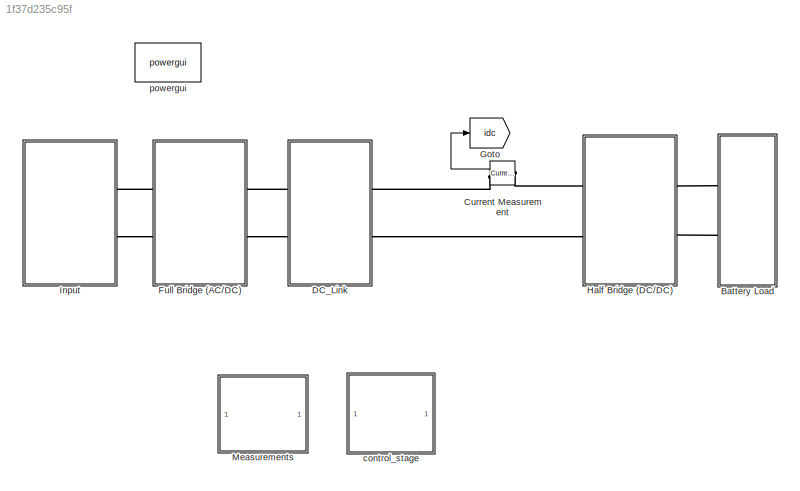
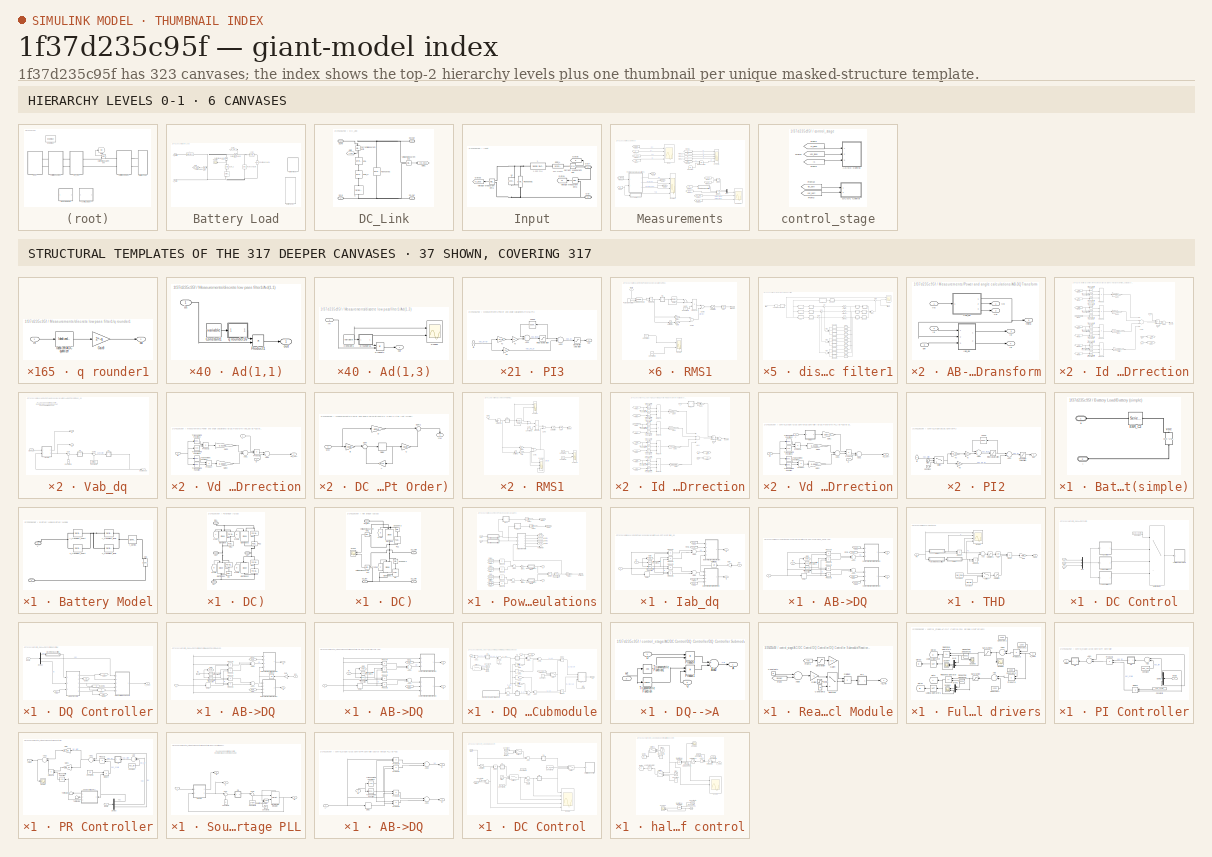
[diagram: thumbnail index - top-2 hierarchy levels (6 canvases) + 37 structural-template representatives of the remaining 317 canvases]
MODEL slx_1f37d235c95f
KIND model
CONFIG PreLoadFcn = Ts =5e-6;
BLOCK [SubSystem] Battery Load
  FunctionWithSeparateData = off
  MaskHideContents = off
  MinAlgLoopOccurrences = off
  Opaque = off
  Ports = [0, 0, 0, 0, 0, 2]
  PropExecContextOutsideSubsystem = off
  RTWSystemCode = Auto
  RequestExecContextInheritance = off
BLOCK [SubSystem] Battery Load/Battery (simple)
  FunctionWithSeparateData = off
  MaskHideContents = off
  MinAlgLoopOccurrences = off
  Opaque = off
  Ports = [0, 0, 0, 0, 0, 2]
  PropExecContextOutsideSubsystem = off
  RTWSystemCode = Auto
  RequestExecContextInheritance = off
BLOCK [PMIOPort] Battery Load/Battery (simple)/+
  Port = 1
  Side = Left
BLOCK [PMIOPort] Battery Load/Battery (simple)/-
  Port = 2
  Side = Left
BLOCK [Reference] Battery Load/Battery (simple)/ESR_C2  REF=powerlib/Elements/Series RLC Branch
  BranchType = R
  Capacitance = 2.3e-3
  Inductance = 1e-3
  InitialCurrent = 0
  InitialVoltage = 0
  LConnTagsString = __new0
  Measurements = None
  Ports = [0, 0, 0, 0, 0, 1, 1]
  RConnTagsString = __new0
  Resistance = rseries
  SetiL0 = off
  Setx0 = off
  SourceBlock = powerlib/Elements/Series RLC Branch
  SourceType = Series RLC Branch
BLOCK [Reference] Battery Load/Battery (simple)/voc  REF=powerlib/Electrical
Sources/DC Voltage Source
  Amplitude = batt_voc
  Measurements = None
  Ports = [0, 0, 0, 0, 0, 1, 1]
  SourceBlock = powerlib/Electrical\nSources/DC Voltage Source
  SourceType = DC Voltage Source
BLOCK [SubSystem] Battery Load/Battery Model
  FunctionWithSeparateData = off
  MaskHideContents = off
  MinAlgLoopOccurrences = off
  Opaque = off
  Ports = [0, 0, 0, 0, 0, 2]
  PropExecContextOutsideSubsystem = off
  RTWSystemCode = Auto
  RequestExecContextInheritance = off
BLOCK [PMIOPort] Battery Load/Battery Model/+
  Port = 1
  Side = Left
BLOCK [PMIOPort] Battery Load/Battery Model/-
  Port = 2
  Side = Left
BLOCK [Reference] Battery Load/Battery Model/c_transient_long  REF=powerlib/Elements/Series RLC Branch
  BranchType = C
  Capacitance = -6056*exp(-27.12*SOC)*(1-sorf) + 4475 - 4474*sorf
  Inductance = 1e-3
  InitialCurrent = 0
  InitialVoltage = 0
  LConnTagsString = __new0
  Measurements = None
  Ports = [0, 0, 0, 0, 0, 1, 1]
  RConnTagsString = __new0
  Resistance = 0.01
  SetiL0 = off
  Setx0 = off
  SourceBlock = powerlib/Elements/Series RLC Branch
  SourceType = Series RLC Branch
BLOCK [Reference] Battery Load/Battery Model/c_transient_short  REF=powerlib/Elements/Series RLC Branch
  BranchType = C
  Capacitance = -752.9*exp(-13.51*SOC)*(1-sorf) + 703.6 + 703*sorf
  Inductance = 1e-3
  InitialCurrent = 0
  InitialVoltage = 0
  LConnTagsString = __new0
  Measurements = None
  Ports = [0, 0, 0, 0, 0, 1, 1]
  RConnTagsString = __new0
  Resistance = 0.01
  SetiL0 = off
  Setx0 = off
  SourceBlock = powerlib/Elements/Series RLC Branch
  SourceType = Series RLC Branch
BLOCK [Reference] Battery Load/Battery Model/r_series  REF=powerlib/Elements/Series RLC Branch
  BranchType = R
  Capacitance = 2.3e-3
  Inductance = 1e-3
  InitialCurrent = 0
  InitialVoltage = 0
  LConnTagsString = __new0
  Measurements = None
  Ports = [0, 0, 0, 0, 0, 1, 1]
  RConnTagsString = __new0
  Resistance = 0.1563*exp(-24.37*SOC*(1-sorf))+0.07446
  SetiL0 = off
  Setx0 = off
  SourceBlock = powerlib/Elements/Series RLC Branch
  SourceType = Series RLC Branch
BLOCK [Reference] Battery Load/Battery Model/r_transient_long  REF=powerlib/Elements/Series RLC Branch
  BranchType = R
  Capacitance = 2.3e-3
  Inductance = 1e-3
  InitialCurrent = 0
  InitialVoltage = 0
  LConnTagsString = __new0
  Measurements = None
  Ports = [0, 0, 0, 0, 0, 1, 1]
  RConnTagsString = __new0
  Resistance = 6.603*exp(-155.2*SOC*(1-sorf)) + 0.04984
  SetiL0 = off
  Setx0 = off
  SourceBlock = powerlib/Elements/Series RLC Branch
  SourceType = Series RLC Branch
BLOCK [Reference] Battery Load/Battery Model/r_transient_short  REF=powerlib/Elements/Series RLC Branch
  BranchType = R
  Capacitance = 2.3e-3
  Inductance = 1e-3
  InitialCurrent = 0
  InitialVoltage = 0
  LConnTagsString = __new0
  Measurements = None
  Ports = [0, 0, 0, 0, 0, 1, 1]
  RConnTagsString = __new0
  Resistance = 0.3208*exp(-29.14*SOC*(1-sorf)) + 0.04669
  SetiL0 = off
  Setx0 = off
  SourceBlock = powerlib/Elements/Series RLC Branch
  SourceType = Series RLC Branch
BLOCK [Reference] Battery Load/Battery Model/voc  REF=powerlib/Electrical
Sources/DC Voltage Source
  Amplitude = batt_voc
  Measurements = None
  Ports = [0, 0, 0, 0, 0, 1, 1]
  SourceBlock = powerlib/Electrical\nSources/DC Voltage Source
  SourceType = DC Voltage Source
BLOCK [Reference] Battery Load/C  REF=powerlib/Elements/Series RLC Branch
  BranchType = C
  Capacitance = 1e-3
  Inductance = 1e-3
  InitialCurrent = 0
  InitialVoltage = 25
  LConnTagsString = __new0
  Measurements = None
  Ports = [0, 0, 0, 0, 0, 1, 1]
  RConnTagsString = __new0
  Resistance = 1
  SetiL0 = off
  Setx0 = off
  SourceBlock = powerlib/Elements/Series RLC Branch
  SourceType = Series RLC Branch
BLOCK [Reference] Battery Load/Current Measurement  REF=powerlib/Measurements/Current Measurement
  OutputType = Complex
  PSBequivalent = 0
  PhasorSimulation = off
  Ports = [0, 1, 0, 0, 0, 1, 1]
  SourceBlock = powerlib/Measurements/Current Measurement
  SourceType = Current Measurement
BLOCK [Reference] Battery Load/Current Measurement1  REF=powerlib/Measurements/Current Measurement
  OutputType = Complex
  PSBequivalent = 0
  PhasorSimulation = off
  Ports = [0, 1, 0, 0, 0, 1, 1]
  SourceBlock = powerlib/Measurements/Current Measurement
  SourceType = Current Measurement
BLOCK [Reference] Battery Load/DC Voltage Source  REF=powerlib/Electrical
Sources/DC Voltage Source
  Amplitude = voc
  Measurements = None
  Ports = [0, 0, 0, 0, 0, 1, 1]
  SourceBlock = powerlib/Electrical\nSources/DC Voltage Source
  SourceType = DC Voltage Source
BLOCK [Reference] Battery Load/ESR_C  REF=powerlib/Elements/Series RLC Branch
  BranchType = R
  Capacitance = 2.3e-3
  Inductance = 1e-3
  InitialCurrent = 0
  InitialVoltage = 0
  LConnTagsString = __new0
  Measurements = None
  Ports = [0, 0, 0, 0, 0, 1, 1]
  RConnTagsString = __new0
  Resistance = 0.07
  SetiL0 = off
  Setx0 = off
  SourceBlock = powerlib/Elements/Series RLC Branch
  SourceType = Series RLC Branch
BLOCK [Goto] Battery Load/Goto
  GotoTag = vdc_batt
  TagVisibility = global
BLOCK [Goto] Battery Load/Goto1
  GotoTag = idc_batt
  TagVisibility = global
BLOCK [Reference] Battery Load/L  REF=powerlib/Elements/Series RLC Branch
  BranchType = L
  Capacitance = 1e-6
  Inductance = 1.3e-3
  InitialCurrent = 0
  InitialVoltage = 0
  LConnTagsString = __new0
  Measurements = None
  Ports = [0, 0, 0, 0, 0, 1, 1]
  RConnTagsString = __new0
  Resistance = 1
  SetiL0 = off
  Setx0 = off
  SourceBlock = powerlib/Elements/Series RLC Branch
  SourceType = Series RLC Branch
BLOCK [Reference] Battery Load/Load  REF=powerlib/Elements/Series RLC Branch
  BranchType = R
  Capacitance = 2.3e-3
  Inductance = 1e-3
  InitialCurrent = 0
  InitialVoltage = 0
  LConnTagsString = __new0
  Measurements = None
  Ports = [0, 0, 0, 0, 0, 1, 1]
  RConnTagsString = __new0
  Resistance = 0.25
  SetiL0 = off
  Setx0 = off
  SourceBlock = powerlib/Elements/Series RLC Branch
  SourceType = Series RLC Branch
BLOCK [Reference] Battery Load/RsenseVbatt  REF=powerlib/Elements/Series RLC Branch
  BranchType = R
  Capacitance = 2.3e-3
  Inductance = 1e-3
  InitialCurrent = 0
  InitialVoltage = 0
  LConnTagsString = __new0
  Measurements = None
  Ports = [0, 0, 0, 0, 0, 1, 1]
  RConnTagsString = __new0
  Resistance = 7500
  SetiL0 = off
  Setx0 = off
  SourceBlock = powerlib/Elements/Series RLC Branch
  SourceType = Series RLC Branch
BLOCK [Scope] Battery Load/Scope
  DataFormat = StructureWithTime
  Floating = off
  LimitDataPoints = off
  NumInputPorts = 1
  Ports = [1]
  SampleTime = 0
  SaveName = ScopeData16
  ShowLegends = off
  ZoomMode = yonly
BLOCK [PMIOPort] Battery Load/V_batt+
  Port = 1
  Side = Left
BLOCK [PMIOPort] Battery Load/V_batt-
  Port = 2
  Side = Left
BLOCK [Reference] Battery Load/Voltage Measurement  REF=powerlib/Measurements/Voltage Measurement
  OutputType = Complex
  PSBequivalent = 0
  PhasorSimulation = off
  Ports = [0, 1, 0, 0, 0, 2]
  SourceBlock = powerlib/Measurements/Voltage Measurement
  SourceType = Voltage Measurement
BLOCK [Reference] Current Measurement  REF=powerlib/Measurements/Current Measurement
  OutputType = Complex
  PSBequivalent = 0
  PhasorSimulation = off
  Ports = [0, 1, 0, 0, 0, 1, 1]
  SourceBlock = powerlib/Measurements/Current Measurement
  SourceType = Current Measurement
BLOCK [SubSystem] DC_Link
  FunctionWithSeparateData = off
  MaskHideContents = off
  MinAlgLoopOccurrences = off
  Opaque = off
  Ports = [0, 0, 0, 0, 0, 2, 2]
  PropExecContextOutsideSubsystem = off
  RTWSystemCode = Auto
  RequestExecContextInheritance = off
BLOCK [Reference] DC_Link/C  REF=powerlib/Elements/Series RLC Branch
  BranchType = C
  Capacitance = Cdc
  Inductance = 1e-3
  InitialCurrent = 0
  InitialVoltage = 0
  LConnTagsString = __new0
  Measurements = None
  Ports = [0, 0, 0, 0, 0, 1, 1]
  RConnTagsString = __new0
  Resistance = 1
  SetiL0 = off
  Setx0 = off
  SourceBlock = powerlib/Elements/Series RLC Branch
  SourceType = Series RLC Branch
BLOCK [Reference] DC_Link/Current Measurement2  REF=powerlib/Measurements/Current Measurement
  OutputType = Complex
  PSBequivalent = 0
  PhasorSimulation = off
  Ports = [0, 1, 0, 0, 0, 1, 1]
  SourceBlock = powerlib/Measurements/Current Measurement
  SourceType = Current Measurement
BLOCK [PMIOPort] DC_Link/DC+In
  Port = 1
  Side = Left
BLOCK [PMIOPort] DC_Link/DC+Out
  Port = 3
  Side = Right
BLOCK [PMIOPort] DC_Link/DC-In
  Port = 2
  Side = Left
BLOCK [PMIOPort] DC_Link/DC-Out
  Port = 4
  Side = Right
BLOCK [Reference] DC_Link/ESL  REF=powerlib/Elements/Series RLC Branch
  BranchType = L
  Capacitance = 2.3e-3
  Inductance = 100e-9
  InitialCurrent = 0
  InitialVoltage = 0
  LConnTagsString = __new0
  Measurements = None
  Ports = [0, 0, 0, 0, 0, 1, 1]
  RConnTagsString = __new0
  Resistance = CESR
  SetiL0 = off
  Setx0 = off
  SourceBlock = powerlib/Elements/Series RLC Branch
  SourceType = Series RLC Branch
BLOCK [Reference] DC_Link/ESR_C  REF=powerlib/Elements/Series RLC Branch
  BranchType = R
  Capacitance = 2.3e-3
  Inductance = 1e-3
  InitialCurrent = 0
  InitialVoltage = 0
  LConnTagsString = __new0
  Measurements = None
  Ports = [0, 0, 0, 0, 0, 1, 1]
  RConnTagsString = __new0
  Resistance = CESR
  SetiL0 = off
  Setx0 = off
  SourceBlock = powerlib/Elements/Series RLC Branch
  SourceType = Series RLC Branch
BLOCK [Goto] DC_Link/Goto
  GotoTag = i_cap
  TagVisibility = global
BLOCK [Goto] DC_Link/Goto1
  GotoTag = vdc_ideal
  TagVisibility = global
BLOCK [Reference] DC_Link/RsenseVdc  REF=powerlib/Elements/Series RLC Branch
  BranchType = R
  Capacitance = 2.3e-3
  Inductance = 1e-3
  InitialCurrent = 0
  InitialVoltage = 0
  LConnTagsString = __new0
  Measurements = None
  Ports = [0, 0, 0, 0, 0, 1, 1]
  RConnTagsString = __new0
  Resistance = 20000
  SetiL0 = off
  Setx0 = off
  SourceBlock = powerlib/Elements/Series RLC Branch
  SourceType = Series RLC Branch
BLOCK [Reference] DC_Link/Voltage Measurement  REF=powerlib/Measurements/Voltage Measurement
  OutputType = Complex
  PSBequivalent = 0
  PhasorSimulation = off
  Ports = [0, 1, 0, 0, 0, 2]
  SourceBlock = powerlib/Measurements/Voltage Measurement
  SourceType = Voltage Measurement
BLOCK [SubSystem] Full Bridge (AC//DC)
  FunctionWithSeparateData = off
  MaskHideContents = off
  MinAlgLoopOccurrences = off
  Opaque = off
  Ports = [0, 0, 0, 0, 0, 2, 2]
  PropExecContextOutsideSubsystem = off
  RTWSystemCode = Auto
  RequestExecContextInheritance = off
BLOCK [PMIOPort] Full Bridge (AC//DC)/AC+
  Port = 1
  Side = Left
BLOCK [PMIOPort] Full Bridge (AC//DC)/AC-
  Port = 2
  Side = Left
BLOCK [PMIOPort] Full Bridge (AC//DC)/DC+
  Port = 3
  Side = Right
BLOCK [PMIOPort] Full Bridge (AC//DC)/DC-
  Port = 4
  Side = Right
BLOCK [From] Full Bridge (AC//DC)/From
  TagVisibility = global
BLOCK [From] Full Bridge (AC//DC)/From1
  GotoTag = B
  TagVisibility = global
BLOCK [From] Full Bridge (AC//DC)/From2
  GotoTag = C
  TagVisibility = global
BLOCK [From] Full Bridge (AC//DC)/From3
  GotoTag = D
  TagVisibility = global
BLOCK [Reference] Full Bridge (AC//DC)/IGBT//Diode  REF=powerlib/Power
Electronics/IGBT//Diode
  Cs = 0
  Measurements = off
  Ports = [1, 0, 0, 0, 0, 1, 1]
  Ron = 1e-3
  Rs = inf
  SourceBlock = powerlib/Power\nElectronics/IGBT//Diode
  SourceType = IGBT/Diode
BLOCK [Reference] Full Bridge (AC//DC)/IGBT//Diode1  REF=powerlib/Power
Electronics/IGBT//Diode
  Cs = 0
  Measurements = off
  Ports = [1, 0, 0, 0, 0, 1, 1]
  Ron = 1e-3
  Rs = inf
  SourceBlock = powerlib/Power\nElectronics/IGBT//Diode
  SourceType = IGBT/Diode
BLOCK [Reference] Full Bridge (AC//DC)/IGBT//Diode2  REF=powerlib/Power
Electronics/IGBT//Diode
  Cs = 0
  Measurements = off
  Ports = [1, 0, 0, 0, 0, 1, 1]
  Ron = 1e-3
  Rs = inf
  SourceBlock = powerlib/Power\nElectronics/IGBT//Diode
  SourceType = IGBT/Diode
BLOCK [Reference] Full Bridge (AC//DC)/IGBT//Diode3  REF=powerlib/Power
Electronics/IGBT//Diode
  Cs = 0
  Measurements = off
  Ports = [1, 0, 0, 0, 0, 1, 1]
  Ron = 1e-3
  Rs = inf
  SourceBlock = powerlib/Power\nElectronics/IGBT//Diode
  SourceType = IGBT/Diode
BLOCK [Reference] Full Bridge (AC//DC)/RC  REF=powerlib/Elements/Parallel RLC Branch
  AttributesFormatString = \n
  BranchType = C
  Capacitance = csnub
  Inductance = 1e-3
  InitialCurrent = 0
  InitialVoltage = 0
  LConnTagsString = a
  Measurements = None
  Ports = [0, 0, 0, 0, 0, 1, 1]
  RConnTagsString = __new0
  Resistance = 100
  SetiL0 = off
  Setx0 = off
  SourceBlock = powerlib/Elements/Parallel RLC Branch
  SourceType = Parallel RLC Branch
BLOCK [Reference] Full Bridge (AC//DC)/RC1  REF=powerlib/Elements/Parallel RLC Branch
  AttributesFormatString = \n
  BranchType = C
  Capacitance = csnub
  Inductance = 1e-3
  InitialCurrent = 0
  InitialVoltage = 0
  LConnTagsString = a
  Measurements = None
  Ports = [0, 0, 0, 0, 0, 1, 1]
  RConnTagsString = __new0
  Resistance = 100
  SetiL0 = off
  Setx0 = off
  SourceBlock = powerlib/Elements/Parallel RLC Branch
  SourceType = Parallel RLC Branch
BLOCK [Reference] Full Bridge (AC//DC)/RC2  REF=powerlib/Elements/Parallel RLC Branch
  AttributesFormatString = \n
  BranchType = C
  Capacitance = csnub
  Inductance = 1e-3
  InitialCurrent = 0
  InitialVoltage = 0
  LConnTagsString = a
  Measurements = None
  Ports = [0, 0, 0, 0, 0, 1, 1]
  RConnTagsString = __new0
  Resistance = 100
  SetiL0 = off
  Setx0 = off
  SourceBlock = powerlib/Elements/Parallel RLC Branch
  SourceType = Parallel RLC Branch
BLOCK [Reference] Full Bridge (AC//DC)/RC3  REF=powerlib/Elements/Parallel RLC Branch
  AttributesFormatString = \n
  BranchType = C
  Capacitance = csnub
  Inductance = 1e-3
  InitialCurrent = 0
  InitialVoltage = 0
  LConnTagsString = a
  Measurements = None
  Ports = [0, 0, 0, 0, 0, 1, 1]
  RConnTagsString = __new0
  Resistance = 100
  SetiL0 = off
  Setx0 = off
  SourceBlock = powerlib/Elements/Parallel RLC Branch
  SourceType = Parallel RLC Branch
BLOCK [Reference] Full Bridge (AC//DC)/RC4  REF=powerlib/Elements/Parallel RLC Branch
  AttributesFormatString = \n
  BranchType = R
  Capacitance = 0.1e-6
  Inductance = 1e-3
  InitialCurrent = 0
  InitialVoltage = 0
  LConnTagsString = a
  Measurements = None
  Ports = [0, 0, 0, 0, 0, 1, 1]
  RConnTagsString = __new0
  Resistance = rsnub
  SetiL0 = off
  Setx0 = off
  SourceBlock = powerlib/Elements/Parallel RLC Branch
  SourceType = Parallel RLC Branch
BLOCK [Reference] Full Bridge (AC//DC)/RC5  REF=powerlib/Elements/Parallel RLC Branch
  AttributesFormatString = \n
  BranchType = R
  Capacitance = 0.1e-6
  Inductance = 1e-3
  InitialCurrent = 0
  InitialVoltage = 0
  LConnTagsString = a
  Measurements = None
  Ports = [0, 0, 0, 0, 0, 1, 1]
  RConnTagsString = __new0
  Resistance = rsnub
  SetiL0 = off
  Setx0 = off
  SourceBlock = powerlib/Elements/Parallel RLC Branch
  SourceType = Parallel RLC Branch
BLOCK [Reference] Full Bridge (AC//DC)/RC6  REF=powerlib/Elements/Parallel RLC Branch
  AttributesFormatString = \n
  BranchType = R
  Capacitance = 0.1e-6
  Inductance = 1e-3
  InitialCurrent = 0
  InitialVoltage = 0
  LConnTagsString = a
  Measurements = None
  Ports = [0, 0, 0, 0, 0, 1, 1]
  RConnTagsString = __new0
  Resistance = rsnub
  SetiL0 = off
  Setx0 = off
  SourceBlock = powerlib/Elements/Parallel RLC Branch
  SourceType = Parallel RLC Branch
BLOCK [Reference] Full Bridge (AC//DC)/RC7  REF=powerlib/Elements/Parallel RLC Branch
  AttributesFormatString = \n
  BranchType = R
  Capacitance = 0.1e-6
  Inductance = 1e-3
  InitialCurrent = 0
  InitialVoltage = 0
  LConnTagsString = a
  Measurements = None
  Ports = [0, 0, 0, 0, 0, 1, 1]
  RConnTagsString = __new0
  Resistance = rsnub
  SetiL0 = off
  Setx0 = off
  SourceBlock = powerlib/Elements/Parallel RLC Branch
  SourceType = Parallel RLC Branch
BLOCK [Goto] Goto
  GotoTag = idc
  TagVisibility = global
BLOCK [SubSystem] Half Bridge (DC//DC)
  FunctionWithSeparateData = off
  MaskHideContents = off
  MinAlgLoopOccurrences = off
  Opaque = off
  Ports = [0, 0, 0, 0, 0, 2, 2]
  PropExecContextOutsideSubsystem = off
  RTWSystemCode = Auto
  RequestExecContextInheritance = off
BLOCK [PMIOPort] Half Bridge (DC//DC)/DC_batt+
  Port = 1
  Side = Left
BLOCK [PMIOPort] Half Bridge (DC//DC)/DC_batt-
  Port = 2
  Side = Left
BLOCK [PMIOPort] Half Bridge (DC//DC)/DC_link+
  Port = 3
  Side = Right
BLOCK [PMIOPort] Half Bridge (DC//DC)/DC_link-
  Port = 4
  Side = Right
BLOCK [From] Half Bridge (DC//DC)/From
  GotoTag = E
  TagVisibility = global
BLOCK [From] Half Bridge (DC//DC)/From1
  GotoTag = F
  TagVisibility = global
BLOCK [Reference] Half Bridge (DC//DC)/IGBT//Diode  REF=powerlib/Power
Electronics/IGBT//Diode
  Cs = 0
  Measurements = off
  Ports = [1, 0, 0, 0, 0, 1, 1]
  Ron = 1e-3
  Rs = inf
  SourceBlock = powerlib/Power\nElectronics/IGBT//Diode
  SourceType = IGBT/Diode
BLOCK [Reference] Half Bridge (DC//DC)/IGBT//Diode1  REF=powerlib/Power
Electronics/IGBT//Diode
  Cs = 0
  Measurements = off
  Ports = [1, 0, 0, 0, 0, 1, 1]
  Ron = 1e-3
  Rs = inf
  SourceBlock = powerlib/Power\nElectronics/IGBT//Diode
  SourceType = IGBT/Diode
BLOCK [Reference] Half Bridge (DC//DC)/RC  REF=powerlib/Elements/Parallel RLC Branch
  AttributesFormatString = \n
  BranchType = C
  Capacitance = csnub
  Inductance = 1e-3
  InitialCurrent = 0
  InitialVoltage = 0
  LConnTagsString = a
  Measurements = None
  Ports = [0, 0, 0, 0, 0, 1, 1]
  RConnTagsString = __new0
  Resistance = 100
  SetiL0 = off
  Setx0 = off
  SourceBlock = powerlib/Elements/Parallel RLC Branch
  SourceType = Parallel RLC Branch
BLOCK [Reference] Half Bridge (DC//DC)/RC1  REF=powerlib/Elements/Parallel RLC Branch
  AttributesFormatString = \n
  BranchType = C
  Capacitance = csnub
  Inductance = 1e-3
  InitialCurrent = 0
  InitialVoltage = 0
  LConnTagsString = a
  Measurements = None
  Ports = [0, 0, 0, 0, 0, 1, 1]
  RConnTagsString = __new0
  Resistance = 100
  SetiL0 = off
  Setx0 = off
  SourceBlock = powerlib/Elements/Parallel RLC Branch
  SourceType = Parallel RLC Branch
BLOCK [Scope] Half Bridge (DC//DC)/Scope
  DataFormat = StructureWithTime
  Floating = off
  LimitDataPoints = off
  NumInputPorts = 2
  Ports = [2]
  SampleTime = 0
  SaveName = ScopeData14
  ShowLegends = off
  YMax = 5~5
  YMin = -5~-5
  ZoomMode = xonly
BLOCK [Reference] Half Bridge (DC//DC)/Snubber2  REF=powerlib/Elements/Series RLC Branch
  BranchType = R
  Capacitance = 0.1e-6
  Inductance = 1e-3
  InitialCurrent = 0
  InitialVoltage = 0
  LConnTagsString = __new0
  Measurements = None
  Ports = [0, 0, 0, 0, 0, 1, 1]
  RConnTagsString = __new0
  Resistance = rsnub
  SetiL0 = off
  Setx0 = off
  SourceBlock = powerlib/Elements/Series RLC Branch
  SourceType = Series RLC Branch
BLOCK [Reference] Half Bridge (DC//DC)/Snubber3  REF=powerlib/Elements/Series RLC Branch
  BranchType = R
  Capacitance = 0.1e-6
  Inductance = 1e-3
  InitialCurrent = 0
  InitialVoltage = 0
  LConnTagsString = __new0
  Measurements = None
  Ports = [0, 0, 0, 0, 0, 1, 1]
  RConnTagsString = __new0
  Resistance = rsnub
  SetiL0 = off
  Setx0 = off
  SourceBlock = powerlib/Elements/Series RLC Branch
  SourceType = Series RLC Branch
BLOCK [Reference] Half Bridge (DC//DC)/Voltage Measurement  REF=powerlib/Measurements/Voltage Measurement
  OutputType = Complex
  PSBequivalent = 0
  PhasorSimulation = off
  Ports = [0, 1, 0, 0, 0, 2]
  SourceBlock = powerlib/Measurements/Voltage Measurement
  SourceType = Voltage Measurement
BLOCK [Reference] Half Bridge (DC//DC)/Voltage Measurement1  REF=powerlib/Measurements/Voltage Measurement
  OutputType = Complex
  PSBequivalent = 0
  PhasorSimulation = off
  Ports = [0, 1, 0, 0, 0, 2]
  SourceBlock = powerlib/Measurements/Voltage Measurement
  SourceType = Voltage Measurement
BLOCK [SubSystem] Input
  FunctionWithSeparateData = off
  MaskHideContents = off
  MinAlgLoopOccurrences = off
  Opaque = off
  Ports = [0, 0, 0, 0, 0, 0, 2]
  PropExecContextOutsideSubsystem = off
  RTWSystemCode = Auto
  RequestExecContextInheritance = off
BLOCK [Reference] Input/Current Measurement  REF=powerlib/Measurements/Current Measurement
  OutputType = Complex
  PSBequivalent = 0
  PhasorSimulation = off
  Ports = [0, 1, 0, 0, 0, 1, 1]
  SourceBlock = powerlib/Measurements/Current Measurement
  SourceType = Current Measurement
BLOCK [Reference] Input/ESR_L  REF=powerlib/Elements/Series RLC Branch
  BranchType = R
  Capacitance = 1e-6
  Inductance = 1e-3
  InitialCurrent = 0
  InitialVoltage = 0
  LConnTagsString = __new0
  Measurements = None
  Ports = [0, 0, 0, 0, 0, 1, 1]
  RConnTagsString = __new0
  Resistance = Rin
  SetiL0 = off
  Setx0 = off
  SourceBlock = powerlib/Elements/Series RLC Branch
  SourceType = Series RLC Branch
BLOCK [Goto] Input/Goto1
  GotoTag = Vc
  TagVisibility = global
BLOCK [Goto] Input/Goto3
  GotoTag = vs_ideal
  TagVisibility = global
BLOCK [Goto] Input/Goto5
  GotoTag = Is
  TagVisibility = global
BLOCK [Reference] Input/L  REF=powerlib/Elements/Series RLC Branch
  BranchType = L
  Capacitance = 1e-6
  Inductance = Lin
  InitialCurrent = 0
  InitialVoltage = 0
  LConnTagsString = __new0
  Measurements = None
  Ports = [0, 0, 0, 0, 0, 1, 1]
  RConnTagsString = __new0
  Resistance = 1
  SetiL0 = off
  Setx0 = off
  SourceBlock = powerlib/Elements/Series RLC Branch
  SourceType = Series RLC Branch
BLOCK [PMIOPort] Input/Out+
  Port = 1
  Side = Right
BLOCK [PMIOPort] Input/Out-
  Port = 2
  Side = Right
BLOCK [Reference] Input/RsenseVac  REF=powerlib/Elements/Series RLC Branch
  BranchType = R
  Capacitance = 1e-6
  Inductance = 1e-3
  InitialCurrent = 0
  InitialVoltage = 0
  LConnTagsString = __new0
  Measurements = None
  Ports = [0, 0, 0, 0, 0, 1, 1]
  RConnTagsString = __new0
  Resistance = 10000
  SetiL0 = off
  Setx0 = off
  SourceBlock = powerlib/Elements/Series RLC Branch
  SourceType = Series RLC Branch
BLOCK [Reference] Input/Voltage Measurement1  REF=powerlib/Measurements/Voltage Measurement
  OutputType = Complex
  PSBequivalent = 0
  PhasorSimulation = off
  Ports = [0, 1, 0, 0, 0, 2]
  SourceBlock = powerlib/Measurements/Voltage Measurement
  SourceType = Voltage Measurement
BLOCK [Reference] Input/Voltage Measurement3  REF=powerlib/Measurements/Voltage Measurement
  OutputType = Complex
  PSBequivalent = 0
  PhasorSimulation = off
  Ports = [0, 1, 0, 0, 0, 2]
  SourceBlock = powerlib/Measurements/Voltage Measurement
  SourceType = Voltage Measurement
BLOCK [Reference] Input/Vs  REF=powerlib/Electrical
Sources/AC Voltage Source
  Amplitude = ac_volt
  Frequency = 60
  Measurements = None
  Phase = 0
  Ports = [0, 0, 0, 0, 0, 1, 1]
  SampleTime = 0
  SourceBlock = powerlib/Electrical\nSources/AC Voltage Source
  SourceType = AC Voltage Source
BLOCK [SubSystem] Measurements
  FunctionWithSeparateData = off
  MaskHideContents = off
  MinAlgLoopOccurrences = off
  Opaque = off
  Ports = []
  PropExecContextOutsideSubsystem = off
  RTWSystemCode = Auto
  RequestExecContextInheritance = off
BLOCK [Constant] Measurements/Constant
  Value = 2*pi
BLOCK [Product] Measurements/Divide
  InputSameDT = off
  Inputs = */
  OutDataTypeStr = Inherit: Inherit via internal rule
  Ports = [2, 1]
  RndMeth = Floor
  SaturateOnIntegerOverflow = off
BLOCK [Product] Measurements/Divide1
  InputSameDT = off
  Inputs = */
  OutDataTypeStr = Inherit: Inherit via internal rule
  Ports = [2, 1]
  RndMeth = Floor
  SaturateOnIntegerOverflow = off
BLOCK [From] Measurements/From1
  GotoTag = vs_ideal
  TagVisibility = global
BLOCK [From] Measurements/From10
  GotoTag = Is
  TagVisibility = global
BLOCK [From] Measurements/From11
  GotoTag = vs_ideal
  TagVisibility = global
BLOCK [From] Measurements/From12
  GotoTag = Vpeak
  TagVisibility = global
BLOCK [From] Measurements/From13
  GotoTag = Ipeak
  TagVisibility = global
BLOCK [From] Measurements/From15
  GotoTag = vdc_batt
  TagVisibility = global
BLOCK [From] Measurements/From16
  GotoTag = idc_batt
  TagVisibility = global
BLOCK [From] Measurements/From17
  GotoTag = Iq
  TagVisibility = global
BLOCK [From] Measurements/From18
  GotoTag = Vwt
  TagVisibility = global
BLOCK [From] Measurements/From19
  GotoTag = Id
  TagVisibility = global
BLOCK [From] Measurements/From2
  GotoTag = Is
  TagVisibility = global
BLOCK [From] Measurements/From20
  GotoTag = Vq
  TagVisibility = global
BLOCK [From] Measurements/From21
  GotoTag = Vd
  TagVisibility = global
BLOCK [From] Measurements/From3
  GotoTag = vdc_ideal
  TagVisibility = global
BLOCK [From] Measurements/From7
  GotoTag = idc
  TagVisibility = global
BLOCK [From] Measurements/From8
  GotoTag = vs_ideal
  TagVisibility = global
BLOCK [From] Measurements/From9
  GotoTag = Is
  TagVisibility = global
BLOCK [Goto] Measurements/Goto
  GotoTag = phi
  TagVisibility = global
BLOCK [Goto] Measurements/Goto1
  GotoTag = power
  TagVisibility = global
BLOCK [Goto] Measurements/Goto2
  GotoTag = Qpower
  TagVisibility = global
BLOCK [Scope] Measurements/Ideal
  DataFormat = StructureWithTime
  Floating = off
  LimitDataPoints = off
  NumInputPorts = 4
  Ports = [4]
  SampleTime = 0
  SaveName = ScopeData8
  ShowLegends = off
  TimeRange = 0.5
  YMax = 175~50~387~0
  YMin = -175~-45~372~-25
  ZoomMode = yonly
BLOCK [Math] Measurements/Math Function
  Operator = mod
  Ports = [2, 1]
BLOCK [Mux] Measurements/Mux
  DisplayOption = bar
  Inputs = 2
  Ports = [2, 1]
BLOCK [SubSystem] Measurements/Power and angle calculations
  FunctionWithSeparateData = off
  MaskHideContents = off
  MinAlgLoopOccurrences = off
  Opaque = off
  Ports = [2, 3]
  PropExecContextOutsideSubsystem = off
  RTWSystemCode = Auto
  RequestExecContextInheritance = off
BLOCK [SubSystem] Measurements/Power and angle calculations/AB-DQ Transform
  FunctionWithSeparateData = off
  MaskHideContents = off
  MinAlgLoopOccurrences = off
  Opaque = off
  Ports = [3, 5]
  PropExecContextOutsideSubsystem = off
  RTWSystemCode = Auto
  RequestExecContextInheritance = off
BLOCK [Inport] Measurements/Power and angle calculations/AB-DQ Transform/Ia
  IconDisplay = Port number
  Port = 2
BLOCK [SubSystem] Measurements/Power and angle calculations/AB-DQ Transform/Iab_dq
  FunctionWithSeparateData = off
  MaskHideContents = off
  MinAlgLoopOccurrences = off
  Opaque = off
  Ports = [3, 2]
  PropExecContextOutsideSubsystem = off
  RTWSystemCode = Auto
  RequestExecContextInheritance = off
BLOCK [Inport] Measurements/Power and angle calculations/AB-DQ Transform/Iab_dq/A
  IconDisplay = Port number
BLOCK [Sum] Measurements/Power and angle calculations/AB-DQ Transform/Iab_dq/Add1
  InputSameDT = off
  Inputs = -+
  OutDataTypeStr = Inherit: Inherit via internal rule
  Ports = [2, 1]
  SaturateOnIntegerOverflow = off
BLOCK [Sum] Measurements/Power and angle calculations/AB-DQ Transform/Iab_dq/Add2
  InputSameDT = off
  OutDataTypeStr = Inherit: Inherit via internal rule
  Ports = [2, 1]
  SaturateOnIntegerOverflow = off
BLOCK [Outport] Measurements/Power and angle calculations/AB-DQ Transform/Iab_dq/D
  IconDisplay = Port number
BLOCK [Delay] Measurements/Power and angle calculations/AB-DQ Transform/Iab_dq/Delay
  DelayLength = RSpC
  InputPortMap = u0
  Ports = [1, 1]
  SampleTime = abdq_Ts
BLOCK [From] Measurements/Power and angle calculations/AB-DQ Transform/Iab_dq/From
  GotoTag = theta
BLOCK [From] Measurements/Power and angle calculations/AB-DQ Transform/Iab_dq/From1
  GotoTag = theta
BLOCK [From] Measurements/Power and angle calculations/AB-DQ Transform/Iab_dq/From2
  GotoTag = Ipeak
  TagVisibility = global
BLOCK [From] Measurements/Power and angle calculations/AB-DQ Transform/Iab_dq/From3
  GotoTag = Ipeak
  TagVisibility = global
BLOCK [Gain] Measurements/Power and angle calculations/AB-DQ Transform/Iab_dq/Gain
  Gain = -1
  OutDataTypeStr = Inherit: Inherit via internal rule
  ParamDataTypeStr = Inherit: Inherit via internal rule
  SaturateOnIntegerOverflow = off
BLOCK [Goto] Measurements/Power and angle calculations/AB-DQ Transform/Iab_dq/Goto
  GotoTag = theta
BLOCK [SubSystem] Measurements/Power and angle calculations/AB-DQ Transform/Iab_dq/Id Discretization Error Correction
  FunctionWithSeparateData = off
  MaskHideContents = off
  MinAlgLoopOccurrences = off
  Opaque = off
  Ports = [4, 1]
  PropExecContextOutsideSubsystem = off
  RTWSystemCode = Auto
  RequestExecContextInheritance = off
BLOCK [Inport] Measurements/Power and angle calculations/AB-DQ Transform/Iab_dq/Id Discretization Error Correction/A
  IconDisplay = Port number
BLOCK [Sum] Measurements/Power and angle calculations/AB-DQ Transform/Iab_dq/Id Discretization Error Correction/Add2
  InputSameDT = off
  Inputs = -+
  OutDataTypeStr = Inherit: Inherit via internal rule
  Ports = [2, 1]
  SaturateOnIntegerOverflow = off
BLOCK [Sum] Measurements/Power and angle calculations/AB-DQ Transform/Iab_dq/Id Discretization Error Correction/Add3
  InputSameDT = off
  Inputs = ++-+
  OutDataTypeStr = Inherit: Inherit via internal rule
  Ports = [4, 1]
  SaturateOnIntegerOverflow = off
BLOCK [Inport] Measurements/Power and angle calculations/AB-DQ Transform/Iab_dq/Id Discretization Error Correction/D
  IconDisplay = Port number
  Port = 3
BLOCK [From] Measurements/Power and angle calculations/AB-DQ Transform/Iab_dq/Id Discretization Error Correction/From1
  GotoTag = i_phi
BLOCK [From] Measurements/Power and angle calculations/AB-DQ Transform/Iab_dq/Id Discretization Error Correction/From2
  GotoTag = i_theta
BLOCK [From] Measurements/Power and angle calculations/AB-DQ Transform/Iab_dq/Id Discretization Error Correction/From4
  GotoTag = i_phi
BLOCK [From] Measurements/Power and angle calculations/AB-DQ Transform/Iab_dq/Id Discretization Error Correction/From5
  GotoTag = i_theta
BLOCK [From] Measurements/Power and angle calculations/AB-DQ Transform/Iab_dq/Id Discretization Error Correction/From6
  GotoTag = i_phi
BLOCK [From] Measurements/Power and angle calculations/AB-DQ Transform/Iab_dq/Id Discretization Error Correction/From7
  GotoTag = i_theta
BLOCK [From] Measurements/Power and angle calculations/AB-DQ Transform/Iab_dq/Id Discretization Error Correction/From8
  GotoTag = i_phi
BLOCK [From] Measurements/Power and angle calculations/AB-DQ Transform/Iab_dq/Id Discretization Error Correction/From9
  GotoTag = i_theta
BLOCK [Gain] Measurements/Power and angle calculations/AB-DQ Transform/Iab_dq/Id Discretization Error Correction/Gain4
  Gain = 0.000078956
  OutDataTypeStr = Inherit: Inherit via internal rule
  ParamDataTypeStr = Inherit: Inherit via internal rule
  SaturateOnIntegerOverflow = off
BLOCK [Gain] Measurements/Power and angle calculations/AB-DQ Transform/Iab_dq/Id Discretization Error Correction/Gain5
  Gain = 0.000078956
  OutDataTypeStr = Inherit: Inherit via internal rule
  ParamDataTypeStr = Inherit: Inherit via internal rule
  SaturateOnIntegerOverflow = off
BLOCK [Gain] Measurements/Power and angle calculations/AB-DQ Transform/Iab_dq/Id Discretization Error Correction/Gain6
  Gain = 0.012566039
  OutDataTypeStr = Inherit: Inherit via internal rule
  ParamDataTypeStr = Inherit: Inherit via internal rule
  SaturateOnIntegerOverflow = off
BLOCK [Gain] Measurements/Power and angle calculations/AB-DQ Transform/Iab_dq/Id Discretization Error Correction/Gain7
  Gain = 0.012566039
  OutDataTypeStr = Inherit: Inherit via internal rule
  ParamDataTypeStr = Inherit: Inherit via internal rule
  SaturateOnIntegerOverflow = off
BLOCK [Goto] Measurements/Power and angle calculations/AB-DQ Transform/Iab_dq/Id Discretization Error Correction/Goto
  GotoTag = i_theta
BLOCK [Goto] Measurements/Power and angle calculations/AB-DQ Transform/Iab_dq/Id Discretization Error Correction/Goto1
  GotoTag = i_phi
BLOCK [Outport] Measurements/Power and angle calculations/AB-DQ Transform/Iab_dq/Id Discretization Error Correction/Id_corr
  IconDisplay = Port number
BLOCK [Product] Measurements/Power and angle calculations/AB-DQ Transform/Iab_dq/Id Discretization Error Correction/Product1
  InputSameDT = off
  Inputs = 3
  OutDataTypeStr = Inherit: Inherit via internal rule
  Ports = [3, 1]
  RndMeth = Floor
  SaturateOnIntegerOverflow = off
BLOCK [Product] Measurements/Power and angle calculations/AB-DQ Transform/Iab_dq/Id Discretization Error Correction/Product2
  InputSameDT = off
  OutDataTypeStr = Inherit: Inherit via internal rule
  Ports = [2, 1]
  RndMeth = Floor
  SaturateOnIntegerOverflow = off
BLOCK [Product] Measurements/Power and angle calculations/AB-DQ Transform/Iab_dq/Id Discretization Error Correction/Product3
  InputSameDT = off
  Inputs = 3
  OutDataTypeStr = Inherit: Inherit via internal rule
  Ports = [3, 1]
  RndMeth = Floor
  SaturateOnIntegerOverflow = off
BLOCK [Product] Measurements/Power and angle calculations/AB-DQ Transform/Iab_dq/Id Discretization Error Correction/Product4
  InputSameDT = off
  Inputs = 3
  OutDataTypeStr = Inherit: Inherit via internal rule
  Ports = [3, 1]
  RndMeth = Floor
  SaturateOnIntegerOverflow = off
BLOCK [Product] Measurements/Power and angle calculations/AB-DQ Transform/Iab_dq/Id Discretization Error Correction/Product5
  InputSameDT = off
  Inputs = 3
  OutDataTypeStr = Inherit: Inherit via internal rule
  Ports = [3, 1]
  RndMeth = Floor
  SaturateOnIntegerOverflow = off
BLOCK [Trigonometry] Measurements/Power and angle calculations/AB-DQ Transform/Iab_dq/Id Discretization Error Correction/Trigonometric Function
  Ports = [1, 1]
BLOCK [Trigonometry] Measurements/Power and angle calculations/AB-DQ Transform/Iab_dq/Id Discretization Error Correction/Trigonometric Function1
  Ports = [1, 1]
BLOCK [Trigonometry] Measurements/Power and angle calculations/AB-DQ Transform/Iab_dq/Id Discretization Error Correction/Trigonometric Function10
  Ports = [1, 1]
BLOCK [Trigonometry] Measurements/Power and angle calculations/AB-DQ Transform/Iab_dq/Id Discretization Error Correction/Trigonometric Function11
  Ports = [1, 1]
BLOCK [Trigonometry] Measurements/Power and angle calculations/AB-DQ Transform/Iab_dq/Id Discretization Error Correction/Trigonometric Function12
  Ports = [1, 1]
BLOCK [Trigonometry] Measurements/Power and angle calculations/AB-DQ Transform/Iab_dq/Id Discretization Error Correction/Trigonometric Function2
  Ports = [1, 1]
BLOCK [Trigonometry] Measurements/Power and angle calculations/AB-DQ Transform/Iab_dq/Id Discretization Error Correction/Trigonometric Function3
  Operator = cos
  Ports = [1, 1]
BLOCK [Trigonometry] Measurements/Power and angle calculations/AB-DQ Transform/Iab_dq/Id Discretization Error Correction/Trigonometric Function5
  Ports = [1, 1]
BLOCK [Trigonometry] Measurements/Power and angle calculations/AB-DQ Transform/Iab_dq/Id Discretization Error Correction/Trigonometric Function6
  Operator = cos
  Ports = [1, 1]
BLOCK [Trigonometry] Measurements/Power and angle calculations/AB-DQ Transform/Iab_dq/Id Discretization Error Correction/Trigonometric Function7
  Ports = [1, 1]
BLOCK [Trigonometry] Measurements/Power and angle calculations/AB-DQ Transform/Iab_dq/Id Discretization Error Correction/Trigonometric Function8
  Operator = cos
  Ports = [1, 1]
BLOCK [Trigonometry] Measurements/Power and angle calculations/AB-DQ Transform/Iab_dq/Id Discretization Error Correction/Trigonometric Function9
  Operator = cos
  Ports = [1, 1]
BLOCK [Inport] Measurements/Power and angle calculations/AB-DQ Transform/Iab_dq/Id Discretization Error Correction/phi
  IconDisplay = Port number
  Port = 4
BLOCK [Inport] Measurements/Power and angle calculations/AB-DQ Transform/Iab_dq/Id Discretization Error Correction/wt
  IconDisplay = Port number
  Port = 2
BLOCK [SubSystem] Measurements/Power and angle calculations/AB-DQ Transform/Iab_dq/Iq Discretization Error Correction
  FunctionWithSeparateData = off
  MaskHideContents = off
  MinAlgLoopOccurrences = off
  Opaque = off
  Ports = [4, 1]
  PropExecContextOutsideSubsystem = off
  RTWSystemCode = Auto
  RequestExecContextInheritance = off
BLOCK [Inport] Measurements/Power and angle calculations/AB-DQ Transform/Iab_dq/Iq Discretization Error Correction/A
  IconDisplay = Port number
  Port = 4
BLOCK [Sum] Measurements/Power and angle calculations/AB-DQ Transform/Iab_dq/Iq Discretization Error Correction/Add2
  InputSameDT = off
  Inputs = -+
  OutDataTypeStr = Inherit: Inherit via internal rule
  Ports = [2, 1]
  SaturateOnIntegerOverflow = off
BLOCK [Sum] Measurements/Power and angle calculations/AB-DQ Transform/Iab_dq/Iq Discretization Error Correction/Add3
  InputSameDT = off
  Inputs = ++-+
  OutDataTypeStr = Inherit: Inherit via internal rule
  Ports = [4, 1]
  SaturateOnIntegerOverflow = off
BLOCK [From] Measurements/Power and angle calculations/AB-DQ Transform/Iab_dq/Iq Discretization Error Correction/From1
  GotoTag = i_phi
BLOCK [From] Measurements/Power and angle calculations/AB-DQ Transform/Iab_dq/Iq Discretization Error Correction/From2
  GotoTag = i_theta
BLOCK [From] Measurements/Power and angle calculations/AB-DQ Transform/Iab_dq/Iq Discretization Error Correction/From4
  GotoTag = i_phi
BLOCK [From] Measurements/Power and angle calculations/AB-DQ Transform/Iab_dq/Iq Discretization Error Correction/From5
  GotoTag = i_theta
BLOCK [From] Measurements/Power and angle calculations/AB-DQ Transform/Iab_dq/Iq Discretization Error Correction/From6
  GotoTag = i_phi
BLOCK [From] Measurements/Power and angle calculations/AB-DQ Transform/Iab_dq/Iq Discretization Error Correction/From7
  GotoTag = i_theta
BLOCK [From] Measurements/Power and angle calculations/AB-DQ Transform/Iab_dq/Iq Discretization Error Correction/From8
  GotoTag = i_phi
BLOCK [From] Measurements/Power and angle calculations/AB-DQ Transform/Iab_dq/Iq Discretization Error Correction/From9
  GotoTag = i_theta
BLOCK [Gain] Measurements/Power and angle calculations/AB-DQ Transform/Iab_dq/Iq Discretization Error Correction/Gain4
  Gain = 0.000078956
  OutDataTypeStr = Inherit: Inherit via internal rule
  ParamDataTypeStr = Inherit: Inherit via internal rule
  SaturateOnIntegerOverflow = off
BLOCK [Gain] Measurements/Power and angle calculations/AB-DQ Transform/Iab_dq/Iq Discretization Error Correction/Gain5
  Gain = 0.000078956
  OutDataTypeStr = Inherit: Inherit via internal rule
  ParamDataTypeStr = Inherit: Inherit via internal rule
  SaturateOnIntegerOverflow = off
BLOCK [Gain] Measurements/Power and angle calculations/AB-DQ Transform/Iab_dq/Iq Discretization Error Correction/Gain6
  Gain = 0.012566039
  OutDataTypeStr = Inherit: Inherit via internal rule
  ParamDataTypeStr = Inherit: Inherit via internal rule
  SaturateOnIntegerOverflow = off
BLOCK [Gain] Measurements/Power and angle calculations/AB-DQ Transform/Iab_dq/Iq Discretization Error Correction/Gain7
  Gain = 0.012566039
  OutDataTypeStr = Inherit: Inherit via internal rule
  ParamDataTypeStr = Inherit: Inherit via internal rule
  SaturateOnIntegerOverflow = off
BLOCK [Goto] Measurements/Power and angle calculations/AB-DQ Transform/Iab_dq/Iq Discretization Error Correction/Goto
  GotoTag = i_theta
BLOCK [Goto] Measurements/Power and angle calculations/AB-DQ Transform/Iab_dq/Iq Discretization Error Correction/Goto1
  GotoTag = i_phi
BLOCK [Outport] Measurements/Power and angle calculations/AB-DQ Transform/Iab_dq/Iq Discretization Error Correction/Iq_corr
  IconDisplay = Port number
BLOCK [Product] Measurements/Power and angle calculations/AB-DQ Transform/Iab_dq/Iq Discretization Error Correction/Product1
  InputSameDT = off
  Inputs = 3
  OutDataTypeStr = Inherit: Inherit via internal rule
  Ports = [3, 1]
  RndMeth = Floor
  SaturateOnIntegerOverflow = off
BLOCK [Product] Measurements/Power and angle calculations/AB-DQ Transform/Iab_dq/Iq Discretization Error Correction/Product2
  InputSameDT = off
  OutDataTypeStr = Inherit: Inherit via internal rule
  Ports = [2, 1]
  RndMeth = Floor
  SaturateOnIntegerOverflow = off
BLOCK [Product] Measurements/Power and angle calculations/AB-DQ Transform/Iab_dq/Iq Discretization Error Correction/Product3
  InputSameDT = off
  Inputs = 3
  OutDataTypeStr = Inherit: Inherit via internal rule
  Ports = [3, 1]
  RndMeth = Floor
  SaturateOnIntegerOverflow = off
BLOCK [Product] Measurements/Power and angle calculations/AB-DQ Transform/Iab_dq/Iq Discretization Error Correction/Product4
  InputSameDT = off
  Inputs = 3
  OutDataTypeStr = Inherit: Inherit via internal rule
  Ports = [3, 1]
  RndMeth = Floor
  SaturateOnIntegerOverflow = off
BLOCK [Product] Measurements/Power and angle calculations/AB-DQ Transform/Iab_dq/Iq Discretization Error Correction/Product5
  InputSameDT = off
  Inputs = 3
  OutDataTypeStr = Inherit: Inherit via internal rule
  Ports = [3, 1]
  RndMeth = Floor
  SaturateOnIntegerOverflow = off
BLOCK [Inport] Measurements/Power and angle calculations/AB-DQ Transform/Iab_dq/Iq Discretization Error Correction/Q
  IconDisplay = Port number
  Port = 2
BLOCK [Trigonometry] Measurements/Power and angle calculations/AB-DQ Transform/Iab_dq/Iq Discretization Error Correction/Trigonometric Function
  Operator = cos
  Ports = [1, 1]
BLOCK [Trigonometry] Measurements/Power and angle calculations/AB-DQ Transform/Iab_dq/Iq Discretization Error Correction/Trigonometric Function1
  Operator = cos
  Ports = [1, 1]
BLOCK [Trigonometry] Measurements/Power and angle calculations/AB-DQ Transform/Iab_dq/Iq Discretization Error Correction/Trigonometric Function10
  Ports = [1, 1]
BLOCK [Trigonometry] Measurements/Power and angle calculations/AB-DQ Transform/Iab_dq/Iq Discretization Error Correction/Trigonometric Function11
  Operator = cos
  Ports = [1, 1]
BLOCK [Trigonometry] Measurements/Power and angle calculations/AB-DQ Transform/Iab_dq/Iq Discretization Error Correction/Trigonometric Function12
  Ports = [1, 1]
BLOCK [Trigonometry] Measurements/Power and angle calculations/AB-DQ Transform/Iab_dq/Iq Discretization Error Correction/Trigonometric Function2
  Ports = [1, 1]
BLOCK [Trigonometry] Measurements/Power and angle calculations/AB-DQ Transform/Iab_dq/Iq Discretization Error Correction/Trigonometric Function3
  Operator = cos
  Ports = [1, 1]
BLOCK [Trigonometry] Measurements/Power and angle calculations/AB-DQ Transform/Iab_dq/Iq Discretization Error Correction/Trigonometric Function5
  Operator = cos
  Ports = [1, 1]
BLOCK [Trigonometry] Measurements/Power and angle calculations/AB-DQ Transform/Iab_dq/Iq Discretization Error Correction/Trigonometric Function6
  Ports = [1, 1]
BLOCK [Trigonometry] Measurements/Power and angle calculations/AB-DQ Transform/Iab_dq/Iq Discretization Error Correction/Trigonometric Function7
  Operator = cos
  Ports = [1, 1]
BLOCK [Trigonometry] Measurements/Power and angle calculations/AB-DQ Transform/Iab_dq/Iq Discretization Error Correction/Trigonometric Function8
  Operator = cos
  Ports = [1, 1]
BLOCK [Trigonometry] Measurements/Power and angle calculations/AB-DQ Transform/Iab_dq/Iq Discretization Error Correction/Trigonometric Function9
  Operator = cos
  Ports = [1, 1]
BLOCK [Inport] Measurements/Power and angle calculations/AB-DQ Transform/Iab_dq/Iq Discretization Error Correction/phi
  IconDisplay = Port number
BLOCK [Inport] Measurements/Power and angle calculations/AB-DQ Transform/Iab_dq/Iq Discretization Error Correction/wt
  IconDisplay = Port number
  Port = 3
BLOCK [Product] Measurements/Power and angle calculations/AB-DQ Transform/Iab_dq/Product1
  InputSameDT = off
  OutDataTypeStr = Inherit: Inherit via internal rule
  Ports = [2, 1]
  SaturateOnIntegerOverflow = off
BLOCK [Product] Measurements/Power and angle calculations/AB-DQ Transform/Iab_dq/Product2
  InputSameDT = off
  OutDataTypeStr = Inherit: Inherit via internal rule
  Ports = [2, 1]
  SaturateOnIntegerOverflow = off
BLOCK [Product] Measurements/Power and angle calculations/AB-DQ Transform/Iab_dq/Product3
  InputSameDT = off
  OutDataTypeStr = Inherit: Inherit via internal rule
  Ports = [2, 1]
  SaturateOnIntegerOverflow = off
BLOCK [Product] Measurements/Power and angle calculations/AB-DQ Transform/Iab_dq/Product4
  InputSameDT = off
  OutDataTypeStr = Inherit: Inherit via internal rule
  Ports = [2, 1]
  SaturateOnIntegerOverflow = off
BLOCK [Outport] Measurements/Power and angle calculations/AB-DQ Transform/Iab_dq/Q
  IconDisplay = Port number
  Port = 2
BLOCK [Trigonometry] Measurements/Power and angle calculations/AB-DQ Transform/Iab_dq/Trigonometric Function
  Ports = [1, 1]
BLOCK [Trigonometry] Measurements/Power and angle calculations/AB-DQ Transform/Iab_dq/Trigonometric Function1
  Operator = cos
  Ports = [1, 1]
BLOCK [UnitDelay] Measurements/Power and angle calculations/AB-DQ Transform/Iab_dq/Unit Delay
  InputProcessing = Elements as channels (sample based)
  SampleTime = switch_Ts
BLOCK [Inport] Measurements/Power and angle calculations/AB-DQ Transform/Iab_dq/phi
  IconDisplay = Port number
  Port = 3
BLOCK [Inport] Measurements/Power and angle calculations/AB-DQ Transform/Iab_dq/wt
  IconDisplay = Port number
  Port = 2
BLOCK [Outport] Measurements/Power and angle calculations/AB-DQ Transform/Id
  IconDisplay = Port number
  Port = 3
BLOCK [Outport] Measurements/Power and angle calculations/AB-DQ Transform/Iq
  IconDisplay = Port number
  Port = 4
BLOCK [Inport] Measurements/Power and angle calculations/AB-DQ Transform/Va
  IconDisplay = Port number
BLOCK [SubSystem] Measurements/Power and angle calculations/AB-DQ Transform/Vab_dq
  FunctionWithSeparateData = off
  MaskHideContents = off
  MinAlgLoopOccurrences = off
  Opaque = off
  Ports = [1, 3]
  PropExecContextOutsideSubsystem = off
  RTWSystemCode = Auto
  RequestExecContextInheritance = off
BLOCK [SubSystem] Measurements/Power and angle calculations/AB-DQ Transform/Vab_dq/AB->DQ
  FunctionWithSeparateData = off
  MaskHideContents = off
  MinAlgLoopOccurrences = off
  Opaque = off
  Ports = [2, 2]
  PropExecContextOutsideSubsystem = off
  RTWSystemCode = Auto
  RequestExecContextInheritance = off
BLOCK [Inport] Measurements/Power and angle calculations/AB-DQ Transform/Vab_dq/AB->DQ/A
  IconDisplay = Port number
BLOCK [Sum] Measurements/Power and angle calculations/AB-DQ Transform/Vab_dq/AB->DQ/Add1
  InputSameDT = off
  Inputs = -+
  OutDataTypeStr = Inherit: Inherit via internal rule
  Ports = [2, 1]
  SaturateOnIntegerOverflow = off
BLOCK [Sum] Measurements/Power and angle calculations/AB-DQ Transform/Vab_dq/AB->DQ/Add2
  InputSameDT = off
  OutDataTypeStr = Inherit: Inherit via internal rule
  Ports = [2, 1]
  SaturateOnIntegerOverflow = off
BLOCK [Outport] Measurements/Power and angle calculations/AB-DQ Transform/Vab_dq/AB->DQ/D
  IconDisplay = Port number
BLOCK [Delay] Measurements/Power and angle calculations/AB-DQ Transform/Vab_dq/AB->DQ/Delay
  DelayLength = RSpC
  InputPortMap = u0
  Ports = [1, 1]
  SampleTime = abdq_Ts
BLOCK [From] Measurements/Power and angle calculations/AB-DQ Transform/Vab_dq/AB->DQ/From
  GotoTag = theta
BLOCK [From] Measurements/Power and angle calculations/AB-DQ Transform/Vab_dq/AB->DQ/From1
  GotoTag = theta
BLOCK [From] Measurements/Power and angle calculations/AB-DQ Transform/Vab_dq/AB->DQ/From2
  GotoTag = Vpeak
  TagVisibility = global
BLOCK [From] Measurements/Power and angle calculations/AB-DQ Transform/Vab_dq/AB->DQ/From3
  GotoTag = Vpeak
  TagVisibility = global
BLOCK [Goto] Measurements/Power and angle calculations/AB-DQ Transform/Vab_dq/AB->DQ/Goto
  GotoTag = theta
BLOCK [Product] Measurements/Power and angle calculations/AB-DQ Transform/Vab_dq/AB->DQ/Product1
  InputSameDT = off
  OutDataTypeStr = Inherit: Inherit via internal rule
  Ports = [2, 1]
  SaturateOnIntegerOverflow = off
BLOCK [Product] Measurements/Power and angle calculations/AB-DQ Transform/Vab_dq/AB->DQ/Product2
  InputSameDT = off
  OutDataTypeStr = Inherit: Inherit via internal rule
  Ports = [2, 1]
  SaturateOnIntegerOverflow = off
BLOCK [Product] Measurements/Power and angle calculations/AB-DQ Transform/Vab_dq/AB->DQ/Product3
  InputSameDT = off
  OutDataTypeStr = Inherit: Inherit via internal rule
  Ports = [2, 1]
  SaturateOnIntegerOverflow = off
BLOCK [Product] Measurements/Power and angle calculations/AB-DQ Transform/Vab_dq/AB->DQ/Product4
  InputSameDT = off
  OutDataTypeStr = Inherit: Inherit via internal rule
  Ports = [2, 1]
  SaturateOnIntegerOverflow = off
BLOCK [Outport] Measurements/Power and angle calculations/AB-DQ Transform/Vab_dq/AB->DQ/Q
  IconDisplay = Port number
  Port = 2
BLOCK [Trigonometry] Measurements/Power and angle calculations/AB-DQ Transform/Vab_dq/AB->DQ/Trigonometric Function
  Ports = [1, 1]
BLOCK [Trigonometry] Measurements/Power and angle calculations/AB-DQ Transform/Vab_dq/AB->DQ/Trigonometric Function1
  Operator = cos
  Ports = [1, 1]
BLOCK [SubSystem] Measurements/Power and angle calculations/AB-DQ Transform/Vab_dq/AB->DQ/Vd Discretization Error Correction
  FunctionWithSeparateData = off
  MaskHideContents = off
  MinAlgLoopOccurrences = off
  Opaque = off
  Ports = [3, 1]
  PropExecContextOutsideSubsystem = off
  RTWSystemCode = Auto
  RequestExecContextInheritance = off
BLOCK [Inport] Measurements/Power and angle calculations/AB-DQ Transform/Vab_dq/AB->DQ/Vd Discretization Error Correction/A
  IconDisplay = Port number
BLOCK [Sum] Measurements/Power and angle calculations/AB-DQ Transform/Vab_dq/AB->DQ/Vd Discretization Error Correction/Add1
  InputSameDT = off
  Inputs = -+
  OutDataTypeStr = Inherit: Inherit via internal rule
  Ports = [2, 1]
  SaturateOnIntegerOverflow = off
BLOCK [Sum] Measurements/Power and angle calculations/AB-DQ Transform/Vab_dq/AB->DQ/Vd Discretization Error Correction/Add2
  InputSameDT = off
  Inputs = -+
  OutDataTypeStr = Inherit: Inherit via internal rule
  Ports = [2, 1]
  SaturateOnIntegerOverflow = off
BLOCK [Inport] Measurements/Power and angle calculations/AB-DQ Transform/Vab_dq/AB->DQ/Vd Discretization Error Correction/D
  IconDisplay = Port number
  Port = 3
BLOCK [Gain] Measurements/Power and angle calculations/AB-DQ Transform/Vab_dq/AB->DQ/Vd Discretization Error Correction/Gain2
  Gain = 0.000078956
  OutDataTypeStr = Inherit: Inherit via internal rule
  ParamDataTypeStr = Inherit: Inherit via internal rule
  SaturateOnIntegerOverflow = off
BLOCK [Gain] Measurements/Power and angle calculations/AB-DQ Transform/Vab_dq/AB->DQ/Vd Discretization Error Correction/Gain3
  Gain = 0.012566039
  OutDataTypeStr = Inherit: Inherit via internal rule
  ParamDataTypeStr = Inherit: Inherit via internal rule
  SaturateOnIntegerOverflow = off
BLOCK [Product] Measurements/Power and angle calculations/AB-DQ Transform/Vab_dq/AB->DQ/Vd Discretization Error Correction/Product
  InputSameDT = off
  OutDataTypeStr = Inherit: Inherit via internal rule
  Ports = [2, 1]
  RndMeth = Floor
  SaturateOnIntegerOverflow = off
BLOCK [Product] Measurements/Power and angle calculations/AB-DQ Transform/Vab_dq/AB->DQ/Vd Discretization Error Correction/Product1
  InputSameDT = off
  OutDataTypeStr = Inherit: Inherit via internal rule
  Ports = [2, 1]
  RndMeth = Floor
  SaturateOnIntegerOverflow = off
BLOCK [Product] Measurements/Power and angle calculations/AB-DQ Transform/Vab_dq/AB->DQ/Vd Discretization Error Correction/Product2
  InputSameDT = off
  OutDataTypeStr = Inherit: Inherit via internal rule
  Ports = [2, 1]
  RndMeth = Floor
  SaturateOnIntegerOverflow = off
BLOCK [Trigonometry] Measurements/Power and angle calculations/AB-DQ Transform/Vab_dq/AB->DQ/Vd Discretization Error Correction/Trigonometric Function
  Ports = [1, 1]
BLOCK [Trigonometry] Measurements/Power and angle calculations/AB-DQ Transform/Vab_dq/AB->DQ/Vd Discretization Error Correction/Trigonometric Function1
  Ports = [1, 1]
BLOCK [Trigonometry] Measurements/Power and angle calculations/AB-DQ Transform/Vab_dq/AB->DQ/Vd Discretization Error Correction/Trigonometric Function2
  Ports = [1, 1]
BLOCK [Trigonometry] Measurements/Power and angle calculations/AB-DQ Transform/Vab_dq/AB->DQ/Vd Discretization Error Correction/Trigonometric Function3
  Operator = cos
  Ports = [1, 1]
BLOCK [Outport] Measurements/Power and angle calculations/AB-DQ Transform/Vab_dq/AB->DQ/Vd Discretization Error Correction/Vd_corr
  IconDisplay = Port number
BLOCK [Inport] Measurements/Power and angle calculations/AB-DQ Transform/Vab_dq/AB->DQ/Vd Discretization Error Correction/wt
  IconDisplay = Port number
  Port = 2
BLOCK [SubSystem] Measurements/Power and angle calculations/AB-DQ Transform/Vab_dq/AB->DQ/Vq Discretization Error Correction
  FunctionWithSeparateData = off
  MaskHideContents = off
  MinAlgLoopOccurrences = off
  Opaque = off
  Ports = [3, 1]
  PropExecContextOutsideSubsystem = off
  RTWSystemCode = Auto
  RequestExecContextInheritance = off
BLOCK [Inport] Measurements/Power and angle calculations/AB-DQ Transform/Vab_dq/AB->DQ/Vq Discretization Error Correction/A
  IconDisplay = Port number
  Port = 3
BLOCK [Sum] Measurements/Power and angle calculations/AB-DQ Transform/Vab_dq/AB->DQ/Vq Discretization Error Correction/Add1
  InputSameDT = off
  Inputs = -+
  OutDataTypeStr = Inherit: Inherit via internal rule
  Ports = [2, 1]
  SaturateOnIntegerOverflow = off
BLOCK [Sum] Measurements/Power and angle calculations/AB-DQ Transform/Vab_dq/AB->DQ/Vq Discretization Error Correction/Add2
  InputSameDT = off
  OutDataTypeStr = Inherit: Inherit via internal rule
  Ports = [2, 1]
  SaturateOnIntegerOverflow = off
BLOCK [Gain] Measurements/Power and angle calculations/AB-DQ Transform/Vab_dq/AB->DQ/Vq Discretization Error Correction/Gain2
  Gain = 0.000078956
  OutDataTypeStr = Inherit: Inherit via internal rule
  ParamDataTypeStr = Inherit: Inherit via internal rule
  SaturateOnIntegerOverflow = off
BLOCK [Gain] Measurements/Power and angle calculations/AB-DQ Transform/Vab_dq/AB->DQ/Vq Discretization Error Correction/Gain3
  Gain = -0.012566039
  OutDataTypeStr = Inherit: Inherit via internal rule
  ParamDataTypeStr = Inherit: Inherit via internal rule
  SaturateOnIntegerOverflow = off
BLOCK [Product] Measurements/Power and angle calculations/AB-DQ Transform/Vab_dq/AB->DQ/Vq Discretization Error Correction/Product
  InputSameDT = off
  OutDataTypeStr = Inherit: Inherit via internal rule
  Ports = [2, 1]
  RndMeth = Floor
  SaturateOnIntegerOverflow = off
BLOCK [Product] Measurements/Power and angle calculations/AB-DQ Transform/Vab_dq/AB->DQ/Vq Discretization Error Correction/Product1
  InputSameDT = off
  OutDataTypeStr = Inherit: Inherit via internal rule
  Ports = [2, 1]
  RndMeth = Floor
  SaturateOnIntegerOverflow = off
BLOCK [Product] Measurements/Power and angle calculations/AB-DQ Transform/Vab_dq/AB->DQ/Vq Discretization Error Correction/Product3
  InputSameDT = off
  OutDataTypeStr = Inherit: Inherit via internal rule
  Ports = [2, 1]
  RndMeth = Floor
  SaturateOnIntegerOverflow = off
BLOCK [Inport] Measurements/Power and angle calculations/AB-DQ Transform/Vab_dq/AB->DQ/Vq Discretization Error Correction/Q
  IconDisplay = Port number
BLOCK [Trigonometry] Measurements/Power and angle calculations/AB-DQ Transform/Vab_dq/AB->DQ/Vq Discretization Error Correction/Trigonometric Function
  Operator = cos
  Ports = [1, 1]
BLOCK [Trigonometry] Measurements/Power and angle calculations/AB-DQ Transform/Vab_dq/AB->DQ/Vq Discretization Error Correction/Trigonometric Function1
  Operator = cos
  Ports = [1, 1]
BLOCK [Trigonometry] Measurements/Power and angle calculations/AB-DQ Transform/Vab_dq/AB->DQ/Vq Discretization Error Correction/Trigonometric Function2
  Ports = [1, 1]
BLOCK [Trigonometry] Measurements/Power and angle calculations/AB-DQ Transform/Vab_dq/AB->DQ/Vq Discretization Error Correction/Trigonometric Function3
  Operator = cos
  Ports = [1, 1]
BLOCK [Outport] Measurements/Power and angle calculations/AB-DQ Transform/Vab_dq/AB->DQ/Vq Discretization Error Correction/Vq_corr
  IconDisplay = Port number
BLOCK [Inport] Measurements/Power and angle calculations/AB-DQ Transform/Vab_dq/AB->DQ/Vq Discretization Error Correction/wt
  IconDisplay = Port number
  Port = 2
BLOCK [Inport] Measurements/Power and angle calculations/AB-DQ Transform/Vab_dq/AB->DQ/wt
  IconDisplay = Port number
  Port = 2
BLOCK [Constant] Measurements/Power and angle calculations/AB-DQ Transform/Vab_dq/Constant1
  Value = 0
BLOCK [Constant] Measurements/Power and angle calculations/AB-DQ Transform/Vab_dq/Constant3
  Value = 2*pi*pll_f
BLOCK [Outport] Measurements/Power and angle calculations/AB-DQ Transform/Vab_dq/D
  IconDisplay = Port number
  Port = 2
BLOCK [SubSystem] Measurements/Power and angle calculations/AB-DQ Transform/Vab_dq/PI1
  FunctionWithSeparateData = off
  MaskHideContents = off
  MinAlgLoopOccurrences = off
  Opaque = off
  Ports = [1, 1]
  PropExecContextOutsideSubsystem = off
  RTWSystemCode = Auto
  RequestExecContextInheritance = off
BLOCK [Sum] Measurements/Power and angle calculations/AB-DQ Transform/Vab_dq/PI1/Add1
  InputSameDT = off
  OutDataTypeStr = Inherit: Inherit via internal rule
  Ports = [2, 1]
  SaturateOnIntegerOverflow = off
BLOCK [Sum] Measurements/Power and angle calculations/AB-DQ Transform/Vab_dq/PI1/Add2
  InputSameDT = off
  OutDataTypeStr = Inherit: Inherit via internal rule
  Ports = [2, 1]
  SaturateOnIntegerOverflow = off
BLOCK [Gain] Measurements/Power and angle calculations/AB-DQ Transform/Vab_dq/PI1/Ki
  Gain = ki
  OutDataTypeStr = Inherit: Inherit via internal rule
  ParamDataTypeStr = Inherit: Inherit via internal rule
  SaturateOnIntegerOverflow = off
BLOCK [Gain] Measurements/Power and angle calculations/AB-DQ Transform/Vab_dq/PI1/Kp
  Gain = kp
  OutDataTypeStr = Inherit: Inherit via internal rule
  ParamDataTypeStr = Inherit: Inherit via internal rule
  SaturateOnIntegerOverflow = off
BLOCK [Reference] Measurements/Power and angle calculations/AB-DQ Transform/Vab_dq/PI1/Tappe  REF=simulink/Discrete/Tapped Delay
  DelayOrder = Oldest
  NumDelays = 1
  Ports = [1, 1]
  SourceBlock = simulink/Discrete/Tapped Delay
  SourceType = Tapped Delay Line
  includeCurrent = off
  samptime = Ts_pi
  vinit = 0.0
BLOCK [Gain] Measurements/Power and angle calculations/AB-DQ Transform/Vab_dq/PI1/Ts
  Gain = Ts_pi
  OutDataTypeStr = Inherit: Inherit via internal rule
  ParamDataTypeStr = Inherit: Inherit via internal rule
  SaturateOnIntegerOverflow = off
BLOCK [Inport] Measurements/Power and angle calculations/AB-DQ Transform/Vab_dq/PI1/in
  IconDisplay = Port number
BLOCK [Saturate] Measurements/Power and angle calculations/AB-DQ Transform/Vab_dq/PI1/integral saturation
  InputPortMap = u0
  LowerLimit = int_sat_low
  Ports = [1, 1]
  SampleTime = Ts_pi
  UpperLimit = int_sat_up
BLOCK [Outport] Measurements/Power and angle calculations/AB-DQ Transform/Vab_dq/PI1/out
  IconDisplay = Port number
BLOCK [Saturate] Measurements/Power and angle calculations/AB-DQ Transform/Vab_dq/PI1/pi controller saturation
  InputPortMap = u0
  LowerLimit = pi_sat_low
  Ports = [1, 1]
  SampleTime = Ts_pi
  UpperLimit = pi_sat_up
BLOCK [SubSystem] Measurements/Power and angle calculations/AB-DQ Transform/Vab_dq/PI4
  FunctionWithSeparateData = off
  MaskHideContents = off
  MinAlgLoopOccurrences = off
  Opaque = off
  Ports = [1, 1]
  PropExecContextOutsideSubsystem = off
  RTWSystemCode = Auto
  RequestExecContextInheritance = off
BLOCK [Sum] Measurements/Power and angle calculations/AB-DQ Transform/Vab_dq/PI4/Add1
  InputSameDT = off
  OutDataTypeStr = Inherit: Inherit via internal rule
  Ports = [2, 1]
  SaturateOnIntegerOverflow = off
BLOCK [Sum] Measurements/Power and angle calculations/AB-DQ Transform/Vab_dq/PI4/Add2
  InputSameDT = off
  OutDataTypeStr = Inherit: Inherit via internal rule
  Ports = [2, 1]
  SaturateOnIntegerOverflow = off
BLOCK [Gain] Measurements/Power and angle calculations/AB-DQ Transform/Vab_dq/PI4/Ki
  Gain = ki
  OutDataTypeStr = Inherit: Inherit via internal rule
  ParamDataTypeStr = Inherit: Inherit via internal rule
  SaturateOnIntegerOverflow = off
BLOCK [Gain] Measurements/Power and angle calculations/AB-DQ Transform/Vab_dq/PI4/Kp
  Gain = kp
  OutDataTypeStr = Inherit: Inherit via internal rule
  ParamDataTypeStr = Inherit: Inherit via internal rule
  SaturateOnIntegerOverflow = off
BLOCK [Reference] Measurements/Power and angle calculations/AB-DQ Transform/Vab_dq/PI4/Tappe  REF=simulink/Discrete/Tapped Delay
  DelayOrder = Oldest
  NumDelays = 1
  Ports = [1, 1]
  SourceBlock = simulink/Discrete/Tapped Delay
  SourceType = Tapped Delay Line
  includeCurrent = off
  samptime = Ts_pi
  vinit = 0.0
BLOCK [Gain] Measurements/Power and angle calculations/AB-DQ Transform/Vab_dq/PI4/Ts
  Gain = Ts_pi
  OutDataTypeStr = Inherit: Inherit via internal rule
  ParamDataTypeStr = Inherit: Inherit via internal rule
  SaturateOnIntegerOverflow = off
BLOCK [Inport] Measurements/Power and angle calculations/AB-DQ Transform/Vab_dq/PI4/in
  IconDisplay = Port number
BLOCK [Saturate] Measurements/Power and angle calculations/AB-DQ Transform/Vab_dq/PI4/integral saturation
  InputPortMap = u0
  LowerLimit = int_sat_low
  Ports = [1, 1]
  SampleTime = Ts_pi
  UpperLimit = int_sat_up
BLOCK [Outport] Measurements/Power and angle calculations/AB-DQ Transform/Vab_dq/PI4/out
  IconDisplay = Port number
BLOCK [Saturate] Measurements/Power and angle calculations/AB-DQ Transform/Vab_dq/PI4/pi controller saturation
  InputPortMap = u0
  LowerLimit = pi_sat_low
  Ports = [1, 1]
  SampleTime = Ts_pi
  UpperLimit = pi_sat_up
BLOCK [Outport] Measurements/Power and angle calculations/AB-DQ Transform/Vab_dq/Q
  IconDisplay = Port number
  Port = 3
BLOCK [Sum] Measurements/Power and angle calculations/AB-DQ Transform/Vab_dq/Sum
  IconShape = round
  InputSameDT = off
  Inputs = |-+
  OutDataTypeStr = Inherit: Inherit via internal rule
  Ports = [2, 1]
  SaturateOnIntegerOverflow = off
BLOCK [Sum] Measurements/Power and angle calculations/AB-DQ Transform/Vab_dq/Sum2
  IconShape = round
  InputSameDT = off
  Inputs = |-+
  OutDataTypeStr = Inherit: Inherit via internal rule
  Ports = [2, 1]
  SaturateOnIntegerOverflow = off
BLOCK [Outport] Measurements/Power and angle calculations/AB-DQ Transform/Vab_dq/angle_out
  IconDisplay = Port number
BLOCK [Inport] Measurements/Power and angle calculations/AB-DQ Transform/Vab_dq/signal_in
  IconDisplay = Port number
BLOCK [Outport] Measurements/Power and angle calculations/AB-DQ Transform/Vd
  IconDisplay = Port number
BLOCK [Outport] Measurements/Power and angle calculations/AB-DQ Transform/Vq
  IconDisplay = Port number
  Port = 2
BLOCK [Inport] Measurements/Power and angle calculations/AB-DQ Transform/phi
  IconDisplay = Port number
  Port = 3
BLOCK [Outport] Measurements/Power and angle calculations/AB-DQ Transform/theta
  IconDisplay = Port number
  Port = 5
BLOCK [Sum] Measurements/Power and angle calculations/Add1
  InputSameDT = off
  Inputs = +-
  OutDataTypeStr = Inherit: Inherit via internal rule
  Ports = [2, 1]
  SaturateOnIntegerOverflow = off
BLOCK [Sum] Measurements/Power and angle calculations/Add2
  InputSameDT = off
  OutDataTypeStr = Inherit: Inherit via internal rule
  Ports = [2, 1]
  SaturateOnIntegerOverflow = off
BLOCK [SubSystem] Measurements/Power and angle calculations/DC Pass Filter (1st Order)
  FunctionWithSeparateData = off
  MaskHideContents = off
  MinAlgLoopOccurrences = off
  Opaque = off
  Ports = [1, 1]
  PropExecContextOutsideSubsystem = off
  RTWSystemCode = Auto
  RequestExecContextInheritance = off
BLOCK [Gain] Measurements/Power and angle calculations/DC Pass Filter (1st Order)/A
  Gain = dcAd
  OutDataTypeStr = Inherit: Inherit via internal rule
  ParamDataTypeStr = Inherit: Inherit via internal rule
  SaturateOnIntegerOverflow = off
BLOCK [Gain] Measurements/Power and angle calculations/DC Pass Filter (1st Order)/B
  Gain = dcBd
  OutDataTypeStr = Inherit: Inherit via internal rule
  ParamDataTypeStr = Inherit: Inherit via internal rule
  SaturateOnIntegerOverflow = off
BLOCK [Gain] Measurements/Power and angle calculations/DC Pass Filter (1st Order)/C
  Gain = dcCd
  OutDataTypeStr = Inherit: Inherit via internal rule
  ParamDataTypeStr = Inherit: Inherit via internal rule
  SaturateOnIntegerOverflow = off
BLOCK [Gain] Measurements/Power and angle calculations/DC Pass Filter (1st Order)/D
  Gain = dcDd
  OutDataTypeStr = Inherit: Inherit via internal rule
  ParamDataTypeStr = Inherit: Inherit via internal rule
  SaturateOnIntegerOverflow = off
BLOCK [Delay] Measurements/Power and angle calculations/DC Pass Filter (1st Order)/Delay
  DelayLength = 1
  InitialCondition = 0
  InputPortMap = u0
  Ports = [1, 1]
  SampleTime = 5e-5
BLOCK [Sum] Measurements/Power and angle calculations/DC Pass Filter (1st Order)/Sum
  IconShape = round
  InputSameDT = off
  Inputs = |++
  OutDataTypeStr = Inherit: Inherit via internal rule
  Ports = [2, 1]
  SaturateOnIntegerOverflow = off
BLOCK [Sum] Measurements/Power and angle calculations/DC Pass Filter (1st Order)/Sum1
  IconShape = round
  InputSameDT = off
  Inputs = |++
  OutDataTypeStr = Inherit: Inherit via internal rule
  Ports = [2, 1]
  SaturateOnIntegerOverflow = off
BLOCK [Inport] Measurements/Power and angle calculations/DC Pass Filter (1st Order)/u[k]
  IconDisplay = Port number
BLOCK [Outport] Measurements/Power and angle calculations/DC Pass Filter (1st Order)/y[k]
  IconDisplay = Port number
BLOCK [SubSystem] Measurements/Power and angle calculations/DC Pass Filter (1st Order)1
  FunctionWithSeparateData = off
  MaskHideContents = off
  MinAlgLoopOccurrences = off
  Opaque = off
  Ports = [1, 1]
  PropExecContextOutsideSubsystem = off
  RTWSystemCode = Auto
  RequestExecContextInheritance = off
BLOCK [Gain] Measurements/Power and angle calculations/DC Pass Filter (1st Order)1/A
  Gain = dcAd
  OutDataTypeStr = Inherit: Inherit via internal rule
  ParamDataTypeStr = Inherit: Inherit via internal rule
  SaturateOnIntegerOverflow = off
BLOCK [Gain] Measurements/Power and angle calculations/DC Pass Filter (1st Order)1/B
  Gain = dcBd
  OutDataTypeStr = Inherit: Inherit via internal rule
  ParamDataTypeStr = Inherit: Inherit via internal rule
  SaturateOnIntegerOverflow = off
BLOCK [Gain] Measurements/Power and angle calculations/DC Pass Filter (1st Order)1/C
  Gain = dcCd
  OutDataTypeStr = Inherit: Inherit via internal rule
  ParamDataTypeStr = Inherit: Inherit via internal rule
  SaturateOnIntegerOverflow = off
BLOCK [Gain] Measurements/Power and angle calculations/DC Pass Filter (1st Order)1/D
  Gain = dcDd
  OutDataTypeStr = Inherit: Inherit via internal rule
  ParamDataTypeStr = Inherit: Inherit via internal rule
  SaturateOnIntegerOverflow = off
BLOCK [Delay] Measurements/Power and angle calculations/DC Pass Filter (1st Order)1/Delay
  DelayLength = 1
  InitialCondition = 0
  InputPortMap = u0
  Ports = [1, 1]
  SampleTime = 5e-5
BLOCK [Sum] Measurements/Power and angle calculations/DC Pass Filter (1st Order)1/Sum
  IconShape = round
  InputSameDT = off
  Inputs = |++
  OutDataTypeStr = Inherit: Inherit via internal rule
  Ports = [2, 1]
  SaturateOnIntegerOverflow = off
BLOCK [Sum] Measurements/Power and angle calculations/DC Pass Filter (1st Order)1/Sum1
  IconShape = round
  InputSameDT = off
  Inputs = |++
  OutDataTypeStr = Inherit: Inherit via internal rule
  Ports = [2, 1]
  SaturateOnIntegerOverflow = off
BLOCK [Inport] Measurements/Power and angle calculations/DC Pass Filter (1st Order)1/u[k]
  IconDisplay = Port number
BLOCK [Outport] Measurements/Power and angle calculations/DC Pass Filter (1st Order)1/y[k]
  IconDisplay = Port number
BLOCK [Product] Measurements/Power and angle calculations/Divide
  InputSameDT = off
  Inputs = */
  OutDataTypeStr = Inherit: Inherit via internal rule
  Ports = [2, 1]
  RndMeth = Floor
  SaturateOnIntegerOverflow = off
BLOCK [From] Measurements/Power and angle calculations/From
  GotoTag = pc_vd
BLOCK [From] Measurements/Power and angle calculations/From1
  GotoTag = pc_vq
BLOCK [From] Measurements/Power and angle calculations/From2
  GotoTag = pc_id
BLOCK [From] Measurements/Power and angle calculations/From3
  GotoTag = pc_iq
BLOCK [From] Measurements/Power and angle calculations/From4
  GotoTag = pc_vq
BLOCK [From] Measurements/Power and angle calculations/From5
  GotoTag = pc_id
BLOCK [From] Measurements/Power and angle calculations/From6
  GotoTag = pc_vd
BLOCK [From] Measurements/Power and angle calculations/From7
  GotoTag = pc_iq
BLOCK [Gain] Measurements/Power and angle calculations/Gain1
  Gain = 0.5
  OutDataTypeStr = Inherit: Inherit via internal rule
  ParamDataTypeStr = Inherit: Inherit via internal rule
  SaturateOnIntegerOverflow = off
BLOCK [Gain] Measurements/Power and angle calculations/Gain2
  Gain = 180/pi
  OutDataTypeStr = Inherit: Inherit via internal rule
  ParamDataTypeStr = Inherit: Inherit via internal rule
  SaturateOnIntegerOverflow = off
BLOCK [Gain] Measurements/Power and angle calculations/Gain3
  Gain = 0.5
  OutDataTypeStr = Inherit: Inherit via internal rule
  ParamDataTypeStr = Inherit: Inherit via internal rule
  SaturateOnIntegerOverflow = off
BLOCK [Gain] Measurements/Power and angle calculations/Gain4
  Gain = sqrt(2)
  OutDataTypeStr = Inherit: Inherit via internal rule
  ParamDataTypeStr = Inherit: Inherit via internal rule
  SaturateOnIntegerOverflow = off
BLOCK [Gain] Measurements/Power and angle calculations/Gain5
  Gain = sqrt(2)
  OutDataTypeStr = Inherit: Inherit via internal rule
  ParamDataTypeStr = Inherit: Inherit via internal rule
  SaturateOnIntegerOverflow = off
BLOCK [Goto] Measurements/Power and angle calculations/Goto
  GotoTag = pc_vd
BLOCK [Goto] Measurements/Power and angle calculations/Goto1
  GotoTag = pc_vq
BLOCK [Goto] Measurements/Power and angle calculations/Goto2
  GotoTag = pc_id
BLOCK [Goto] Measurements/Power and angle calculations/Goto3
  GotoTag = pc_iq
BLOCK [Goto] Measurements/Power and angle calculations/Goto4
  GotoTag = Vpeak
  TagVisibility = global
BLOCK [Goto] Measurements/Power and angle calculations/Goto5
  GotoTag = Ipeak
  TagVisibility = global
BLOCK [Outport] Measurements/Power and angle calculations/P
  IconDisplay = Port number
  Port = 2
BLOCK [Product] Measurements/Power and angle calculations/Product1
  InputSameDT = off
  OutDataTypeStr = Inherit: Inherit via internal rule
  Ports = [2, 1]
  SaturateOnIntegerOverflow = off
BLOCK [Product] Measurements/Power and angle calculations/Product2
  InputSameDT = off
  OutDataTypeStr = Inherit: Inherit via internal rule
  Ports = [2, 1]
  SaturateOnIntegerOverflow = off
BLOCK [Product] Measurements/Power and angle calculations/Product3
  InputSameDT = off
  OutDataTypeStr = Inherit: Inherit via internal rule
  Ports = [2, 1]
  SaturateOnIntegerOverflow = off
BLOCK [Product] Measurements/Power and angle calculations/Product4
  InputSameDT = off
  OutDataTypeStr = Inherit: Inherit via internal rule
  Ports = [2, 1]
  SaturateOnIntegerOverflow = off
BLOCK [Outport] Measurements/Power and angle calculations/Q
  IconDisplay = Port number
  Port = 3
BLOCK [SubSystem] Measurements/Power and angle calculations/RMS1
  FunctionWithSeparateData = off
  MaskHideContents = off
  MinAlgLoopOccurrences = off
  Opaque = off
  Ports = [1, 1]
  PropExecContextOutsideSubsystem = off
  RTWSystemCode = Auto
  RequestExecContextInheritance = off
BLOCK [Constant] Measurements/Power and angle calculations/RMS1/Constant
  Value = K1
BLOCK [Constant] Measurements/Power and angle calculations/RMS1/Constant1
  SampleTime = -1
  Value = f
BLOCK [Constant] Measurements/Power and angle calculations/RMS1/Constant2
  Value = K2
BLOCK [Delay] Measurements/Power and angle calculations/RMS1/Delay
  DelayLength = ceil(SpC)
  InputPortMap = u0
  Ports = [1, 1]
  SampleTime = rms_Ts
BLOCK [Gain] Measurements/Power and angle calculations/RMS1/Gain
  Gain = K1
BLOCK [Gain] Measurements/Power and angle calculations/RMS1/Gain1
  Gain = K2
BLOCK [SubSystem] Measurements/Power and angle calculations/RMS1/PI3
  FunctionWithSeparateData = off
  MaskHideContents = off
  MinAlgLoopOccurrences = off
  Opaque = off
  Ports = [1, 1]
  PropExecContextOutsideSubsystem = off
  RTWSystemCode = Auto
  RequestExecContextInheritance = off
BLOCK [Sum] Measurements/Power and angle calculations/RMS1/PI3/Add1
  InputSameDT = off
  OutDataTypeStr = Inherit: Inherit via internal rule
  Ports = [2, 1]
  SaturateOnIntegerOverflow = off
BLOCK [Sum] Measurements/Power and angle calculations/RMS1/PI3/Add2
  InputSameDT = off
  OutDataTypeStr = Inherit: Inherit via internal rule
  Ports = [2, 1]
  SaturateOnIntegerOverflow = off
BLOCK [Gain] Measurements/Power and angle calculations/RMS1/PI3/Ki
  Gain = ki
  OutDataTypeStr = Inherit: Inherit via internal rule
  ParamDataTypeStr = Inherit: Inherit via internal rule
  SaturateOnIntegerOverflow = off
BLOCK [Gain] Measurements/Power and angle calculations/RMS1/PI3/Kp
  Gain = kp
  OutDataTypeStr = Inherit: Inherit via internal rule
  ParamDataTypeStr = Inherit: Inherit via internal rule
  SaturateOnIntegerOverflow = off
BLOCK [Reference] Measurements/Power and angle calculations/RMS1/PI3/Tappe  REF=simulink/Discrete/Tapped Delay
  DelayOrder = Oldest
  NumDelays = 1
  Ports = [1, 1]
  SourceBlock = simulink/Discrete/Tapped Delay
  SourceType = Tapped Delay Line
  includeCurrent = off
  samptime = Ts_pi
  vinit = 0.0
BLOCK [Gain] Measurements/Power and angle calculations/RMS1/PI3/Ts
  Gain = Ts_pi
  OutDataTypeStr = Inherit: Inherit via internal rule
  ParamDataTypeStr = Inherit: Inherit via internal rule
  SaturateOnIntegerOverflow = off
BLOCK [Inport] Measurements/Power and angle calculations/RMS1/PI3/in
  IconDisplay = Port number
BLOCK [Saturate] Measurements/Power and angle calculations/RMS1/PI3/integral saturation
  InputPortMap = u0
  LowerLimit = int_sat_low
  Ports = [1, 1]
  SampleTime = Ts_pi
  UpperLimit = int_sat_up
BLOCK [Outport] Measurements/Power and angle calculations/RMS1/PI3/out
  IconDisplay = Port number
BLOCK [Saturate] Measurements/Power and angle calculations/RMS1/PI3/pi controller saturation
  InputPortMap = u0
  LowerLimit = pi_sat_low
  Ports = [1, 1]
  SampleTime = Ts_pi
  UpperLimit = pi_sat_up
BLOCK [Product] Measurements/Power and angle calculations/RMS1/Product3
  Ports = [2, 1]
  RndMeth = Floor
BLOCK [Product] Measurements/Power and angle calculations/RMS1/Product4
  Ports = [2, 1]
  RndMeth = Floor
BLOCK [DiscretePulseGenerator] Measurements/Power and angle calculations/RMS1/Pulse Generator
  Period = rms_Ts/sys_Ts
  Ports = [0, 1]
  SampleTime = sys_Ts
BLOCK [Reference] Measurements/Power and angle calculations/RMS1/Sample and Hold  REF=powerlib_meascontrol/Additional Components/Sample and
Hold
  Ports = [2, 1]
  SourceBlock = powerlib_meascontrol/Additional Components/Sample and\nHold
  SourceType = Sample and Hold
  Ts = sys_Ts
  ic = 0
BLOCK [Saturate] Measurements/Power and angle calculations/RMS1/Saturation
  InputPortMap = u0
  LowerLimit = 0
  Ports = [1, 1]
  UpperLimit = inf
BLOCK [Scope] Measurements/Power and angle calculations/RMS1/Scope
  DataFormat = StructureWithTime
  Floating = off
  NumInputPorts = 2
  Ports = [2]
  SampleTime = 0
  SaveName = ScopeData2
  ShowLegends = off
  YMax = 5~5
  YMin = -5~-5
  ZoomMode = yonly
BLOCK [Sqrt] Measurements/Power and angle calculations/RMS1/Sqrt
BLOCK [Sum] Measurements/Power and angle calculations/RMS1/Sum1
  Inputs = +-
  Ports = [2, 1]
BLOCK [Sum] Measurements/Power and angle calculations/RMS1/Sum2
  Inputs = -+
  Ports = [2, 1]
BLOCK [Sum] Measurements/Power and angle calculations/RMS1/Sum3
  Ports = [2, 1]
BLOCK [UnitDelay] Measurements/Power and angle calculations/RMS1/Unit Delay
  SampleTime = rms_Ts
BLOCK [Inport] Measurements/Power and angle calculations/RMS1/ac in
  IconDisplay = Port number
BLOCK [Outport] Measurements/Power and angle calculations/RMS1/rms out
  IconDisplay = Port number
BLOCK [SubSystem] Measurements/Power and angle calculations/RMS4
  FunctionWithSeparateData = off
  MaskHideContents = off
  MinAlgLoopOccurrences = off
  Opaque = off
  Ports = [1, 1]
  PropExecContextOutsideSubsystem = off
  RTWSystemCode = Auto
  RequestExecContextInheritance = off
BLOCK [Constant] Measurements/Power and angle calculations/RMS4/Constant
  Value = K1
BLOCK [Constant] Measurements/Power and angle calculations/RMS4/Constant1
  SampleTime = -1
  Value = f
BLOCK [Constant] Measurements/Power and angle calculations/RMS4/Constant2
  Value = K2
BLOCK [Delay] Measurements/Power and angle calculations/RMS4/Delay
  DelayLength = ceil(SpC)
  InputPortMap = u0
  Ports = [1, 1]
  SampleTime = rms_Ts
BLOCK [Gain] Measurements/Power and angle calculations/RMS4/Gain
  Gain = K1
BLOCK [Gain] Measurements/Power and angle calculations/RMS4/Gain1
  Gain = K2
BLOCK [SubSystem] Measurements/Power and angle calculations/RMS4/PI3
  FunctionWithSeparateData = off
  MaskHideContents = off
  MinAlgLoopOccurrences = off
  Opaque = off
  Ports = [1, 1]
  PropExecContextOutsideSubsystem = off
  RTWSystemCode = Auto
  RequestExecContextInheritance = off
BLOCK [Sum] Measurements/Power and angle calculations/RMS4/PI3/Add1
  InputSameDT = off
  OutDataTypeStr = Inherit: Inherit via internal rule
  Ports = [2, 1]
  SaturateOnIntegerOverflow = off
BLOCK [Sum] Measurements/Power and angle calculations/RMS4/PI3/Add2
  InputSameDT = off
  OutDataTypeStr = Inherit: Inherit via internal rule
  Ports = [2, 1]
  SaturateOnIntegerOverflow = off
BLOCK [Gain] Measurements/Power and angle calculations/RMS4/PI3/Ki
  Gain = ki
  OutDataTypeStr = Inherit: Inherit via internal rule
  ParamDataTypeStr = Inherit: Inherit via internal rule
  SaturateOnIntegerOverflow = off
BLOCK [Gain] Measurements/Power and angle calculations/RMS4/PI3/Kp
  Gain = kp
  OutDataTypeStr = Inherit: Inherit via internal rule
  ParamDataTypeStr = Inherit: Inherit via internal rule
  SaturateOnIntegerOverflow = off
BLOCK [Reference] Measurements/Power and angle calculations/RMS4/PI3/Tappe  REF=simulink/Discrete/Tapped Delay
  DelayOrder = Oldest
  NumDelays = 1
  Ports = [1, 1]
  SourceBlock = simulink/Discrete/Tapped Delay
  SourceType = Tapped Delay Line
  includeCurrent = off
  samptime = Ts_pi
  vinit = 0.0
BLOCK [Gain] Measurements/Power and angle calculations/RMS4/PI3/Ts
  Gain = Ts_pi
  OutDataTypeStr = Inherit: Inherit via internal rule
  ParamDataTypeStr = Inherit: Inherit via internal rule
  SaturateOnIntegerOverflow = off
BLOCK [Inport] Measurements/Power and angle calculations/RMS4/PI3/in
  IconDisplay = Port number
BLOCK [Saturate] Measurements/Power and angle calculations/RMS4/PI3/integral saturation
  InputPortMap = u0
  LowerLimit = int_sat_low
  Ports = [1, 1]
  SampleTime = Ts_pi
  UpperLimit = int_sat_up
BLOCK [Outport] Measurements/Power and angle calculations/RMS4/PI3/out
  IconDisplay = Port number
BLOCK [Saturate] Measurements/Power and angle calculations/RMS4/PI3/pi controller saturation
  InputPortMap = u0
  LowerLimit = pi_sat_low
  Ports = [1, 1]
  SampleTime = Ts_pi
  UpperLimit = pi_sat_up
BLOCK [Product] Measurements/Power and angle calculations/RMS4/Product3
  Ports = [2, 1]
  RndMeth = Floor
BLOCK [Product] Measurements/Power and angle calculations/RMS4/Product4
  Ports = [2, 1]
  RndMeth = Floor
BLOCK [DiscretePulseGenerator] Measurements/Power and angle calculations/RMS4/Pulse Generator
  Period = rms_Ts/sys_Ts
  Ports = [0, 1]
  SampleTime = sys_Ts
BLOCK [Reference] Measurements/Power and angle calculations/RMS4/Sample and Hold  REF=powerlib_meascontrol/Additional Components/Sample and
Hold
  Ports = [2, 1]
  SourceBlock = powerlib_meascontrol/Additional Components/Sample and\nHold
  SourceType = Sample and Hold
  Ts = sys_Ts
  ic = 0
BLOCK [Saturate] Measurements/Power and angle calculations/RMS4/Saturation
  InputPortMap = u0
  LowerLimit = 0
  Ports = [1, 1]
  UpperLimit = inf
BLOCK [Scope] Measurements/Power and angle calculations/RMS4/Scope
  DataFormat = StructureWithTime
  Floating = off
  NumInputPorts = 2
  Ports = [2]
  SampleTime = 0
  SaveName = ScopeData2
  ShowLegends = off
  YMax = 5~5
  YMin = -5~-5
  ZoomMode = yonly
BLOCK [Sqrt] Measurements/Power and angle calculations/RMS4/Sqrt
BLOCK [Sum] Measurements/Power and angle calculations/RMS4/Sum1
  Inputs = +-
  Ports = [2, 1]
BLOCK [Sum] Measurements/Power and angle calculations/RMS4/Sum2
  Inputs = -+
  Ports = [2, 1]
BLOCK [Sum] Measurements/Power and angle calculations/RMS4/Sum3
  Ports = [2, 1]
BLOCK [UnitDelay] Measurements/Power and angle calculations/RMS4/Unit Delay
  SampleTime = rms_Ts
BLOCK [Inport] Measurements/Power and angle calculations/RMS4/ac in
  IconDisplay = Port number
BLOCK [Outport] Measurements/Power and angle calculations/RMS4/rms out
  IconDisplay = Port number
BLOCK [Terminator] Measurements/Power and angle calculations/Terminator
BLOCK [Trigonometry] Measurements/Power and angle calculations/Trigonometric Function2
  Operator = atan
  Ports = [1, 1]
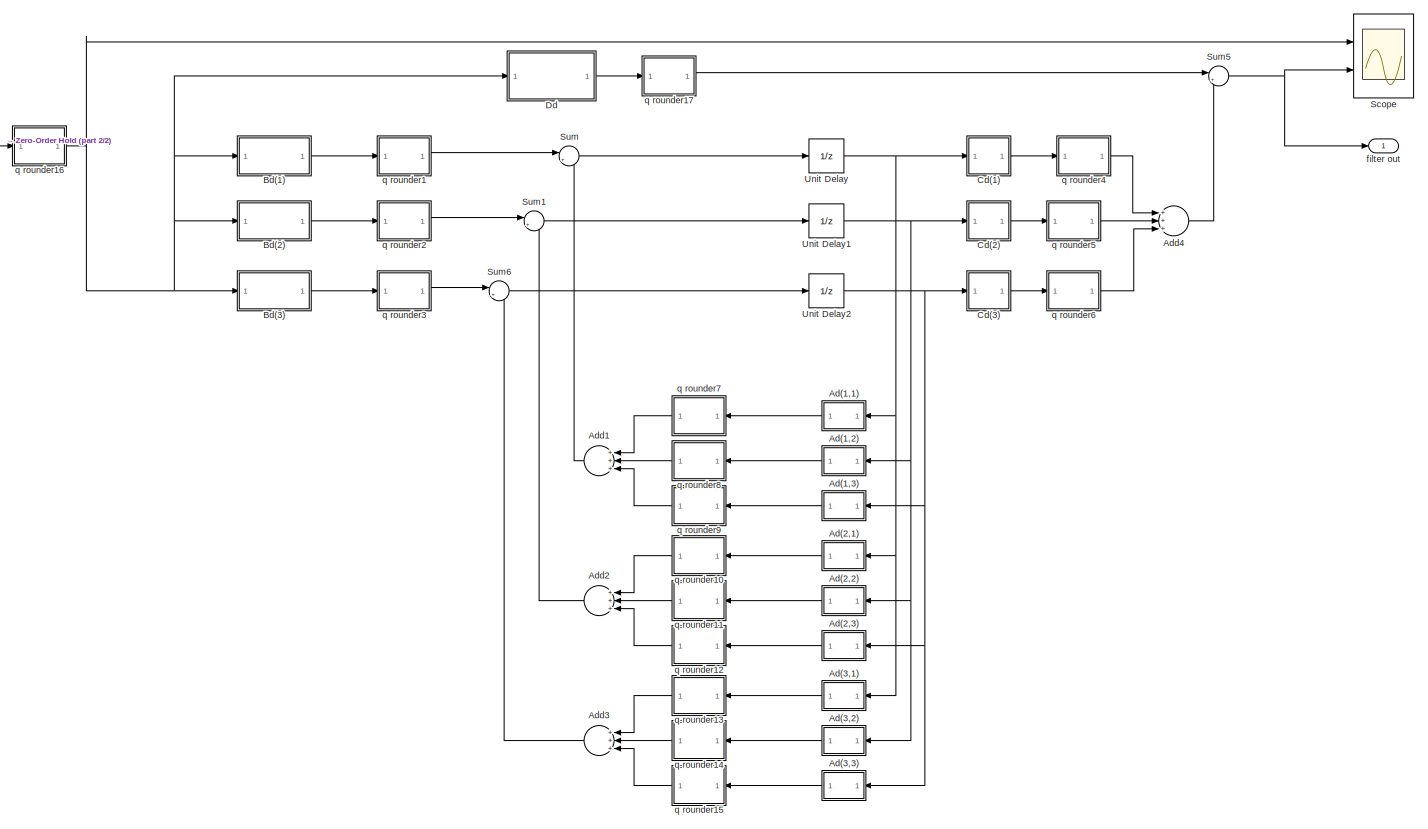
[diagram: Measurements/Power and angle calculations/discrete low pass filter1 - part 1/2, most of the canvas]
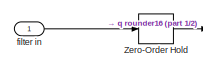
[diagram: Measurements/Power and angle calculations/discrete low pass filter1 - part 2/2, top left region]
BLOCK [SubSystem] Measurements/Power and angle calculations/discrete low pass filter1
  FunctionWithSeparateData = off
  MaskHideContents = off
  MinAlgLoopOccurrences = off
  Opaque = off
  Ports = [1, 1]
  PropExecContextOutsideSubsystem = off
  RTWSystemCode = Auto
  RequestExecContextInheritance = off
BLOCK [SubSystem] Measurements/Power and angle calculations/discrete low pass filter1/Ad(1,1)
  FunctionWithSeparateData = off
  MaskHideContents = off
  MinAlgLoopOccurrences = off
  Opaque = off
  Ports = [1, 1]
  PropExecContextOutsideSubsystem = off
  RTWSystemCode = Auto
  RequestExecContextInheritance = off
BLOCK [Constant] Measurements/Power and angle calculations/discrete low pass filter1/Ad(1,1)/Constant1
  Value = variable
BLOCK [Product] Measurements/Power and angle calculations/discrete low pass filter1/Ad(1,1)/Product1
  InputSameDT = off
  OutDataTypeStr = Inherit: Inherit via internal rule
  Ports = [2, 1]
  RndMeth = Floor
  SaturateOnIntegerOverflow = off
BLOCK [Inport] Measurements/Power and angle calculations/discrete low pass filter1/Ad(1,1)/in
  IconDisplay = Port number
BLOCK [Outport] Measurements/Power and angle calculations/discrete low pass filter1/Ad(1,1)/out
  IconDisplay = Port number
BLOCK [SubSystem] Measurements/Power and angle calculations/discrete low pass filter1/Ad(1,1)/q rounder16
  FunctionWithSeparateData = off
  MaskHideContents = off
  MinAlgLoopOccurrences = off
  Opaque = off
  Ports = [1, 1]
  PropExecContextOutsideSubsystem = off
  RTWSystemCode = Auto
  RequestExecContextInheritance = off
BLOCK [Gain] Measurements/Power and angle calculations/discrete low pass filter1/Ad(1,1)/q rounder16/Gain9
  Gain = 2^-q
  OutDataTypeStr = Inherit: Inherit via internal rule
  ParamDataTypeStr = Inherit: Inherit via internal rule
  SaturateOnIntegerOverflow = off
BLOCK [Reference] Measurements/Power and angle calculations/discrete low pass filter1/Ad(1,1)/q rounder16/Idealized ADC quantizer  REF=simulink_extras/Additional
Discrete/Idealized ADC quantizer
  AttributesFormatString = (settings: %<NumberOfConverterBits>-bit converter\nVmin: %<Vmin>, Vmax: %<Vmax>)
  NumberOfConverterBits = 32
  OutputDataType = double
  OutputNegativeValues = on
  Ports = [1, 1]
  SourceBlock = simulink_extras/Additional\nDiscrete/Idealized ADC quantizer
  SourceType = IdealADC
  Vmax = range
  Vmin = -range
BLOCK [Inport] Measurements/Power and angle calculations/discrete low pass filter1/Ad(1,1)/q rounder16/in
  IconDisplay = Port number
BLOCK [Outport] Measurements/Power and angle calculations/discrete low pass filter1/Ad(1,1)/q rounder16/out
  IconDisplay = Port number
BLOCK [SubSystem] Measurements/Power and angle calculations/discrete low pass filter1/Ad(1,2)
  FunctionWithSeparateData = off
  MaskHideContents = off
  MinAlgLoopOccurrences = off
  Opaque = off
  Ports = [1, 1]
  PropExecContextOutsideSubsystem = off
  RTWSystemCode = Auto
  RequestExecContextInheritance = off
BLOCK [Constant] Measurements/Power and angle calculations/discrete low pass filter1/Ad(1,2)/Constant1
  Value = variable
BLOCK [Product] Measurements/Power and angle calculations/discrete low pass filter1/Ad(1,2)/Product1
  InputSameDT = off
  OutDataTypeStr = Inherit: Inherit via internal rule
  Ports = [2, 1]
  RndMeth = Floor
  SaturateOnIntegerOverflow = off
BLOCK [Inport] Measurements/Power and angle calculations/discrete low pass filter1/Ad(1,2)/in
  IconDisplay = Port number
BLOCK [Outport] Measurements/Power and angle calculations/discrete low pass filter1/Ad(1,2)/out
  IconDisplay = Port number
BLOCK [SubSystem] Measurements/Power and angle calculations/discrete low pass filter1/Ad(1,2)/q rounder16
  FunctionWithSeparateData = off
  MaskHideContents = off
  MinAlgLoopOccurrences = off
  Opaque = off
  Ports = [1, 1]
  PropExecContextOutsideSubsystem = off
  RTWSystemCode = Auto
  RequestExecContextInheritance = off
BLOCK [Gain] Measurements/Power and angle calculations/discrete low pass filter1/Ad(1,2)/q rounder16/Gain9
  Gain = 2^-q
  OutDataTypeStr = Inherit: Inherit via internal rule
  ParamDataTypeStr = Inherit: Inherit via internal rule
  SaturateOnIntegerOverflow = off
BLOCK [Reference] Measurements/Power and angle calculations/discrete low pass filter1/Ad(1,2)/q rounder16/Idealized ADC quantizer  REF=simulink_extras/Additional
Discrete/Idealized ADC quantizer
  AttributesFormatString = (settings: %<NumberOfConverterBits>-bit converter\nVmin: %<Vmin>, Vmax: %<Vmax>)
  NumberOfConverterBits = 32
  OutputDataType = double
  OutputNegativeValues = on
  Ports = [1, 1]
  SourceBlock = simulink_extras/Additional\nDiscrete/Idealized ADC quantizer
  SourceType = IdealADC
  Vmax = range
  Vmin = -range
BLOCK [Inport] Measurements/Power and angle calculations/discrete low pass filter1/Ad(1,2)/q rounder16/in
  IconDisplay = Port number
BLOCK [Outport] Measurements/Power and angle calculations/discrete low pass filter1/Ad(1,2)/q rounder16/out
  IconDisplay = Port number
BLOCK [SubSystem] Measurements/Power and angle calculations/discrete low pass filter1/Ad(1,3)
  FunctionWithSeparateData = off
  MaskHideContents = off
  MinAlgLoopOccurrences = off
  Opaque = off
  Ports = [1, 1]
  PropExecContextOutsideSubsystem = off
  RTWSystemCode = Auto
  RequestExecContextInheritance = off
BLOCK [Constant] Measurements/Power and angle calculations/discrete low pass filter1/Ad(1,3)/Constant1
  Value = variable
BLOCK [Product] Measurements/Power and angle calculations/discrete low pass filter1/Ad(1,3)/Product1
  InputSameDT = off
  OutDataTypeStr = Inherit: Inherit via internal rule
  Ports = [2, 1]
  RndMeth = Floor
  SaturateOnIntegerOverflow = off
BLOCK [Scope] Measurements/Power and angle calculations/discrete low pass filter1/Ad(1,3)/Scope1
  DataFormat = StructureWithTime
  Floating = off
  LimitDataPoints = off
  NumInputPorts = 2
  Ports = [2]
  SampleTime = 0
  SaveName = ScopeData1
  ShowLegends = off
  YMax = 5~5
  YMin = -5~-5
  ZoomMode = yonly
BLOCK [Inport] Measurements/Power and angle calculations/discrete low pass filter1/Ad(1,3)/in
  IconDisplay = Port number
BLOCK [Outport] Measurements/Power and angle calculations/discrete low pass filter1/Ad(1,3)/out
  IconDisplay = Port number
BLOCK [SubSystem] Measurements/Power and angle calculations/discrete low pass filter1/Ad(1,3)/q rounder16
  FunctionWithSeparateData = off
  MaskHideContents = off
  MinAlgLoopOccurrences = off
  Opaque = off
  Ports = [1, 1]
  PropExecContextOutsideSubsystem = off
  RTWSystemCode = Auto
  RequestExecContextInheritance = off
BLOCK [Gain] Measurements/Power and angle calculations/discrete low pass filter1/Ad(1,3)/q rounder16/Gain9
  Gain = 2^-q
  OutDataTypeStr = Inherit: Inherit via internal rule
  ParamDataTypeStr = Inherit: Inherit via internal rule
  SaturateOnIntegerOverflow = off
BLOCK [Reference] Measurements/Power and angle calculations/discrete low pass filter1/Ad(1,3)/q rounder16/Idealized ADC quantizer  REF=simulink_extras/Additional
Discrete/Idealized ADC quantizer
  AttributesFormatString = (settings: %<NumberOfConverterBits>-bit converter\nVmin: %<Vmin>, Vmax: %<Vmax>)
  NumberOfConverterBits = 32
  OutputDataType = double
  OutputNegativeValues = on
  Ports = [1, 1]
  SourceBlock = simulink_extras/Additional\nDiscrete/Idealized ADC quantizer
  SourceType = IdealADC
  Vmax = range
  Vmin = -range
BLOCK [Inport] Measurements/Power and angle calculations/discrete low pass filter1/Ad(1,3)/q rounder16/in
  IconDisplay = Port number
BLOCK [Outport] Measurements/Power and angle calculations/discrete low pass filter1/Ad(1,3)/q rounder16/out
  IconDisplay = Port number
BLOCK [SubSystem] Measurements/Power and angle calculations/discrete low pass filter1/Ad(2,1)
  FunctionWithSeparateData = off
  MaskHideContents = off
  MinAlgLoopOccurrences = off
  Opaque = off
  Ports = [1, 1]
  PropExecContextOutsideSubsystem = off
  RTWSystemCode = Auto
  RequestExecContextInheritance = off
BLOCK [Constant] Measurements/Power and angle calculations/discrete low pass filter1/Ad(2,1)/Constant1
  Value = variable
BLOCK [Product] Measurements/Power and angle calculations/discrete low pass filter1/Ad(2,1)/Product1
  InputSameDT = off
  OutDataTypeStr = Inherit: Inherit via internal rule
  Ports = [2, 1]
  RndMeth = Floor
  SaturateOnIntegerOverflow = off
BLOCK [Scope] Measurements/Power and angle calculations/discrete low pass filter1/Ad(2,1)/Scope1
  DataFormat = StructureWithTime
  Floating = off
  LimitDataPoints = off
  NumInputPorts = 2
  Ports = [2]
  SampleTime = 0
  SaveName = ScopeData1
  ShowLegends = off
  YMax = 5~5
  YMin = -5~-5
  ZoomMode = yonly
BLOCK [Inport] Measurements/Power and angle calculations/discrete low pass filter1/Ad(2,1)/in
  IconDisplay = Port number
BLOCK [Outport] Measurements/Power and angle calculations/discrete low pass filter1/Ad(2,1)/out
  IconDisplay = Port number
BLOCK [SubSystem] Measurements/Power and angle calculations/discrete low pass filter1/Ad(2,1)/q rounder16
  FunctionWithSeparateData = off
  MaskHideContents = off
  MinAlgLoopOccurrences = off
  Opaque = off
  Ports = [1, 1]
  PropExecContextOutsideSubsystem = off
  RTWSystemCode = Auto
  RequestExecContextInheritance = off
BLOCK [Gain] Measurements/Power and angle calculations/discrete low pass filter1/Ad(2,1)/q rounder16/Gain9
  Gain = 2^-q
  OutDataTypeStr = Inherit: Inherit via internal rule
  ParamDataTypeStr = Inherit: Inherit via internal rule
  SaturateOnIntegerOverflow = off
BLOCK [Reference] Measurements/Power and angle calculations/discrete low pass filter1/Ad(2,1)/q rounder16/Idealized ADC quantizer  REF=simulink_extras/Additional
Discrete/Idealized ADC quantizer
  AttributesFormatString = (settings: %<NumberOfConverterBits>-bit converter\nVmin: %<Vmin>, Vmax: %<Vmax>)
  NumberOfConverterBits = 32
  OutputDataType = double
  OutputNegativeValues = on
  Ports = [1, 1]
  SourceBlock = simulink_extras/Additional\nDiscrete/Idealized ADC quantizer
  SourceType = IdealADC
  Vmax = range
  Vmin = -range
BLOCK [Inport] Measurements/Power and angle calculations/discrete low pass filter1/Ad(2,1)/q rounder16/in
  IconDisplay = Port number
BLOCK [Outport] Measurements/Power and angle calculations/discrete low pass filter1/Ad(2,1)/q rounder16/out
  IconDisplay = Port number
BLOCK [SubSystem] Measurements/Power and angle calculations/discrete low pass filter1/Ad(2,2)
  FunctionWithSeparateData = off
  MaskHideContents = off
  MinAlgLoopOccurrences = off
  Opaque = off
  Ports = [1, 1]
  PropExecContextOutsideSubsystem = off
  RTWSystemCode = Auto
  RequestExecContextInheritance = off
BLOCK [Constant] Measurements/Power and angle calculations/discrete low pass filter1/Ad(2,2)/Constant1
  Value = variable
BLOCK [Product] Measurements/Power and angle calculations/discrete low pass filter1/Ad(2,2)/Product1
  InputSameDT = off
  OutDataTypeStr = Inherit: Inherit via internal rule
  Ports = [2, 1]
  RndMeth = Floor
  SaturateOnIntegerOverflow = off
BLOCK [Scope] Measurements/Power and angle calculations/discrete low pass filter1/Ad(2,2)/Scope1
  DataFormat = StructureWithTime
  Floating = off
  LimitDataPoints = off
  NumInputPorts = 2
  Ports = [2]
  SampleTime = 0
  SaveName = ScopeData1
  ShowLegends = off
  YMax = 5~5
  YMin = -5~-5
  ZoomMode = yonly
BLOCK [Inport] Measurements/Power and angle calculations/discrete low pass filter1/Ad(2,2)/in
  IconDisplay = Port number
BLOCK [Outport] Measurements/Power and angle calculations/discrete low pass filter1/Ad(2,2)/out
  IconDisplay = Port number
BLOCK [SubSystem] Measurements/Power and angle calculations/discrete low pass filter1/Ad(2,2)/q rounder16
  FunctionWithSeparateData = off
  MaskHideContents = off
  MinAlgLoopOccurrences = off
  Opaque = off
  Ports = [1, 1]
  PropExecContextOutsideSubsystem = off
  RTWSystemCode = Auto
  RequestExecContextInheritance = off
BLOCK [Gain] Measurements/Power and angle calculations/discrete low pass filter1/Ad(2,2)/q rounder16/Gain9
  Gain = 2^-q
  OutDataTypeStr = Inherit: Inherit via internal rule
  ParamDataTypeStr = Inherit: Inherit via internal rule
  SaturateOnIntegerOverflow = off
BLOCK [Reference] Measurements/Power and angle calculations/discrete low pass filter1/Ad(2,2)/q rounder16/Idealized ADC quantizer  REF=simulink_extras/Additional
Discrete/Idealized ADC quantizer
  AttributesFormatString = (settings: %<NumberOfConverterBits>-bit converter\nVmin: %<Vmin>, Vmax: %<Vmax>)
  NumberOfConverterBits = 32
  OutputDataType = double
  OutputNegativeValues = on
  Ports = [1, 1]
  SourceBlock = simulink_extras/Additional\nDiscrete/Idealized ADC quantizer
  SourceType = IdealADC
  Vmax = range
  Vmin = -range
BLOCK [Inport] Measurements/Power and angle calculations/discrete low pass filter1/Ad(2,2)/q rounder16/in
  IconDisplay = Port number
BLOCK [Outport] Measurements/Power and angle calculations/discrete low pass filter1/Ad(2,2)/q rounder16/out
  IconDisplay = Port number
BLOCK [SubSystem] Measurements/Power and angle calculations/discrete low pass filter1/Ad(2,3)
  FunctionWithSeparateData = off
  MaskHideContents = off
  MinAlgLoopOccurrences = off
  Opaque = off
  Ports = [1, 1]
  PropExecContextOutsideSubsystem = off
  RTWSystemCode = Auto
  RequestExecContextInheritance = off
BLOCK [Constant] Measurements/Power and angle calculations/discrete low pass filter1/Ad(2,3)/Constant1
  Value = variable
BLOCK [Product] Measurements/Power and angle calculations/discrete low pass filter1/Ad(2,3)/Product1
  InputSameDT = off
  OutDataTypeStr = Inherit: Inherit via internal rule
  Ports = [2, 1]
  RndMeth = Floor
  SaturateOnIntegerOverflow = off
BLOCK [Scope] Measurements/Power and angle calculations/discrete low pass filter1/Ad(2,3)/Scope1
  DataFormat = StructureWithTime
  Floating = off
  LimitDataPoints = off
  NumInputPorts = 2
  Ports = [2]
  SampleTime = 0
  SaveName = ScopeData1
  ShowLegends = off
  YMax = 5~5
  YMin = -5~-5
  ZoomMode = yonly
BLOCK [Inport] Measurements/Power and angle calculations/discrete low pass filter1/Ad(2,3)/in
  IconDisplay = Port number
BLOCK [Outport] Measurements/Power and angle calculations/discrete low pass filter1/Ad(2,3)/out
  IconDisplay = Port number
BLOCK [SubSystem] Measurements/Power and angle calculations/discrete low pass filter1/Ad(2,3)/q rounder16
  FunctionWithSeparateData = off
  MaskHideContents = off
  MinAlgLoopOccurrences = off
  Opaque = off
  Ports = [1, 1]
  PropExecContextOutsideSubsystem = off
  RTWSystemCode = Auto
  RequestExecContextInheritance = off
BLOCK [Gain] Measurements/Power and angle calculations/discrete low pass filter1/Ad(2,3)/q rounder16/Gain9
  Gain = 2^-q
  OutDataTypeStr = Inherit: Inherit via internal rule
  ParamDataTypeStr = Inherit: Inherit via internal rule
  SaturateOnIntegerOverflow = off
BLOCK [Reference] Measurements/Power and angle calculations/discrete low pass filter1/Ad(2,3)/q rounder16/Idealized ADC quantizer  REF=simulink_extras/Additional
Discrete/Idealized ADC quantizer
  AttributesFormatString = (settings: %<NumberOfConverterBits>-bit converter\nVmin: %<Vmin>, Vmax: %<Vmax>)
  NumberOfConverterBits = 32
  OutputDataType = double
  OutputNegativeValues = on
  Ports = [1, 1]
  SourceBlock = simulink_extras/Additional\nDiscrete/Idealized ADC quantizer
  SourceType = IdealADC
  Vmax = range
  Vmin = -range
BLOCK [Inport] Measurements/Power and angle calculations/discrete low pass filter1/Ad(2,3)/q rounder16/in
  IconDisplay = Port number
BLOCK [Outport] Measurements/Power and angle calculations/discrete low pass filter1/Ad(2,3)/q rounder16/out
  IconDisplay = Port number
BLOCK [SubSystem] Measurements/Power and angle calculations/discrete low pass filter1/Ad(3,1)
  FunctionWithSeparateData = off
  MaskHideContents = off
  MinAlgLoopOccurrences = off
  Opaque = off
  Ports = [1, 1]
  PropExecContextOutsideSubsystem = off
  RTWSystemCode = Auto
  RequestExecContextInheritance = off
BLOCK [Constant] Measurements/Power and angle calculations/discrete low pass filter1/Ad(3,1)/Constant1
  Value = variable
BLOCK [Product] Measurements/Power and angle calculations/discrete low pass filter1/Ad(3,1)/Product1
  InputSameDT = off
  OutDataTypeStr = Inherit: Inherit via internal rule
  Ports = [2, 1]
  RndMeth = Floor
  SaturateOnIntegerOverflow = off
BLOCK [Scope] Measurements/Power and angle calculations/discrete low pass filter1/Ad(3,1)/Scope1
  DataFormat = StructureWithTime
  Floating = off
  LimitDataPoints = off
  NumInputPorts = 2
  Ports = [2]
  SampleTime = 0
  SaveName = ScopeData1
  ShowLegends = off
  YMax = 5~5
  YMin = -5~-5
  ZoomMode = yonly
BLOCK [Inport] Measurements/Power and angle calculations/discrete low pass filter1/Ad(3,1)/in
  IconDisplay = Port number
BLOCK [Outport] Measurements/Power and angle calculations/discrete low pass filter1/Ad(3,1)/out
  IconDisplay = Port number
BLOCK [SubSystem] Measurements/Power and angle calculations/discrete low pass filter1/Ad(3,1)/q rounder16
  FunctionWithSeparateData = off
  MaskHideContents = off
  MinAlgLoopOccurrences = off
  Opaque = off
  Ports = [1, 1]
  PropExecContextOutsideSubsystem = off
  RTWSystemCode = Auto
  RequestExecContextInheritance = off
BLOCK [Gain] Measurements/Power and angle calculations/discrete low pass filter1/Ad(3,1)/q rounder16/Gain9
  Gain = 2^-q
  OutDataTypeStr = Inherit: Inherit via internal rule
  ParamDataTypeStr = Inherit: Inherit via internal rule
  SaturateOnIntegerOverflow = off
BLOCK [Reference] Measurements/Power and angle calculations/discrete low pass filter1/Ad(3,1)/q rounder16/Idealized ADC quantizer  REF=simulink_extras/Additional
Discrete/Idealized ADC quantizer
  AttributesFormatString = (settings: %<NumberOfConverterBits>-bit converter\nVmin: %<Vmin>, Vmax: %<Vmax>)
  NumberOfConverterBits = 32
  OutputDataType = double
  OutputNegativeValues = on
  Ports = [1, 1]
  SourceBlock = simulink_extras/Additional\nDiscrete/Idealized ADC quantizer
  SourceType = IdealADC
  Vmax = range
  Vmin = -range
BLOCK [Inport] Measurements/Power and angle calculations/discrete low pass filter1/Ad(3,1)/q rounder16/in
  IconDisplay = Port number
BLOCK [Outport] Measurements/Power and angle calculations/discrete low pass filter1/Ad(3,1)/q rounder16/out
  IconDisplay = Port number
BLOCK [SubSystem] Measurements/Power and angle calculations/discrete low pass filter1/Ad(3,2)
  FunctionWithSeparateData = off
  MaskHideContents = off
  MinAlgLoopOccurrences = off
  Opaque = off
  Ports = [1, 1]
  PropExecContextOutsideSubsystem = off
  RTWSystemCode = Auto
  RequestExecContextInheritance = off
BLOCK [Constant] Measurements/Power and angle calculations/discrete low pass filter1/Ad(3,2)/Constant1
  Value = variable
BLOCK [Product] Measurements/Power and angle calculations/discrete low pass filter1/Ad(3,2)/Product1
  InputSameDT = off
  OutDataTypeStr = Inherit: Inherit via internal rule
  Ports = [2, 1]
  RndMeth = Floor
  SaturateOnIntegerOverflow = off
BLOCK [Scope] Measurements/Power and angle calculations/discrete low pass filter1/Ad(3,2)/Scope1
  DataFormat = StructureWithTime
  Floating = off
  LimitDataPoints = off
  NumInputPorts = 2
  Ports = [2]
  SampleTime = 0
  SaveName = ScopeData1
  ShowLegends = off
  YMax = 5~5
  YMin = -5~-5
  ZoomMode = yonly
BLOCK [Inport] Measurements/Power and angle calculations/discrete low pass filter1/Ad(3,2)/in
  IconDisplay = Port number
BLOCK [Outport] Measurements/Power and angle calculations/discrete low pass filter1/Ad(3,2)/out
  IconDisplay = Port number
BLOCK [SubSystem] Measurements/Power and angle calculations/discrete low pass filter1/Ad(3,2)/q rounder16
  FunctionWithSeparateData = off
  MaskHideContents = off
  MinAlgLoopOccurrences = off
  Opaque = off
  Ports = [1, 1]
  PropExecContextOutsideSubsystem = off
  RTWSystemCode = Auto
  RequestExecContextInheritance = off
BLOCK [Gain] Measurements/Power and angle calculations/discrete low pass filter1/Ad(3,2)/q rounder16/Gain9
  Gain = 2^-q
  OutDataTypeStr = Inherit: Inherit via internal rule
  ParamDataTypeStr = Inherit: Inherit via internal rule
  SaturateOnIntegerOverflow = off
BLOCK [Reference] Measurements/Power and angle calculations/discrete low pass filter1/Ad(3,2)/q rounder16/Idealized ADC quantizer  REF=simulink_extras/Additional
Discrete/Idealized ADC quantizer
  AttributesFormatString = (settings: %<NumberOfConverterBits>-bit converter\nVmin: %<Vmin>, Vmax: %<Vmax>)
  NumberOfConverterBits = 32
  OutputDataType = double
  OutputNegativeValues = on
  Ports = [1, 1]
  SourceBlock = simulink_extras/Additional\nDiscrete/Idealized ADC quantizer
  SourceType = IdealADC
  Vmax = range
  Vmin = -range
BLOCK [Inport] Measurements/Power and angle calculations/discrete low pass filter1/Ad(3,2)/q rounder16/in
  IconDisplay = Port number
BLOCK [Outport] Measurements/Power and angle calculations/discrete low pass filter1/Ad(3,2)/q rounder16/out
  IconDisplay = Port number
BLOCK [SubSystem] Measurements/Power and angle calculations/discrete low pass filter1/Ad(3,3)
  FunctionWithSeparateData = off
  MaskHideContents = off
  MinAlgLoopOccurrences = off
  Opaque = off
  Ports = [1, 1]
  PropExecContextOutsideSubsystem = off
  RTWSystemCode = Auto
  RequestExecContextInheritance = off
BLOCK [Constant] Measurements/Power and angle calculations/discrete low pass filter1/Ad(3,3)/Constant1
  Value = variable
BLOCK [Product] Measurements/Power and angle calculations/discrete low pass filter1/Ad(3,3)/Product1
  InputSameDT = off
  OutDataTypeStr = Inherit: Inherit via internal rule
  Ports = [2, 1]
  RndMeth = Floor
  SaturateOnIntegerOverflow = off
BLOCK [Scope] Measurements/Power and angle calculations/discrete low pass filter1/Ad(3,3)/Scope1
  DataFormat = StructureWithTime
  Floating = off
  LimitDataPoints = off
  NumInputPorts = 2
  Ports = [2]
  SampleTime = 0
  SaveName = ScopeData1
  ShowLegends = off
  YMax = 5~5
  YMin = -5~-5
  ZoomMode = yonly
BLOCK [Inport] Measurements/Power and angle calculations/discrete low pass filter1/Ad(3,3)/in
  IconDisplay = Port number
BLOCK [Outport] Measurements/Power and angle calculations/discrete low pass filter1/Ad(3,3)/out
  IconDisplay = Port number
BLOCK [SubSystem] Measurements/Power and angle calculations/discrete low pass filter1/Ad(3,3)/q rounder16
  FunctionWithSeparateData = off
  MaskHideContents = off
  MinAlgLoopOccurrences = off
  Opaque = off
  Ports = [1, 1]
  PropExecContextOutsideSubsystem = off
  RTWSystemCode = Auto
  RequestExecContextInheritance = off
BLOCK [Gain] Measurements/Power and angle calculations/discrete low pass filter1/Ad(3,3)/q rounder16/Gain9
  Gain = 2^-q
  OutDataTypeStr = Inherit: Inherit via internal rule
  ParamDataTypeStr = Inherit: Inherit via internal rule
  SaturateOnIntegerOverflow = off
BLOCK [Reference] Measurements/Power and angle calculations/discrete low pass filter1/Ad(3,3)/q rounder16/Idealized ADC quantizer  REF=simulink_extras/Additional
Discrete/Idealized ADC quantizer
  AttributesFormatString = (settings: %<NumberOfConverterBits>-bit converter\nVmin: %<Vmin>, Vmax: %<Vmax>)
  NumberOfConverterBits = 32
  OutputDataType = double
  OutputNegativeValues = on
  Ports = [1, 1]
  SourceBlock = simulink_extras/Additional\nDiscrete/Idealized ADC quantizer
  SourceType = IdealADC
  Vmax = range
  Vmin = -range
BLOCK [Inport] Measurements/Power and angle calculations/discrete low pass filter1/Ad(3,3)/q rounder16/in
  IconDisplay = Port number
BLOCK [Outport] Measurements/Power and angle calculations/discrete low pass filter1/Ad(3,3)/q rounder16/out
  IconDisplay = Port number
BLOCK [Sum] Measurements/Power and angle calculations/discrete low pass filter1/Add1
  InputSameDT = off
  Inputs = +++
  OutDataTypeStr = Inherit: Inherit via internal rule
  Ports = [3, 1]
  SaturateOnIntegerOverflow = off
BLOCK [Sum] Measurements/Power and angle calculations/discrete low pass filter1/Add2
  InputSameDT = off
  Inputs = +++
  OutDataTypeStr = Inherit: Inherit via internal rule
  Ports = [3, 1]
  SaturateOnIntegerOverflow = off
BLOCK [Sum] Measurements/Power and angle calculations/discrete low pass filter1/Add3
  InputSameDT = off
  Inputs = +++
  OutDataTypeStr = Inherit: Inherit via internal rule
  Ports = [3, 1]
  SaturateOnIntegerOverflow = off
BLOCK [Sum] Measurements/Power and angle calculations/discrete low pass filter1/Add4
  InputSameDT = off
  Inputs = +++
  OutDataTypeStr = Inherit: Inherit via internal rule
  Ports = [3, 1]
  SaturateOnIntegerOverflow = off
BLOCK [SubSystem] Measurements/Power and angle calculations/discrete low pass filter1/Bd(1)
  FunctionWithSeparateData = off
  MaskHideContents = off
  MinAlgLoopOccurrences = off
  Opaque = off
  Ports = [1, 1]
  PropExecContextOutsideSubsystem = off
  RTWSystemCode = Auto
  RequestExecContextInheritance = off
BLOCK [Constant] Measurements/Power and angle calculations/discrete low pass filter1/Bd(1)/Constant1
  Value = variable
BLOCK [Product] Measurements/Power and angle calculations/discrete low pass filter1/Bd(1)/Product1
  InputSameDT = off
  OutDataTypeStr = Inherit: Inherit via internal rule
  Ports = [2, 1]
  RndMeth = Floor
  SaturateOnIntegerOverflow = off
BLOCK [Inport] Measurements/Power and angle calculations/discrete low pass filter1/Bd(1)/in
  IconDisplay = Port number
BLOCK [Outport] Measurements/Power and angle calculations/discrete low pass filter1/Bd(1)/out
  IconDisplay = Port number
BLOCK [SubSystem] Measurements/Power and angle calculations/discrete low pass filter1/Bd(1)/q rounder16
  FunctionWithSeparateData = off
  MaskHideContents = off
  MinAlgLoopOccurrences = off
  Opaque = off
  Ports = [1, 1]
  PropExecContextOutsideSubsystem = off
  RTWSystemCode = Auto
  RequestExecContextInheritance = off
BLOCK [Gain] Measurements/Power and angle calculations/discrete low pass filter1/Bd(1)/q rounder16/Gain9
  Gain = 2^-q
  OutDataTypeStr = Inherit: Inherit via internal rule
  ParamDataTypeStr = Inherit: Inherit via internal rule
  SaturateOnIntegerOverflow = off
BLOCK [Reference] Measurements/Power and angle calculations/discrete low pass filter1/Bd(1)/q rounder16/Idealized ADC quantizer  REF=simulink_extras/Additional
Discrete/Idealized ADC quantizer
  AttributesFormatString = (settings: %<NumberOfConverterBits>-bit converter\nVmin: %<Vmin>, Vmax: %<Vmax>)
  NumberOfConverterBits = 32
  OutputDataType = double
  OutputNegativeValues = on
  Ports = [1, 1]
  SourceBlock = simulink_extras/Additional\nDiscrete/Idealized ADC quantizer
  SourceType = IdealADC
  Vmax = range
  Vmin = -range
BLOCK [Inport] Measurements/Power and angle calculations/discrete low pass filter1/Bd(1)/q rounder16/in
  IconDisplay = Port number
BLOCK [Outport] Measurements/Power and angle calculations/discrete low pass filter1/Bd(1)/q rounder16/out
  IconDisplay = Port number
BLOCK [SubSystem] Measurements/Power and angle calculations/discrete low pass filter1/Bd(2)
  FunctionWithSeparateData = off
  MaskHideContents = off
  MinAlgLoopOccurrences = off
  Opaque = off
  Ports = [1, 1]
  PropExecContextOutsideSubsystem = off
  RTWSystemCode = Auto
  RequestExecContextInheritance = off
BLOCK [Constant] Measurements/Power and angle calculations/discrete low pass filter1/Bd(2)/Constant1
  Value = variable
BLOCK [Product] Measurements/Power and angle calculations/discrete low pass filter1/Bd(2)/Product1
  InputSameDT = off
  OutDataTypeStr = Inherit: Inherit via internal rule
  Ports = [2, 1]
  RndMeth = Floor
  SaturateOnIntegerOverflow = off
BLOCK [Inport] Measurements/Power and angle calculations/discrete low pass filter1/Bd(2)/in
  IconDisplay = Port number
BLOCK [Outport] Measurements/Power and angle calculations/discrete low pass filter1/Bd(2)/out
  IconDisplay = Port number
BLOCK [SubSystem] Measurements/Power and angle calculations/discrete low pass filter1/Bd(2)/q rounder16
  FunctionWithSeparateData = off
  MaskHideContents = off
  MinAlgLoopOccurrences = off
  Opaque = off
  Ports = [1, 1]
  PropExecContextOutsideSubsystem = off
  RTWSystemCode = Auto
  RequestExecContextInheritance = off
BLOCK [Gain] Measurements/Power and angle calculations/discrete low pass filter1/Bd(2)/q rounder16/Gain9
  Gain = 2^-q
  OutDataTypeStr = Inherit: Inherit via internal rule
  ParamDataTypeStr = Inherit: Inherit via internal rule
  SaturateOnIntegerOverflow = off
BLOCK [Reference] Measurements/Power and angle calculations/discrete low pass filter1/Bd(2)/q rounder16/Idealized ADC quantizer  REF=simulink_extras/Additional
Discrete/Idealized ADC quantizer
  AttributesFormatString = (settings: %<NumberOfConverterBits>-bit converter\nVmin: %<Vmin>, Vmax: %<Vmax>)
  NumberOfConverterBits = 32
  OutputDataType = double
  OutputNegativeValues = on
  Ports = [1, 1]
  SourceBlock = simulink_extras/Additional\nDiscrete/Idealized ADC quantizer
  SourceType = IdealADC
  Vmax = range
  Vmin = -range
BLOCK [Inport] Measurements/Power and angle calculations/discrete low pass filter1/Bd(2)/q rounder16/in
  IconDisplay = Port number
BLOCK [Outport] Measurements/Power and angle calculations/discrete low pass filter1/Bd(2)/q rounder16/out
  IconDisplay = Port number
BLOCK [SubSystem] Measurements/Power and angle calculations/discrete low pass filter1/Bd(3)
  FunctionWithSeparateData = off
  MaskHideContents = off
  MinAlgLoopOccurrences = off
  Opaque = off
  Ports = [1, 1]
  PropExecContextOutsideSubsystem = off
  RTWSystemCode = Auto
  RequestExecContextInheritance = off
BLOCK [Constant] Measurements/Power and angle calculations/discrete low pass filter1/Bd(3)/Constant1
  Value = variable
BLOCK [Product] Measurements/Power and angle calculations/discrete low pass filter1/Bd(3)/Product1
  InputSameDT = off
  OutDataTypeStr = Inherit: Inherit via internal rule
  Ports = [2, 1]
  RndMeth = Floor
  SaturateOnIntegerOverflow = off
BLOCK [Inport] Measurements/Power and angle calculations/discrete low pass filter1/Bd(3)/in
  IconDisplay = Port number
BLOCK [Outport] Measurements/Power and angle calculations/discrete low pass filter1/Bd(3)/out
  IconDisplay = Port number
BLOCK [SubSystem] Measurements/Power and angle calculations/discrete low pass filter1/Bd(3)/q rounder16
  FunctionWithSeparateData = off
  MaskHideContents = off
  MinAlgLoopOccurrences = off
  Opaque = off
  Ports = [1, 1]
  PropExecContextOutsideSubsystem = off
  RTWSystemCode = Auto
  RequestExecContextInheritance = off
BLOCK [Gain] Measurements/Power and angle calculations/discrete low pass filter1/Bd(3)/q rounder16/Gain9
  Gain = 2^-q
  OutDataTypeStr = Inherit: Inherit via internal rule
  ParamDataTypeStr = Inherit: Inherit via internal rule
  SaturateOnIntegerOverflow = off
BLOCK [Reference] Measurements/Power and angle calculations/discrete low pass filter1/Bd(3)/q rounder16/Idealized ADC quantizer  REF=simulink_extras/Additional
Discrete/Idealized ADC quantizer
  AttributesFormatString = (settings: %<NumberOfConverterBits>-bit converter\nVmin: %<Vmin>, Vmax: %<Vmax>)
  NumberOfConverterBits = 32
  OutputDataType = double
  OutputNegativeValues = on
  Ports = [1, 1]
  SourceBlock = simulink_extras/Additional\nDiscrete/Idealized ADC quantizer
  SourceType = IdealADC
  Vmax = range
  Vmin = -range
BLOCK [Inport] Measurements/Power and angle calculations/discrete low pass filter1/Bd(3)/q rounder16/in
  IconDisplay = Port number
BLOCK [Outport] Measurements/Power and angle calculations/discrete low pass filter1/Bd(3)/q rounder16/out
  IconDisplay = Port number
BLOCK [SubSystem] Measurements/Power and angle calculations/discrete low pass filter1/Cd(1)
  FunctionWithSeparateData = off
  MaskHideContents = off
  MinAlgLoopOccurrences = off
  Opaque = off
  Ports = [1, 1]
  PropExecContextOutsideSubsystem = off
  RTWSystemCode = Auto
  RequestExecContextInheritance = off
BLOCK [Constant] Measurements/Power and angle calculations/discrete low pass filter1/Cd(1)/Constant1
  Value = variable
BLOCK [Product] Measurements/Power and angle calculations/discrete low pass filter1/Cd(1)/Product1
  InputSameDT = off
  OutDataTypeStr = Inherit: Inherit via internal rule
  Ports = [2, 1]
  RndMeth = Floor
  SaturateOnIntegerOverflow = off
BLOCK [Inport] Measurements/Power and angle calculations/discrete low pass filter1/Cd(1)/in
  IconDisplay = Port number
BLOCK [Outport] Measurements/Power and angle calculations/discrete low pass filter1/Cd(1)/out
  IconDisplay = Port number
BLOCK [SubSystem] Measurements/Power and angle calculations/discrete low pass filter1/Cd(1)/q rounder16
  FunctionWithSeparateData = off
  MaskHideContents = off
  MinAlgLoopOccurrences = off
  Opaque = off
  Ports = [1, 1]
  PropExecContextOutsideSubsystem = off
  RTWSystemCode = Auto
  RequestExecContextInheritance = off
BLOCK [Gain] Measurements/Power and angle calculations/discrete low pass filter1/Cd(1)/q rounder16/Gain9
  Gain = 2^-q
  OutDataTypeStr = Inherit: Inherit via internal rule
  ParamDataTypeStr = Inherit: Inherit via internal rule
  SaturateOnIntegerOverflow = off
BLOCK [Reference] Measurements/Power and angle calculations/discrete low pass filter1/Cd(1)/q rounder16/Idealized ADC quantizer  REF=simulink_extras/Additional
Discrete/Idealized ADC quantizer
  AttributesFormatString = (settings: %<NumberOfConverterBits>-bit converter\nVmin: %<Vmin>, Vmax: %<Vmax>)
  NumberOfConverterBits = 32
  OutputDataType = double
  OutputNegativeValues = on
  Ports = [1, 1]
  SourceBlock = simulink_extras/Additional\nDiscrete/Idealized ADC quantizer
  SourceType = IdealADC
  Vmax = range
  Vmin = -range
BLOCK [Inport] Measurements/Power and angle calculations/discrete low pass filter1/Cd(1)/q rounder16/in
  IconDisplay = Port number
BLOCK [Outport] Measurements/Power and angle calculations/discrete low pass filter1/Cd(1)/q rounder16/out
  IconDisplay = Port number
BLOCK [SubSystem] Measurements/Power and angle calculations/discrete low pass filter1/Cd(2)
  FunctionWithSeparateData = off
  MaskHideContents = off
  MinAlgLoopOccurrences = off
  Opaque = off
  Ports = [1, 1]
  PropExecContextOutsideSubsystem = off
  RTWSystemCode = Auto
  RequestExecContextInheritance = off
BLOCK [Constant] Measurements/Power and angle calculations/discrete low pass filter1/Cd(2)/Constant1
  Value = variable
BLOCK [Product] Measurements/Power and angle calculations/discrete low pass filter1/Cd(2)/Product1
  InputSameDT = off
  OutDataTypeStr = Inherit: Inherit via internal rule
  Ports = [2, 1]
  RndMeth = Floor
  SaturateOnIntegerOverflow = off
BLOCK [Inport] Measurements/Power and angle calculations/discrete low pass filter1/Cd(2)/in
  IconDisplay = Port number
BLOCK [Outport] Measurements/Power and angle calculations/discrete low pass filter1/Cd(2)/out
  IconDisplay = Port number
BLOCK [SubSystem] Measurements/Power and angle calculations/discrete low pass filter1/Cd(2)/q rounder16
  FunctionWithSeparateData = off
  MaskHideContents = off
  MinAlgLoopOccurrences = off
  Opaque = off
  Ports = [1, 1]
  PropExecContextOutsideSubsystem = off
  RTWSystemCode = Auto
  RequestExecContextInheritance = off
BLOCK [Gain] Measurements/Power and angle calculations/discrete low pass filter1/Cd(2)/q rounder16/Gain9
  Gain = 2^-q
  OutDataTypeStr = Inherit: Inherit via internal rule
  ParamDataTypeStr = Inherit: Inherit via internal rule
  SaturateOnIntegerOverflow = off
BLOCK [Reference] Measurements/Power and angle calculations/discrete low pass filter1/Cd(2)/q rounder16/Idealized ADC quantizer  REF=simulink_extras/Additional
Discrete/Idealized ADC quantizer
  AttributesFormatString = (settings: %<NumberOfConverterBits>-bit converter\nVmin: %<Vmin>, Vmax: %<Vmax>)
  NumberOfConverterBits = 32
  OutputDataType = double
  OutputNegativeValues = on
  Ports = [1, 1]
  SourceBlock = simulink_extras/Additional\nDiscrete/Idealized ADC quantizer
  SourceType = IdealADC
  Vmax = range
  Vmin = -range
BLOCK [Inport] Measurements/Power and angle calculations/discrete low pass filter1/Cd(2)/q rounder16/in
  IconDisplay = Port number
BLOCK [Outport] Measurements/Power and angle calculations/discrete low pass filter1/Cd(2)/q rounder16/out
  IconDisplay = Port number
BLOCK [SubSystem] Measurements/Power and angle calculations/discrete low pass filter1/Cd(3)
  FunctionWithSeparateData = off
  MaskHideContents = off
  MinAlgLoopOccurrences = off
  Opaque = off
  Ports = [1, 1]
  PropExecContextOutsideSubsystem = off
  RTWSystemCode = Auto
  RequestExecContextInheritance = off
BLOCK [Constant] Measurements/Power and angle calculations/discrete low pass filter1/Cd(3)/Constant1
  Value = variable
BLOCK [Product] Measurements/Power and angle calculations/discrete low pass filter1/Cd(3)/Product1
  InputSameDT = off
  OutDataTypeStr = Inherit: Inherit via internal rule
  Ports = [2, 1]
  RndMeth = Floor
  SaturateOnIntegerOverflow = off
BLOCK [Inport] Measurements/Power and angle calculations/discrete low pass filter1/Cd(3)/in
  IconDisplay = Port number
BLOCK [Outport] Measurements/Power and angle calculations/discrete low pass filter1/Cd(3)/out
  IconDisplay = Port number
BLOCK [SubSystem] Measurements/Power and angle calculations/discrete low pass filter1/Cd(3)/q rounder16
  FunctionWithSeparateData = off
  MaskHideContents = off
  MinAlgLoopOccurrences = off
  Opaque = off
  Ports = [1, 1]
  PropExecContextOutsideSubsystem = off
  RTWSystemCode = Auto
  RequestExecContextInheritance = off
BLOCK [Gain] Measurements/Power and angle calculations/discrete low pass filter1/Cd(3)/q rounder16/Gain9
  Gain = 2^-q
  OutDataTypeStr = Inherit: Inherit via internal rule
  ParamDataTypeStr = Inherit: Inherit via internal rule
  SaturateOnIntegerOverflow = off
BLOCK [Reference] Measurements/Power and angle calculations/discrete low pass filter1/Cd(3)/q rounder16/Idealized ADC quantizer  REF=simulink_extras/Additional
Discrete/Idealized ADC quantizer
  AttributesFormatString = (settings: %<NumberOfConverterBits>-bit converter\nVmin: %<Vmin>, Vmax: %<Vmax>)
  NumberOfConverterBits = 32
  OutputDataType = double
  OutputNegativeValues = on
  Ports = [1, 1]
  SourceBlock = simulink_extras/Additional\nDiscrete/Idealized ADC quantizer
  SourceType = IdealADC
  Vmax = range
  Vmin = -range
BLOCK [Inport] Measurements/Power and angle calculations/discrete low pass filter1/Cd(3)/q rounder16/in
  IconDisplay = Port number
BLOCK [Outport] Measurements/Power and angle calculations/discrete low pass filter1/Cd(3)/q rounder16/out
  IconDisplay = Port number
BLOCK [SubSystem] Measurements/Power and angle calculations/discrete low pass filter1/Dd
  FunctionWithSeparateData = off
  MaskHideContents = off
  MinAlgLoopOccurrences = off
  Opaque = off
  Ports = [1, 1]
  PropExecContextOutsideSubsystem = off
  RTWSystemCode = Auto
  RequestExecContextInheritance = off
BLOCK [Constant] Measurements/Power and angle calculations/discrete low pass filter1/Dd/Constant1
  Value = variable
BLOCK [Product] Measurements/Power and angle calculations/discrete low pass filter1/Dd/Product1
  InputSameDT = off
  OutDataTypeStr = Inherit: Inherit via internal rule
  Ports = [2, 1]
  RndMeth = Floor
  SaturateOnIntegerOverflow = off
BLOCK [Scope] Measurements/Power and angle calculations/discrete low pass filter1/Dd/Scope1
  DataFormat = StructureWithTime
  Floating = off
  LimitDataPoints = off
  NumInputPorts = 2
  Ports = [2]
  SampleTime = 0
  SaveName = ScopeData1
  ShowLegends = off
  YMax = 5~5
  YMin = -5~-5
  ZoomMode = yonly
BLOCK [Inport] Measurements/Power and angle calculations/discrete low pass filter1/Dd/in
  IconDisplay = Port number
BLOCK [Outport] Measurements/Power and angle calculations/discrete low pass filter1/Dd/out
  IconDisplay = Port number
BLOCK [SubSystem] Measurements/Power and angle calculations/discrete low pass filter1/Dd/q rounder16
  FunctionWithSeparateData = off
  MaskHideContents = off
  MinAlgLoopOccurrences = off
  Opaque = off
  Ports = [1, 1]
  PropExecContextOutsideSubsystem = off
  RTWSystemCode = Auto
  RequestExecContextInheritance = off
BLOCK [Gain] Measurements/Power and angle calculations/discrete low pass filter1/Dd/q rounder16/Gain9
  Gain = 2^-q
  OutDataTypeStr = Inherit: Inherit via internal rule
  ParamDataTypeStr = Inherit: Inherit via internal rule
  SaturateOnIntegerOverflow = off
BLOCK [Reference] Measurements/Power and angle calculations/discrete low pass filter1/Dd/q rounder16/Idealized ADC quantizer  REF=simulink_extras/Additional
Discrete/Idealized ADC quantizer
  AttributesFormatString = (settings: %<NumberOfConverterBits>-bit converter\nVmin: %<Vmin>, Vmax: %<Vmax>)
  NumberOfConverterBits = 32
  OutputDataType = double
  OutputNegativeValues = on
  Ports = [1, 1]
  SourceBlock = simulink_extras/Additional\nDiscrete/Idealized ADC quantizer
  SourceType = IdealADC
  Vmax = range
  Vmin = -range
BLOCK [Inport] Measurements/Power and angle calculations/discrete low pass filter1/Dd/q rounder16/in
  IconDisplay = Port number
BLOCK [Outport] Measurements/Power and angle calculations/discrete low pass filter1/Dd/q rounder16/out
  IconDisplay = Port number
BLOCK [Scope] Measurements/Power and angle calculations/discrete low pass filter1/Scope
  DataFormat = StructureWithTime
  Floating = off
  LimitDataPoints = off
  NumInputPorts = 2
  Ports = [2]
  SampleTime = 0
  SaveName = ScopeData11
  ShowLegends = off
  YMax = 5~5
  YMin = -5~-5
  ZoomMode = xonly
BLOCK [Sum] Measurements/Power and angle calculations/discrete low pass filter1/Sum
  IconShape = round
  InputSameDT = off
  Inputs = |++
  OutDataTypeStr = Inherit: Inherit via internal rule
  Ports = [2, 1]
  SaturateOnIntegerOverflow = off
BLOCK [Sum] Measurements/Power and angle calculations/discrete low pass filter1/Sum1
  IconShape = round
  InputSameDT = off
  Inputs = |++
  OutDataTypeStr = Inherit: Inherit via internal rule
  Ports = [2, 1]
  SaturateOnIntegerOverflow = off
BLOCK [Sum] Measurements/Power and angle calculations/discrete low pass filter1/Sum5
  IconShape = round
  InputSameDT = off
  Inputs = |++
  OutDataTypeStr = Inherit: Inherit via internal rule
  Ports = [2, 1]
  SaturateOnIntegerOverflow = off
BLOCK [Sum] Measurements/Power and angle calculations/discrete low pass filter1/Sum6
  IconShape = round
  InputSameDT = off
  Inputs = |++
  OutDataTypeStr = Inherit: Inherit via internal rule
  Ports = [2, 1]
  SaturateOnIntegerOverflow = off
BLOCK [UnitDelay] Measurements/Power and angle calculations/discrete low pass filter1/Unit Delay
  InputProcessing = Elements as channels (sample based)
  SampleTime = 5e-5
BLOCK [UnitDelay] Measurements/Power and angle calculations/discrete low pass filter1/Unit Delay1
  InputProcessing = Elements as channels (sample based)
  SampleTime = 5e-5
BLOCK [UnitDelay] Measurements/Power and angle calculations/discrete low pass filter1/Unit Delay2
  InputProcessing = Elements as channels (sample based)
  SampleTime = 5e-5
BLOCK [ZeroOrderHold] Measurements/Power and angle calculations/discrete low pass filter1/Zero-Order Hold
  SampleTime = 5e-5
BLOCK [Inport] Measurements/Power and angle calculations/discrete low pass filter1/filter in
  IconDisplay = Port number
BLOCK [Outport] Measurements/Power and angle calculations/discrete low pass filter1/filter out
  IconDisplay = Port number
BLOCK [SubSystem] Measurements/Power and angle calculations/discrete low pass filter1/q rounder1
  FunctionWithSeparateData = off
  MaskHideContents = off
  MinAlgLoopOccurrences = off
  Opaque = off
  Ports = [1, 1]
  PropExecContextOutsideSubsystem = off
  RTWSystemCode = Auto
  RequestExecContextInheritance = off
BLOCK [Gain] Measurements/Power and angle calculations/discrete low pass filter1/q rounder1/Gain9
  Gain = 2^-q
  OutDataTypeStr = Inherit: Inherit via internal rule
  ParamDataTypeStr = Inherit: Inherit via internal rule
  SaturateOnIntegerOverflow = off
BLOCK [Reference] Measurements/Power and angle calculations/discrete low pass filter1/q rounder1/Idealized ADC quantizer  REF=simulink_extras/Additional
Discrete/Idealized ADC quantizer
  AttributesFormatString = (settings: %<NumberOfConverterBits>-bit converter\nVmin: %<Vmin>, Vmax: %<Vmax>)
  NumberOfConverterBits = 32
  OutputDataType = double
  OutputNegativeValues = on
  Ports = [1, 1]
  SourceBlock = simulink_extras/Additional\nDiscrete/Idealized ADC quantizer
  SourceType = IdealADC
  Vmax = range
  Vmin = -range
BLOCK [Inport] Measurements/Power and angle calculations/discrete low pass filter1/q rounder1/in
  IconDisplay = Port number
BLOCK [Outport] Measurements/Power and angle calculations/discrete low pass filter1/q rounder1/out
  IconDisplay = Port number
BLOCK [SubSystem] Measurements/Power and angle calculations/discrete low pass filter1/q rounder10
  FunctionWithSeparateData = off
  MaskHideContents = off
  MinAlgLoopOccurrences = off
  Opaque = off
  Ports = [1, 1]
  PropExecContextOutsideSubsystem = off
  RTWSystemCode = Auto
  RequestExecContextInheritance = off
BLOCK [Gain] Measurements/Power and angle calculations/discrete low pass filter1/q rounder10/Gain9
  Gain = 2^-q
  OutDataTypeStr = Inherit: Inherit via internal rule
  ParamDataTypeStr = Inherit: Inherit via internal rule
  SaturateOnIntegerOverflow = off
BLOCK [Reference] Measurements/Power and angle calculations/discrete low pass filter1/q rounder10/Idealized ADC quantizer  REF=simulink_extras/Additional
Discrete/Idealized ADC quantizer
  AttributesFormatString = (settings: %<NumberOfConverterBits>-bit converter\nVmin: %<Vmin>, Vmax: %<Vmax>)
  NumberOfConverterBits = 32
  OutputDataType = double
  OutputNegativeValues = on
  Ports = [1, 1]
  SourceBlock = simulink_extras/Additional\nDiscrete/Idealized ADC quantizer
  SourceType = IdealADC
  Vmax = range
  Vmin = -range
BLOCK [Inport] Measurements/Power and angle calculations/discrete low pass filter1/q rounder10/in
  IconDisplay = Port number
BLOCK [Outport] Measurements/Power and angle calculations/discrete low pass filter1/q rounder10/out
  IconDisplay = Port number
BLOCK [SubSystem] Measurements/Power and angle calculations/discrete low pass filter1/q rounder11
  FunctionWithSeparateData = off
  MaskHideContents = off
  MinAlgLoopOccurrences = off
  Opaque = off
  Ports = [1, 1]
  PropExecContextOutsideSubsystem = off
  RTWSystemCode = Auto
  RequestExecContextInheritance = off
BLOCK [Gain] Measurements/Power and angle calculations/discrete low pass filter1/q rounder11/Gain9
  Gain = 2^-q
  OutDataTypeStr = Inherit: Inherit via internal rule
  ParamDataTypeStr = Inherit: Inherit via internal rule
  SaturateOnIntegerOverflow = off
BLOCK [Reference] Measurements/Power and angle calculations/discrete low pass filter1/q rounder11/Idealized ADC quantizer  REF=simulink_extras/Additional
Discrete/Idealized ADC quantizer
  AttributesFormatString = (settings: %<NumberOfConverterBits>-bit converter\nVmin: %<Vmin>, Vmax: %<Vmax>)
  NumberOfConverterBits = 32
  OutputDataType = double
  OutputNegativeValues = on
  Ports = [1, 1]
  SourceBlock = simulink_extras/Additional\nDiscrete/Idealized ADC quantizer
  SourceType = IdealADC
  Vmax = range
  Vmin = -range
BLOCK [Inport] Measurements/Power and angle calculations/discrete low pass filter1/q rounder11/in
  IconDisplay = Port number
BLOCK [Outport] Measurements/Power and angle calculations/discrete low pass filter1/q rounder11/out
  IconDisplay = Port number
BLOCK [SubSystem] Measurements/Power and angle calculations/discrete low pass filter1/q rounder12
  FunctionWithSeparateData = off
  MaskHideContents = off
  MinAlgLoopOccurrences = off
  Opaque = off
  Ports = [1, 1]
  PropExecContextOutsideSubsystem = off
  RTWSystemCode = Auto
  RequestExecContextInheritance = off
BLOCK [Gain] Measurements/Power and angle calculations/discrete low pass filter1/q rounder12/Gain9
  Gain = 2^-q
  OutDataTypeStr = Inherit: Inherit via internal rule
  ParamDataTypeStr = Inherit: Inherit via internal rule
  SaturateOnIntegerOverflow = off
BLOCK [Reference] Measurements/Power and angle calculations/discrete low pass filter1/q rounder12/Idealized ADC quantizer  REF=simulink_extras/Additional
Discrete/Idealized ADC quantizer
  AttributesFormatString = (settings: %<NumberOfConverterBits>-bit converter\nVmin: %<Vmin>, Vmax: %<Vmax>)
  NumberOfConverterBits = 32
  OutputDataType = double
  OutputNegativeValues = on
  Ports = [1, 1]
  SourceBlock = simulink_extras/Additional\nDiscrete/Idealized ADC quantizer
  SourceType = IdealADC
  Vmax = range
  Vmin = -range
BLOCK [Inport] Measurements/Power and angle calculations/discrete low pass filter1/q rounder12/in
  IconDisplay = Port number
BLOCK [Outport] Measurements/Power and angle calculations/discrete low pass filter1/q rounder12/out
  IconDisplay = Port number
BLOCK [SubSystem] Measurements/Power and angle calculations/discrete low pass filter1/q rounder13
  FunctionWithSeparateData = off
  MaskHideContents = off
  MinAlgLoopOccurrences = off
  Opaque = off
  Ports = [1, 1]
  PropExecContextOutsideSubsystem = off
  RTWSystemCode = Auto
  RequestExecContextInheritance = off
BLOCK [Gain] Measurements/Power and angle calculations/discrete low pass filter1/q rounder13/Gain9
  Gain = 2^-q
  OutDataTypeStr = Inherit: Inherit via internal rule
  ParamDataTypeStr = Inherit: Inherit via internal rule
  SaturateOnIntegerOverflow = off
BLOCK [Reference] Measurements/Power and angle calculations/discrete low pass filter1/q rounder13/Idealized ADC quantizer  REF=simulink_extras/Additional
Discrete/Idealized ADC quantizer
  AttributesFormatString = (settings: %<NumberOfConverterBits>-bit converter\nVmin: %<Vmin>, Vmax: %<Vmax>)
  NumberOfConverterBits = 32
  OutputDataType = double
  OutputNegativeValues = on
  Ports = [1, 1]
  SourceBlock = simulink_extras/Additional\nDiscrete/Idealized ADC quantizer
  SourceType = IdealADC
  Vmax = range
  Vmin = -range
BLOCK [Inport] Measurements/Power and angle calculations/discrete low pass filter1/q rounder13/in
  IconDisplay = Port number
BLOCK [Outport] Measurements/Power and angle calculations/discrete low pass filter1/q rounder13/out
  IconDisplay = Port number
BLOCK [SubSystem] Measurements/Power and angle calculations/discrete low pass filter1/q rounder14
  FunctionWithSeparateData = off
  MaskHideContents = off
  MinAlgLoopOccurrences = off
  Opaque = off
  Ports = [1, 1]
  PropExecContextOutsideSubsystem = off
  RTWSystemCode = Auto
  RequestExecContextInheritance = off
BLOCK [Gain] Measurements/Power and angle calculations/discrete low pass filter1/q rounder14/Gain9
  Gain = 2^-q
  OutDataTypeStr = Inherit: Inherit via internal rule
  ParamDataTypeStr = Inherit: Inherit via internal rule
  SaturateOnIntegerOverflow = off
BLOCK [Reference] Measurements/Power and angle calculations/discrete low pass filter1/q rounder14/Idealized ADC quantizer  REF=simulink_extras/Additional
Discrete/Idealized ADC quantizer
  AttributesFormatString = (settings: %<NumberOfConverterBits>-bit converter\nVmin: %<Vmin>, Vmax: %<Vmax>)
  NumberOfConverterBits = 32
  OutputDataType = double
  OutputNegativeValues = on
  Ports = [1, 1]
  SourceBlock = simulink_extras/Additional\nDiscrete/Idealized ADC quantizer
  SourceType = IdealADC
  Vmax = range
  Vmin = -range
BLOCK [Inport] Measurements/Power and angle calculations/discrete low pass filter1/q rounder14/in
  IconDisplay = Port number
BLOCK [Outport] Measurements/Power and angle calculations/discrete low pass filter1/q rounder14/out
  IconDisplay = Port number
BLOCK [SubSystem] Measurements/Power and angle calculations/discrete low pass filter1/q rounder15
  FunctionWithSeparateData = off
  MaskHideContents = off
  MinAlgLoopOccurrences = off
  Opaque = off
  Ports = [1, 1]
  PropExecContextOutsideSubsystem = off
  RTWSystemCode = Auto
  RequestExecContextInheritance = off
BLOCK [Gain] Measurements/Power and angle calculations/discrete low pass filter1/q rounder15/Gain9
  Gain = 2^-q
  OutDataTypeStr = Inherit: Inherit via internal rule
  ParamDataTypeStr = Inherit: Inherit via internal rule
  SaturateOnIntegerOverflow = off
BLOCK [Reference] Measurements/Power and angle calculations/discrete low pass filter1/q rounder15/Idealized ADC quantizer  REF=simulink_extras/Additional
Discrete/Idealized ADC quantizer
  AttributesFormatString = (settings: %<NumberOfConverterBits>-bit converter\nVmin: %<Vmin>, Vmax: %<Vmax>)
  NumberOfConverterBits = 32
  OutputDataType = double
  OutputNegativeValues = on
  Ports = [1, 1]
  SourceBlock = simulink_extras/Additional\nDiscrete/Idealized ADC quantizer
  SourceType = IdealADC
  Vmax = range
  Vmin = -range
BLOCK [Inport] Measurements/Power and angle calculations/discrete low pass filter1/q rounder15/in
  IconDisplay = Port number
BLOCK [Outport] Measurements/Power and angle calculations/discrete low pass filter1/q rounder15/out
  IconDisplay = Port number
BLOCK [SubSystem] Measurements/Power and angle calculations/discrete low pass filter1/q rounder16
  FunctionWithSeparateData = off
  MaskHideContents = off
  MinAlgLoopOccurrences = off
  Opaque = off
  Ports = [1, 1]
  PropExecContextOutsideSubsystem = off
  RTWSystemCode = Auto
  RequestExecContextInheritance = off
BLOCK [Gain] Measurements/Power and angle calculations/discrete low pass filter1/q rounder16/Gain9
  Gain = 2^-q
  OutDataTypeStr = Inherit: Inherit via internal rule
  ParamDataTypeStr = Inherit: Inherit via internal rule
  SaturateOnIntegerOverflow = off
BLOCK [Reference] Measurements/Power and angle calculations/discrete low pass filter1/q rounder16/Idealized ADC quantizer  REF=simulink_extras/Additional
Discrete/Idealized ADC quantizer
  AttributesFormatString = (settings: %<NumberOfConverterBits>-bit converter\nVmin: %<Vmin>, Vmax: %<Vmax>)
  NumberOfConverterBits = 32
  OutputDataType = double
  OutputNegativeValues = on
  Ports = [1, 1]
  SourceBlock = simulink_extras/Additional\nDiscrete/Idealized ADC quantizer
  SourceType = IdealADC
  Vmax = range
  Vmin = -range
BLOCK [Inport] Measurements/Power and angle calculations/discrete low pass filter1/q rounder16/in
  IconDisplay = Port number
BLOCK [Outport] Measurements/Power and angle calculations/discrete low pass filter1/q rounder16/out
  IconDisplay = Port number
BLOCK [SubSystem] Measurements/Power and angle calculations/discrete low pass filter1/q rounder17
  FunctionWithSeparateData = off
  MaskHideContents = off
  MinAlgLoopOccurrences = off
  Opaque = off
  Ports = [1, 1]
  PropExecContextOutsideSubsystem = off
  RTWSystemCode = Auto
  RequestExecContextInheritance = off
BLOCK [Gain] Measurements/Power and angle calculations/discrete low pass filter1/q rounder17/Gain9
  Gain = 2^-q
  OutDataTypeStr = Inherit: Inherit via internal rule
  ParamDataTypeStr = Inherit: Inherit via internal rule
  SaturateOnIntegerOverflow = off
BLOCK [Reference] Measurements/Power and angle calculations/discrete low pass filter1/q rounder17/Idealized ADC quantizer  REF=simulink_extras/Additional
Discrete/Idealized ADC quantizer
  AttributesFormatString = (settings: %<NumberOfConverterBits>-bit converter\nVmin: %<Vmin>, Vmax: %<Vmax>)
  NumberOfConverterBits = 32
  OutputDataType = double
  OutputNegativeValues = on
  Ports = [1, 1]
  SourceBlock = simulink_extras/Additional\nDiscrete/Idealized ADC quantizer
  SourceType = IdealADC
  Vmax = range
  Vmin = -range
BLOCK [Inport] Measurements/Power and angle calculations/discrete low pass filter1/q rounder17/in
  IconDisplay = Port number
BLOCK [Outport] Measurements/Power and angle calculations/discrete low pass filter1/q rounder17/out
  IconDisplay = Port number
BLOCK [SubSystem] Measurements/Power and angle calculations/discrete low pass filter1/q rounder2
  FunctionWithSeparateData = off
  MaskHideContents = off
  MinAlgLoopOccurrences = off
  Opaque = off
  Ports = [1, 1]
  PropExecContextOutsideSubsystem = off
  RTWSystemCode = Auto
  RequestExecContextInheritance = off
BLOCK [Gain] Measurements/Power and angle calculations/discrete low pass filter1/q rounder2/Gain9
  Gain = 2^-q
  OutDataTypeStr = Inherit: Inherit via internal rule
  ParamDataTypeStr = Inherit: Inherit via internal rule
  SaturateOnIntegerOverflow = off
BLOCK [Reference] Measurements/Power and angle calculations/discrete low pass filter1/q rounder2/Idealized ADC quantizer  REF=simulink_extras/Additional
Discrete/Idealized ADC quantizer
  AttributesFormatString = (settings: %<NumberOfConverterBits>-bit converter\nVmin: %<Vmin>, Vmax: %<Vmax>)
  NumberOfConverterBits = 32
  OutputDataType = double
  OutputNegativeValues = on
  Ports = [1, 1]
  SourceBlock = simulink_extras/Additional\nDiscrete/Idealized ADC quantizer
  SourceType = IdealADC
  Vmax = range
  Vmin = -range
BLOCK [Inport] Measurements/Power and angle calculations/discrete low pass filter1/q rounder2/in
  IconDisplay = Port number
BLOCK [Outport] Measurements/Power and angle calculations/discrete low pass filter1/q rounder2/out
  IconDisplay = Port number
BLOCK [SubSystem] Measurements/Power and angle calculations/discrete low pass filter1/q rounder3
  FunctionWithSeparateData = off
  MaskHideContents = off
  MinAlgLoopOccurrences = off
  Opaque = off
  Ports = [1, 1]
  PropExecContextOutsideSubsystem = off
  RTWSystemCode = Auto
  RequestExecContextInheritance = off
BLOCK [Gain] Measurements/Power and angle calculations/discrete low pass filter1/q rounder3/Gain9
  Gain = 2^-q
  OutDataTypeStr = Inherit: Inherit via internal rule
  ParamDataTypeStr = Inherit: Inherit via internal rule
  SaturateOnIntegerOverflow = off
BLOCK [Reference] Measurements/Power and angle calculations/discrete low pass filter1/q rounder3/Idealized ADC quantizer  REF=simulink_extras/Additional
Discrete/Idealized ADC quantizer
  AttributesFormatString = (settings: %<NumberOfConverterBits>-bit converter\nVmin: %<Vmin>, Vmax: %<Vmax>)
  NumberOfConverterBits = 32
  OutputDataType = double
  OutputNegativeValues = on
  Ports = [1, 1]
  SourceBlock = simulink_extras/Additional\nDiscrete/Idealized ADC quantizer
  SourceType = IdealADC
  Vmax = range
  Vmin = -range
BLOCK [Inport] Measurements/Power and angle calculations/discrete low pass filter1/q rounder3/in
  IconDisplay = Port number
BLOCK [Outport] Measurements/Power and angle calculations/discrete low pass filter1/q rounder3/out
  IconDisplay = Port number
BLOCK [SubSystem] Measurements/Power and angle calculations/discrete low pass filter1/q rounder4
  FunctionWithSeparateData = off
  MaskHideContents = off
  MinAlgLoopOccurrences = off
  Opaque = off
  Ports = [1, 1]
  PropExecContextOutsideSubsystem = off
  RTWSystemCode = Auto
  RequestExecContextInheritance = off
BLOCK [Gain] Measurements/Power and angle calculations/discrete low pass filter1/q rounder4/Gain9
  Gain = 2^-q
  OutDataTypeStr = Inherit: Inherit via internal rule
  ParamDataTypeStr = Inherit: Inherit via internal rule
  SaturateOnIntegerOverflow = off
BLOCK [Reference] Measurements/Power and angle calculations/discrete low pass filter1/q rounder4/Idealized ADC quantizer  REF=simulink_extras/Additional
Discrete/Idealized ADC quantizer
  AttributesFormatString = (settings: %<NumberOfConverterBits>-bit converter\nVmin: %<Vmin>, Vmax: %<Vmax>)
  NumberOfConverterBits = 32
  OutputDataType = double
  OutputNegativeValues = on
  Ports = [1, 1]
  SourceBlock = simulink_extras/Additional\nDiscrete/Idealized ADC quantizer
  SourceType = IdealADC
  Vmax = range
  Vmin = -range
BLOCK [Inport] Measurements/Power and angle calculations/discrete low pass filter1/q rounder4/in
  IconDisplay = Port number
BLOCK [Outport] Measurements/Power and angle calculations/discrete low pass filter1/q rounder4/out
  IconDisplay = Port number
BLOCK [SubSystem] Measurements/Power and angle calculations/discrete low pass filter1/q rounder5
  FunctionWithSeparateData = off
  MaskHideContents = off
  MinAlgLoopOccurrences = off
  Opaque = off
  Ports = [1, 1]
  PropExecContextOutsideSubsystem = off
  RTWSystemCode = Auto
  RequestExecContextInheritance = off
BLOCK [Gain] Measurements/Power and angle calculations/discrete low pass filter1/q rounder5/Gain9
  Gain = 2^-q
  OutDataTypeStr = Inherit: Inherit via internal rule
  ParamDataTypeStr = Inherit: Inherit via internal rule
  SaturateOnIntegerOverflow = off
BLOCK [Reference] Measurements/Power and angle calculations/discrete low pass filter1/q rounder5/Idealized ADC quantizer  REF=simulink_extras/Additional
Discrete/Idealized ADC quantizer
  AttributesFormatString = (settings: %<NumberOfConverterBits>-bit converter\nVmin: %<Vmin>, Vmax: %<Vmax>)
  NumberOfConverterBits = 32
  OutputDataType = double
  OutputNegativeValues = on
  Ports = [1, 1]
  SourceBlock = simulink_extras/Additional\nDiscrete/Idealized ADC quantizer
  SourceType = IdealADC
  Vmax = range
  Vmin = -range
BLOCK [Inport] Measurements/Power and angle calculations/discrete low pass filter1/q rounder5/in
  IconDisplay = Port number
BLOCK [Outport] Measurements/Power and angle calculations/discrete low pass filter1/q rounder5/out
  IconDisplay = Port number
BLOCK [SubSystem] Measurements/Power and angle calculations/discrete low pass filter1/q rounder6
  FunctionWithSeparateData = off
  MaskHideContents = off
  MinAlgLoopOccurrences = off
  Opaque = off
  Ports = [1, 1]
  PropExecContextOutsideSubsystem = off
  RTWSystemCode = Auto
  RequestExecContextInheritance = off
BLOCK [Gain] Measurements/Power and angle calculations/discrete low pass filter1/q rounder6/Gain9
  Gain = 2^-q
  OutDataTypeStr = Inherit: Inherit via internal rule
  ParamDataTypeStr = Inherit: Inherit via internal rule
  SaturateOnIntegerOverflow = off
BLOCK [Reference] Measurements/Power and angle calculations/discrete low pass filter1/q rounder6/Idealized ADC quantizer  REF=simulink_extras/Additional
Discrete/Idealized ADC quantizer
  AttributesFormatString = (settings: %<NumberOfConverterBits>-bit converter\nVmin: %<Vmin>, Vmax: %<Vmax>)
  NumberOfConverterBits = 32
  OutputDataType = double
  OutputNegativeValues = on
  Ports = [1, 1]
  SourceBlock = simulink_extras/Additional\nDiscrete/Idealized ADC quantizer
  SourceType = IdealADC
  Vmax = range
  Vmin = -range
BLOCK [Inport] Measurements/Power and angle calculations/discrete low pass filter1/q rounder6/in
  IconDisplay = Port number
BLOCK [Outport] Measurements/Power and angle calculations/discrete low pass filter1/q rounder6/out
  IconDisplay = Port number
BLOCK [SubSystem] Measurements/Power and angle calculations/discrete low pass filter1/q rounder7
  FunctionWithSeparateData = off
  MaskHideContents = off
  MinAlgLoopOccurrences = off
  Opaque = off
  Ports = [1, 1]
  PropExecContextOutsideSubsystem = off
  RTWSystemCode = Auto
  RequestExecContextInheritance = off
BLOCK [Gain] Measurements/Power and angle calculations/discrete low pass filter1/q rounder7/Gain9
  Gain = 2^-q
  OutDataTypeStr = Inherit: Inherit via internal rule
  ParamDataTypeStr = Inherit: Inherit via internal rule
  SaturateOnIntegerOverflow = off
BLOCK [Reference] Measurements/Power and angle calculations/discrete low pass filter1/q rounder7/Idealized ADC quantizer  REF=simulink_extras/Additional
Discrete/Idealized ADC quantizer
  AttributesFormatString = (settings: %<NumberOfConverterBits>-bit converter\nVmin: %<Vmin>, Vmax: %<Vmax>)
  NumberOfConverterBits = 32
  OutputDataType = double
  OutputNegativeValues = on
  Ports = [1, 1]
  SourceBlock = simulink_extras/Additional\nDiscrete/Idealized ADC quantizer
  SourceType = IdealADC
  Vmax = range
  Vmin = -range
BLOCK [Inport] Measurements/Power and angle calculations/discrete low pass filter1/q rounder7/in
  IconDisplay = Port number
BLOCK [Outport] Measurements/Power and angle calculations/discrete low pass filter1/q rounder7/out
  IconDisplay = Port number
BLOCK [SubSystem] Measurements/Power and angle calculations/discrete low pass filter1/q rounder8
  FunctionWithSeparateData = off
  MaskHideContents = off
  MinAlgLoopOccurrences = off
  Opaque = off
  Ports = [1, 1]
  PropExecContextOutsideSubsystem = off
  RTWSystemCode = Auto
  RequestExecContextInheritance = off
BLOCK [Gain] Measurements/Power and angle calculations/discrete low pass filter1/q rounder8/Gain9
  Gain = 2^-q
  OutDataTypeStr = Inherit: Inherit via internal rule
  ParamDataTypeStr = Inherit: Inherit via internal rule
  SaturateOnIntegerOverflow = off
BLOCK [Reference] Measurements/Power and angle calculations/discrete low pass filter1/q rounder8/Idealized ADC quantizer  REF=simulink_extras/Additional
Discrete/Idealized ADC quantizer
  AttributesFormatString = (settings: %<NumberOfConverterBits>-bit converter\nVmin: %<Vmin>, Vmax: %<Vmax>)
  NumberOfConverterBits = 32
  OutputDataType = double
  OutputNegativeValues = on
  Ports = [1, 1]
  SourceBlock = simulink_extras/Additional\nDiscrete/Idealized ADC quantizer
  SourceType = IdealADC
  Vmax = range
  Vmin = -range
BLOCK [Inport] Measurements/Power and angle calculations/discrete low pass filter1/q rounder8/in
  IconDisplay = Port number
BLOCK [Outport] Measurements/Power and angle calculations/discrete low pass filter1/q rounder8/out
  IconDisplay = Port number
BLOCK [SubSystem] Measurements/Power and angle calculations/discrete low pass filter1/q rounder9
  FunctionWithSeparateData = off
  MaskHideContents = off
  MinAlgLoopOccurrences = off
  Opaque = off
  Ports = [1, 1]
  PropExecContextOutsideSubsystem = off
  RTWSystemCode = Auto
  RequestExecContextInheritance = off
BLOCK [Gain] Measurements/Power and angle calculations/discrete low pass filter1/q rounder9/Gain9
  Gain = 2^-q
  OutDataTypeStr = Inherit: Inherit via internal rule
  ParamDataTypeStr = Inherit: Inherit via internal rule
  SaturateOnIntegerOverflow = off
BLOCK [Reference] Measurements/Power and angle calculations/discrete low pass filter1/q rounder9/Idealized ADC quantizer  REF=simulink_extras/Additional
Discrete/Idealized ADC quantizer
  AttributesFormatString = (settings: %<NumberOfConverterBits>-bit converter\nVmin: %<Vmin>, Vmax: %<Vmax>)
  NumberOfConverterBits = 32
  OutputDataType = double
  OutputNegativeValues = on
  Ports = [1, 1]
  SourceBlock = simulink_extras/Additional\nDiscrete/Idealized ADC quantizer
  SourceType = IdealADC
  Vmax = range
  Vmin = -range
BLOCK [Inport] Measurements/Power and angle calculations/discrete low pass filter1/q rounder9/in
  IconDisplay = Port number
BLOCK [Outport] Measurements/Power and angle calculations/discrete low pass filter1/q rounder9/out
  IconDisplay = Port number
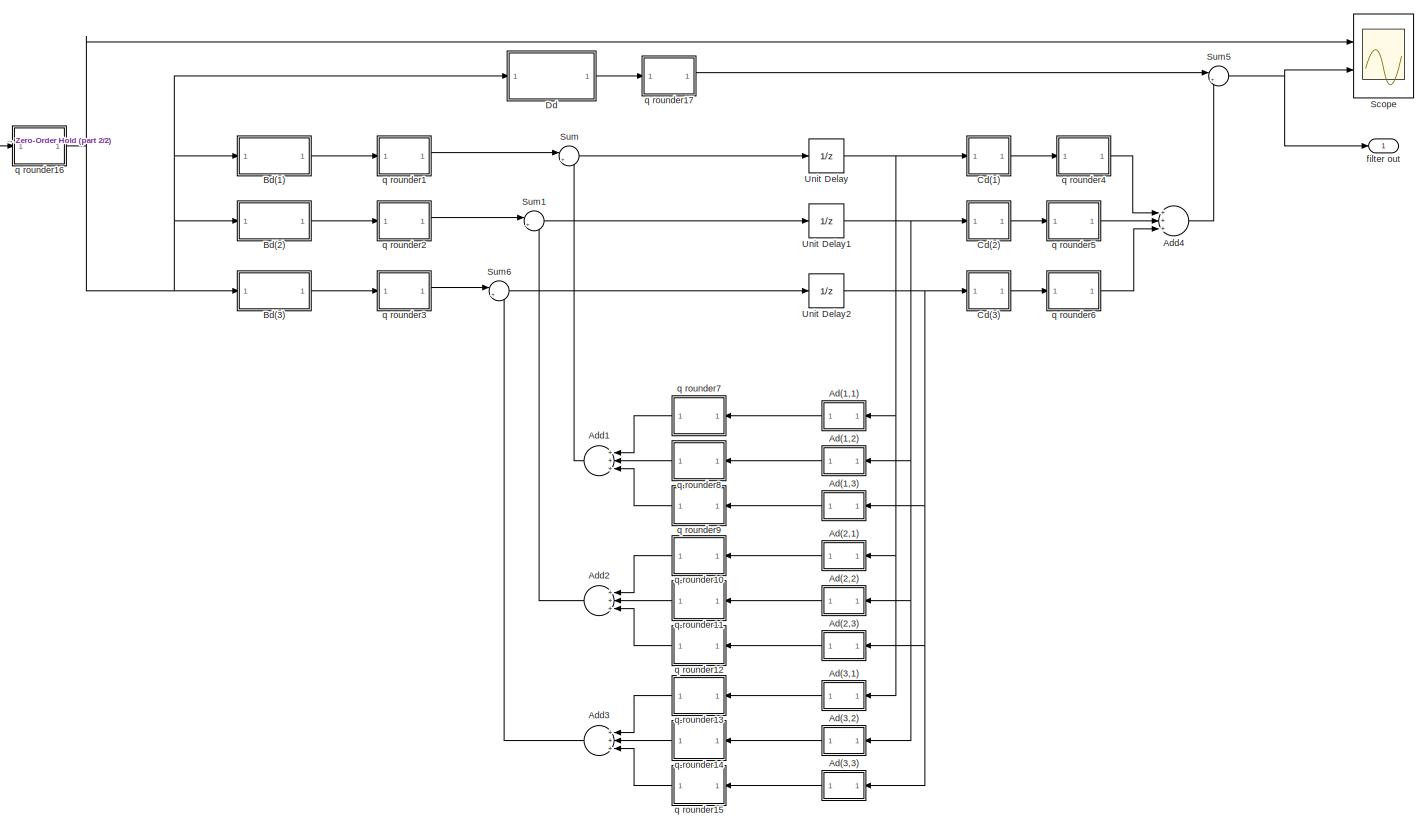
[diagram: Measurements/Power and angle calculations/discrete low pass filter2 - part 1/2, most of the canvas]
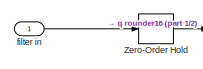
[diagram: Measurements/Power and angle calculations/discrete low pass filter2 - part 2/2, top left region]
BLOCK [SubSystem] Measurements/Power and angle calculations/discrete low pass filter2
  FunctionWithSeparateData = off
  MaskHideContents = off
  MinAlgLoopOccurrences = off
  Opaque = off
  Ports = [1, 1]
  PropExecContextOutsideSubsystem = off
  RTWSystemCode = Auto
  RequestExecContextInheritance = off
BLOCK [SubSystem] Measurements/Power and angle calculations/discrete low pass filter2/Ad(1,1)
  FunctionWithSeparateData = off
  MaskHideContents = off
  MinAlgLoopOccurrences = off
  Opaque = off
  Ports = [1, 1]
  PropExecContextOutsideSubsystem = off
  RTWSystemCode = Auto
  RequestExecContextInheritance = off
BLOCK [Constant] Measurements/Power and angle calculations/discrete low pass filter2/Ad(1,1)/Constant1
  Value = variable
BLOCK [Product] Measurements/Power and angle calculations/discrete low pass filter2/Ad(1,1)/Product1
  InputSameDT = off
  OutDataTypeStr = Inherit: Inherit via internal rule
  Ports = [2, 1]
  RndMeth = Floor
  SaturateOnIntegerOverflow = off
BLOCK [Inport] Measurements/Power and angle calculations/discrete low pass filter2/Ad(1,1)/in
  IconDisplay = Port number
BLOCK [Outport] Measurements/Power and angle calculations/discrete low pass filter2/Ad(1,1)/out
  IconDisplay = Port number
BLOCK [SubSystem] Measurements/Power and angle calculations/discrete low pass filter2/Ad(1,1)/q rounder16
  FunctionWithSeparateData = off
  MaskHideContents = off
  MinAlgLoopOccurrences = off
  Opaque = off
  Ports = [1, 1]
  PropExecContextOutsideSubsystem = off
  RTWSystemCode = Auto
  RequestExecContextInheritance = off
BLOCK [Gain] Measurements/Power and angle calculations/discrete low pass filter2/Ad(1,1)/q rounder16/Gain9
  Gain = 2^-q
  OutDataTypeStr = Inherit: Inherit via internal rule
  ParamDataTypeStr = Inherit: Inherit via internal rule
  SaturateOnIntegerOverflow = off
BLOCK [Reference] Measurements/Power and angle calculations/discrete low pass filter2/Ad(1,1)/q rounder16/Idealized ADC quantizer  REF=simulink_extras/Additional
Discrete/Idealized ADC quantizer
  AttributesFormatString = (settings: %<NumberOfConverterBits>-bit converter\nVmin: %<Vmin>, Vmax: %<Vmax>)
  NumberOfConverterBits = 32
  OutputDataType = double
  OutputNegativeValues = on
  Ports = [1, 1]
  SourceBlock = simulink_extras/Additional\nDiscrete/Idealized ADC quantizer
  SourceType = IdealADC
  Vmax = range
  Vmin = -range
BLOCK [Inport] Measurements/Power and angle calculations/discrete low pass filter2/Ad(1,1)/q rounder16/in
  IconDisplay = Port number
BLOCK [Outport] Measurements/Power and angle calculations/discrete low pass filter2/Ad(1,1)/q rounder16/out
  IconDisplay = Port number
BLOCK [SubSystem] Measurements/Power and angle calculations/discrete low pass filter2/Ad(1,2)
  FunctionWithSeparateData = off
  MaskHideContents = off
  MinAlgLoopOccurrences = off
  Opaque = off
  Ports = [1, 1]
  PropExecContextOutsideSubsystem = off
  RTWSystemCode = Auto
  RequestExecContextInheritance = off
BLOCK [Constant] Measurements/Power and angle calculations/discrete low pass filter2/Ad(1,2)/Constant1
  Value = variable
BLOCK [Product] Measurements/Power and angle calculations/discrete low pass filter2/Ad(1,2)/Product1
  InputSameDT = off
  OutDataTypeStr = Inherit: Inherit via internal rule
  Ports = [2, 1]
  RndMeth = Floor
  SaturateOnIntegerOverflow = off
BLOCK [Inport] Measurements/Power and angle calculations/discrete low pass filter2/Ad(1,2)/in
  IconDisplay = Port number
BLOCK [Outport] Measurements/Power and angle calculations/discrete low pass filter2/Ad(1,2)/out
  IconDisplay = Port number
BLOCK [SubSystem] Measurements/Power and angle calculations/discrete low pass filter2/Ad(1,2)/q rounder16
  FunctionWithSeparateData = off
  MaskHideContents = off
  MinAlgLoopOccurrences = off
  Opaque = off
  Ports = [1, 1]
  PropExecContextOutsideSubsystem = off
  RTWSystemCode = Auto
  RequestExecContextInheritance = off
BLOCK [Gain] Measurements/Power and angle calculations/discrete low pass filter2/Ad(1,2)/q rounder16/Gain9
  Gain = 2^-q
  OutDataTypeStr = Inherit: Inherit via internal rule
  ParamDataTypeStr = Inherit: Inherit via internal rule
  SaturateOnIntegerOverflow = off
BLOCK [Reference] Measurements/Power and angle calculations/discrete low pass filter2/Ad(1,2)/q rounder16/Idealized ADC quantizer  REF=simulink_extras/Additional
Discrete/Idealized ADC quantizer
  AttributesFormatString = (settings: %<NumberOfConverterBits>-bit converter\nVmin: %<Vmin>, Vmax: %<Vmax>)
  NumberOfConverterBits = 32
  OutputDataType = double
  OutputNegativeValues = on
  Ports = [1, 1]
  SourceBlock = simulink_extras/Additional\nDiscrete/Idealized ADC quantizer
  SourceType = IdealADC
  Vmax = range
  Vmin = -range
BLOCK [Inport] Measurements/Power and angle calculations/discrete low pass filter2/Ad(1,2)/q rounder16/in
  IconDisplay = Port number
BLOCK [Outport] Measurements/Power and angle calculations/discrete low pass filter2/Ad(1,2)/q rounder16/out
  IconDisplay = Port number
BLOCK [SubSystem] Measurements/Power and angle calculations/discrete low pass filter2/Ad(1,3)
  FunctionWithSeparateData = off
  MaskHideContents = off
  MinAlgLoopOccurrences = off
  Opaque = off
  Ports = [1, 1]
  PropExecContextOutsideSubsystem = off
  RTWSystemCode = Auto
  RequestExecContextInheritance = off
BLOCK [Constant] Measurements/Power and angle calculations/discrete low pass filter2/Ad(1,3)/Constant1
  Value = variable
BLOCK [Product] Measurements/Power and angle calculations/discrete low pass filter2/Ad(1,3)/Product1
  InputSameDT = off
  OutDataTypeStr = Inherit: Inherit via internal rule
  Ports = [2, 1]
  RndMeth = Floor
  SaturateOnIntegerOverflow = off
BLOCK [Scope] Measurements/Power and angle calculations/discrete low pass filter2/Ad(1,3)/Scope1
  DataFormat = StructureWithTime
  Floating = off
  LimitDataPoints = off
  NumInputPorts = 2
  Ports = [2]
  SampleTime = 0
  SaveName = ScopeData1
  ShowLegends = off
  YMax = 5~5
  YMin = -5~-5
  ZoomMode = yonly
BLOCK [Inport] Measurements/Power and angle calculations/discrete low pass filter2/Ad(1,3)/in
  IconDisplay = Port number
BLOCK [Outport] Measurements/Power and angle calculations/discrete low pass filter2/Ad(1,3)/out
  IconDisplay = Port number
BLOCK [SubSystem] Measurements/Power and angle calculations/discrete low pass filter2/Ad(1,3)/q rounder16
  FunctionWithSeparateData = off
  MaskHideContents = off
  MinAlgLoopOccurrences = off
  Opaque = off
  Ports = [1, 1]
  PropExecContextOutsideSubsystem = off
  RTWSystemCode = Auto
  RequestExecContextInheritance = off
BLOCK [Gain] Measurements/Power and angle calculations/discrete low pass filter2/Ad(1,3)/q rounder16/Gain9
  Gain = 2^-q
  OutDataTypeStr = Inherit: Inherit via internal rule
  ParamDataTypeStr = Inherit: Inherit via internal rule
  SaturateOnIntegerOverflow = off
BLOCK [Reference] Measurements/Power and angle calculations/discrete low pass filter2/Ad(1,3)/q rounder16/Idealized ADC quantizer  REF=simulink_extras/Additional
Discrete/Idealized ADC quantizer
  AttributesFormatString = (settings: %<NumberOfConverterBits>-bit converter\nVmin: %<Vmin>, Vmax: %<Vmax>)
  NumberOfConverterBits = 32
  OutputDataType = double
  OutputNegativeValues = on
  Ports = [1, 1]
  SourceBlock = simulink_extras/Additional\nDiscrete/Idealized ADC quantizer
  SourceType = IdealADC
  Vmax = range
  Vmin = -range
BLOCK [Inport] Measurements/Power and angle calculations/discrete low pass filter2/Ad(1,3)/q rounder16/in
  IconDisplay = Port number
BLOCK [Outport] Measurements/Power and angle calculations/discrete low pass filter2/Ad(1,3)/q rounder16/out
  IconDisplay = Port number
BLOCK [SubSystem] Measurements/Power and angle calculations/discrete low pass filter2/Ad(2,1)
  FunctionWithSeparateData = off
  MaskHideContents = off
  MinAlgLoopOccurrences = off
  Opaque = off
  Ports = [1, 1]
  PropExecContextOutsideSubsystem = off
  RTWSystemCode = Auto
  RequestExecContextInheritance = off
BLOCK [Constant] Measurements/Power and angle calculations/discrete low pass filter2/Ad(2,1)/Constant1
  Value = variable
BLOCK [Product] Measurements/Power and angle calculations/discrete low pass filter2/Ad(2,1)/Product1
  InputSameDT = off
  OutDataTypeStr = Inherit: Inherit via internal rule
  Ports = [2, 1]
  RndMeth = Floor
  SaturateOnIntegerOverflow = off
BLOCK [Scope] Measurements/Power and angle calculations/discrete low pass filter2/Ad(2,1)/Scope1
  DataFormat = StructureWithTime
  Floating = off
  LimitDataPoints = off
  NumInputPorts = 2
  Ports = [2]
  SampleTime = 0
  SaveName = ScopeData1
  ShowLegends = off
  YMax = 5~5
  YMin = -5~-5
  ZoomMode = yonly
BLOCK [Inport] Measurements/Power and angle calculations/discrete low pass filter2/Ad(2,1)/in
  IconDisplay = Port number
BLOCK [Outport] Measurements/Power and angle calculations/discrete low pass filter2/Ad(2,1)/out
  IconDisplay = Port number
BLOCK [SubSystem] Measurements/Power and angle calculations/discrete low pass filter2/Ad(2,1)/q rounder16
  FunctionWithSeparateData = off
  MaskHideContents = off
  MinAlgLoopOccurrences = off
  Opaque = off
  Ports = [1, 1]
  PropExecContextOutsideSubsystem = off
  RTWSystemCode = Auto
  RequestExecContextInheritance = off
BLOCK [Gain] Measurements/Power and angle calculations/discrete low pass filter2/Ad(2,1)/q rounder16/Gain9
  Gain = 2^-q
  OutDataTypeStr = Inherit: Inherit via internal rule
  ParamDataTypeStr = Inherit: Inherit via internal rule
  SaturateOnIntegerOverflow = off
BLOCK [Reference] Measurements/Power and angle calculations/discrete low pass filter2/Ad(2,1)/q rounder16/Idealized ADC quantizer  REF=simulink_extras/Additional
Discrete/Idealized ADC quantizer
  AttributesFormatString = (settings: %<NumberOfConverterBits>-bit converter\nVmin: %<Vmin>, Vmax: %<Vmax>)
  NumberOfConverterBits = 32
  OutputDataType = double
  OutputNegativeValues = on
  Ports = [1, 1]
  SourceBlock = simulink_extras/Additional\nDiscrete/Idealized ADC quantizer
  SourceType = IdealADC
  Vmax = range
  Vmin = -range
BLOCK [Inport] Measurements/Power and angle calculations/discrete low pass filter2/Ad(2,1)/q rounder16/in
  IconDisplay = Port number
BLOCK [Outport] Measurements/Power and angle calculations/discrete low pass filter2/Ad(2,1)/q rounder16/out
  IconDisplay = Port number
BLOCK [SubSystem] Measurements/Power and angle calculations/discrete low pass filter2/Ad(2,2)
  FunctionWithSeparateData = off
  MaskHideContents = off
  MinAlgLoopOccurrences = off
  Opaque = off
  Ports = [1, 1]
  PropExecContextOutsideSubsystem = off
  RTWSystemCode = Auto
  RequestExecContextInheritance = off
BLOCK [Constant] Measurements/Power and angle calculations/discrete low pass filter2/Ad(2,2)/Constant1
  Value = variable
BLOCK [Product] Measurements/Power and angle calculations/discrete low pass filter2/Ad(2,2)/Product1
  InputSameDT = off
  OutDataTypeStr = Inherit: Inherit via internal rule
  Ports = [2, 1]
  RndMeth = Floor
  SaturateOnIntegerOverflow = off
BLOCK [Scope] Measurements/Power and angle calculations/discrete low pass filter2/Ad(2,2)/Scope1
  DataFormat = StructureWithTime
  Floating = off
  LimitDataPoints = off
  NumInputPorts = 2
  Ports = [2]
  SampleTime = 0
  SaveName = ScopeData1
  ShowLegends = off
  YMax = 5~5
  YMin = -5~-5
  ZoomMode = yonly
BLOCK [Inport] Measurements/Power and angle calculations/discrete low pass filter2/Ad(2,2)/in
  IconDisplay = Port number
BLOCK [Outport] Measurements/Power and angle calculations/discrete low pass filter2/Ad(2,2)/out
  IconDisplay = Port number
BLOCK [SubSystem] Measurements/Power and angle calculations/discrete low pass filter2/Ad(2,2)/q rounder16
  FunctionWithSeparateData = off
  MaskHideContents = off
  MinAlgLoopOccurrences = off
  Opaque = off
  Ports = [1, 1]
  PropExecContextOutsideSubsystem = off
  RTWSystemCode = Auto
  RequestExecContextInheritance = off
BLOCK [Gain] Measurements/Power and angle calculations/discrete low pass filter2/Ad(2,2)/q rounder16/Gain9
  Gain = 2^-q
  OutDataTypeStr = Inherit: Inherit via internal rule
  ParamDataTypeStr = Inherit: Inherit via internal rule
  SaturateOnIntegerOverflow = off
BLOCK [Reference] Measurements/Power and angle calculations/discrete low pass filter2/Ad(2,2)/q rounder16/Idealized ADC quantizer  REF=simulink_extras/Additional
Discrete/Idealized ADC quantizer
  AttributesFormatString = (settings: %<NumberOfConverterBits>-bit converter\nVmin: %<Vmin>, Vmax: %<Vmax>)
  NumberOfConverterBits = 32
  OutputDataType = double
  OutputNegativeValues = on
  Ports = [1, 1]
  SourceBlock = simulink_extras/Additional\nDiscrete/Idealized ADC quantizer
  SourceType = IdealADC
  Vmax = range
  Vmin = -range
BLOCK [Inport] Measurements/Power and angle calculations/discrete low pass filter2/Ad(2,2)/q rounder16/in
  IconDisplay = Port number
BLOCK [Outport] Measurements/Power and angle calculations/discrete low pass filter2/Ad(2,2)/q rounder16/out
  IconDisplay = Port number
BLOCK [SubSystem] Measurements/Power and angle calculations/discrete low pass filter2/Ad(2,3)
  FunctionWithSeparateData = off
  MaskHideContents = off
  MinAlgLoopOccurrences = off
  Opaque = off
  Ports = [1, 1]
  PropExecContextOutsideSubsystem = off
  RTWSystemCode = Auto
  RequestExecContextInheritance = off
BLOCK [Constant] Measurements/Power and angle calculations/discrete low pass filter2/Ad(2,3)/Constant1
  Value = variable
BLOCK [Product] Measurements/Power and angle calculations/discrete low pass filter2/Ad(2,3)/Product1
  InputSameDT = off
  OutDataTypeStr = Inherit: Inherit via internal rule
  Ports = [2, 1]
  RndMeth = Floor
  SaturateOnIntegerOverflow = off
BLOCK [Scope] Measurements/Power and angle calculations/discrete low pass filter2/Ad(2,3)/Scope1
  DataFormat = StructureWithTime
  Floating = off
  LimitDataPoints = off
  NumInputPorts = 2
  Ports = [2]
  SampleTime = 0
  SaveName = ScopeData1
  ShowLegends = off
  YMax = 5~5
  YMin = -5~-5
  ZoomMode = yonly
BLOCK [Inport] Measurements/Power and angle calculations/discrete low pass filter2/Ad(2,3)/in
  IconDisplay = Port number
BLOCK [Outport] Measurements/Power and angle calculations/discrete low pass filter2/Ad(2,3)/out
  IconDisplay = Port number
BLOCK [SubSystem] Measurements/Power and angle calculations/discrete low pass filter2/Ad(2,3)/q rounder16
  FunctionWithSeparateData = off
  MaskHideContents = off
  MinAlgLoopOccurrences = off
  Opaque = off
  Ports = [1, 1]
  PropExecContextOutsideSubsystem = off
  RTWSystemCode = Auto
  RequestExecContextInheritance = off
BLOCK [Gain] Measurements/Power and angle calculations/discrete low pass filter2/Ad(2,3)/q rounder16/Gain9
  Gain = 2^-q
  OutDataTypeStr = Inherit: Inherit via internal rule
  ParamDataTypeStr = Inherit: Inherit via internal rule
  SaturateOnIntegerOverflow = off
BLOCK [Reference] Measurements/Power and angle calculations/discrete low pass filter2/Ad(2,3)/q rounder16/Idealized ADC quantizer  REF=simulink_extras/Additional
Discrete/Idealized ADC quantizer
  AttributesFormatString = (settings: %<NumberOfConverterBits>-bit converter\nVmin: %<Vmin>, Vmax: %<Vmax>)
  NumberOfConverterBits = 32
  OutputDataType = double
  OutputNegativeValues = on
  Ports = [1, 1]
  SourceBlock = simulink_extras/Additional\nDiscrete/Idealized ADC quantizer
  SourceType = IdealADC
  Vmax = range
  Vmin = -range
BLOCK [Inport] Measurements/Power and angle calculations/discrete low pass filter2/Ad(2,3)/q rounder16/in
  IconDisplay = Port number
BLOCK [Outport] Measurements/Power and angle calculations/discrete low pass filter2/Ad(2,3)/q rounder16/out
  IconDisplay = Port number
BLOCK [SubSystem] Measurements/Power and angle calculations/discrete low pass filter2/Ad(3,1)
  FunctionWithSeparateData = off
  MaskHideContents = off
  MinAlgLoopOccurrences = off
  Opaque = off
  Ports = [1, 1]
  PropExecContextOutsideSubsystem = off
  RTWSystemCode = Auto
  RequestExecContextInheritance = off
BLOCK [Constant] Measurements/Power and angle calculations/discrete low pass filter2/Ad(3,1)/Constant1
  Value = variable
BLOCK [Product] Measurements/Power and angle calculations/discrete low pass filter2/Ad(3,1)/Product1
  InputSameDT = off
  OutDataTypeStr = Inherit: Inherit via internal rule
  Ports = [2, 1]
  RndMeth = Floor
  SaturateOnIntegerOverflow = off
BLOCK [Scope] Measurements/Power and angle calculations/discrete low pass filter2/Ad(3,1)/Scope1
  DataFormat = StructureWithTime
  Floating = off
  LimitDataPoints = off
  NumInputPorts = 2
  Ports = [2]
  SampleTime = 0
  SaveName = ScopeData1
  ShowLegends = off
  YMax = 5~5
  YMin = -5~-5
  ZoomMode = yonly
BLOCK [Inport] Measurements/Power and angle calculations/discrete low pass filter2/Ad(3,1)/in
  IconDisplay = Port number
BLOCK [Outport] Measurements/Power and angle calculations/discrete low pass filter2/Ad(3,1)/out
  IconDisplay = Port number
BLOCK [SubSystem] Measurements/Power and angle calculations/discrete low pass filter2/Ad(3,1)/q rounder16
  FunctionWithSeparateData = off
  MaskHideContents = off
  MinAlgLoopOccurrences = off
  Opaque = off
  Ports = [1, 1]
  PropExecContextOutsideSubsystem = off
  RTWSystemCode = Auto
  RequestExecContextInheritance = off
BLOCK [Gain] Measurements/Power and angle calculations/discrete low pass filter2/Ad(3,1)/q rounder16/Gain9
  Gain = 2^-q
  OutDataTypeStr = Inherit: Inherit via internal rule
  ParamDataTypeStr = Inherit: Inherit via internal rule
  SaturateOnIntegerOverflow = off
BLOCK [Reference] Measurements/Power and angle calculations/discrete low pass filter2/Ad(3,1)/q rounder16/Idealized ADC quantizer  REF=simulink_extras/Additional
Discrete/Idealized ADC quantizer
  AttributesFormatString = (settings: %<NumberOfConverterBits>-bit converter\nVmin: %<Vmin>, Vmax: %<Vmax>)
  NumberOfConverterBits = 32
  OutputDataType = double
  OutputNegativeValues = on
  Ports = [1, 1]
  SourceBlock = simulink_extras/Additional\nDiscrete/Idealized ADC quantizer
  SourceType = IdealADC
  Vmax = range
  Vmin = -range
BLOCK [Inport] Measurements/Power and angle calculations/discrete low pass filter2/Ad(3,1)/q rounder16/in
  IconDisplay = Port number
BLOCK [Outport] Measurements/Power and angle calculations/discrete low pass filter2/Ad(3,1)/q rounder16/out
  IconDisplay = Port number
BLOCK [SubSystem] Measurements/Power and angle calculations/discrete low pass filter2/Ad(3,2)
  FunctionWithSeparateData = off
  MaskHideContents = off
  MinAlgLoopOccurrences = off
  Opaque = off
  Ports = [1, 1]
  PropExecContextOutsideSubsystem = off
  RTWSystemCode = Auto
  RequestExecContextInheritance = off
BLOCK [Constant] Measurements/Power and angle calculations/discrete low pass filter2/Ad(3,2)/Constant1
  Value = variable
BLOCK [Product] Measurements/Power and angle calculations/discrete low pass filter2/Ad(3,2)/Product1
  InputSameDT = off
  OutDataTypeStr = Inherit: Inherit via internal rule
  Ports = [2, 1]
  RndMeth = Floor
  SaturateOnIntegerOverflow = off
BLOCK [Scope] Measurements/Power and angle calculations/discrete low pass filter2/Ad(3,2)/Scope1
  DataFormat = StructureWithTime
  Floating = off
  LimitDataPoints = off
  NumInputPorts = 2
  Ports = [2]
  SampleTime = 0
  SaveName = ScopeData1
  ShowLegends = off
  YMax = 5~5
  YMin = -5~-5
  ZoomMode = yonly
BLOCK [Inport] Measurements/Power and angle calculations/discrete low pass filter2/Ad(3,2)/in
  IconDisplay = Port number
BLOCK [Outport] Measurements/Power and angle calculations/discrete low pass filter2/Ad(3,2)/out
  IconDisplay = Port number
BLOCK [SubSystem] Measurements/Power and angle calculations/discrete low pass filter2/Ad(3,2)/q rounder16
  FunctionWithSeparateData = off
  MaskHideContents = off
  MinAlgLoopOccurrences = off
  Opaque = off
  Ports = [1, 1]
  PropExecContextOutsideSubsystem = off
  RTWSystemCode = Auto
  RequestExecContextInheritance = off
BLOCK [Gain] Measurements/Power and angle calculations/discrete low pass filter2/Ad(3,2)/q rounder16/Gain9
  Gain = 2^-q
  OutDataTypeStr = Inherit: Inherit via internal rule
  ParamDataTypeStr = Inherit: Inherit via internal rule
  SaturateOnIntegerOverflow = off
BLOCK [Reference] Measurements/Power and angle calculations/discrete low pass filter2/Ad(3,2)/q rounder16/Idealized ADC quantizer  REF=simulink_extras/Additional
Discrete/Idealized ADC quantizer
  AttributesFormatString = (settings: %<NumberOfConverterBits>-bit converter\nVmin: %<Vmin>, Vmax: %<Vmax>)
  NumberOfConverterBits = 32
  OutputDataType = double
  OutputNegativeValues = on
  Ports = [1, 1]
  SourceBlock = simulink_extras/Additional\nDiscrete/Idealized ADC quantizer
  SourceType = IdealADC
  Vmax = range
  Vmin = -range
BLOCK [Inport] Measurements/Power and angle calculations/discrete low pass filter2/Ad(3,2)/q rounder16/in
  IconDisplay = Port number
BLOCK [Outport] Measurements/Power and angle calculations/discrete low pass filter2/Ad(3,2)/q rounder16/out
  IconDisplay = Port number
BLOCK [SubSystem] Measurements/Power and angle calculations/discrete low pass filter2/Ad(3,3)
  FunctionWithSeparateData = off
  MaskHideContents = off
  MinAlgLoopOccurrences = off
  Opaque = off
  Ports = [1, 1]
  PropExecContextOutsideSubsystem = off
  RTWSystemCode = Auto
  RequestExecContextInheritance = off
BLOCK [Constant] Measurements/Power and angle calculations/discrete low pass filter2/Ad(3,3)/Constant1
  Value = variable
BLOCK [Product] Measurements/Power and angle calculations/discrete low pass filter2/Ad(3,3)/Product1
  InputSameDT = off
  OutDataTypeStr = Inherit: Inherit via internal rule
  Ports = [2, 1]
  RndMeth = Floor
  SaturateOnIntegerOverflow = off
BLOCK [Scope] Measurements/Power and angle calculations/discrete low pass filter2/Ad(3,3)/Scope1
  DataFormat = StructureWithTime
  Floating = off
  LimitDataPoints = off
  NumInputPorts = 2
  Ports = [2]
  SampleTime = 0
  SaveName = ScopeData1
  ShowLegends = off
  YMax = 5~5
  YMin = -5~-5
  ZoomMode = yonly
BLOCK [Inport] Measurements/Power and angle calculations/discrete low pass filter2/Ad(3,3)/in
  IconDisplay = Port number
BLOCK [Outport] Measurements/Power and angle calculations/discrete low pass filter2/Ad(3,3)/out
  IconDisplay = Port number
BLOCK [SubSystem] Measurements/Power and angle calculations/discrete low pass filter2/Ad(3,3)/q rounder16
  FunctionWithSeparateData = off
  MaskHideContents = off
  MinAlgLoopOccurrences = off
  Opaque = off
  Ports = [1, 1]
  PropExecContextOutsideSubsystem = off
  RTWSystemCode = Auto
  RequestExecContextInheritance = off
BLOCK [Gain] Measurements/Power and angle calculations/discrete low pass filter2/Ad(3,3)/q rounder16/Gain9
  Gain = 2^-q
  OutDataTypeStr = Inherit: Inherit via internal rule
  ParamDataTypeStr = Inherit: Inherit via internal rule
  SaturateOnIntegerOverflow = off
BLOCK [Reference] Measurements/Power and angle calculations/discrete low pass filter2/Ad(3,3)/q rounder16/Idealized ADC quantizer  REF=simulink_extras/Additional
Discrete/Idealized ADC quantizer
  AttributesFormatString = (settings: %<NumberOfConverterBits>-bit converter\nVmin: %<Vmin>, Vmax: %<Vmax>)
  NumberOfConverterBits = 32
  OutputDataType = double
  OutputNegativeValues = on
  Ports = [1, 1]
  SourceBlock = simulink_extras/Additional\nDiscrete/Idealized ADC quantizer
  SourceType = IdealADC
  Vmax = range
  Vmin = -range
BLOCK [Inport] Measurements/Power and angle calculations/discrete low pass filter2/Ad(3,3)/q rounder16/in
  IconDisplay = Port number
BLOCK [Outport] Measurements/Power and angle calculations/discrete low pass filter2/Ad(3,3)/q rounder16/out
  IconDisplay = Port number
BLOCK [Sum] Measurements/Power and angle calculations/discrete low pass filter2/Add1
  InputSameDT = off
  Inputs = +++
  OutDataTypeStr = Inherit: Inherit via internal rule
  Ports = [3, 1]
  SaturateOnIntegerOverflow = off
BLOCK [Sum] Measurements/Power and angle calculations/discrete low pass filter2/Add2
  InputSameDT = off
  Inputs = +++
  OutDataTypeStr = Inherit: Inherit via internal rule
  Ports = [3, 1]
  SaturateOnIntegerOverflow = off
BLOCK [Sum] Measurements/Power and angle calculations/discrete low pass filter2/Add3
  InputSameDT = off
  Inputs = +++
  OutDataTypeStr = Inherit: Inherit via internal rule
  Ports = [3, 1]
  SaturateOnIntegerOverflow = off
BLOCK [Sum] Measurements/Power and angle calculations/discrete low pass filter2/Add4
  InputSameDT = off
  Inputs = +++
  OutDataTypeStr = Inherit: Inherit via internal rule
  Ports = [3, 1]
  SaturateOnIntegerOverflow = off
BLOCK [SubSystem] Measurements/Power and angle calculations/discrete low pass filter2/Bd(1)
  FunctionWithSeparateData = off
  MaskHideContents = off
  MinAlgLoopOccurrences = off
  Opaque = off
  Ports = [1, 1]
  PropExecContextOutsideSubsystem = off
  RTWSystemCode = Auto
  RequestExecContextInheritance = off
BLOCK [Constant] Measurements/Power and angle calculations/discrete low pass filter2/Bd(1)/Constant1
  Value = variable
BLOCK [Product] Measurements/Power and angle calculations/discrete low pass filter2/Bd(1)/Product1
  InputSameDT = off
  OutDataTypeStr = Inherit: Inherit via internal rule
  Ports = [2, 1]
  RndMeth = Floor
  SaturateOnIntegerOverflow = off
BLOCK [Inport] Measurements/Power and angle calculations/discrete low pass filter2/Bd(1)/in
  IconDisplay = Port number
BLOCK [Outport] Measurements/Power and angle calculations/discrete low pass filter2/Bd(1)/out
  IconDisplay = Port number
BLOCK [SubSystem] Measurements/Power and angle calculations/discrete low pass filter2/Bd(1)/q rounder16
  FunctionWithSeparateData = off
  MaskHideContents = off
  MinAlgLoopOccurrences = off
  Opaque = off
  Ports = [1, 1]
  PropExecContextOutsideSubsystem = off
  RTWSystemCode = Auto
  RequestExecContextInheritance = off
BLOCK [Gain] Measurements/Power and angle calculations/discrete low pass filter2/Bd(1)/q rounder16/Gain9
  Gain = 2^-q
  OutDataTypeStr = Inherit: Inherit via internal rule
  ParamDataTypeStr = Inherit: Inherit via internal rule
  SaturateOnIntegerOverflow = off
BLOCK [Reference] Measurements/Power and angle calculations/discrete low pass filter2/Bd(1)/q rounder16/Idealized ADC quantizer  REF=simulink_extras/Additional
Discrete/Idealized ADC quantizer
  AttributesFormatString = (settings: %<NumberOfConverterBits>-bit converter\nVmin: %<Vmin>, Vmax: %<Vmax>)
  NumberOfConverterBits = 32
  OutputDataType = double
  OutputNegativeValues = on
  Ports = [1, 1]
  SourceBlock = simulink_extras/Additional\nDiscrete/Idealized ADC quantizer
  SourceType = IdealADC
  Vmax = range
  Vmin = -range
BLOCK [Inport] Measurements/Power and angle calculations/discrete low pass filter2/Bd(1)/q rounder16/in
  IconDisplay = Port number
BLOCK [Outport] Measurements/Power and angle calculations/discrete low pass filter2/Bd(1)/q rounder16/out
  IconDisplay = Port number
BLOCK [SubSystem] Measurements/Power and angle calculations/discrete low pass filter2/Bd(2)
  FunctionWithSeparateData = off
  MaskHideContents = off
  MinAlgLoopOccurrences = off
  Opaque = off
  Ports = [1, 1]
  PropExecContextOutsideSubsystem = off
  RTWSystemCode = Auto
  RequestExecContextInheritance = off
BLOCK [Constant] Measurements/Power and angle calculations/discrete low pass filter2/Bd(2)/Constant1
  Value = variable
BLOCK [Product] Measurements/Power and angle calculations/discrete low pass filter2/Bd(2)/Product1
  InputSameDT = off
  OutDataTypeStr = Inherit: Inherit via internal rule
  Ports = [2, 1]
  RndMeth = Floor
  SaturateOnIntegerOverflow = off
BLOCK [Inport] Measurements/Power and angle calculations/discrete low pass filter2/Bd(2)/in
  IconDisplay = Port number
BLOCK [Outport] Measurements/Power and angle calculations/discrete low pass filter2/Bd(2)/out
  IconDisplay = Port number
BLOCK [SubSystem] Measurements/Power and angle calculations/discrete low pass filter2/Bd(2)/q rounder16
  FunctionWithSeparateData = off
  MaskHideContents = off
  MinAlgLoopOccurrences = off
  Opaque = off
  Ports = [1, 1]
  PropExecContextOutsideSubsystem = off
  RTWSystemCode = Auto
  RequestExecContextInheritance = off
BLOCK [Gain] Measurements/Power and angle calculations/discrete low pass filter2/Bd(2)/q rounder16/Gain9
  Gain = 2^-q
  OutDataTypeStr = Inherit: Inherit via internal rule
  ParamDataTypeStr = Inherit: Inherit via internal rule
  SaturateOnIntegerOverflow = off
BLOCK [Reference] Measurements/Power and angle calculations/discrete low pass filter2/Bd(2)/q rounder16/Idealized ADC quantizer  REF=simulink_extras/Additional
Discrete/Idealized ADC quantizer
  AttributesFormatString = (settings: %<NumberOfConverterBits>-bit converter\nVmin: %<Vmin>, Vmax: %<Vmax>)
  NumberOfConverterBits = 32
  OutputDataType = double
  OutputNegativeValues = on
  Ports = [1, 1]
  SourceBlock = simulink_extras/Additional\nDiscrete/Idealized ADC quantizer
  SourceType = IdealADC
  Vmax = range
  Vmin = -range
BLOCK [Inport] Measurements/Power and angle calculations/discrete low pass filter2/Bd(2)/q rounder16/in
  IconDisplay = Port number
BLOCK [Outport] Measurements/Power and angle calculations/discrete low pass filter2/Bd(2)/q rounder16/out
  IconDisplay = Port number
BLOCK [SubSystem] Measurements/Power and angle calculations/discrete low pass filter2/Bd(3)
  FunctionWithSeparateData = off
  MaskHideContents = off
  MinAlgLoopOccurrences = off
  Opaque = off
  Ports = [1, 1]
  PropExecContextOutsideSubsystem = off
  RTWSystemCode = Auto
  RequestExecContextInheritance = off
BLOCK [Constant] Measurements/Power and angle calculations/discrete low pass filter2/Bd(3)/Constant1
  Value = variable
BLOCK [Product] Measurements/Power and angle calculations/discrete low pass filter2/Bd(3)/Product1
  InputSameDT = off
  OutDataTypeStr = Inherit: Inherit via internal rule
  Ports = [2, 1]
  RndMeth = Floor
  SaturateOnIntegerOverflow = off
BLOCK [Inport] Measurements/Power and angle calculations/discrete low pass filter2/Bd(3)/in
  IconDisplay = Port number
BLOCK [Outport] Measurements/Power and angle calculations/discrete low pass filter2/Bd(3)/out
  IconDisplay = Port number
BLOCK [SubSystem] Measurements/Power and angle calculations/discrete low pass filter2/Bd(3)/q rounder16
  FunctionWithSeparateData = off
  MaskHideContents = off
  MinAlgLoopOccurrences = off
  Opaque = off
  Ports = [1, 1]
  PropExecContextOutsideSubsystem = off
  RTWSystemCode = Auto
  RequestExecContextInheritance = off
BLOCK [Gain] Measurements/Power and angle calculations/discrete low pass filter2/Bd(3)/q rounder16/Gain9
  Gain = 2^-q
  OutDataTypeStr = Inherit: Inherit via internal rule
  ParamDataTypeStr = Inherit: Inherit via internal rule
  SaturateOnIntegerOverflow = off
BLOCK [Reference] Measurements/Power and angle calculations/discrete low pass filter2/Bd(3)/q rounder16/Idealized ADC quantizer  REF=simulink_extras/Additional
Discrete/Idealized ADC quantizer
  AttributesFormatString = (settings: %<NumberOfConverterBits>-bit converter\nVmin: %<Vmin>, Vmax: %<Vmax>)
  NumberOfConverterBits = 32
  OutputDataType = double
  OutputNegativeValues = on
  Ports = [1, 1]
  SourceBlock = simulink_extras/Additional\nDiscrete/Idealized ADC quantizer
  SourceType = IdealADC
  Vmax = range
  Vmin = -range
BLOCK [Inport] Measurements/Power and angle calculations/discrete low pass filter2/Bd(3)/q rounder16/in
  IconDisplay = Port number
BLOCK [Outport] Measurements/Power and angle calculations/discrete low pass filter2/Bd(3)/q rounder16/out
  IconDisplay = Port number
BLOCK [SubSystem] Measurements/Power and angle calculations/discrete low pass filter2/Cd(1)
  FunctionWithSeparateData = off
  MaskHideContents = off
  MinAlgLoopOccurrences = off
  Opaque = off
  Ports = [1, 1]
  PropExecContextOutsideSubsystem = off
  RTWSystemCode = Auto
  RequestExecContextInheritance = off
BLOCK [Constant] Measurements/Power and angle calculations/discrete low pass filter2/Cd(1)/Constant1
  Value = variable
BLOCK [Product] Measurements/Power and angle calculations/discrete low pass filter2/Cd(1)/Product1
  InputSameDT = off
  OutDataTypeStr = Inherit: Inherit via internal rule
  Ports = [2, 1]
  RndMeth = Floor
  SaturateOnIntegerOverflow = off
BLOCK [Inport] Measurements/Power and angle calculations/discrete low pass filter2/Cd(1)/in
  IconDisplay = Port number
BLOCK [Outport] Measurements/Power and angle calculations/discrete low pass filter2/Cd(1)/out
  IconDisplay = Port number
BLOCK [SubSystem] Measurements/Power and angle calculations/discrete low pass filter2/Cd(1)/q rounder16
  FunctionWithSeparateData = off
  MaskHideContents = off
  MinAlgLoopOccurrences = off
  Opaque = off
  Ports = [1, 1]
  PropExecContextOutsideSubsystem = off
  RTWSystemCode = Auto
  RequestExecContextInheritance = off
BLOCK [Gain] Measurements/Power and angle calculations/discrete low pass filter2/Cd(1)/q rounder16/Gain9
  Gain = 2^-q
  OutDataTypeStr = Inherit: Inherit via internal rule
  ParamDataTypeStr = Inherit: Inherit via internal rule
  SaturateOnIntegerOverflow = off
BLOCK [Reference] Measurements/Power and angle calculations/discrete low pass filter2/Cd(1)/q rounder16/Idealized ADC quantizer  REF=simulink_extras/Additional
Discrete/Idealized ADC quantizer
  AttributesFormatString = (settings: %<NumberOfConverterBits>-bit converter\nVmin: %<Vmin>, Vmax: %<Vmax>)
  NumberOfConverterBits = 32
  OutputDataType = double
  OutputNegativeValues = on
  Ports = [1, 1]
  SourceBlock = simulink_extras/Additional\nDiscrete/Idealized ADC quantizer
  SourceType = IdealADC
  Vmax = range
  Vmin = -range
BLOCK [Inport] Measurements/Power and angle calculations/discrete low pass filter2/Cd(1)/q rounder16/in
  IconDisplay = Port number
BLOCK [Outport] Measurements/Power and angle calculations/discrete low pass filter2/Cd(1)/q rounder16/out
  IconDisplay = Port number
BLOCK [SubSystem] Measurements/Power and angle calculations/discrete low pass filter2/Cd(2)
  FunctionWithSeparateData = off
  MaskHideContents = off
  MinAlgLoopOccurrences = off
  Opaque = off
  Ports = [1, 1]
  PropExecContextOutsideSubsystem = off
  RTWSystemCode = Auto
  RequestExecContextInheritance = off
BLOCK [Constant] Measurements/Power and angle calculations/discrete low pass filter2/Cd(2)/Constant1
  Value = variable
BLOCK [Product] Measurements/Power and angle calculations/discrete low pass filter2/Cd(2)/Product1
  InputSameDT = off
  OutDataTypeStr = Inherit: Inherit via internal rule
  Ports = [2, 1]
  RndMeth = Floor
  SaturateOnIntegerOverflow = off
BLOCK [Inport] Measurements/Power and angle calculations/discrete low pass filter2/Cd(2)/in
  IconDisplay = Port number
BLOCK [Outport] Measurements/Power and angle calculations/discrete low pass filter2/Cd(2)/out
  IconDisplay = Port number
BLOCK [SubSystem] Measurements/Power and angle calculations/discrete low pass filter2/Cd(2)/q rounder16
  FunctionWithSeparateData = off
  MaskHideContents = off
  MinAlgLoopOccurrences = off
  Opaque = off
  Ports = [1, 1]
  PropExecContextOutsideSubsystem = off
  RTWSystemCode = Auto
  RequestExecContextInheritance = off
BLOCK [Gain] Measurements/Power and angle calculations/discrete low pass filter2/Cd(2)/q rounder16/Gain9
  Gain = 2^-q
  OutDataTypeStr = Inherit: Inherit via internal rule
  ParamDataTypeStr = Inherit: Inherit via internal rule
  SaturateOnIntegerOverflow = off
BLOCK [Reference] Measurements/Power and angle calculations/discrete low pass filter2/Cd(2)/q rounder16/Idealized ADC quantizer  REF=simulink_extras/Additional
Discrete/Idealized ADC quantizer
  AttributesFormatString = (settings: %<NumberOfConverterBits>-bit converter\nVmin: %<Vmin>, Vmax: %<Vmax>)
  NumberOfConverterBits = 32
  OutputDataType = double
  OutputNegativeValues = on
  Ports = [1, 1]
  SourceBlock = simulink_extras/Additional\nDiscrete/Idealized ADC quantizer
  SourceType = IdealADC
  Vmax = range
  Vmin = -range
BLOCK [Inport] Measurements/Power and angle calculations/discrete low pass filter2/Cd(2)/q rounder16/in
  IconDisplay = Port number
BLOCK [Outport] Measurements/Power and angle calculations/discrete low pass filter2/Cd(2)/q rounder16/out
  IconDisplay = Port number
BLOCK [SubSystem] Measurements/Power and angle calculations/discrete low pass filter2/Cd(3)
  FunctionWithSeparateData = off
  MaskHideContents = off
  MinAlgLoopOccurrences = off
  Opaque = off
  Ports = [1, 1]
  PropExecContextOutsideSubsystem = off
  RTWSystemCode = Auto
  RequestExecContextInheritance = off
BLOCK [Constant] Measurements/Power and angle calculations/discrete low pass filter2/Cd(3)/Constant1
  Value = variable
BLOCK [Product] Measurements/Power and angle calculations/discrete low pass filter2/Cd(3)/Product1
  InputSameDT = off
  OutDataTypeStr = Inherit: Inherit via internal rule
  Ports = [2, 1]
  RndMeth = Floor
  SaturateOnIntegerOverflow = off
BLOCK [Inport] Measurements/Power and angle calculations/discrete low pass filter2/Cd(3)/in
  IconDisplay = Port number
BLOCK [Outport] Measurements/Power and angle calculations/discrete low pass filter2/Cd(3)/out
  IconDisplay = Port number
BLOCK [SubSystem] Measurements/Power and angle calculations/discrete low pass filter2/Cd(3)/q rounder16
  FunctionWithSeparateData = off
  MaskHideContents = off
  MinAlgLoopOccurrences = off
  Opaque = off
  Ports = [1, 1]
  PropExecContextOutsideSubsystem = off
  RTWSystemCode = Auto
  RequestExecContextInheritance = off
BLOCK [Gain] Measurements/Power and angle calculations/discrete low pass filter2/Cd(3)/q rounder16/Gain9
  Gain = 2^-q
  OutDataTypeStr = Inherit: Inherit via internal rule
  ParamDataTypeStr = Inherit: Inherit via internal rule
  SaturateOnIntegerOverflow = off
BLOCK [Reference] Measurements/Power and angle calculations/discrete low pass filter2/Cd(3)/q rounder16/Idealized ADC quantizer  REF=simulink_extras/Additional
Discrete/Idealized ADC quantizer
  AttributesFormatString = (settings: %<NumberOfConverterBits>-bit converter\nVmin: %<Vmin>, Vmax: %<Vmax>)
  NumberOfConverterBits = 32
  OutputDataType = double
  OutputNegativeValues = on
  Ports = [1, 1]
  SourceBlock = simulink_extras/Additional\nDiscrete/Idealized ADC quantizer
  SourceType = IdealADC
  Vmax = range
  Vmin = -range
BLOCK [Inport] Measurements/Power and angle calculations/discrete low pass filter2/Cd(3)/q rounder16/in
  IconDisplay = Port number
BLOCK [Outport] Measurements/Power and angle calculations/discrete low pass filter2/Cd(3)/q rounder16/out
  IconDisplay = Port number
BLOCK [SubSystem] Measurements/Power and angle calculations/discrete low pass filter2/Dd
  FunctionWithSeparateData = off
  MaskHideContents = off
  MinAlgLoopOccurrences = off
  Opaque = off
  Ports = [1, 1]
  PropExecContextOutsideSubsystem = off
  RTWSystemCode = Auto
  RequestExecContextInheritance = off
BLOCK [Constant] Measurements/Power and angle calculations/discrete low pass filter2/Dd/Constant1
  Value = variable
BLOCK [Product] Measurements/Power and angle calculations/discrete low pass filter2/Dd/Product1
  InputSameDT = off
  OutDataTypeStr = Inherit: Inherit via internal rule
  Ports = [2, 1]
  RndMeth = Floor
  SaturateOnIntegerOverflow = off
BLOCK [Scope] Measurements/Power and angle calculations/discrete low pass filter2/Dd/Scope1
  DataFormat = StructureWithTime
  Floating = off
  LimitDataPoints = off
  NumInputPorts = 2
  Ports = [2]
  SampleTime = 0
  SaveName = ScopeData1
  ShowLegends = off
  YMax = 5~5
  YMin = -5~-5
  ZoomMode = yonly
BLOCK [Inport] Measurements/Power and angle calculations/discrete low pass filter2/Dd/in
  IconDisplay = Port number
BLOCK [Outport] Measurements/Power and angle calculations/discrete low pass filter2/Dd/out
  IconDisplay = Port number
BLOCK [SubSystem] Measurements/Power and angle calculations/discrete low pass filter2/Dd/q rounder16
  FunctionWithSeparateData = off
  MaskHideContents = off
  MinAlgLoopOccurrences = off
  Opaque = off
  Ports = [1, 1]
  PropExecContextOutsideSubsystem = off
  RTWSystemCode = Auto
  RequestExecContextInheritance = off
BLOCK [Gain] Measurements/Power and angle calculations/discrete low pass filter2/Dd/q rounder16/Gain9
  Gain = 2^-q
  OutDataTypeStr = Inherit: Inherit via internal rule
  ParamDataTypeStr = Inherit: Inherit via internal rule
  SaturateOnIntegerOverflow = off
BLOCK [Reference] Measurements/Power and angle calculations/discrete low pass filter2/Dd/q rounder16/Idealized ADC quantizer  REF=simulink_extras/Additional
Discrete/Idealized ADC quantizer
  AttributesFormatString = (settings: %<NumberOfConverterBits>-bit converter\nVmin: %<Vmin>, Vmax: %<Vmax>)
  NumberOfConverterBits = 32
  OutputDataType = double
  OutputNegativeValues = on
  Ports = [1, 1]
  SourceBlock = simulink_extras/Additional\nDiscrete/Idealized ADC quantizer
  SourceType = IdealADC
  Vmax = range
  Vmin = -range
BLOCK [Inport] Measurements/Power and angle calculations/discrete low pass filter2/Dd/q rounder16/in
  IconDisplay = Port number
BLOCK [Outport] Measurements/Power and angle calculations/discrete low pass filter2/Dd/q rounder16/out
  IconDisplay = Port number
BLOCK [Scope] Measurements/Power and angle calculations/discrete low pass filter2/Scope
  DataFormat = StructureWithTime
  Floating = off
  LimitDataPoints = off
  NumInputPorts = 2
  Ports = [2]
  SampleTime = 0
  SaveName = ScopeData11
  ShowLegends = off
  YMax = 5~5
  YMin = -5~-5
  ZoomMode = yonly
BLOCK [Sum] Measurements/Power and angle calculations/discrete low pass filter2/Sum
  IconShape = round
  InputSameDT = off
  Inputs = |++
  OutDataTypeStr = Inherit: Inherit via internal rule
  Ports = [2, 1]
  SaturateOnIntegerOverflow = off
BLOCK [Sum] Measurements/Power and angle calculations/discrete low pass filter2/Sum1
  IconShape = round
  InputSameDT = off
  Inputs = |++
  OutDataTypeStr = Inherit: Inherit via internal rule
  Ports = [2, 1]
  SaturateOnIntegerOverflow = off
BLOCK [Sum] Measurements/Power and angle calculations/discrete low pass filter2/Sum5
  IconShape = round
  InputSameDT = off
  Inputs = |++
  OutDataTypeStr = Inherit: Inherit via internal rule
  Ports = [2, 1]
  SaturateOnIntegerOverflow = off
BLOCK [Sum] Measurements/Power and angle calculations/discrete low pass filter2/Sum6
  IconShape = round
  InputSameDT = off
  Inputs = |++
  OutDataTypeStr = Inherit: Inherit via internal rule
  Ports = [2, 1]
  SaturateOnIntegerOverflow = off
BLOCK [UnitDelay] Measurements/Power and angle calculations/discrete low pass filter2/Unit Delay
  InputProcessing = Elements as channels (sample based)
  SampleTime = 5e-5
BLOCK [UnitDelay] Measurements/Power and angle calculations/discrete low pass filter2/Unit Delay1
  InputProcessing = Elements as channels (sample based)
  SampleTime = 5e-5
BLOCK [UnitDelay] Measurements/Power and angle calculations/discrete low pass filter2/Unit Delay2
  InputProcessing = Elements as channels (sample based)
  SampleTime = 5e-5
BLOCK [ZeroOrderHold] Measurements/Power and angle calculations/discrete low pass filter2/Zero-Order Hold
  SampleTime = 5e-5
BLOCK [Inport] Measurements/Power and angle calculations/discrete low pass filter2/filter in
  IconDisplay = Port number
BLOCK [Outport] Measurements/Power and angle calculations/discrete low pass filter2/filter out
  IconDisplay = Port number
BLOCK [SubSystem] Measurements/Power and angle calculations/discrete low pass filter2/q rounder1
  FunctionWithSeparateData = off
  MaskHideContents = off
  MinAlgLoopOccurrences = off
  Opaque = off
  Ports = [1, 1]
  PropExecContextOutsideSubsystem = off
  RTWSystemCode = Auto
  RequestExecContextInheritance = off
BLOCK [Gain] Measurements/Power and angle calculations/discrete low pass filter2/q rounder1/Gain9
  Gain = 2^-q
  OutDataTypeStr = Inherit: Inherit via internal rule
  ParamDataTypeStr = Inherit: Inherit via internal rule
  SaturateOnIntegerOverflow = off
BLOCK [Reference] Measurements/Power and angle calculations/discrete low pass filter2/q rounder1/Idealized ADC quantizer  REF=simulink_extras/Additional
Discrete/Idealized ADC quantizer
  AttributesFormatString = (settings: %<NumberOfConverterBits>-bit converter\nVmin: %<Vmin>, Vmax: %<Vmax>)
  NumberOfConverterBits = 32
  OutputDataType = double
  OutputNegativeValues = on
  Ports = [1, 1]
  SourceBlock = simulink_extras/Additional\nDiscrete/Idealized ADC quantizer
  SourceType = IdealADC
  Vmax = range
  Vmin = -range
BLOCK [Inport] Measurements/Power and angle calculations/discrete low pass filter2/q rounder1/in
  IconDisplay = Port number
BLOCK [Outport] Measurements/Power and angle calculations/discrete low pass filter2/q rounder1/out
  IconDisplay = Port number
BLOCK [SubSystem] Measurements/Power and angle calculations/discrete low pass filter2/q rounder10
  FunctionWithSeparateData = off
  MaskHideContents = off
  MinAlgLoopOccurrences = off
  Opaque = off
  Ports = [1, 1]
  PropExecContextOutsideSubsystem = off
  RTWSystemCode = Auto
  RequestExecContextInheritance = off
BLOCK [Gain] Measurements/Power and angle calculations/discrete low pass filter2/q rounder10/Gain9
  Gain = 2^-q
  OutDataTypeStr = Inherit: Inherit via internal rule
  ParamDataTypeStr = Inherit: Inherit via internal rule
  SaturateOnIntegerOverflow = off
BLOCK [Reference] Measurements/Power and angle calculations/discrete low pass filter2/q rounder10/Idealized ADC quantizer  REF=simulink_extras/Additional
Discrete/Idealized ADC quantizer
  AttributesFormatString = (settings: %<NumberOfConverterBits>-bit converter\nVmin: %<Vmin>, Vmax: %<Vmax>)
  NumberOfConverterBits = 32
  OutputDataType = double
  OutputNegativeValues = on
  Ports = [1, 1]
  SourceBlock = simulink_extras/Additional\nDiscrete/Idealized ADC quantizer
  SourceType = IdealADC
  Vmax = range
  Vmin = -range
BLOCK [Inport] Measurements/Power and angle calculations/discrete low pass filter2/q rounder10/in
  IconDisplay = Port number
BLOCK [Outport] Measurements/Power and angle calculations/discrete low pass filter2/q rounder10/out
  IconDisplay = Port number
BLOCK [SubSystem] Measurements/Power and angle calculations/discrete low pass filter2/q rounder11
  FunctionWithSeparateData = off
  MaskHideContents = off
  MinAlgLoopOccurrences = off
  Opaque = off
  Ports = [1, 1]
  PropExecContextOutsideSubsystem = off
  RTWSystemCode = Auto
  RequestExecContextInheritance = off
BLOCK [Gain] Measurements/Power and angle calculations/discrete low pass filter2/q rounder11/Gain9
  Gain = 2^-q
  OutDataTypeStr = Inherit: Inherit via internal rule
  ParamDataTypeStr = Inherit: Inherit via internal rule
  SaturateOnIntegerOverflow = off
BLOCK [Reference] Measurements/Power and angle calculations/discrete low pass filter2/q rounder11/Idealized ADC quantizer  REF=simulink_extras/Additional
Discrete/Idealized ADC quantizer
  AttributesFormatString = (settings: %<NumberOfConverterBits>-bit converter\nVmin: %<Vmin>, Vmax: %<Vmax>)
  NumberOfConverterBits = 32
  OutputDataType = double
  OutputNegativeValues = on
  Ports = [1, 1]
  SourceBlock = simulink_extras/Additional\nDiscrete/Idealized ADC quantizer
  SourceType = IdealADC
  Vmax = range
  Vmin = -range
BLOCK [Inport] Measurements/Power and angle calculations/discrete low pass filter2/q rounder11/in
  IconDisplay = Port number
BLOCK [Outport] Measurements/Power and angle calculations/discrete low pass filter2/q rounder11/out
  IconDisplay = Port number
BLOCK [SubSystem] Measurements/Power and angle calculations/discrete low pass filter2/q rounder12
  FunctionWithSeparateData = off
  MaskHideContents = off
  MinAlgLoopOccurrences = off
  Opaque = off
  Ports = [1, 1]
  PropExecContextOutsideSubsystem = off
  RTWSystemCode = Auto
  RequestExecContextInheritance = off
BLOCK [Gain] Measurements/Power and angle calculations/discrete low pass filter2/q rounder12/Gain9
  Gain = 2^-q
  OutDataTypeStr = Inherit: Inherit via internal rule
  ParamDataTypeStr = Inherit: Inherit via internal rule
  SaturateOnIntegerOverflow = off
BLOCK [Reference] Measurements/Power and angle calculations/discrete low pass filter2/q rounder12/Idealized ADC quantizer  REF=simulink_extras/Additional
Discrete/Idealized ADC quantizer
  AttributesFormatString = (settings: %<NumberOfConverterBits>-bit converter\nVmin: %<Vmin>, Vmax: %<Vmax>)
  NumberOfConverterBits = 32
  OutputDataType = double
  OutputNegativeValues = on
  Ports = [1, 1]
  SourceBlock = simulink_extras/Additional\nDiscrete/Idealized ADC quantizer
  SourceType = IdealADC
  Vmax = range
  Vmin = -range
BLOCK [Inport] Measurements/Power and angle calculations/discrete low pass filter2/q rounder12/in
  IconDisplay = Port number
BLOCK [Outport] Measurements/Power and angle calculations/discrete low pass filter2/q rounder12/out
  IconDisplay = Port number
BLOCK [SubSystem] Measurements/Power and angle calculations/discrete low pass filter2/q rounder13
  FunctionWithSeparateData = off
  MaskHideContents = off
  MinAlgLoopOccurrences = off
  Opaque = off
  Ports = [1, 1]
  PropExecContextOutsideSubsystem = off
  RTWSystemCode = Auto
  RequestExecContextInheritance = off
BLOCK [Gain] Measurements/Power and angle calculations/discrete low pass filter2/q rounder13/Gain9
  Gain = 2^-q
  OutDataTypeStr = Inherit: Inherit via internal rule
  ParamDataTypeStr = Inherit: Inherit via internal rule
  SaturateOnIntegerOverflow = off
BLOCK [Reference] Measurements/Power and angle calculations/discrete low pass filter2/q rounder13/Idealized ADC quantizer  REF=simulink_extras/Additional
Discrete/Idealized ADC quantizer
  AttributesFormatString = (settings: %<NumberOfConverterBits>-bit converter\nVmin: %<Vmin>, Vmax: %<Vmax>)
  NumberOfConverterBits = 32
  OutputDataType = double
  OutputNegativeValues = on
  Ports = [1, 1]
  SourceBlock = simulink_extras/Additional\nDiscrete/Idealized ADC quantizer
  SourceType = IdealADC
  Vmax = range
  Vmin = -range
BLOCK [Inport] Measurements/Power and angle calculations/discrete low pass filter2/q rounder13/in
  IconDisplay = Port number
BLOCK [Outport] Measurements/Power and angle calculations/discrete low pass filter2/q rounder13/out
  IconDisplay = Port number
BLOCK [SubSystem] Measurements/Power and angle calculations/discrete low pass filter2/q rounder14
  FunctionWithSeparateData = off
  MaskHideContents = off
  MinAlgLoopOccurrences = off
  Opaque = off
  Ports = [1, 1]
  PropExecContextOutsideSubsystem = off
  RTWSystemCode = Auto
  RequestExecContextInheritance = off
BLOCK [Gain] Measurements/Power and angle calculations/discrete low pass filter2/q rounder14/Gain9
  Gain = 2^-q
  OutDataTypeStr = Inherit: Inherit via internal rule
  ParamDataTypeStr = Inherit: Inherit via internal rule
  SaturateOnIntegerOverflow = off
BLOCK [Reference] Measurements/Power and angle calculations/discrete low pass filter2/q rounder14/Idealized ADC quantizer  REF=simulink_extras/Additional
Discrete/Idealized ADC quantizer
  AttributesFormatString = (settings: %<NumberOfConverterBits>-bit converter\nVmin: %<Vmin>, Vmax: %<Vmax>)
  NumberOfConverterBits = 32
  OutputDataType = double
  OutputNegativeValues = on
  Ports = [1, 1]
  SourceBlock = simulink_extras/Additional\nDiscrete/Idealized ADC quantizer
  SourceType = IdealADC
  Vmax = range
  Vmin = -range
BLOCK [Inport] Measurements/Power and angle calculations/discrete low pass filter2/q rounder14/in
  IconDisplay = Port number
BLOCK [Outport] Measurements/Power and angle calculations/discrete low pass filter2/q rounder14/out
  IconDisplay = Port number
BLOCK [SubSystem] Measurements/Power and angle calculations/discrete low pass filter2/q rounder15
  FunctionWithSeparateData = off
  MaskHideContents = off
  MinAlgLoopOccurrences = off
  Opaque = off
  Ports = [1, 1]
  PropExecContextOutsideSubsystem = off
  RTWSystemCode = Auto
  RequestExecContextInheritance = off
BLOCK [Gain] Measurements/Power and angle calculations/discrete low pass filter2/q rounder15/Gain9
  Gain = 2^-q
  OutDataTypeStr = Inherit: Inherit via internal rule
  ParamDataTypeStr = Inherit: Inherit via internal rule
  SaturateOnIntegerOverflow = off
BLOCK [Reference] Measurements/Power and angle calculations/discrete low pass filter2/q rounder15/Idealized ADC quantizer  REF=simulink_extras/Additional
Discrete/Idealized ADC quantizer
  AttributesFormatString = (settings: %<NumberOfConverterBits>-bit converter\nVmin: %<Vmin>, Vmax: %<Vmax>)
  NumberOfConverterBits = 32
  OutputDataType = double
  OutputNegativeValues = on
  Ports = [1, 1]
  SourceBlock = simulink_extras/Additional\nDiscrete/Idealized ADC quantizer
  SourceType = IdealADC
  Vmax = range
  Vmin = -range
BLOCK [Inport] Measurements/Power and angle calculations/discrete low pass filter2/q rounder15/in
  IconDisplay = Port number
BLOCK [Outport] Measurements/Power and angle calculations/discrete low pass filter2/q rounder15/out
  IconDisplay = Port number
BLOCK [SubSystem] Measurements/Power and angle calculations/discrete low pass filter2/q rounder16
  FunctionWithSeparateData = off
  MaskHideContents = off
  MinAlgLoopOccurrences = off
  Opaque = off
  Ports = [1, 1]
  PropExecContextOutsideSubsystem = off
  RTWSystemCode = Auto
  RequestExecContextInheritance = off
BLOCK [Gain] Measurements/Power and angle calculations/discrete low pass filter2/q rounder16/Gain9
  Gain = 2^-q
  OutDataTypeStr = Inherit: Inherit via internal rule
  ParamDataTypeStr = Inherit: Inherit via internal rule
  SaturateOnIntegerOverflow = off
BLOCK [Reference] Measurements/Power and angle calculations/discrete low pass filter2/q rounder16/Idealized ADC quantizer  REF=simulink_extras/Additional
Discrete/Idealized ADC quantizer
  AttributesFormatString = (settings: %<NumberOfConverterBits>-bit converter\nVmin: %<Vmin>, Vmax: %<Vmax>)
  NumberOfConverterBits = 32
  OutputDataType = double
  OutputNegativeValues = on
  Ports = [1, 1]
  SourceBlock = simulink_extras/Additional\nDiscrete/Idealized ADC quantizer
  SourceType = IdealADC
  Vmax = range
  Vmin = -range
BLOCK [Inport] Measurements/Power and angle calculations/discrete low pass filter2/q rounder16/in
  IconDisplay = Port number
BLOCK [Outport] Measurements/Power and angle calculations/discrete low pass filter2/q rounder16/out
  IconDisplay = Port number
BLOCK [SubSystem] Measurements/Power and angle calculations/discrete low pass filter2/q rounder17
  FunctionWithSeparateData = off
  MaskHideContents = off
  MinAlgLoopOccurrences = off
  Opaque = off
  Ports = [1, 1]
  PropExecContextOutsideSubsystem = off
  RTWSystemCode = Auto
  RequestExecContextInheritance = off
BLOCK [Gain] Measurements/Power and angle calculations/discrete low pass filter2/q rounder17/Gain9
  Gain = 2^-q
  OutDataTypeStr = Inherit: Inherit via internal rule
  ParamDataTypeStr = Inherit: Inherit via internal rule
  SaturateOnIntegerOverflow = off
BLOCK [Reference] Measurements/Power and angle calculations/discrete low pass filter2/q rounder17/Idealized ADC quantizer  REF=simulink_extras/Additional
Discrete/Idealized ADC quantizer
  AttributesFormatString = (settings: %<NumberOfConverterBits>-bit converter\nVmin: %<Vmin>, Vmax: %<Vmax>)
  NumberOfConverterBits = 32
  OutputDataType = double
  OutputNegativeValues = on
  Ports = [1, 1]
  SourceBlock = simulink_extras/Additional\nDiscrete/Idealized ADC quantizer
  SourceType = IdealADC
  Vmax = range
  Vmin = -range
BLOCK [Inport] Measurements/Power and angle calculations/discrete low pass filter2/q rounder17/in
  IconDisplay = Port number
BLOCK [Outport] Measurements/Power and angle calculations/discrete low pass filter2/q rounder17/out
  IconDisplay = Port number
BLOCK [SubSystem] Measurements/Power and angle calculations/discrete low pass filter2/q rounder2
  FunctionWithSeparateData = off
  MaskHideContents = off
  MinAlgLoopOccurrences = off
  Opaque = off
  Ports = [1, 1]
  PropExecContextOutsideSubsystem = off
  RTWSystemCode = Auto
  RequestExecContextInheritance = off
BLOCK [Gain] Measurements/Power and angle calculations/discrete low pass filter2/q rounder2/Gain9
  Gain = 2^-q
  OutDataTypeStr = Inherit: Inherit via internal rule
  ParamDataTypeStr = Inherit: Inherit via internal rule
  SaturateOnIntegerOverflow = off
BLOCK [Reference] Measurements/Power and angle calculations/discrete low pass filter2/q rounder2/Idealized ADC quantizer  REF=simulink_extras/Additional
Discrete/Idealized ADC quantizer
  AttributesFormatString = (settings: %<NumberOfConverterBits>-bit converter\nVmin: %<Vmin>, Vmax: %<Vmax>)
  NumberOfConverterBits = 32
  OutputDataType = double
  OutputNegativeValues = on
  Ports = [1, 1]
  SourceBlock = simulink_extras/Additional\nDiscrete/Idealized ADC quantizer
  SourceType = IdealADC
  Vmax = range
  Vmin = -range
BLOCK [Inport] Measurements/Power and angle calculations/discrete low pass filter2/q rounder2/in
  IconDisplay = Port number
BLOCK [Outport] Measurements/Power and angle calculations/discrete low pass filter2/q rounder2/out
  IconDisplay = Port number
BLOCK [SubSystem] Measurements/Power and angle calculations/discrete low pass filter2/q rounder3
  FunctionWithSeparateData = off
  MaskHideContents = off
  MinAlgLoopOccurrences = off
  Opaque = off
  Ports = [1, 1]
  PropExecContextOutsideSubsystem = off
  RTWSystemCode = Auto
  RequestExecContextInheritance = off
BLOCK [Gain] Measurements/Power and angle calculations/discrete low pass filter2/q rounder3/Gain9
  Gain = 2^-q
  OutDataTypeStr = Inherit: Inherit via internal rule
  ParamDataTypeStr = Inherit: Inherit via internal rule
  SaturateOnIntegerOverflow = off
BLOCK [Reference] Measurements/Power and angle calculations/discrete low pass filter2/q rounder3/Idealized ADC quantizer  REF=simulink_extras/Additional
Discrete/Idealized ADC quantizer
  AttributesFormatString = (settings: %<NumberOfConverterBits>-bit converter\nVmin: %<Vmin>, Vmax: %<Vmax>)
  NumberOfConverterBits = 32
  OutputDataType = double
  OutputNegativeValues = on
  Ports = [1, 1]
  SourceBlock = simulink_extras/Additional\nDiscrete/Idealized ADC quantizer
  SourceType = IdealADC
  Vmax = range
  Vmin = -range
BLOCK [Inport] Measurements/Power and angle calculations/discrete low pass filter2/q rounder3/in
  IconDisplay = Port number
BLOCK [Outport] Measurements/Power and angle calculations/discrete low pass filter2/q rounder3/out
  IconDisplay = Port number
BLOCK [SubSystem] Measurements/Power and angle calculations/discrete low pass filter2/q rounder4
  FunctionWithSeparateData = off
  MaskHideContents = off
  MinAlgLoopOccurrences = off
  Opaque = off
  Ports = [1, 1]
  PropExecContextOutsideSubsystem = off
  RTWSystemCode = Auto
  RequestExecContextInheritance = off
BLOCK [Gain] Measurements/Power and angle calculations/discrete low pass filter2/q rounder4/Gain9
  Gain = 2^-q
  OutDataTypeStr = Inherit: Inherit via internal rule
  ParamDataTypeStr = Inherit: Inherit via internal rule
  SaturateOnIntegerOverflow = off
BLOCK [Reference] Measurements/Power and angle calculations/discrete low pass filter2/q rounder4/Idealized ADC quantizer  REF=simulink_extras/Additional
Discrete/Idealized ADC quantizer
  AttributesFormatString = (settings: %<NumberOfConverterBits>-bit converter\nVmin: %<Vmin>, Vmax: %<Vmax>)
  NumberOfConverterBits = 32
  OutputDataType = double
  OutputNegativeValues = on
  Ports = [1, 1]
  SourceBlock = simulink_extras/Additional\nDiscrete/Idealized ADC quantizer
  SourceType = IdealADC
  Vmax = range
  Vmin = -range
BLOCK [Inport] Measurements/Power and angle calculations/discrete low pass filter2/q rounder4/in
  IconDisplay = Port number
BLOCK [Outport] Measurements/Power and angle calculations/discrete low pass filter2/q rounder4/out
  IconDisplay = Port number
BLOCK [SubSystem] Measurements/Power and angle calculations/discrete low pass filter2/q rounder5
  FunctionWithSeparateData = off
  MaskHideContents = off
  MinAlgLoopOccurrences = off
  Opaque = off
  Ports = [1, 1]
  PropExecContextOutsideSubsystem = off
  RTWSystemCode = Auto
  RequestExecContextInheritance = off
BLOCK [Gain] Measurements/Power and angle calculations/discrete low pass filter2/q rounder5/Gain9
  Gain = 2^-q
  OutDataTypeStr = Inherit: Inherit via internal rule
  ParamDataTypeStr = Inherit: Inherit via internal rule
  SaturateOnIntegerOverflow = off
BLOCK [Reference] Measurements/Power and angle calculations/discrete low pass filter2/q rounder5/Idealized ADC quantizer  REF=simulink_extras/Additional
Discrete/Idealized ADC quantizer
  AttributesFormatString = (settings: %<NumberOfConverterBits>-bit converter\nVmin: %<Vmin>, Vmax: %<Vmax>)
  NumberOfConverterBits = 32
  OutputDataType = double
  OutputNegativeValues = on
  Ports = [1, 1]
  SourceBlock = simulink_extras/Additional\nDiscrete/Idealized ADC quantizer
  SourceType = IdealADC
  Vmax = range
  Vmin = -range
BLOCK [Inport] Measurements/Power and angle calculations/discrete low pass filter2/q rounder5/in
  IconDisplay = Port number
BLOCK [Outport] Measurements/Power and angle calculations/discrete low pass filter2/q rounder5/out
  IconDisplay = Port number
BLOCK [SubSystem] Measurements/Power and angle calculations/discrete low pass filter2/q rounder6
  FunctionWithSeparateData = off
  MaskHideContents = off
  MinAlgLoopOccurrences = off
  Opaque = off
  Ports = [1, 1]
  PropExecContextOutsideSubsystem = off
  RTWSystemCode = Auto
  RequestExecContextInheritance = off
BLOCK [Gain] Measurements/Power and angle calculations/discrete low pass filter2/q rounder6/Gain9
  Gain = 2^-q
  OutDataTypeStr = Inherit: Inherit via internal rule
  ParamDataTypeStr = Inherit: Inherit via internal rule
  SaturateOnIntegerOverflow = off
BLOCK [Reference] Measurements/Power and angle calculations/discrete low pass filter2/q rounder6/Idealized ADC quantizer  REF=simulink_extras/Additional
Discrete/Idealized ADC quantizer
  AttributesFormatString = (settings: %<NumberOfConverterBits>-bit converter\nVmin: %<Vmin>, Vmax: %<Vmax>)
  NumberOfConverterBits = 32
  OutputDataType = double
  OutputNegativeValues = on
  Ports = [1, 1]
  SourceBlock = simulink_extras/Additional\nDiscrete/Idealized ADC quantizer
  SourceType = IdealADC
  Vmax = range
  Vmin = -range
BLOCK [Inport] Measurements/Power and angle calculations/discrete low pass filter2/q rounder6/in
  IconDisplay = Port number
BLOCK [Outport] Measurements/Power and angle calculations/discrete low pass filter2/q rounder6/out
  IconDisplay = Port number
BLOCK [SubSystem] Measurements/Power and angle calculations/discrete low pass filter2/q rounder7
  FunctionWithSeparateData = off
  MaskHideContents = off
  MinAlgLoopOccurrences = off
  Opaque = off
  Ports = [1, 1]
  PropExecContextOutsideSubsystem = off
  RTWSystemCode = Auto
  RequestExecContextInheritance = off
BLOCK [Gain] Measurements/Power and angle calculations/discrete low pass filter2/q rounder7/Gain9
  Gain = 2^-q
  OutDataTypeStr = Inherit: Inherit via internal rule
  ParamDataTypeStr = Inherit: Inherit via internal rule
  SaturateOnIntegerOverflow = off
BLOCK [Reference] Measurements/Power and angle calculations/discrete low pass filter2/q rounder7/Idealized ADC quantizer  REF=simulink_extras/Additional
Discrete/Idealized ADC quantizer
  AttributesFormatString = (settings: %<NumberOfConverterBits>-bit converter\nVmin: %<Vmin>, Vmax: %<Vmax>)
  NumberOfConverterBits = 32
  OutputDataType = double
  OutputNegativeValues = on
  Ports = [1, 1]
  SourceBlock = simulink_extras/Additional\nDiscrete/Idealized ADC quantizer
  SourceType = IdealADC
  Vmax = range
  Vmin = -range
BLOCK [Inport] Measurements/Power and angle calculations/discrete low pass filter2/q rounder7/in
  IconDisplay = Port number
BLOCK [Outport] Measurements/Power and angle calculations/discrete low pass filter2/q rounder7/out
  IconDisplay = Port number
BLOCK [SubSystem] Measurements/Power and angle calculations/discrete low pass filter2/q rounder8
  FunctionWithSeparateData = off
  MaskHideContents = off
  MinAlgLoopOccurrences = off
  Opaque = off
  Ports = [1, 1]
  PropExecContextOutsideSubsystem = off
  RTWSystemCode = Auto
  RequestExecContextInheritance = off
BLOCK [Gain] Measurements/Power and angle calculations/discrete low pass filter2/q rounder8/Gain9
  Gain = 2^-q
  OutDataTypeStr = Inherit: Inherit via internal rule
  ParamDataTypeStr = Inherit: Inherit via internal rule
  SaturateOnIntegerOverflow = off
BLOCK [Reference] Measurements/Power and angle calculations/discrete low pass filter2/q rounder8/Idealized ADC quantizer  REF=simulink_extras/Additional
Discrete/Idealized ADC quantizer
  AttributesFormatString = (settings: %<NumberOfConverterBits>-bit converter\nVmin: %<Vmin>, Vmax: %<Vmax>)
  NumberOfConverterBits = 32
  OutputDataType = double
  OutputNegativeValues = on
  Ports = [1, 1]
  SourceBlock = simulink_extras/Additional\nDiscrete/Idealized ADC quantizer
  SourceType = IdealADC
  Vmax = range
  Vmin = -range
BLOCK [Inport] Measurements/Power and angle calculations/discrete low pass filter2/q rounder8/in
  IconDisplay = Port number
BLOCK [Outport] Measurements/Power and angle calculations/discrete low pass filter2/q rounder8/out
  IconDisplay = Port number
BLOCK [SubSystem] Measurements/Power and angle calculations/discrete low pass filter2/q rounder9
  FunctionWithSeparateData = off
  MaskHideContents = off
  MinAlgLoopOccurrences = off
  Opaque = off
  Ports = [1, 1]
  PropExecContextOutsideSubsystem = off
  RTWSystemCode = Auto
  RequestExecContextInheritance = off
BLOCK [Gain] Measurements/Power and angle calculations/discrete low pass filter2/q rounder9/Gain9
  Gain = 2^-q
  OutDataTypeStr = Inherit: Inherit via internal rule
  ParamDataTypeStr = Inherit: Inherit via internal rule
  SaturateOnIntegerOverflow = off
BLOCK [Reference] Measurements/Power and angle calculations/discrete low pass filter2/q rounder9/Idealized ADC quantizer  REF=simulink_extras/Additional
Discrete/Idealized ADC quantizer
  AttributesFormatString = (settings: %<NumberOfConverterBits>-bit converter\nVmin: %<Vmin>, Vmax: %<Vmax>)
  NumberOfConverterBits = 32
  OutputDataType = double
  OutputNegativeValues = on
  Ports = [1, 1]
  SourceBlock = simulink_extras/Additional\nDiscrete/Idealized ADC quantizer
  SourceType = IdealADC
  Vmax = range
  Vmin = -range
BLOCK [Inport] Measurements/Power and angle calculations/discrete low pass filter2/q rounder9/in
  IconDisplay = Port number
BLOCK [Outport] Measurements/Power and angle calculations/discrete low pass filter2/q rounder9/out
  IconDisplay = Port number
BLOCK [Inport] Measurements/Power and angle calculations/iac
  IconDisplay = Port number
  Port = 2
BLOCK [Outport] Measurements/Power and angle calculations/phi (deg)
  IconDisplay = Port number
BLOCK [Inport] Measurements/Power and angle calculations/vac
  IconDisplay = Port number
BLOCK [Scope] Measurements/Scope2
  DataFormat = StructureWithTime
  Floating = off
  LegendLocations = 0.92018     0.92058     0.05625    0.028085\n0.88815     0.68715    0.088281    0.028085\n0.87174     0.45373     0.10469    0.028085\n0.91315      0.2203    0.063281    0.028085
  LimitDataPoints = off
  MaxDataPoints = 50000
  NumInputPorts = 4
  Ports = [4]
  SampleTime = 0
  SaveName = is_vs_2
  ShowLegends = on
  TimeRange = 0.5
  YMax = 6~2150~250~10
  YMin = -8~1850~-300~0
  ZoomMode = yonly
BLOCK [Scope] Measurements/Scope4
  DataFormat = StructureWithTime
  Floating = off
  LimitDataPoints = off
  MaxDataPoints = 50000
  NumInputPorts = 3
  Ports = [3]
  SampleTime = 0
  SaveName = is_vs_4
  ShowLegends = on
  TimeRange = 0.3
  YMax = 1~48.25~-95
  YMin = -1~43.25~-115
  ZoomMode = xonly
BLOCK [Scope] Measurements/Scope6
  DataFormat = StructureWithTime
  Floating = off
  LegendLocations = 0.92096     0.92058    0.055469    0.028085\n0.92096     0.73273    0.055469    0.028085\n0.92409     0.54627    0.052344    0.028085\n0.92409     0.35981    0.052344    0.028085\n0.92253     0.17334    0.053906    0.028085
  LimitDataPoints = off
  NumInputPorts = 5
  Ports = [5]
  SampleTime = 0
  SaveName = ScopeData3
  ShowLegends = on
  YMax = 169.12~0.06~30~7.5~324
  YMin = 169.05~-0.05~18~-7.5~316
  ZoomMode = yonly
BLOCK [SubSystem] Measurements/THD
  FunctionWithSeparateData = off
  MaskHideContents = off
  MinAlgLoopOccurrences = off
  Opaque = off
  Ports = [1, 1]
  PropExecContextOutsideSubsystem = off
  RTWSystemCode = Auto
  RequestExecContextInheritance = off
BLOCK [Sum] Measurements/THD/Add
  InputSameDT = off
  Inputs = +-
  OutDataTypeStr = Inherit: Inherit via internal rule
  Ports = [2, 1]
  SaturateOnIntegerOverflow = off
BLOCK [Constant] Measurements/THD/Constant
  Value = S/vrms
BLOCK [Constant] Measurements/THD/Constant1
  Value = calc_type
BLOCK [Product] Measurements/THD/Divide
  InputSameDT = off
  Inputs = */
  OutDataTypeStr = Inherit: Inherit via internal rule
  Ports = [2, 1]
  RndMeth = Floor
  SaturateOnIntegerOverflow = off
BLOCK [Inport] Measurements/THD/Fin
  IconDisplay = Port number
BLOCK [Gain] Measurements/THD/Gain
  Gain = 100
  OutDataTypeStr = Inherit: Inherit via internal rule
  ParamDataTypeStr = Inherit: Inherit via internal rule
  SaturateOnIntegerOverflow = off
BLOCK [Product] Measurements/THD/Product
  InputSameDT = off
  OutDataTypeStr = Inherit: Inherit via internal rule
  Ports = [2, 1]
  RndMeth = Floor
  SaturateOnIntegerOverflow = off
BLOCK [Product] Measurements/THD/Product1
  InputSameDT = off
  OutDataTypeStr = Inherit: Inherit via internal rule
  Ports = [2, 1]
  RndMeth = Floor
  SaturateOnIntegerOverflow = off
BLOCK [SubSystem] Measurements/THD/RMS1
  FunctionWithSeparateData = off
  MaskHideContents = off
  MinAlgLoopOccurrences = off
  Opaque = off
  Ports = [1, 1]
  PropExecContextOutsideSubsystem = off
  RTWSystemCode = Auto
  RequestExecContextInheritance = off
BLOCK [Constant] Measurements/THD/RMS1/Constant1
  SampleTime = Tsss
  Value = f
BLOCK [Constant] Measurements/THD/RMS1/Constant2
  SampleTime = Tsss
  Value = K1
BLOCK [Constant] Measurements/THD/RMS1/Constant3
  SampleTime = Tsss
  Value = K2
BLOCK [Delay] Measurements/THD/RMS1/Delay
  DelayLength = ceil(SpC)
  InputPortMap = u0
  Ports = [1, 1]
  SampleTime = Tsss
BLOCK [Gain] Measurements/THD/RMS1/Gain
  Gain = K1
BLOCK [Gain] Measurements/THD/RMS1/Gain1
  Gain = K2
BLOCK [SubSystem] Measurements/THD/RMS1/PI3
  FunctionWithSeparateData = off
  MaskHideContents = off
  MinAlgLoopOccurrences = off
  Opaque = off
  Ports = [1, 1]
  PropExecContextOutsideSubsystem = off
  RTWSystemCode = Auto
  RequestExecContextInheritance = off
BLOCK [Sum] Measurements/THD/RMS1/PI3/Add1
  InputSameDT = off
  OutDataTypeStr = Inherit: Inherit via internal rule
  Ports = [2, 1]
  SaturateOnIntegerOverflow = off
BLOCK [Sum] Measurements/THD/RMS1/PI3/Add2
  InputSameDT = off
  OutDataTypeStr = Inherit: Inherit via internal rule
  Ports = [2, 1]
  SaturateOnIntegerOverflow = off
BLOCK [Gain] Measurements/THD/RMS1/PI3/Ki
  Gain = ki
  OutDataTypeStr = Inherit: Inherit via internal rule
  ParamDataTypeStr = Inherit: Inherit via internal rule
  SaturateOnIntegerOverflow = off
BLOCK [Gain] Measurements/THD/RMS1/PI3/Kp
  Gain = kp
  OutDataTypeStr = Inherit: Inherit via internal rule
  ParamDataTypeStr = Inherit: Inherit via internal rule
  SaturateOnIntegerOverflow = off
BLOCK [Reference] Measurements/THD/RMS1/PI3/Tappe  REF=simulink/Discrete/Tapped Delay
  DelayOrder = Oldest
  NumDelays = 1
  Ports = [1, 1]
  SourceBlock = simulink/Discrete/Tapped Delay
  SourceType = Tapped Delay Line
  includeCurrent = off
  samptime = Ts_pi
  vinit = 0.0
BLOCK [Gain] Measurements/THD/RMS1/PI3/Ts
  Gain = Ts_pi
  OutDataTypeStr = Inherit: Inherit via internal rule
  ParamDataTypeStr = Inherit: Inherit via internal rule
  SaturateOnIntegerOverflow = off
BLOCK [Inport] Measurements/THD/RMS1/PI3/in
  IconDisplay = Port number
BLOCK [Saturate] Measurements/THD/RMS1/PI3/integral saturation
  InputPortMap = u0
  LowerLimit = int_sat_low
  Ports = [1, 1]
  SampleTime = Ts_pi
  UpperLimit = int_sat_up
BLOCK [Outport] Measurements/THD/RMS1/PI3/out
  IconDisplay = Port number
BLOCK [Saturate] Measurements/THD/RMS1/PI3/pi controller saturation
  InputPortMap = u0
  LowerLimit = pi_sat_low
  Ports = [1, 1]
  SampleTime = Ts_pi
  UpperLimit = pi_sat_up
BLOCK [Product] Measurements/THD/RMS1/Product3
  Ports = [2, 1]
  RndMeth = Floor
BLOCK [Product] Measurements/THD/RMS1/Product4
  Ports = [2, 1]
  RndMeth = Floor
BLOCK [Saturate] Measurements/THD/RMS1/Saturation
  InputPortMap = u0
  LowerLimit = 0
  Ports = [1, 1]
  UpperLimit = inf
BLOCK [Scope] Measurements/THD/RMS1/Scope1
  DataFormat = StructureWithTime
  Floating = off
  LimitDataPoints = off
  MaxDataPoints = 50000
  NumInputPorts = 3
  Ports = [3]
  SampleTime = 0
  SaveName = is_vs_7
  ShowLegends = on
  TimeRange = 1
  YMax = 32.5~5~5
  YMin = 0~-5~-5
  ZoomMode = xonly
BLOCK [Scope] Measurements/THD/RMS1/Scope2
  DataFormat = StructureWithTime
  Floating = off
  LegendLocations = 0.90924     0.92058    0.067187    0.028085\n0.91393     0.60843      0.0625    0.028085\n0.89362     0.29765    0.082812    0.028085
  LimitDataPoints = off
  MaxDataPoints = 50000
  NumInputPorts = 3
  Ports = [3]
  SampleTime = 0
  SaveName = is_vs_
  ShowLegends = on
  TimeRange = 1
  YMax = 32.5~5~5
  YMin = 0~-5~-5
  ZoomMode = xonly
BLOCK [Scope] Measurements/THD/RMS1/Scope3
  DataFormat = StructureWithTime
  Floating = off
  LimitDataPoints = off
  MaxDataPoints = 50000
  NumInputPorts = 3
  Ports = [3]
  SampleTime = 0
  SaveName = is_vs_8
  ShowLegends = on
  TimeRange = 1
  YMax = 32.5~5~5
  YMin = 0~-5~-5
  ZoomMode = yonly
BLOCK [Sqrt] Measurements/THD/RMS1/Sqrt
BLOCK [Sum] Measurements/THD/RMS1/Sum1
  Inputs = +-
  Ports = [2, 1]
BLOCK [Sum] Measurements/THD/RMS1/Sum2
  Inputs = -+
  Ports = [2, 1]
BLOCK [Sum] Measurements/THD/RMS1/Sum3
  Ports = [2, 1]
BLOCK [UnitDelay] Measurements/THD/RMS1/Unit Delay
  SampleTime = Tsss
BLOCK [Inport] Measurements/THD/RMS1/ac in
  IconDisplay = Port number
BLOCK [Outport] Measurements/THD/RMS1/rms out
  IconDisplay = Port number
BLOCK [SubSystem] Measurements/THD/RMS2
  FunctionWithSeparateData = off
  MaskHideContents = off
  MinAlgLoopOccurrences = off
  Opaque = off
  Ports = [1, 1]
  PropExecContextOutsideSubsystem = off
  RTWSystemCode = Auto
  RequestExecContextInheritance = off
BLOCK [Constant] Measurements/THD/RMS2/Constant1
  SampleTime = Tsss
  Value = f
BLOCK [Constant] Measurements/THD/RMS2/Constant2
  SampleTime = Tsss
  Value = K1
BLOCK [Constant] Measurements/THD/RMS2/Constant3
  SampleTime = Tsss
  Value = K2
BLOCK [Delay] Measurements/THD/RMS2/Delay
  DelayLength = ceil(SpC)
  InputPortMap = u0
  Ports = [1, 1]
  SampleTime = Tsss
BLOCK [Gain] Measurements/THD/RMS2/Gain
  Gain = K1
BLOCK [Gain] Measurements/THD/RMS2/Gain1
  Gain = K2
BLOCK [SubSystem] Measurements/THD/RMS2/PI3
  FunctionWithSeparateData = off
  MaskHideContents = off
  MinAlgLoopOccurrences = off
  Opaque = off
  Ports = [1, 1]
  PropExecContextOutsideSubsystem = off
  RTWSystemCode = Auto
  RequestExecContextInheritance = off
BLOCK [Sum] Measurements/THD/RMS2/PI3/Add1
  InputSameDT = off
  OutDataTypeStr = Inherit: Inherit via internal rule
  Ports = [2, 1]
  SaturateOnIntegerOverflow = off
BLOCK [Sum] Measurements/THD/RMS2/PI3/Add2
  InputSameDT = off
  OutDataTypeStr = Inherit: Inherit via internal rule
  Ports = [2, 1]
  SaturateOnIntegerOverflow = off
BLOCK [Gain] Measurements/THD/RMS2/PI3/Ki
  Gain = ki
  OutDataTypeStr = Inherit: Inherit via internal rule
  ParamDataTypeStr = Inherit: Inherit via internal rule
  SaturateOnIntegerOverflow = off
BLOCK [Gain] Measurements/THD/RMS2/PI3/Kp
  Gain = kp
  OutDataTypeStr = Inherit: Inherit via internal rule
  ParamDataTypeStr = Inherit: Inherit via internal rule
  SaturateOnIntegerOverflow = off
BLOCK [Reference] Measurements/THD/RMS2/PI3/Tappe  REF=simulink/Discrete/Tapped Delay
  DelayOrder = Oldest
  NumDelays = 1
  Ports = [1, 1]
  SourceBlock = simulink/Discrete/Tapped Delay
  SourceType = Tapped Delay Line
  includeCurrent = off
  samptime = Ts_pi
  vinit = 0.0
BLOCK [Gain] Measurements/THD/RMS2/PI3/Ts
  Gain = Ts_pi
  OutDataTypeStr = Inherit: Inherit via internal rule
  ParamDataTypeStr = Inherit: Inherit via internal rule
  SaturateOnIntegerOverflow = off
BLOCK [Inport] Measurements/THD/RMS2/PI3/in
  IconDisplay = Port number
BLOCK [Saturate] Measurements/THD/RMS2/PI3/integral saturation
  InputPortMap = u0
  LowerLimit = int_sat_low
  Ports = [1, 1]
  SampleTime = Ts_pi
  UpperLimit = int_sat_up
BLOCK [Outport] Measurements/THD/RMS2/PI3/out
  IconDisplay = Port number
BLOCK [Saturate] Measurements/THD/RMS2/PI3/pi controller saturation
  InputPortMap = u0
  LowerLimit = pi_sat_low
  Ports = [1, 1]
  SampleTime = Ts_pi
  UpperLimit = pi_sat_up
BLOCK [Product] Measurements/THD/RMS2/Product3
  Ports = [2, 1]
  RndMeth = Floor
BLOCK [Product] Measurements/THD/RMS2/Product4
  Ports = [2, 1]
  RndMeth = Floor
BLOCK [Saturate] Measurements/THD/RMS2/Saturation
  InputPortMap = u0
  LowerLimit = 0
  Ports = [1, 1]
  UpperLimit = inf
BLOCK [Scope] Measurements/THD/RMS2/Scope1
  DataFormat = StructureWithTime
  Floating = off
  LimitDataPoints = off
  MaxDataPoints = 50000
  NumInputPorts = 3
  Ports = [3]
  SampleTime = 0
  SaveName = is_vs_7
  ShowLegends = on
  TimeRange = 1
  YMax = 32.5~5~5
  YMin = 0~-5~-5
  ZoomMode = xonly
BLOCK [Scope] Measurements/THD/RMS2/Scope2
  DataFormat = StructureWithTime
  Floating = off
  LimitDataPoints = off
  MaxDataPoints = 50000
  NumInputPorts = 3
  Ports = [3]
  SampleTime = 0
  SaveName = is_vs_
  ShowLegends = on
  TimeRange = 1
  YMax = 32.5~5~5
  YMin = 0~-5~-5
  ZoomMode = xonly
BLOCK [Scope] Measurements/THD/RMS2/Scope3
  DataFormat = StructureWithTime
  Floating = off
  LimitDataPoints = off
  MaxDataPoints = 50000
  NumInputPorts = 3
  Ports = [3]
  SampleTime = 0
  SaveName = is_vs_8
  ShowLegends = on
  TimeRange = 1
  YMax = 32.5~5~5
  YMin = 0~-5~-5
  ZoomMode = yonly
BLOCK [Sqrt] Measurements/THD/RMS2/Sqrt
BLOCK [Sum] Measurements/THD/RMS2/Sum1
  Inputs = +-
  Ports = [2, 1]
BLOCK [Sum] Measurements/THD/RMS2/Sum2
  Inputs = -+
  Ports = [2, 1]
BLOCK [Sum] Measurements/THD/RMS2/Sum3
  Ports = [2, 1]
BLOCK [UnitDelay] Measurements/THD/RMS2/Unit Delay
  SampleTime = Tsss
BLOCK [Inport] Measurements/THD/RMS2/ac in
  IconDisplay = Port number
BLOCK [Outport] Measurements/THD/RMS2/rms out
  IconDisplay = Port number
BLOCK [Saturate] Measurements/THD/Saturation
  InputPortMap = u0
  LowerLimit = 0.1
  Ports = [1, 1]
  UpperLimit = inf
BLOCK [Saturate] Measurements/THD/Saturation1
  InputPortMap = u0
  LowerLimit = 0
  Ports = [1, 1]
  UpperLimit = inf
BLOCK [Scope] Measurements/THD/Scope
  DataFormat = StructureWithTime
  Floating = off
  LimitDataPoints = off
  NumInputPorts = 4
  Ports = [4]
  SampleTime = 0
  SaveName = ScopeData2
  ShowLegends = off
  YMax = 5~5~5~5
  YMin = -5~-5~-5~-5
  ZoomMode = yonly
BLOCK [Sqrt] Measurements/THD/Sqrt
BLOCK [Switch] Measurements/THD/Switch
  InputSameDT = off
  SaturateOnIntegerOverflow = off
  Threshold = 1.5
BLOCK [Outport] Measurements/THD/THD%
  IconDisplay = Port number
BLOCK [SubSystem] Measurements/THD/discrete low pass filter1
  FunctionWithSeparateData = off
  MaskHideContents = off
  MinAlgLoopOccurrences = off
  Opaque = off
  Ports = [1, 1]
  PropExecContextOutsideSubsystem = off
  RTWSystemCode = Auto
  RequestExecContextInheritance = off
BLOCK [SubSystem] Measurements/THD/discrete low pass filter1/Ad(1,1)
  FunctionWithSeparateData = off
  MaskHideContents = off
  MinAlgLoopOccurrences = off
  Opaque = off
  Ports = [1, 1]
  PropExecContextOutsideSubsystem = off
  RTWSystemCode = Auto
  RequestExecContextInheritance = off
BLOCK [Constant] Measurements/THD/discrete low pass filter1/Ad(1,1)/Constant1
  Value = variable
BLOCK [Product] Measurements/THD/discrete low pass filter1/Ad(1,1)/Product1
  InputSameDT = off
  OutDataTypeStr = Inherit: Inherit via internal rule
  Ports = [2, 1]
  RndMeth = Floor
  SaturateOnIntegerOverflow = off
BLOCK [Inport] Measurements/THD/discrete low pass filter1/Ad(1,1)/in
  IconDisplay = Port number
BLOCK [Outport] Measurements/THD/discrete low pass filter1/Ad(1,1)/out
  IconDisplay = Port number
BLOCK [SubSystem] Measurements/THD/discrete low pass filter1/Ad(1,1)/q rounder16
  FunctionWithSeparateData = off
  MaskHideContents = off
  MinAlgLoopOccurrences = off
  Opaque = off
  Ports = [1, 1]
  PropExecContextOutsideSubsystem = off
  RTWSystemCode = Auto
  RequestExecContextInheritance = off
BLOCK [Gain] Measurements/THD/discrete low pass filter1/Ad(1,1)/q rounder16/Gain9
  Gain = 2^-q
  OutDataTypeStr = Inherit: Inherit via internal rule
  ParamDataTypeStr = Inherit: Inherit via internal rule
  SaturateOnIntegerOverflow = off
BLOCK [Reference] Measurements/THD/discrete low pass filter1/Ad(1,1)/q rounder16/Idealized ADC quantizer  REF=simulink_extras/Additional
Discrete/Idealized ADC quantizer
  AttributesFormatString = (settings: %<NumberOfConverterBits>-bit converter\nVmin: %<Vmin>, Vmax: %<Vmax>)
  NumberOfConverterBits = 32
  OutputDataType = double
  OutputNegativeValues = on
  Ports = [1, 1]
  SourceBlock = simulink_extras/Additional\nDiscrete/Idealized ADC quantizer
  SourceType = IdealADC
  Vmax = range
  Vmin = -range
BLOCK [Inport] Measurements/THD/discrete low pass filter1/Ad(1,1)/q rounder16/in
  IconDisplay = Port number
BLOCK [Outport] Measurements/THD/discrete low pass filter1/Ad(1,1)/q rounder16/out
  IconDisplay = Port number
BLOCK [SubSystem] Measurements/THD/discrete low pass filter1/Ad(1,2)
  FunctionWithSeparateData = off
  MaskHideContents = off
  MinAlgLoopOccurrences = off
  Opaque = off
  Ports = [1, 1]
  PropExecContextOutsideSubsystem = off
  RTWSystemCode = Auto
  RequestExecContextInheritance = off
BLOCK [Constant] Measurements/THD/discrete low pass filter1/Ad(1,2)/Constant1
  Value = variable
BLOCK [Product] Measurements/THD/discrete low pass filter1/Ad(1,2)/Product1
  InputSameDT = off
  OutDataTypeStr = Inherit: Inherit via internal rule
  Ports = [2, 1]
  RndMeth = Floor
  SaturateOnIntegerOverflow = off
BLOCK [Inport] Measurements/THD/discrete low pass filter1/Ad(1,2)/in
  IconDisplay = Port number
BLOCK [Outport] Measurements/THD/discrete low pass filter1/Ad(1,2)/out
  IconDisplay = Port number
BLOCK [SubSystem] Measurements/THD/discrete low pass filter1/Ad(1,2)/q rounder16
  FunctionWithSeparateData = off
  MaskHideContents = off
  MinAlgLoopOccurrences = off
  Opaque = off
  Ports = [1, 1]
  PropExecContextOutsideSubsystem = off
  RTWSystemCode = Auto
  RequestExecContextInheritance = off
BLOCK [Gain] Measurements/THD/discrete low pass filter1/Ad(1,2)/q rounder16/Gain9
  Gain = 2^-q
  OutDataTypeStr = Inherit: Inherit via internal rule
  ParamDataTypeStr = Inherit: Inherit via internal rule
  SaturateOnIntegerOverflow = off
BLOCK [Reference] Measurements/THD/discrete low pass filter1/Ad(1,2)/q rounder16/Idealized ADC quantizer  REF=simulink_extras/Additional
Discrete/Idealized ADC quantizer
  AttributesFormatString = (settings: %<NumberOfConverterBits>-bit converter\nVmin: %<Vmin>, Vmax: %<Vmax>)
  NumberOfConverterBits = 32
  OutputDataType = double
  OutputNegativeValues = on
  Ports = [1, 1]
  SourceBlock = simulink_extras/Additional\nDiscrete/Idealized ADC quantizer
  SourceType = IdealADC
  Vmax = range
  Vmin = -range
BLOCK [Inport] Measurements/THD/discrete low pass filter1/Ad(1,2)/q rounder16/in
  IconDisplay = Port number
BLOCK [Outport] Measurements/THD/discrete low pass filter1/Ad(1,2)/q rounder16/out
  IconDisplay = Port number
BLOCK [SubSystem] Measurements/THD/discrete low pass filter1/Ad(1,3)
  FunctionWithSeparateData = off
  MaskHideContents = off
  MinAlgLoopOccurrences = off
  Opaque = off
  Ports = [1, 1]
  PropExecContextOutsideSubsystem = off
  RTWSystemCode = Auto
  RequestExecContextInheritance = off
BLOCK [Constant] Measurements/THD/discrete low pass filter1/Ad(1,3)/Constant1
  Value = variable
BLOCK [Product] Measurements/THD/discrete low pass filter1/Ad(1,3)/Product1
  InputSameDT = off
  OutDataTypeStr = Inherit: Inherit via internal rule
  Ports = [2, 1]
  RndMeth = Floor
  SaturateOnIntegerOverflow = off
BLOCK [Scope] Measurements/THD/discrete low pass filter1/Ad(1,3)/Scope1
  DataFormat = StructureWithTime
  Floating = off
  LimitDataPoints = off
  NumInputPorts = 2
  Ports = [2]
  SampleTime = 0
  SaveName = ScopeData1
  ShowLegends = off
  YMax = 5~5
  YMin = -5~-5
  ZoomMode = yonly
BLOCK [Inport] Measurements/THD/discrete low pass filter1/Ad(1,3)/in
  IconDisplay = Port number
BLOCK [Outport] Measurements/THD/discrete low pass filter1/Ad(1,3)/out
  IconDisplay = Port number
BLOCK [SubSystem] Measurements/THD/discrete low pass filter1/Ad(1,3)/q rounder16
  FunctionWithSeparateData = off
  MaskHideContents = off
  MinAlgLoopOccurrences = off
  Opaque = off
  Ports = [1, 1]
  PropExecContextOutsideSubsystem = off
  RTWSystemCode = Auto
  RequestExecContextInheritance = off
BLOCK [Gain] Measurements/THD/discrete low pass filter1/Ad(1,3)/q rounder16/Gain9
  Gain = 2^-q
  OutDataTypeStr = Inherit: Inherit via internal rule
  ParamDataTypeStr = Inherit: Inherit via internal rule
  SaturateOnIntegerOverflow = off
BLOCK [Reference] Measurements/THD/discrete low pass filter1/Ad(1,3)/q rounder16/Idealized ADC quantizer  REF=simulink_extras/Additional
Discrete/Idealized ADC quantizer
  AttributesFormatString = (settings: %<NumberOfConverterBits>-bit converter\nVmin: %<Vmin>, Vmax: %<Vmax>)
  NumberOfConverterBits = 32
  OutputDataType = double
  OutputNegativeValues = on
  Ports = [1, 1]
  SourceBlock = simulink_extras/Additional\nDiscrete/Idealized ADC quantizer
  SourceType = IdealADC
  Vmax = range
  Vmin = -range
BLOCK [Inport] Measurements/THD/discrete low pass filter1/Ad(1,3)/q rounder16/in
  IconDisplay = Port number
BLOCK [Outport] Measurements/THD/discrete low pass filter1/Ad(1,3)/q rounder16/out
  IconDisplay = Port number
BLOCK [SubSystem] Measurements/THD/discrete low pass filter1/Ad(2,1)
  FunctionWithSeparateData = off
  MaskHideContents = off
  MinAlgLoopOccurrences = off
  Opaque = off
  Ports = [1, 1]
  PropExecContextOutsideSubsystem = off
  RTWSystemCode = Auto
  RequestExecContextInheritance = off
BLOCK [Constant] Measurements/THD/discrete low pass filter1/Ad(2,1)/Constant1
  Value = variable
BLOCK [Product] Measurements/THD/discrete low pass filter1/Ad(2,1)/Product1
  InputSameDT = off
  OutDataTypeStr = Inherit: Inherit via internal rule
  Ports = [2, 1]
  RndMeth = Floor
  SaturateOnIntegerOverflow = off
BLOCK [Scope] Measurements/THD/discrete low pass filter1/Ad(2,1)/Scope1
  DataFormat = StructureWithTime
  Floating = off
  LimitDataPoints = off
  NumInputPorts = 2
  Ports = [2]
  SampleTime = 0
  SaveName = ScopeData1
  ShowLegends = off
  YMax = 5~5
  YMin = -5~-5
  ZoomMode = yonly
BLOCK [Inport] Measurements/THD/discrete low pass filter1/Ad(2,1)/in
  IconDisplay = Port number
BLOCK [Outport] Measurements/THD/discrete low pass filter1/Ad(2,1)/out
  IconDisplay = Port number
BLOCK [SubSystem] Measurements/THD/discrete low pass filter1/Ad(2,1)/q rounder16
  FunctionWithSeparateData = off
  MaskHideContents = off
  MinAlgLoopOccurrences = off
  Opaque = off
  Ports = [1, 1]
  PropExecContextOutsideSubsystem = off
  RTWSystemCode = Auto
  RequestExecContextInheritance = off
BLOCK [Gain] Measurements/THD/discrete low pass filter1/Ad(2,1)/q rounder16/Gain9
  Gain = 2^-q
  OutDataTypeStr = Inherit: Inherit via internal rule
  ParamDataTypeStr = Inherit: Inherit via internal rule
  SaturateOnIntegerOverflow = off
BLOCK [Reference] Measurements/THD/discrete low pass filter1/Ad(2,1)/q rounder16/Idealized ADC quantizer  REF=simulink_extras/Additional
Discrete/Idealized ADC quantizer
  AttributesFormatString = (settings: %<NumberOfConverterBits>-bit converter\nVmin: %<Vmin>, Vmax: %<Vmax>)
  NumberOfConverterBits = 32
  OutputDataType = double
  OutputNegativeValues = on
  Ports = [1, 1]
  SourceBlock = simulink_extras/Additional\nDiscrete/Idealized ADC quantizer
  SourceType = IdealADC
  Vmax = range
  Vmin = -range
BLOCK [Inport] Measurements/THD/discrete low pass filter1/Ad(2,1)/q rounder16/in
  IconDisplay = Port number
BLOCK [Outport] Measurements/THD/discrete low pass filter1/Ad(2,1)/q rounder16/out
  IconDisplay = Port number
BLOCK [SubSystem] Measurements/THD/discrete low pass filter1/Ad(2,2)
  FunctionWithSeparateData = off
  MaskHideContents = off
  MinAlgLoopOccurrences = off
  Opaque = off
  Ports = [1, 1]
  PropExecContextOutsideSubsystem = off
  RTWSystemCode = Auto
  RequestExecContextInheritance = off
BLOCK [Constant] Measurements/THD/discrete low pass filter1/Ad(2,2)/Constant1
  Value = variable
BLOCK [Product] Measurements/THD/discrete low pass filter1/Ad(2,2)/Product1
  InputSameDT = off
  OutDataTypeStr = Inherit: Inherit via internal rule
  Ports = [2, 1]
  RndMeth = Floor
  SaturateOnIntegerOverflow = off
BLOCK [Scope] Measurements/THD/discrete low pass filter1/Ad(2,2)/Scope1
  DataFormat = StructureWithTime
  Floating = off
  LimitDataPoints = off
  NumInputPorts = 2
  Ports = [2]
  SampleTime = 0
  SaveName = ScopeData1
  ShowLegends = off
  YMax = 5~5
  YMin = -5~-5
  ZoomMode = yonly
BLOCK [Inport] Measurements/THD/discrete low pass filter1/Ad(2,2)/in
  IconDisplay = Port number
BLOCK [Outport] Measurements/THD/discrete low pass filter1/Ad(2,2)/out
  IconDisplay = Port number
BLOCK [SubSystem] Measurements/THD/discrete low pass filter1/Ad(2,2)/q rounder16
  FunctionWithSeparateData = off
  MaskHideContents = off
  MinAlgLoopOccurrences = off
  Opaque = off
  Ports = [1, 1]
  PropExecContextOutsideSubsystem = off
  RTWSystemCode = Auto
  RequestExecContextInheritance = off
BLOCK [Gain] Measurements/THD/discrete low pass filter1/Ad(2,2)/q rounder16/Gain9
  Gain = 2^-q
  OutDataTypeStr = Inherit: Inherit via internal rule
  ParamDataTypeStr = Inherit: Inherit via internal rule
  SaturateOnIntegerOverflow = off
BLOCK [Reference] Measurements/THD/discrete low pass filter1/Ad(2,2)/q rounder16/Idealized ADC quantizer  REF=simulink_extras/Additional
Discrete/Idealized ADC quantizer
  AttributesFormatString = (settings: %<NumberOfConverterBits>-bit converter\nVmin: %<Vmin>, Vmax: %<Vmax>)
  NumberOfConverterBits = 32
  OutputDataType = double
  OutputNegativeValues = on
  Ports = [1, 1]
  SourceBlock = simulink_extras/Additional\nDiscrete/Idealized ADC quantizer
  SourceType = IdealADC
  Vmax = range
  Vmin = -range
BLOCK [Inport] Measurements/THD/discrete low pass filter1/Ad(2,2)/q rounder16/in
  IconDisplay = Port number
BLOCK [Outport] Measurements/THD/discrete low pass filter1/Ad(2,2)/q rounder16/out
  IconDisplay = Port number
BLOCK [SubSystem] Measurements/THD/discrete low pass filter1/Ad(2,3)
  FunctionWithSeparateData = off
  MaskHideContents = off
  MinAlgLoopOccurrences = off
  Opaque = off
  Ports = [1, 1]
  PropExecContextOutsideSubsystem = off
  RTWSystemCode = Auto
  RequestExecContextInheritance = off
BLOCK [Constant] Measurements/THD/discrete low pass filter1/Ad(2,3)/Constant1
  Value = variable
BLOCK [Product] Measurements/THD/discrete low pass filter1/Ad(2,3)/Product1
  InputSameDT = off
  OutDataTypeStr = Inherit: Inherit via internal rule
  Ports = [2, 1]
  RndMeth = Floor
  SaturateOnIntegerOverflow = off
BLOCK [Scope] Measurements/THD/discrete low pass filter1/Ad(2,3)/Scope1
  DataFormat = StructureWithTime
  Floating = off
  LimitDataPoints = off
  NumInputPorts = 2
  Ports = [2]
  SampleTime = 0
  SaveName = ScopeData1
  ShowLegends = off
  YMax = 5~5
  YMin = -5~-5
  ZoomMode = yonly
BLOCK [Inport] Measurements/THD/discrete low pass filter1/Ad(2,3)/in
  IconDisplay = Port number
BLOCK [Outport] Measurements/THD/discrete low pass filter1/Ad(2,3)/out
  IconDisplay = Port number
BLOCK [SubSystem] Measurements/THD/discrete low pass filter1/Ad(2,3)/q rounder16
  FunctionWithSeparateData = off
  MaskHideContents = off
  MinAlgLoopOccurrences = off
  Opaque = off
  Ports = [1, 1]
  PropExecContextOutsideSubsystem = off
  RTWSystemCode = Auto
  RequestExecContextInheritance = off
BLOCK [Gain] Measurements/THD/discrete low pass filter1/Ad(2,3)/q rounder16/Gain9
  Gain = 2^-q
  OutDataTypeStr = Inherit: Inherit via internal rule
  ParamDataTypeStr = Inherit: Inherit via internal rule
  SaturateOnIntegerOverflow = off
BLOCK [Reference] Measurements/THD/discrete low pass filter1/Ad(2,3)/q rounder16/Idealized ADC quantizer  REF=simulink_extras/Additional
Discrete/Idealized ADC quantizer
  AttributesFormatString = (settings: %<NumberOfConverterBits>-bit converter\nVmin: %<Vmin>, Vmax: %<Vmax>)
  NumberOfConverterBits = 32
  OutputDataType = double
  OutputNegativeValues = on
  Ports = [1, 1]
  SourceBlock = simulink_extras/Additional\nDiscrete/Idealized ADC quantizer
  SourceType = IdealADC
  Vmax = range
  Vmin = -range
BLOCK [Inport] Measurements/THD/discrete low pass filter1/Ad(2,3)/q rounder16/in
  IconDisplay = Port number
BLOCK [Outport] Measurements/THD/discrete low pass filter1/Ad(2,3)/q rounder16/out
  IconDisplay = Port number
BLOCK [SubSystem] Measurements/THD/discrete low pass filter1/Ad(3,1)
  FunctionWithSeparateData = off
  MaskHideContents = off
  MinAlgLoopOccurrences = off
  Opaque = off
  Ports = [1, 1]
  PropExecContextOutsideSubsystem = off
  RTWSystemCode = Auto
  RequestExecContextInheritance = off
BLOCK [Constant] Measurements/THD/discrete low pass filter1/Ad(3,1)/Constant1
  Value = variable
BLOCK [Product] Measurements/THD/discrete low pass filter1/Ad(3,1)/Product1
  InputSameDT = off
  OutDataTypeStr = Inherit: Inherit via internal rule
  Ports = [2, 1]
  RndMeth = Floor
  SaturateOnIntegerOverflow = off
BLOCK [Scope] Measurements/THD/discrete low pass filter1/Ad(3,1)/Scope1
  DataFormat = StructureWithTime
  Floating = off
  LimitDataPoints = off
  NumInputPorts = 2
  Ports = [2]
  SampleTime = 0
  SaveName = ScopeData1
  ShowLegends = off
  YMax = 5~5
  YMin = -5~-5
  ZoomMode = yonly
BLOCK [Inport] Measurements/THD/discrete low pass filter1/Ad(3,1)/in
  IconDisplay = Port number
BLOCK [Outport] Measurements/THD/discrete low pass filter1/Ad(3,1)/out
  IconDisplay = Port number
BLOCK [SubSystem] Measurements/THD/discrete low pass filter1/Ad(3,1)/q rounder16
  FunctionWithSeparateData = off
  MaskHideContents = off
  MinAlgLoopOccurrences = off
  Opaque = off
  Ports = [1, 1]
  PropExecContextOutsideSubsystem = off
  RTWSystemCode = Auto
  RequestExecContextInheritance = off
BLOCK [Gain] Measurements/THD/discrete low pass filter1/Ad(3,1)/q rounder16/Gain9
  Gain = 2^-q
  OutDataTypeStr = Inherit: Inherit via internal rule
  ParamDataTypeStr = Inherit: Inherit via internal rule
  SaturateOnIntegerOverflow = off
BLOCK [Reference] Measurements/THD/discrete low pass filter1/Ad(3,1)/q rounder16/Idealized ADC quantizer  REF=simulink_extras/Additional
Discrete/Idealized ADC quantizer
  AttributesFormatString = (settings: %<NumberOfConverterBits>-bit converter\nVmin: %<Vmin>, Vmax: %<Vmax>)
  NumberOfConverterBits = 32
  OutputDataType = double
  OutputNegativeValues = on
  Ports = [1, 1]
  SourceBlock = simulink_extras/Additional\nDiscrete/Idealized ADC quantizer
  SourceType = IdealADC
  Vmax = range
  Vmin = -range
BLOCK [Inport] Measurements/THD/discrete low pass filter1/Ad(3,1)/q rounder16/in
  IconDisplay = Port number
BLOCK [Outport] Measurements/THD/discrete low pass filter1/Ad(3,1)/q rounder16/out
  IconDisplay = Port number
BLOCK [SubSystem] Measurements/THD/discrete low pass filter1/Ad(3,2)
  FunctionWithSeparateData = off
  MaskHideContents = off
  MinAlgLoopOccurrences = off
  Opaque = off
  Ports = [1, 1]
  PropExecContextOutsideSubsystem = off
  RTWSystemCode = Auto
  RequestExecContextInheritance = off
BLOCK [Constant] Measurements/THD/discrete low pass filter1/Ad(3,2)/Constant1
  Value = variable
BLOCK [Product] Measurements/THD/discrete low pass filter1/Ad(3,2)/Product1
  InputSameDT = off
  OutDataTypeStr = Inherit: Inherit via internal rule
  Ports = [2, 1]
  RndMeth = Floor
  SaturateOnIntegerOverflow = off
BLOCK [Scope] Measurements/THD/discrete low pass filter1/Ad(3,2)/Scope1
  DataFormat = StructureWithTime
  Floating = off
  LimitDataPoints = off
  NumInputPorts = 2
  Ports = [2]
  SampleTime = 0
  SaveName = ScopeData1
  ShowLegends = off
  YMax = 5~5
  YMin = -5~-5
  ZoomMode = yonly
BLOCK [Inport] Measurements/THD/discrete low pass filter1/Ad(3,2)/in
  IconDisplay = Port number
BLOCK [Outport] Measurements/THD/discrete low pass filter1/Ad(3,2)/out
  IconDisplay = Port number
BLOCK [SubSystem] Measurements/THD/discrete low pass filter1/Ad(3,2)/q rounder16
  FunctionWithSeparateData = off
  MaskHideContents = off
  MinAlgLoopOccurrences = off
  Opaque = off
  Ports = [1, 1]
  PropExecContextOutsideSubsystem = off
  RTWSystemCode = Auto
  RequestExecContextInheritance = off
BLOCK [Gain] Measurements/THD/discrete low pass filter1/Ad(3,2)/q rounder16/Gain9
  Gain = 2^-q
  OutDataTypeStr = Inherit: Inherit via internal rule
  ParamDataTypeStr = Inherit: Inherit via internal rule
  SaturateOnIntegerOverflow = off
BLOCK [Reference] Measurements/THD/discrete low pass filter1/Ad(3,2)/q rounder16/Idealized ADC quantizer  REF=simulink_extras/Additional
Discrete/Idealized ADC quantizer
  AttributesFormatString = (settings: %<NumberOfConverterBits>-bit converter\nVmin: %<Vmin>, Vmax: %<Vmax>)
  NumberOfConverterBits = 32
  OutputDataType = double
  OutputNegativeValues = on
  Ports = [1, 1]
  SourceBlock = simulink_extras/Additional\nDiscrete/Idealized ADC quantizer
  SourceType = IdealADC
  Vmax = range
  Vmin = -range
BLOCK [Inport] Measurements/THD/discrete low pass filter1/Ad(3,2)/q rounder16/in
  IconDisplay = Port number
BLOCK [Outport] Measurements/THD/discrete low pass filter1/Ad(3,2)/q rounder16/out
  IconDisplay = Port number
BLOCK [SubSystem] Measurements/THD/discrete low pass filter1/Ad(3,3)
  FunctionWithSeparateData = off
  MaskHideContents = off
  MinAlgLoopOccurrences = off
  Opaque = off
  Ports = [1, 1]
  PropExecContextOutsideSubsystem = off
  RTWSystemCode = Auto
  RequestExecContextInheritance = off
BLOCK [Constant] Measurements/THD/discrete low pass filter1/Ad(3,3)/Constant1
  Value = variable
BLOCK [Product] Measurements/THD/discrete low pass filter1/Ad(3,3)/Product1
  InputSameDT = off
  OutDataTypeStr = Inherit: Inherit via internal rule
  Ports = [2, 1]
  RndMeth = Floor
  SaturateOnIntegerOverflow = off
BLOCK [Scope] Measurements/THD/discrete low pass filter1/Ad(3,3)/Scope1
  DataFormat = StructureWithTime
  Floating = off
  LimitDataPoints = off
  NumInputPorts = 2
  Ports = [2]
  SampleTime = 0
  SaveName = ScopeData1
  ShowLegends = off
  YMax = 5~5
  YMin = -5~-5
  ZoomMode = yonly
BLOCK [Inport] Measurements/THD/discrete low pass filter1/Ad(3,3)/in
  IconDisplay = Port number
BLOCK [Outport] Measurements/THD/discrete low pass filter1/Ad(3,3)/out
  IconDisplay = Port number
BLOCK [SubSystem] Measurements/THD/discrete low pass filter1/Ad(3,3)/q rounder16
  FunctionWithSeparateData = off
  MaskHideContents = off
  MinAlgLoopOccurrences = off
  Opaque = off
  Ports = [1, 1]
  PropExecContextOutsideSubsystem = off
  RTWSystemCode = Auto
  RequestExecContextInheritance = off
BLOCK [Gain] Measurements/THD/discrete low pass filter1/Ad(3,3)/q rounder16/Gain9
  Gain = 2^-q
  OutDataTypeStr = Inherit: Inherit via internal rule
  ParamDataTypeStr = Inherit: Inherit via internal rule
  SaturateOnIntegerOverflow = off
BLOCK [Reference] Measurements/THD/discrete low pass filter1/Ad(3,3)/q rounder16/Idealized ADC quantizer  REF=simulink_extras/Additional
Discrete/Idealized ADC quantizer
  AttributesFormatString = (settings: %<NumberOfConverterBits>-bit converter\nVmin: %<Vmin>, Vmax: %<Vmax>)
  NumberOfConverterBits = 32
  OutputDataType = double
  OutputNegativeValues = on
  Ports = [1, 1]
  SourceBlock = simulink_extras/Additional\nDiscrete/Idealized ADC quantizer
  SourceType = IdealADC
  Vmax = range
  Vmin = -range
BLOCK [Inport] Measurements/THD/discrete low pass filter1/Ad(3,3)/q rounder16/in
  IconDisplay = Port number
BLOCK [Outport] Measurements/THD/discrete low pass filter1/Ad(3,3)/q rounder16/out
  IconDisplay = Port number
BLOCK [Sum] Measurements/THD/discrete low pass filter1/Add1
  InputSameDT = off
  Inputs = +++
  OutDataTypeStr = Inherit: Inherit via internal rule
  Ports = [3, 1]
  SaturateOnIntegerOverflow = off
BLOCK [Sum] Measurements/THD/discrete low pass filter1/Add2
  InputSameDT = off
  Inputs = +++
  OutDataTypeStr = Inherit: Inherit via internal rule
  Ports = [3, 1]
  SaturateOnIntegerOverflow = off
BLOCK [Sum] Measurements/THD/discrete low pass filter1/Add3
  InputSameDT = off
  Inputs = +++
  OutDataTypeStr = Inherit: Inherit via internal rule
  Ports = [3, 1]
  SaturateOnIntegerOverflow = off
BLOCK [Sum] Measurements/THD/discrete low pass filter1/Add4
  InputSameDT = off
  Inputs = +++
  OutDataTypeStr = Inherit: Inherit via internal rule
  Ports = [3, 1]
  SaturateOnIntegerOverflow = off
BLOCK [SubSystem] Measurements/THD/discrete low pass filter1/Bd(1)
  FunctionWithSeparateData = off
  MaskHideContents = off
  MinAlgLoopOccurrences = off
  Opaque = off
  Ports = [1, 1]
  PropExecContextOutsideSubsystem = off
  RTWSystemCode = Auto
  RequestExecContextInheritance = off
BLOCK [Constant] Measurements/THD/discrete low pass filter1/Bd(1)/Constant1
  Value = variable
BLOCK [Product] Measurements/THD/discrete low pass filter1/Bd(1)/Product1
  InputSameDT = off
  OutDataTypeStr = Inherit: Inherit via internal rule
  Ports = [2, 1]
  RndMeth = Floor
  SaturateOnIntegerOverflow = off
BLOCK [Inport] Measurements/THD/discrete low pass filter1/Bd(1)/in
  IconDisplay = Port number
BLOCK [Outport] Measurements/THD/discrete low pass filter1/Bd(1)/out
  IconDisplay = Port number
BLOCK [SubSystem] Measurements/THD/discrete low pass filter1/Bd(1)/q rounder16
  FunctionWithSeparateData = off
  MaskHideContents = off
  MinAlgLoopOccurrences = off
  Opaque = off
  Ports = [1, 1]
  PropExecContextOutsideSubsystem = off
  RTWSystemCode = Auto
  RequestExecContextInheritance = off
BLOCK [Gain] Measurements/THD/discrete low pass filter1/Bd(1)/q rounder16/Gain9
  Gain = 2^-q
  OutDataTypeStr = Inherit: Inherit via internal rule
  ParamDataTypeStr = Inherit: Inherit via internal rule
  SaturateOnIntegerOverflow = off
BLOCK [Reference] Measurements/THD/discrete low pass filter1/Bd(1)/q rounder16/Idealized ADC quantizer  REF=simulink_extras/Additional
Discrete/Idealized ADC quantizer
  AttributesFormatString = (settings: %<NumberOfConverterBits>-bit converter\nVmin: %<Vmin>, Vmax: %<Vmax>)
  NumberOfConverterBits = 32
  OutputDataType = double
  OutputNegativeValues = on
  Ports = [1, 1]
  SourceBlock = simulink_extras/Additional\nDiscrete/Idealized ADC quantizer
  SourceType = IdealADC
  Vmax = range
  Vmin = -range
BLOCK [Inport] Measurements/THD/discrete low pass filter1/Bd(1)/q rounder16/in
  IconDisplay = Port number
BLOCK [Outport] Measurements/THD/discrete low pass filter1/Bd(1)/q rounder16/out
  IconDisplay = Port number
BLOCK [SubSystem] Measurements/THD/discrete low pass filter1/Bd(2)
  FunctionWithSeparateData = off
  MaskHideContents = off
  MinAlgLoopOccurrences = off
  Opaque = off
  Ports = [1, 1]
  PropExecContextOutsideSubsystem = off
  RTWSystemCode = Auto
  RequestExecContextInheritance = off
BLOCK [Constant] Measurements/THD/discrete low pass filter1/Bd(2)/Constant1
  Value = variable
BLOCK [Product] Measurements/THD/discrete low pass filter1/Bd(2)/Product1
  InputSameDT = off
  OutDataTypeStr = Inherit: Inherit via internal rule
  Ports = [2, 1]
  RndMeth = Floor
  SaturateOnIntegerOverflow = off
BLOCK [Inport] Measurements/THD/discrete low pass filter1/Bd(2)/in
  IconDisplay = Port number
BLOCK [Outport] Measurements/THD/discrete low pass filter1/Bd(2)/out
  IconDisplay = Port number
BLOCK [SubSystem] Measurements/THD/discrete low pass filter1/Bd(2)/q rounder16
  FunctionWithSeparateData = off
  MaskHideContents = off
  MinAlgLoopOccurrences = off
  Opaque = off
  Ports = [1, 1]
  PropExecContextOutsideSubsystem = off
  RTWSystemCode = Auto
  RequestExecContextInheritance = off
BLOCK [Gain] Measurements/THD/discrete low pass filter1/Bd(2)/q rounder16/Gain9
  Gain = 2^-q
  OutDataTypeStr = Inherit: Inherit via internal rule
  ParamDataTypeStr = Inherit: Inherit via internal rule
  SaturateOnIntegerOverflow = off
BLOCK [Reference] Measurements/THD/discrete low pass filter1/Bd(2)/q rounder16/Idealized ADC quantizer  REF=simulink_extras/Additional
Discrete/Idealized ADC quantizer
  AttributesFormatString = (settings: %<NumberOfConverterBits>-bit converter\nVmin: %<Vmin>, Vmax: %<Vmax>)
  NumberOfConverterBits = 32
  OutputDataType = double
  OutputNegativeValues = on
  Ports = [1, 1]
  SourceBlock = simulink_extras/Additional\nDiscrete/Idealized ADC quantizer
  SourceType = IdealADC
  Vmax = range
  Vmin = -range
BLOCK [Inport] Measurements/THD/discrete low pass filter1/Bd(2)/q rounder16/in
  IconDisplay = Port number
BLOCK [Outport] Measurements/THD/discrete low pass filter1/Bd(2)/q rounder16/out
  IconDisplay = Port number
BLOCK [SubSystem] Measurements/THD/discrete low pass filter1/Bd(3)
  FunctionWithSeparateData = off
  MaskHideContents = off
  MinAlgLoopOccurrences = off
  Opaque = off
  Ports = [1, 1]
  PropExecContextOutsideSubsystem = off
  RTWSystemCode = Auto
  RequestExecContextInheritance = off
BLOCK [Constant] Measurements/THD/discrete low pass filter1/Bd(3)/Constant1
  Value = variable
BLOCK [Product] Measurements/THD/discrete low pass filter1/Bd(3)/Product1
  InputSameDT = off
  OutDataTypeStr = Inherit: Inherit via internal rule
  Ports = [2, 1]
  RndMeth = Floor
  SaturateOnIntegerOverflow = off
BLOCK [Inport] Measurements/THD/discrete low pass filter1/Bd(3)/in
  IconDisplay = Port number
BLOCK [Outport] Measurements/THD/discrete low pass filter1/Bd(3)/out
  IconDisplay = Port number
BLOCK [SubSystem] Measurements/THD/discrete low pass filter1/Bd(3)/q rounder16
  FunctionWithSeparateData = off
  MaskHideContents = off
  MinAlgLoopOccurrences = off
  Opaque = off
  Ports = [1, 1]
  PropExecContextOutsideSubsystem = off
  RTWSystemCode = Auto
  RequestExecContextInheritance = off
BLOCK [Gain] Measurements/THD/discrete low pass filter1/Bd(3)/q rounder16/Gain9
  Gain = 2^-q
  OutDataTypeStr = Inherit: Inherit via internal rule
  ParamDataTypeStr = Inherit: Inherit via internal rule
  SaturateOnIntegerOverflow = off
BLOCK [Reference] Measurements/THD/discrete low pass filter1/Bd(3)/q rounder16/Idealized ADC quantizer  REF=simulink_extras/Additional
Discrete/Idealized ADC quantizer
  AttributesFormatString = (settings: %<NumberOfConverterBits>-bit converter\nVmin: %<Vmin>, Vmax: %<Vmax>)
  NumberOfConverterBits = 32
  OutputDataType = double
  OutputNegativeValues = on
  Ports = [1, 1]
  SourceBlock = simulink_extras/Additional\nDiscrete/Idealized ADC quantizer
  SourceType = IdealADC
  Vmax = range
  Vmin = -range
BLOCK [Inport] Measurements/THD/discrete low pass filter1/Bd(3)/q rounder16/in
  IconDisplay = Port number
BLOCK [Outport] Measurements/THD/discrete low pass filter1/Bd(3)/q rounder16/out
  IconDisplay = Port number
BLOCK [SubSystem] Measurements/THD/discrete low pass filter1/Cd(1)
  FunctionWithSeparateData = off
  MaskHideContents = off
  MinAlgLoopOccurrences = off
  Opaque = off
  Ports = [1, 1]
  PropExecContextOutsideSubsystem = off
  RTWSystemCode = Auto
  RequestExecContextInheritance = off
BLOCK [Constant] Measurements/THD/discrete low pass filter1/Cd(1)/Constant1
  Value = variable
BLOCK [Product] Measurements/THD/discrete low pass filter1/Cd(1)/Product1
  InputSameDT = off
  OutDataTypeStr = Inherit: Inherit via internal rule
  Ports = [2, 1]
  RndMeth = Floor
  SaturateOnIntegerOverflow = off
BLOCK [Inport] Measurements/THD/discrete low pass filter1/Cd(1)/in
  IconDisplay = Port number
BLOCK [Outport] Measurements/THD/discrete low pass filter1/Cd(1)/out
  IconDisplay = Port number
BLOCK [SubSystem] Measurements/THD/discrete low pass filter1/Cd(1)/q rounder16
  FunctionWithSeparateData = off
  MaskHideContents = off
  MinAlgLoopOccurrences = off
  Opaque = off
  Ports = [1, 1]
  PropExecContextOutsideSubsystem = off
  RTWSystemCode = Auto
  RequestExecContextInheritance = off
BLOCK [Gain] Measurements/THD/discrete low pass filter1/Cd(1)/q rounder16/Gain9
  Gain = 2^-q
  OutDataTypeStr = Inherit: Inherit via internal rule
  ParamDataTypeStr = Inherit: Inherit via internal rule
  SaturateOnIntegerOverflow = off
BLOCK [Reference] Measurements/THD/discrete low pass filter1/Cd(1)/q rounder16/Idealized ADC quantizer  REF=simulink_extras/Additional
Discrete/Idealized ADC quantizer
  AttributesFormatString = (settings: %<NumberOfConverterBits>-bit converter\nVmin: %<Vmin>, Vmax: %<Vmax>)
  NumberOfConverterBits = 32
  OutputDataType = double
  OutputNegativeValues = on
  Ports = [1, 1]
  SourceBlock = simulink_extras/Additional\nDiscrete/Idealized ADC quantizer
  SourceType = IdealADC
  Vmax = range
  Vmin = -range
BLOCK [Inport] Measurements/THD/discrete low pass filter1/Cd(1)/q rounder16/in
  IconDisplay = Port number
BLOCK [Outport] Measurements/THD/discrete low pass filter1/Cd(1)/q rounder16/out
  IconDisplay = Port number
BLOCK [SubSystem] Measurements/THD/discrete low pass filter1/Cd(2)
  FunctionWithSeparateData = off
  MaskHideContents = off
  MinAlgLoopOccurrences = off
  Opaque = off
  Ports = [1, 1]
  PropExecContextOutsideSubsystem = off
  RTWSystemCode = Auto
  RequestExecContextInheritance = off
BLOCK [Constant] Measurements/THD/discrete low pass filter1/Cd(2)/Constant1
  Value = variable
BLOCK [Product] Measurements/THD/discrete low pass filter1/Cd(2)/Product1
  InputSameDT = off
  OutDataTypeStr = Inherit: Inherit via internal rule
  Ports = [2, 1]
  RndMeth = Floor
  SaturateOnIntegerOverflow = off
BLOCK [Inport] Measurements/THD/discrete low pass filter1/Cd(2)/in
  IconDisplay = Port number
BLOCK [Outport] Measurements/THD/discrete low pass filter1/Cd(2)/out
  IconDisplay = Port number
BLOCK [SubSystem] Measurements/THD/discrete low pass filter1/Cd(2)/q rounder16
  FunctionWithSeparateData = off
  MaskHideContents = off
  MinAlgLoopOccurrences = off
  Opaque = off
  Ports = [1, 1]
  PropExecContextOutsideSubsystem = off
  RTWSystemCode = Auto
  RequestExecContextInheritance = off
BLOCK [Gain] Measurements/THD/discrete low pass filter1/Cd(2)/q rounder16/Gain9
  Gain = 2^-q
  OutDataTypeStr = Inherit: Inherit via internal rule
  ParamDataTypeStr = Inherit: Inherit via internal rule
  SaturateOnIntegerOverflow = off
BLOCK [Reference] Measurements/THD/discrete low pass filter1/Cd(2)/q rounder16/Idealized ADC quantizer  REF=simulink_extras/Additional
Discrete/Idealized ADC quantizer
  AttributesFormatString = (settings: %<NumberOfConverterBits>-bit converter\nVmin: %<Vmin>, Vmax: %<Vmax>)
  NumberOfConverterBits = 32
  OutputDataType = double
  OutputNegativeValues = on
  Ports = [1, 1]
  SourceBlock = simulink_extras/Additional\nDiscrete/Idealized ADC quantizer
  SourceType = IdealADC
  Vmax = range
  Vmin = -range
BLOCK [Inport] Measurements/THD/discrete low pass filter1/Cd(2)/q rounder16/in
  IconDisplay = Port number
BLOCK [Outport] Measurements/THD/discrete low pass filter1/Cd(2)/q rounder16/out
  IconDisplay = Port number
BLOCK [SubSystem] Measurements/THD/discrete low pass filter1/Cd(3)
  FunctionWithSeparateData = off
  MaskHideContents = off
  MinAlgLoopOccurrences = off
  Opaque = off
  Ports = [1, 1]
  PropExecContextOutsideSubsystem = off
  RTWSystemCode = Auto
  RequestExecContextInheritance = off
BLOCK [Constant] Measurements/THD/discrete low pass filter1/Cd(3)/Constant1
  Value = variable
BLOCK [Product] Measurements/THD/discrete low pass filter1/Cd(3)/Product1
  InputSameDT = off
  OutDataTypeStr = Inherit: Inherit via internal rule
  Ports = [2, 1]
  RndMeth = Floor
  SaturateOnIntegerOverflow = off
BLOCK [Inport] Measurements/THD/discrete low pass filter1/Cd(3)/in
  IconDisplay = Port number
BLOCK [Outport] Measurements/THD/discrete low pass filter1/Cd(3)/out
  IconDisplay = Port number
BLOCK [SubSystem] Measurements/THD/discrete low pass filter1/Cd(3)/q rounder16
  FunctionWithSeparateData = off
  MaskHideContents = off
  MinAlgLoopOccurrences = off
  Opaque = off
  Ports = [1, 1]
  PropExecContextOutsideSubsystem = off
  RTWSystemCode = Auto
  RequestExecContextInheritance = off
BLOCK [Gain] Measurements/THD/discrete low pass filter1/Cd(3)/q rounder16/Gain9
  Gain = 2^-q
  OutDataTypeStr = Inherit: Inherit via internal rule
  ParamDataTypeStr = Inherit: Inherit via internal rule
  SaturateOnIntegerOverflow = off
BLOCK [Reference] Measurements/THD/discrete low pass filter1/Cd(3)/q rounder16/Idealized ADC quantizer  REF=simulink_extras/Additional
Discrete/Idealized ADC quantizer
  AttributesFormatString = (settings: %<NumberOfConverterBits>-bit converter\nVmin: %<Vmin>, Vmax: %<Vmax>)
  NumberOfConverterBits = 32
  OutputDataType = double
  OutputNegativeValues = on
  Ports = [1, 1]
  SourceBlock = simulink_extras/Additional\nDiscrete/Idealized ADC quantizer
  SourceType = IdealADC
  Vmax = range
  Vmin = -range
BLOCK [Inport] Measurements/THD/discrete low pass filter1/Cd(3)/q rounder16/in
  IconDisplay = Port number
BLOCK [Outport] Measurements/THD/discrete low pass filter1/Cd(3)/q rounder16/out
  IconDisplay = Port number
BLOCK [SubSystem] Measurements/THD/discrete low pass filter1/Dd
  FunctionWithSeparateData = off
  MaskHideContents = off
  MinAlgLoopOccurrences = off
  Opaque = off
  Ports = [1, 1]
  PropExecContextOutsideSubsystem = off
  RTWSystemCode = Auto
  RequestExecContextInheritance = off
BLOCK [Constant] Measurements/THD/discrete low pass filter1/Dd/Constant1
  Value = variable
BLOCK [Product] Measurements/THD/discrete low pass filter1/Dd/Product1
  InputSameDT = off
  OutDataTypeStr = Inherit: Inherit via internal rule
  Ports = [2, 1]
  RndMeth = Floor
  SaturateOnIntegerOverflow = off
BLOCK [Scope] Measurements/THD/discrete low pass filter1/Dd/Scope1
  DataFormat = StructureWithTime
  Floating = off
  LimitDataPoints = off
  NumInputPorts = 2
  Ports = [2]
  SampleTime = 0
  SaveName = ScopeData1
  ShowLegends = off
  YMax = 5~5
  YMin = -5~-5
  ZoomMode = yonly
BLOCK [Inport] Measurements/THD/discrete low pass filter1/Dd/in
  IconDisplay = Port number
BLOCK [Outport] Measurements/THD/discrete low pass filter1/Dd/out
  IconDisplay = Port number
BLOCK [SubSystem] Measurements/THD/discrete low pass filter1/Dd/q rounder16
  FunctionWithSeparateData = off
  MaskHideContents = off
  MinAlgLoopOccurrences = off
  Opaque = off
  Ports = [1, 1]
  PropExecContextOutsideSubsystem = off
  RTWSystemCode = Auto
  RequestExecContextInheritance = off
BLOCK [Gain] Measurements/THD/discrete low pass filter1/Dd/q rounder16/Gain9
  Gain = 2^-q
  OutDataTypeStr = Inherit: Inherit via internal rule
  ParamDataTypeStr = Inherit: Inherit via internal rule
  SaturateOnIntegerOverflow = off
BLOCK [Reference] Measurements/THD/discrete low pass filter1/Dd/q rounder16/Idealized ADC quantizer  REF=simulink_extras/Additional
Discrete/Idealized ADC quantizer
  AttributesFormatString = (settings: %<NumberOfConverterBits>-bit converter\nVmin: %<Vmin>, Vmax: %<Vmax>)
  NumberOfConverterBits = 32
  OutputDataType = double
  OutputNegativeValues = on
  Ports = [1, 1]
  SourceBlock = simulink_extras/Additional\nDiscrete/Idealized ADC quantizer
  SourceType = IdealADC
  Vmax = range
  Vmin = -range
BLOCK [Inport] Measurements/THD/discrete low pass filter1/Dd/q rounder16/in
  IconDisplay = Port number
BLOCK [Outport] Measurements/THD/discrete low pass filter1/Dd/q rounder16/out
  IconDisplay = Port number
BLOCK [Scope] Measurements/THD/discrete low pass filter1/Scope
  DataFormat = StructureWithTime
  Floating = off
  LimitDataPoints = off
  NumInputPorts = 2
  Ports = [2]
  SampleTime = 0
  SaveName = ScopeData11
  ShowLegends = off
  YMax = 5~5
  YMin = -5~-5
  ZoomMode = xonly
BLOCK [Sum] Measurements/THD/discrete low pass filter1/Sum
  IconShape = round
  InputSameDT = off
  Inputs = |++
  OutDataTypeStr = Inherit: Inherit via internal rule
  Ports = [2, 1]
  SaturateOnIntegerOverflow = off
BLOCK [Sum] Measurements/THD/discrete low pass filter1/Sum1
  IconShape = round
  InputSameDT = off
  Inputs = |++
  OutDataTypeStr = Inherit: Inherit via internal rule
  Ports = [2, 1]
  SaturateOnIntegerOverflow = off
BLOCK [Sum] Measurements/THD/discrete low pass filter1/Sum5
  IconShape = round
  InputSameDT = off
  Inputs = |++
  OutDataTypeStr = Inherit: Inherit via internal rule
  Ports = [2, 1]
  SaturateOnIntegerOverflow = off
BLOCK [Sum] Measurements/THD/discrete low pass filter1/Sum6
  IconShape = round
  InputSameDT = off
  Inputs = |++
  OutDataTypeStr = Inherit: Inherit via internal rule
  Ports = [2, 1]
  SaturateOnIntegerOverflow = off
BLOCK [UnitDelay] Measurements/THD/discrete low pass filter1/Unit Delay
  InputProcessing = Elements as channels (sample based)
  SampleTime = 5e-5
BLOCK [UnitDelay] Measurements/THD/discrete low pass filter1/Unit Delay1
  InputProcessing = Elements as channels (sample based)
  SampleTime = 5e-5
BLOCK [UnitDelay] Measurements/THD/discrete low pass filter1/Unit Delay2
  InputProcessing = Elements as channels (sample based)
  SampleTime = 5e-5
BLOCK [ZeroOrderHold] Measurements/THD/discrete low pass filter1/Zero-Order Hold
  SampleTime = 5e-5
BLOCK [Inport] Measurements/THD/discrete low pass filter1/filter in
  IconDisplay = Port number
BLOCK [Outport] Measurements/THD/discrete low pass filter1/filter out
  IconDisplay = Port number
BLOCK [SubSystem] Measurements/THD/discrete low pass filter1/q rounder1
  FunctionWithSeparateData = off
  MaskHideContents = off
  MinAlgLoopOccurrences = off
  Opaque = off
  Ports = [1, 1]
  PropExecContextOutsideSubsystem = off
  RTWSystemCode = Auto
  RequestExecContextInheritance = off
BLOCK [Gain] Measurements/THD/discrete low pass filter1/q rounder1/Gain9
  Gain = 2^-q
  OutDataTypeStr = Inherit: Inherit via internal rule
  ParamDataTypeStr = Inherit: Inherit via internal rule
  SaturateOnIntegerOverflow = off
BLOCK [Reference] Measurements/THD/discrete low pass filter1/q rounder1/Idealized ADC quantizer  REF=simulink_extras/Additional
Discrete/Idealized ADC quantizer
  AttributesFormatString = (settings: %<NumberOfConverterBits>-bit converter\nVmin: %<Vmin>, Vmax: %<Vmax>)
  NumberOfConverterBits = 32
  OutputDataType = double
  OutputNegativeValues = on
  Ports = [1, 1]
  SourceBlock = simulink_extras/Additional\nDiscrete/Idealized ADC quantizer
  SourceType = IdealADC
  Vmax = range
  Vmin = -range
BLOCK [Inport] Measurements/THD/discrete low pass filter1/q rounder1/in
  IconDisplay = Port number
BLOCK [Outport] Measurements/THD/discrete low pass filter1/q rounder1/out
  IconDisplay = Port number
BLOCK [SubSystem] Measurements/THD/discrete low pass filter1/q rounder10
  FunctionWithSeparateData = off
  MaskHideContents = off
  MinAlgLoopOccurrences = off
  Opaque = off
  Ports = [1, 1]
  PropExecContextOutsideSubsystem = off
  RTWSystemCode = Auto
  RequestExecContextInheritance = off
BLOCK [Gain] Measurements/THD/discrete low pass filter1/q rounder10/Gain9
  Gain = 2^-q
  OutDataTypeStr = Inherit: Inherit via internal rule
  ParamDataTypeStr = Inherit: Inherit via internal rule
  SaturateOnIntegerOverflow = off
BLOCK [Reference] Measurements/THD/discrete low pass filter1/q rounder10/Idealized ADC quantizer  REF=simulink_extras/Additional
Discrete/Idealized ADC quantizer
  AttributesFormatString = (settings: %<NumberOfConverterBits>-bit converter\nVmin: %<Vmin>, Vmax: %<Vmax>)
  NumberOfConverterBits = 32
  OutputDataType = double
  OutputNegativeValues = on
  Ports = [1, 1]
  SourceBlock = simulink_extras/Additional\nDiscrete/Idealized ADC quantizer
  SourceType = IdealADC
  Vmax = range
  Vmin = -range
BLOCK [Inport] Measurements/THD/discrete low pass filter1/q rounder10/in
  IconDisplay = Port number
BLOCK [Outport] Measurements/THD/discrete low pass filter1/q rounder10/out
  IconDisplay = Port number
BLOCK [SubSystem] Measurements/THD/discrete low pass filter1/q rounder11
  FunctionWithSeparateData = off
  MaskHideContents = off
  MinAlgLoopOccurrences = off
  Opaque = off
  Ports = [1, 1]
  PropExecContextOutsideSubsystem = off
  RTWSystemCode = Auto
  RequestExecContextInheritance = off
BLOCK [Gain] Measurements/THD/discrete low pass filter1/q rounder11/Gain9
  Gain = 2^-q
  OutDataTypeStr = Inherit: Inherit via internal rule
  ParamDataTypeStr = Inherit: Inherit via internal rule
  SaturateOnIntegerOverflow = off
BLOCK [Reference] Measurements/THD/discrete low pass filter1/q rounder11/Idealized ADC quantizer  REF=simulink_extras/Additional
Discrete/Idealized ADC quantizer
  AttributesFormatString = (settings: %<NumberOfConverterBits>-bit converter\nVmin: %<Vmin>, Vmax: %<Vmax>)
  NumberOfConverterBits = 32
  OutputDataType = double
  OutputNegativeValues = on
  Ports = [1, 1]
  SourceBlock = simulink_extras/Additional\nDiscrete/Idealized ADC quantizer
  SourceType = IdealADC
  Vmax = range
  Vmin = -range
BLOCK [Inport] Measurements/THD/discrete low pass filter1/q rounder11/in
  IconDisplay = Port number
BLOCK [Outport] Measurements/THD/discrete low pass filter1/q rounder11/out
  IconDisplay = Port number
BLOCK [SubSystem] Measurements/THD/discrete low pass filter1/q rounder12
  FunctionWithSeparateData = off
  MaskHideContents = off
  MinAlgLoopOccurrences = off
  Opaque = off
  Ports = [1, 1]
  PropExecContextOutsideSubsystem = off
  RTWSystemCode = Auto
  RequestExecContextInheritance = off
BLOCK [Gain] Measurements/THD/discrete low pass filter1/q rounder12/Gain9
  Gain = 2^-q
  OutDataTypeStr = Inherit: Inherit via internal rule
  ParamDataTypeStr = Inherit: Inherit via internal rule
  SaturateOnIntegerOverflow = off
BLOCK [Reference] Measurements/THD/discrete low pass filter1/q rounder12/Idealized ADC quantizer  REF=simulink_extras/Additional
Discrete/Idealized ADC quantizer
  AttributesFormatString = (settings: %<NumberOfConverterBits>-bit converter\nVmin: %<Vmin>, Vmax: %<Vmax>)
  NumberOfConverterBits = 32
  OutputDataType = double
  OutputNegativeValues = on
  Ports = [1, 1]
  SourceBlock = simulink_extras/Additional\nDiscrete/Idealized ADC quantizer
  SourceType = IdealADC
  Vmax = range
  Vmin = -range
BLOCK [Inport] Measurements/THD/discrete low pass filter1/q rounder12/in
  IconDisplay = Port number
BLOCK [Outport] Measurements/THD/discrete low pass filter1/q rounder12/out
  IconDisplay = Port number
BLOCK [SubSystem] Measurements/THD/discrete low pass filter1/q rounder13
  FunctionWithSeparateData = off
  MaskHideContents = off
  MinAlgLoopOccurrences = off
  Opaque = off
  Ports = [1, 1]
  PropExecContextOutsideSubsystem = off
  RTWSystemCode = Auto
  RequestExecContextInheritance = off
BLOCK [Gain] Measurements/THD/discrete low pass filter1/q rounder13/Gain9
  Gain = 2^-q
  OutDataTypeStr = Inherit: Inherit via internal rule
  ParamDataTypeStr = Inherit: Inherit via internal rule
  SaturateOnIntegerOverflow = off
BLOCK [Reference] Measurements/THD/discrete low pass filter1/q rounder13/Idealized ADC quantizer  REF=simulink_extras/Additional
Discrete/Idealized ADC quantizer
  AttributesFormatString = (settings: %<NumberOfConverterBits>-bit converter\nVmin: %<Vmin>, Vmax: %<Vmax>)
  NumberOfConverterBits = 32
  OutputDataType = double
  OutputNegativeValues = on
  Ports = [1, 1]
  SourceBlock = simulink_extras/Additional\nDiscrete/Idealized ADC quantizer
  SourceType = IdealADC
  Vmax = range
  Vmin = -range
BLOCK [Inport] Measurements/THD/discrete low pass filter1/q rounder13/in
  IconDisplay = Port number
BLOCK [Outport] Measurements/THD/discrete low pass filter1/q rounder13/out
  IconDisplay = Port number
BLOCK [SubSystem] Measurements/THD/discrete low pass filter1/q rounder14
  FunctionWithSeparateData = off
  MaskHideContents = off
  MinAlgLoopOccurrences = off
  Opaque = off
  Ports = [1, 1]
  PropExecContextOutsideSubsystem = off
  RTWSystemCode = Auto
  RequestExecContextInheritance = off
BLOCK [Gain] Measurements/THD/discrete low pass filter1/q rounder14/Gain9
  Gain = 2^-q
  OutDataTypeStr = Inherit: Inherit via internal rule
  ParamDataTypeStr = Inherit: Inherit via internal rule
  SaturateOnIntegerOverflow = off
BLOCK [Reference] Measurements/THD/discrete low pass filter1/q rounder14/Idealized ADC quantizer  REF=simulink_extras/Additional
Discrete/Idealized ADC quantizer
  AttributesFormatString = (settings: %<NumberOfConverterBits>-bit converter\nVmin: %<Vmin>, Vmax: %<Vmax>)
  NumberOfConverterBits = 32
  OutputDataType = double
  OutputNegativeValues = on
  Ports = [1, 1]
  SourceBlock = simulink_extras/Additional\nDiscrete/Idealized ADC quantizer
  SourceType = IdealADC
  Vmax = range
  Vmin = -range
BLOCK [Inport] Measurements/THD/discrete low pass filter1/q rounder14/in
  IconDisplay = Port number
BLOCK [Outport] Measurements/THD/discrete low pass filter1/q rounder14/out
  IconDisplay = Port number
BLOCK [SubSystem] Measurements/THD/discrete low pass filter1/q rounder15
  FunctionWithSeparateData = off
  MaskHideContents = off
  MinAlgLoopOccurrences = off
  Opaque = off
  Ports = [1, 1]
  PropExecContextOutsideSubsystem = off
  RTWSystemCode = Auto
  RequestExecContextInheritance = off
BLOCK [Gain] Measurements/THD/discrete low pass filter1/q rounder15/Gain9
  Gain = 2^-q
  OutDataTypeStr = Inherit: Inherit via internal rule
  ParamDataTypeStr = Inherit: Inherit via internal rule
  SaturateOnIntegerOverflow = off
BLOCK [Reference] Measurements/THD/discrete low pass filter1/q rounder15/Idealized ADC quantizer  REF=simulink_extras/Additional
Discrete/Idealized ADC quantizer
  AttributesFormatString = (settings: %<NumberOfConverterBits>-bit converter\nVmin: %<Vmin>, Vmax: %<Vmax>)
  NumberOfConverterBits = 32
  OutputDataType = double
  OutputNegativeValues = on
  Ports = [1, 1]
  SourceBlock = simulink_extras/Additional\nDiscrete/Idealized ADC quantizer
  SourceType = IdealADC
  Vmax = range
  Vmin = -range
BLOCK [Inport] Measurements/THD/discrete low pass filter1/q rounder15/in
  IconDisplay = Port number
BLOCK [Outport] Measurements/THD/discrete low pass filter1/q rounder15/out
  IconDisplay = Port number
BLOCK [SubSystem] Measurements/THD/discrete low pass filter1/q rounder16
  FunctionWithSeparateData = off
  MaskHideContents = off
  MinAlgLoopOccurrences = off
  Opaque = off
  Ports = [1, 1]
  PropExecContextOutsideSubsystem = off
  RTWSystemCode = Auto
  RequestExecContextInheritance = off
BLOCK [Gain] Measurements/THD/discrete low pass filter1/q rounder16/Gain9
  Gain = 2^-q
  OutDataTypeStr = Inherit: Inherit via internal rule
  ParamDataTypeStr = Inherit: Inherit via internal rule
  SaturateOnIntegerOverflow = off
BLOCK [Reference] Measurements/THD/discrete low pass filter1/q rounder16/Idealized ADC quantizer  REF=simulink_extras/Additional
Discrete/Idealized ADC quantizer
  AttributesFormatString = (settings: %<NumberOfConverterBits>-bit converter\nVmin: %<Vmin>, Vmax: %<Vmax>)
  NumberOfConverterBits = 32
  OutputDataType = double
  OutputNegativeValues = on
  Ports = [1, 1]
  SourceBlock = simulink_extras/Additional\nDiscrete/Idealized ADC quantizer
  SourceType = IdealADC
  Vmax = range
  Vmin = -range
BLOCK [Inport] Measurements/THD/discrete low pass filter1/q rounder16/in
  IconDisplay = Port number
BLOCK [Outport] Measurements/THD/discrete low pass filter1/q rounder16/out
  IconDisplay = Port number
BLOCK [SubSystem] Measurements/THD/discrete low pass filter1/q rounder17
  FunctionWithSeparateData = off
  MaskHideContents = off
  MinAlgLoopOccurrences = off
  Opaque = off
  Ports = [1, 1]
  PropExecContextOutsideSubsystem = off
  RTWSystemCode = Auto
  RequestExecContextInheritance = off
BLOCK [Gain] Measurements/THD/discrete low pass filter1/q rounder17/Gain9
  Gain = 2^-q
  OutDataTypeStr = Inherit: Inherit via internal rule
  ParamDataTypeStr = Inherit: Inherit via internal rule
  SaturateOnIntegerOverflow = off
BLOCK [Reference] Measurements/THD/discrete low pass filter1/q rounder17/Idealized ADC quantizer  REF=simulink_extras/Additional
Discrete/Idealized ADC quantizer
  AttributesFormatString = (settings: %<NumberOfConverterBits>-bit converter\nVmin: %<Vmin>, Vmax: %<Vmax>)
  NumberOfConverterBits = 32
  OutputDataType = double
  OutputNegativeValues = on
  Ports = [1, 1]
  SourceBlock = simulink_extras/Additional\nDiscrete/Idealized ADC quantizer
  SourceType = IdealADC
  Vmax = range
  Vmin = -range
BLOCK [Inport] Measurements/THD/discrete low pass filter1/q rounder17/in
  IconDisplay = Port number
BLOCK [Outport] Measurements/THD/discrete low pass filter1/q rounder17/out
  IconDisplay = Port number
BLOCK [SubSystem] Measurements/THD/discrete low pass filter1/q rounder2
  FunctionWithSeparateData = off
  MaskHideContents = off
  MinAlgLoopOccurrences = off
  Opaque = off
  Ports = [1, 1]
  PropExecContextOutsideSubsystem = off
  RTWSystemCode = Auto
  RequestExecContextInheritance = off
BLOCK [Gain] Measurements/THD/discrete low pass filter1/q rounder2/Gain9
  Gain = 2^-q
  OutDataTypeStr = Inherit: Inherit via internal rule
  ParamDataTypeStr = Inherit: Inherit via internal rule
  SaturateOnIntegerOverflow = off
BLOCK [Reference] Measurements/THD/discrete low pass filter1/q rounder2/Idealized ADC quantizer  REF=simulink_extras/Additional
Discrete/Idealized ADC quantizer
  AttributesFormatString = (settings: %<NumberOfConverterBits>-bit converter\nVmin: %<Vmin>, Vmax: %<Vmax>)
  NumberOfConverterBits = 32
  OutputDataType = double
  OutputNegativeValues = on
  Ports = [1, 1]
  SourceBlock = simulink_extras/Additional\nDiscrete/Idealized ADC quantizer
  SourceType = IdealADC
  Vmax = range
  Vmin = -range
BLOCK [Inport] Measurements/THD/discrete low pass filter1/q rounder2/in
  IconDisplay = Port number
BLOCK [Outport] Measurements/THD/discrete low pass filter1/q rounder2/out
  IconDisplay = Port number
BLOCK [SubSystem] Measurements/THD/discrete low pass filter1/q rounder3
  FunctionWithSeparateData = off
  MaskHideContents = off
  MinAlgLoopOccurrences = off
  Opaque = off
  Ports = [1, 1]
  PropExecContextOutsideSubsystem = off
  RTWSystemCode = Auto
  RequestExecContextInheritance = off
BLOCK [Gain] Measurements/THD/discrete low pass filter1/q rounder3/Gain9
  Gain = 2^-q
  OutDataTypeStr = Inherit: Inherit via internal rule
  ParamDataTypeStr = Inherit: Inherit via internal rule
  SaturateOnIntegerOverflow = off
BLOCK [Reference] Measurements/THD/discrete low pass filter1/q rounder3/Idealized ADC quantizer  REF=simulink_extras/Additional
Discrete/Idealized ADC quantizer
  AttributesFormatString = (settings: %<NumberOfConverterBits>-bit converter\nVmin: %<Vmin>, Vmax: %<Vmax>)
  NumberOfConverterBits = 32
  OutputDataType = double
  OutputNegativeValues = on
  Ports = [1, 1]
  SourceBlock = simulink_extras/Additional\nDiscrete/Idealized ADC quantizer
  SourceType = IdealADC
  Vmax = range
  Vmin = -range
BLOCK [Inport] Measurements/THD/discrete low pass filter1/q rounder3/in
  IconDisplay = Port number
BLOCK [Outport] Measurements/THD/discrete low pass filter1/q rounder3/out
  IconDisplay = Port number
BLOCK [SubSystem] Measurements/THD/discrete low pass filter1/q rounder4
  FunctionWithSeparateData = off
  MaskHideContents = off
  MinAlgLoopOccurrences = off
  Opaque = off
  Ports = [1, 1]
  PropExecContextOutsideSubsystem = off
  RTWSystemCode = Auto
  RequestExecContextInheritance = off
BLOCK [Gain] Measurements/THD/discrete low pass filter1/q rounder4/Gain9
  Gain = 2^-q
  OutDataTypeStr = Inherit: Inherit via internal rule
  ParamDataTypeStr = Inherit: Inherit via internal rule
  SaturateOnIntegerOverflow = off
BLOCK [Reference] Measurements/THD/discrete low pass filter1/q rounder4/Idealized ADC quantizer  REF=simulink_extras/Additional
Discrete/Idealized ADC quantizer
  AttributesFormatString = (settings: %<NumberOfConverterBits>-bit converter\nVmin: %<Vmin>, Vmax: %<Vmax>)
  NumberOfConverterBits = 32
  OutputDataType = double
  OutputNegativeValues = on
  Ports = [1, 1]
  SourceBlock = simulink_extras/Additional\nDiscrete/Idealized ADC quantizer
  SourceType = IdealADC
  Vmax = range
  Vmin = -range
BLOCK [Inport] Measurements/THD/discrete low pass filter1/q rounder4/in
  IconDisplay = Port number
BLOCK [Outport] Measurements/THD/discrete low pass filter1/q rounder4/out
  IconDisplay = Port number
BLOCK [SubSystem] Measurements/THD/discrete low pass filter1/q rounder5
  FunctionWithSeparateData = off
  MaskHideContents = off
  MinAlgLoopOccurrences = off
  Opaque = off
  Ports = [1, 1]
  PropExecContextOutsideSubsystem = off
  RTWSystemCode = Auto
  RequestExecContextInheritance = off
BLOCK [Gain] Measurements/THD/discrete low pass filter1/q rounder5/Gain9
  Gain = 2^-q
  OutDataTypeStr = Inherit: Inherit via internal rule
  ParamDataTypeStr = Inherit: Inherit via internal rule
  SaturateOnIntegerOverflow = off
BLOCK [Reference] Measurements/THD/discrete low pass filter1/q rounder5/Idealized ADC quantizer  REF=simulink_extras/Additional
Discrete/Idealized ADC quantizer
  AttributesFormatString = (settings: %<NumberOfConverterBits>-bit converter\nVmin: %<Vmin>, Vmax: %<Vmax>)
  NumberOfConverterBits = 32
  OutputDataType = double
  OutputNegativeValues = on
  Ports = [1, 1]
  SourceBlock = simulink_extras/Additional\nDiscrete/Idealized ADC quantizer
  SourceType = IdealADC
  Vmax = range
  Vmin = -range
BLOCK [Inport] Measurements/THD/discrete low pass filter1/q rounder5/in
  IconDisplay = Port number
BLOCK [Outport] Measurements/THD/discrete low pass filter1/q rounder5/out
  IconDisplay = Port number
BLOCK [SubSystem] Measurements/THD/discrete low pass filter1/q rounder6
  FunctionWithSeparateData = off
  MaskHideContents = off
  MinAlgLoopOccurrences = off
  Opaque = off
  Ports = [1, 1]
  PropExecContextOutsideSubsystem = off
  RTWSystemCode = Auto
  RequestExecContextInheritance = off
BLOCK [Gain] Measurements/THD/discrete low pass filter1/q rounder6/Gain9
  Gain = 2^-q
  OutDataTypeStr = Inherit: Inherit via internal rule
  ParamDataTypeStr = Inherit: Inherit via internal rule
  SaturateOnIntegerOverflow = off
BLOCK [Reference] Measurements/THD/discrete low pass filter1/q rounder6/Idealized ADC quantizer  REF=simulink_extras/Additional
Discrete/Idealized ADC quantizer
  AttributesFormatString = (settings: %<NumberOfConverterBits>-bit converter\nVmin: %<Vmin>, Vmax: %<Vmax>)
  NumberOfConverterBits = 32
  OutputDataType = double
  OutputNegativeValues = on
  Ports = [1, 1]
  SourceBlock = simulink_extras/Additional\nDiscrete/Idealized ADC quantizer
  SourceType = IdealADC
  Vmax = range
  Vmin = -range
BLOCK [Inport] Measurements/THD/discrete low pass filter1/q rounder6/in
  IconDisplay = Port number
BLOCK [Outport] Measurements/THD/discrete low pass filter1/q rounder6/out
  IconDisplay = Port number
BLOCK [SubSystem] Measurements/THD/discrete low pass filter1/q rounder7
  FunctionWithSeparateData = off
  MaskHideContents = off
  MinAlgLoopOccurrences = off
  Opaque = off
  Ports = [1, 1]
  PropExecContextOutsideSubsystem = off
  RTWSystemCode = Auto
  RequestExecContextInheritance = off
BLOCK [Gain] Measurements/THD/discrete low pass filter1/q rounder7/Gain9
  Gain = 2^-q
  OutDataTypeStr = Inherit: Inherit via internal rule
  ParamDataTypeStr = Inherit: Inherit via internal rule
  SaturateOnIntegerOverflow = off
BLOCK [Reference] Measurements/THD/discrete low pass filter1/q rounder7/Idealized ADC quantizer  REF=simulink_extras/Additional
Discrete/Idealized ADC quantizer
  AttributesFormatString = (settings: %<NumberOfConverterBits>-bit converter\nVmin: %<Vmin>, Vmax: %<Vmax>)
  NumberOfConverterBits = 32
  OutputDataType = double
  OutputNegativeValues = on
  Ports = [1, 1]
  SourceBlock = simulink_extras/Additional\nDiscrete/Idealized ADC quantizer
  SourceType = IdealADC
  Vmax = range
  Vmin = -range
BLOCK [Inport] Measurements/THD/discrete low pass filter1/q rounder7/in
  IconDisplay = Port number
BLOCK [Outport] Measurements/THD/discrete low pass filter1/q rounder7/out
  IconDisplay = Port number
BLOCK [SubSystem] Measurements/THD/discrete low pass filter1/q rounder8
  FunctionWithSeparateData = off
  MaskHideContents = off
  MinAlgLoopOccurrences = off
  Opaque = off
  Ports = [1, 1]
  PropExecContextOutsideSubsystem = off
  RTWSystemCode = Auto
  RequestExecContextInheritance = off
BLOCK [Gain] Measurements/THD/discrete low pass filter1/q rounder8/Gain9
  Gain = 2^-q
  OutDataTypeStr = Inherit: Inherit via internal rule
  ParamDataTypeStr = Inherit: Inherit via internal rule
  SaturateOnIntegerOverflow = off
BLOCK [Reference] Measurements/THD/discrete low pass filter1/q rounder8/Idealized ADC quantizer  REF=simulink_extras/Additional
Discrete/Idealized ADC quantizer
  AttributesFormatString = (settings: %<NumberOfConverterBits>-bit converter\nVmin: %<Vmin>, Vmax: %<Vmax>)
  NumberOfConverterBits = 32
  OutputDataType = double
  OutputNegativeValues = on
  Ports = [1, 1]
  SourceBlock = simulink_extras/Additional\nDiscrete/Idealized ADC quantizer
  SourceType = IdealADC
  Vmax = range
  Vmin = -range
BLOCK [Inport] Measurements/THD/discrete low pass filter1/q rounder8/in
  IconDisplay = Port number
BLOCK [Outport] Measurements/THD/discrete low pass filter1/q rounder8/out
  IconDisplay = Port number
BLOCK [SubSystem] Measurements/THD/discrete low pass filter1/q rounder9
  FunctionWithSeparateData = off
  MaskHideContents = off
  MinAlgLoopOccurrences = off
  Opaque = off
  Ports = [1, 1]
  PropExecContextOutsideSubsystem = off
  RTWSystemCode = Auto
  RequestExecContextInheritance = off
BLOCK [Gain] Measurements/THD/discrete low pass filter1/q rounder9/Gain9
  Gain = 2^-q
  OutDataTypeStr = Inherit: Inherit via internal rule
  ParamDataTypeStr = Inherit: Inherit via internal rule
  SaturateOnIntegerOverflow = off
BLOCK [Reference] Measurements/THD/discrete low pass filter1/q rounder9/Idealized ADC quantizer  REF=simulink_extras/Additional
Discrete/Idealized ADC quantizer
  AttributesFormatString = (settings: %<NumberOfConverterBits>-bit converter\nVmin: %<Vmin>, Vmax: %<Vmax>)
  NumberOfConverterBits = 32
  OutputDataType = double
  OutputNegativeValues = on
  Ports = [1, 1]
  SourceBlock = simulink_extras/Additional\nDiscrete/Idealized ADC quantizer
  SourceType = IdealADC
  Vmax = range
  Vmin = -range
BLOCK [Inport] Measurements/THD/discrete low pass filter1/q rounder9/in
  IconDisplay = Port number
BLOCK [Outport] Measurements/THD/discrete low pass filter1/q rounder9/out
  IconDisplay = Port number
BLOCK [SubSystem] Measurements/discrete low pass filter1
  FunctionWithSeparateData = off
  MaskHideContents = off
  MinAlgLoopOccurrences = off
  Opaque = off
  Ports = [1, 1]
  PropExecContextOutsideSubsystem = off
  RTWSystemCode = Auto
  RequestExecContextInheritance = off
BLOCK [SubSystem] Measurements/discrete low pass filter1/Ad(1,1)
  FunctionWithSeparateData = off
  MaskHideContents = off
  MinAlgLoopOccurrences = off
  Opaque = off
  Ports = [1, 1]
  PropExecContextOutsideSubsystem = off
  RTWSystemCode = Auto
  RequestExecContextInheritance = off
BLOCK [Constant] Measurements/discrete low pass filter1/Ad(1,1)/Constant1
  Value = variable
BLOCK [Product] Measurements/discrete low pass filter1/Ad(1,1)/Product1
  InputSameDT = off
  OutDataTypeStr = Inherit: Inherit via internal rule
  Ports = [2, 1]
  RndMeth = Floor
  SaturateOnIntegerOverflow = off
BLOCK [Inport] Measurements/discrete low pass filter1/Ad(1,1)/in
  IconDisplay = Port number
BLOCK [Outport] Measurements/discrete low pass filter1/Ad(1,1)/out
  IconDisplay = Port number
BLOCK [SubSystem] Measurements/discrete low pass filter1/Ad(1,1)/q rounder16
  FunctionWithSeparateData = off
  MaskHideContents = off
  MinAlgLoopOccurrences = off
  Opaque = off
  Ports = [1, 1]
  PropExecContextOutsideSubsystem = off
  RTWSystemCode = Auto
  RequestExecContextInheritance = off
BLOCK [Gain] Measurements/discrete low pass filter1/Ad(1,1)/q rounder16/Gain9
  Gain = 2^-q
  OutDataTypeStr = Inherit: Inherit via internal rule
  ParamDataTypeStr = Inherit: Inherit via internal rule
  SaturateOnIntegerOverflow = off
BLOCK [Reference] Measurements/discrete low pass filter1/Ad(1,1)/q rounder16/Idealized ADC quantizer  REF=simulink_extras/Additional
Discrete/Idealized ADC quantizer
  AttributesFormatString = (settings: %<NumberOfConverterBits>-bit converter\nVmin: %<Vmin>, Vmax: %<Vmax>)
  NumberOfConverterBits = 32
  OutputDataType = double
  OutputNegativeValues = on
  Ports = [1, 1]
  SourceBlock = simulink_extras/Additional\nDiscrete/Idealized ADC quantizer
  SourceType = IdealADC
  Vmax = range
  Vmin = -range
BLOCK [Inport] Measurements/discrete low pass filter1/Ad(1,1)/q rounder16/in
  IconDisplay = Port number
BLOCK [Outport] Measurements/discrete low pass filter1/Ad(1,1)/q rounder16/out
  IconDisplay = Port number
BLOCK [SubSystem] Measurements/discrete low pass filter1/Ad(1,2)
  FunctionWithSeparateData = off
  MaskHideContents = off
  MinAlgLoopOccurrences = off
  Opaque = off
  Ports = [1, 1]
  PropExecContextOutsideSubsystem = off
  RTWSystemCode = Auto
  RequestExecContextInheritance = off
BLOCK [Constant] Measurements/discrete low pass filter1/Ad(1,2)/Constant1
  Value = variable
BLOCK [Product] Measurements/discrete low pass filter1/Ad(1,2)/Product1
  InputSameDT = off
  OutDataTypeStr = Inherit: Inherit via internal rule
  Ports = [2, 1]
  RndMeth = Floor
  SaturateOnIntegerOverflow = off
BLOCK [Inport] Measurements/discrete low pass filter1/Ad(1,2)/in
  IconDisplay = Port number
BLOCK [Outport] Measurements/discrete low pass filter1/Ad(1,2)/out
  IconDisplay = Port number
BLOCK [SubSystem] Measurements/discrete low pass filter1/Ad(1,2)/q rounder16
  FunctionWithSeparateData = off
  MaskHideContents = off
  MinAlgLoopOccurrences = off
  Opaque = off
  Ports = [1, 1]
  PropExecContextOutsideSubsystem = off
  RTWSystemCode = Auto
  RequestExecContextInheritance = off
BLOCK [Gain] Measurements/discrete low pass filter1/Ad(1,2)/q rounder16/Gain9
  Gain = 2^-q
  OutDataTypeStr = Inherit: Inherit via internal rule
  ParamDataTypeStr = Inherit: Inherit via internal rule
  SaturateOnIntegerOverflow = off
BLOCK [Reference] Measurements/discrete low pass filter1/Ad(1,2)/q rounder16/Idealized ADC quantizer  REF=simulink_extras/Additional
Discrete/Idealized ADC quantizer
  AttributesFormatString = (settings: %<NumberOfConverterBits>-bit converter\nVmin: %<Vmin>, Vmax: %<Vmax>)
  NumberOfConverterBits = 32
  OutputDataType = double
  OutputNegativeValues = on
  Ports = [1, 1]
  SourceBlock = simulink_extras/Additional\nDiscrete/Idealized ADC quantizer
  SourceType = IdealADC
  Vmax = range
  Vmin = -range
BLOCK [Inport] Measurements/discrete low pass filter1/Ad(1,2)/q rounder16/in
  IconDisplay = Port number
BLOCK [Outport] Measurements/discrete low pass filter1/Ad(1,2)/q rounder16/out
  IconDisplay = Port number
BLOCK [SubSystem] Measurements/discrete low pass filter1/Ad(1,3)
  FunctionWithSeparateData = off
  MaskHideContents = off
  MinAlgLoopOccurrences = off
  Opaque = off
  Ports = [1, 1]
  PropExecContextOutsideSubsystem = off
  RTWSystemCode = Auto
  RequestExecContextInheritance = off
BLOCK [Constant] Measurements/discrete low pass filter1/Ad(1,3)/Constant1
  Value = variable
BLOCK [Product] Measurements/discrete low pass filter1/Ad(1,3)/Product1
  InputSameDT = off
  OutDataTypeStr = Inherit: Inherit via internal rule
  Ports = [2, 1]
  RndMeth = Floor
  SaturateOnIntegerOverflow = off
BLOCK [Scope] Measurements/discrete low pass filter1/Ad(1,3)/Scope1
  DataFormat = StructureWithTime
  Floating = off
  LimitDataPoints = off
  NumInputPorts = 2
  Ports = [2]
  SampleTime = 0
  SaveName = ScopeData1
  ShowLegends = off
  YMax = 5~5
  YMin = -5~-5
  ZoomMode = yonly
BLOCK [Inport] Measurements/discrete low pass filter1/Ad(1,3)/in
  IconDisplay = Port number
BLOCK [Outport] Measurements/discrete low pass filter1/Ad(1,3)/out
  IconDisplay = Port number
BLOCK [SubSystem] Measurements/discrete low pass filter1/Ad(1,3)/q rounder16
  FunctionWithSeparateData = off
  MaskHideContents = off
  MinAlgLoopOccurrences = off
  Opaque = off
  Ports = [1, 1]
  PropExecContextOutsideSubsystem = off
  RTWSystemCode = Auto
  RequestExecContextInheritance = off
BLOCK [Gain] Measurements/discrete low pass filter1/Ad(1,3)/q rounder16/Gain9
  Gain = 2^-q
  OutDataTypeStr = Inherit: Inherit via internal rule
  ParamDataTypeStr = Inherit: Inherit via internal rule
  SaturateOnIntegerOverflow = off
BLOCK [Reference] Measurements/discrete low pass filter1/Ad(1,3)/q rounder16/Idealized ADC quantizer  REF=simulink_extras/Additional
Discrete/Idealized ADC quantizer
  AttributesFormatString = (settings: %<NumberOfConverterBits>-bit converter\nVmin: %<Vmin>, Vmax: %<Vmax>)
  NumberOfConverterBits = 32
  OutputDataType = double
  OutputNegativeValues = on
  Ports = [1, 1]
  SourceBlock = simulink_extras/Additional\nDiscrete/Idealized ADC quantizer
  SourceType = IdealADC
  Vmax = range
  Vmin = -range
BLOCK [Inport] Measurements/discrete low pass filter1/Ad(1,3)/q rounder16/in
  IconDisplay = Port number
BLOCK [Outport] Measurements/discrete low pass filter1/Ad(1,3)/q rounder16/out
  IconDisplay = Port number
BLOCK [SubSystem] Measurements/discrete low pass filter1/Ad(2,1)
  FunctionWithSeparateData = off
  MaskHideContents = off
  MinAlgLoopOccurrences = off
  Opaque = off
  Ports = [1, 1]
  PropExecContextOutsideSubsystem = off
  RTWSystemCode = Auto
  RequestExecContextInheritance = off
BLOCK [Constant] Measurements/discrete low pass filter1/Ad(2,1)/Constant1
  Value = variable
BLOCK [Product] Measurements/discrete low pass filter1/Ad(2,1)/Product1
  InputSameDT = off
  OutDataTypeStr = Inherit: Inherit via internal rule
  Ports = [2, 1]
  RndMeth = Floor
  SaturateOnIntegerOverflow = off
BLOCK [Scope] Measurements/discrete low pass filter1/Ad(2,1)/Scope1
  DataFormat = StructureWithTime
  Floating = off
  LimitDataPoints = off
  NumInputPorts = 2
  Ports = [2]
  SampleTime = 0
  SaveName = ScopeData1
  ShowLegends = off
  YMax = 5~5
  YMin = -5~-5
  ZoomMode = yonly
BLOCK [Inport] Measurements/discrete low pass filter1/Ad(2,1)/in
  IconDisplay = Port number
BLOCK [Outport] Measurements/discrete low pass filter1/Ad(2,1)/out
  IconDisplay = Port number
BLOCK [SubSystem] Measurements/discrete low pass filter1/Ad(2,1)/q rounder16
  FunctionWithSeparateData = off
  MaskHideContents = off
  MinAlgLoopOccurrences = off
  Opaque = off
  Ports = [1, 1]
  PropExecContextOutsideSubsystem = off
  RTWSystemCode = Auto
  RequestExecContextInheritance = off
BLOCK [Gain] Measurements/discrete low pass filter1/Ad(2,1)/q rounder16/Gain9
  Gain = 2^-q
  OutDataTypeStr = Inherit: Inherit via internal rule
  ParamDataTypeStr = Inherit: Inherit via internal rule
  SaturateOnIntegerOverflow = off
BLOCK [Reference] Measurements/discrete low pass filter1/Ad(2,1)/q rounder16/Idealized ADC quantizer  REF=simulink_extras/Additional
Discrete/Idealized ADC quantizer
  AttributesFormatString = (settings: %<NumberOfConverterBits>-bit converter\nVmin: %<Vmin>, Vmax: %<Vmax>)
  NumberOfConverterBits = 32
  OutputDataType = double
  OutputNegativeValues = on
  Ports = [1, 1]
  SourceBlock = simulink_extras/Additional\nDiscrete/Idealized ADC quantizer
  SourceType = IdealADC
  Vmax = range
  Vmin = -range
BLOCK [Inport] Measurements/discrete low pass filter1/Ad(2,1)/q rounder16/in
  IconDisplay = Port number
BLOCK [Outport] Measurements/discrete low pass filter1/Ad(2,1)/q rounder16/out
  IconDisplay = Port number
BLOCK [SubSystem] Measurements/discrete low pass filter1/Ad(2,2)
  FunctionWithSeparateData = off
  MaskHideContents = off
  MinAlgLoopOccurrences = off
  Opaque = off
  Ports = [1, 1]
  PropExecContextOutsideSubsystem = off
  RTWSystemCode = Auto
  RequestExecContextInheritance = off
BLOCK [Constant] Measurements/discrete low pass filter1/Ad(2,2)/Constant1
  Value = variable
BLOCK [Product] Measurements/discrete low pass filter1/Ad(2,2)/Product1
  InputSameDT = off
  OutDataTypeStr = Inherit: Inherit via internal rule
  Ports = [2, 1]
  RndMeth = Floor
  SaturateOnIntegerOverflow = off
BLOCK [Scope] Measurements/discrete low pass filter1/Ad(2,2)/Scope1
  DataFormat = StructureWithTime
  Floating = off
  LimitDataPoints = off
  NumInputPorts = 2
  Ports = [2]
  SampleTime = 0
  SaveName = ScopeData1
  ShowLegends = off
  YMax = 5~5
  YMin = -5~-5
  ZoomMode = yonly
BLOCK [Inport] Measurements/discrete low pass filter1/Ad(2,2)/in
  IconDisplay = Port number
BLOCK [Outport] Measurements/discrete low pass filter1/Ad(2,2)/out
  IconDisplay = Port number
BLOCK [SubSystem] Measurements/discrete low pass filter1/Ad(2,2)/q rounder16
  FunctionWithSeparateData = off
  MaskHideContents = off
  MinAlgLoopOccurrences = off
  Opaque = off
  Ports = [1, 1]
  PropExecContextOutsideSubsystem = off
  RTWSystemCode = Auto
  RequestExecContextInheritance = off
BLOCK [Gain] Measurements/discrete low pass filter1/Ad(2,2)/q rounder16/Gain9
  Gain = 2^-q
  OutDataTypeStr = Inherit: Inherit via internal rule
  ParamDataTypeStr = Inherit: Inherit via internal rule
  SaturateOnIntegerOverflow = off
BLOCK [Reference] Measurements/discrete low pass filter1/Ad(2,2)/q rounder16/Idealized ADC quantizer  REF=simulink_extras/Additional
Discrete/Idealized ADC quantizer
  AttributesFormatString = (settings: %<NumberOfConverterBits>-bit converter\nVmin: %<Vmin>, Vmax: %<Vmax>)
  NumberOfConverterBits = 32
  OutputDataType = double
  OutputNegativeValues = on
  Ports = [1, 1]
  SourceBlock = simulink_extras/Additional\nDiscrete/Idealized ADC quantizer
  SourceType = IdealADC
  Vmax = range
  Vmin = -range
BLOCK [Inport] Measurements/discrete low pass filter1/Ad(2,2)/q rounder16/in
  IconDisplay = Port number
BLOCK [Outport] Measurements/discrete low pass filter1/Ad(2,2)/q rounder16/out
  IconDisplay = Port number
BLOCK [SubSystem] Measurements/discrete low pass filter1/Ad(2,3)
  FunctionWithSeparateData = off
  MaskHideContents = off
  MinAlgLoopOccurrences = off
  Opaque = off
  Ports = [1, 1]
  PropExecContextOutsideSubsystem = off
  RTWSystemCode = Auto
  RequestExecContextInheritance = off
BLOCK [Constant] Measurements/discrete low pass filter1/Ad(2,3)/Constant1
  Value = variable
BLOCK [Product] Measurements/discrete low pass filter1/Ad(2,3)/Product1
  InputSameDT = off
  OutDataTypeStr = Inherit: Inherit via internal rule
  Ports = [2, 1]
  RndMeth = Floor
  SaturateOnIntegerOverflow = off
BLOCK [Scope] Measurements/discrete low pass filter1/Ad(2,3)/Scope1
  DataFormat = StructureWithTime
  Floating = off
  LimitDataPoints = off
  NumInputPorts = 2
  Ports = [2]
  SampleTime = 0
  SaveName = ScopeData1
  ShowLegends = off
  YMax = 5~5
  YMin = -5~-5
  ZoomMode = yonly
BLOCK [Inport] Measurements/discrete low pass filter1/Ad(2,3)/in
  IconDisplay = Port number
BLOCK [Outport] Measurements/discrete low pass filter1/Ad(2,3)/out
  IconDisplay = Port number
BLOCK [SubSystem] Measurements/discrete low pass filter1/Ad(2,3)/q rounder16
  FunctionWithSeparateData = off
  MaskHideContents = off
  MinAlgLoopOccurrences = off
  Opaque = off
  Ports = [1, 1]
  PropExecContextOutsideSubsystem = off
  RTWSystemCode = Auto
  RequestExecContextInheritance = off
BLOCK [Gain] Measurements/discrete low pass filter1/Ad(2,3)/q rounder16/Gain9
  Gain = 2^-q
  OutDataTypeStr = Inherit: Inherit via internal rule
  ParamDataTypeStr = Inherit: Inherit via internal rule
  SaturateOnIntegerOverflow = off
BLOCK [Reference] Measurements/discrete low pass filter1/Ad(2,3)/q rounder16/Idealized ADC quantizer  REF=simulink_extras/Additional
Discrete/Idealized ADC quantizer
  AttributesFormatString = (settings: %<NumberOfConverterBits>-bit converter\nVmin: %<Vmin>, Vmax: %<Vmax>)
  NumberOfConverterBits = 32
  OutputDataType = double
  OutputNegativeValues = on
  Ports = [1, 1]
  SourceBlock = simulink_extras/Additional\nDiscrete/Idealized ADC quantizer
  SourceType = IdealADC
  Vmax = range
  Vmin = -range
BLOCK [Inport] Measurements/discrete low pass filter1/Ad(2,3)/q rounder16/in
  IconDisplay = Port number
BLOCK [Outport] Measurements/discrete low pass filter1/Ad(2,3)/q rounder16/out
  IconDisplay = Port number
BLOCK [SubSystem] Measurements/discrete low pass filter1/Ad(3,1)
  FunctionWithSeparateData = off
  MaskHideContents = off
  MinAlgLoopOccurrences = off
  Opaque = off
  Ports = [1, 1]
  PropExecContextOutsideSubsystem = off
  RTWSystemCode = Auto
  RequestExecContextInheritance = off
BLOCK [Constant] Measurements/discrete low pass filter1/Ad(3,1)/Constant1
  Value = variable
BLOCK [Product] Measurements/discrete low pass filter1/Ad(3,1)/Product1
  InputSameDT = off
  OutDataTypeStr = Inherit: Inherit via internal rule
  Ports = [2, 1]
  RndMeth = Floor
  SaturateOnIntegerOverflow = off
BLOCK [Scope] Measurements/discrete low pass filter1/Ad(3,1)/Scope1
  DataFormat = StructureWithTime
  Floating = off
  LimitDataPoints = off
  NumInputPorts = 2
  Ports = [2]
  SampleTime = 0
  SaveName = ScopeData1
  ShowLegends = off
  YMax = 5~5
  YMin = -5~-5
  ZoomMode = yonly
BLOCK [Inport] Measurements/discrete low pass filter1/Ad(3,1)/in
  IconDisplay = Port number
BLOCK [Outport] Measurements/discrete low pass filter1/Ad(3,1)/out
  IconDisplay = Port number
BLOCK [SubSystem] Measurements/discrete low pass filter1/Ad(3,1)/q rounder16
  FunctionWithSeparateData = off
  MaskHideContents = off
  MinAlgLoopOccurrences = off
  Opaque = off
  Ports = [1, 1]
  PropExecContextOutsideSubsystem = off
  RTWSystemCode = Auto
  RequestExecContextInheritance = off
BLOCK [Gain] Measurements/discrete low pass filter1/Ad(3,1)/q rounder16/Gain9
  Gain = 2^-q
  OutDataTypeStr = Inherit: Inherit via internal rule
  ParamDataTypeStr = Inherit: Inherit via internal rule
  SaturateOnIntegerOverflow = off
BLOCK [Reference] Measurements/discrete low pass filter1/Ad(3,1)/q rounder16/Idealized ADC quantizer  REF=simulink_extras/Additional
Discrete/Idealized ADC quantizer
  AttributesFormatString = (settings: %<NumberOfConverterBits>-bit converter\nVmin: %<Vmin>, Vmax: %<Vmax>)
  NumberOfConverterBits = 32
  OutputDataType = double
  OutputNegativeValues = on
  Ports = [1, 1]
  SourceBlock = simulink_extras/Additional\nDiscrete/Idealized ADC quantizer
  SourceType = IdealADC
  Vmax = range
  Vmin = -range
BLOCK [Inport] Measurements/discrete low pass filter1/Ad(3,1)/q rounder16/in
  IconDisplay = Port number
BLOCK [Outport] Measurements/discrete low pass filter1/Ad(3,1)/q rounder16/out
  IconDisplay = Port number
BLOCK [SubSystem] Measurements/discrete low pass filter1/Ad(3,2)
  FunctionWithSeparateData = off
  MaskHideContents = off
  MinAlgLoopOccurrences = off
  Opaque = off
  Ports = [1, 1]
  PropExecContextOutsideSubsystem = off
  RTWSystemCode = Auto
  RequestExecContextInheritance = off
BLOCK [Constant] Measurements/discrete low pass filter1/Ad(3,2)/Constant1
  Value = variable
BLOCK [Product] Measurements/discrete low pass filter1/Ad(3,2)/Product1
  InputSameDT = off
  OutDataTypeStr = Inherit: Inherit via internal rule
  Ports = [2, 1]
  RndMeth = Floor
  SaturateOnIntegerOverflow = off
BLOCK [Scope] Measurements/discrete low pass filter1/Ad(3,2)/Scope1
  DataFormat = StructureWithTime
  Floating = off
  LimitDataPoints = off
  NumInputPorts = 2
  Ports = [2]
  SampleTime = 0
  SaveName = ScopeData1
  ShowLegends = off
  YMax = 5~5
  YMin = -5~-5
  ZoomMode = yonly
BLOCK [Inport] Measurements/discrete low pass filter1/Ad(3,2)/in
  IconDisplay = Port number
BLOCK [Outport] Measurements/discrete low pass filter1/Ad(3,2)/out
  IconDisplay = Port number
BLOCK [SubSystem] Measurements/discrete low pass filter1/Ad(3,2)/q rounder16
  FunctionWithSeparateData = off
  MaskHideContents = off
  MinAlgLoopOccurrences = off
  Opaque = off
  Ports = [1, 1]
  PropExecContextOutsideSubsystem = off
  RTWSystemCode = Auto
  RequestExecContextInheritance = off
BLOCK [Gain] Measurements/discrete low pass filter1/Ad(3,2)/q rounder16/Gain9
  Gain = 2^-q
  OutDataTypeStr = Inherit: Inherit via internal rule
  ParamDataTypeStr = Inherit: Inherit via internal rule
  SaturateOnIntegerOverflow = off
BLOCK [Reference] Measurements/discrete low pass filter1/Ad(3,2)/q rounder16/Idealized ADC quantizer  REF=simulink_extras/Additional
Discrete/Idealized ADC quantizer
  AttributesFormatString = (settings: %<NumberOfConverterBits>-bit converter\nVmin: %<Vmin>, Vmax: %<Vmax>)
  NumberOfConverterBits = 32
  OutputDataType = double
  OutputNegativeValues = on
  Ports = [1, 1]
  SourceBlock = simulink_extras/Additional\nDiscrete/Idealized ADC quantizer
  SourceType = IdealADC
  Vmax = range
  Vmin = -range
BLOCK [Inport] Measurements/discrete low pass filter1/Ad(3,2)/q rounder16/in
  IconDisplay = Port number
BLOCK [Outport] Measurements/discrete low pass filter1/Ad(3,2)/q rounder16/out
  IconDisplay = Port number
BLOCK [SubSystem] Measurements/discrete low pass filter1/Ad(3,3)
  FunctionWithSeparateData = off
  MaskHideContents = off
  MinAlgLoopOccurrences = off
  Opaque = off
  Ports = [1, 1]
  PropExecContextOutsideSubsystem = off
  RTWSystemCode = Auto
  RequestExecContextInheritance = off
BLOCK [Constant] Measurements/discrete low pass filter1/Ad(3,3)/Constant1
  Value = variable
BLOCK [Product] Measurements/discrete low pass filter1/Ad(3,3)/Product1
  InputSameDT = off
  OutDataTypeStr = Inherit: Inherit via internal rule
  Ports = [2, 1]
  RndMeth = Floor
  SaturateOnIntegerOverflow = off
BLOCK [Scope] Measurements/discrete low pass filter1/Ad(3,3)/Scope1
  DataFormat = StructureWithTime
  Floating = off
  LimitDataPoints = off
  NumInputPorts = 2
  Ports = [2]
  SampleTime = 0
  SaveName = ScopeData1
  ShowLegends = off
  YMax = 5~5
  YMin = -5~-5
  ZoomMode = yonly
BLOCK [Inport] Measurements/discrete low pass filter1/Ad(3,3)/in
  IconDisplay = Port number
BLOCK [Outport] Measurements/discrete low pass filter1/Ad(3,3)/out
  IconDisplay = Port number
BLOCK [SubSystem] Measurements/discrete low pass filter1/Ad(3,3)/q rounder16
  FunctionWithSeparateData = off
  MaskHideContents = off
  MinAlgLoopOccurrences = off
  Opaque = off
  Ports = [1, 1]
  PropExecContextOutsideSubsystem = off
  RTWSystemCode = Auto
  RequestExecContextInheritance = off
BLOCK [Gain] Measurements/discrete low pass filter1/Ad(3,3)/q rounder16/Gain9
  Gain = 2^-q
  OutDataTypeStr = Inherit: Inherit via internal rule
  ParamDataTypeStr = Inherit: Inherit via internal rule
  SaturateOnIntegerOverflow = off
BLOCK [Reference] Measurements/discrete low pass filter1/Ad(3,3)/q rounder16/Idealized ADC quantizer  REF=simulink_extras/Additional
Discrete/Idealized ADC quantizer
  AttributesFormatString = (settings: %<NumberOfConverterBits>-bit converter\nVmin: %<Vmin>, Vmax: %<Vmax>)
  NumberOfConverterBits = 32
  OutputDataType = double
  OutputNegativeValues = on
  Ports = [1, 1]
  SourceBlock = simulink_extras/Additional\nDiscrete/Idealized ADC quantizer
  SourceType = IdealADC
  Vmax = range
  Vmin = -range
BLOCK [Inport] Measurements/discrete low pass filter1/Ad(3,3)/q rounder16/in
  IconDisplay = Port number
BLOCK [Outport] Measurements/discrete low pass filter1/Ad(3,3)/q rounder16/out
  IconDisplay = Port number
BLOCK [Sum] Measurements/discrete low pass filter1/Add1
  InputSameDT = off
  Inputs = +++
  OutDataTypeStr = Inherit: Inherit via internal rule
  Ports = [3, 1]
  SaturateOnIntegerOverflow = off
BLOCK [Sum] Measurements/discrete low pass filter1/Add2
  InputSameDT = off
  Inputs = +++
  OutDataTypeStr = Inherit: Inherit via internal rule
  Ports = [3, 1]
  SaturateOnIntegerOverflow = off
BLOCK [Sum] Measurements/discrete low pass filter1/Add3
  InputSameDT = off
  Inputs = +++
  OutDataTypeStr = Inherit: Inherit via internal rule
  Ports = [3, 1]
  SaturateOnIntegerOverflow = off
BLOCK [Sum] Measurements/discrete low pass filter1/Add4
  InputSameDT = off
  Inputs = +++
  OutDataTypeStr = Inherit: Inherit via internal rule
  Ports = [3, 1]
  SaturateOnIntegerOverflow = off
BLOCK [SubSystem] Measurements/discrete low pass filter1/Bd(1)
  FunctionWithSeparateData = off
  MaskHideContents = off
  MinAlgLoopOccurrences = off
  Opaque = off
  Ports = [1, 1]
  PropExecContextOutsideSubsystem = off
  RTWSystemCode = Auto
  RequestExecContextInheritance = off
BLOCK [Constant] Measurements/discrete low pass filter1/Bd(1)/Constant1
  Value = variable
BLOCK [Product] Measurements/discrete low pass filter1/Bd(1)/Product1
  InputSameDT = off
  OutDataTypeStr = Inherit: Inherit via internal rule
  Ports = [2, 1]
  RndMeth = Floor
  SaturateOnIntegerOverflow = off
BLOCK [Inport] Measurements/discrete low pass filter1/Bd(1)/in
  IconDisplay = Port number
BLOCK [Outport] Measurements/discrete low pass filter1/Bd(1)/out
  IconDisplay = Port number
BLOCK [SubSystem] Measurements/discrete low pass filter1/Bd(1)/q rounder16
  FunctionWithSeparateData = off
  MaskHideContents = off
  MinAlgLoopOccurrences = off
  Opaque = off
  Ports = [1, 1]
  PropExecContextOutsideSubsystem = off
  RTWSystemCode = Auto
  RequestExecContextInheritance = off
BLOCK [Gain] Measurements/discrete low pass filter1/Bd(1)/q rounder16/Gain9
  Gain = 2^-q
  OutDataTypeStr = Inherit: Inherit via internal rule
  ParamDataTypeStr = Inherit: Inherit via internal rule
  SaturateOnIntegerOverflow = off
BLOCK [Reference] Measurements/discrete low pass filter1/Bd(1)/q rounder16/Idealized ADC quantizer  REF=simulink_extras/Additional
Discrete/Idealized ADC quantizer
  AttributesFormatString = (settings: %<NumberOfConverterBits>-bit converter\nVmin: %<Vmin>, Vmax: %<Vmax>)
  NumberOfConverterBits = 32
  OutputDataType = double
  OutputNegativeValues = on
  Ports = [1, 1]
  SourceBlock = simulink_extras/Additional\nDiscrete/Idealized ADC quantizer
  SourceType = IdealADC
  Vmax = range
  Vmin = -range
BLOCK [Inport] Measurements/discrete low pass filter1/Bd(1)/q rounder16/in
  IconDisplay = Port number
BLOCK [Outport] Measurements/discrete low pass filter1/Bd(1)/q rounder16/out
  IconDisplay = Port number
BLOCK [SubSystem] Measurements/discrete low pass filter1/Bd(2)
  FunctionWithSeparateData = off
  MaskHideContents = off
  MinAlgLoopOccurrences = off
  Opaque = off
  Ports = [1, 1]
  PropExecContextOutsideSubsystem = off
  RTWSystemCode = Auto
  RequestExecContextInheritance = off
BLOCK [Constant] Measurements/discrete low pass filter1/Bd(2)/Constant1
  Value = variable
BLOCK [Product] Measurements/discrete low pass filter1/Bd(2)/Product1
  InputSameDT = off
  OutDataTypeStr = Inherit: Inherit via internal rule
  Ports = [2, 1]
  RndMeth = Floor
  SaturateOnIntegerOverflow = off
BLOCK [Inport] Measurements/discrete low pass filter1/Bd(2)/in
  IconDisplay = Port number
BLOCK [Outport] Measurements/discrete low pass filter1/Bd(2)/out
  IconDisplay = Port number
BLOCK [SubSystem] Measurements/discrete low pass filter1/Bd(2)/q rounder16
  FunctionWithSeparateData = off
  MaskHideContents = off
  MinAlgLoopOccurrences = off
  Opaque = off
  Ports = [1, 1]
  PropExecContextOutsideSubsystem = off
  RTWSystemCode = Auto
  RequestExecContextInheritance = off
BLOCK [Gain] Measurements/discrete low pass filter1/Bd(2)/q rounder16/Gain9
  Gain = 2^-q
  OutDataTypeStr = Inherit: Inherit via internal rule
  ParamDataTypeStr = Inherit: Inherit via internal rule
  SaturateOnIntegerOverflow = off
BLOCK [Reference] Measurements/discrete low pass filter1/Bd(2)/q rounder16/Idealized ADC quantizer  REF=simulink_extras/Additional
Discrete/Idealized ADC quantizer
  AttributesFormatString = (settings: %<NumberOfConverterBits>-bit converter\nVmin: %<Vmin>, Vmax: %<Vmax>)
  NumberOfConverterBits = 32
  OutputDataType = double
  OutputNegativeValues = on
  Ports = [1, 1]
  SourceBlock = simulink_extras/Additional\nDiscrete/Idealized ADC quantizer
  SourceType = IdealADC
  Vmax = range
  Vmin = -range
BLOCK [Inport] Measurements/discrete low pass filter1/Bd(2)/q rounder16/in
  IconDisplay = Port number
BLOCK [Outport] Measurements/discrete low pass filter1/Bd(2)/q rounder16/out
  IconDisplay = Port number
BLOCK [SubSystem] Measurements/discrete low pass filter1/Bd(3)
  FunctionWithSeparateData = off
  MaskHideContents = off
  MinAlgLoopOccurrences = off
  Opaque = off
  Ports = [1, 1]
  PropExecContextOutsideSubsystem = off
  RTWSystemCode = Auto
  RequestExecContextInheritance = off
BLOCK [Constant] Measurements/discrete low pass filter1/Bd(3)/Constant1
  Value = variable
BLOCK [Product] Measurements/discrete low pass filter1/Bd(3)/Product1
  InputSameDT = off
  OutDataTypeStr = Inherit: Inherit via internal rule
  Ports = [2, 1]
  RndMeth = Floor
  SaturateOnIntegerOverflow = off
BLOCK [Inport] Measurements/discrete low pass filter1/Bd(3)/in
  IconDisplay = Port number
BLOCK [Outport] Measurements/discrete low pass filter1/Bd(3)/out
  IconDisplay = Port number
BLOCK [SubSystem] Measurements/discrete low pass filter1/Bd(3)/q rounder16
  FunctionWithSeparateData = off
  MaskHideContents = off
  MinAlgLoopOccurrences = off
  Opaque = off
  Ports = [1, 1]
  PropExecContextOutsideSubsystem = off
  RTWSystemCode = Auto
  RequestExecContextInheritance = off
BLOCK [Gain] Measurements/discrete low pass filter1/Bd(3)/q rounder16/Gain9
  Gain = 2^-q
  OutDataTypeStr = Inherit: Inherit via internal rule
  ParamDataTypeStr = Inherit: Inherit via internal rule
  SaturateOnIntegerOverflow = off
BLOCK [Reference] Measurements/discrete low pass filter1/Bd(3)/q rounder16/Idealized ADC quantizer  REF=simulink_extras/Additional
Discrete/Idealized ADC quantizer
  AttributesFormatString = (settings: %<NumberOfConverterBits>-bit converter\nVmin: %<Vmin>, Vmax: %<Vmax>)
  NumberOfConverterBits = 32
  OutputDataType = double
  OutputNegativeValues = on
  Ports = [1, 1]
  SourceBlock = simulink_extras/Additional\nDiscrete/Idealized ADC quantizer
  SourceType = IdealADC
  Vmax = range
  Vmin = -range
BLOCK [Inport] Measurements/discrete low pass filter1/Bd(3)/q rounder16/in
  IconDisplay = Port number
BLOCK [Outport] Measurements/discrete low pass filter1/Bd(3)/q rounder16/out
  IconDisplay = Port number
BLOCK [SubSystem] Measurements/discrete low pass filter1/Cd(1)
  FunctionWithSeparateData = off
  MaskHideContents = off
  MinAlgLoopOccurrences = off
  Opaque = off
  Ports = [1, 1]
  PropExecContextOutsideSubsystem = off
  RTWSystemCode = Auto
  RequestExecContextInheritance = off
BLOCK [Constant] Measurements/discrete low pass filter1/Cd(1)/Constant1
  Value = variable
BLOCK [Product] Measurements/discrete low pass filter1/Cd(1)/Product1
  InputSameDT = off
  OutDataTypeStr = Inherit: Inherit via internal rule
  Ports = [2, 1]
  RndMeth = Floor
  SaturateOnIntegerOverflow = off
BLOCK [Inport] Measurements/discrete low pass filter1/Cd(1)/in
  IconDisplay = Port number
BLOCK [Outport] Measurements/discrete low pass filter1/Cd(1)/out
  IconDisplay = Port number
BLOCK [SubSystem] Measurements/discrete low pass filter1/Cd(1)/q rounder16
  FunctionWithSeparateData = off
  MaskHideContents = off
  MinAlgLoopOccurrences = off
  Opaque = off
  Ports = [1, 1]
  PropExecContextOutsideSubsystem = off
  RTWSystemCode = Auto
  RequestExecContextInheritance = off
BLOCK [Gain] Measurements/discrete low pass filter1/Cd(1)/q rounder16/Gain9
  Gain = 2^-q
  OutDataTypeStr = Inherit: Inherit via internal rule
  ParamDataTypeStr = Inherit: Inherit via internal rule
  SaturateOnIntegerOverflow = off
BLOCK [Reference] Measurements/discrete low pass filter1/Cd(1)/q rounder16/Idealized ADC quantizer  REF=simulink_extras/Additional
Discrete/Idealized ADC quantizer
  AttributesFormatString = (settings: %<NumberOfConverterBits>-bit converter\nVmin: %<Vmin>, Vmax: %<Vmax>)
  NumberOfConverterBits = 32
  OutputDataType = double
  OutputNegativeValues = on
  Ports = [1, 1]
  SourceBlock = simulink_extras/Additional\nDiscrete/Idealized ADC quantizer
  SourceType = IdealADC
  Vmax = range
  Vmin = -range
BLOCK [Inport] Measurements/discrete low pass filter1/Cd(1)/q rounder16/in
  IconDisplay = Port number
BLOCK [Outport] Measurements/discrete low pass filter1/Cd(1)/q rounder16/out
  IconDisplay = Port number
BLOCK [SubSystem] Measurements/discrete low pass filter1/Cd(2)
  FunctionWithSeparateData = off
  MaskHideContents = off
  MinAlgLoopOccurrences = off
  Opaque = off
  Ports = [1, 1]
  PropExecContextOutsideSubsystem = off
  RTWSystemCode = Auto
  RequestExecContextInheritance = off
BLOCK [Constant] Measurements/discrete low pass filter1/Cd(2)/Constant1
  Value = variable
BLOCK [Product] Measurements/discrete low pass filter1/Cd(2)/Product1
  InputSameDT = off
  OutDataTypeStr = Inherit: Inherit via internal rule
  Ports = [2, 1]
  RndMeth = Floor
  SaturateOnIntegerOverflow = off
BLOCK [Inport] Measurements/discrete low pass filter1/Cd(2)/in
  IconDisplay = Port number
BLOCK [Outport] Measurements/discrete low pass filter1/Cd(2)/out
  IconDisplay = Port number
BLOCK [SubSystem] Measurements/discrete low pass filter1/Cd(2)/q rounder16
  FunctionWithSeparateData = off
  MaskHideContents = off
  MinAlgLoopOccurrences = off
  Opaque = off
  Ports = [1, 1]
  PropExecContextOutsideSubsystem = off
  RTWSystemCode = Auto
  RequestExecContextInheritance = off
BLOCK [Gain] Measurements/discrete low pass filter1/Cd(2)/q rounder16/Gain9
  Gain = 2^-q
  OutDataTypeStr = Inherit: Inherit via internal rule
  ParamDataTypeStr = Inherit: Inherit via internal rule
  SaturateOnIntegerOverflow = off
BLOCK [Reference] Measurements/discrete low pass filter1/Cd(2)/q rounder16/Idealized ADC quantizer  REF=simulink_extras/Additional
Discrete/Idealized ADC quantizer
  AttributesFormatString = (settings: %<NumberOfConverterBits>-bit converter\nVmin: %<Vmin>, Vmax: %<Vmax>)
  NumberOfConverterBits = 32
  OutputDataType = double
  OutputNegativeValues = on
  Ports = [1, 1]
  SourceBlock = simulink_extras/Additional\nDiscrete/Idealized ADC quantizer
  SourceType = IdealADC
  Vmax = range
  Vmin = -range
BLOCK [Inport] Measurements/discrete low pass filter1/Cd(2)/q rounder16/in
  IconDisplay = Port number
BLOCK [Outport] Measurements/discrete low pass filter1/Cd(2)/q rounder16/out
  IconDisplay = Port number
BLOCK [SubSystem] Measurements/discrete low pass filter1/Cd(3)
  FunctionWithSeparateData = off
  MaskHideContents = off
  MinAlgLoopOccurrences = off
  Opaque = off
  Ports = [1, 1]
  PropExecContextOutsideSubsystem = off
  RTWSystemCode = Auto
  RequestExecContextInheritance = off
BLOCK [Constant] Measurements/discrete low pass filter1/Cd(3)/Constant1
  Value = variable
BLOCK [Product] Measurements/discrete low pass filter1/Cd(3)/Product1
  InputSameDT = off
  OutDataTypeStr = Inherit: Inherit via internal rule
  Ports = [2, 1]
  RndMeth = Floor
  SaturateOnIntegerOverflow = off
BLOCK [Inport] Measurements/discrete low pass filter1/Cd(3)/in
  IconDisplay = Port number
BLOCK [Outport] Measurements/discrete low pass filter1/Cd(3)/out
  IconDisplay = Port number
BLOCK [SubSystem] Measurements/discrete low pass filter1/Cd(3)/q rounder16
  FunctionWithSeparateData = off
  MaskHideContents = off
  MinAlgLoopOccurrences = off
  Opaque = off
  Ports = [1, 1]
  PropExecContextOutsideSubsystem = off
  RTWSystemCode = Auto
  RequestExecContextInheritance = off
BLOCK [Gain] Measurements/discrete low pass filter1/Cd(3)/q rounder16/Gain9
  Gain = 2^-q
  OutDataTypeStr = Inherit: Inherit via internal rule
  ParamDataTypeStr = Inherit: Inherit via internal rule
  SaturateOnIntegerOverflow = off
BLOCK [Reference] Measurements/discrete low pass filter1/Cd(3)/q rounder16/Idealized ADC quantizer  REF=simulink_extras/Additional
Discrete/Idealized ADC quantizer
  AttributesFormatString = (settings: %<NumberOfConverterBits>-bit converter\nVmin: %<Vmin>, Vmax: %<Vmax>)
  NumberOfConverterBits = 32
  OutputDataType = double
  OutputNegativeValues = on
  Ports = [1, 1]
  SourceBlock = simulink_extras/Additional\nDiscrete/Idealized ADC quantizer
  SourceType = IdealADC
  Vmax = range
  Vmin = -range
BLOCK [Inport] Measurements/discrete low pass filter1/Cd(3)/q rounder16/in
  IconDisplay = Port number
BLOCK [Outport] Measurements/discrete low pass filter1/Cd(3)/q rounder16/out
  IconDisplay = Port number
BLOCK [SubSystem] Measurements/discrete low pass filter1/Dd
  FunctionWithSeparateData = off
  MaskHideContents = off
  MinAlgLoopOccurrences = off
  Opaque = off
  Ports = [1, 1]
  PropExecContextOutsideSubsystem = off
  RTWSystemCode = Auto
  RequestExecContextInheritance = off
BLOCK [Constant] Measurements/discrete low pass filter1/Dd/Constant1
  Value = variable
BLOCK [Product] Measurements/discrete low pass filter1/Dd/Product1
  InputSameDT = off
  OutDataTypeStr = Inherit: Inherit via internal rule
  Ports = [2, 1]
  RndMeth = Floor
  SaturateOnIntegerOverflow = off
BLOCK [Scope] Measurements/discrete low pass filter1/Dd/Scope1
  DataFormat = StructureWithTime
  Floating = off
  LimitDataPoints = off
  NumInputPorts = 2
  Ports = [2]
  SampleTime = 0
  SaveName = ScopeData1
  ShowLegends = off
  YMax = 5~5
  YMin = -5~-5
  ZoomMode = yonly
BLOCK [Inport] Measurements/discrete low pass filter1/Dd/in
  IconDisplay = Port number
BLOCK [Outport] Measurements/discrete low pass filter1/Dd/out
  IconDisplay = Port number
BLOCK [SubSystem] Measurements/discrete low pass filter1/Dd/q rounder16
  FunctionWithSeparateData = off
  MaskHideContents = off
  MinAlgLoopOccurrences = off
  Opaque = off
  Ports = [1, 1]
  PropExecContextOutsideSubsystem = off
  RTWSystemCode = Auto
  RequestExecContextInheritance = off
BLOCK [Gain] Measurements/discrete low pass filter1/Dd/q rounder16/Gain9
  Gain = 2^-q
  OutDataTypeStr = Inherit: Inherit via internal rule
  ParamDataTypeStr = Inherit: Inherit via internal rule
  SaturateOnIntegerOverflow = off
BLOCK [Reference] Measurements/discrete low pass filter1/Dd/q rounder16/Idealized ADC quantizer  REF=simulink_extras/Additional
Discrete/Idealized ADC quantizer
  AttributesFormatString = (settings: %<NumberOfConverterBits>-bit converter\nVmin: %<Vmin>, Vmax: %<Vmax>)
  NumberOfConverterBits = 32
  OutputDataType = double
  OutputNegativeValues = on
  Ports = [1, 1]
  SourceBlock = simulink_extras/Additional\nDiscrete/Idealized ADC quantizer
  SourceType = IdealADC
  Vmax = range
  Vmin = -range
BLOCK [Inport] Measurements/discrete low pass filter1/Dd/q rounder16/in
  IconDisplay = Port number
BLOCK [Outport] Measurements/discrete low pass filter1/Dd/q rounder16/out
  IconDisplay = Port number
BLOCK [Scope] Measurements/discrete low pass filter1/Scope
  DataFormat = StructureWithTime
  Floating = off
  LimitDataPoints = off
  NumInputPorts = 2
  Ports = [2]
  SampleTime = 0
  SaveName = ScopeData11
  ShowLegends = off
  YMax = 5~5
  YMin = -5~-5
  ZoomMode = xonly
BLOCK [Sum] Measurements/discrete low pass filter1/Sum
  IconShape = round
  InputSameDT = off
  Inputs = |++
  OutDataTypeStr = Inherit: Inherit via internal rule
  Ports = [2, 1]
  SaturateOnIntegerOverflow = off
BLOCK [Sum] Measurements/discrete low pass filter1/Sum1
  IconShape = round
  InputSameDT = off
  Inputs = |++
  OutDataTypeStr = Inherit: Inherit via internal rule
  Ports = [2, 1]
  SaturateOnIntegerOverflow = off
BLOCK [Sum] Measurements/discrete low pass filter1/Sum5
  IconShape = round
  InputSameDT = off
  Inputs = |++
  OutDataTypeStr = Inherit: Inherit via internal rule
  Ports = [2, 1]
  SaturateOnIntegerOverflow = off
BLOCK [Sum] Measurements/discrete low pass filter1/Sum6
  IconShape = round
  InputSameDT = off
  Inputs = |++
  OutDataTypeStr = Inherit: Inherit via internal rule
  Ports = [2, 1]
  SaturateOnIntegerOverflow = off
BLOCK [UnitDelay] Measurements/discrete low pass filter1/Unit Delay
  InputProcessing = Elements as channels (sample based)
  SampleTime = 5e-5
BLOCK [UnitDelay] Measurements/discrete low pass filter1/Unit Delay1
  InputProcessing = Elements as channels (sample based)
  SampleTime = 5e-5
BLOCK [UnitDelay] Measurements/discrete low pass filter1/Unit Delay2
  InputProcessing = Elements as channels (sample based)
  SampleTime = 5e-5
BLOCK [ZeroOrderHold] Measurements/discrete low pass filter1/Zero-Order Hold
  SampleTime = 5e-5
BLOCK [Inport] Measurements/discrete low pass filter1/filter in
  IconDisplay = Port number
BLOCK [Outport] Measurements/discrete low pass filter1/filter out
  IconDisplay = Port number
BLOCK [SubSystem] Measurements/discrete low pass filter1/q rounder1
  FunctionWithSeparateData = off
  MaskHideContents = off
  MinAlgLoopOccurrences = off
  Opaque = off
  Ports = [1, 1]
  PropExecContextOutsideSubsystem = off
  RTWSystemCode = Auto
  RequestExecContextInheritance = off
BLOCK [Gain] Measurements/discrete low pass filter1/q rounder1/Gain9
  Gain = 2^-q
  OutDataTypeStr = Inherit: Inherit via internal rule
  ParamDataTypeStr = Inherit: Inherit via internal rule
  SaturateOnIntegerOverflow = off
BLOCK [Reference] Measurements/discrete low pass filter1/q rounder1/Idealized ADC quantizer  REF=simulink_extras/Additional
Discrete/Idealized ADC quantizer
  AttributesFormatString = (settings: %<NumberOfConverterBits>-bit converter\nVmin: %<Vmin>, Vmax: %<Vmax>)
  NumberOfConverterBits = 32
  OutputDataType = double
  OutputNegativeValues = on
  Ports = [1, 1]
  SourceBlock = simulink_extras/Additional\nDiscrete/Idealized ADC quantizer
  SourceType = IdealADC
  Vmax = range
  Vmin = -range
BLOCK [Inport] Measurements/discrete low pass filter1/q rounder1/in
  IconDisplay = Port number
BLOCK [Outport] Measurements/discrete low pass filter1/q rounder1/out
  IconDisplay = Port number
BLOCK [SubSystem] Measurements/discrete low pass filter1/q rounder10
  FunctionWithSeparateData = off
  MaskHideContents = off
  MinAlgLoopOccurrences = off
  Opaque = off
  Ports = [1, 1]
  PropExecContextOutsideSubsystem = off
  RTWSystemCode = Auto
  RequestExecContextInheritance = off
BLOCK [Gain] Measurements/discrete low pass filter1/q rounder10/Gain9
  Gain = 2^-q
  OutDataTypeStr = Inherit: Inherit via internal rule
  ParamDataTypeStr = Inherit: Inherit via internal rule
  SaturateOnIntegerOverflow = off
BLOCK [Reference] Measurements/discrete low pass filter1/q rounder10/Idealized ADC quantizer  REF=simulink_extras/Additional
Discrete/Idealized ADC quantizer
  AttributesFormatString = (settings: %<NumberOfConverterBits>-bit converter\nVmin: %<Vmin>, Vmax: %<Vmax>)
  NumberOfConverterBits = 32
  OutputDataType = double
  OutputNegativeValues = on
  Ports = [1, 1]
  SourceBlock = simulink_extras/Additional\nDiscrete/Idealized ADC quantizer
  SourceType = IdealADC
  Vmax = range
  Vmin = -range
BLOCK [Inport] Measurements/discrete low pass filter1/q rounder10/in
  IconDisplay = Port number
BLOCK [Outport] Measurements/discrete low pass filter1/q rounder10/out
  IconDisplay = Port number
BLOCK [SubSystem] Measurements/discrete low pass filter1/q rounder11
  FunctionWithSeparateData = off
  MaskHideContents = off
  MinAlgLoopOccurrences = off
  Opaque = off
  Ports = [1, 1]
  PropExecContextOutsideSubsystem = off
  RTWSystemCode = Auto
  RequestExecContextInheritance = off
BLOCK [Gain] Measurements/discrete low pass filter1/q rounder11/Gain9
  Gain = 2^-q
  OutDataTypeStr = Inherit: Inherit via internal rule
  ParamDataTypeStr = Inherit: Inherit via internal rule
  SaturateOnIntegerOverflow = off
BLOCK [Reference] Measurements/discrete low pass filter1/q rounder11/Idealized ADC quantizer  REF=simulink_extras/Additional
Discrete/Idealized ADC quantizer
  AttributesFormatString = (settings: %<NumberOfConverterBits>-bit converter\nVmin: %<Vmin>, Vmax: %<Vmax>)
  NumberOfConverterBits = 32
  OutputDataType = double
  OutputNegativeValues = on
  Ports = [1, 1]
  SourceBlock = simulink_extras/Additional\nDiscrete/Idealized ADC quantizer
  SourceType = IdealADC
  Vmax = range
  Vmin = -range
BLOCK [Inport] Measurements/discrete low pass filter1/q rounder11/in
  IconDisplay = Port number
BLOCK [Outport] Measurements/discrete low pass filter1/q rounder11/out
  IconDisplay = Port number
BLOCK [SubSystem] Measurements/discrete low pass filter1/q rounder12
  FunctionWithSeparateData = off
  MaskHideContents = off
  MinAlgLoopOccurrences = off
  Opaque = off
  Ports = [1, 1]
  PropExecContextOutsideSubsystem = off
  RTWSystemCode = Auto
  RequestExecContextInheritance = off
BLOCK [Gain] Measurements/discrete low pass filter1/q rounder12/Gain9
  Gain = 2^-q
  OutDataTypeStr = Inherit: Inherit via internal rule
  ParamDataTypeStr = Inherit: Inherit via internal rule
  SaturateOnIntegerOverflow = off
BLOCK [Reference] Measurements/discrete low pass filter1/q rounder12/Idealized ADC quantizer  REF=simulink_extras/Additional
Discrete/Idealized ADC quantizer
  AttributesFormatString = (settings: %<NumberOfConverterBits>-bit converter\nVmin: %<Vmin>, Vmax: %<Vmax>)
  NumberOfConverterBits = 32
  OutputDataType = double
  OutputNegativeValues = on
  Ports = [1, 1]
  SourceBlock = simulink_extras/Additional\nDiscrete/Idealized ADC quantizer
  SourceType = IdealADC
  Vmax = range
  Vmin = -range
BLOCK [Inport] Measurements/discrete low pass filter1/q rounder12/in
  IconDisplay = Port number
BLOCK [Outport] Measurements/discrete low pass filter1/q rounder12/out
  IconDisplay = Port number
BLOCK [SubSystem] Measurements/discrete low pass filter1/q rounder13
  FunctionWithSeparateData = off
  MaskHideContents = off
  MinAlgLoopOccurrences = off
  Opaque = off
  Ports = [1, 1]
  PropExecContextOutsideSubsystem = off
  RTWSystemCode = Auto
  RequestExecContextInheritance = off
BLOCK [Gain] Measurements/discrete low pass filter1/q rounder13/Gain9
  Gain = 2^-q
  OutDataTypeStr = Inherit: Inherit via internal rule
  ParamDataTypeStr = Inherit: Inherit via internal rule
  SaturateOnIntegerOverflow = off
BLOCK [Reference] Measurements/discrete low pass filter1/q rounder13/Idealized ADC quantizer  REF=simulink_extras/Additional
Discrete/Idealized ADC quantizer
  AttributesFormatString = (settings: %<NumberOfConverterBits>-bit converter\nVmin: %<Vmin>, Vmax: %<Vmax>)
  NumberOfConverterBits = 32
  OutputDataType = double
  OutputNegativeValues = on
  Ports = [1, 1]
  SourceBlock = simulink_extras/Additional\nDiscrete/Idealized ADC quantizer
  SourceType = IdealADC
  Vmax = range
  Vmin = -range
BLOCK [Inport] Measurements/discrete low pass filter1/q rounder13/in
  IconDisplay = Port number
BLOCK [Outport] Measurements/discrete low pass filter1/q rounder13/out
  IconDisplay = Port number
BLOCK [SubSystem] Measurements/discrete low pass filter1/q rounder14
  FunctionWithSeparateData = off
  MaskHideContents = off
  MinAlgLoopOccurrences = off
  Opaque = off
  Ports = [1, 1]
  PropExecContextOutsideSubsystem = off
  RTWSystemCode = Auto
  RequestExecContextInheritance = off
BLOCK [Gain] Measurements/discrete low pass filter1/q rounder14/Gain9
  Gain = 2^-q
  OutDataTypeStr = Inherit: Inherit via internal rule
  ParamDataTypeStr = Inherit: Inherit via internal rule
  SaturateOnIntegerOverflow = off
BLOCK [Reference] Measurements/discrete low pass filter1/q rounder14/Idealized ADC quantizer  REF=simulink_extras/Additional
Discrete/Idealized ADC quantizer
  AttributesFormatString = (settings: %<NumberOfConverterBits>-bit converter\nVmin: %<Vmin>, Vmax: %<Vmax>)
  NumberOfConverterBits = 32
  OutputDataType = double
  OutputNegativeValues = on
  Ports = [1, 1]
  SourceBlock = simulink_extras/Additional\nDiscrete/Idealized ADC quantizer
  SourceType = IdealADC
  Vmax = range
  Vmin = -range
BLOCK [Inport] Measurements/discrete low pass filter1/q rounder14/in
  IconDisplay = Port number
BLOCK [Outport] Measurements/discrete low pass filter1/q rounder14/out
  IconDisplay = Port number
BLOCK [SubSystem] Measurements/discrete low pass filter1/q rounder15
  FunctionWithSeparateData = off
  MaskHideContents = off
  MinAlgLoopOccurrences = off
  Opaque = off
  Ports = [1, 1]
  PropExecContextOutsideSubsystem = off
  RTWSystemCode = Auto
  RequestExecContextInheritance = off
BLOCK [Gain] Measurements/discrete low pass filter1/q rounder15/Gain9
  Gain = 2^-q
  OutDataTypeStr = Inherit: Inherit via internal rule
  ParamDataTypeStr = Inherit: Inherit via internal rule
  SaturateOnIntegerOverflow = off
BLOCK [Reference] Measurements/discrete low pass filter1/q rounder15/Idealized ADC quantizer  REF=simulink_extras/Additional
Discrete/Idealized ADC quantizer
  AttributesFormatString = (settings: %<NumberOfConverterBits>-bit converter\nVmin: %<Vmin>, Vmax: %<Vmax>)
  NumberOfConverterBits = 32
  OutputDataType = double
  OutputNegativeValues = on
  Ports = [1, 1]
  SourceBlock = simulink_extras/Additional\nDiscrete/Idealized ADC quantizer
  SourceType = IdealADC
  Vmax = range
  Vmin = -range
BLOCK [Inport] Measurements/discrete low pass filter1/q rounder15/in
  IconDisplay = Port number
BLOCK [Outport] Measurements/discrete low pass filter1/q rounder15/out
  IconDisplay = Port number
BLOCK [SubSystem] Measurements/discrete low pass filter1/q rounder16
  FunctionWithSeparateData = off
  MaskHideContents = off
  MinAlgLoopOccurrences = off
  Opaque = off
  Ports = [1, 1]
  PropExecContextOutsideSubsystem = off
  RTWSystemCode = Auto
  RequestExecContextInheritance = off
BLOCK [Gain] Measurements/discrete low pass filter1/q rounder16/Gain9
  Gain = 2^-q
  OutDataTypeStr = Inherit: Inherit via internal rule
  ParamDataTypeStr = Inherit: Inherit via internal rule
  SaturateOnIntegerOverflow = off
BLOCK [Reference] Measurements/discrete low pass filter1/q rounder16/Idealized ADC quantizer  REF=simulink_extras/Additional
Discrete/Idealized ADC quantizer
  AttributesFormatString = (settings: %<NumberOfConverterBits>-bit converter\nVmin: %<Vmin>, Vmax: %<Vmax>)
  NumberOfConverterBits = 32
  OutputDataType = double
  OutputNegativeValues = on
  Ports = [1, 1]
  SourceBlock = simulink_extras/Additional\nDiscrete/Idealized ADC quantizer
  SourceType = IdealADC
  Vmax = range
  Vmin = -range
BLOCK [Inport] Measurements/discrete low pass filter1/q rounder16/in
  IconDisplay = Port number
BLOCK [Outport] Measurements/discrete low pass filter1/q rounder16/out
  IconDisplay = Port number
BLOCK [SubSystem] Measurements/discrete low pass filter1/q rounder17
  FunctionWithSeparateData = off
  MaskHideContents = off
  MinAlgLoopOccurrences = off
  Opaque = off
  Ports = [1, 1]
  PropExecContextOutsideSubsystem = off
  RTWSystemCode = Auto
  RequestExecContextInheritance = off
BLOCK [Gain] Measurements/discrete low pass filter1/q rounder17/Gain9
  Gain = 2^-q
  OutDataTypeStr = Inherit: Inherit via internal rule
  ParamDataTypeStr = Inherit: Inherit via internal rule
  SaturateOnIntegerOverflow = off
BLOCK [Reference] Measurements/discrete low pass filter1/q rounder17/Idealized ADC quantizer  REF=simulink_extras/Additional
Discrete/Idealized ADC quantizer
  AttributesFormatString = (settings: %<NumberOfConverterBits>-bit converter\nVmin: %<Vmin>, Vmax: %<Vmax>)
  NumberOfConverterBits = 32
  OutputDataType = double
  OutputNegativeValues = on
  Ports = [1, 1]
  SourceBlock = simulink_extras/Additional\nDiscrete/Idealized ADC quantizer
  SourceType = IdealADC
  Vmax = range
  Vmin = -range
BLOCK [Inport] Measurements/discrete low pass filter1/q rounder17/in
  IconDisplay = Port number
BLOCK [Outport] Measurements/discrete low pass filter1/q rounder17/out
  IconDisplay = Port number
BLOCK [SubSystem] Measurements/discrete low pass filter1/q rounder2
  FunctionWithSeparateData = off
  MaskHideContents = off
  MinAlgLoopOccurrences = off
  Opaque = off
  Ports = [1, 1]
  PropExecContextOutsideSubsystem = off
  RTWSystemCode = Auto
  RequestExecContextInheritance = off
BLOCK [Gain] Measurements/discrete low pass filter1/q rounder2/Gain9
  Gain = 2^-q
  OutDataTypeStr = Inherit: Inherit via internal rule
  ParamDataTypeStr = Inherit: Inherit via internal rule
  SaturateOnIntegerOverflow = off
BLOCK [Reference] Measurements/discrete low pass filter1/q rounder2/Idealized ADC quantizer  REF=simulink_extras/Additional
Discrete/Idealized ADC quantizer
  AttributesFormatString = (settings: %<NumberOfConverterBits>-bit converter\nVmin: %<Vmin>, Vmax: %<Vmax>)
  NumberOfConverterBits = 32
  OutputDataType = double
  OutputNegativeValues = on
  Ports = [1, 1]
  SourceBlock = simulink_extras/Additional\nDiscrete/Idealized ADC quantizer
  SourceType = IdealADC
  Vmax = range
  Vmin = -range
BLOCK [Inport] Measurements/discrete low pass filter1/q rounder2/in
  IconDisplay = Port number
BLOCK [Outport] Measurements/discrete low pass filter1/q rounder2/out
  IconDisplay = Port number
BLOCK [SubSystem] Measurements/discrete low pass filter1/q rounder3
  FunctionWithSeparateData = off
  MaskHideContents = off
  MinAlgLoopOccurrences = off
  Opaque = off
  Ports = [1, 1]
  PropExecContextOutsideSubsystem = off
  RTWSystemCode = Auto
  RequestExecContextInheritance = off
BLOCK [Gain] Measurements/discrete low pass filter1/q rounder3/Gain9
  Gain = 2^-q
  OutDataTypeStr = Inherit: Inherit via internal rule
  ParamDataTypeStr = Inherit: Inherit via internal rule
  SaturateOnIntegerOverflow = off
BLOCK [Reference] Measurements/discrete low pass filter1/q rounder3/Idealized ADC quantizer  REF=simulink_extras/Additional
Discrete/Idealized ADC quantizer
  AttributesFormatString = (settings: %<NumberOfConverterBits>-bit converter\nVmin: %<Vmin>, Vmax: %<Vmax>)
  NumberOfConverterBits = 32
  OutputDataType = double
  OutputNegativeValues = on
  Ports = [1, 1]
  SourceBlock = simulink_extras/Additional\nDiscrete/Idealized ADC quantizer
  SourceType = IdealADC
  Vmax = range
  Vmin = -range
BLOCK [Inport] Measurements/discrete low pass filter1/q rounder3/in
  IconDisplay = Port number
BLOCK [Outport] Measurements/discrete low pass filter1/q rounder3/out
  IconDisplay = Port number
BLOCK [SubSystem] Measurements/discrete low pass filter1/q rounder4
  FunctionWithSeparateData = off
  MaskHideContents = off
  MinAlgLoopOccurrences = off
  Opaque = off
  Ports = [1, 1]
  PropExecContextOutsideSubsystem = off
  RTWSystemCode = Auto
  RequestExecContextInheritance = off
BLOCK [Gain] Measurements/discrete low pass filter1/q rounder4/Gain9
  Gain = 2^-q
  OutDataTypeStr = Inherit: Inherit via internal rule
  ParamDataTypeStr = Inherit: Inherit via internal rule
  SaturateOnIntegerOverflow = off
BLOCK [Reference] Measurements/discrete low pass filter1/q rounder4/Idealized ADC quantizer  REF=simulink_extras/Additional
Discrete/Idealized ADC quantizer
  AttributesFormatString = (settings: %<NumberOfConverterBits>-bit converter\nVmin: %<Vmin>, Vmax: %<Vmax>)
  NumberOfConverterBits = 32
  OutputDataType = double
  OutputNegativeValues = on
  Ports = [1, 1]
  SourceBlock = simulink_extras/Additional\nDiscrete/Idealized ADC quantizer
  SourceType = IdealADC
  Vmax = range
  Vmin = -range
BLOCK [Inport] Measurements/discrete low pass filter1/q rounder4/in
  IconDisplay = Port number
BLOCK [Outport] Measurements/discrete low pass filter1/q rounder4/out
  IconDisplay = Port number
BLOCK [SubSystem] Measurements/discrete low pass filter1/q rounder5
  FunctionWithSeparateData = off
  MaskHideContents = off
  MinAlgLoopOccurrences = off
  Opaque = off
  Ports = [1, 1]
  PropExecContextOutsideSubsystem = off
  RTWSystemCode = Auto
  RequestExecContextInheritance = off
BLOCK [Gain] Measurements/discrete low pass filter1/q rounder5/Gain9
  Gain = 2^-q
  OutDataTypeStr = Inherit: Inherit via internal rule
  ParamDataTypeStr = Inherit: Inherit via internal rule
  SaturateOnIntegerOverflow = off
BLOCK [Reference] Measurements/discrete low pass filter1/q rounder5/Idealized ADC quantizer  REF=simulink_extras/Additional
Discrete/Idealized ADC quantizer
  AttributesFormatString = (settings: %<NumberOfConverterBits>-bit converter\nVmin: %<Vmin>, Vmax: %<Vmax>)
  NumberOfConverterBits = 32
  OutputDataType = double
  OutputNegativeValues = on
  Ports = [1, 1]
  SourceBlock = simulink_extras/Additional\nDiscrete/Idealized ADC quantizer
  SourceType = IdealADC
  Vmax = range
  Vmin = -range
BLOCK [Inport] Measurements/discrete low pass filter1/q rounder5/in
  IconDisplay = Port number
BLOCK [Outport] Measurements/discrete low pass filter1/q rounder5/out
  IconDisplay = Port number
BLOCK [SubSystem] Measurements/discrete low pass filter1/q rounder6
  FunctionWithSeparateData = off
  MaskHideContents = off
  MinAlgLoopOccurrences = off
  Opaque = off
  Ports = [1, 1]
  PropExecContextOutsideSubsystem = off
  RTWSystemCode = Auto
  RequestExecContextInheritance = off
BLOCK [Gain] Measurements/discrete low pass filter1/q rounder6/Gain9
  Gain = 2^-q
  OutDataTypeStr = Inherit: Inherit via internal rule
  ParamDataTypeStr = Inherit: Inherit via internal rule
  SaturateOnIntegerOverflow = off
BLOCK [Reference] Measurements/discrete low pass filter1/q rounder6/Idealized ADC quantizer  REF=simulink_extras/Additional
Discrete/Idealized ADC quantizer
  AttributesFormatString = (settings: %<NumberOfConverterBits>-bit converter\nVmin: %<Vmin>, Vmax: %<Vmax>)
  NumberOfConverterBits = 32
  OutputDataType = double
  OutputNegativeValues = on
  Ports = [1, 1]
  SourceBlock = simulink_extras/Additional\nDiscrete/Idealized ADC quantizer
  SourceType = IdealADC
  Vmax = range
  Vmin = -range
BLOCK [Inport] Measurements/discrete low pass filter1/q rounder6/in
  IconDisplay = Port number
BLOCK [Outport] Measurements/discrete low pass filter1/q rounder6/out
  IconDisplay = Port number
BLOCK [SubSystem] Measurements/discrete low pass filter1/q rounder7
  FunctionWithSeparateData = off
  MaskHideContents = off
  MinAlgLoopOccurrences = off
  Opaque = off
  Ports = [1, 1]
  PropExecContextOutsideSubsystem = off
  RTWSystemCode = Auto
  RequestExecContextInheritance = off
BLOCK [Gain] Measurements/discrete low pass filter1/q rounder7/Gain9
  Gain = 2^-q
  OutDataTypeStr = Inherit: Inherit via internal rule
  ParamDataTypeStr = Inherit: Inherit via internal rule
  SaturateOnIntegerOverflow = off
BLOCK [Reference] Measurements/discrete low pass filter1/q rounder7/Idealized ADC quantizer  REF=simulink_extras/Additional
Discrete/Idealized ADC quantizer
  AttributesFormatString = (settings: %<NumberOfConverterBits>-bit converter\nVmin: %<Vmin>, Vmax: %<Vmax>)
  NumberOfConverterBits = 32
  OutputDataType = double
  OutputNegativeValues = on
  Ports = [1, 1]
  SourceBlock = simulink_extras/Additional\nDiscrete/Idealized ADC quantizer
  SourceType = IdealADC
  Vmax = range
  Vmin = -range
BLOCK [Inport] Measurements/discrete low pass filter1/q rounder7/in
  IconDisplay = Port number
BLOCK [Outport] Measurements/discrete low pass filter1/q rounder7/out
  IconDisplay = Port number
BLOCK [SubSystem] Measurements/discrete low pass filter1/q rounder8
  FunctionWithSeparateData = off
  MaskHideContents = off
  MinAlgLoopOccurrences = off
  Opaque = off
  Ports = [1, 1]
  PropExecContextOutsideSubsystem = off
  RTWSystemCode = Auto
  RequestExecContextInheritance = off
BLOCK [Gain] Measurements/discrete low pass filter1/q rounder8/Gain9
  Gain = 2^-q
  OutDataTypeStr = Inherit: Inherit via internal rule
  ParamDataTypeStr = Inherit: Inherit via internal rule
  SaturateOnIntegerOverflow = off
BLOCK [Reference] Measurements/discrete low pass filter1/q rounder8/Idealized ADC quantizer  REF=simulink_extras/Additional
Discrete/Idealized ADC quantizer
  AttributesFormatString = (settings: %<NumberOfConverterBits>-bit converter\nVmin: %<Vmin>, Vmax: %<Vmax>)
  NumberOfConverterBits = 32
  OutputDataType = double
  OutputNegativeValues = on
  Ports = [1, 1]
  SourceBlock = simulink_extras/Additional\nDiscrete/Idealized ADC quantizer
  SourceType = IdealADC
  Vmax = range
  Vmin = -range
BLOCK [Inport] Measurements/discrete low pass filter1/q rounder8/in
  IconDisplay = Port number
BLOCK [Outport] Measurements/discrete low pass filter1/q rounder8/out
  IconDisplay = Port number
BLOCK [SubSystem] Measurements/discrete low pass filter1/q rounder9
  FunctionWithSeparateData = off
  MaskHideContents = off
  MinAlgLoopOccurrences = off
  Opaque = off
  Ports = [1, 1]
  PropExecContextOutsideSubsystem = off
  RTWSystemCode = Auto
  RequestExecContextInheritance = off
BLOCK [Gain] Measurements/discrete low pass filter1/q rounder9/Gain9
  Gain = 2^-q
  OutDataTypeStr = Inherit: Inherit via internal rule
  ParamDataTypeStr = Inherit: Inherit via internal rule
  SaturateOnIntegerOverflow = off
BLOCK [Reference] Measurements/discrete low pass filter1/q rounder9/Idealized ADC quantizer  REF=simulink_extras/Additional
Discrete/Idealized ADC quantizer
  AttributesFormatString = (settings: %<NumberOfConverterBits>-bit converter\nVmin: %<Vmin>, Vmax: %<Vmax>)
  NumberOfConverterBits = 32
  OutputDataType = double
  OutputNegativeValues = on
  Ports = [1, 1]
  SourceBlock = simulink_extras/Additional\nDiscrete/Idealized ADC quantizer
  SourceType = IdealADC
  Vmax = range
  Vmin = -range
BLOCK [Inport] Measurements/discrete low pass filter1/q rounder9/in
  IconDisplay = Port number
BLOCK [Outport] Measurements/discrete low pass filter1/q rounder9/out
  IconDisplay = Port number
BLOCK [SubSystem] control_stage
  FunctionWithSeparateData = off
  MaskHideContents = off
  MinAlgLoopOccurrences = off
  Opaque = off
  Ports = []
  PropExecContextOutsideSubsystem = off
  RTWSystemCode = Auto
  RequestExecContextInheritance = off
BLOCK [SubSystem] control_stage/AC//DC Control
  FunctionWithSeparateData = off
  MaskHideContents = off
  MinAlgLoopOccurrences = off
  Opaque = off
  Ports = [3]
  PropExecContextOutsideSubsystem = off
  RTWSystemCode = Auto
  RequestExecContextInheritance = off
BLOCK [Constant] control_stage/AC//DC Control/Constant
  Value = acdc_control
BLOCK [SubSystem] control_stage/AC//DC Control/DQ Controller
  FunctionWithSeparateData = off
  MaskHideContents = off
  MinAlgLoopOccurrences = off
  Opaque = off
  Ports = [1, 1]
  PropExecContextOutsideSubsystem = off
  RTWSystemCode = Auto
  RequestExecContextInheritance = off
BLOCK [SubSystem] control_stage/AC//DC Control/DQ Controller/AB-DQ Transform
  FunctionWithSeparateData = off
  MaskHideContents = off
  MinAlgLoopOccurrences = off
  Opaque = off
  Ports = [3, 5]
  PropExecContextOutsideSubsystem = off
  RTWSystemCode = Auto
  RequestExecContextInheritance = off
BLOCK [SubSystem] control_stage/AC//DC Control/DQ Controller/AB-DQ Transform/AB->DQ
  FunctionWithSeparateData = off
  MaskHideContents = off
  MinAlgLoopOccurrences = off
  Opaque = off
  Ports = [3, 2]
  PropExecContextOutsideSubsystem = off
  RTWSystemCode = Auto
  RequestExecContextInheritance = off
BLOCK [Inport] control_stage/AC//DC Control/DQ Controller/AB-DQ Transform/AB->DQ/A
  IconDisplay = Port number
BLOCK [Sum] control_stage/AC//DC Control/DQ Controller/AB-DQ Transform/AB->DQ/Add1
  InputSameDT = off
  Inputs = -+
  OutDataTypeStr = Inherit: Inherit via internal rule
  Ports = [2, 1]
  SaturateOnIntegerOverflow = off
BLOCK [Sum] control_stage/AC//DC Control/DQ Controller/AB-DQ Transform/AB->DQ/Add2
  InputSameDT = off
  OutDataTypeStr = Inherit: Inherit via internal rule
  Ports = [2, 1]
  SaturateOnIntegerOverflow = off
BLOCK [Outport] control_stage/AC//DC Control/DQ Controller/AB-DQ Transform/AB->DQ/D
  IconDisplay = Port number
BLOCK [Delay] control_stage/AC//DC Control/DQ Controller/AB-DQ Transform/AB->DQ/Delay
  DelayLength = RSpC
  InputPortMap = u0
  Ports = [1, 1]
  SampleTime = abdq_Ts
BLOCK [From] control_stage/AC//DC Control/DQ Controller/AB-DQ Transform/AB->DQ/From
  GotoTag = theta
BLOCK [From] control_stage/AC//DC Control/DQ Controller/AB-DQ Transform/AB->DQ/From1
  GotoTag = theta
BLOCK [Gain] control_stage/AC//DC Control/DQ Controller/AB-DQ Transform/AB->DQ/Gain
  Gain = -1
  OutDataTypeStr = Inherit: Inherit via internal rule
  ParamDataTypeStr = Inherit: Inherit via internal rule
  SaturateOnIntegerOverflow = off
BLOCK [Goto] control_stage/AC//DC Control/DQ Controller/AB-DQ Transform/AB->DQ/Goto
  GotoTag = theta
BLOCK [SubSystem] control_stage/AC//DC Control/DQ Controller/AB-DQ Transform/AB->DQ/Id Discretization Error Correction
  FunctionWithSeparateData = off
  MaskHideContents = off
  MinAlgLoopOccurrences = off
  Opaque = off
  Ports = [4, 1]
  PropExecContextOutsideSubsystem = off
  RTWSystemCode = Auto
  RequestExecContextInheritance = off
BLOCK [Inport] control_stage/AC//DC Control/DQ Controller/AB-DQ Transform/AB->DQ/Id Discretization Error Correction/A
  IconDisplay = Port number
BLOCK [Sum] control_stage/AC//DC Control/DQ Controller/AB-DQ Transform/AB->DQ/Id Discretization Error Correction/Add2
  InputSameDT = off
  Inputs = -+
  OutDataTypeStr = Inherit: Inherit via internal rule
  Ports = [2, 1]
  SaturateOnIntegerOverflow = off
BLOCK [Sum] control_stage/AC//DC Control/DQ Controller/AB-DQ Transform/AB->DQ/Id Discretization Error Correction/Add3
  InputSameDT = off
  Inputs = ++-+
  OutDataTypeStr = Inherit: Inherit via internal rule
  Ports = [4, 1]
  SaturateOnIntegerOverflow = off
BLOCK [Inport] control_stage/AC//DC Control/DQ Controller/AB-DQ Transform/AB->DQ/Id Discretization Error Correction/D
  IconDisplay = Port number
  Port = 3
BLOCK [From] control_stage/AC//DC Control/DQ Controller/AB-DQ Transform/AB->DQ/Id Discretization Error Correction/From1
  GotoTag = i_phi
BLOCK [From] control_stage/AC//DC Control/DQ Controller/AB-DQ Transform/AB->DQ/Id Discretization Error Correction/From2
  GotoTag = i_theta
BLOCK [From] control_stage/AC//DC Control/DQ Controller/AB-DQ Transform/AB->DQ/Id Discretization Error Correction/From4
  GotoTag = i_phi
BLOCK [From] control_stage/AC//DC Control/DQ Controller/AB-DQ Transform/AB->DQ/Id Discretization Error Correction/From5
  GotoTag = i_theta
BLOCK [From] control_stage/AC//DC Control/DQ Controller/AB-DQ Transform/AB->DQ/Id Discretization Error Correction/From6
  GotoTag = i_phi
BLOCK [From] control_stage/AC//DC Control/DQ Controller/AB-DQ Transform/AB->DQ/Id Discretization Error Correction/From7
  GotoTag = i_theta
BLOCK [From] control_stage/AC//DC Control/DQ Controller/AB-DQ Transform/AB->DQ/Id Discretization Error Correction/From8
  GotoTag = i_phi
BLOCK [From] control_stage/AC//DC Control/DQ Controller/AB-DQ Transform/AB->DQ/Id Discretization Error Correction/From9
  GotoTag = i_theta
BLOCK [Gain] control_stage/AC//DC Control/DQ Controller/AB-DQ Transform/AB->DQ/Id Discretization Error Correction/Gain1
  Gain = sqrt(2)
  OutDataTypeStr = Inherit: Inherit via internal rule
  ParamDataTypeStr = Inherit: Inherit via internal rule
  SaturateOnIntegerOverflow = off
BLOCK [Gain] control_stage/AC//DC Control/DQ Controller/AB-DQ Transform/AB->DQ/Id Discretization Error Correction/Gain4
  Gain = 0.000078956
  OutDataTypeStr = Inherit: Inherit via internal rule
  ParamDataTypeStr = Inherit: Inherit via internal rule
  SaturateOnIntegerOverflow = off
BLOCK [Gain] control_stage/AC//DC Control/DQ Controller/AB-DQ Transform/AB->DQ/Id Discretization Error Correction/Gain5
  Gain = 0.000078956
  OutDataTypeStr = Inherit: Inherit via internal rule
  ParamDataTypeStr = Inherit: Inherit via internal rule
  SaturateOnIntegerOverflow = off
BLOCK [Gain] control_stage/AC//DC Control/DQ Controller/AB-DQ Transform/AB->DQ/Id Discretization Error Correction/Gain6
  Gain = 0.012566039
  OutDataTypeStr = Inherit: Inherit via internal rule
  ParamDataTypeStr = Inherit: Inherit via internal rule
  SaturateOnIntegerOverflow = off
BLOCK [Gain] control_stage/AC//DC Control/DQ Controller/AB-DQ Transform/AB->DQ/Id Discretization Error Correction/Gain7
  Gain = 0.012566039
  OutDataTypeStr = Inherit: Inherit via internal rule
  ParamDataTypeStr = Inherit: Inherit via internal rule
  SaturateOnIntegerOverflow = off
BLOCK [Goto] control_stage/AC//DC Control/DQ Controller/AB-DQ Transform/AB->DQ/Id Discretization Error Correction/Goto
  GotoTag = i_theta
BLOCK [Goto] control_stage/AC//DC Control/DQ Controller/AB-DQ Transform/AB->DQ/Id Discretization Error Correction/Goto1
  GotoTag = i_phi
BLOCK [Outport] control_stage/AC//DC Control/DQ Controller/AB-DQ Transform/AB->DQ/Id Discretization Error Correction/Id_corr
  IconDisplay = Port number
BLOCK [Product] control_stage/AC//DC Control/DQ Controller/AB-DQ Transform/AB->DQ/Id Discretization Error Correction/Product1
  InputSameDT = off
  Inputs = 3
  OutDataTypeStr = Inherit: Inherit via internal rule
  Ports = [3, 1]
  RndMeth = Floor
  SaturateOnIntegerOverflow = off
BLOCK [Product] control_stage/AC//DC Control/DQ Controller/AB-DQ Transform/AB->DQ/Id Discretization Error Correction/Product2
  InputSameDT = off
  OutDataTypeStr = Inherit: Inherit via internal rule
  Ports = [2, 1]
  RndMeth = Floor
  SaturateOnIntegerOverflow = off
BLOCK [Product] control_stage/AC//DC Control/DQ Controller/AB-DQ Transform/AB->DQ/Id Discretization Error Correction/Product3
  InputSameDT = off
  Inputs = 3
  OutDataTypeStr = Inherit: Inherit via internal rule
  Ports = [3, 1]
  RndMeth = Floor
  SaturateOnIntegerOverflow = off
BLOCK [Product] control_stage/AC//DC Control/DQ Controller/AB-DQ Transform/AB->DQ/Id Discretization Error Correction/Product4
  InputSameDT = off
  Inputs = 3
  OutDataTypeStr = Inherit: Inherit via internal rule
  Ports = [3, 1]
  RndMeth = Floor
  SaturateOnIntegerOverflow = off
BLOCK [Product] control_stage/AC//DC Control/DQ Controller/AB-DQ Transform/AB->DQ/Id Discretization Error Correction/Product5
  InputSameDT = off
  Inputs = 3
  OutDataTypeStr = Inherit: Inherit via internal rule
  Ports = [3, 1]
  RndMeth = Floor
  SaturateOnIntegerOverflow = off
BLOCK [SubSystem] control_stage/AC//DC Control/DQ Controller/AB-DQ Transform/AB->DQ/Id Discretization Error Correction/RMS4
  FunctionWithSeparateData = off
  MaskHideContents = off
  MinAlgLoopOccurrences = off
  Opaque = off
  Ports = [1, 1]
  PropExecContextOutsideSubsystem = off
  RTWSystemCode = Auto
  RequestExecContextInheritance = off
BLOCK [Constant] control_stage/AC//DC Control/DQ Controller/AB-DQ Transform/AB->DQ/Id Discretization Error Correction/RMS4/Constant
  Value = K1
BLOCK [Constant] control_stage/AC//DC Control/DQ Controller/AB-DQ Transform/AB->DQ/Id Discretization Error Correction/RMS4/Constant1
  SampleTime = -1
  Value = f
BLOCK [Constant] control_stage/AC//DC Control/DQ Controller/AB-DQ Transform/AB->DQ/Id Discretization Error Correction/RMS4/Constant2
  Value = K2
BLOCK [Delay] control_stage/AC//DC Control/DQ Controller/AB-DQ Transform/AB->DQ/Id Discretization Error Correction/RMS4/Delay
  DelayLength = ceil(SpC)
  InputPortMap = u0
  Ports = [1, 1]
  SampleTime = rms_Ts
BLOCK [Gain] control_stage/AC//DC Control/DQ Controller/AB-DQ Transform/AB->DQ/Id Discretization Error Correction/RMS4/Gain
  Gain = K1
BLOCK [Gain] control_stage/AC//DC Control/DQ Controller/AB-DQ Transform/AB->DQ/Id Discretization Error Correction/RMS4/Gain1
  Gain = K2
BLOCK [SubSystem] control_stage/AC//DC Control/DQ Controller/AB-DQ Transform/AB->DQ/Id Discretization Error Correction/RMS4/PI3
  FunctionWithSeparateData = off
  MaskHideContents = off
  MinAlgLoopOccurrences = off
  Opaque = off
  Ports = [1, 1]
  PropExecContextOutsideSubsystem = off
  RTWSystemCode = Auto
  RequestExecContextInheritance = off
BLOCK [Sum] control_stage/AC//DC Control/DQ Controller/AB-DQ Transform/AB->DQ/Id Discretization Error Correction/RMS4/PI3/Add1
  InputSameDT = off
  OutDataTypeStr = Inherit: Inherit via internal rule
  Ports = [2, 1]
  SaturateOnIntegerOverflow = off
BLOCK [Sum] control_stage/AC//DC Control/DQ Controller/AB-DQ Transform/AB->DQ/Id Discretization Error Correction/RMS4/PI3/Add2
  InputSameDT = off
  OutDataTypeStr = Inherit: Inherit via internal rule
  Ports = [2, 1]
  SaturateOnIntegerOverflow = off
BLOCK [Gain] control_stage/AC//DC Control/DQ Controller/AB-DQ Transform/AB->DQ/Id Discretization Error Correction/RMS4/PI3/Ki
  Gain = ki
  OutDataTypeStr = Inherit: Inherit via internal rule
  ParamDataTypeStr = Inherit: Inherit via internal rule
  SaturateOnIntegerOverflow = off
BLOCK [Gain] control_stage/AC//DC Control/DQ Controller/AB-DQ Transform/AB->DQ/Id Discretization Error Correction/RMS4/PI3/Kp
  Gain = kp
  OutDataTypeStr = Inherit: Inherit via internal rule
  ParamDataTypeStr = Inherit: Inherit via internal rule
  SaturateOnIntegerOverflow = off
BLOCK [Reference] control_stage/AC//DC Control/DQ Controller/AB-DQ Transform/AB->DQ/Id Discretization Error Correction/RMS4/PI3/Tappe  REF=simulink/Discrete/Tapped Delay
  DelayOrder = Oldest
  NumDelays = 1
  Ports = [1, 1]
  SourceBlock = simulink/Discrete/Tapped Delay
  SourceType = Tapped Delay Line
  includeCurrent = off
  samptime = Ts_pi
  vinit = 0.0
BLOCK [Gain] control_stage/AC//DC Control/DQ Controller/AB-DQ Transform/AB->DQ/Id Discretization Error Correction/RMS4/PI3/Ts
  Gain = Ts_pi
  OutDataTypeStr = Inherit: Inherit via internal rule
  ParamDataTypeStr = Inherit: Inherit via internal rule
  SaturateOnIntegerOverflow = off
BLOCK [Inport] control_stage/AC//DC Control/DQ Controller/AB-DQ Transform/AB->DQ/Id Discretization Error Correction/RMS4/PI3/in
  IconDisplay = Port number
BLOCK [Saturate] control_stage/AC//DC Control/DQ Controller/AB-DQ Transform/AB->DQ/Id Discretization Error Correction/RMS4/PI3/integral saturation
  InputPortMap = u0
  LowerLimit = int_sat_low
  Ports = [1, 1]
  SampleTime = Ts_pi
  UpperLimit = int_sat_up
BLOCK [Outport] control_stage/AC//DC Control/DQ Controller/AB-DQ Transform/AB->DQ/Id Discretization Error Correction/RMS4/PI3/out
  IconDisplay = Port number
BLOCK [Saturate] control_stage/AC//DC Control/DQ Controller/AB-DQ Transform/AB->DQ/Id Discretization Error Correction/RMS4/PI3/pi controller saturation
  InputPortMap = u0
  LowerLimit = pi_sat_low
  Ports = [1, 1]
  SampleTime = Ts_pi
  UpperLimit = pi_sat_up
BLOCK [Product] control_stage/AC//DC Control/DQ Controller/AB-DQ Transform/AB->DQ/Id Discretization Error Correction/RMS4/Product3
  Ports = [2, 1]
  RndMeth = Floor
BLOCK [Product] control_stage/AC//DC Control/DQ Controller/AB-DQ Transform/AB->DQ/Id Discretization Error Correction/RMS4/Product4
  Ports = [2, 1]
  RndMeth = Floor
BLOCK [DiscretePulseGenerator] control_stage/AC//DC Control/DQ Controller/AB-DQ Transform/AB->DQ/Id Discretization Error Correction/RMS4/Pulse Generator
  Period = rms_Ts/sys_Ts
  Ports = [0, 1]
  SampleTime = sys_Ts
BLOCK [Reference] control_stage/AC//DC Control/DQ Controller/AB-DQ Transform/AB->DQ/Id Discretization Error Correction/RMS4/Sample and Hold  REF=powerlib_meascontrol/Additional Components/Sample and
Hold
  Ports = [2, 1]
  SourceBlock = powerlib_meascontrol/Additional Components/Sample and\nHold
  SourceType = Sample and Hold
  Ts = sys_Ts
  ic = 0
BLOCK [Saturate] control_stage/AC//DC Control/DQ Controller/AB-DQ Transform/AB->DQ/Id Discretization Error Correction/RMS4/Saturation
  InputPortMap = u0
  LowerLimit = 0
  Ports = [1, 1]
  UpperLimit = inf
BLOCK [Scope] control_stage/AC//DC Control/DQ Controller/AB-DQ Transform/AB->DQ/Id Discretization Error Correction/RMS4/Scope
  DataFormat = StructureWithTime
  Floating = off
  NumInputPorts = 2
  Ports = [2]
  SampleTime = 0
  SaveName = ScopeData2
  ShowLegends = off
  YMax = 5~5
  YMin = -5~-5
  ZoomMode = yonly
BLOCK [Sqrt] control_stage/AC//DC Control/DQ Controller/AB-DQ Transform/AB->DQ/Id Discretization Error Correction/RMS4/Sqrt
BLOCK [Sum] control_stage/AC//DC Control/DQ Controller/AB-DQ Transform/AB->DQ/Id Discretization Error Correction/RMS4/Sum1
  Inputs = +-
  Ports = [2, 1]
BLOCK [Sum] control_stage/AC//DC Control/DQ Controller/AB-DQ Transform/AB->DQ/Id Discretization Error Correction/RMS4/Sum2
  Inputs = -+
  Ports = [2, 1]
BLOCK [Sum] control_stage/AC//DC Control/DQ Controller/AB-DQ Transform/AB->DQ/Id Discretization Error Correction/RMS4/Sum3
  Ports = [2, 1]
BLOCK [UnitDelay] control_stage/AC//DC Control/DQ Controller/AB-DQ Transform/AB->DQ/Id Discretization Error Correction/RMS4/Unit Delay
  SampleTime = rms_Ts
BLOCK [Inport] control_stage/AC//DC Control/DQ Controller/AB-DQ Transform/AB->DQ/Id Discretization Error Correction/RMS4/ac in
  IconDisplay = Port number
BLOCK [Outport] control_stage/AC//DC Control/DQ Controller/AB-DQ Transform/AB->DQ/Id Discretization Error Correction/RMS4/rms out
  IconDisplay = Port number
BLOCK [Trigonometry] control_stage/AC//DC Control/DQ Controller/AB-DQ Transform/AB->DQ/Id Discretization Error Correction/Trigonometric Function
  Ports = [1, 1]
BLOCK [Trigonometry] control_stage/AC//DC Control/DQ Controller/AB-DQ Transform/AB->DQ/Id Discretization Error Correction/Trigonometric Function1
  Ports = [1, 1]
BLOCK [Trigonometry] control_stage/AC//DC Control/DQ Controller/AB-DQ Transform/AB->DQ/Id Discretization Error Correction/Trigonometric Function10
  Ports = [1, 1]
BLOCK [Trigonometry] control_stage/AC//DC Control/DQ Controller/AB-DQ Transform/AB->DQ/Id Discretization Error Correction/Trigonometric Function11
  Ports = [1, 1]
BLOCK [Trigonometry] control_stage/AC//DC Control/DQ Controller/AB-DQ Transform/AB->DQ/Id Discretization Error Correction/Trigonometric Function12
  Ports = [1, 1]
BLOCK [Trigonometry] control_stage/AC//DC Control/DQ Controller/AB-DQ Transform/AB->DQ/Id Discretization Error Correction/Trigonometric Function2
  Ports = [1, 1]
BLOCK [Trigonometry] control_stage/AC//DC Control/DQ Controller/AB-DQ Transform/AB->DQ/Id Discretization Error Correction/Trigonometric Function3
  Operator = cos
  Ports = [1, 1]
BLOCK [Trigonometry] control_stage/AC//DC Control/DQ Controller/AB-DQ Transform/AB->DQ/Id Discretization Error Correction/Trigonometric Function5
  Ports = [1, 1]
BLOCK [Trigonometry] control_stage/AC//DC Control/DQ Controller/AB-DQ Transform/AB->DQ/Id Discretization Error Correction/Trigonometric Function6
  Operator = cos
  Ports = [1, 1]
BLOCK [Trigonometry] control_stage/AC//DC Control/DQ Controller/AB-DQ Transform/AB->DQ/Id Discretization Error Correction/Trigonometric Function7
  Ports = [1, 1]
BLOCK [Trigonometry] control_stage/AC//DC Control/DQ Controller/AB-DQ Transform/AB->DQ/Id Discretization Error Correction/Trigonometric Function8
  Operator = cos
  Ports = [1, 1]
BLOCK [Trigonometry] control_stage/AC//DC Control/DQ Controller/AB-DQ Transform/AB->DQ/Id Discretization Error Correction/Trigonometric Function9
  Operator = cos
  Ports = [1, 1]
BLOCK [Inport] control_stage/AC//DC Control/DQ Controller/AB-DQ Transform/AB->DQ/Id Discretization Error Correction/phi
  IconDisplay = Port number
  Port = 4
BLOCK [Inport] control_stage/AC//DC Control/DQ Controller/AB-DQ Transform/AB->DQ/Id Discretization Error Correction/wt
  IconDisplay = Port number
  Port = 2
BLOCK [SubSystem] control_stage/AC//DC Control/DQ Controller/AB-DQ Transform/AB->DQ/Iq Discretization Error Correction
  FunctionWithSeparateData = off
  MaskHideContents = off
  MinAlgLoopOccurrences = off
  Opaque = off
  Ports = [4, 1]
  PropExecContextOutsideSubsystem = off
  RTWSystemCode = Auto
  RequestExecContextInheritance = off
BLOCK [Inport] control_stage/AC//DC Control/DQ Controller/AB-DQ Transform/AB->DQ/Iq Discretization Error Correction/A
  IconDisplay = Port number
  Port = 4
BLOCK [Sum] control_stage/AC//DC Control/DQ Controller/AB-DQ Transform/AB->DQ/Iq Discretization Error Correction/Add2
  InputSameDT = off
  Inputs = -+
  OutDataTypeStr = Inherit: Inherit via internal rule
  Ports = [2, 1]
  SaturateOnIntegerOverflow = off
BLOCK [Sum] control_stage/AC//DC Control/DQ Controller/AB-DQ Transform/AB->DQ/Iq Discretization Error Correction/Add3
  InputSameDT = off
  Inputs = ++-+
  OutDataTypeStr = Inherit: Inherit via internal rule
  Ports = [4, 1]
  SaturateOnIntegerOverflow = off
BLOCK [From] control_stage/AC//DC Control/DQ Controller/AB-DQ Transform/AB->DQ/Iq Discretization Error Correction/From1
  GotoTag = i_phi
BLOCK [From] control_stage/AC//DC Control/DQ Controller/AB-DQ Transform/AB->DQ/Iq Discretization Error Correction/From2
  GotoTag = i_theta
BLOCK [From] control_stage/AC//DC Control/DQ Controller/AB-DQ Transform/AB->DQ/Iq Discretization Error Correction/From4
  GotoTag = i_phi
BLOCK [From] control_stage/AC//DC Control/DQ Controller/AB-DQ Transform/AB->DQ/Iq Discretization Error Correction/From5
  GotoTag = i_theta
BLOCK [From] control_stage/AC//DC Control/DQ Controller/AB-DQ Transform/AB->DQ/Iq Discretization Error Correction/From6
  GotoTag = i_phi
BLOCK [From] control_stage/AC//DC Control/DQ Controller/AB-DQ Transform/AB->DQ/Iq Discretization Error Correction/From7
  GotoTag = i_theta
BLOCK [From] control_stage/AC//DC Control/DQ Controller/AB-DQ Transform/AB->DQ/Iq Discretization Error Correction/From8
  GotoTag = i_phi
BLOCK [From] control_stage/AC//DC Control/DQ Controller/AB-DQ Transform/AB->DQ/Iq Discretization Error Correction/From9
  GotoTag = i_theta
BLOCK [Gain] control_stage/AC//DC Control/DQ Controller/AB-DQ Transform/AB->DQ/Iq Discretization Error Correction/Gain1
  Gain = sqrt(2)
  OutDataTypeStr = Inherit: Inherit via internal rule
  ParamDataTypeStr = Inherit: Inherit via internal rule
  SaturateOnIntegerOverflow = off
BLOCK [Gain] control_stage/AC//DC Control/DQ Controller/AB-DQ Transform/AB->DQ/Iq Discretization Error Correction/Gain4
  Gain = 0.000078956
  OutDataTypeStr = Inherit: Inherit via internal rule
  ParamDataTypeStr = Inherit: Inherit via internal rule
  SaturateOnIntegerOverflow = off
BLOCK [Gain] control_stage/AC//DC Control/DQ Controller/AB-DQ Transform/AB->DQ/Iq Discretization Error Correction/Gain5
  Gain = 0.000078956
  OutDataTypeStr = Inherit: Inherit via internal rule
  ParamDataTypeStr = Inherit: Inherit via internal rule
  SaturateOnIntegerOverflow = off
BLOCK [Gain] control_stage/AC//DC Control/DQ Controller/AB-DQ Transform/AB->DQ/Iq Discretization Error Correction/Gain6
  Gain = 0.012566039
  OutDataTypeStr = Inherit: Inherit via internal rule
  ParamDataTypeStr = Inherit: Inherit via internal rule
  SaturateOnIntegerOverflow = off
BLOCK [Gain] control_stage/AC//DC Control/DQ Controller/AB-DQ Transform/AB->DQ/Iq Discretization Error Correction/Gain7
  Gain = 0.012566039
  OutDataTypeStr = Inherit: Inherit via internal rule
  ParamDataTypeStr = Inherit: Inherit via internal rule
  SaturateOnIntegerOverflow = off
BLOCK [Goto] control_stage/AC//DC Control/DQ Controller/AB-DQ Transform/AB->DQ/Iq Discretization Error Correction/Goto
  GotoTag = i_theta
BLOCK [Goto] control_stage/AC//DC Control/DQ Controller/AB-DQ Transform/AB->DQ/Iq Discretization Error Correction/Goto1
  GotoTag = i_phi
BLOCK [Outport] control_stage/AC//DC Control/DQ Controller/AB-DQ Transform/AB->DQ/Iq Discretization Error Correction/Iq_corr
  IconDisplay = Port number
BLOCK [Product] control_stage/AC//DC Control/DQ Controller/AB-DQ Transform/AB->DQ/Iq Discretization Error Correction/Product1
  InputSameDT = off
  Inputs = 3
  OutDataTypeStr = Inherit: Inherit via internal rule
  Ports = [3, 1]
  RndMeth = Floor
  SaturateOnIntegerOverflow = off
BLOCK [Product] control_stage/AC//DC Control/DQ Controller/AB-DQ Transform/AB->DQ/Iq Discretization Error Correction/Product2
  InputSameDT = off
  OutDataTypeStr = Inherit: Inherit via internal rule
  Ports = [2, 1]
  RndMeth = Floor
  SaturateOnIntegerOverflow = off
BLOCK [Product] control_stage/AC//DC Control/DQ Controller/AB-DQ Transform/AB->DQ/Iq Discretization Error Correction/Product3
  InputSameDT = off
  Inputs = 3
  OutDataTypeStr = Inherit: Inherit via internal rule
  Ports = [3, 1]
  RndMeth = Floor
  SaturateOnIntegerOverflow = off
BLOCK [Product] control_stage/AC//DC Control/DQ Controller/AB-DQ Transform/AB->DQ/Iq Discretization Error Correction/Product4
  InputSameDT = off
  Inputs = 3
  OutDataTypeStr = Inherit: Inherit via internal rule
  Ports = [3, 1]
  RndMeth = Floor
  SaturateOnIntegerOverflow = off
BLOCK [Product] control_stage/AC//DC Control/DQ Controller/AB-DQ Transform/AB->DQ/Iq Discretization Error Correction/Product5
  InputSameDT = off
  Inputs = 3
  OutDataTypeStr = Inherit: Inherit via internal rule
  Ports = [3, 1]
  RndMeth = Floor
  SaturateOnIntegerOverflow = off
BLOCK [Inport] control_stage/AC//DC Control/DQ Controller/AB-DQ Transform/AB->DQ/Iq Discretization Error Correction/Q
  IconDisplay = Port number
  Port = 2
BLOCK [SubSystem] control_stage/AC//DC Control/DQ Controller/AB-DQ Transform/AB->DQ/Iq Discretization Error Correction/RMS4
  FunctionWithSeparateData = off
  MaskHideContents = off
  MinAlgLoopOccurrences = off
  Opaque = off
  Ports = [1, 1]
  PropExecContextOutsideSubsystem = off
  RTWSystemCode = Auto
  RequestExecContextInheritance = off
BLOCK [Constant] control_stage/AC//DC Control/DQ Controller/AB-DQ Transform/AB->DQ/Iq Discretization Error Correction/RMS4/Constant
  Value = K1
BLOCK [Constant] control_stage/AC//DC Control/DQ Controller/AB-DQ Transform/AB->DQ/Iq Discretization Error Correction/RMS4/Constant1
  SampleTime = -1
  Value = f
BLOCK [Constant] control_stage/AC//DC Control/DQ Controller/AB-DQ Transform/AB->DQ/Iq Discretization Error Correction/RMS4/Constant2
  Value = K2
BLOCK [Delay] control_stage/AC//DC Control/DQ Controller/AB-DQ Transform/AB->DQ/Iq Discretization Error Correction/RMS4/Delay
  DelayLength = ceil(SpC)
  InputPortMap = u0
  Ports = [1, 1]
  SampleTime = rms_Ts
BLOCK [Gain] control_stage/AC//DC Control/DQ Controller/AB-DQ Transform/AB->DQ/Iq Discretization Error Correction/RMS4/Gain
  Gain = K1
BLOCK [Gain] control_stage/AC//DC Control/DQ Controller/AB-DQ Transform/AB->DQ/Iq Discretization Error Correction/RMS4/Gain1
  Gain = K2
BLOCK [SubSystem] control_stage/AC//DC Control/DQ Controller/AB-DQ Transform/AB->DQ/Iq Discretization Error Correction/RMS4/PI3
  FunctionWithSeparateData = off
  MaskHideContents = off
  MinAlgLoopOccurrences = off
  Opaque = off
  Ports = [1, 1]
  PropExecContextOutsideSubsystem = off
  RTWSystemCode = Auto
  RequestExecContextInheritance = off
BLOCK [Sum] control_stage/AC//DC Control/DQ Controller/AB-DQ Transform/AB->DQ/Iq Discretization Error Correction/RMS4/PI3/Add1
  InputSameDT = off
  OutDataTypeStr = Inherit: Inherit via internal rule
  Ports = [2, 1]
  SaturateOnIntegerOverflow = off
BLOCK [Sum] control_stage/AC//DC Control/DQ Controller/AB-DQ Transform/AB->DQ/Iq Discretization Error Correction/RMS4/PI3/Add2
  InputSameDT = off
  OutDataTypeStr = Inherit: Inherit via internal rule
  Ports = [2, 1]
  SaturateOnIntegerOverflow = off
BLOCK [Gain] control_stage/AC//DC Control/DQ Controller/AB-DQ Transform/AB->DQ/Iq Discretization Error Correction/RMS4/PI3/Ki
  Gain = ki
  OutDataTypeStr = Inherit: Inherit via internal rule
  ParamDataTypeStr = Inherit: Inherit via internal rule
  SaturateOnIntegerOverflow = off
BLOCK [Gain] control_stage/AC//DC Control/DQ Controller/AB-DQ Transform/AB->DQ/Iq Discretization Error Correction/RMS4/PI3/Kp
  Gain = kp
  OutDataTypeStr = Inherit: Inherit via internal rule
  ParamDataTypeStr = Inherit: Inherit via internal rule
  SaturateOnIntegerOverflow = off
BLOCK [Reference] control_stage/AC//DC Control/DQ Controller/AB-DQ Transform/AB->DQ/Iq Discretization Error Correction/RMS4/PI3/Tappe  REF=simulink/Discrete/Tapped Delay
  DelayOrder = Oldest
  NumDelays = 1
  Ports = [1, 1]
  SourceBlock = simulink/Discrete/Tapped Delay
  SourceType = Tapped Delay Line
  includeCurrent = off
  samptime = Ts_pi
  vinit = 0.0
BLOCK [Gain] control_stage/AC//DC Control/DQ Controller/AB-DQ Transform/AB->DQ/Iq Discretization Error Correction/RMS4/PI3/Ts
  Gain = Ts_pi
  OutDataTypeStr = Inherit: Inherit via internal rule
  ParamDataTypeStr = Inherit: Inherit via internal rule
  SaturateOnIntegerOverflow = off
BLOCK [Inport] control_stage/AC//DC Control/DQ Controller/AB-DQ Transform/AB->DQ/Iq Discretization Error Correction/RMS4/PI3/in
  IconDisplay = Port number
BLOCK [Saturate] control_stage/AC//DC Control/DQ Controller/AB-DQ Transform/AB->DQ/Iq Discretization Error Correction/RMS4/PI3/integral saturation
  InputPortMap = u0
  LowerLimit = int_sat_low
  Ports = [1, 1]
  SampleTime = Ts_pi
  UpperLimit = int_sat_up
BLOCK [Outport] control_stage/AC//DC Control/DQ Controller/AB-DQ Transform/AB->DQ/Iq Discretization Error Correction/RMS4/PI3/out
  IconDisplay = Port number
BLOCK [Saturate] control_stage/AC//DC Control/DQ Controller/AB-DQ Transform/AB->DQ/Iq Discretization Error Correction/RMS4/PI3/pi controller saturation
  InputPortMap = u0
  LowerLimit = pi_sat_low
  Ports = [1, 1]
  SampleTime = Ts_pi
  UpperLimit = pi_sat_up
BLOCK [Product] control_stage/AC//DC Control/DQ Controller/AB-DQ Transform/AB->DQ/Iq Discretization Error Correction/RMS4/Product3
  Ports = [2, 1]
  RndMeth = Floor
BLOCK [Product] control_stage/AC//DC Control/DQ Controller/AB-DQ Transform/AB->DQ/Iq Discretization Error Correction/RMS4/Product4
  Ports = [2, 1]
  RndMeth = Floor
BLOCK [DiscretePulseGenerator] control_stage/AC//DC Control/DQ Controller/AB-DQ Transform/AB->DQ/Iq Discretization Error Correction/RMS4/Pulse Generator
  Period = rms_Ts/sys_Ts
  Ports = [0, 1]
  SampleTime = sys_Ts
BLOCK [Reference] control_stage/AC//DC Control/DQ Controller/AB-DQ Transform/AB->DQ/Iq Discretization Error Correction/RMS4/Sample and Hold  REF=powerlib_meascontrol/Additional Components/Sample and
Hold
  Ports = [2, 1]
  SourceBlock = powerlib_meascontrol/Additional Components/Sample and\nHold
  SourceType = Sample and Hold
  Ts = sys_Ts
  ic = 0
BLOCK [Saturate] control_stage/AC//DC Control/DQ Controller/AB-DQ Transform/AB->DQ/Iq Discretization Error Correction/RMS4/Saturation
  InputPortMap = u0
  LowerLimit = 0
  Ports = [1, 1]
  UpperLimit = inf
BLOCK [Scope] control_stage/AC//DC Control/DQ Controller/AB-DQ Transform/AB->DQ/Iq Discretization Error Correction/RMS4/Scope
  DataFormat = StructureWithTime
  Floating = off
  NumInputPorts = 2
  Ports = [2]
  SampleTime = 0
  SaveName = ScopeData2
  ShowLegends = off
  YMax = 5~5
  YMin = -5~-5
  ZoomMode = yonly
BLOCK [Sqrt] control_stage/AC//DC Control/DQ Controller/AB-DQ Transform/AB->DQ/Iq Discretization Error Correction/RMS4/Sqrt
BLOCK [Sum] control_stage/AC//DC Control/DQ Controller/AB-DQ Transform/AB->DQ/Iq Discretization Error Correction/RMS4/Sum1
  Inputs = +-
  Ports = [2, 1]
BLOCK [Sum] control_stage/AC//DC Control/DQ Controller/AB-DQ Transform/AB->DQ/Iq Discretization Error Correction/RMS4/Sum2
  Inputs = -+
  Ports = [2, 1]
BLOCK [Sum] control_stage/AC//DC Control/DQ Controller/AB-DQ Transform/AB->DQ/Iq Discretization Error Correction/RMS4/Sum3
  Ports = [2, 1]
BLOCK [UnitDelay] control_stage/AC//DC Control/DQ Controller/AB-DQ Transform/AB->DQ/Iq Discretization Error Correction/RMS4/Unit Delay
  SampleTime = rms_Ts
BLOCK [Inport] control_stage/AC//DC Control/DQ Controller/AB-DQ Transform/AB->DQ/Iq Discretization Error Correction/RMS4/ac in
  IconDisplay = Port number
BLOCK [Outport] control_stage/AC//DC Control/DQ Controller/AB-DQ Transform/AB->DQ/Iq Discretization Error Correction/RMS4/rms out
  IconDisplay = Port number
BLOCK [Trigonometry] control_stage/AC//DC Control/DQ Controller/AB-DQ Transform/AB->DQ/Iq Discretization Error Correction/Trigonometric Function
  Operator = cos
  Ports = [1, 1]
BLOCK [Trigonometry] control_stage/AC//DC Control/DQ Controller/AB-DQ Transform/AB->DQ/Iq Discretization Error Correction/Trigonometric Function1
  Operator = cos
  Ports = [1, 1]
BLOCK [Trigonometry] control_stage/AC//DC Control/DQ Controller/AB-DQ Transform/AB->DQ/Iq Discretization Error Correction/Trigonometric Function10
  Ports = [1, 1]
BLOCK [Trigonometry] control_stage/AC//DC Control/DQ Controller/AB-DQ Transform/AB->DQ/Iq Discretization Error Correction/Trigonometric Function11
  Operator = cos
  Ports = [1, 1]
BLOCK [Trigonometry] control_stage/AC//DC Control/DQ Controller/AB-DQ Transform/AB->DQ/Iq Discretization Error Correction/Trigonometric Function12
  Ports = [1, 1]
BLOCK [Trigonometry] control_stage/AC//DC Control/DQ Controller/AB-DQ Transform/AB->DQ/Iq Discretization Error Correction/Trigonometric Function2
  Ports = [1, 1]
BLOCK [Trigonometry] control_stage/AC//DC Control/DQ Controller/AB-DQ Transform/AB->DQ/Iq Discretization Error Correction/Trigonometric Function3
  Operator = cos
  Ports = [1, 1]
BLOCK [Trigonometry] control_stage/AC//DC Control/DQ Controller/AB-DQ Transform/AB->DQ/Iq Discretization Error Correction/Trigonometric Function5
  Operator = cos
  Ports = [1, 1]
BLOCK [Trigonometry] control_stage/AC//DC Control/DQ Controller/AB-DQ Transform/AB->DQ/Iq Discretization Error Correction/Trigonometric Function6
  Ports = [1, 1]
BLOCK [Trigonometry] control_stage/AC//DC Control/DQ Controller/AB-DQ Transform/AB->DQ/Iq Discretization Error Correction/Trigonometric Function7
  Operator = cos
  Ports = [1, 1]
BLOCK [Trigonometry] control_stage/AC//DC Control/DQ Controller/AB-DQ Transform/AB->DQ/Iq Discretization Error Correction/Trigonometric Function8
  Operator = cos
  Ports = [1, 1]
BLOCK [Trigonometry] control_stage/AC//DC Control/DQ Controller/AB-DQ Transform/AB->DQ/Iq Discretization Error Correction/Trigonometric Function9
  Operator = cos
  Ports = [1, 1]
BLOCK [Inport] control_stage/AC//DC Control/DQ Controller/AB-DQ Transform/AB->DQ/Iq Discretization Error Correction/phi
  IconDisplay = Port number
BLOCK [Inport] control_stage/AC//DC Control/DQ Controller/AB-DQ Transform/AB->DQ/Iq Discretization Error Correction/wt
  IconDisplay = Port number
  Port = 3
BLOCK [Product] control_stage/AC//DC Control/DQ Controller/AB-DQ Transform/AB->DQ/Product1
  InputSameDT = off
  OutDataTypeStr = Inherit: Inherit via internal rule
  Ports = [2, 1]
  SaturateOnIntegerOverflow = off
BLOCK [Product] control_stage/AC//DC Control/DQ Controller/AB-DQ Transform/AB->DQ/Product2
  InputSameDT = off
  OutDataTypeStr = Inherit: Inherit via internal rule
  Ports = [2, 1]
  SaturateOnIntegerOverflow = off
BLOCK [Product] control_stage/AC//DC Control/DQ Controller/AB-DQ Transform/AB->DQ/Product3
  InputSameDT = off
  OutDataTypeStr = Inherit: Inherit via internal rule
  Ports = [2, 1]
  SaturateOnIntegerOverflow = off
BLOCK [Product] control_stage/AC//DC Control/DQ Controller/AB-DQ Transform/AB->DQ/Product4
  InputSameDT = off
  OutDataTypeStr = Inherit: Inherit via internal rule
  Ports = [2, 1]
  SaturateOnIntegerOverflow = off
BLOCK [Outport] control_stage/AC//DC Control/DQ Controller/AB-DQ Transform/AB->DQ/Q
  IconDisplay = Port number
  Port = 2
BLOCK [Trigonometry] control_stage/AC//DC Control/DQ Controller/AB-DQ Transform/AB->DQ/Trigonometric Function
  Ports = [1, 1]
BLOCK [Trigonometry] control_stage/AC//DC Control/DQ Controller/AB-DQ Transform/AB->DQ/Trigonometric Function1
  Operator = cos
  Ports = [1, 1]
BLOCK [UnitDelay] control_stage/AC//DC Control/DQ Controller/AB-DQ Transform/AB->DQ/Unit Delay
  InputProcessing = Elements as channels (sample based)
  SampleTime = switch_Ts
BLOCK [Inport] control_stage/AC//DC Control/DQ Controller/AB-DQ Transform/AB->DQ/phi
  IconDisplay = Port number
  Port = 3
BLOCK [Inport] control_stage/AC//DC Control/DQ Controller/AB-DQ Transform/AB->DQ/wt
  IconDisplay = Port number
  Port = 2
BLOCK [Inport] control_stage/AC//DC Control/DQ Controller/AB-DQ Transform/Ia
  IconDisplay = Port number
  Port = 2
BLOCK [Outport] control_stage/AC//DC Control/DQ Controller/AB-DQ Transform/Id
  IconDisplay = Port number
  Port = 3
BLOCK [Outport] control_stage/AC//DC Control/DQ Controller/AB-DQ Transform/Iq
  IconDisplay = Port number
  Port = 4
BLOCK [SubSystem] control_stage/AC//DC Control/DQ Controller/AB-DQ Transform/PLL
  FunctionWithSeparateData = off
  MaskHideContents = off
  MinAlgLoopOccurrences = off
  Opaque = off
  Ports = [1, 3]
  PropExecContextOutsideSubsystem = off
  RTWSystemCode = Auto
  RequestExecContextInheritance = off
BLOCK [SubSystem] control_stage/AC//DC Control/DQ Controller/AB-DQ Transform/PLL/AB->DQ
  FunctionWithSeparateData = off
  MaskHideContents = off
  MinAlgLoopOccurrences = off
  Opaque = off
  Ports = [2, 2]
  PropExecContextOutsideSubsystem = off
  RTWSystemCode = Auto
  RequestExecContextInheritance = off
BLOCK [Inport] control_stage/AC//DC Control/DQ Controller/AB-DQ Transform/PLL/AB->DQ/A
  IconDisplay = Port number
BLOCK [Sum] control_stage/AC//DC Control/DQ Controller/AB-DQ Transform/PLL/AB->DQ/Add1
  InputSameDT = off
  Inputs = -+
  OutDataTypeStr = Inherit: Inherit via internal rule
  Ports = [2, 1]
  SaturateOnIntegerOverflow = off
BLOCK [Sum] control_stage/AC//DC Control/DQ Controller/AB-DQ Transform/PLL/AB->DQ/Add2
  InputSameDT = off
  OutDataTypeStr = Inherit: Inherit via internal rule
  Ports = [2, 1]
  SaturateOnIntegerOverflow = off
BLOCK [Outport] control_stage/AC//DC Control/DQ Controller/AB-DQ Transform/PLL/AB->DQ/D
  IconDisplay = Port number
BLOCK [Delay] control_stage/AC//DC Control/DQ Controller/AB-DQ Transform/PLL/AB->DQ/Delay
  DelayLength = RSpC
  InputPortMap = u0
  Ports = [1, 1]
  SampleTime = abdq_Ts
BLOCK [From] control_stage/AC//DC Control/DQ Controller/AB-DQ Transform/PLL/AB->DQ/From
  GotoTag = theta
BLOCK [From] control_stage/AC//DC Control/DQ Controller/AB-DQ Transform/PLL/AB->DQ/From1
  GotoTag = theta
BLOCK [Goto] control_stage/AC//DC Control/DQ Controller/AB-DQ Transform/PLL/AB->DQ/Goto
  GotoTag = theta
BLOCK [Product] control_stage/AC//DC Control/DQ Controller/AB-DQ Transform/PLL/AB->DQ/Product1
  InputSameDT = off
  OutDataTypeStr = Inherit: Inherit via internal rule
  Ports = [2, 1]
  SaturateOnIntegerOverflow = off
BLOCK [Product] control_stage/AC//DC Control/DQ Controller/AB-DQ Transform/PLL/AB->DQ/Product2
  InputSameDT = off
  OutDataTypeStr = Inherit: Inherit via internal rule
  Ports = [2, 1]
  SaturateOnIntegerOverflow = off
BLOCK [Product] control_stage/AC//DC Control/DQ Controller/AB-DQ Transform/PLL/AB->DQ/Product3
  InputSameDT = off
  OutDataTypeStr = Inherit: Inherit via internal rule
  Ports = [2, 1]
  SaturateOnIntegerOverflow = off
BLOCK [Product] control_stage/AC//DC Control/DQ Controller/AB-DQ Transform/PLL/AB->DQ/Product4
  InputSameDT = off
  OutDataTypeStr = Inherit: Inherit via internal rule
  Ports = [2, 1]
  SaturateOnIntegerOverflow = off
BLOCK [Outport] control_stage/AC//DC Control/DQ Controller/AB-DQ Transform/PLL/AB->DQ/Q
  IconDisplay = Port number
  Port = 2
BLOCK [Trigonometry] control_stage/AC//DC Control/DQ Controller/AB-DQ Transform/PLL/AB->DQ/Trigonometric Function
  Ports = [1, 1]
BLOCK [Trigonometry] control_stage/AC//DC Control/DQ Controller/AB-DQ Transform/PLL/AB->DQ/Trigonometric Function1
  Operator = cos
  Ports = [1, 1]
BLOCK [SubSystem] control_stage/AC//DC Control/DQ Controller/AB-DQ Transform/PLL/AB->DQ/Vd Discretization Error Correction
  FunctionWithSeparateData = off
  MaskHideContents = off
  MinAlgLoopOccurrences = off
  Opaque = off
  Ports = [3, 1]
  PropExecContextOutsideSubsystem = off
  RTWSystemCode = Auto
  RequestExecContextInheritance = off
BLOCK [Inport] control_stage/AC//DC Control/DQ Controller/AB-DQ Transform/PLL/AB->DQ/Vd Discretization Error Correction/A
  IconDisplay = Port number
BLOCK [Sum] control_stage/AC//DC Control/DQ Controller/AB-DQ Transform/PLL/AB->DQ/Vd Discretization Error Correction/Add1
  InputSameDT = off
  Inputs = -+
  OutDataTypeStr = Inherit: Inherit via internal rule
  Ports = [2, 1]
  SaturateOnIntegerOverflow = off
BLOCK [Sum] control_stage/AC//DC Control/DQ Controller/AB-DQ Transform/PLL/AB->DQ/Vd Discretization Error Correction/Add2
  InputSameDT = off
  Inputs = -+
  OutDataTypeStr = Inherit: Inherit via internal rule
  Ports = [2, 1]
  SaturateOnIntegerOverflow = off
BLOCK [Inport] control_stage/AC//DC Control/DQ Controller/AB-DQ Transform/PLL/AB->DQ/Vd Discretization Error Correction/D
  IconDisplay = Port number
  Port = 3
BLOCK [Gain] control_stage/AC//DC Control/DQ Controller/AB-DQ Transform/PLL/AB->DQ/Vd Discretization Error Correction/Gain1
  Gain = sqrt(2)
  OutDataTypeStr = Inherit: Inherit via internal rule
  ParamDataTypeStr = Inherit: Inherit via internal rule
  SaturateOnIntegerOverflow = off
BLOCK [Gain] control_stage/AC//DC Control/DQ Controller/AB-DQ Transform/PLL/AB->DQ/Vd Discretization Error Correction/Gain2
  Gain = 0.000078956
  OutDataTypeStr = Inherit: Inherit via internal rule
  ParamDataTypeStr = Inherit: Inherit via internal rule
  SaturateOnIntegerOverflow = off
BLOCK [Gain] control_stage/AC//DC Control/DQ Controller/AB-DQ Transform/PLL/AB->DQ/Vd Discretization Error Correction/Gain3
  Gain = 0.012566039
  OutDataTypeStr = Inherit: Inherit via internal rule
  ParamDataTypeStr = Inherit: Inherit via internal rule
  SaturateOnIntegerOverflow = off
BLOCK [Product] control_stage/AC//DC Control/DQ Controller/AB-DQ Transform/PLL/AB->DQ/Vd Discretization Error Correction/Product
  InputSameDT = off
  OutDataTypeStr = Inherit: Inherit via internal rule
  Ports = [2, 1]
  RndMeth = Floor
  SaturateOnIntegerOverflow = off
BLOCK [Product] control_stage/AC//DC Control/DQ Controller/AB-DQ Transform/PLL/AB->DQ/Vd Discretization Error Correction/Product1
  InputSameDT = off
  OutDataTypeStr = Inherit: Inherit via internal rule
  Ports = [2, 1]
  RndMeth = Floor
  SaturateOnIntegerOverflow = off
BLOCK [Product] control_stage/AC//DC Control/DQ Controller/AB-DQ Transform/PLL/AB->DQ/Vd Discretization Error Correction/Product2
  InputSameDT = off
  OutDataTypeStr = Inherit: Inherit via internal rule
  Ports = [2, 1]
  RndMeth = Floor
  SaturateOnIntegerOverflow = off
BLOCK [SubSystem] control_stage/AC//DC Control/DQ Controller/AB-DQ Transform/PLL/AB->DQ/Vd Discretization Error Correction/RMS4
  FunctionWithSeparateData = off
  MaskHideContents = off
  MinAlgLoopOccurrences = off
  Opaque = off
  Ports = [1, 1]
  PropExecContextOutsideSubsystem = off
  RTWSystemCode = Auto
  RequestExecContextInheritance = off
BLOCK [Constant] control_stage/AC//DC Control/DQ Controller/AB-DQ Transform/PLL/AB->DQ/Vd Discretization Error Correction/RMS4/Constant
  Value = K1
BLOCK [Constant] control_stage/AC//DC Control/DQ Controller/AB-DQ Transform/PLL/AB->DQ/Vd Discretization Error Correction/RMS4/Constant1
  SampleTime = -1
  Value = f
BLOCK [Constant] control_stage/AC//DC Control/DQ Controller/AB-DQ Transform/PLL/AB->DQ/Vd Discretization Error Correction/RMS4/Constant2
  Value = K2
BLOCK [Delay] control_stage/AC//DC Control/DQ Controller/AB-DQ Transform/PLL/AB->DQ/Vd Discretization Error Correction/RMS4/Delay
  DelayLength = ceil(SpC)
  InputPortMap = u0
  Ports = [1, 1]
  SampleTime = rms_Ts
BLOCK [Gain] control_stage/AC//DC Control/DQ Controller/AB-DQ Transform/PLL/AB->DQ/Vd Discretization Error Correction/RMS4/Gain
  Gain = K1
BLOCK [Gain] control_stage/AC//DC Control/DQ Controller/AB-DQ Transform/PLL/AB->DQ/Vd Discretization Error Correction/RMS4/Gain1
  Gain = K2
BLOCK [SubSystem] control_stage/AC//DC Control/DQ Controller/AB-DQ Transform/PLL/AB->DQ/Vd Discretization Error Correction/RMS4/PI3
  FunctionWithSeparateData = off
  MaskHideContents = off
  MinAlgLoopOccurrences = off
  Opaque = off
  Ports = [1, 1]
  PropExecContextOutsideSubsystem = off
  RTWSystemCode = Auto
  RequestExecContextInheritance = off
BLOCK [Sum] control_stage/AC//DC Control/DQ Controller/AB-DQ Transform/PLL/AB->DQ/Vd Discretization Error Correction/RMS4/PI3/Add1
  InputSameDT = off
  OutDataTypeStr = Inherit: Inherit via internal rule
  Ports = [2, 1]
  SaturateOnIntegerOverflow = off
BLOCK [Sum] control_stage/AC//DC Control/DQ Controller/AB-DQ Transform/PLL/AB->DQ/Vd Discretization Error Correction/RMS4/PI3/Add2
  InputSameDT = off
  OutDataTypeStr = Inherit: Inherit via internal rule
  Ports = [2, 1]
  SaturateOnIntegerOverflow = off
BLOCK [Gain] control_stage/AC//DC Control/DQ Controller/AB-DQ Transform/PLL/AB->DQ/Vd Discretization Error Correction/RMS4/PI3/Ki
  Gain = ki
  OutDataTypeStr = Inherit: Inherit via internal rule
  ParamDataTypeStr = Inherit: Inherit via internal rule
  SaturateOnIntegerOverflow = off
BLOCK [Gain] control_stage/AC//DC Control/DQ Controller/AB-DQ Transform/PLL/AB->DQ/Vd Discretization Error Correction/RMS4/PI3/Kp
  Gain = kp
  OutDataTypeStr = Inherit: Inherit via internal rule
  ParamDataTypeStr = Inherit: Inherit via internal rule
  SaturateOnIntegerOverflow = off
BLOCK [Reference] control_stage/AC//DC Control/DQ Controller/AB-DQ Transform/PLL/AB->DQ/Vd Discretization Error Correction/RMS4/PI3/Tappe  REF=simulink/Discrete/Tapped Delay
  DelayOrder = Oldest
  NumDelays = 1
  Ports = [1, 1]
  SourceBlock = simulink/Discrete/Tapped Delay
  SourceType = Tapped Delay Line
  includeCurrent = off
  samptime = Ts_pi
  vinit = 0.0
BLOCK [Gain] control_stage/AC//DC Control/DQ Controller/AB-DQ Transform/PLL/AB->DQ/Vd Discretization Error Correction/RMS4/PI3/Ts
  Gain = Ts_pi
  OutDataTypeStr = Inherit: Inherit via internal rule
  ParamDataTypeStr = Inherit: Inherit via internal rule
  SaturateOnIntegerOverflow = off
BLOCK [Inport] control_stage/AC//DC Control/DQ Controller/AB-DQ Transform/PLL/AB->DQ/Vd Discretization Error Correction/RMS4/PI3/in
  IconDisplay = Port number
BLOCK [Saturate] control_stage/AC//DC Control/DQ Controller/AB-DQ Transform/PLL/AB->DQ/Vd Discretization Error Correction/RMS4/PI3/integral saturation
  InputPortMap = u0
  LowerLimit = int_sat_low
  Ports = [1, 1]
  SampleTime = Ts_pi
  UpperLimit = int_sat_up
BLOCK [Outport] control_stage/AC//DC Control/DQ Controller/AB-DQ Transform/PLL/AB->DQ/Vd Discretization Error Correction/RMS4/PI3/out
  IconDisplay = Port number
BLOCK [Saturate] control_stage/AC//DC Control/DQ Controller/AB-DQ Transform/PLL/AB->DQ/Vd Discretization Error Correction/RMS4/PI3/pi controller saturation
  InputPortMap = u0
  LowerLimit = pi_sat_low
  Ports = [1, 1]
  SampleTime = Ts_pi
  UpperLimit = pi_sat_up
BLOCK [Product] control_stage/AC//DC Control/DQ Controller/AB-DQ Transform/PLL/AB->DQ/Vd Discretization Error Correction/RMS4/Product3
  Ports = [2, 1]
  RndMeth = Floor
BLOCK [Product] control_stage/AC//DC Control/DQ Controller/AB-DQ Transform/PLL/AB->DQ/Vd Discretization Error Correction/RMS4/Product4
  Ports = [2, 1]
  RndMeth = Floor
BLOCK [DiscretePulseGenerator] control_stage/AC//DC Control/DQ Controller/AB-DQ Transform/PLL/AB->DQ/Vd Discretization Error Correction/RMS4/Pulse Generator
  Period = rms_Ts/sys_Ts
  Ports = [0, 1]
  SampleTime = sys_Ts
BLOCK [Reference] control_stage/AC//DC Control/DQ Controller/AB-DQ Transform/PLL/AB->DQ/Vd Discretization Error Correction/RMS4/Sample and Hold  REF=powerlib_meascontrol/Additional Components/Sample and
Hold
  Ports = [2, 1]
  SourceBlock = powerlib_meascontrol/Additional Components/Sample and\nHold
  SourceType = Sample and Hold
  Ts = sys_Ts
  ic = 0
BLOCK [Saturate] control_stage/AC//DC Control/DQ Controller/AB-DQ Transform/PLL/AB->DQ/Vd Discretization Error Correction/RMS4/Saturation
  InputPortMap = u0
  LowerLimit = 0
  Ports = [1, 1]
  UpperLimit = inf
BLOCK [Scope] control_stage/AC//DC Control/DQ Controller/AB-DQ Transform/PLL/AB->DQ/Vd Discretization Error Correction/RMS4/Scope
  DataFormat = StructureWithTime
  Floating = off
  NumInputPorts = 2
  Ports = [2]
  SampleTime = 0
  SaveName = ScopeData2
  ShowLegends = off
  YMax = 5~5
  YMin = -5~-5
  ZoomMode = yonly
BLOCK [Sqrt] control_stage/AC//DC Control/DQ Controller/AB-DQ Transform/PLL/AB->DQ/Vd Discretization Error Correction/RMS4/Sqrt
BLOCK [Sum] control_stage/AC//DC Control/DQ Controller/AB-DQ Transform/PLL/AB->DQ/Vd Discretization Error Correction/RMS4/Sum1
  Inputs = +-
  Ports = [2, 1]
BLOCK [Sum] control_stage/AC//DC Control/DQ Controller/AB-DQ Transform/PLL/AB->DQ/Vd Discretization Error Correction/RMS4/Sum2
  Inputs = -+
  Ports = [2, 1]
BLOCK [Sum] control_stage/AC//DC Control/DQ Controller/AB-DQ Transform/PLL/AB->DQ/Vd Discretization Error Correction/RMS4/Sum3
  Ports = [2, 1]
BLOCK [UnitDelay] control_stage/AC//DC Control/DQ Controller/AB-DQ Transform/PLL/AB->DQ/Vd Discretization Error Correction/RMS4/Unit Delay
  SampleTime = rms_Ts
BLOCK [Inport] control_stage/AC//DC Control/DQ Controller/AB-DQ Transform/PLL/AB->DQ/Vd Discretization Error Correction/RMS4/ac in
  IconDisplay = Port number
BLOCK [Outport] control_stage/AC//DC Control/DQ Controller/AB-DQ Transform/PLL/AB->DQ/Vd Discretization Error Correction/RMS4/rms out
  IconDisplay = Port number
BLOCK [Trigonometry] control_stage/AC//DC Control/DQ Controller/AB-DQ Transform/PLL/AB->DQ/Vd Discretization Error Correction/Trigonometric Function
  Ports = [1, 1]
BLOCK [Trigonometry] control_stage/AC//DC Control/DQ Controller/AB-DQ Transform/PLL/AB->DQ/Vd Discretization Error Correction/Trigonometric Function1
  Ports = [1, 1]
BLOCK [Trigonometry] control_stage/AC//DC Control/DQ Controller/AB-DQ Transform/PLL/AB->DQ/Vd Discretization Error Correction/Trigonometric Function2
  Ports = [1, 1]
BLOCK [Trigonometry] control_stage/AC//DC Control/DQ Controller/AB-DQ Transform/PLL/AB->DQ/Vd Discretization Error Correction/Trigonometric Function3
  Operator = cos
  Ports = [1, 1]
BLOCK [Outport] control_stage/AC//DC Control/DQ Controller/AB-DQ Transform/PLL/AB->DQ/Vd Discretization Error Correction/Vd_corr
  IconDisplay = Port number
BLOCK [Inport] control_stage/AC//DC Control/DQ Controller/AB-DQ Transform/PLL/AB->DQ/Vd Discretization Error Correction/wt
  IconDisplay = Port number
  Port = 2
BLOCK [SubSystem] control_stage/AC//DC Control/DQ Controller/AB-DQ Transform/PLL/AB->DQ/Vq Discretization Error Correction
  FunctionWithSeparateData = off
  MaskHideContents = off
  MinAlgLoopOccurrences = off
  Opaque = off
  Ports = [3, 1]
  PropExecContextOutsideSubsystem = off
  RTWSystemCode = Auto
  RequestExecContextInheritance = off
BLOCK [Inport] control_stage/AC//DC Control/DQ Controller/AB-DQ Transform/PLL/AB->DQ/Vq Discretization Error Correction/A
  IconDisplay = Port number
  Port = 3
BLOCK [Sum] control_stage/AC//DC Control/DQ Controller/AB-DQ Transform/PLL/AB->DQ/Vq Discretization Error Correction/Add1
  InputSameDT = off
  Inputs = -+
  OutDataTypeStr = Inherit: Inherit via internal rule
  Ports = [2, 1]
  SaturateOnIntegerOverflow = off
BLOCK [Sum] control_stage/AC//DC Control/DQ Controller/AB-DQ Transform/PLL/AB->DQ/Vq Discretization Error Correction/Add2
  InputSameDT = off
  OutDataTypeStr = Inherit: Inherit via internal rule
  Ports = [2, 1]
  SaturateOnIntegerOverflow = off
BLOCK [Gain] control_stage/AC//DC Control/DQ Controller/AB-DQ Transform/PLL/AB->DQ/Vq Discretization Error Correction/Gain1
  Gain = sqrt(2)
  OutDataTypeStr = Inherit: Inherit via internal rule
  ParamDataTypeStr = Inherit: Inherit via internal rule
  SaturateOnIntegerOverflow = off
BLOCK [Gain] control_stage/AC//DC Control/DQ Controller/AB-DQ Transform/PLL/AB->DQ/Vq Discretization Error Correction/Gain2
  Gain = 0.000078956
  OutDataTypeStr = Inherit: Inherit via internal rule
  ParamDataTypeStr = Inherit: Inherit via internal rule
  SaturateOnIntegerOverflow = off
BLOCK [Gain] control_stage/AC//DC Control/DQ Controller/AB-DQ Transform/PLL/AB->DQ/Vq Discretization Error Correction/Gain3
  Gain = -0.012566039
  OutDataTypeStr = Inherit: Inherit via internal rule
  ParamDataTypeStr = Inherit: Inherit via internal rule
  SaturateOnIntegerOverflow = off
BLOCK [Product] control_stage/AC//DC Control/DQ Controller/AB-DQ Transform/PLL/AB->DQ/Vq Discretization Error Correction/Product
  InputSameDT = off
  OutDataTypeStr = Inherit: Inherit via internal rule
  Ports = [2, 1]
  RndMeth = Floor
  SaturateOnIntegerOverflow = off
BLOCK [Product] control_stage/AC//DC Control/DQ Controller/AB-DQ Transform/PLL/AB->DQ/Vq Discretization Error Correction/Product1
  InputSameDT = off
  OutDataTypeStr = Inherit: Inherit via internal rule
  Ports = [2, 1]
  RndMeth = Floor
  SaturateOnIntegerOverflow = off
BLOCK [Product] control_stage/AC//DC Control/DQ Controller/AB-DQ Transform/PLL/AB->DQ/Vq Discretization Error Correction/Product3
  InputSameDT = off
  OutDataTypeStr = Inherit: Inherit via internal rule
  Ports = [2, 1]
  RndMeth = Floor
  SaturateOnIntegerOverflow = off
BLOCK [Inport] control_stage/AC//DC Control/DQ Controller/AB-DQ Transform/PLL/AB->DQ/Vq Discretization Error Correction/Q
  IconDisplay = Port number
BLOCK [SubSystem] control_stage/AC//DC Control/DQ Controller/AB-DQ Transform/PLL/AB->DQ/Vq Discretization Error Correction/RMS4
  FunctionWithSeparateData = off
  MaskHideContents = off
  MinAlgLoopOccurrences = off
  Opaque = off
  Ports = [1, 1]
  PropExecContextOutsideSubsystem = off
  RTWSystemCode = Auto
  RequestExecContextInheritance = off
BLOCK [Constant] control_stage/AC//DC Control/DQ Controller/AB-DQ Transform/PLL/AB->DQ/Vq Discretization Error Correction/RMS4/Constant
  Value = K1
BLOCK [Constant] control_stage/AC//DC Control/DQ Controller/AB-DQ Transform/PLL/AB->DQ/Vq Discretization Error Correction/RMS4/Constant1
  SampleTime = -1
  Value = f
BLOCK [Constant] control_stage/AC//DC Control/DQ Controller/AB-DQ Transform/PLL/AB->DQ/Vq Discretization Error Correction/RMS4/Constant2
  Value = K2
BLOCK [Delay] control_stage/AC//DC Control/DQ Controller/AB-DQ Transform/PLL/AB->DQ/Vq Discretization Error Correction/RMS4/Delay
  DelayLength = ceil(SpC)
  InputPortMap = u0
  Ports = [1, 1]
  SampleTime = rms_Ts
BLOCK [Gain] control_stage/AC//DC Control/DQ Controller/AB-DQ Transform/PLL/AB->DQ/Vq Discretization Error Correction/RMS4/Gain
  Gain = K1
BLOCK [Gain] control_stage/AC//DC Control/DQ Controller/AB-DQ Transform/PLL/AB->DQ/Vq Discretization Error Correction/RMS4/Gain1
  Gain = K2
BLOCK [SubSystem] control_stage/AC//DC Control/DQ Controller/AB-DQ Transform/PLL/AB->DQ/Vq Discretization Error Correction/RMS4/PI3
  FunctionWithSeparateData = off
  MaskHideContents = off
  MinAlgLoopOccurrences = off
  Opaque = off
  Ports = [1, 1]
  PropExecContextOutsideSubsystem = off
  RTWSystemCode = Auto
  RequestExecContextInheritance = off
BLOCK [Sum] control_stage/AC//DC Control/DQ Controller/AB-DQ Transform/PLL/AB->DQ/Vq Discretization Error Correction/RMS4/PI3/Add1
  InputSameDT = off
  OutDataTypeStr = Inherit: Inherit via internal rule
  Ports = [2, 1]
  SaturateOnIntegerOverflow = off
BLOCK [Sum] control_stage/AC//DC Control/DQ Controller/AB-DQ Transform/PLL/AB->DQ/Vq Discretization Error Correction/RMS4/PI3/Add2
  InputSameDT = off
  OutDataTypeStr = Inherit: Inherit via internal rule
  Ports = [2, 1]
  SaturateOnIntegerOverflow = off
BLOCK [Gain] control_stage/AC//DC Control/DQ Controller/AB-DQ Transform/PLL/AB->DQ/Vq Discretization Error Correction/RMS4/PI3/Ki
  Gain = ki
  OutDataTypeStr = Inherit: Inherit via internal rule
  ParamDataTypeStr = Inherit: Inherit via internal rule
  SaturateOnIntegerOverflow = off
BLOCK [Gain] control_stage/AC//DC Control/DQ Controller/AB-DQ Transform/PLL/AB->DQ/Vq Discretization Error Correction/RMS4/PI3/Kp
  Gain = kp
  OutDataTypeStr = Inherit: Inherit via internal rule
  ParamDataTypeStr = Inherit: Inherit via internal rule
  SaturateOnIntegerOverflow = off
BLOCK [Reference] control_stage/AC//DC Control/DQ Controller/AB-DQ Transform/PLL/AB->DQ/Vq Discretization Error Correction/RMS4/PI3/Tappe  REF=simulink/Discrete/Tapped Delay
  DelayOrder = Oldest
  NumDelays = 1
  Ports = [1, 1]
  SourceBlock = simulink/Discrete/Tapped Delay
  SourceType = Tapped Delay Line
  includeCurrent = off
  samptime = Ts_pi
  vinit = 0.0
BLOCK [Gain] control_stage/AC//DC Control/DQ Controller/AB-DQ Transform/PLL/AB->DQ/Vq Discretization Error Correction/RMS4/PI3/Ts
  Gain = Ts_pi
  OutDataTypeStr = Inherit: Inherit via internal rule
  ParamDataTypeStr = Inherit: Inherit via internal rule
  SaturateOnIntegerOverflow = off
BLOCK [Inport] control_stage/AC//DC Control/DQ Controller/AB-DQ Transform/PLL/AB->DQ/Vq Discretization Error Correction/RMS4/PI3/in
  IconDisplay = Port number
BLOCK [Saturate] control_stage/AC//DC Control/DQ Controller/AB-DQ Transform/PLL/AB->DQ/Vq Discretization Error Correction/RMS4/PI3/integral saturation
  InputPortMap = u0
  LowerLimit = int_sat_low
  Ports = [1, 1]
  SampleTime = Ts_pi
  UpperLimit = int_sat_up
BLOCK [Outport] control_stage/AC//DC Control/DQ Controller/AB-DQ Transform/PLL/AB->DQ/Vq Discretization Error Correction/RMS4/PI3/out
  IconDisplay = Port number
BLOCK [Saturate] control_stage/AC//DC Control/DQ Controller/AB-DQ Transform/PLL/AB->DQ/Vq Discretization Error Correction/RMS4/PI3/pi controller saturation
  InputPortMap = u0
  LowerLimit = pi_sat_low
  Ports = [1, 1]
  SampleTime = Ts_pi
  UpperLimit = pi_sat_up
BLOCK [Product] control_stage/AC//DC Control/DQ Controller/AB-DQ Transform/PLL/AB->DQ/Vq Discretization Error Correction/RMS4/Product3
  Ports = [2, 1]
  RndMeth = Floor
BLOCK [Product] control_stage/AC//DC Control/DQ Controller/AB-DQ Transform/PLL/AB->DQ/Vq Discretization Error Correction/RMS4/Product4
  Ports = [2, 1]
  RndMeth = Floor
BLOCK [DiscretePulseGenerator] control_stage/AC//DC Control/DQ Controller/AB-DQ Transform/PLL/AB->DQ/Vq Discretization Error Correction/RMS4/Pulse Generator
  Period = rms_Ts/sys_Ts
  Ports = [0, 1]
  SampleTime = sys_Ts
BLOCK [Reference] control_stage/AC//DC Control/DQ Controller/AB-DQ Transform/PLL/AB->DQ/Vq Discretization Error Correction/RMS4/Sample and Hold  REF=powerlib_meascontrol/Additional Components/Sample and
Hold
  Ports = [2, 1]
  SourceBlock = powerlib_meascontrol/Additional Components/Sample and\nHold
  SourceType = Sample and Hold
  Ts = sys_Ts
  ic = 0
BLOCK [Saturate] control_stage/AC//DC Control/DQ Controller/AB-DQ Transform/PLL/AB->DQ/Vq Discretization Error Correction/RMS4/Saturation
  InputPortMap = u0
  LowerLimit = 0
  Ports = [1, 1]
  UpperLimit = inf
BLOCK [Scope] control_stage/AC//DC Control/DQ Controller/AB-DQ Transform/PLL/AB->DQ/Vq Discretization Error Correction/RMS4/Scope
  DataFormat = StructureWithTime
  Floating = off
  NumInputPorts = 2
  Ports = [2]
  SampleTime = 0
  SaveName = ScopeData2
  ShowLegends = off
  YMax = 5~5
  YMin = -5~-5
  ZoomMode = yonly
BLOCK [Sqrt] control_stage/AC//DC Control/DQ Controller/AB-DQ Transform/PLL/AB->DQ/Vq Discretization Error Correction/RMS4/Sqrt
BLOCK [Sum] control_stage/AC//DC Control/DQ Controller/AB-DQ Transform/PLL/AB->DQ/Vq Discretization Error Correction/RMS4/Sum1
  Inputs = +-
  Ports = [2, 1]
BLOCK [Sum] control_stage/AC//DC Control/DQ Controller/AB-DQ Transform/PLL/AB->DQ/Vq Discretization Error Correction/RMS4/Sum2
  Inputs = -+
  Ports = [2, 1]
BLOCK [Sum] control_stage/AC//DC Control/DQ Controller/AB-DQ Transform/PLL/AB->DQ/Vq Discretization Error Correction/RMS4/Sum3
  Ports = [2, 1]
BLOCK [UnitDelay] control_stage/AC//DC Control/DQ Controller/AB-DQ Transform/PLL/AB->DQ/Vq Discretization Error Correction/RMS4/Unit Delay
  SampleTime = rms_Ts
BLOCK [Inport] control_stage/AC//DC Control/DQ Controller/AB-DQ Transform/PLL/AB->DQ/Vq Discretization Error Correction/RMS4/ac in
  IconDisplay = Port number
BLOCK [Outport] control_stage/AC//DC Control/DQ Controller/AB-DQ Transform/PLL/AB->DQ/Vq Discretization Error Correction/RMS4/rms out
  IconDisplay = Port number
BLOCK [Trigonometry] control_stage/AC//DC Control/DQ Controller/AB-DQ Transform/PLL/AB->DQ/Vq Discretization Error Correction/Trigonometric Function
  Operator = cos
  Ports = [1, 1]
BLOCK [Trigonometry] control_stage/AC//DC Control/DQ Controller/AB-DQ Transform/PLL/AB->DQ/Vq Discretization Error Correction/Trigonometric Function1
  Operator = cos
  Ports = [1, 1]
BLOCK [Trigonometry] control_stage/AC//DC Control/DQ Controller/AB-DQ Transform/PLL/AB->DQ/Vq Discretization Error Correction/Trigonometric Function2
  Ports = [1, 1]
BLOCK [Trigonometry] control_stage/AC//DC Control/DQ Controller/AB-DQ Transform/PLL/AB->DQ/Vq Discretization Error Correction/Trigonometric Function3
  Operator = cos
  Ports = [1, 1]
BLOCK [Outport] control_stage/AC//DC Control/DQ Controller/AB-DQ Transform/PLL/AB->DQ/Vq Discretization Error Correction/Vq_corr
  IconDisplay = Port number
BLOCK [Inport] control_stage/AC//DC Control/DQ Controller/AB-DQ Transform/PLL/AB->DQ/Vq Discretization Error Correction/wt
  IconDisplay = Port number
  Port = 2
BLOCK [Inport] control_stage/AC//DC Control/DQ Controller/AB-DQ Transform/PLL/AB->DQ/wt
  IconDisplay = Port number
  Port = 2
BLOCK [Constant] control_stage/AC//DC Control/DQ Controller/AB-DQ Transform/PLL/Constant1
  Value = 0
BLOCK [Constant] control_stage/AC//DC Control/DQ Controller/AB-DQ Transform/PLL/Constant3
  Value = 2*pi*pll_f
BLOCK [Outport] control_stage/AC//DC Control/DQ Controller/AB-DQ Transform/PLL/D
  IconDisplay = Port number
  Port = 2
BLOCK [SubSystem] control_stage/AC//DC Control/DQ Controller/AB-DQ Transform/PLL/PI1
  FunctionWithSeparateData = off
  MaskHideContents = off
  MinAlgLoopOccurrences = off
  Opaque = off
  Ports = [1, 1]
  PropExecContextOutsideSubsystem = off
  RTWSystemCode = Auto
  RequestExecContextInheritance = off
BLOCK [Sum] control_stage/AC//DC Control/DQ Controller/AB-DQ Transform/PLL/PI1/Add1
  InputSameDT = off
  OutDataTypeStr = Inherit: Inherit via internal rule
  Ports = [2, 1]
  SaturateOnIntegerOverflow = off
BLOCK [Sum] control_stage/AC//DC Control/DQ Controller/AB-DQ Transform/PLL/PI1/Add2
  InputSameDT = off
  OutDataTypeStr = Inherit: Inherit via internal rule
  Ports = [2, 1]
  SaturateOnIntegerOverflow = off
BLOCK [Gain] control_stage/AC//DC Control/DQ Controller/AB-DQ Transform/PLL/PI1/Ki
  Gain = ki
  OutDataTypeStr = Inherit: Inherit via internal rule
  ParamDataTypeStr = Inherit: Inherit via internal rule
  SaturateOnIntegerOverflow = off
BLOCK [Gain] control_stage/AC//DC Control/DQ Controller/AB-DQ Transform/PLL/PI1/Kp
  Gain = kp
  OutDataTypeStr = Inherit: Inherit via internal rule
  ParamDataTypeStr = Inherit: Inherit via internal rule
  SaturateOnIntegerOverflow = off
BLOCK [Reference] control_stage/AC//DC Control/DQ Controller/AB-DQ Transform/PLL/PI1/Tappe  REF=simulink/Discrete/Tapped Delay
  DelayOrder = Oldest
  NumDelays = 1
  Ports = [1, 1]
  SourceBlock = simulink/Discrete/Tapped Delay
  SourceType = Tapped Delay Line
  includeCurrent = off
  samptime = Ts_pi
  vinit = 0.0
BLOCK [Gain] control_stage/AC//DC Control/DQ Controller/AB-DQ Transform/PLL/PI1/Ts
  Gain = Ts_pi
  OutDataTypeStr = Inherit: Inherit via internal rule
  ParamDataTypeStr = Inherit: Inherit via internal rule
  SaturateOnIntegerOverflow = off
BLOCK [Inport] control_stage/AC//DC Control/DQ Controller/AB-DQ Transform/PLL/PI1/in
  IconDisplay = Port number
BLOCK [Saturate] control_stage/AC//DC Control/DQ Controller/AB-DQ Transform/PLL/PI1/integral saturation
  InputPortMap = u0
  LowerLimit = int_sat_low
  Ports = [1, 1]
  SampleTime = Ts_pi
  UpperLimit = int_sat_up
BLOCK [Outport] control_stage/AC//DC Control/DQ Controller/AB-DQ Transform/PLL/PI1/out
  IconDisplay = Port number
BLOCK [Saturate] control_stage/AC//DC Control/DQ Controller/AB-DQ Transform/PLL/PI1/pi controller saturation
  InputPortMap = u0
  LowerLimit = pi_sat_low
  Ports = [1, 1]
  SampleTime = Ts_pi
  UpperLimit = pi_sat_up
BLOCK [SubSystem] control_stage/AC//DC Control/DQ Controller/AB-DQ Transform/PLL/PI4
  FunctionWithSeparateData = off
  MaskHideContents = off
  MinAlgLoopOccurrences = off
  Opaque = off
  Ports = [1, 1]
  PropExecContextOutsideSubsystem = off
  RTWSystemCode = Auto
  RequestExecContextInheritance = off
BLOCK [Sum] control_stage/AC//DC Control/DQ Controller/AB-DQ Transform/PLL/PI4/Add1
  InputSameDT = off
  OutDataTypeStr = Inherit: Inherit via internal rule
  Ports = [2, 1]
  SaturateOnIntegerOverflow = off
BLOCK [Sum] control_stage/AC//DC Control/DQ Controller/AB-DQ Transform/PLL/PI4/Add2
  InputSameDT = off
  OutDataTypeStr = Inherit: Inherit via internal rule
  Ports = [2, 1]
  SaturateOnIntegerOverflow = off
BLOCK [Gain] control_stage/AC//DC Control/DQ Controller/AB-DQ Transform/PLL/PI4/Ki
  Gain = ki
  OutDataTypeStr = Inherit: Inherit via internal rule
  ParamDataTypeStr = Inherit: Inherit via internal rule
  SaturateOnIntegerOverflow = off
BLOCK [Gain] control_stage/AC//DC Control/DQ Controller/AB-DQ Transform/PLL/PI4/Kp
  Gain = kp
  OutDataTypeStr = Inherit: Inherit via internal rule
  ParamDataTypeStr = Inherit: Inherit via internal rule
  SaturateOnIntegerOverflow = off
BLOCK [Reference] control_stage/AC//DC Control/DQ Controller/AB-DQ Transform/PLL/PI4/Tappe  REF=simulink/Discrete/Tapped Delay
  DelayOrder = Oldest
  NumDelays = 1
  Ports = [1, 1]
  SourceBlock = simulink/Discrete/Tapped Delay
  SourceType = Tapped Delay Line
  includeCurrent = off
  samptime = Ts_pi
  vinit = 0.0
BLOCK [Gain] control_stage/AC//DC Control/DQ Controller/AB-DQ Transform/PLL/PI4/Ts
  Gain = Ts_pi
  OutDataTypeStr = Inherit: Inherit via internal rule
  ParamDataTypeStr = Inherit: Inherit via internal rule
  SaturateOnIntegerOverflow = off
BLOCK [Inport] control_stage/AC//DC Control/DQ Controller/AB-DQ Transform/PLL/PI4/in
  IconDisplay = Port number
BLOCK [Saturate] control_stage/AC//DC Control/DQ Controller/AB-DQ Transform/PLL/PI4/integral saturation
  InputPortMap = u0
  LowerLimit = int_sat_low
  Ports = [1, 1]
  SampleTime = Ts_pi
  UpperLimit = int_sat_up
BLOCK [Outport] control_stage/AC//DC Control/DQ Controller/AB-DQ Transform/PLL/PI4/out
  IconDisplay = Port number
BLOCK [Saturate] control_stage/AC//DC Control/DQ Controller/AB-DQ Transform/PLL/PI4/pi controller saturation
  InputPortMap = u0
  LowerLimit = pi_sat_low
  Ports = [1, 1]
  SampleTime = Ts_pi
  UpperLimit = pi_sat_up
BLOCK [Outport] control_stage/AC//DC Control/DQ Controller/AB-DQ Transform/PLL/Q
  IconDisplay = Port number
  Port = 3
BLOCK [Sum] control_stage/AC//DC Control/DQ Controller/AB-DQ Transform/PLL/Sum
  IconShape = round
  InputSameDT = off
  Inputs = |-+
  OutDataTypeStr = Inherit: Inherit via internal rule
  Ports = [2, 1]
  SaturateOnIntegerOverflow = off
BLOCK [Sum] control_stage/AC//DC Control/DQ Controller/AB-DQ Transform/PLL/Sum2
  IconShape = round
  InputSameDT = off
  Inputs = |-+
  OutDataTypeStr = Inherit: Inherit via internal rule
  Ports = [2, 1]
  SaturateOnIntegerOverflow = off
BLOCK [Outport] control_stage/AC//DC Control/DQ Controller/AB-DQ Transform/PLL/angle_out
  IconDisplay = Port number
BLOCK [Inport] control_stage/AC//DC Control/DQ Controller/AB-DQ Transform/PLL/signal_in
  IconDisplay = Port number
BLOCK [Inport] control_stage/AC//DC Control/DQ Controller/AB-DQ Transform/Va
  IconDisplay = Port number
BLOCK [Outport] control_stage/AC//DC Control/DQ Controller/AB-DQ Transform/Vd
  IconDisplay = Port number
BLOCK [Outport] control_stage/AC//DC Control/DQ Controller/AB-DQ Transform/Vq
  IconDisplay = Port number
  Port = 2
BLOCK [Inport] control_stage/AC//DC Control/DQ Controller/AB-DQ Transform/phi
  IconDisplay = Port number
  Port = 3
BLOCK [Outport] control_stage/AC//DC Control/DQ Controller/AB-DQ Transform/theta
  IconDisplay = Port number
  Port = 5
BLOCK [SubSystem] control_stage/AC//DC Control/DQ Controller/DQ Controller Submodule
  FunctionWithSeparateData = off
  MaskHideContents = off
  MinAlgLoopOccurrences = off
  Opaque = off
  Ports = [5, 1]
  PropExecContextOutsideSubsystem = off
  RTWSystemCode = Auto
  RequestExecContextInheritance = off
BLOCK [Sum] control_stage/AC//DC Control/DQ Controller/DQ Controller Submodule/Add1
  InputSameDT = off
  Inputs = -+
  OutDataTypeStr = Inherit: Inherit via internal rule
  Ports = [2, 1]
  SaturateOnIntegerOverflow = off
BLOCK [Sum] control_stage/AC//DC Control/DQ Controller/DQ Controller Submodule/Add2
  InputSameDT = off
  Inputs = -+
  OutDataTypeStr = Inherit: Inherit via internal rule
  Ports = [2, 1]
  SaturateOnIntegerOverflow = off
BLOCK [Sum] control_stage/AC//DC Control/DQ Controller/DQ Controller Submodule/Add3
  InputSameDT = off
  Inputs = +-
  OutDataTypeStr = Inherit: Inherit via internal rule
  Ports = [2, 1]
  SaturateOnIntegerOverflow = off
BLOCK [Sum] control_stage/AC//DC Control/DQ Controller/DQ Controller Submodule/Add4
  InputSameDT = off
  Inputs = +++
  OutDataTypeStr = Inherit: Inherit via internal rule
  Ports = [3, 1]
  SaturateOnIntegerOverflow = off
BLOCK [Sum] control_stage/AC//DC Control/DQ Controller/DQ Controller Submodule/Add5
  InputSameDT = off
  Inputs = +-
  OutDataTypeStr = Inherit: Inherit via internal rule
  Ports = [2, 1]
  SaturateOnIntegerOverflow = off
BLOCK [Sum] control_stage/AC//DC Control/DQ Controller/DQ Controller Submodule/Add6
  InputSameDT = off
  Inputs = -+
  OutDataTypeStr = Inherit: Inherit via internal rule
  Ports = [2, 1]
  SaturateOnIntegerOverflow = off
BLOCK [Sum] control_stage/AC//DC Control/DQ Controller/DQ Controller Submodule/Add7
  InputSameDT = off
  Inputs = -+
  OutDataTypeStr = Inherit: Inherit via internal rule
  Ports = [2, 1]
  SaturateOnIntegerOverflow = off
BLOCK [Constant] control_stage/AC//DC Control/DQ Controller/DQ Controller Submodule/Constant
BLOCK [Constant] control_stage/AC//DC Control/DQ Controller/DQ Controller Submodule/Constant4
  Value = vdc
BLOCK [SubSystem] control_stage/AC//DC Control/DQ Controller/DQ Controller Submodule/DQ-->A
  FunctionWithSeparateData = off
  MaskHideContents = off
  MinAlgLoopOccurrences = off
  Opaque = off
  Ports = [3, 1]
  PropExecContextOutsideSubsystem = off
  RTWSystemCode = Auto
  RequestExecContextInheritance = off
BLOCK [Outport] control_stage/AC//DC Control/DQ Controller/DQ Controller Submodule/DQ-->A/A
  IconDisplay = Port number
BLOCK [Sum] control_stage/AC//DC Control/DQ Controller/DQ Controller Submodule/DQ-->A/Add2
  InputSameDT = off
  Inputs = +-
  OutDataTypeStr = Inherit: Inherit via internal rule
  Ports = [2, 1]
  SaturateOnIntegerOverflow = off
BLOCK [Inport] control_stage/AC//DC Control/DQ Controller/DQ Controller Submodule/DQ-->A/D
  IconDisplay = Port number
BLOCK [Product] control_stage/AC//DC Control/DQ Controller/DQ Controller Submodule/DQ-->A/Product1
  InputSameDT = off
  OutDataTypeStr = Inherit: Inherit via internal rule
  Ports = [2, 1]
  SaturateOnIntegerOverflow = off
BLOCK [Product] control_stage/AC//DC Control/DQ Controller/DQ Controller Submodule/DQ-->A/Product4
  InputSameDT = off
  OutDataTypeStr = Inherit: Inherit via internal rule
  Ports = [2, 1]
  SaturateOnIntegerOverflow = off
BLOCK [Inport] control_stage/AC//DC Control/DQ Controller/DQ Controller Submodule/DQ-->A/Q
  IconDisplay = Port number
  Port = 2
BLOCK [Trigonometry] control_stage/AC//DC Control/DQ Controller/DQ Controller Submodule/DQ-->A/Trigonometric Function
  Ports = [1, 1]
BLOCK [Trigonometry] control_stage/AC//DC Control/DQ Controller/DQ Controller Submodule/DQ-->A/Trigonometric Function1
  Operator = cos
  Ports = [1, 1]
BLOCK [Inport] control_stage/AC//DC Control/DQ Controller/DQ Controller Submodule/DQ-->A/wt
  IconDisplay = Port number
  Port = 3
BLOCK [Product] control_stage/AC//DC Control/DQ Controller/DQ Controller Submodule/Divide
  InputSameDT = off
  Inputs = */
  OutDataTypeStr = Inherit: Inherit via internal rule
  Ports = [2, 1]
  RndMeth = Floor
  SaturateOnIntegerOverflow = off
BLOCK [Product] control_stage/AC//DC Control/DQ Controller/DQ Controller Submodule/Divide1
  InputSameDT = off
  Inputs = /*
  OutDataTypeStr = Inherit: Inherit via internal rule
  Ports = [2, 1]
  RndMeth = Floor
  SaturateOnIntegerOverflow = off
BLOCK [From] control_stage/AC//DC Control/DQ Controller/DQ Controller Submodule/From9
  GotoTag = Vdc_meas
BLOCK [Gain] control_stage/AC//DC Control/DQ Controller/DQ Controller Submodule/Gain
  Gain = 2*pi*f*L
  OutDataTypeStr = Inherit: Inherit via internal rule
  ParamDataTypeStr = Inherit: Inherit via internal rule
  SaturateOnIntegerOverflow = off
BLOCK [Gain] control_stage/AC//DC Control/DQ Controller/DQ Controller Submodule/Gain1
  Gain = R
  OutDataTypeStr = Inherit: Inherit via internal rule
  ParamDataTypeStr = Inherit: Inherit via internal rule
  SaturateOnIntegerOverflow = off
BLOCK [Gain] control_stage/AC//DC Control/DQ Controller/DQ Controller Submodule/Gain2
  Gain = 2*pi*f*L
  OutDataTypeStr = Inherit: Inherit via internal rule
  ParamDataTypeStr = Inherit: Inherit via internal rule
  SaturateOnIntegerOverflow = off
BLOCK [Gain] control_stage/AC//DC Control/DQ Controller/DQ Controller Submodule/Gain3
  Gain = R
  OutDataTypeStr = Inherit: Inherit via internal rule
  ParamDataTypeStr = Inherit: Inherit via internal rule
  SaturateOnIntegerOverflow = off
BLOCK [Goto] control_stage/AC//DC Control/DQ Controller/DQ Controller Submodule/Goto
  GotoTag = nVd
  TagVisibility = global
BLOCK [Inport] control_stage/AC//DC Control/DQ Controller/DQ Controller Submodule/Id
  IconDisplay = Port number
  Port = 3
BLOCK [Inport] control_stage/AC//DC Control/DQ Controller/DQ Controller Submodule/Iq
  IconDisplay = Port number
  Port = 4
BLOCK [SubSystem] control_stage/AC//DC Control/DQ Controller/DQ Controller Submodule/PI1
  FunctionWithSeparateData = off
  MaskHideContents = off
  MinAlgLoopOccurrences = off
  Opaque = off
  Ports = [1, 1]
  PropExecContextOutsideSubsystem = off
  RTWSystemCode = Auto
  RequestExecContextInheritance = off
BLOCK [Sum] control_stage/AC//DC Control/DQ Controller/DQ Controller Submodule/PI1/Add1
  InputSameDT = off
  OutDataTypeStr = Inherit: Inherit via internal rule
  Ports = [2, 1]
  SaturateOnIntegerOverflow = off
BLOCK [Sum] control_stage/AC//DC Control/DQ Controller/DQ Controller Submodule/PI1/Add2
  InputSameDT = off
  OutDataTypeStr = Inherit: Inherit via internal rule
  Ports = [2, 1]
  SaturateOnIntegerOverflow = off
BLOCK [Gain] control_stage/AC//DC Control/DQ Controller/DQ Controller Submodule/PI1/Ki
  Gain = ki
  OutDataTypeStr = Inherit: Inherit via internal rule
  ParamDataTypeStr = Inherit: Inherit via internal rule
  SaturateOnIntegerOverflow = off
BLOCK [Gain] control_stage/AC//DC Control/DQ Controller/DQ Controller Submodule/PI1/Kp
  Gain = kp
  OutDataTypeStr = Inherit: Inherit via internal rule
  ParamDataTypeStr = Inherit: Inherit via internal rule
  SaturateOnIntegerOverflow = off
BLOCK [Reference] control_stage/AC//DC Control/DQ Controller/DQ Controller Submodule/PI1/Tappe  REF=simulink/Discrete/Tapped Delay
  DelayOrder = Oldest
  NumDelays = 1
  Ports = [1, 1]
  SourceBlock = simulink/Discrete/Tapped Delay
  SourceType = Tapped Delay Line
  includeCurrent = off
  samptime = Ts_pi
  vinit = 0.0
BLOCK [Gain] control_stage/AC//DC Control/DQ Controller/DQ Controller Submodule/PI1/Ts
  Gain = Ts_pi
  OutDataTypeStr = Inherit: Inherit via internal rule
  ParamDataTypeStr = Inherit: Inherit via internal rule
  SaturateOnIntegerOverflow = off
BLOCK [Inport] control_stage/AC//DC Control/DQ Controller/DQ Controller Submodule/PI1/in
  IconDisplay = Port number
BLOCK [Saturate] control_stage/AC//DC Control/DQ Controller/DQ Controller Submodule/PI1/integral saturation
  InputPortMap = u0
  LowerLimit = int_sat_low
  Ports = [1, 1]
  SampleTime = Ts_pi
  UpperLimit = int_sat_up
BLOCK [Outport] control_stage/AC//DC Control/DQ Controller/DQ Controller Submodule/PI1/out
  IconDisplay = Port number
BLOCK [Saturate] control_stage/AC//DC Control/DQ Controller/DQ Controller Submodule/PI1/pi controller saturation
  InputPortMap = u0
  LowerLimit = pi_sat_low
  Ports = [1, 1]
  SampleTime = Ts_pi
  UpperLimit = pi_sat_up
BLOCK [SubSystem] control_stage/AC//DC Control/DQ Controller/DQ Controller Submodule/PI2
  FunctionWithSeparateData = off
  MaskHideContents = off
  MinAlgLoopOccurrences = off
  Opaque = off
  Ports = [1, 1]
  PropExecContextOutsideSubsystem = off
  RTWSystemCode = Auto
  RequestExecContextInheritance = off
BLOCK [Sum] control_stage/AC//DC Control/DQ Controller/DQ Controller Submodule/PI2/Add1
  InputSameDT = off
  OutDataTypeStr = Inherit: Inherit via internal rule
  Ports = [2, 1]
  SaturateOnIntegerOverflow = off
BLOCK [Sum] control_stage/AC//DC Control/DQ Controller/DQ Controller Submodule/PI2/Add2
  InputSameDT = off
  OutDataTypeStr = Inherit: Inherit via internal rule
  Ports = [2, 1]
  SaturateOnIntegerOverflow = off
BLOCK [Gain] control_stage/AC//DC Control/DQ Controller/DQ Controller Submodule/PI2/Ki
  Gain = ki
  OutDataTypeStr = Inherit: Inherit via internal rule
  ParamDataTypeStr = Inherit: Inherit via internal rule
  SaturateOnIntegerOverflow = off
BLOCK [Gain] control_stage/AC//DC Control/DQ Controller/DQ Controller Submodule/PI2/Kp
  Gain = kp
  OutDataTypeStr = Inherit: Inherit via internal rule
  ParamDataTypeStr = Inherit: Inherit via internal rule
  SaturateOnIntegerOverflow = off
BLOCK [Reference] control_stage/AC//DC Control/DQ Controller/DQ Controller Submodule/PI2/Tappe  REF=simulink/Discrete/Tapped Delay
  DelayOrder = Oldest
  NumDelays = 1
  Ports = [1, 1]
  SourceBlock = simulink/Discrete/Tapped Delay
  SourceType = Tapped Delay Line
  includeCurrent = off
  samptime = Ts_pi
  vinit = 0.0
BLOCK [Gain] control_stage/AC//DC Control/DQ Controller/DQ Controller Submodule/PI2/Ts
  Gain = Ts_pi
  OutDataTypeStr = Inherit: Inherit via internal rule
  ParamDataTypeStr = Inherit: Inherit via internal rule
  SaturateOnIntegerOverflow = off
BLOCK [Inport] control_stage/AC//DC Control/DQ Controller/DQ Controller Submodule/PI2/in
  IconDisplay = Port number
BLOCK [Saturate] control_stage/AC//DC Control/DQ Controller/DQ Controller Submodule/PI2/integral saturation
  InputPortMap = u0
  LowerLimit = int_sat_low
  Ports = [1, 1]
  SampleTime = Ts_pi
  UpperLimit = int_sat_up
BLOCK [Outport] control_stage/AC//DC Control/DQ Controller/DQ Controller Submodule/PI2/out
  IconDisplay = Port number
BLOCK [Saturate] control_stage/AC//DC Control/DQ Controller/DQ Controller Submodule/PI2/pi controller saturation
  InputPortMap = u0
  LowerLimit = pi_sat_low
  Ports = [1, 1]
  SampleTime = Ts_pi
  UpperLimit = pi_sat_up
BLOCK [SubSystem] control_stage/AC//DC Control/DQ Controller/DQ Controller Submodule/PI3
  FunctionWithSeparateData = off
  MaskHideContents = off
  MinAlgLoopOccurrences = off
  Opaque = off
  Ports = [1, 1]
  PropExecContextOutsideSubsystem = off
  RTWSystemCode = Auto
  RequestExecContextInheritance = off
BLOCK [Sum] control_stage/AC//DC Control/DQ Controller/DQ Controller Submodule/PI3/Add1
  InputSameDT = off
  OutDataTypeStr = Inherit: Inherit via internal rule
  Ports = [2, 1]
  SaturateOnIntegerOverflow = off
BLOCK [Sum] control_stage/AC//DC Control/DQ Controller/DQ Controller Submodule/PI3/Add2
  InputSameDT = off
  OutDataTypeStr = Inherit: Inherit via internal rule
  Ports = [2, 1]
  SaturateOnIntegerOverflow = off
BLOCK [Gain] control_stage/AC//DC Control/DQ Controller/DQ Controller Submodule/PI3/Ki
  Gain = ki
  OutDataTypeStr = Inherit: Inherit via internal rule
  ParamDataTypeStr = Inherit: Inherit via internal rule
  SaturateOnIntegerOverflow = off
BLOCK [Gain] control_stage/AC//DC Control/DQ Controller/DQ Controller Submodule/PI3/Kp
  Gain = kp
  OutDataTypeStr = Inherit: Inherit via internal rule
  ParamDataTypeStr = Inherit: Inherit via internal rule
  SaturateOnIntegerOverflow = off
BLOCK [Reference] control_stage/AC//DC Control/DQ Controller/DQ Controller Submodule/PI3/Tappe  REF=simulink/Discrete/Tapped Delay
  DelayOrder = Oldest
  NumDelays = 1
  Ports = [1, 1]
  SourceBlock = simulink/Discrete/Tapped Delay
  SourceType = Tapped Delay Line
  includeCurrent = off
  samptime = Ts_pi
  vinit = 0.0
BLOCK [Gain] control_stage/AC//DC Control/DQ Controller/DQ Controller Submodule/PI3/Ts
  Gain = Ts_pi
  OutDataTypeStr = Inherit: Inherit via internal rule
  ParamDataTypeStr = Inherit: Inherit via internal rule
  SaturateOnIntegerOverflow = off
BLOCK [Inport] control_stage/AC//DC Control/DQ Controller/DQ Controller Submodule/PI3/in
  IconDisplay = Port number
BLOCK [Saturate] control_stage/AC//DC Control/DQ Controller/DQ Controller Submodule/PI3/integral saturation
  InputPortMap = u0
  LowerLimit = int_sat_low
  Ports = [1, 1]
  SampleTime = Ts_pi
  UpperLimit = int_sat_up
BLOCK [Outport] control_stage/AC//DC Control/DQ Controller/DQ Controller Submodule/PI3/out
  IconDisplay = Port number
BLOCK [Saturate] control_stage/AC//DC Control/DQ Controller/DQ Controller Submodule/PI3/pi controller saturation
  InputPortMap = u0
  LowerLimit = pi_sat_low
  Ports = [1, 1]
  SampleTime = Ts_pi
  UpperLimit = pi_sat_up
BLOCK [Reference] control_stage/AC//DC Control/DQ Controller/DQ Controller Submodule/Ramp  REF=simulink/Sources/Ramp
  Ports = [0, 1]
  SourceBlock = simulink/Sources/Ramp
  SourceType = Ramp
  VectorParams1D = on
  X0 = Vdcmin
  slope = ramp
  start = 0
BLOCK [SubSystem] control_stage/AC//DC Control/DQ Controller/DQ Controller Submodule/Reactive Power Control Module
  FunctionWithSeparateData = off
  MaskHideContents = off
  MinAlgLoopOccurrences = off
  Opaque = off
  Ports = [0, 1]
  PropExecContextOutsideSubsystem = off
  RTWSystemCode = Auto
  RequestExecContextInheritance = off
BLOCK [Sum] control_stage/AC//DC Control/DQ Controller/DQ Controller Submodule/Reactive Power Control Module/Add8
  InputSameDT = off
  Inputs = +-
  OutDataTypeStr = Inherit: Inherit via internal rule
  Ports = [2, 1]
  SaturateOnIntegerOverflow = off
BLOCK [Constant] control_stage/AC//DC Control/DQ Controller/DQ Controller Submodule/Reactive Power Control Module/Constant1
  Value = Q
BLOCK [Constant] control_stage/AC//DC Control/DQ Controller/DQ Controller Submodule/Reactive Power Control Module/Constant3
  Value = 0
BLOCK [Product] control_stage/AC//DC Control/DQ Controller/DQ Controller Submodule/Reactive Power Control Module/Divide2
  Inputs = /*
  OutDataTypeStr = Inherit: Inherit via internal rule
  Ports = [2, 1]
  RndMeth = Floor
  SaturateOnIntegerOverflow = off
BLOCK [From] control_stage/AC//DC Control/DQ Controller/DQ Controller Submodule/Reactive Power Control Module/From
  GotoTag = Qpower
  TagVisibility = global
BLOCK [From] control_stage/AC//DC Control/DQ Controller/DQ Controller Submodule/Reactive Power Control Module/From1
  GotoTag = nVd
  TagVisibility = global
BLOCK [Gain] control_stage/AC//DC Control/DQ Controller/DQ Controller Submodule/Reactive Power Control Module/Gain4
  Gain = 0.5
  OutDataTypeStr = Inherit: Inherit via internal rule
  ParamDataTypeStr = Inherit: Inherit via internal rule
  SaturateOnIntegerOverflow = off
BLOCK [Gain] control_stage/AC//DC Control/DQ Controller/DQ Controller Submodule/Reactive Power Control Module/Gain5
  Gain = -1
  OutDataTypeStr = Inherit: Inherit via internal rule
  ParamDataTypeStr = Inherit: Inherit via internal rule
  SaturateOnIntegerOverflow = off
BLOCK [Outport] control_stage/AC//DC Control/DQ Controller/DQ Controller Submodule/Reactive Power Control Module/Iq_ref
  IconDisplay = Port number
BLOCK [SubSystem] control_stage/AC//DC Control/DQ Controller/DQ Controller Submodule/Reactive Power Control Module/PI4
  FunctionWithSeparateData = off
  MaskHideContents = off
  MinAlgLoopOccurrences = off
  Opaque = off
  Ports = [1, 1]
  PropExecContextOutsideSubsystem = off
  RTWSystemCode = Auto
  RequestExecContextInheritance = off
BLOCK [Sum] control_stage/AC//DC Control/DQ Controller/DQ Controller Submodule/Reactive Power Control Module/PI4/Add1
  InputSameDT = off
  OutDataTypeStr = Inherit: Inherit via internal rule
  Ports = [2, 1]
  SaturateOnIntegerOverflow = off
BLOCK [Sum] control_stage/AC//DC Control/DQ Controller/DQ Controller Submodule/Reactive Power Control Module/PI4/Add2
  InputSameDT = off
  OutDataTypeStr = Inherit: Inherit via internal rule
  Ports = [2, 1]
  SaturateOnIntegerOverflow = off
BLOCK [Gain] control_stage/AC//DC Control/DQ Controller/DQ Controller Submodule/Reactive Power Control Module/PI4/Ki
  Gain = ki
  OutDataTypeStr = Inherit: Inherit via internal rule
  ParamDataTypeStr = Inherit: Inherit via internal rule
  SaturateOnIntegerOverflow = off
BLOCK [Gain] control_stage/AC//DC Control/DQ Controller/DQ Controller Submodule/Reactive Power Control Module/PI4/Kp
  Gain = kp
  OutDataTypeStr = Inherit: Inherit via internal rule
  ParamDataTypeStr = Inherit: Inherit via internal rule
  SaturateOnIntegerOverflow = off
BLOCK [Reference] control_stage/AC//DC Control/DQ Controller/DQ Controller Submodule/Reactive Power Control Module/PI4/Tappe  REF=simulink/Discrete/Tapped Delay
  DelayOrder = Oldest
  NumDelays = 1
  Ports = [1, 1]
  SourceBlock = simulink/Discrete/Tapped Delay
  SourceType = Tapped Delay Line
  includeCurrent = off
  samptime = Ts_pi
  vinit = 0.0
BLOCK [Gain] control_stage/AC//DC Control/DQ Controller/DQ Controller Submodule/Reactive Power Control Module/PI4/Ts
  Gain = Ts_pi
  OutDataTypeStr = Inherit: Inherit via internal rule
  ParamDataTypeStr = Inherit: Inherit via internal rule
  SaturateOnIntegerOverflow = off
BLOCK [Inport] control_stage/AC//DC Control/DQ Controller/DQ Controller Submodule/Reactive Power Control Module/PI4/in
  IconDisplay = Port number
BLOCK [Saturate] control_stage/AC//DC Control/DQ Controller/DQ Controller Submodule/Reactive Power Control Module/PI4/integral saturation
  InputPortMap = u0
  LowerLimit = int_sat_low
  Ports = [1, 1]
  SampleTime = Ts_pi
  UpperLimit = int_sat_up
BLOCK [Outport] control_stage/AC//DC Control/DQ Controller/DQ Controller Submodule/Reactive Power Control Module/PI4/out
  IconDisplay = Port number
BLOCK [Saturate] control_stage/AC//DC Control/DQ Controller/DQ Controller Submodule/Reactive Power Control Module/PI4/pi controller saturation
  InputPortMap = u0
  LowerLimit = pi_sat_low
  Ports = [1, 1]
  SampleTime = Ts_pi
  UpperLimit = pi_sat_up
BLOCK [Saturate] control_stage/AC//DC Control/DQ Controller/DQ Controller Submodule/Reactive Power Control Module/Saturation
  InputPortMap = u0
  LowerLimit = 1
  Ports = [1, 1]
  UpperLimit = inf
BLOCK [Step] control_stage/AC//DC Control/DQ Controller/DQ Controller Submodule/Reactive Power Control Module/Step1
  SampleTime = 0
  Time = turn_on
BLOCK [Switch] control_stage/AC//DC Control/DQ Controller/DQ Controller Submodule/Reactive Power Control Module/Switch3
  InputSameDT = off
  SaturateOnIntegerOverflow = off
  Threshold = 0.5
BLOCK [Switch] control_stage/AC//DC Control/DQ Controller/DQ Controller Submodule/Switch
  InputSameDT = off
  SaturateOnIntegerOverflow = off
  Threshold = 1
BLOCK [Switch] control_stage/AC//DC Control/DQ Controller/DQ Controller Submodule/Switch1
  InputSameDT = off
  SaturateOnIntegerOverflow = off
  Threshold = vdc
BLOCK [Outport] control_stage/AC//DC Control/DQ Controller/DQ Controller Submodule/Va
  IconDisplay = Port number
BLOCK [Inport] control_stage/AC//DC Control/DQ Controller/DQ Controller Submodule/Vd
  IconDisplay = Port number
  Port = 2
BLOCK [Inport] control_stage/AC//DC Control/DQ Controller/DQ Controller Submodule/Vdc
  IconDisplay = Port number
BLOCK [Inport] control_stage/AC//DC Control/DQ Controller/DQ Controller Submodule/Vwt
  IconDisplay = Port number
  Port = 5
BLOCK [Demux] control_stage/AC//DC Control/DQ Controller/Demux
  DisplayOption = bar
  Outputs = 3
  Ports = [1, 3]
BLOCK [From] control_stage/AC//DC Control/DQ Controller/From
  GotoTag = phi
  TagVisibility = global
BLOCK [Goto] control_stage/AC//DC Control/DQ Controller/Goto4
  GotoTag = Vd
  TagVisibility = global
BLOCK [Goto] control_stage/AC//DC Control/DQ Controller/Goto5
  GotoTag = Vq
  TagVisibility = global
BLOCK [Goto] control_stage/AC//DC Control/DQ Controller/Goto6
  GotoTag = Id
  TagVisibility = global
BLOCK [Goto] control_stage/AC//DC Control/DQ Controller/Goto7
  GotoTag = Iq
  TagVisibility = global
BLOCK [Goto] control_stage/AC//DC Control/DQ Controller/Goto8
  GotoTag = Vwt
  TagVisibility = global
BLOCK [SubSystem] control_stage/AC//DC Control/DQ Controller/discrete low pass filter1
  FunctionWithSeparateData = off
  MaskHideContents = off
  MinAlgLoopOccurrences = off
  Opaque = off
  Ports = [1, 1]
  PropExecContextOutsideSubsystem = off
  RTWSystemCode = Auto
  RequestExecContextInheritance = off
BLOCK [SubSystem] control_stage/AC//DC Control/DQ Controller/discrete low pass filter1/Ad(1,1)
  FunctionWithSeparateData = off
  MaskHideContents = off
  MinAlgLoopOccurrences = off
  Opaque = off
  Ports = [1, 1]
  PropExecContextOutsideSubsystem = off
  RTWSystemCode = Auto
  RequestExecContextInheritance = off
BLOCK [Constant] control_stage/AC//DC Control/DQ Controller/discrete low pass filter1/Ad(1,1)/Constant1
  Value = variable
BLOCK [Product] control_stage/AC//DC Control/DQ Controller/discrete low pass filter1/Ad(1,1)/Product1
  InputSameDT = off
  OutDataTypeStr = Inherit: Inherit via internal rule
  Ports = [2, 1]
  RndMeth = Floor
  SaturateOnIntegerOverflow = off
BLOCK [Inport] control_stage/AC//DC Control/DQ Controller/discrete low pass filter1/Ad(1,1)/in
  IconDisplay = Port number
BLOCK [Outport] control_stage/AC//DC Control/DQ Controller/discrete low pass filter1/Ad(1,1)/out
  IconDisplay = Port number
BLOCK [SubSystem] control_stage/AC//DC Control/DQ Controller/discrete low pass filter1/Ad(1,1)/q rounder16
  FunctionWithSeparateData = off
  MaskHideContents = off
  MinAlgLoopOccurrences = off
  Opaque = off
  Ports = [1, 1]
  PropExecContextOutsideSubsystem = off
  RTWSystemCode = Auto
  RequestExecContextInheritance = off
BLOCK [Gain] control_stage/AC//DC Control/DQ Controller/discrete low pass filter1/Ad(1,1)/q rounder16/Gain9
  Gain = 2^-q
  OutDataTypeStr = Inherit: Inherit via internal rule
  ParamDataTypeStr = Inherit: Inherit via internal rule
  SaturateOnIntegerOverflow = off
BLOCK [Reference] control_stage/AC//DC Control/DQ Controller/discrete low pass filter1/Ad(1,1)/q rounder16/Idealized ADC quantizer  REF=simulink_extras/Additional
Discrete/Idealized ADC quantizer
  AttributesFormatString = (settings: %<NumberOfConverterBits>-bit converter\nVmin: %<Vmin>, Vmax: %<Vmax>)
  NumberOfConverterBits = 32
  OutputDataType = double
  OutputNegativeValues = on
  Ports = [1, 1]
  SourceBlock = simulink_extras/Additional\nDiscrete/Idealized ADC quantizer
  SourceType = IdealADC
  Vmax = range
  Vmin = -range
BLOCK [Inport] control_stage/AC//DC Control/DQ Controller/discrete low pass filter1/Ad(1,1)/q rounder16/in
  IconDisplay = Port number
BLOCK [Outport] control_stage/AC//DC Control/DQ Controller/discrete low pass filter1/Ad(1,1)/q rounder16/out
  IconDisplay = Port number
BLOCK [SubSystem] control_stage/AC//DC Control/DQ Controller/discrete low pass filter1/Ad(1,2)
  FunctionWithSeparateData = off
  MaskHideContents = off
  MinAlgLoopOccurrences = off
  Opaque = off
  Ports = [1, 1]
  PropExecContextOutsideSubsystem = off
  RTWSystemCode = Auto
  RequestExecContextInheritance = off
BLOCK [Constant] control_stage/AC//DC Control/DQ Controller/discrete low pass filter1/Ad(1,2)/Constant1
  Value = variable
BLOCK [Product] control_stage/AC//DC Control/DQ Controller/discrete low pass filter1/Ad(1,2)/Product1
  InputSameDT = off
  OutDataTypeStr = Inherit: Inherit via internal rule
  Ports = [2, 1]
  RndMeth = Floor
  SaturateOnIntegerOverflow = off
BLOCK [Inport] control_stage/AC//DC Control/DQ Controller/discrete low pass filter1/Ad(1,2)/in
  IconDisplay = Port number
BLOCK [Outport] control_stage/AC//DC Control/DQ Controller/discrete low pass filter1/Ad(1,2)/out
  IconDisplay = Port number
BLOCK [SubSystem] control_stage/AC//DC Control/DQ Controller/discrete low pass filter1/Ad(1,2)/q rounder16
  FunctionWithSeparateData = off
  MaskHideContents = off
  MinAlgLoopOccurrences = off
  Opaque = off
  Ports = [1, 1]
  PropExecContextOutsideSubsystem = off
  RTWSystemCode = Auto
  RequestExecContextInheritance = off
BLOCK [Gain] control_stage/AC//DC Control/DQ Controller/discrete low pass filter1/Ad(1,2)/q rounder16/Gain9
  Gain = 2^-q
  OutDataTypeStr = Inherit: Inherit via internal rule
  ParamDataTypeStr = Inherit: Inherit via internal rule
  SaturateOnIntegerOverflow = off
BLOCK [Reference] control_stage/AC//DC Control/DQ Controller/discrete low pass filter1/Ad(1,2)/q rounder16/Idealized ADC quantizer  REF=simulink_extras/Additional
Discrete/Idealized ADC quantizer
  AttributesFormatString = (settings: %<NumberOfConverterBits>-bit converter\nVmin: %<Vmin>, Vmax: %<Vmax>)
  NumberOfConverterBits = 32
  OutputDataType = double
  OutputNegativeValues = on
  Ports = [1, 1]
  SourceBlock = simulink_extras/Additional\nDiscrete/Idealized ADC quantizer
  SourceType = IdealADC
  Vmax = range
  Vmin = -range
BLOCK [Inport] control_stage/AC//DC Control/DQ Controller/discrete low pass filter1/Ad(1,2)/q rounder16/in
  IconDisplay = Port number
BLOCK [Outport] control_stage/AC//DC Control/DQ Controller/discrete low pass filter1/Ad(1,2)/q rounder16/out
  IconDisplay = Port number
BLOCK [SubSystem] control_stage/AC//DC Control/DQ Controller/discrete low pass filter1/Ad(1,3)
  FunctionWithSeparateData = off
  MaskHideContents = off
  MinAlgLoopOccurrences = off
  Opaque = off
  Ports = [1, 1]
  PropExecContextOutsideSubsystem = off
  RTWSystemCode = Auto
  RequestExecContextInheritance = off
BLOCK [Constant] control_stage/AC//DC Control/DQ Controller/discrete low pass filter1/Ad(1,3)/Constant1
  Value = variable
BLOCK [Product] control_stage/AC//DC Control/DQ Controller/discrete low pass filter1/Ad(1,3)/Product1
  InputSameDT = off
  OutDataTypeStr = Inherit: Inherit via internal rule
  Ports = [2, 1]
  RndMeth = Floor
  SaturateOnIntegerOverflow = off
BLOCK [Scope] control_stage/AC//DC Control/DQ Controller/discrete low pass filter1/Ad(1,3)/Scope1
  DataFormat = StructureWithTime
  Floating = off
  LimitDataPoints = off
  NumInputPorts = 2
  Ports = [2]
  SampleTime = 0
  SaveName = ScopeData1
  ShowLegends = off
  YMax = 5~5
  YMin = -5~-5
  ZoomMode = yonly
BLOCK [Inport] control_stage/AC//DC Control/DQ Controller/discrete low pass filter1/Ad(1,3)/in
  IconDisplay = Port number
BLOCK [Outport] control_stage/AC//DC Control/DQ Controller/discrete low pass filter1/Ad(1,3)/out
  IconDisplay = Port number
BLOCK [SubSystem] control_stage/AC//DC Control/DQ Controller/discrete low pass filter1/Ad(1,3)/q rounder16
  FunctionWithSeparateData = off
  MaskHideContents = off
  MinAlgLoopOccurrences = off
  Opaque = off
  Ports = [1, 1]
  PropExecContextOutsideSubsystem = off
  RTWSystemCode = Auto
  RequestExecContextInheritance = off
BLOCK [Gain] control_stage/AC//DC Control/DQ Controller/discrete low pass filter1/Ad(1,3)/q rounder16/Gain9
  Gain = 2^-q
  OutDataTypeStr = Inherit: Inherit via internal rule
  ParamDataTypeStr = Inherit: Inherit via internal rule
  SaturateOnIntegerOverflow = off
BLOCK [Reference] control_stage/AC//DC Control/DQ Controller/discrete low pass filter1/Ad(1,3)/q rounder16/Idealized ADC quantizer  REF=simulink_extras/Additional
Discrete/Idealized ADC quantizer
  AttributesFormatString = (settings: %<NumberOfConverterBits>-bit converter\nVmin: %<Vmin>, Vmax: %<Vmax>)
  NumberOfConverterBits = 32
  OutputDataType = double
  OutputNegativeValues = on
  Ports = [1, 1]
  SourceBlock = simulink_extras/Additional\nDiscrete/Idealized ADC quantizer
  SourceType = IdealADC
  Vmax = range
  Vmin = -range
BLOCK [Inport] control_stage/AC//DC Control/DQ Controller/discrete low pass filter1/Ad(1,3)/q rounder16/in
  IconDisplay = Port number
BLOCK [Outport] control_stage/AC//DC Control/DQ Controller/discrete low pass filter1/Ad(1,3)/q rounder16/out
  IconDisplay = Port number
BLOCK [SubSystem] control_stage/AC//DC Control/DQ Controller/discrete low pass filter1/Ad(2,1)
  FunctionWithSeparateData = off
  MaskHideContents = off
  MinAlgLoopOccurrences = off
  Opaque = off
  Ports = [1, 1]
  PropExecContextOutsideSubsystem = off
  RTWSystemCode = Auto
  RequestExecContextInheritance = off
BLOCK [Constant] control_stage/AC//DC Control/DQ Controller/discrete low pass filter1/Ad(2,1)/Constant1
  Value = variable
BLOCK [Product] control_stage/AC//DC Control/DQ Controller/discrete low pass filter1/Ad(2,1)/Product1
  InputSameDT = off
  OutDataTypeStr = Inherit: Inherit via internal rule
  Ports = [2, 1]
  RndMeth = Floor
  SaturateOnIntegerOverflow = off
BLOCK [Scope] control_stage/AC//DC Control/DQ Controller/discrete low pass filter1/Ad(2,1)/Scope1
  DataFormat = StructureWithTime
  Floating = off
  LimitDataPoints = off
  NumInputPorts = 2
  Ports = [2]
  SampleTime = 0
  SaveName = ScopeData1
  ShowLegends = off
  YMax = 5~5
  YMin = -5~-5
  ZoomMode = yonly
BLOCK [Inport] control_stage/AC//DC Control/DQ Controller/discrete low pass filter1/Ad(2,1)/in
  IconDisplay = Port number
BLOCK [Outport] control_stage/AC//DC Control/DQ Controller/discrete low pass filter1/Ad(2,1)/out
  IconDisplay = Port number
BLOCK [SubSystem] control_stage/AC//DC Control/DQ Controller/discrete low pass filter1/Ad(2,1)/q rounder16
  FunctionWithSeparateData = off
  MaskHideContents = off
  MinAlgLoopOccurrences = off
  Opaque = off
  Ports = [1, 1]
  PropExecContextOutsideSubsystem = off
  RTWSystemCode = Auto
  RequestExecContextInheritance = off
BLOCK [Gain] control_stage/AC//DC Control/DQ Controller/discrete low pass filter1/Ad(2,1)/q rounder16/Gain9
  Gain = 2^-q
  OutDataTypeStr = Inherit: Inherit via internal rule
  ParamDataTypeStr = Inherit: Inherit via internal rule
  SaturateOnIntegerOverflow = off
BLOCK [Reference] control_stage/AC//DC Control/DQ Controller/discrete low pass filter1/Ad(2,1)/q rounder16/Idealized ADC quantizer  REF=simulink_extras/Additional
Discrete/Idealized ADC quantizer
  AttributesFormatString = (settings: %<NumberOfConverterBits>-bit converter\nVmin: %<Vmin>, Vmax: %<Vmax>)
  NumberOfConverterBits = 32
  OutputDataType = double
  OutputNegativeValues = on
  Ports = [1, 1]
  SourceBlock = simulink_extras/Additional\nDiscrete/Idealized ADC quantizer
  SourceType = IdealADC
  Vmax = range
  Vmin = -range
BLOCK [Inport] control_stage/AC//DC Control/DQ Controller/discrete low pass filter1/Ad(2,1)/q rounder16/in
  IconDisplay = Port number
BLOCK [Outport] control_stage/AC//DC Control/DQ Controller/discrete low pass filter1/Ad(2,1)/q rounder16/out
  IconDisplay = Port number
BLOCK [SubSystem] control_stage/AC//DC Control/DQ Controller/discrete low pass filter1/Ad(2,2)
  FunctionWithSeparateData = off
  MaskHideContents = off
  MinAlgLoopOccurrences = off
  Opaque = off
  Ports = [1, 1]
  PropExecContextOutsideSubsystem = off
  RTWSystemCode = Auto
  RequestExecContextInheritance = off
BLOCK [Constant] control_stage/AC//DC Control/DQ Controller/discrete low pass filter1/Ad(2,2)/Constant1
  Value = variable
BLOCK [Product] control_stage/AC//DC Control/DQ Controller/discrete low pass filter1/Ad(2,2)/Product1
  InputSameDT = off
  OutDataTypeStr = Inherit: Inherit via internal rule
  Ports = [2, 1]
  RndMeth = Floor
  SaturateOnIntegerOverflow = off
BLOCK [Scope] control_stage/AC//DC Control/DQ Controller/discrete low pass filter1/Ad(2,2)/Scope1
  DataFormat = StructureWithTime
  Floating = off
  LimitDataPoints = off
  NumInputPorts = 2
  Ports = [2]
  SampleTime = 0
  SaveName = ScopeData1
  ShowLegends = off
  YMax = 5~5
  YMin = -5~-5
  ZoomMode = yonly
BLOCK [Inport] control_stage/AC//DC Control/DQ Controller/discrete low pass filter1/Ad(2,2)/in
  IconDisplay = Port number
BLOCK [Outport] control_stage/AC//DC Control/DQ Controller/discrete low pass filter1/Ad(2,2)/out
  IconDisplay = Port number
BLOCK [SubSystem] control_stage/AC//DC Control/DQ Controller/discrete low pass filter1/Ad(2,2)/q rounder16
  FunctionWithSeparateData = off
  MaskHideContents = off
  MinAlgLoopOccurrences = off
  Opaque = off
  Ports = [1, 1]
  PropExecContextOutsideSubsystem = off
  RTWSystemCode = Auto
  RequestExecContextInheritance = off
BLOCK [Gain] control_stage/AC//DC Control/DQ Controller/discrete low pass filter1/Ad(2,2)/q rounder16/Gain9
  Gain = 2^-q
  OutDataTypeStr = Inherit: Inherit via internal rule
  ParamDataTypeStr = Inherit: Inherit via internal rule
  SaturateOnIntegerOverflow = off
BLOCK [Reference] control_stage/AC//DC Control/DQ Controller/discrete low pass filter1/Ad(2,2)/q rounder16/Idealized ADC quantizer  REF=simulink_extras/Additional
Discrete/Idealized ADC quantizer
  AttributesFormatString = (settings: %<NumberOfConverterBits>-bit converter\nVmin: %<Vmin>, Vmax: %<Vmax>)
  NumberOfConverterBits = 32
  OutputDataType = double
  OutputNegativeValues = on
  Ports = [1, 1]
  SourceBlock = simulink_extras/Additional\nDiscrete/Idealized ADC quantizer
  SourceType = IdealADC
  Vmax = range
  Vmin = -range
BLOCK [Inport] control_stage/AC//DC Control/DQ Controller/discrete low pass filter1/Ad(2,2)/q rounder16/in
  IconDisplay = Port number
BLOCK [Outport] control_stage/AC//DC Control/DQ Controller/discrete low pass filter1/Ad(2,2)/q rounder16/out
  IconDisplay = Port number
BLOCK [SubSystem] control_stage/AC//DC Control/DQ Controller/discrete low pass filter1/Ad(2,3)
  FunctionWithSeparateData = off
  MaskHideContents = off
  MinAlgLoopOccurrences = off
  Opaque = off
  Ports = [1, 1]
  PropExecContextOutsideSubsystem = off
  RTWSystemCode = Auto
  RequestExecContextInheritance = off
BLOCK [Constant] control_stage/AC//DC Control/DQ Controller/discrete low pass filter1/Ad(2,3)/Constant1
  Value = variable
BLOCK [Product] control_stage/AC//DC Control/DQ Controller/discrete low pass filter1/Ad(2,3)/Product1
  InputSameDT = off
  OutDataTypeStr = Inherit: Inherit via internal rule
  Ports = [2, 1]
  RndMeth = Floor
  SaturateOnIntegerOverflow = off
BLOCK [Scope] control_stage/AC//DC Control/DQ Controller/discrete low pass filter1/Ad(2,3)/Scope1
  DataFormat = StructureWithTime
  Floating = off
  LimitDataPoints = off
  NumInputPorts = 2
  Ports = [2]
  SampleTime = 0
  SaveName = ScopeData1
  ShowLegends = off
  YMax = 5~5
  YMin = -5~-5
  ZoomMode = yonly
BLOCK [Inport] control_stage/AC//DC Control/DQ Controller/discrete low pass filter1/Ad(2,3)/in
  IconDisplay = Port number
BLOCK [Outport] control_stage/AC//DC Control/DQ Controller/discrete low pass filter1/Ad(2,3)/out
  IconDisplay = Port number
BLOCK [SubSystem] control_stage/AC//DC Control/DQ Controller/discrete low pass filter1/Ad(2,3)/q rounder16
  FunctionWithSeparateData = off
  MaskHideContents = off
  MinAlgLoopOccurrences = off
  Opaque = off
  Ports = [1, 1]
  PropExecContextOutsideSubsystem = off
  RTWSystemCode = Auto
  RequestExecContextInheritance = off
BLOCK [Gain] control_stage/AC//DC Control/DQ Controller/discrete low pass filter1/Ad(2,3)/q rounder16/Gain9
  Gain = 2^-q
  OutDataTypeStr = Inherit: Inherit via internal rule
  ParamDataTypeStr = Inherit: Inherit via internal rule
  SaturateOnIntegerOverflow = off
BLOCK [Reference] control_stage/AC//DC Control/DQ Controller/discrete low pass filter1/Ad(2,3)/q rounder16/Idealized ADC quantizer  REF=simulink_extras/Additional
Discrete/Idealized ADC quantizer
  AttributesFormatString = (settings: %<NumberOfConverterBits>-bit converter\nVmin: %<Vmin>, Vmax: %<Vmax>)
  NumberOfConverterBits = 32
  OutputDataType = double
  OutputNegativeValues = on
  Ports = [1, 1]
  SourceBlock = simulink_extras/Additional\nDiscrete/Idealized ADC quantizer
  SourceType = IdealADC
  Vmax = range
  Vmin = -range
BLOCK [Inport] control_stage/AC//DC Control/DQ Controller/discrete low pass filter1/Ad(2,3)/q rounder16/in
  IconDisplay = Port number
BLOCK [Outport] control_stage/AC//DC Control/DQ Controller/discrete low pass filter1/Ad(2,3)/q rounder16/out
  IconDisplay = Port number
BLOCK [SubSystem] control_stage/AC//DC Control/DQ Controller/discrete low pass filter1/Ad(3,1)
  FunctionWithSeparateData = off
  MaskHideContents = off
  MinAlgLoopOccurrences = off
  Opaque = off
  Ports = [1, 1]
  PropExecContextOutsideSubsystem = off
  RTWSystemCode = Auto
  RequestExecContextInheritance = off
BLOCK [Constant] control_stage/AC//DC Control/DQ Controller/discrete low pass filter1/Ad(3,1)/Constant1
  Value = variable
BLOCK [Product] control_stage/AC//DC Control/DQ Controller/discrete low pass filter1/Ad(3,1)/Product1
  InputSameDT = off
  OutDataTypeStr = Inherit: Inherit via internal rule
  Ports = [2, 1]
  RndMeth = Floor
  SaturateOnIntegerOverflow = off
BLOCK [Scope] control_stage/AC//DC Control/DQ Controller/discrete low pass filter1/Ad(3,1)/Scope1
  DataFormat = StructureWithTime
  Floating = off
  LimitDataPoints = off
  NumInputPorts = 2
  Ports = [2]
  SampleTime = 0
  SaveName = ScopeData1
  ShowLegends = off
  YMax = 5~5
  YMin = -5~-5
  ZoomMode = yonly
BLOCK [Inport] control_stage/AC//DC Control/DQ Controller/discrete low pass filter1/Ad(3,1)/in
  IconDisplay = Port number
BLOCK [Outport] control_stage/AC//DC Control/DQ Controller/discrete low pass filter1/Ad(3,1)/out
  IconDisplay = Port number
BLOCK [SubSystem] control_stage/AC//DC Control/DQ Controller/discrete low pass filter1/Ad(3,1)/q rounder16
  FunctionWithSeparateData = off
  MaskHideContents = off
  MinAlgLoopOccurrences = off
  Opaque = off
  Ports = [1, 1]
  PropExecContextOutsideSubsystem = off
  RTWSystemCode = Auto
  RequestExecContextInheritance = off
BLOCK [Gain] control_stage/AC//DC Control/DQ Controller/discrete low pass filter1/Ad(3,1)/q rounder16/Gain9
  Gain = 2^-q
  OutDataTypeStr = Inherit: Inherit via internal rule
  ParamDataTypeStr = Inherit: Inherit via internal rule
  SaturateOnIntegerOverflow = off
BLOCK [Reference] control_stage/AC//DC Control/DQ Controller/discrete low pass filter1/Ad(3,1)/q rounder16/Idealized ADC quantizer  REF=simulink_extras/Additional
Discrete/Idealized ADC quantizer
  AttributesFormatString = (settings: %<NumberOfConverterBits>-bit converter\nVmin: %<Vmin>, Vmax: %<Vmax>)
  NumberOfConverterBits = 32
  OutputDataType = double
  OutputNegativeValues = on
  Ports = [1, 1]
  SourceBlock = simulink_extras/Additional\nDiscrete/Idealized ADC quantizer
  SourceType = IdealADC
  Vmax = range
  Vmin = -range
BLOCK [Inport] control_stage/AC//DC Control/DQ Controller/discrete low pass filter1/Ad(3,1)/q rounder16/in
  IconDisplay = Port number
BLOCK [Outport] control_stage/AC//DC Control/DQ Controller/discrete low pass filter1/Ad(3,1)/q rounder16/out
  IconDisplay = Port number
BLOCK [SubSystem] control_stage/AC//DC Control/DQ Controller/discrete low pass filter1/Ad(3,2)
  FunctionWithSeparateData = off
  MaskHideContents = off
  MinAlgLoopOccurrences = off
  Opaque = off
  Ports = [1, 1]
  PropExecContextOutsideSubsystem = off
  RTWSystemCode = Auto
  RequestExecContextInheritance = off
BLOCK [Constant] control_stage/AC//DC Control/DQ Controller/discrete low pass filter1/Ad(3,2)/Constant1
  Value = variable
BLOCK [Product] control_stage/AC//DC Control/DQ Controller/discrete low pass filter1/Ad(3,2)/Product1
  InputSameDT = off
  OutDataTypeStr = Inherit: Inherit via internal rule
  Ports = [2, 1]
  RndMeth = Floor
  SaturateOnIntegerOverflow = off
BLOCK [Scope] control_stage/AC//DC Control/DQ Controller/discrete low pass filter1/Ad(3,2)/Scope1
  DataFormat = StructureWithTime
  Floating = off
  LimitDataPoints = off
  NumInputPorts = 2
  Ports = [2]
  SampleTime = 0
  SaveName = ScopeData1
  ShowLegends = off
  YMax = 5~5
  YMin = -5~-5
  ZoomMode = yonly
BLOCK [Inport] control_stage/AC//DC Control/DQ Controller/discrete low pass filter1/Ad(3,2)/in
  IconDisplay = Port number
BLOCK [Outport] control_stage/AC//DC Control/DQ Controller/discrete low pass filter1/Ad(3,2)/out
  IconDisplay = Port number
BLOCK [SubSystem] control_stage/AC//DC Control/DQ Controller/discrete low pass filter1/Ad(3,2)/q rounder16
  FunctionWithSeparateData = off
  MaskHideContents = off
  MinAlgLoopOccurrences = off
  Opaque = off
  Ports = [1, 1]
  PropExecContextOutsideSubsystem = off
  RTWSystemCode = Auto
  RequestExecContextInheritance = off
BLOCK [Gain] control_stage/AC//DC Control/DQ Controller/discrete low pass filter1/Ad(3,2)/q rounder16/Gain9
  Gain = 2^-q
  OutDataTypeStr = Inherit: Inherit via internal rule
  ParamDataTypeStr = Inherit: Inherit via internal rule
  SaturateOnIntegerOverflow = off
BLOCK [Reference] control_stage/AC//DC Control/DQ Controller/discrete low pass filter1/Ad(3,2)/q rounder16/Idealized ADC quantizer  REF=simulink_extras/Additional
Discrete/Idealized ADC quantizer
  AttributesFormatString = (settings: %<NumberOfConverterBits>-bit converter\nVmin: %<Vmin>, Vmax: %<Vmax>)
  NumberOfConverterBits = 32
  OutputDataType = double
  OutputNegativeValues = on
  Ports = [1, 1]
  SourceBlock = simulink_extras/Additional\nDiscrete/Idealized ADC quantizer
  SourceType = IdealADC
  Vmax = range
  Vmin = -range
BLOCK [Inport] control_stage/AC//DC Control/DQ Controller/discrete low pass filter1/Ad(3,2)/q rounder16/in
  IconDisplay = Port number
BLOCK [Outport] control_stage/AC//DC Control/DQ Controller/discrete low pass filter1/Ad(3,2)/q rounder16/out
  IconDisplay = Port number
BLOCK [SubSystem] control_stage/AC//DC Control/DQ Controller/discrete low pass filter1/Ad(3,3)
  FunctionWithSeparateData = off
  MaskHideContents = off
  MinAlgLoopOccurrences = off
  Opaque = off
  Ports = [1, 1]
  PropExecContextOutsideSubsystem = off
  RTWSystemCode = Auto
  RequestExecContextInheritance = off
BLOCK [Constant] control_stage/AC//DC Control/DQ Controller/discrete low pass filter1/Ad(3,3)/Constant1
  Value = variable
BLOCK [Product] control_stage/AC//DC Control/DQ Controller/discrete low pass filter1/Ad(3,3)/Product1
  InputSameDT = off
  OutDataTypeStr = Inherit: Inherit via internal rule
  Ports = [2, 1]
  RndMeth = Floor
  SaturateOnIntegerOverflow = off
BLOCK [Scope] control_stage/AC//DC Control/DQ Controller/discrete low pass filter1/Ad(3,3)/Scope1
  DataFormat = StructureWithTime
  Floating = off
  LimitDataPoints = off
  NumInputPorts = 2
  Ports = [2]
  SampleTime = 0
  SaveName = ScopeData1
  ShowLegends = off
  YMax = 5~5
  YMin = -5~-5
  ZoomMode = yonly
BLOCK [Inport] control_stage/AC//DC Control/DQ Controller/discrete low pass filter1/Ad(3,3)/in
  IconDisplay = Port number
BLOCK [Outport] control_stage/AC//DC Control/DQ Controller/discrete low pass filter1/Ad(3,3)/out
  IconDisplay = Port number
BLOCK [SubSystem] control_stage/AC//DC Control/DQ Controller/discrete low pass filter1/Ad(3,3)/q rounder16
  FunctionWithSeparateData = off
  MaskHideContents = off
  MinAlgLoopOccurrences = off
  Opaque = off
  Ports = [1, 1]
  PropExecContextOutsideSubsystem = off
  RTWSystemCode = Auto
  RequestExecContextInheritance = off
BLOCK [Gain] control_stage/AC//DC Control/DQ Controller/discrete low pass filter1/Ad(3,3)/q rounder16/Gain9
  Gain = 2^-q
  OutDataTypeStr = Inherit: Inherit via internal rule
  ParamDataTypeStr = Inherit: Inherit via internal rule
  SaturateOnIntegerOverflow = off
BLOCK [Reference] control_stage/AC//DC Control/DQ Controller/discrete low pass filter1/Ad(3,3)/q rounder16/Idealized ADC quantizer  REF=simulink_extras/Additional
Discrete/Idealized ADC quantizer
  AttributesFormatString = (settings: %<NumberOfConverterBits>-bit converter\nVmin: %<Vmin>, Vmax: %<Vmax>)
  NumberOfConverterBits = 32
  OutputDataType = double
  OutputNegativeValues = on
  Ports = [1, 1]
  SourceBlock = simulink_extras/Additional\nDiscrete/Idealized ADC quantizer
  SourceType = IdealADC
  Vmax = range
  Vmin = -range
BLOCK [Inport] control_stage/AC//DC Control/DQ Controller/discrete low pass filter1/Ad(3,3)/q rounder16/in
  IconDisplay = Port number
BLOCK [Outport] control_stage/AC//DC Control/DQ Controller/discrete low pass filter1/Ad(3,3)/q rounder16/out
  IconDisplay = Port number
BLOCK [Sum] control_stage/AC//DC Control/DQ Controller/discrete low pass filter1/Add1
  InputSameDT = off
  Inputs = +++
  OutDataTypeStr = Inherit: Inherit via internal rule
  Ports = [3, 1]
  SaturateOnIntegerOverflow = off
BLOCK [Sum] control_stage/AC//DC Control/DQ Controller/discrete low pass filter1/Add2
  InputSameDT = off
  Inputs = +++
  OutDataTypeStr = Inherit: Inherit via internal rule
  Ports = [3, 1]
  SaturateOnIntegerOverflow = off
BLOCK [Sum] control_stage/AC//DC Control/DQ Controller/discrete low pass filter1/Add3
  InputSameDT = off
  Inputs = +++
  OutDataTypeStr = Inherit: Inherit via internal rule
  Ports = [3, 1]
  SaturateOnIntegerOverflow = off
BLOCK [Sum] control_stage/AC//DC Control/DQ Controller/discrete low pass filter1/Add4
  InputSameDT = off
  Inputs = +++
  OutDataTypeStr = Inherit: Inherit via internal rule
  Ports = [3, 1]
  SaturateOnIntegerOverflow = off
BLOCK [SubSystem] control_stage/AC//DC Control/DQ Controller/discrete low pass filter1/Bd(1)
  FunctionWithSeparateData = off
  MaskHideContents = off
  MinAlgLoopOccurrences = off
  Opaque = off
  Ports = [1, 1]
  PropExecContextOutsideSubsystem = off
  RTWSystemCode = Auto
  RequestExecContextInheritance = off
BLOCK [Constant] control_stage/AC//DC Control/DQ Controller/discrete low pass filter1/Bd(1)/Constant1
  Value = variable
BLOCK [Product] control_stage/AC//DC Control/DQ Controller/discrete low pass filter1/Bd(1)/Product1
  InputSameDT = off
  OutDataTypeStr = Inherit: Inherit via internal rule
  Ports = [2, 1]
  RndMeth = Floor
  SaturateOnIntegerOverflow = off
BLOCK [Inport] control_stage/AC//DC Control/DQ Controller/discrete low pass filter1/Bd(1)/in
  IconDisplay = Port number
BLOCK [Outport] control_stage/AC//DC Control/DQ Controller/discrete low pass filter1/Bd(1)/out
  IconDisplay = Port number
BLOCK [SubSystem] control_stage/AC//DC Control/DQ Controller/discrete low pass filter1/Bd(1)/q rounder16
  FunctionWithSeparateData = off
  MaskHideContents = off
  MinAlgLoopOccurrences = off
  Opaque = off
  Ports = [1, 1]
  PropExecContextOutsideSubsystem = off
  RTWSystemCode = Auto
  RequestExecContextInheritance = off
BLOCK [Gain] control_stage/AC//DC Control/DQ Controller/discrete low pass filter1/Bd(1)/q rounder16/Gain9
  Gain = 2^-q
  OutDataTypeStr = Inherit: Inherit via internal rule
  ParamDataTypeStr = Inherit: Inherit via internal rule
  SaturateOnIntegerOverflow = off
BLOCK [Reference] control_stage/AC//DC Control/DQ Controller/discrete low pass filter1/Bd(1)/q rounder16/Idealized ADC quantizer  REF=simulink_extras/Additional
Discrete/Idealized ADC quantizer
  AttributesFormatString = (settings: %<NumberOfConverterBits>-bit converter\nVmin: %<Vmin>, Vmax: %<Vmax>)
  NumberOfConverterBits = 32
  OutputDataType = double
  OutputNegativeValues = on
  Ports = [1, 1]
  SourceBlock = simulink_extras/Additional\nDiscrete/Idealized ADC quantizer
  SourceType = IdealADC
  Vmax = range
  Vmin = -range
BLOCK [Inport] control_stage/AC//DC Control/DQ Controller/discrete low pass filter1/Bd(1)/q rounder16/in
  IconDisplay = Port number
BLOCK [Outport] control_stage/AC//DC Control/DQ Controller/discrete low pass filter1/Bd(1)/q rounder16/out
  IconDisplay = Port number
BLOCK [SubSystem] control_stage/AC//DC Control/DQ Controller/discrete low pass filter1/Bd(2)
  FunctionWithSeparateData = off
  MaskHideContents = off
  MinAlgLoopOccurrences = off
  Opaque = off
  Ports = [1, 1]
  PropExecContextOutsideSubsystem = off
  RTWSystemCode = Auto
  RequestExecContextInheritance = off
BLOCK [Constant] control_stage/AC//DC Control/DQ Controller/discrete low pass filter1/Bd(2)/Constant1
  Value = variable
BLOCK [Product] control_stage/AC//DC Control/DQ Controller/discrete low pass filter1/Bd(2)/Product1
  InputSameDT = off
  OutDataTypeStr = Inherit: Inherit via internal rule
  Ports = [2, 1]
  RndMeth = Floor
  SaturateOnIntegerOverflow = off
BLOCK [Inport] control_stage/AC//DC Control/DQ Controller/discrete low pass filter1/Bd(2)/in
  IconDisplay = Port number
BLOCK [Outport] control_stage/AC//DC Control/DQ Controller/discrete low pass filter1/Bd(2)/out
  IconDisplay = Port number
BLOCK [SubSystem] control_stage/AC//DC Control/DQ Controller/discrete low pass filter1/Bd(2)/q rounder16
  FunctionWithSeparateData = off
  MaskHideContents = off
  MinAlgLoopOccurrences = off
  Opaque = off
  Ports = [1, 1]
  PropExecContextOutsideSubsystem = off
  RTWSystemCode = Auto
  RequestExecContextInheritance = off
BLOCK [Gain] control_stage/AC//DC Control/DQ Controller/discrete low pass filter1/Bd(2)/q rounder16/Gain9
  Gain = 2^-q
  OutDataTypeStr = Inherit: Inherit via internal rule
  ParamDataTypeStr = Inherit: Inherit via internal rule
  SaturateOnIntegerOverflow = off
BLOCK [Reference] control_stage/AC//DC Control/DQ Controller/discrete low pass filter1/Bd(2)/q rounder16/Idealized ADC quantizer  REF=simulink_extras/Additional
Discrete/Idealized ADC quantizer
  AttributesFormatString = (settings: %<NumberOfConverterBits>-bit converter\nVmin: %<Vmin>, Vmax: %<Vmax>)
  NumberOfConverterBits = 32
  OutputDataType = double
  OutputNegativeValues = on
  Ports = [1, 1]
  SourceBlock = simulink_extras/Additional\nDiscrete/Idealized ADC quantizer
  SourceType = IdealADC
  Vmax = range
  Vmin = -range
BLOCK [Inport] control_stage/AC//DC Control/DQ Controller/discrete low pass filter1/Bd(2)/q rounder16/in
  IconDisplay = Port number
BLOCK [Outport] control_stage/AC//DC Control/DQ Controller/discrete low pass filter1/Bd(2)/q rounder16/out
  IconDisplay = Port number
BLOCK [SubSystem] control_stage/AC//DC Control/DQ Controller/discrete low pass filter1/Bd(3)
  FunctionWithSeparateData = off
  MaskHideContents = off
  MinAlgLoopOccurrences = off
  Opaque = off
  Ports = [1, 1]
  PropExecContextOutsideSubsystem = off
  RTWSystemCode = Auto
  RequestExecContextInheritance = off
BLOCK [Constant] control_stage/AC//DC Control/DQ Controller/discrete low pass filter1/Bd(3)/Constant1
  Value = variable
BLOCK [Product] control_stage/AC//DC Control/DQ Controller/discrete low pass filter1/Bd(3)/Product1
  InputSameDT = off
  OutDataTypeStr = Inherit: Inherit via internal rule
  Ports = [2, 1]
  RndMeth = Floor
  SaturateOnIntegerOverflow = off
BLOCK [Inport] control_stage/AC//DC Control/DQ Controller/discrete low pass filter1/Bd(3)/in
  IconDisplay = Port number
BLOCK [Outport] control_stage/AC//DC Control/DQ Controller/discrete low pass filter1/Bd(3)/out
  IconDisplay = Port number
BLOCK [SubSystem] control_stage/AC//DC Control/DQ Controller/discrete low pass filter1/Bd(3)/q rounder16
  FunctionWithSeparateData = off
  MaskHideContents = off
  MinAlgLoopOccurrences = off
  Opaque = off
  Ports = [1, 1]
  PropExecContextOutsideSubsystem = off
  RTWSystemCode = Auto
  RequestExecContextInheritance = off
BLOCK [Gain] control_stage/AC//DC Control/DQ Controller/discrete low pass filter1/Bd(3)/q rounder16/Gain9
  Gain = 2^-q
  OutDataTypeStr = Inherit: Inherit via internal rule
  ParamDataTypeStr = Inherit: Inherit via internal rule
  SaturateOnIntegerOverflow = off
BLOCK [Reference] control_stage/AC//DC Control/DQ Controller/discrete low pass filter1/Bd(3)/q rounder16/Idealized ADC quantizer  REF=simulink_extras/Additional
Discrete/Idealized ADC quantizer
  AttributesFormatString = (settings: %<NumberOfConverterBits>-bit converter\nVmin: %<Vmin>, Vmax: %<Vmax>)
  NumberOfConverterBits = 32
  OutputDataType = double
  OutputNegativeValues = on
  Ports = [1, 1]
  SourceBlock = simulink_extras/Additional\nDiscrete/Idealized ADC quantizer
  SourceType = IdealADC
  Vmax = range
  Vmin = -range
BLOCK [Inport] control_stage/AC//DC Control/DQ Controller/discrete low pass filter1/Bd(3)/q rounder16/in
  IconDisplay = Port number
BLOCK [Outport] control_stage/AC//DC Control/DQ Controller/discrete low pass filter1/Bd(3)/q rounder16/out
  IconDisplay = Port number
BLOCK [SubSystem] control_stage/AC//DC Control/DQ Controller/discrete low pass filter1/Cd(1)
  FunctionWithSeparateData = off
  MaskHideContents = off
  MinAlgLoopOccurrences = off
  Opaque = off
  Ports = [1, 1]
  PropExecContextOutsideSubsystem = off
  RTWSystemCode = Auto
  RequestExecContextInheritance = off
BLOCK [Constant] control_stage/AC//DC Control/DQ Controller/discrete low pass filter1/Cd(1)/Constant1
  Value = variable
BLOCK [Product] control_stage/AC//DC Control/DQ Controller/discrete low pass filter1/Cd(1)/Product1
  InputSameDT = off
  OutDataTypeStr = Inherit: Inherit via internal rule
  Ports = [2, 1]
  RndMeth = Floor
  SaturateOnIntegerOverflow = off
BLOCK [Inport] control_stage/AC//DC Control/DQ Controller/discrete low pass filter1/Cd(1)/in
  IconDisplay = Port number
BLOCK [Outport] control_stage/AC//DC Control/DQ Controller/discrete low pass filter1/Cd(1)/out
  IconDisplay = Port number
BLOCK [SubSystem] control_stage/AC//DC Control/DQ Controller/discrete low pass filter1/Cd(1)/q rounder16
  FunctionWithSeparateData = off
  MaskHideContents = off
  MinAlgLoopOccurrences = off
  Opaque = off
  Ports = [1, 1]
  PropExecContextOutsideSubsystem = off
  RTWSystemCode = Auto
  RequestExecContextInheritance = off
BLOCK [Gain] control_stage/AC//DC Control/DQ Controller/discrete low pass filter1/Cd(1)/q rounder16/Gain9
  Gain = 2^-q
  OutDataTypeStr = Inherit: Inherit via internal rule
  ParamDataTypeStr = Inherit: Inherit via internal rule
  SaturateOnIntegerOverflow = off
BLOCK [Reference] control_stage/AC//DC Control/DQ Controller/discrete low pass filter1/Cd(1)/q rounder16/Idealized ADC quantizer  REF=simulink_extras/Additional
Discrete/Idealized ADC quantizer
  AttributesFormatString = (settings: %<NumberOfConverterBits>-bit converter\nVmin: %<Vmin>, Vmax: %<Vmax>)
  NumberOfConverterBits = 32
  OutputDataType = double
  OutputNegativeValues = on
  Ports = [1, 1]
  SourceBlock = simulink_extras/Additional\nDiscrete/Idealized ADC quantizer
  SourceType = IdealADC
  Vmax = range
  Vmin = -range
BLOCK [Inport] control_stage/AC//DC Control/DQ Controller/discrete low pass filter1/Cd(1)/q rounder16/in
  IconDisplay = Port number
BLOCK [Outport] control_stage/AC//DC Control/DQ Controller/discrete low pass filter1/Cd(1)/q rounder16/out
  IconDisplay = Port number
BLOCK [SubSystem] control_stage/AC//DC Control/DQ Controller/discrete low pass filter1/Cd(2)
  FunctionWithSeparateData = off
  MaskHideContents = off
  MinAlgLoopOccurrences = off
  Opaque = off
  Ports = [1, 1]
  PropExecContextOutsideSubsystem = off
  RTWSystemCode = Auto
  RequestExecContextInheritance = off
BLOCK [Constant] control_stage/AC//DC Control/DQ Controller/discrete low pass filter1/Cd(2)/Constant1
  Value = variable
BLOCK [Product] control_stage/AC//DC Control/DQ Controller/discrete low pass filter1/Cd(2)/Product1
  InputSameDT = off
  OutDataTypeStr = Inherit: Inherit via internal rule
  Ports = [2, 1]
  RndMeth = Floor
  SaturateOnIntegerOverflow = off
BLOCK [Inport] control_stage/AC//DC Control/DQ Controller/discrete low pass filter1/Cd(2)/in
  IconDisplay = Port number
BLOCK [Outport] control_stage/AC//DC Control/DQ Controller/discrete low pass filter1/Cd(2)/out
  IconDisplay = Port number
BLOCK [SubSystem] control_stage/AC//DC Control/DQ Controller/discrete low pass filter1/Cd(2)/q rounder16
  FunctionWithSeparateData = off
  MaskHideContents = off
  MinAlgLoopOccurrences = off
  Opaque = off
  Ports = [1, 1]
  PropExecContextOutsideSubsystem = off
  RTWSystemCode = Auto
  RequestExecContextInheritance = off
BLOCK [Gain] control_stage/AC//DC Control/DQ Controller/discrete low pass filter1/Cd(2)/q rounder16/Gain9
  Gain = 2^-q
  OutDataTypeStr = Inherit: Inherit via internal rule
  ParamDataTypeStr = Inherit: Inherit via internal rule
  SaturateOnIntegerOverflow = off
BLOCK [Reference] control_stage/AC//DC Control/DQ Controller/discrete low pass filter1/Cd(2)/q rounder16/Idealized ADC quantizer  REF=simulink_extras/Additional
Discrete/Idealized ADC quantizer
  AttributesFormatString = (settings: %<NumberOfConverterBits>-bit converter\nVmin: %<Vmin>, Vmax: %<Vmax>)
  NumberOfConverterBits = 32
  OutputDataType = double
  OutputNegativeValues = on
  Ports = [1, 1]
  SourceBlock = simulink_extras/Additional\nDiscrete/Idealized ADC quantizer
  SourceType = IdealADC
  Vmax = range
  Vmin = -range
BLOCK [Inport] control_stage/AC//DC Control/DQ Controller/discrete low pass filter1/Cd(2)/q rounder16/in
  IconDisplay = Port number
BLOCK [Outport] control_stage/AC//DC Control/DQ Controller/discrete low pass filter1/Cd(2)/q rounder16/out
  IconDisplay = Port number
BLOCK [SubSystem] control_stage/AC//DC Control/DQ Controller/discrete low pass filter1/Cd(3)
  FunctionWithSeparateData = off
  MaskHideContents = off
  MinAlgLoopOccurrences = off
  Opaque = off
  Ports = [1, 1]
  PropExecContextOutsideSubsystem = off
  RTWSystemCode = Auto
  RequestExecContextInheritance = off
BLOCK [Constant] control_stage/AC//DC Control/DQ Controller/discrete low pass filter1/Cd(3)/Constant1
  Value = variable
BLOCK [Product] control_stage/AC//DC Control/DQ Controller/discrete low pass filter1/Cd(3)/Product1
  InputSameDT = off
  OutDataTypeStr = Inherit: Inherit via internal rule
  Ports = [2, 1]
  RndMeth = Floor
  SaturateOnIntegerOverflow = off
BLOCK [Inport] control_stage/AC//DC Control/DQ Controller/discrete low pass filter1/Cd(3)/in
  IconDisplay = Port number
BLOCK [Outport] control_stage/AC//DC Control/DQ Controller/discrete low pass filter1/Cd(3)/out
  IconDisplay = Port number
BLOCK [SubSystem] control_stage/AC//DC Control/DQ Controller/discrete low pass filter1/Cd(3)/q rounder16
  FunctionWithSeparateData = off
  MaskHideContents = off
  MinAlgLoopOccurrences = off
  Opaque = off
  Ports = [1, 1]
  PropExecContextOutsideSubsystem = off
  RTWSystemCode = Auto
  RequestExecContextInheritance = off
BLOCK [Gain] control_stage/AC//DC Control/DQ Controller/discrete low pass filter1/Cd(3)/q rounder16/Gain9
  Gain = 2^-q
  OutDataTypeStr = Inherit: Inherit via internal rule
  ParamDataTypeStr = Inherit: Inherit via internal rule
  SaturateOnIntegerOverflow = off
BLOCK [Reference] control_stage/AC//DC Control/DQ Controller/discrete low pass filter1/Cd(3)/q rounder16/Idealized ADC quantizer  REF=simulink_extras/Additional
Discrete/Idealized ADC quantizer
  AttributesFormatString = (settings: %<NumberOfConverterBits>-bit converter\nVmin: %<Vmin>, Vmax: %<Vmax>)
  NumberOfConverterBits = 32
  OutputDataType = double
  OutputNegativeValues = on
  Ports = [1, 1]
  SourceBlock = simulink_extras/Additional\nDiscrete/Idealized ADC quantizer
  SourceType = IdealADC
  Vmax = range
  Vmin = -range
BLOCK [Inport] control_stage/AC//DC Control/DQ Controller/discrete low pass filter1/Cd(3)/q rounder16/in
  IconDisplay = Port number
BLOCK [Outport] control_stage/AC//DC Control/DQ Controller/discrete low pass filter1/Cd(3)/q rounder16/out
  IconDisplay = Port number
BLOCK [SubSystem] control_stage/AC//DC Control/DQ Controller/discrete low pass filter1/Dd
  FunctionWithSeparateData = off
  MaskHideContents = off
  MinAlgLoopOccurrences = off
  Opaque = off
  Ports = [1, 1]
  PropExecContextOutsideSubsystem = off
  RTWSystemCode = Auto
  RequestExecContextInheritance = off
BLOCK [Constant] control_stage/AC//DC Control/DQ Controller/discrete low pass filter1/Dd/Constant1
  Value = variable
BLOCK [Product] control_stage/AC//DC Control/DQ Controller/discrete low pass filter1/Dd/Product1
  InputSameDT = off
  OutDataTypeStr = Inherit: Inherit via internal rule
  Ports = [2, 1]
  RndMeth = Floor
  SaturateOnIntegerOverflow = off
BLOCK [Scope] control_stage/AC//DC Control/DQ Controller/discrete low pass filter1/Dd/Scope1
  DataFormat = StructureWithTime
  Floating = off
  LimitDataPoints = off
  NumInputPorts = 2
  Ports = [2]
  SampleTime = 0
  SaveName = ScopeData1
  ShowLegends = off
  YMax = 5~5
  YMin = -5~-5
  ZoomMode = yonly
BLOCK [Inport] control_stage/AC//DC Control/DQ Controller/discrete low pass filter1/Dd/in
  IconDisplay = Port number
BLOCK [Outport] control_stage/AC//DC Control/DQ Controller/discrete low pass filter1/Dd/out
  IconDisplay = Port number
BLOCK [SubSystem] control_stage/AC//DC Control/DQ Controller/discrete low pass filter1/Dd/q rounder16
  FunctionWithSeparateData = off
  MaskHideContents = off
  MinAlgLoopOccurrences = off
  Opaque = off
  Ports = [1, 1]
  PropExecContextOutsideSubsystem = off
  RTWSystemCode = Auto
  RequestExecContextInheritance = off
BLOCK [Gain] control_stage/AC//DC Control/DQ Controller/discrete low pass filter1/Dd/q rounder16/Gain9
  Gain = 2^-q
  OutDataTypeStr = Inherit: Inherit via internal rule
  ParamDataTypeStr = Inherit: Inherit via internal rule
  SaturateOnIntegerOverflow = off
BLOCK [Reference] control_stage/AC//DC Control/DQ Controller/discrete low pass filter1/Dd/q rounder16/Idealized ADC quantizer  REF=simulink_extras/Additional
Discrete/Idealized ADC quantizer
  AttributesFormatString = (settings: %<NumberOfConverterBits>-bit converter\nVmin: %<Vmin>, Vmax: %<Vmax>)
  NumberOfConverterBits = 32
  OutputDataType = double
  OutputNegativeValues = on
  Ports = [1, 1]
  SourceBlock = simulink_extras/Additional\nDiscrete/Idealized ADC quantizer
  SourceType = IdealADC
  Vmax = range
  Vmin = -range
BLOCK [Inport] control_stage/AC//DC Control/DQ Controller/discrete low pass filter1/Dd/q rounder16/in
  IconDisplay = Port number
BLOCK [Outport] control_stage/AC//DC Control/DQ Controller/discrete low pass filter1/Dd/q rounder16/out
  IconDisplay = Port number
BLOCK [Scope] control_stage/AC//DC Control/DQ Controller/discrete low pass filter1/Scope
  DataFormat = StructureWithTime
  Floating = off
  LimitDataPoints = off
  NumInputPorts = 2
  Ports = [2]
  SampleTime = 0
  SaveName = ScopeData11
  ShowLegends = off
  YMax = 5~5
  YMin = -5~-5
  ZoomMode = yonly
BLOCK [Sum] control_stage/AC//DC Control/DQ Controller/discrete low pass filter1/Sum
  IconShape = round
  InputSameDT = off
  Inputs = |++
  OutDataTypeStr = Inherit: Inherit via internal rule
  Ports = [2, 1]
  SaturateOnIntegerOverflow = off
BLOCK [Sum] control_stage/AC//DC Control/DQ Controller/discrete low pass filter1/Sum1
  IconShape = round
  InputSameDT = off
  Inputs = |++
  OutDataTypeStr = Inherit: Inherit via internal rule
  Ports = [2, 1]
  SaturateOnIntegerOverflow = off
BLOCK [Sum] control_stage/AC//DC Control/DQ Controller/discrete low pass filter1/Sum5
  IconShape = round
  InputSameDT = off
  Inputs = |++
  OutDataTypeStr = Inherit: Inherit via internal rule
  Ports = [2, 1]
  SaturateOnIntegerOverflow = off
BLOCK [Sum] control_stage/AC//DC Control/DQ Controller/discrete low pass filter1/Sum6
  IconShape = round
  InputSameDT = off
  Inputs = |++
  OutDataTypeStr = Inherit: Inherit via internal rule
  Ports = [2, 1]
  SaturateOnIntegerOverflow = off
BLOCK [UnitDelay] control_stage/AC//DC Control/DQ Controller/discrete low pass filter1/Unit Delay
  InputProcessing = Elements as channels (sample based)
  SampleTime = 5e-5
BLOCK [UnitDelay] control_stage/AC//DC Control/DQ Controller/discrete low pass filter1/Unit Delay1
  InputProcessing = Elements as channels (sample based)
  SampleTime = 5e-5
BLOCK [UnitDelay] control_stage/AC//DC Control/DQ Controller/discrete low pass filter1/Unit Delay2
  InputProcessing = Elements as channels (sample based)
  SampleTime = 5e-5
BLOCK [ZeroOrderHold] control_stage/AC//DC Control/DQ Controller/discrete low pass filter1/Zero-Order Hold
  SampleTime = 5e-5
BLOCK [Inport] control_stage/AC//DC Control/DQ Controller/discrete low pass filter1/filter in
  IconDisplay = Port number
BLOCK [Outport] control_stage/AC//DC Control/DQ Controller/discrete low pass filter1/filter out
  IconDisplay = Port number
BLOCK [SubSystem] control_stage/AC//DC Control/DQ Controller/discrete low pass filter1/q rounder1
  FunctionWithSeparateData = off
  MaskHideContents = off
  MinAlgLoopOccurrences = off
  Opaque = off
  Ports = [1, 1]
  PropExecContextOutsideSubsystem = off
  RTWSystemCode = Auto
  RequestExecContextInheritance = off
BLOCK [Gain] control_stage/AC//DC Control/DQ Controller/discrete low pass filter1/q rounder1/Gain9
  Gain = 2^-q
  OutDataTypeStr = Inherit: Inherit via internal rule
  ParamDataTypeStr = Inherit: Inherit via internal rule
  SaturateOnIntegerOverflow = off
BLOCK [Reference] control_stage/AC//DC Control/DQ Controller/discrete low pass filter1/q rounder1/Idealized ADC quantizer  REF=simulink_extras/Additional
Discrete/Idealized ADC quantizer
  AttributesFormatString = (settings: %<NumberOfConverterBits>-bit converter\nVmin: %<Vmin>, Vmax: %<Vmax>)
  NumberOfConverterBits = 32
  OutputDataType = double
  OutputNegativeValues = on
  Ports = [1, 1]
  SourceBlock = simulink_extras/Additional\nDiscrete/Idealized ADC quantizer
  SourceType = IdealADC
  Vmax = range
  Vmin = -range
BLOCK [Inport] control_stage/AC//DC Control/DQ Controller/discrete low pass filter1/q rounder1/in
  IconDisplay = Port number
BLOCK [Outport] control_stage/AC//DC Control/DQ Controller/discrete low pass filter1/q rounder1/out
  IconDisplay = Port number
BLOCK [SubSystem] control_stage/AC//DC Control/DQ Controller/discrete low pass filter1/q rounder10
  FunctionWithSeparateData = off
  MaskHideContents = off
  MinAlgLoopOccurrences = off
  Opaque = off
  Ports = [1, 1]
  PropExecContextOutsideSubsystem = off
  RTWSystemCode = Auto
  RequestExecContextInheritance = off
BLOCK [Gain] control_stage/AC//DC Control/DQ Controller/discrete low pass filter1/q rounder10/Gain9
  Gain = 2^-q
  OutDataTypeStr = Inherit: Inherit via internal rule
  ParamDataTypeStr = Inherit: Inherit via internal rule
  SaturateOnIntegerOverflow = off
BLOCK [Reference] control_stage/AC//DC Control/DQ Controller/discrete low pass filter1/q rounder10/Idealized ADC quantizer  REF=simulink_extras/Additional
Discrete/Idealized ADC quantizer
  AttributesFormatString = (settings: %<NumberOfConverterBits>-bit converter\nVmin: %<Vmin>, Vmax: %<Vmax>)
  NumberOfConverterBits = 32
  OutputDataType = double
  OutputNegativeValues = on
  Ports = [1, 1]
  SourceBlock = simulink_extras/Additional\nDiscrete/Idealized ADC quantizer
  SourceType = IdealADC
  Vmax = range
  Vmin = -range
BLOCK [Inport] control_stage/AC//DC Control/DQ Controller/discrete low pass filter1/q rounder10/in
  IconDisplay = Port number
BLOCK [Outport] control_stage/AC//DC Control/DQ Controller/discrete low pass filter1/q rounder10/out
  IconDisplay = Port number
BLOCK [SubSystem] control_stage/AC//DC Control/DQ Controller/discrete low pass filter1/q rounder11
  FunctionWithSeparateData = off
  MaskHideContents = off
  MinAlgLoopOccurrences = off
  Opaque = off
  Ports = [1, 1]
  PropExecContextOutsideSubsystem = off
  RTWSystemCode = Auto
  RequestExecContextInheritance = off
BLOCK [Gain] control_stage/AC//DC Control/DQ Controller/discrete low pass filter1/q rounder11/Gain9
  Gain = 2^-q
  OutDataTypeStr = Inherit: Inherit via internal rule
  ParamDataTypeStr = Inherit: Inherit via internal rule
  SaturateOnIntegerOverflow = off
BLOCK [Reference] control_stage/AC//DC Control/DQ Controller/discrete low pass filter1/q rounder11/Idealized ADC quantizer  REF=simulink_extras/Additional
Discrete/Idealized ADC quantizer
  AttributesFormatString = (settings: %<NumberOfConverterBits>-bit converter\nVmin: %<Vmin>, Vmax: %<Vmax>)
  NumberOfConverterBits = 32
  OutputDataType = double
  OutputNegativeValues = on
  Ports = [1, 1]
  SourceBlock = simulink_extras/Additional\nDiscrete/Idealized ADC quantizer
  SourceType = IdealADC
  Vmax = range
  Vmin = -range
BLOCK [Inport] control_stage/AC//DC Control/DQ Controller/discrete low pass filter1/q rounder11/in
  IconDisplay = Port number
BLOCK [Outport] control_stage/AC//DC Control/DQ Controller/discrete low pass filter1/q rounder11/out
  IconDisplay = Port number
BLOCK [SubSystem] control_stage/AC//DC Control/DQ Controller/discrete low pass filter1/q rounder12
  FunctionWithSeparateData = off
  MaskHideContents = off
  MinAlgLoopOccurrences = off
  Opaque = off
  Ports = [1, 1]
  PropExecContextOutsideSubsystem = off
  RTWSystemCode = Auto
  RequestExecContextInheritance = off
BLOCK [Gain] control_stage/AC//DC Control/DQ Controller/discrete low pass filter1/q rounder12/Gain9
  Gain = 2^-q
  OutDataTypeStr = Inherit: Inherit via internal rule
  ParamDataTypeStr = Inherit: Inherit via internal rule
  SaturateOnIntegerOverflow = off
BLOCK [Reference] control_stage/AC//DC Control/DQ Controller/discrete low pass filter1/q rounder12/Idealized ADC quantizer  REF=simulink_extras/Additional
Discrete/Idealized ADC quantizer
  AttributesFormatString = (settings: %<NumberOfConverterBits>-bit converter\nVmin: %<Vmin>, Vmax: %<Vmax>)
  NumberOfConverterBits = 32
  OutputDataType = double
  OutputNegativeValues = on
  Ports = [1, 1]
  SourceBlock = simulink_extras/Additional\nDiscrete/Idealized ADC quantizer
  SourceType = IdealADC
  Vmax = range
  Vmin = -range
BLOCK [Inport] control_stage/AC//DC Control/DQ Controller/discrete low pass filter1/q rounder12/in
  IconDisplay = Port number
BLOCK [Outport] control_stage/AC//DC Control/DQ Controller/discrete low pass filter1/q rounder12/out
  IconDisplay = Port number
BLOCK [SubSystem] control_stage/AC//DC Control/DQ Controller/discrete low pass filter1/q rounder13
  FunctionWithSeparateData = off
  MaskHideContents = off
  MinAlgLoopOccurrences = off
  Opaque = off
  Ports = [1, 1]
  PropExecContextOutsideSubsystem = off
  RTWSystemCode = Auto
  RequestExecContextInheritance = off
BLOCK [Gain] control_stage/AC//DC Control/DQ Controller/discrete low pass filter1/q rounder13/Gain9
  Gain = 2^-q
  OutDataTypeStr = Inherit: Inherit via internal rule
  ParamDataTypeStr = Inherit: Inherit via internal rule
  SaturateOnIntegerOverflow = off
BLOCK [Reference] control_stage/AC//DC Control/DQ Controller/discrete low pass filter1/q rounder13/Idealized ADC quantizer  REF=simulink_extras/Additional
Discrete/Idealized ADC quantizer
  AttributesFormatString = (settings: %<NumberOfConverterBits>-bit converter\nVmin: %<Vmin>, Vmax: %<Vmax>)
  NumberOfConverterBits = 32
  OutputDataType = double
  OutputNegativeValues = on
  Ports = [1, 1]
  SourceBlock = simulink_extras/Additional\nDiscrete/Idealized ADC quantizer
  SourceType = IdealADC
  Vmax = range
  Vmin = -range
BLOCK [Inport] control_stage/AC//DC Control/DQ Controller/discrete low pass filter1/q rounder13/in
  IconDisplay = Port number
BLOCK [Outport] control_stage/AC//DC Control/DQ Controller/discrete low pass filter1/q rounder13/out
  IconDisplay = Port number
BLOCK [SubSystem] control_stage/AC//DC Control/DQ Controller/discrete low pass filter1/q rounder14
  FunctionWithSeparateData = off
  MaskHideContents = off
  MinAlgLoopOccurrences = off
  Opaque = off
  Ports = [1, 1]
  PropExecContextOutsideSubsystem = off
  RTWSystemCode = Auto
  RequestExecContextInheritance = off
BLOCK [Gain] control_stage/AC//DC Control/DQ Controller/discrete low pass filter1/q rounder14/Gain9
  Gain = 2^-q
  OutDataTypeStr = Inherit: Inherit via internal rule
  ParamDataTypeStr = Inherit: Inherit via internal rule
  SaturateOnIntegerOverflow = off
BLOCK [Reference] control_stage/AC//DC Control/DQ Controller/discrete low pass filter1/q rounder14/Idealized ADC quantizer  REF=simulink_extras/Additional
Discrete/Idealized ADC quantizer
  AttributesFormatString = (settings: %<NumberOfConverterBits>-bit converter\nVmin: %<Vmin>, Vmax: %<Vmax>)
  NumberOfConverterBits = 32
  OutputDataType = double
  OutputNegativeValues = on
  Ports = [1, 1]
  SourceBlock = simulink_extras/Additional\nDiscrete/Idealized ADC quantizer
  SourceType = IdealADC
  Vmax = range
  Vmin = -range
BLOCK [Inport] control_stage/AC//DC Control/DQ Controller/discrete low pass filter1/q rounder14/in
  IconDisplay = Port number
BLOCK [Outport] control_stage/AC//DC Control/DQ Controller/discrete low pass filter1/q rounder14/out
  IconDisplay = Port number
BLOCK [SubSystem] control_stage/AC//DC Control/DQ Controller/discrete low pass filter1/q rounder15
  FunctionWithSeparateData = off
  MaskHideContents = off
  MinAlgLoopOccurrences = off
  Opaque = off
  Ports = [1, 1]
  PropExecContextOutsideSubsystem = off
  RTWSystemCode = Auto
  RequestExecContextInheritance = off
BLOCK [Gain] control_stage/AC//DC Control/DQ Controller/discrete low pass filter1/q rounder15/Gain9
  Gain = 2^-q
  OutDataTypeStr = Inherit: Inherit via internal rule
  ParamDataTypeStr = Inherit: Inherit via internal rule
  SaturateOnIntegerOverflow = off
BLOCK [Reference] control_stage/AC//DC Control/DQ Controller/discrete low pass filter1/q rounder15/Idealized ADC quantizer  REF=simulink_extras/Additional
Discrete/Idealized ADC quantizer
  AttributesFormatString = (settings: %<NumberOfConverterBits>-bit converter\nVmin: %<Vmin>, Vmax: %<Vmax>)
  NumberOfConverterBits = 32
  OutputDataType = double
  OutputNegativeValues = on
  Ports = [1, 1]
  SourceBlock = simulink_extras/Additional\nDiscrete/Idealized ADC quantizer
  SourceType = IdealADC
  Vmax = range
  Vmin = -range
BLOCK [Inport] control_stage/AC//DC Control/DQ Controller/discrete low pass filter1/q rounder15/in
  IconDisplay = Port number
BLOCK [Outport] control_stage/AC//DC Control/DQ Controller/discrete low pass filter1/q rounder15/out
  IconDisplay = Port number
BLOCK [SubSystem] control_stage/AC//DC Control/DQ Controller/discrete low pass filter1/q rounder16
  FunctionWithSeparateData = off
  MaskHideContents = off
  MinAlgLoopOccurrences = off
  Opaque = off
  Ports = [1, 1]
  PropExecContextOutsideSubsystem = off
  RTWSystemCode = Auto
  RequestExecContextInheritance = off
BLOCK [Gain] control_stage/AC//DC Control/DQ Controller/discrete low pass filter1/q rounder16/Gain9
  Gain = 2^-q
  OutDataTypeStr = Inherit: Inherit via internal rule
  ParamDataTypeStr = Inherit: Inherit via internal rule
  SaturateOnIntegerOverflow = off
BLOCK [Reference] control_stage/AC//DC Control/DQ Controller/discrete low pass filter1/q rounder16/Idealized ADC quantizer  REF=simulink_extras/Additional
Discrete/Idealized ADC quantizer
  AttributesFormatString = (settings: %<NumberOfConverterBits>-bit converter\nVmin: %<Vmin>, Vmax: %<Vmax>)
  NumberOfConverterBits = 32
  OutputDataType = double
  OutputNegativeValues = on
  Ports = [1, 1]
  SourceBlock = simulink_extras/Additional\nDiscrete/Idealized ADC quantizer
  SourceType = IdealADC
  Vmax = range
  Vmin = -range
BLOCK [Inport] control_stage/AC//DC Control/DQ Controller/discrete low pass filter1/q rounder16/in
  IconDisplay = Port number
BLOCK [Outport] control_stage/AC//DC Control/DQ Controller/discrete low pass filter1/q rounder16/out
  IconDisplay = Port number
BLOCK [SubSystem] control_stage/AC//DC Control/DQ Controller/discrete low pass filter1/q rounder17
  FunctionWithSeparateData = off
  MaskHideContents = off
  MinAlgLoopOccurrences = off
  Opaque = off
  Ports = [1, 1]
  PropExecContextOutsideSubsystem = off
  RTWSystemCode = Auto
  RequestExecContextInheritance = off
BLOCK [Gain] control_stage/AC//DC Control/DQ Controller/discrete low pass filter1/q rounder17/Gain9
  Gain = 2^-q
  OutDataTypeStr = Inherit: Inherit via internal rule
  ParamDataTypeStr = Inherit: Inherit via internal rule
  SaturateOnIntegerOverflow = off
BLOCK [Reference] control_stage/AC//DC Control/DQ Controller/discrete low pass filter1/q rounder17/Idealized ADC quantizer  REF=simulink_extras/Additional
Discrete/Idealized ADC quantizer
  AttributesFormatString = (settings: %<NumberOfConverterBits>-bit converter\nVmin: %<Vmin>, Vmax: %<Vmax>)
  NumberOfConverterBits = 32
  OutputDataType = double
  OutputNegativeValues = on
  Ports = [1, 1]
  SourceBlock = simulink_extras/Additional\nDiscrete/Idealized ADC quantizer
  SourceType = IdealADC
  Vmax = range
  Vmin = -range
BLOCK [Inport] control_stage/AC//DC Control/DQ Controller/discrete low pass filter1/q rounder17/in
  IconDisplay = Port number
BLOCK [Outport] control_stage/AC//DC Control/DQ Controller/discrete low pass filter1/q rounder17/out
  IconDisplay = Port number
BLOCK [SubSystem] control_stage/AC//DC Control/DQ Controller/discrete low pass filter1/q rounder2
  FunctionWithSeparateData = off
  MaskHideContents = off
  MinAlgLoopOccurrences = off
  Opaque = off
  Ports = [1, 1]
  PropExecContextOutsideSubsystem = off
  RTWSystemCode = Auto
  RequestExecContextInheritance = off
BLOCK [Gain] control_stage/AC//DC Control/DQ Controller/discrete low pass filter1/q rounder2/Gain9
  Gain = 2^-q
  OutDataTypeStr = Inherit: Inherit via internal rule
  ParamDataTypeStr = Inherit: Inherit via internal rule
  SaturateOnIntegerOverflow = off
BLOCK [Reference] control_stage/AC//DC Control/DQ Controller/discrete low pass filter1/q rounder2/Idealized ADC quantizer  REF=simulink_extras/Additional
Discrete/Idealized ADC quantizer
  AttributesFormatString = (settings: %<NumberOfConverterBits>-bit converter\nVmin: %<Vmin>, Vmax: %<Vmax>)
  NumberOfConverterBits = 32
  OutputDataType = double
  OutputNegativeValues = on
  Ports = [1, 1]
  SourceBlock = simulink_extras/Additional\nDiscrete/Idealized ADC quantizer
  SourceType = IdealADC
  Vmax = range
  Vmin = -range
BLOCK [Inport] control_stage/AC//DC Control/DQ Controller/discrete low pass filter1/q rounder2/in
  IconDisplay = Port number
BLOCK [Outport] control_stage/AC//DC Control/DQ Controller/discrete low pass filter1/q rounder2/out
  IconDisplay = Port number
BLOCK [SubSystem] control_stage/AC//DC Control/DQ Controller/discrete low pass filter1/q rounder3
  FunctionWithSeparateData = off
  MaskHideContents = off
  MinAlgLoopOccurrences = off
  Opaque = off
  Ports = [1, 1]
  PropExecContextOutsideSubsystem = off
  RTWSystemCode = Auto
  RequestExecContextInheritance = off
BLOCK [Gain] control_stage/AC//DC Control/DQ Controller/discrete low pass filter1/q rounder3/Gain9
  Gain = 2^-q
  OutDataTypeStr = Inherit: Inherit via internal rule
  ParamDataTypeStr = Inherit: Inherit via internal rule
  SaturateOnIntegerOverflow = off
BLOCK [Reference] control_stage/AC//DC Control/DQ Controller/discrete low pass filter1/q rounder3/Idealized ADC quantizer  REF=simulink_extras/Additional
Discrete/Idealized ADC quantizer
  AttributesFormatString = (settings: %<NumberOfConverterBits>-bit converter\nVmin: %<Vmin>, Vmax: %<Vmax>)
  NumberOfConverterBits = 32
  OutputDataType = double
  OutputNegativeValues = on
  Ports = [1, 1]
  SourceBlock = simulink_extras/Additional\nDiscrete/Idealized ADC quantizer
  SourceType = IdealADC
  Vmax = range
  Vmin = -range
BLOCK [Inport] control_stage/AC//DC Control/DQ Controller/discrete low pass filter1/q rounder3/in
  IconDisplay = Port number
BLOCK [Outport] control_stage/AC//DC Control/DQ Controller/discrete low pass filter1/q rounder3/out
  IconDisplay = Port number
BLOCK [SubSystem] control_stage/AC//DC Control/DQ Controller/discrete low pass filter1/q rounder4
  FunctionWithSeparateData = off
  MaskHideContents = off
  MinAlgLoopOccurrences = off
  Opaque = off
  Ports = [1, 1]
  PropExecContextOutsideSubsystem = off
  RTWSystemCode = Auto
  RequestExecContextInheritance = off
BLOCK [Gain] control_stage/AC//DC Control/DQ Controller/discrete low pass filter1/q rounder4/Gain9
  Gain = 2^-q
  OutDataTypeStr = Inherit: Inherit via internal rule
  ParamDataTypeStr = Inherit: Inherit via internal rule
  SaturateOnIntegerOverflow = off
BLOCK [Reference] control_stage/AC//DC Control/DQ Controller/discrete low pass filter1/q rounder4/Idealized ADC quantizer  REF=simulink_extras/Additional
Discrete/Idealized ADC quantizer
  AttributesFormatString = (settings: %<NumberOfConverterBits>-bit converter\nVmin: %<Vmin>, Vmax: %<Vmax>)
  NumberOfConverterBits = 32
  OutputDataType = double
  OutputNegativeValues = on
  Ports = [1, 1]
  SourceBlock = simulink_extras/Additional\nDiscrete/Idealized ADC quantizer
  SourceType = IdealADC
  Vmax = range
  Vmin = -range
BLOCK [Inport] control_stage/AC//DC Control/DQ Controller/discrete low pass filter1/q rounder4/in
  IconDisplay = Port number
BLOCK [Outport] control_stage/AC//DC Control/DQ Controller/discrete low pass filter1/q rounder4/out
  IconDisplay = Port number
BLOCK [SubSystem] control_stage/AC//DC Control/DQ Controller/discrete low pass filter1/q rounder5
  FunctionWithSeparateData = off
  MaskHideContents = off
  MinAlgLoopOccurrences = off
  Opaque = off
  Ports = [1, 1]
  PropExecContextOutsideSubsystem = off
  RTWSystemCode = Auto
  RequestExecContextInheritance = off
BLOCK [Gain] control_stage/AC//DC Control/DQ Controller/discrete low pass filter1/q rounder5/Gain9
  Gain = 2^-q
  OutDataTypeStr = Inherit: Inherit via internal rule
  ParamDataTypeStr = Inherit: Inherit via internal rule
  SaturateOnIntegerOverflow = off
BLOCK [Reference] control_stage/AC//DC Control/DQ Controller/discrete low pass filter1/q rounder5/Idealized ADC quantizer  REF=simulink_extras/Additional
Discrete/Idealized ADC quantizer
  AttributesFormatString = (settings: %<NumberOfConverterBits>-bit converter\nVmin: %<Vmin>, Vmax: %<Vmax>)
  NumberOfConverterBits = 32
  OutputDataType = double
  OutputNegativeValues = on
  Ports = [1, 1]
  SourceBlock = simulink_extras/Additional\nDiscrete/Idealized ADC quantizer
  SourceType = IdealADC
  Vmax = range
  Vmin = -range
BLOCK [Inport] control_stage/AC//DC Control/DQ Controller/discrete low pass filter1/q rounder5/in
  IconDisplay = Port number
BLOCK [Outport] control_stage/AC//DC Control/DQ Controller/discrete low pass filter1/q rounder5/out
  IconDisplay = Port number
BLOCK [SubSystem] control_stage/AC//DC Control/DQ Controller/discrete low pass filter1/q rounder6
  FunctionWithSeparateData = off
  MaskHideContents = off
  MinAlgLoopOccurrences = off
  Opaque = off
  Ports = [1, 1]
  PropExecContextOutsideSubsystem = off
  RTWSystemCode = Auto
  RequestExecContextInheritance = off
BLOCK [Gain] control_stage/AC//DC Control/DQ Controller/discrete low pass filter1/q rounder6/Gain9
  Gain = 2^-q
  OutDataTypeStr = Inherit: Inherit via internal rule
  ParamDataTypeStr = Inherit: Inherit via internal rule
  SaturateOnIntegerOverflow = off
BLOCK [Reference] control_stage/AC//DC Control/DQ Controller/discrete low pass filter1/q rounder6/Idealized ADC quantizer  REF=simulink_extras/Additional
Discrete/Idealized ADC quantizer
  AttributesFormatString = (settings: %<NumberOfConverterBits>-bit converter\nVmin: %<Vmin>, Vmax: %<Vmax>)
  NumberOfConverterBits = 32
  OutputDataType = double
  OutputNegativeValues = on
  Ports = [1, 1]
  SourceBlock = simulink_extras/Additional\nDiscrete/Idealized ADC quantizer
  SourceType = IdealADC
  Vmax = range
  Vmin = -range
BLOCK [Inport] control_stage/AC//DC Control/DQ Controller/discrete low pass filter1/q rounder6/in
  IconDisplay = Port number
BLOCK [Outport] control_stage/AC//DC Control/DQ Controller/discrete low pass filter1/q rounder6/out
  IconDisplay = Port number
BLOCK [SubSystem] control_stage/AC//DC Control/DQ Controller/discrete low pass filter1/q rounder7
  FunctionWithSeparateData = off
  MaskHideContents = off
  MinAlgLoopOccurrences = off
  Opaque = off
  Ports = [1, 1]
  PropExecContextOutsideSubsystem = off
  RTWSystemCode = Auto
  RequestExecContextInheritance = off
BLOCK [Gain] control_stage/AC//DC Control/DQ Controller/discrete low pass filter1/q rounder7/Gain9
  Gain = 2^-q
  OutDataTypeStr = Inherit: Inherit via internal rule
  ParamDataTypeStr = Inherit: Inherit via internal rule
  SaturateOnIntegerOverflow = off
BLOCK [Reference] control_stage/AC//DC Control/DQ Controller/discrete low pass filter1/q rounder7/Idealized ADC quantizer  REF=simulink_extras/Additional
Discrete/Idealized ADC quantizer
  AttributesFormatString = (settings: %<NumberOfConverterBits>-bit converter\nVmin: %<Vmin>, Vmax: %<Vmax>)
  NumberOfConverterBits = 32
  OutputDataType = double
  OutputNegativeValues = on
  Ports = [1, 1]
  SourceBlock = simulink_extras/Additional\nDiscrete/Idealized ADC quantizer
  SourceType = IdealADC
  Vmax = range
  Vmin = -range
BLOCK [Inport] control_stage/AC//DC Control/DQ Controller/discrete low pass filter1/q rounder7/in
  IconDisplay = Port number
BLOCK [Outport] control_stage/AC//DC Control/DQ Controller/discrete low pass filter1/q rounder7/out
  IconDisplay = Port number
BLOCK [SubSystem] control_stage/AC//DC Control/DQ Controller/discrete low pass filter1/q rounder8
  FunctionWithSeparateData = off
  MaskHideContents = off
  MinAlgLoopOccurrences = off
  Opaque = off
  Ports = [1, 1]
  PropExecContextOutsideSubsystem = off
  RTWSystemCode = Auto
  RequestExecContextInheritance = off
BLOCK [Gain] control_stage/AC//DC Control/DQ Controller/discrete low pass filter1/q rounder8/Gain9
  Gain = 2^-q
  OutDataTypeStr = Inherit: Inherit via internal rule
  ParamDataTypeStr = Inherit: Inherit via internal rule
  SaturateOnIntegerOverflow = off
BLOCK [Reference] control_stage/AC//DC Control/DQ Controller/discrete low pass filter1/q rounder8/Idealized ADC quantizer  REF=simulink_extras/Additional
Discrete/Idealized ADC quantizer
  AttributesFormatString = (settings: %<NumberOfConverterBits>-bit converter\nVmin: %<Vmin>, Vmax: %<Vmax>)
  NumberOfConverterBits = 32
  OutputDataType = double
  OutputNegativeValues = on
  Ports = [1, 1]
  SourceBlock = simulink_extras/Additional\nDiscrete/Idealized ADC quantizer
  SourceType = IdealADC
  Vmax = range
  Vmin = -range
BLOCK [Inport] control_stage/AC//DC Control/DQ Controller/discrete low pass filter1/q rounder8/in
  IconDisplay = Port number
BLOCK [Outport] control_stage/AC//DC Control/DQ Controller/discrete low pass filter1/q rounder8/out
  IconDisplay = Port number
BLOCK [SubSystem] control_stage/AC//DC Control/DQ Controller/discrete low pass filter1/q rounder9
  FunctionWithSeparateData = off
  MaskHideContents = off
  MinAlgLoopOccurrences = off
  Opaque = off
  Ports = [1, 1]
  PropExecContextOutsideSubsystem = off
  RTWSystemCode = Auto
  RequestExecContextInheritance = off
BLOCK [Gain] control_stage/AC//DC Control/DQ Controller/discrete low pass filter1/q rounder9/Gain9
  Gain = 2^-q
  OutDataTypeStr = Inherit: Inherit via internal rule
  ParamDataTypeStr = Inherit: Inherit via internal rule
  SaturateOnIntegerOverflow = off
BLOCK [Reference] control_stage/AC//DC Control/DQ Controller/discrete low pass filter1/q rounder9/Idealized ADC quantizer  REF=simulink_extras/Additional
Discrete/Idealized ADC quantizer
  AttributesFormatString = (settings: %<NumberOfConverterBits>-bit converter\nVmin: %<Vmin>, Vmax: %<Vmax>)
  NumberOfConverterBits = 32
  OutputDataType = double
  OutputNegativeValues = on
  Ports = [1, 1]
  SourceBlock = simulink_extras/Additional\nDiscrete/Idealized ADC quantizer
  SourceType = IdealADC
  Vmax = range
  Vmin = -range
BLOCK [Inport] control_stage/AC//DC Control/DQ Controller/discrete low pass filter1/q rounder9/in
  IconDisplay = Port number
BLOCK [Outport] control_stage/AC//DC Control/DQ Controller/discrete low pass filter1/q rounder9/out
  IconDisplay = Port number
BLOCK [Inport] control_stage/AC//DC Control/DQ Controller/inputs
  IconDisplay = Port number
BLOCK [Outport] control_stage/AC//DC Control/DQ Controller/v_cont
  IconDisplay = Port number
BLOCK [SubSystem] control_stage/AC//DC Control/Full Birdge IGBT drivers
  FunctionWithSeparateData = off
  MaskHideContents = off
  MinAlgLoopOccurrences = off
  Opaque = off
  Ports = [1]
  PropExecContextOutsideSubsystem = off
  RTWSystemCode = Auto
  RequestExecContextInheritance = off
BLOCK [Sum] control_stage/AC//DC Control/Full Birdge IGBT drivers/Add
  InputSameDT = off
  OutDataTypeStr = Inherit: Inherit via internal rule
  Ports = [2, 1]
  SaturateOnIntegerOverflow = off
BLOCK [Sum] control_stage/AC//DC Control/Full Birdge IGBT drivers/Add1
  InputSameDT = off
  OutDataTypeStr = Inherit: Inherit via internal rule
  Ports = [2, 1]
  SaturateOnIntegerOverflow = off
BLOCK [Constant] control_stage/AC//DC Control/Full Birdge IGBT drivers/Constant1
  Value = 1250
BLOCK [Constant] control_stage/AC//DC Control/Full Birdge IGBT drivers/Constant2
  Value = -1250
BLOCK [Constant] control_stage/AC//DC Control/Full Birdge IGBT drivers/Constant3
  Value = 1250
BLOCK [Constant] control_stage/AC//DC Control/Full Birdge IGBT drivers/Constant4
  Value = 1250
BLOCK [Goto] control_stage/AC//DC Control/Full Birdge IGBT drivers/Goto
  TagVisibility = global
BLOCK [Goto] control_stage/AC//DC Control/Full Birdge IGBT drivers/Goto1
  GotoTag = B
  TagVisibility = global
BLOCK [Goto] control_stage/AC//DC Control/Full Birdge IGBT drivers/Goto2
  GotoTag = C
  TagVisibility = global
BLOCK [Goto] control_stage/AC//DC Control/Full Birdge IGBT drivers/Goto3
  GotoTag = D
  TagVisibility = global
BLOCK [Logic] control_stage/AC//DC Control/Full Birdge IGBT drivers/Logical Operator
  AllPortsSameDT = off
  Operator = NOT
  OutDataTypeStr = boolean
  Ports = [1, 1]
BLOCK [Logic] control_stage/AC//DC Control/Full Birdge IGBT drivers/Logical Operator1
  AllPortsSameDT = off
  Operator = NOT
  OutDataTypeStr = boolean
  Ports = [1, 1]
BLOCK [Mux] control_stage/AC//DC Control/Full Birdge IGBT drivers/Mux
  DisplayOption = bar
  Inputs = 2
  Ports = [2, 1]
BLOCK [Mux] control_stage/AC//DC Control/Full Birdge IGBT drivers/Mux1
  DisplayOption = bar
  Inputs = 2
  Ports = [2, 1]
BLOCK [Product] control_stage/AC//DC Control/Full Birdge IGBT drivers/Product2
  InputSameDT = off
  OutDataTypeStr = Inherit: Inherit via internal rule
  Ports = [2, 1]
  SaturateOnIntegerOverflow = off
BLOCK [Product] control_stage/AC//DC Control/Full Birdge IGBT drivers/Product6
  InputSameDT = off
  OutDataTypeStr = Inherit: Inherit via internal rule
  Ports = [2, 1]
  SaturateOnIntegerOverflow = off
BLOCK [RelationalOperator] control_stage/AC//DC Control/Full Birdge IGBT drivers/Relational Operator
  InputSameDT = off
  Operator = <=
  OutDataTypeStr = boolean
  Ports = [2, 1]
BLOCK [RelationalOperator] control_stage/AC//DC Control/Full Birdge IGBT drivers/Relational Operator1
  InputSameDT = off
  Operator = <=
  OutDataTypeStr = boolean
  Ports = [2, 1]
BLOCK [Reference] control_stage/AC//DC Control/Full Birdge IGBT drivers/Repeating Sequence  REF=simulink/Sources/Repeating
Sequence
  Ports = [0, 1]
  SourceBlock = simulink/Sources/Repeating\nSequence
  SourceType = Repeating table
  rep_seq_t = [0 25e-6 50e-6]
  rep_seq_y = [0 2500 0]
BLOCK [Reference] control_stage/AC//DC Control/Full Birdge IGBT drivers/Repeating Sequence2  REF=simulink/Sources/Repeating
Sequence
  Ports = [0, 1]
  SourceBlock = simulink/Sources/Repeating\nSequence
  SourceType = Repeating table
  rep_seq_t = [0 25e-6 50e-6]
  rep_seq_y = [0 2500 0]
BLOCK [Saturate] control_stage/AC//DC Control/Full Birdge IGBT drivers/Saturation
  InputPortMap = u0
  LowerLimit = 0
  Ports = [1, 1]
  UpperLimit = 2500
BLOCK [Saturate] control_stage/AC//DC Control/Full Birdge IGBT drivers/Saturation1
  InputPortMap = u0
  LowerLimit = 0
  Ports = [1, 1]
  UpperLimit = 2500
BLOCK [Scope] control_stage/AC//DC Control/Full Birdge IGBT drivers/Scope1
  DataFormat = StructureWithTime
  Floating = off
  LimitDataPoints = off
  MaxDataPoints = 50000
  NumInputPorts = 2
  Ports = [2]
  SampleTime = 0
  SaveName = vcontrol_
  ShowLegends = off
  TimeRange = 0.5
  YMax = 5~5
  YMin = -5~-5
  ZoomMode = xonly
BLOCK [Scope] control_stage/AC//DC Control/Full Birdge IGBT drivers/Scope2
  DataFormat = StructureWithTime
  Floating = off
  LimitDataPoints = off
  NumInputPorts = 1
  Ports = [1]
  SampleTime = 0
  SaveName = ScopeData5
  ShowLegends = off
BLOCK [Scope] control_stage/AC//DC Control/Full Birdge IGBT drivers/Scope3
  DataFormat = StructureWithTime
  Floating = off
  LimitDataPoints = off
  NumInputPorts = 1
  Ports = [1]
  SampleTime = 0
  SaveName = ScopeData10
  ShowLegends = off
BLOCK [Scope] control_stage/AC//DC Control/Full Birdge IGBT drivers/Scope4
  DataFormat = StructureWithTime
  Floating = off
  LimitDataPoints = off
  MaxDataPoints = 50000
  NumInputPorts = 2
  Ports = [2]
  SampleTime = 0
  SaveName = vcontrol_1
  ShowLegends = off
  TimeRange = 0.5
  YMax = 5~5
  YMin = -5~-5
  ZoomMode = xonly
BLOCK [Inport] control_stage/AC//DC Control/Full Birdge IGBT drivers/v_cont
  IconDisplay = Port number
BLOCK [MultiPortSwitch] control_stage/AC//DC Control/Multiport Switch
  InputSameDT = off
  Ports = [4, 1]
  SaturateOnIntegerOverflow = off
BLOCK [Mux] control_stage/AC//DC Control/Mux
  DisplayOption = bar
  Inputs = 3
  Ports = [3, 1]
BLOCK [SubSystem] control_stage/AC//DC Control/PI Controller
  FunctionWithSeparateData = off
  MaskHideContents = off
  MinAlgLoopOccurrences = off
  Opaque = off
  Ports = [1, 1]
  PropExecContextOutsideSubsystem = off
  RTWSystemCode = Auto
  RequestExecContextInheritance = off
BLOCK [Sum] control_stage/AC//DC Control/PI Controller/Add
  InputSameDT = off
  Inputs = -+
  OutDataTypeStr = Inherit: Inherit via internal rule
  Ports = [2, 1]
  SaturateOnIntegerOverflow = off
BLOCK [Sum] control_stage/AC//DC Control/PI Controller/Add1
  InputSameDT = off
  Inputs = -+
  OutDataTypeStr = Inherit: Inherit via internal rule
  Ports = [2, 1]
  SaturateOnIntegerOverflow = off
BLOCK [Constant] control_stage/AC//DC Control/PI Controller/Constant
  Value = vdc_ref
BLOCK [Constant] control_stage/AC//DC Control/PI Controller/Constant1
  Value = vac_scale
BLOCK [Demux] control_stage/AC//DC Control/PI Controller/Demux
  DisplayOption = bar
  Outputs = 3
  Ports = [1, 3]
BLOCK [Product] control_stage/AC//DC Control/PI Controller/Divide4
  InputSameDT = off
  Inputs = /*
  OutDataTypeStr = Inherit: Inherit via internal rule
  Ports = [2, 1]
  RndMeth = Floor
  SaturateOnIntegerOverflow = off
BLOCK [SubSystem] control_stage/AC//DC Control/PI Controller/PI3
  FunctionWithSeparateData = off
  MaskHideContents = off
  MinAlgLoopOccurrences = off
  Opaque = off
  Ports = [1, 1]
  PropExecContextOutsideSubsystem = off
  RTWSystemCode = Auto
  RequestExecContextInheritance = off
BLOCK [Sum] control_stage/AC//DC Control/PI Controller/PI3/Add1
  InputSameDT = off
  OutDataTypeStr = Inherit: Inherit via internal rule
  Ports = [2, 1]
  SaturateOnIntegerOverflow = off
BLOCK [Sum] control_stage/AC//DC Control/PI Controller/PI3/Add2
  InputSameDT = off
  OutDataTypeStr = Inherit: Inherit via internal rule
  Ports = [2, 1]
  SaturateOnIntegerOverflow = off
BLOCK [Gain] control_stage/AC//DC Control/PI Controller/PI3/Ki
  Gain = ki
  OutDataTypeStr = Inherit: Inherit via internal rule
  ParamDataTypeStr = Inherit: Inherit via internal rule
  SaturateOnIntegerOverflow = off
BLOCK [Gain] control_stage/AC//DC Control/PI Controller/PI3/Kp
  Gain = kp
  OutDataTypeStr = Inherit: Inherit via internal rule
  ParamDataTypeStr = Inherit: Inherit via internal rule
  SaturateOnIntegerOverflow = off
BLOCK [Reference] control_stage/AC//DC Control/PI Controller/PI3/Tappe  REF=simulink/Discrete/Tapped Delay
  DelayOrder = Oldest
  NumDelays = 1
  Ports = [1, 1]
  SourceBlock = simulink/Discrete/Tapped Delay
  SourceType = Tapped Delay Line
  includeCurrent = off
  samptime = Ts_pi
  vinit = 0.0
BLOCK [Gain] control_stage/AC//DC Control/PI Controller/PI3/Ts
  Gain = Ts_pi
  OutDataTypeStr = Inherit: Inherit via internal rule
  ParamDataTypeStr = Inherit: Inherit via internal rule
  SaturateOnIntegerOverflow = off
BLOCK [Inport] control_stage/AC//DC Control/PI Controller/PI3/in
  IconDisplay = Port number
BLOCK [Saturate] control_stage/AC//DC Control/PI Controller/PI3/integral saturation
  InputPortMap = u0
  LowerLimit = int_sat_low
  Ports = [1, 1]
  SampleTime = Ts_pi
  UpperLimit = int_sat_up
BLOCK [Outport] control_stage/AC//DC Control/PI Controller/PI3/out
  IconDisplay = Port number
BLOCK [Saturate] control_stage/AC//DC Control/PI Controller/PI3/pi controller saturation
  InputPortMap = u0
  LowerLimit = pi_sat_low
  Ports = [1, 1]
  SampleTime = Ts_pi
  UpperLimit = pi_sat_up
BLOCK [SubSystem] control_stage/AC//DC Control/PI Controller/PI4
  FunctionWithSeparateData = off
  MaskHideContents = off
  MinAlgLoopOccurrences = off
  Opaque = off
  Ports = [1, 1]
  PropExecContextOutsideSubsystem = off
  RTWSystemCode = Auto
  RequestExecContextInheritance = off
BLOCK [Sum] control_stage/AC//DC Control/PI Controller/PI4/Add1
  InputSameDT = off
  OutDataTypeStr = Inherit: Inherit via internal rule
  Ports = [2, 1]
  SaturateOnIntegerOverflow = off
BLOCK [Sum] control_stage/AC//DC Control/PI Controller/PI4/Add2
  InputSameDT = off
  OutDataTypeStr = Inherit: Inherit via internal rule
  Ports = [2, 1]
  SaturateOnIntegerOverflow = off
BLOCK [Gain] control_stage/AC//DC Control/PI Controller/PI4/Ki
  Gain = ki
  OutDataTypeStr = Inherit: Inherit via internal rule
  ParamDataTypeStr = Inherit: Inherit via internal rule
  SaturateOnIntegerOverflow = off
BLOCK [Gain] control_stage/AC//DC Control/PI Controller/PI4/Kp
  Gain = kp
  OutDataTypeStr = Inherit: Inherit via internal rule
  ParamDataTypeStr = Inherit: Inherit via internal rule
  SaturateOnIntegerOverflow = off
BLOCK [Reference] control_stage/AC//DC Control/PI Controller/PI4/Tappe  REF=simulink/Discrete/Tapped Delay
  DelayOrder = Oldest
  NumDelays = 1
  Ports = [1, 1]
  SourceBlock = simulink/Discrete/Tapped Delay
  SourceType = Tapped Delay Line
  includeCurrent = off
  samptime = Ts_pi
  vinit = 0.0
BLOCK [Gain] control_stage/AC//DC Control/PI Controller/PI4/Ts
  Gain = Ts_pi
  OutDataTypeStr = Inherit: Inherit via internal rule
  ParamDataTypeStr = Inherit: Inherit via internal rule
  SaturateOnIntegerOverflow = off
BLOCK [Inport] control_stage/AC//DC Control/PI Controller/PI4/in
  IconDisplay = Port number
BLOCK [Saturate] control_stage/AC//DC Control/PI Controller/PI4/integral saturation
  InputPortMap = u0
  LowerLimit = int_sat_low
  Ports = [1, 1]
  SampleTime = Ts_pi
  UpperLimit = int_sat_up
BLOCK [Outport] control_stage/AC//DC Control/PI Controller/PI4/out
  IconDisplay = Port number
BLOCK [Saturate] control_stage/AC//DC Control/PI Controller/PI4/pi controller saturation
  InputPortMap = u0
  LowerLimit = pi_sat_low
  Ports = [1, 1]
  SampleTime = Ts_pi
  UpperLimit = pi_sat_up
BLOCK [Product] control_stage/AC//DC Control/PI Controller/Product1
  InputSameDT = off
  OutDataTypeStr = Inherit: Inherit via internal rule
  Ports = [2, 1]
  SaturateOnIntegerOverflow = off
BLOCK [Outport] control_stage/AC//DC Control/PI Controller/Vmod
  IconDisplay = Port number
BLOCK [Inport] control_stage/AC//DC Control/PI Controller/inputs
  IconDisplay = Port number
BLOCK [SubSystem] control_stage/AC//DC Control/PR Controller
  FunctionWithSeparateData = off
  MaskHideContents = off
  MinAlgLoopOccurrences = off
  Opaque = off
  Ports = [1, 1]
  PropExecContextOutsideSubsystem = off
  RTWSystemCode = Auto
  RequestExecContextInheritance = off
BLOCK [Sum] control_stage/AC//DC Control/PR Controller/Add
  InputSameDT = off
  Inputs = -+
  OutDataTypeStr = Inherit: Inherit via internal rule
  Ports = [2, 1]
  SaturateOnIntegerOverflow = off
BLOCK [Sum] control_stage/AC//DC Control/PR Controller/Add1
  InputSameDT = off
  Inputs = -+
  OutDataTypeStr = Inherit: Inherit via internal rule
  Ports = [2, 1]
  SaturateOnIntegerOverflow = off
BLOCK [Sum] control_stage/AC//DC Control/PR Controller/Add2
  InputSameDT = off
  OutDataTypeStr = Inherit: Inherit via internal rule
  Ports = [2, 1]
  SaturateOnIntegerOverflow = off
BLOCK [Constant] control_stage/AC//DC Control/PR Controller/Constant
  Value = vdc_ref
BLOCK [Constant] control_stage/AC//DC Control/PR Controller/Constant1
  Value = 25
BLOCK [Demux] control_stage/AC//DC Control/PR Controller/Demux
  DisplayOption = bar
  Outputs = 3
  Ports = [1, 3]
BLOCK [Product] control_stage/AC//DC Control/PR Controller/Divide4
  InputSameDT = off
  Inputs = /*
  OutDataTypeStr = Inherit: Inherit via internal rule
  Ports = [2, 1]
  RndMeth = Floor
  SaturateOnIntegerOverflow = off
BLOCK [Gain] control_stage/AC//DC Control/PR Controller/Gain
  Gain = pr_kp
  OutDataTypeStr = Inherit: Inherit via internal rule
  ParamDataTypeStr = Inherit: Inherit via internal rule
  SaturateOnIntegerOverflow = off
BLOCK [Gain] control_stage/AC//DC Control/PR Controller/Gain1
  Gain = 2*pr_ki
  OutDataTypeStr = Inherit: Inherit via internal rule
  ParamDataTypeStr = Inherit: Inherit via internal rule
  SaturateOnIntegerOverflow = off
BLOCK [SubSystem] control_stage/AC//DC Control/PR Controller/PI1
  FunctionWithSeparateData = off
  MaskHideContents = off
  MinAlgLoopOccurrences = off
  Opaque = off
  Ports = [1, 1]
  PropExecContextOutsideSubsystem = off
  RTWSystemCode = Auto
  RequestExecContextInheritance = off
BLOCK [Sum] control_stage/AC//DC Control/PR Controller/PI1/Add1
  InputSameDT = off
  OutDataTypeStr = Inherit: Inherit via internal rule
  Ports = [2, 1]
  SaturateOnIntegerOverflow = off
BLOCK [Sum] control_stage/AC//DC Control/PR Controller/PI1/Add2
  InputSameDT = off
  OutDataTypeStr = Inherit: Inherit via internal rule
  Ports = [2, 1]
  SaturateOnIntegerOverflow = off
BLOCK [Gain] control_stage/AC//DC Control/PR Controller/PI1/Ki
  Gain = ki
  OutDataTypeStr = Inherit: Inherit via internal rule
  ParamDataTypeStr = Inherit: Inherit via internal rule
  SaturateOnIntegerOverflow = off
BLOCK [Gain] control_stage/AC//DC Control/PR Controller/PI1/Kp
  Gain = kp
  OutDataTypeStr = Inherit: Inherit via internal rule
  ParamDataTypeStr = Inherit: Inherit via internal rule
  SaturateOnIntegerOverflow = off
BLOCK [Reference] control_stage/AC//DC Control/PR Controller/PI1/Tappe  REF=simulink/Discrete/Tapped Delay
  DelayOrder = Oldest
  NumDelays = 1
  Ports = [1, 1]
  SourceBlock = simulink/Discrete/Tapped Delay
  SourceType = Tapped Delay Line
  includeCurrent = off
  samptime = Ts_pi
  vinit = 0.0
BLOCK [Gain] control_stage/AC//DC Control/PR Controller/PI1/Ts
  Gain = Ts_pi
  OutDataTypeStr = Inherit: Inherit via internal rule
  ParamDataTypeStr = Inherit: Inherit via internal rule
  SaturateOnIntegerOverflow = off
BLOCK [Inport] control_stage/AC//DC Control/PR Controller/PI1/in
  IconDisplay = Port number
BLOCK [Saturate] control_stage/AC//DC Control/PR Controller/PI1/integral saturation
  InputPortMap = u0
  LowerLimit = int_sat_low
  Ports = [1, 1]
  SampleTime = Ts_pi
  UpperLimit = int_sat_up
BLOCK [Outport] control_stage/AC//DC Control/PR Controller/PI1/out
  IconDisplay = Port number
BLOCK [Saturate] control_stage/AC//DC Control/PR Controller/PI1/pi controller saturation
  InputPortMap = u0
  LowerLimit = pi_sat_low
  Ports = [1, 1]
  SampleTime = Ts_pi
  UpperLimit = pi_sat_up
BLOCK [Product] control_stage/AC//DC Control/PR Controller/Product1
  InputSameDT = off
  OutDataTypeStr = Inherit: Inherit via internal rule
  Ports = [2, 1]
  SaturateOnIntegerOverflow = off
BLOCK [Product] control_stage/AC//DC Control/PR Controller/Product2
  InputSameDT = off
  OutDataTypeStr = Inherit: Inherit via internal rule
  Ports = [2, 1]
  SaturateOnIntegerOverflow = off
BLOCK [Scope] control_stage/AC//DC Control/PR Controller/Scope
  DataFormat = StructureWithTime
  Floating = off
  LimitDataPoints = off
  NumInputPorts = 1
  Ports = [1]
  SampleTime = 0
  SaveName = ScopeData9
  ShowLegends = off
BLOCK [SubSystem] control_stage/AC//DC Control/PR Controller/Source Voltage PLL
  FunctionWithSeparateData = off
  MaskHideContents = off
  MinAlgLoopOccurrences = off
  Opaque = off
  Ports = [1, 3]
  PropExecContextOutsideSubsystem = off
  RTWSystemCode = Auto
  RequestExecContextInheritance = off
BLOCK [Inport] control_stage/AC//DC Control/PR Controller/Source Voltage PLL/A
  IconDisplay = Port number
BLOCK [SubSystem] control_stage/AC//DC Control/PR Controller/Source Voltage PLL/AB->DQ
  FunctionWithSeparateData = off
  MaskHideContents = off
  MinAlgLoopOccurrences = off
  Opaque = off
  Ports = [2, 2]
  PropExecContextOutsideSubsystem = off
  RTWSystemCode = Auto
  RequestExecContextInheritance = off
BLOCK [Inport] control_stage/AC//DC Control/PR Controller/Source Voltage PLL/AB->DQ/A
  IconDisplay = Port number
BLOCK [Sum] control_stage/AC//DC Control/PR Controller/Source Voltage PLL/AB->DQ/Add1
  InputSameDT = off
  Inputs = -+
  OutDataTypeStr = Inherit: Inherit via internal rule
  Ports = [2, 1]
  SaturateOnIntegerOverflow = off
BLOCK [Sum] control_stage/AC//DC Control/PR Controller/Source Voltage PLL/AB->DQ/Add2
  InputSameDT = off
  OutDataTypeStr = Inherit: Inherit via internal rule
  Ports = [2, 1]
  SaturateOnIntegerOverflow = off
BLOCK [Outport] control_stage/AC//DC Control/PR Controller/Source Voltage PLL/AB->DQ/D
  IconDisplay = Port number
BLOCK [Delay] control_stage/AC//DC Control/PR Controller/Source Voltage PLL/AB->DQ/Delay
  DelayLength = round(1/f/4/Ts)
  InputPortMap = u0
  Ports = [1, 1]
  SampleTime = Ts
BLOCK [Product] control_stage/AC//DC Control/PR Controller/Source Voltage PLL/AB->DQ/Product1
  InputSameDT = off
  OutDataTypeStr = Inherit: Inherit via internal rule
  Ports = [2, 1]
  SaturateOnIntegerOverflow = off
BLOCK [Product] control_stage/AC//DC Control/PR Controller/Source Voltage PLL/AB->DQ/Product2
  InputSameDT = off
  OutDataTypeStr = Inherit: Inherit via internal rule
  Ports = [2, 1]
  SaturateOnIntegerOverflow = off
BLOCK [Product] control_stage/AC//DC Control/PR Controller/Source Voltage PLL/AB->DQ/Product3
  InputSameDT = off
  OutDataTypeStr = Inherit: Inherit via internal rule
  Ports = [2, 1]
  SaturateOnIntegerOverflow = off
BLOCK [Product] control_stage/AC//DC Control/PR Controller/Source Voltage PLL/AB->DQ/Product4
  InputSameDT = off
  OutDataTypeStr = Inherit: Inherit via internal rule
  Ports = [2, 1]
  SaturateOnIntegerOverflow = off
BLOCK [Outport] control_stage/AC//DC Control/PR Controller/Source Voltage PLL/AB->DQ/Q
  IconDisplay = Port number
  Port = 2
BLOCK [Trigonometry] control_stage/AC//DC Control/PR Controller/Source Voltage PLL/AB->DQ/Trigonometric Function
  Ports = [1, 1]
BLOCK [Trigonometry] control_stage/AC//DC Control/PR Controller/Source Voltage PLL/AB->DQ/Trigonometric Function1
  Operator = cos
  Ports = [1, 1]
BLOCK [Inport] control_stage/AC//DC Control/PR Controller/Source Voltage PLL/AB->DQ/wt
  IconDisplay = Port number
  Port = 2
BLOCK [Constant] control_stage/AC//DC Control/PR Controller/Source Voltage PLL/Constant1
  Value = 0
BLOCK [Constant] control_stage/AC//DC Control/PR Controller/Source Voltage PLL/Constant2
  Value = 2*pi
BLOCK [Constant] control_stage/AC//DC Control/PR Controller/Source Voltage PLL/Constant3
  Value = 2*pi*f
BLOCK [Outport] control_stage/AC//DC Control/PR Controller/Source Voltage PLL/D
  IconDisplay = Port number
BLOCK [DiscreteIntegrator] control_stage/AC//DC Control/PR Controller/Source Voltage PLL/Discrete-Time Integrator
  ExternalReset = level
  ICPrevOutput = DiscIntNeverNeededParam
  ICPrevScaledInput = DiscIntNeverNeededParam
  OutMax = [50]
  OutMin = [-50]
  Ports = [2, 1, 0, 0, 1]
  SampleTime = Ts
  ShowStatePort = on
  gainval = 1
BLOCK [SubSystem] control_stage/AC//DC Control/PR Controller/Source Voltage PLL/PI2
  FunctionWithSeparateData = off
  MaskHideContents = off
  MinAlgLoopOccurrences = off
  Opaque = off
  Ports = [1, 1]
  PropExecContextOutsideSubsystem = off
  RTWSystemCode = Auto
  RequestExecContextInheritance = off
BLOCK [Sum] control_stage/AC//DC Control/PR Controller/Source Voltage PLL/PI2/Add1
  InputSameDT = off
  OutDataTypeStr = Inherit: Inherit via internal rule
  Ports = [2, 1]
  SaturateOnIntegerOverflow = off
BLOCK [Sum] control_stage/AC//DC Control/PR Controller/Source Voltage PLL/PI2/Add2
  InputSameDT = off
  OutDataTypeStr = Inherit: Inherit via internal rule
  Ports = [2, 1]
  SaturateOnIntegerOverflow = off
BLOCK [Gain] control_stage/AC//DC Control/PR Controller/Source Voltage PLL/PI2/Ki
  Gain = ki
  OutDataTypeStr = Inherit: Inherit via internal rule
  ParamDataTypeStr = Inherit: Inherit via internal rule
  SaturateOnIntegerOverflow = off
BLOCK [Gain] control_stage/AC//DC Control/PR Controller/Source Voltage PLL/PI2/Kp
  Gain = kp
  OutDataTypeStr = Inherit: Inherit via internal rule
  ParamDataTypeStr = Inherit: Inherit via internal rule
  SaturateOnIntegerOverflow = off
BLOCK [Reference] control_stage/AC//DC Control/PR Controller/Source Voltage PLL/PI2/Tappe  REF=simulink/Discrete/Tapped Delay
  DelayOrder = Oldest
  NumDelays = 1
  Ports = [1, 1]
  SourceBlock = simulink/Discrete/Tapped Delay
  SourceType = Tapped Delay Line
  includeCurrent = off
  samptime = Ts_pi
  vinit = 0.0
BLOCK [Gain] control_stage/AC//DC Control/PR Controller/Source Voltage PLL/PI2/Ts
  Gain = Ts_pi
  OutDataTypeStr = Inherit: Inherit via internal rule
  ParamDataTypeStr = Inherit: Inherit via internal rule
  SaturateOnIntegerOverflow = off
BLOCK [Inport] control_stage/AC//DC Control/PR Controller/Source Voltage PLL/PI2/in
  IconDisplay = Port number
BLOCK [Saturate] control_stage/AC//DC Control/PR Controller/Source Voltage PLL/PI2/integral saturation
  InputPortMap = u0
  LowerLimit = int_sat_low
  Ports = [1, 1]
  SampleTime = Ts_pi
  UpperLimit = int_sat_up
BLOCK [Outport] control_stage/AC//DC Control/PR Controller/Source Voltage PLL/PI2/out
  IconDisplay = Port number
BLOCK [Saturate] control_stage/AC//DC Control/PR Controller/Source Voltage PLL/PI2/pi controller saturation
  InputPortMap = u0
  LowerLimit = pi_sat_low
  Ports = [1, 1]
  SampleTime = Ts_pi
  UpperLimit = pi_sat_up
BLOCK [Outport] control_stage/AC//DC Control/PR Controller/Source Voltage PLL/Q
  IconDisplay = Port number
  Port = 2
BLOCK [RelationalOperator] control_stage/AC//DC Control/PR Controller/Source Voltage PLL/Relational Operator
  InputSameDT = off
  OutDataTypeStr = boolean
  Ports = [2, 1]
BLOCK [Sum] control_stage/AC//DC Control/PR Controller/Source Voltage PLL/Sum
  IconShape = round
  InputSameDT = off
  Inputs = |-+
  OutDataTypeStr = Inherit: Inherit via internal rule
  Ports = [2, 1]
  SaturateOnIntegerOverflow = off
BLOCK [Sum] control_stage/AC//DC Control/PR Controller/Source Voltage PLL/Sum1
  IconShape = round
  InputSameDT = off
  Inputs = |-+
  OutDataTypeStr = Inherit: Inherit via internal rule
  Ports = [2, 1]
  SaturateOnIntegerOverflow = off
BLOCK [Outport] control_stage/AC//DC Control/PR Controller/Source Voltage PLL/wt
  IconDisplay = Port number
  Port = 3
BLOCK [Terminator] control_stage/AC//DC Control/PR Controller/Terminator
BLOCK [Terminator] control_stage/AC//DC Control/PR Controller/Terminator1
BLOCK [Trigonometry] control_stage/AC//DC Control/PR Controller/Trigonometric Function
  Operator = cos
  Ports = [1, 1]
BLOCK [Outport] control_stage/AC//DC Control/PR Controller/Vmod
  IconDisplay = Port number
BLOCK [Inport] control_stage/AC//DC Control/PR Controller/inputs
  IconDisplay = Port number
BLOCK [Inport] control_stage/AC//DC Control/iac
  IconDisplay = Port number
  Port = 3
BLOCK [Inport] control_stage/AC//DC Control/vac
  IconDisplay = Port number
BLOCK [Inport] control_stage/AC//DC Control/vdc
  IconDisplay = Port number
  Port = 2
BLOCK [SubSystem] control_stage/DC//DC Control
  FunctionWithSeparateData = off
  MaskHideContents = off
  MinAlgLoopOccurrences = off
  Opaque = off
  Ports = [2]
  PropExecContextOutsideSubsystem = off
  RTWSystemCode = Auto
  RequestExecContextInheritance = off
BLOCK [Sum] control_stage/DC//DC Control/Add
  InputSameDT = off
  Inputs = +-
  OutDataTypeStr = Inherit: Inherit via internal rule
  Ports = [2, 1]
  SaturateOnIntegerOverflow = off
BLOCK [Sum] control_stage/DC//DC Control/Add1
  InputSameDT = off
  Inputs = +-
  OutDataTypeStr = Inherit: Inherit via internal rule
  Ports = [2, 1]
  SaturateOnIntegerOverflow = off
BLOCK [Sum] control_stage/DC//DC Control/Add2
  InputSameDT = off
  Inputs = +-
  OutDataTypeStr = Inherit: Inherit via internal rule
  Ports = [2, 1]
  SaturateOnIntegerOverflow = off
BLOCK [Constant] control_stage/DC//DC Control/Constant
  Value = cc_ref
BLOCK [Constant] control_stage/DC//DC Control/Constant1
  Value = 75
BLOCK [Constant] control_stage/DC//DC Control/Constant2
  Value = cc_or_cv
BLOCK [Constant] control_stage/DC//DC Control/Constant4
  Value = P
BLOCK [Constant] control_stage/DC//DC Control/Constant5
  Value = cv_ref
BLOCK [Product] control_stage/DC//DC Control/Divide
  InputSameDT = off
  Inputs = /*
  OutDataTypeStr = Inherit: Inherit via internal rule
  Ports = [2, 1]
  RndMeth = Floor
  SaturateOnIntegerOverflow = off
BLOCK [From] control_stage/DC//DC Control/From
  GotoTag = power
  TagVisibility = global
BLOCK [Inport] control_stage/DC//DC Control/Ibatt
  IconDisplay = Port number
BLOCK [SubSystem] control_stage/DC//DC Control/PI1
  FunctionWithSeparateData = off
  MaskHideContents = off
  MinAlgLoopOccurrences = off
  Opaque = off
  Ports = [1, 1]
  PropExecContextOutsideSubsystem = off
  RTWSystemCode = Auto
  RequestExecContextInheritance = off
BLOCK [Sum] control_stage/DC//DC Control/PI1/Add1
  InputSameDT = off
  OutDataTypeStr = Inherit: Inherit via internal rule
  Ports = [2, 1]
  SaturateOnIntegerOverflow = off
BLOCK [Sum] control_stage/DC//DC Control/PI1/Add2
  InputSameDT = off
  OutDataTypeStr = Inherit: Inherit via internal rule
  Ports = [2, 1]
  SaturateOnIntegerOverflow = off
BLOCK [Gain] control_stage/DC//DC Control/PI1/Ki
  Gain = ki
  OutDataTypeStr = Inherit: Inherit via internal rule
  ParamDataTypeStr = Inherit: Inherit via internal rule
  SaturateOnIntegerOverflow = off
BLOCK [Gain] control_stage/DC//DC Control/PI1/Kp
  Gain = kp
  OutDataTypeStr = Inherit: Inherit via internal rule
  ParamDataTypeStr = Inherit: Inherit via internal rule
  SaturateOnIntegerOverflow = off
BLOCK [Reference] control_stage/DC//DC Control/PI1/Tappe  REF=simulink/Discrete/Tapped Delay
  DelayOrder = Oldest
  NumDelays = 1
  Ports = [1, 1]
  SourceBlock = simulink/Discrete/Tapped Delay
  SourceType = Tapped Delay Line
  includeCurrent = off
  samptime = Ts_pi
  vinit = 0.0
BLOCK [Gain] control_stage/DC//DC Control/PI1/Ts
  Gain = Ts_pi
  OutDataTypeStr = Inherit: Inherit via internal rule
  ParamDataTypeStr = Inherit: Inherit via internal rule
  SaturateOnIntegerOverflow = off
BLOCK [Inport] control_stage/DC//DC Control/PI1/in
  IconDisplay = Port number
BLOCK [Saturate] control_stage/DC//DC Control/PI1/integral saturation
  InputPortMap = u0
  LowerLimit = int_sat_low
  Ports = [1, 1]
  SampleTime = Ts_pi
  UpperLimit = int_sat_up
BLOCK [Outport] control_stage/DC//DC Control/PI1/out
  IconDisplay = Port number
BLOCK [Saturate] control_stage/DC//DC Control/PI1/pi controller saturation
  InputPortMap = u0
  LowerLimit = pi_sat_low
  Ports = [1, 1]
  SampleTime = Ts_pi
  UpperLimit = pi_sat_up
BLOCK [SubSystem] control_stage/DC//DC Control/PI2
  FunctionWithSeparateData = off
  MaskHideContents = off
  MinAlgLoopOccurrences = off
  Opaque = off
  Ports = [1, 1]
  PropExecContextOutsideSubsystem = off
  RTWSystemCode = Auto
  RequestExecContextInheritance = off
BLOCK [Sum] control_stage/DC//DC Control/PI2/Add1
  InputSameDT = off
  OutDataTypeStr = Inherit: Inherit via internal rule
  Ports = [2, 1]
  SaturateOnIntegerOverflow = off
BLOCK [Sum] control_stage/DC//DC Control/PI2/Add2
  InputSameDT = off
  OutDataTypeStr = Inherit: Inherit via internal rule
  Ports = [2, 1]
  SaturateOnIntegerOverflow = off
BLOCK [Constant] control_stage/DC//DC Control/PI2/Constant
  Value = 0
BLOCK [Gain] control_stage/DC//DC Control/PI2/Ki
  Gain = ki
  OutDataTypeStr = Inherit: Inherit via internal rule
  ParamDataTypeStr = Inherit: Inherit via internal rule
  SaturateOnIntegerOverflow = off
BLOCK [Gain] control_stage/DC//DC Control/PI2/Kp
  Gain = kp
  OutDataTypeStr = Inherit: Inherit via internal rule
  ParamDataTypeStr = Inherit: Inherit via internal rule
  SaturateOnIntegerOverflow = off
BLOCK [Step] control_stage/DC//DC Control/PI2/Step
  SampleTime = 0
  Time = pi_on
BLOCK [Switch] control_stage/DC//DC Control/PI2/Switch
  InputSameDT = off
  SaturateOnIntegerOverflow = off
  Threshold = 0.5
BLOCK [Reference] control_stage/DC//DC Control/PI2/Tappe  REF=simulink/Discrete/Tapped Delay
  DelayOrder = Oldest
  NumDelays = 1
  Ports = [1, 1]
  SourceBlock = simulink/Discrete/Tapped Delay
  SourceType = Tapped Delay Line
  includeCurrent = off
  samptime = Ts_pi
  vinit = 0.0
BLOCK [Gain] control_stage/DC//DC Control/PI2/Ts
  Gain = Ts_pi
  OutDataTypeStr = Inherit: Inherit via internal rule
  ParamDataTypeStr = Inherit: Inherit via internal rule
  SaturateOnIntegerOverflow = off
BLOCK [Inport] control_stage/DC//DC Control/PI2/in
  IconDisplay = Port number
BLOCK [Saturate] control_stage/DC//DC Control/PI2/integral saturation
  InputPortMap = u0
  LowerLimit = int_sat_low
  Ports = [1, 1]
  SampleTime = Ts_pi
  UpperLimit = int_sat_up
BLOCK [Outport] control_stage/DC//DC Control/PI2/out
  IconDisplay = Port number
BLOCK [Saturate] control_stage/DC//DC Control/PI2/pi controller saturation
  InputPortMap = u0
  LowerLimit = pi_sat_low
  Ports = [1, 1]
  SampleTime = Ts_pi
  UpperLimit = pi_sat_up
BLOCK [SubSystem] control_stage/DC//DC Control/PI4
  FunctionWithSeparateData = off
  MaskHideContents = off
  MinAlgLoopOccurrences = off
  Opaque = off
  Ports = [1, 1]
  PropExecContextOutsideSubsystem = off
  RTWSystemCode = Auto
  RequestExecContextInheritance = off
BLOCK [Sum] control_stage/DC//DC Control/PI4/Add1
  InputSameDT = off
  OutDataTypeStr = Inherit: Inherit via internal rule
  Ports = [2, 1]
  SaturateOnIntegerOverflow = off
BLOCK [Sum] control_stage/DC//DC Control/PI4/Add2
  InputSameDT = off
  OutDataTypeStr = Inherit: Inherit via internal rule
  Ports = [2, 1]
  SaturateOnIntegerOverflow = off
BLOCK [Constant] control_stage/DC//DC Control/PI4/Constant
  Value = 0
BLOCK [Gain] control_stage/DC//DC Control/PI4/Ki
  Gain = ki
  OutDataTypeStr = Inherit: Inherit via internal rule
  ParamDataTypeStr = Inherit: Inherit via internal rule
  SaturateOnIntegerOverflow = off
BLOCK [Gain] control_stage/DC//DC Control/PI4/Kp
  Gain = kp
  OutDataTypeStr = Inherit: Inherit via internal rule
  ParamDataTypeStr = Inherit: Inherit via internal rule
  SaturateOnIntegerOverflow = off
BLOCK [Step] control_stage/DC//DC Control/PI4/Step
  SampleTime = 0
  Time = pi_on
BLOCK [Switch] control_stage/DC//DC Control/PI4/Switch
  InputSameDT = off
  SaturateOnIntegerOverflow = off
  Threshold = 0.5
BLOCK [Reference] control_stage/DC//DC Control/PI4/Tappe  REF=simulink/Discrete/Tapped Delay
  DelayOrder = Oldest
  NumDelays = 1
  Ports = [1, 1]
  SourceBlock = simulink/Discrete/Tapped Delay
  SourceType = Tapped Delay Line
  includeCurrent = off
  samptime = Ts_pi
  vinit = 0.0
BLOCK [Gain] control_stage/DC//DC Control/PI4/Ts
  Gain = Ts_pi
  OutDataTypeStr = Inherit: Inherit via internal rule
  ParamDataTypeStr = Inherit: Inherit via internal rule
  SaturateOnIntegerOverflow = off
BLOCK [Inport] control_stage/DC//DC Control/PI4/in
  IconDisplay = Port number
BLOCK [Saturate] control_stage/DC//DC Control/PI4/integral saturation
  InputPortMap = u0
  LowerLimit = int_sat_low
  Ports = [1, 1]
  SampleTime = Ts_pi
  UpperLimit = int_sat_up
BLOCK [Outport] control_stage/DC//DC Control/PI4/out
  IconDisplay = Port number
BLOCK [Saturate] control_stage/DC//DC Control/PI4/pi controller saturation
  InputPortMap = u0
  LowerLimit = pi_sat_low
  Ports = [1, 1]
  SampleTime = Ts_pi
  UpperLimit = pi_sat_up
BLOCK [Reference] control_stage/DC//DC Control/Ramp1  REF=simulink/Sources/Ramp
  Ports = [0, 1]
  SourceBlock = simulink/Sources/Ramp
  SourceType = Ramp
  VectorParams1D = on
  X0 = 0
  slope = 100
  start = turn_on
BLOCK [Saturate] control_stage/DC//DC Control/Saturation
  InputPortMap = u0
  LowerLimit = 1
  Ports = [1, 1]
  UpperLimit = inf
BLOCK [Scope] control_stage/DC//DC Control/Scope
  DataFormat = StructureWithTime
  Floating = off
  LimitDataPoints = off
  NumInputPorts = 5
  Ports = [5]
  SampleTime = 0
  ShowLegends = off
  YMax = 5~5~5~5~5
  YMin = -5~-5~-5~-5~-5
  ZoomMode = yonly
BLOCK [Step] control_stage/DC//DC Control/Step
  SampleTime = 0
  Time = pturn_on
BLOCK [Switch] control_stage/DC//DC Control/Switch
  InputSameDT = off
  SaturateOnIntegerOverflow = off
  Threshold = 0.5
BLOCK [Switch] control_stage/DC//DC Control/Switch2
  InputSameDT = off
  SaturateOnIntegerOverflow = off
  Threshold = cc_ref
BLOCK [Switch] control_stage/DC//DC Control/Switch3
  InputSameDT = off
  SaturateOnIntegerOverflow = off
  Threshold = 0.5
BLOCK [Inport] control_stage/DC//DC Control/Vbatt
  IconDisplay = Port number
  Port = 2
BLOCK [SubSystem] control_stage/DC//DC Control/half bridge control
  FunctionWithSeparateData = off
  MaskHideContents = off
  MinAlgLoopOccurrences = off
  Opaque = off
  Ports = [1]
  PropExecContextOutsideSubsystem = off
  RTWSystemCode = Auto
  RequestExecContextInheritance = off
BLOCK [Sum] control_stage/DC//DC Control/half bridge control/Add1
  InputSameDT = off
  OutDataTypeStr = Inherit: Inherit via internal rule
  Ports = [2, 1]
  SaturateOnIntegerOverflow = off
BLOCK [Constant] control_stage/DC//DC Control/half bridge control/Constant
BLOCK [Constant] control_stage/DC//DC Control/half bridge control/Constant1
  Value = 1250
BLOCK [Constant] control_stage/DC//DC Control/half bridge control/Constant2
  Value = 1250
BLOCK [Constant] control_stage/DC//DC Control/half bridge control/Constant3
  Value = 0
BLOCK [Constant] control_stage/DC//DC Control/half bridge control/Constant4
  Value = 1875.
BLOCK [Goto] control_stage/DC//DC Control/half bridge control/Goto1
  GotoTag = F
  TagVisibility = global
BLOCK [Goto] control_stage/DC//DC Control/half bridge control/Goto2
  GotoTag = E
  TagVisibility = global
BLOCK [Logic] control_stage/DC//DC Control/half bridge control/Logical Operator
  AllPortsSameDT = off
  IconShape = distinctive
  Operator = NOT
  OutDataTypeStr = boolean
  Ports = [1, 1]
BLOCK [Product] control_stage/DC//DC Control/half bridge control/Product2
  InputSameDT = off
  OutDataTypeStr = Inherit: Inherit via internal rule
  Ports = [2, 1]
  SaturateOnIntegerOverflow = off
BLOCK [RelationalOperator] control_stage/DC//DC Control/half bridge control/Relational Operator1
  InputSameDT = off
  OutDataTypeStr = boolean
  Ports = [2, 1]
BLOCK [RelationalOperator] control_stage/DC//DC Control/half bridge control/Relational Operator2
  InputSameDT = off
  OutDataTypeStr = boolean
  Ports = [2, 1]
BLOCK [Reference] control_stage/DC//DC Control/half bridge control/Repeating Sequence1  REF=simulink/Sources/Repeating
Sequence
  Ports = [0, 1]
  SourceBlock = simulink/Sources/Repeating\nSequence
  SourceType = Repeating table
  rep_seq_t = [0 25e-6 50e-6]
  rep_seq_y = [0 2500 0]
BLOCK [Reference] control_stage/DC//DC Control/half bridge control/Repeating Sequence2  REF=simulink/Sources/Repeating
Sequence
  Ports = [0, 1]
  SourceBlock = simulink/Sources/Repeating\nSequence
  SourceType = Repeating table
  rep_seq_t = [0 25e-6 50e-6]
  rep_seq_y = [0 2500 0]
BLOCK [Saturate] control_stage/DC//DC Control/half bridge control/Saturation1
  InputPortMap = u0
  LowerLimit = 0
  Ports = [1, 1]
  UpperLimit = 2500
BLOCK [Scope] control_stage/DC//DC Control/half bridge control/Scope
  DataFormat = StructureWithTime
  Floating = off
  LimitDataPoints = off
  NumInputPorts = 3
  Ports = [3]
  SampleTime = 0
  SaveName = ScopeData4
  ShowLegends = off
  YMax = 5~5~5
  YMin = -5~-5~-5
  ZoomMode = xonly
BLOCK [Scope] control_stage/DC//DC Control/half bridge control/Scope1
  DataFormat = StructureWithTime
  Floating = off
  LimitDataPoints = off
  NumInputPorts = 1
  Ports = [1]
  SampleTime = 0
  SaveName = ScopeData17
  ShowLegends = off
  ZoomMode = yonly
BLOCK [Scope] control_stage/DC//DC Control/half bridge control/Scope2
  DataFormat = StructureWithTime
  Floating = off
  LimitDataPoints = off
  NumInputPorts = 2
  Ports = [2]
  SampleTime = 0
  SaveName = ScopeData18
  ShowLegends = off
  YMax = 5~5
  YMin = -5~-5
  ZoomMode = xonly
BLOCK [Step] control_stage/DC//DC Control/half bridge control/Step
  SampleTime = 0
  Time = turn_on
BLOCK [Step] control_stage/DC//DC Control/half bridge control/Step1
  SampleTime = 0
  Time = turn_on
BLOCK [Switch] control_stage/DC//DC Control/half bridge control/Switch
  InputSameDT = off
  SaturateOnIntegerOverflow = off
  Threshold = 0.5
BLOCK [Switch] control_stage/DC//DC Control/half bridge control/Switch1
  InputSameDT = off
  SaturateOnIntegerOverflow = off
  Threshold = 0.5
BLOCK [Inport] control_stage/DC//DC Control/half bridge control/v_cont
  IconDisplay = Port number
BLOCK [From] control_stage/From1
  GotoTag = vs_ideal
  TagVisibility = global
BLOCK [From] control_stage/From10
  GotoTag = idc_batt
  TagVisibility = global
BLOCK [From] control_stage/From2
  GotoTag = Is
  TagVisibility = global
BLOCK [From] control_stage/From3
  GotoTag = vdc_batt
  TagVisibility = global
BLOCK [From] control_stage/From5
  GotoTag = vdc_ideal
  TagVisibility = global
BLOCK [Reference] powergui  REF=powerlib/powergui
  DisableRonSwitches = off
  DisableSnubberDevices = off
  DisableVfSwitches = off
  DisplayEquations = off
  DisplayStyle = 1
  EnableUseOfTLC = off
  ErrMax = 1e-4
  Frange = [0:2:500]
  FreqAxis = off
  FunctionMessages = off
  HookPort = off
  Interpol = off
  Iterations = 50
  MaxFrequency = 1000
  Pbase = 100e6
  Ports = []
  Priority = 1
  ResistiveCurrentMeasurement = off
  RestoreLinks = warning
  RmsSteady = 1
  SPID = off
  SampleTime = sys_Ts
  ShowGrid = off
  SolverType = Tustin
  SourceBlock = powerlib/powergui
  SourceType = PSB option menu block
  StartTime = 0.0
  SwTol = 0
  Ts = 0
  UnitsV = kV
  UnitsW = MW
  UserDataPersistent = on
  Xlog = on
  Ylog = off
  ZoomFFT = off
  cycles = 1
  display = off
  echomessages = off
  frequency = 60
  frequencyindice = 0
  frequencyindicesteady = 1
  fundamental = 60
  methode = off
  save = off
  variable = ZData
  x0status = blocks
ANNOTATION Input: 1.032 mH
ANNOTATION Input: 504 mohm
ANNOTATION Measurements/Power and angle calculations/AB-DQ Transform/Vab_dq: PLL based on dq frame control input signal is assumed to be 60 Hz and sample time is 50e-6
ANNOTATION control_stage/AC//DC Control/DQ Controller/AB-DQ Transform/PLL: PLL based on dq frame control input signal is assumed to be 60 Hz and sample time is 50e-6
ANNOTATION control_stage/AC//DC Control/DQ Controller/DQ Controller Submodule: id_error
ANNOTATION control_stage/AC//DC Control/PR Controller: vac
ANNOTATION control_stage/AC//DC Control/PR Controller/Source Voltage PLL: PLL based on dq frame control input signal is assumed to be 60 Hz
LINE Battery Load/Current Measurement1:1 -> Battery Load/Scope:1
LINE Battery Load/Current Measurement:1 -> Battery Load/Goto1:1
LINE Battery Load/Voltage Measurement:1 -> Battery Load/Goto:1
LINE Current Measurement:1 -> Goto:1
LINE DC_Link/Current Measurement2:1 -> DC_Link/Goto:1
LINE DC_Link/Voltage Measurement:1 -> DC_Link/Goto1:1
LINE Full Bridge (AC//DC)/From1:1 -> Full Bridge (AC//DC)/IGBT//Diode1:1
LINE Full Bridge (AC//DC)/From2:1 -> Full Bridge (AC//DC)/IGBT//Diode3:1
LINE Full Bridge (AC//DC)/From3:1 -> Full Bridge (AC//DC)/IGBT//Diode2:1
LINE Full Bridge (AC//DC)/From:1 -> Full Bridge (AC//DC)/IGBT//Diode:1
LINE Half Bridge (DC//DC)/From1:1 -> Half Bridge (DC//DC)/IGBT//Diode1:1
LINE Half Bridge (DC//DC)/From:1 -> Half Bridge (DC//DC)/IGBT//Diode:1
LINE Half Bridge (DC//DC)/Voltage Measurement1:1 -> Half Bridge (DC//DC)/Scope:1
LINE Half Bridge (DC//DC)/Voltage Measurement:1 -> Half Bridge (DC//DC)/Scope:2
LINE Input/Current Measurement:1 -> Input/Goto5:1
LINE Input/Voltage Measurement1:1 -> Input/Goto3:1
LINE Input/Voltage Measurement3:1 -> Input/Goto1:1
LINE Measurements/Constant:1 -> Measurements/Math Function:2
LINE Measurements/Divide1:1 -> Measurements/Mux:2
LINE Measurements/Divide:1 -> Measurements/Mux:1
LINE Measurements/From10:1 -> Measurements/discrete low pass filter1:1
LINE Measurements/From11:1 -> Measurements/Power and angle calculations:1
LINE Measurements/From12:1 -> Measurements/Divide:2
LINE Measurements/From13:1 -> Measurements/Divide1:2
LINE Measurements/From15:1 -> Measurements/Scope4:2
LINE Measurements/From16:1 -> Measurements/Scope4:3
LINE Measurements/From17:1 -> Measurements/Scope6:4
LINE Measurements/From18:1 -> Measurements/Math Function:1
LINE Measurements/From19:1 -> Measurements/Scope6:3
LINE Measurements/From1:1 -> Measurements/Ideal:1
LINE Measurements/From20:1 -> Measurements/Scope6:2
LINE Measurements/From21:1 -> Measurements/Scope6:1
LINE Measurements/From2:1 -> Measurements/Ideal:2
LINE Measurements/From3:1 -> Measurements/Ideal:3
LINE Measurements/From7:1 -> Measurements/Ideal:4
LINE Measurements/From8:1 -> Measurements/Divide:1
NET Measurements/From9:1 -> Measurements/Power and angle calculations:2, Measurements/THD:1
LINE Measurements/Math Function:1 -> Measurements/Scope6:5
LINE Measurements/Mux:1 -> Measurements/Scope4:1
LINE Measurements/Power and angle calculations/AB-DQ Transform/Ia:1 -> Measurements/Power and angle calculations/AB-DQ Transform/Iab_dq:1
NET Measurements/Power and angle calculations/AB-DQ Transform/Iab_dq/A:1 -> Measurements/Power and angle calculations/AB-DQ Transform/Iab_dq/Delay:1, Measurements/Power and angle calculations/AB-DQ Transform/Iab_dq/Product2:2, Measurements/Power and angle calculations/AB-DQ Transform/Iab_dq/Product4:1
LINE Measurements/Power and angle calculations/AB-DQ Transform/Iab_dq/Add1:1 -> Measurements/Power and angle calculations/AB-DQ Transform/Iab_dq/Iq Discretization Error Correction:2
LINE Measurements/Power and angle calculations/AB-DQ Transform/Iab_dq/Add2:1 -> Measurements/Power and angle calculations/AB-DQ Transform/Iab_dq/Id Discretization Error Correction:3
NET Measurements/Power and angle calculations/AB-DQ Transform/Iab_dq/Delay:1 -> Measurements/Power and angle calculations/AB-DQ Transform/Iab_dq/Product1:2, Measurements/Power and angle calculations/AB-DQ Transform/Iab_dq/Product3:2
LINE Measurements/Power and angle calculations/AB-DQ Transform/Iab_dq/From1:1 -> Measurements/Power and angle calculations/AB-DQ Transform/Iab_dq/Id Discretization Error Correction:2
LINE Measurements/Power and angle calculations/AB-DQ Transform/Iab_dq/From2:1 -> Measurements/Power and angle calculations/AB-DQ Transform/Iab_dq/Iq Discretization Error Correction:4
LINE Measurements/Power and angle calculations/AB-DQ Transform/Iab_dq/From3:1 -> Measurements/Power and angle calculations/AB-DQ Transform/Iab_dq/Id Discretization Error Correction:1
LINE Measurements/Power and angle calculations/AB-DQ Transform/Iab_dq/From:1 -> Measurements/Power and angle calculations/AB-DQ Transform/Iab_dq/Iq Discretization Error Correction:3
LINE Measurements/Power and angle calculations/AB-DQ Transform/Iab_dq/Gain:1 -> Measurements/Power and angle calculations/AB-DQ Transform/Iab_dq/Unit Delay:1
LINE Measurements/Power and angle calculations/AB-DQ Transform/Iab_dq/Id Discretization Error Correction/A:1 -> Measurements/Power and angle calculations/AB-DQ Transform/Iab_dq/Id Discretization Error Correction/Product2:1
LINE Measurements/Power and angle calculations/AB-DQ Transform/Iab_dq/Id Discretization Error Correction/Add2:1 -> Measurements/Power and angle calculations/AB-DQ Transform/Iab_dq/Id Discretization Error Correction/Id_corr:1
LINE Measurements/Power and angle calculations/AB-DQ Transform/Iab_dq/Id Discretization Error Correction/Add3:1 -> Measurements/Power and angle calculations/AB-DQ Transform/Iab_dq/Id Discretization Error Correction/Product2:2
LINE Measurements/Power and angle calculations/AB-DQ Transform/Iab_dq/Id Discretization Error Correction/D:1 -> Measurements/Power and angle calculations/AB-DQ Transform/Iab_dq/Id Discretization Error Correction/Add2:2
LINE Measurements/Power and angle calculations/AB-DQ Transform/Iab_dq/Id Discretization Error Correction/From1:1 -> Measurements/Power and angle calculations/AB-DQ Transform/Iab_dq/Id Discretization Error Correction/Trigonometric Function1:1
NET Measurements/Power and angle calculations/AB-DQ Transform/Iab_dq/Id Discretization Error Correction/From2:1 -> Measurements/Power and angle calculations/AB-DQ Transform/Iab_dq/Id Discretization Error Correction/Trigonometric Function2:1, Measurements/Power and angle calculations/AB-DQ Transform/Iab_dq/Id Discretization Error Correction/Trigonometric Function3:1
LINE Measurements/Power and angle calculations/AB-DQ Transform/Iab_dq/Id Discretization Error Correction/From4:1 -> Measurements/Power and angle calculations/AB-DQ Transform/Iab_dq/Id Discretization Error Correction/Trigonometric Function6:1
NET Measurements/Power and angle calculations/AB-DQ Transform/Iab_dq/Id Discretization Error Correction/From5:1 -> Measurements/Power and angle calculations/AB-DQ Transform/Iab_dq/Id Discretization Error Correction/Trigonometric Function5:1, Measurements/Power and angle calculations/AB-DQ Transform/Iab_dq/Id Discretization Error Correction/Trigonometric Function:1
LINE Measurements/Power and angle calculations/AB-DQ Transform/Iab_dq/Id Discretization Error Correction/From6:1 -> Measurements/Power and angle calculations/AB-DQ Transform/Iab_dq/Id Discretization Error Correction/Trigonometric Function9:1
NET Measurements/Power and angle calculations/AB-DQ Transform/Iab_dq/Id Discretization Error Correction/From7:1 -> Measurements/Power and angle calculations/AB-DQ Transform/Iab_dq/Id Discretization Error Correction/Trigonometric Function7:1, Measurements/Power and angle calculations/AB-DQ Transform/Iab_dq/Id Discretization Error Correction/Trigonometric Function8:1
LINE Measurements/Power and angle calculations/AB-DQ Transform/Iab_dq/Id Discretization Error Correction/From8:1 -> Measurements/Power and angle calculations/AB-DQ Transform/Iab_dq/Id Discretization Error Correction/Trigonometric Function12:1
NET Measurements/Power and angle calculations/AB-DQ Transform/Iab_dq/Id Discretization Error Correction/From9:1 -> Measurements/Power and angle calculations/AB-DQ Transform/Iab_dq/Id Discretization Error Correction/Trigonometric Function10:1, Measurements/Power and angle calculations/AB-DQ Transform/Iab_dq/Id Discretization Error Correction/Trigonometric Function11:1
LINE Measurements/Power and angle calculations/AB-DQ Transform/Iab_dq/Id Discretization Error Correction/Gain4:1 -> Measurements/Power and angle calculations/AB-DQ Transform/Iab_dq/Id Discretization Error Correction/Add3:1
LINE Measurements/Power and angle calculations/AB-DQ Transform/Iab_dq/Id Discretization Error Correction/Gain5:1 -> Measurements/Power and angle calculations/AB-DQ Transform/Iab_dq/Id Discretization Error Correction/Add3:2
LINE Measurements/Power and angle calculations/AB-DQ Transform/Iab_dq/Id Discretization Error Correction/Gain6:1 -> Measurements/Power and angle calculations/AB-DQ Transform/Iab_dq/Id Discretization Error Correction/Add3:3
LINE Measurements/Power and angle calculations/AB-DQ Transform/Iab_dq/Id Discretization Error Correction/Gain7:1 -> Measurements/Power and angle calculations/AB-DQ Transform/Iab_dq/Id Discretization Error Correction/Add3:4
LINE Measurements/Power and angle calculations/AB-DQ Transform/Iab_dq/Id Discretization Error Correction/Product1:1 -> Measurements/Power and angle calculations/AB-DQ Transform/Iab_dq/Id Discretization Error Correction/Gain4:1
LINE Measurements/Power and angle calculations/AB-DQ Transform/Iab_dq/Id Discretization Error Correction/Product2:1 -> Measurements/Power and angle calculations/AB-DQ Transform/Iab_dq/Id Discretization Error Correction/Add2:1
LINE Measurements/Power and angle calculations/AB-DQ Transform/Iab_dq/Id Discretization Error Correction/Product3:1 -> Measurements/Power and angle calculations/AB-DQ Transform/Iab_dq/Id Discretization Error Correction/Gain5:1
LINE Measurements/Power and angle calculations/AB-DQ Transform/Iab_dq/Id Discretization Error Correction/Product4:1 -> Measurements/Power and angle calculations/AB-DQ Transform/Iab_dq/Id Discretization Error Correction/Gain6:1
LINE Measurements/Power and angle calculations/AB-DQ Transform/Iab_dq/Id Discretization Error Correction/Product5:1 -> Measurements/Power and angle calculations/AB-DQ Transform/Iab_dq/Id Discretization Error Correction/Gain7:1
LINE Measurements/Power and angle calculations/AB-DQ Transform/Iab_dq/Id Discretization Error Correction/Trigonometric Function10:1 -> Measurements/Power and angle calculations/AB-DQ Transform/Iab_dq/Id Discretization Error Correction/Product5:1
LINE Measurements/Power and angle calculations/AB-DQ Transform/Iab_dq/Id Discretization Error Correction/Trigonometric Function11:1 -> Measurements/Power and angle calculations/AB-DQ Transform/Iab_dq/Id Discretization Error Correction/Product5:2
LINE Measurements/Power and angle calculations/AB-DQ Transform/Iab_dq/Id Discretization Error Correction/Trigonometric Function12:1 -> Measurements/Power and angle calculations/AB-DQ Transform/Iab_dq/Id Discretization Error Correction/Product5:3
LINE Measurements/Power and angle calculations/AB-DQ Transform/Iab_dq/Id Discretization Error Correction/Trigonometric Function1:1 -> Measurements/Power and angle calculations/AB-DQ Transform/Iab_dq/Id Discretization Error Correction/Product1:3
LINE Measurements/Power and angle calculations/AB-DQ Transform/Iab_dq/Id Discretization Error Correction/Trigonometric Function2:1 -> Measurements/Power and angle calculations/AB-DQ Transform/Iab_dq/Id Discretization Error Correction/Product1:1
LINE Measurements/Power and angle calculations/AB-DQ Transform/Iab_dq/Id Discretization Error Correction/Trigonometric Function3:1 -> Measurements/Power and angle calculations/AB-DQ Transform/Iab_dq/Id Discretization Error Correction/Product1:2
LINE Measurements/Power and angle calculations/AB-DQ Transform/Iab_dq/Id Discretization Error Correction/Trigonometric Function5:1 -> Measurements/Power and angle calculations/AB-DQ Transform/Iab_dq/Id Discretization Error Correction/Product3:2
LINE Measurements/Power and angle calculations/AB-DQ Transform/Iab_dq/Id Discretization Error Correction/Trigonometric Function6:1 -> Measurements/Power and angle calculations/AB-DQ Transform/Iab_dq/Id Discretization Error Correction/Product3:3
LINE Measurements/Power and angle calculations/AB-DQ Transform/Iab_dq/Id Discretization Error Correction/Trigonometric Function7:1 -> Measurements/Power and angle calculations/AB-DQ Transform/Iab_dq/Id Discretization Error Correction/Product4:1
LINE Measurements/Power and angle calculations/AB-DQ Transform/Iab_dq/Id Discretization Error Correction/Trigonometric Function8:1 -> Measurements/Power and angle calculations/AB-DQ Transform/Iab_dq/Id Discretization Error Correction/Product4:2
LINE Measurements/Power and angle calculations/AB-DQ Transform/Iab_dq/Id Discretization Error Correction/Trigonometric Function9:1 -> Measurements/Power and angle calculations/AB-DQ Transform/Iab_dq/Id Discretization Error Correction/Product4:3
LINE Measurements/Power and angle calculations/AB-DQ Transform/Iab_dq/Id Discretization Error Correction/Trigonometric Function:1 -> Measurements/Power and angle calculations/AB-DQ Transform/Iab_dq/Id Discretization Error Correction/Product3:1
LINE Measurements/Power and angle calculations/AB-DQ Transform/Iab_dq/Id Discretization Error Correction/phi:1 -> Measurements/Power and angle calculations/AB-DQ Transform/Iab_dq/Id Discretization Error Correction/Goto1:1
LINE Measurements/Power and angle calculations/AB-DQ Transform/Iab_dq/Id Discretization Error Correction/wt:1 -> Measurements/Power and angle calculations/AB-DQ Transform/Iab_dq/Id Discretization Error Correction/Goto:1
LINE Measurements/Power and angle calculations/AB-DQ Transform/Iab_dq/Id Discretization Error Correction:1 -> Measurements/Power and angle calculations/AB-DQ Transform/Iab_dq/D:1
LINE Measurements/Power and angle calculations/AB-DQ Transform/Iab_dq/Iq Discretization Error Correction/A:1 -> Measurements/Power and angle calculations/AB-DQ Transform/Iab_dq/Iq Discretization Error Correction/Product2:1
LINE Measurements/Power and angle calculations/AB-DQ Transform/Iab_dq/Iq Discretization Error Correction/Add2:1 -> Measurements/Power and angle calculations/AB-DQ Transform/Iab_dq/Iq Discretization Error Correction/Iq_corr:1
LINE Measurements/Power and angle calculations/AB-DQ Transform/Iab_dq/Iq Discretization Error Correction/Add3:1 -> Measurements/Power and angle calculations/AB-DQ Transform/Iab_dq/Iq Discretization Error Correction/Product2:2
LINE Measurements/Power and angle calculations/AB-DQ Transform/Iab_dq/Iq Discretization Error Correction/From1:1 -> Measurements/Power and angle calculations/AB-DQ Transform/Iab_dq/Iq Discretization Error Correction/Trigonometric Function1:1
NET Measurements/Power and angle calculations/AB-DQ Transform/Iab_dq/Iq Discretization Error Correction/From2:1 -> Measurements/Power and angle calculations/AB-DQ Transform/Iab_dq/Iq Discretization Error Correction/Trigonometric Function2:1, Measurements/Power and angle calculations/AB-DQ Transform/Iab_dq/Iq Discretization Error Correction/Trigonometric Function3:1
LINE Measurements/Power and angle calculations/AB-DQ Transform/Iab_dq/Iq Discretization Error Correction/From4:1 -> Measurements/Power and angle calculations/AB-DQ Transform/Iab_dq/Iq Discretization Error Correction/Trigonometric Function6:1
NET Measurements/Power and angle calculations/AB-DQ Transform/Iab_dq/Iq Discretization Error Correction/From5:1 -> Measurements/Power and angle calculations/AB-DQ Transform/Iab_dq/Iq Discretization Error Correction/Trigonometric Function5:1, Measurements/Power and angle calculations/AB-DQ Transform/Iab_dq/Iq Discretization Error Correction/Trigonometric Function:1
LINE Measurements/Power and angle calculations/AB-DQ Transform/Iab_dq/Iq Discretization Error Correction/From6:1 -> Measurements/Power and angle calculations/AB-DQ Transform/Iab_dq/Iq Discretization Error Correction/Trigonometric Function9:1
NET Measurements/Power and angle calculations/AB-DQ Transform/Iab_dq/Iq Discretization Error Correction/From7:1 -> Measurements/Power and angle calculations/AB-DQ Transform/Iab_dq/Iq Discretization Error Correction/Trigonometric Function7:1, Measurements/Power and angle calculations/AB-DQ Transform/Iab_dq/Iq Discretization Error Correction/Trigonometric Function8:1
LINE Measurements/Power and angle calculations/AB-DQ Transform/Iab_dq/Iq Discretization Error Correction/From8:1 -> Measurements/Power and angle calculations/AB-DQ Transform/Iab_dq/Iq Discretization Error Correction/Trigonometric Function12:1
NET Measurements/Power and angle calculations/AB-DQ Transform/Iab_dq/Iq Discretization Error Correction/From9:1 -> Measurements/Power and angle calculations/AB-DQ Transform/Iab_dq/Iq Discretization Error Correction/Trigonometric Function10:1, Measurements/Power and angle calculations/AB-DQ Transform/Iab_dq/Iq Discretization Error Correction/Trigonometric Function11:1
LINE Measurements/Power and angle calculations/AB-DQ Transform/Iab_dq/Iq Discretization Error Correction/Gain4:1 -> Measurements/Power and angle calculations/AB-DQ Transform/Iab_dq/Iq Discretization Error Correction/Add3:1
LINE Measurements/Power and angle calculations/AB-DQ Transform/Iab_dq/Iq Discretization Error Correction/Gain5:1 -> Measurements/Power and angle calculations/AB-DQ Transform/Iab_dq/Iq Discretization Error Correction/Add3:2
LINE Measurements/Power and angle calculations/AB-DQ Transform/Iab_dq/Iq Discretization Error Correction/Gain6:1 -> Measurements/Power and angle calculations/AB-DQ Transform/Iab_dq/Iq Discretization Error Correction/Add3:3
LINE Measurements/Power and angle calculations/AB-DQ Transform/Iab_dq/Iq Discretization Error Correction/Gain7:1 -> Measurements/Power and angle calculations/AB-DQ Transform/Iab_dq/Iq Discretization Error Correction/Add3:4
LINE Measurements/Power and angle calculations/AB-DQ Transform/Iab_dq/Iq Discretization Error Correction/Product1:1 -> Measurements/Power and angle calculations/AB-DQ Transform/Iab_dq/Iq Discretization Error Correction/Gain4:1
LINE Measurements/Power and angle calculations/AB-DQ Transform/Iab_dq/Iq Discretization Error Correction/Product2:1 -> Measurements/Power and angle calculations/AB-DQ Transform/Iab_dq/Iq Discretization Error Correction/Add2:1
LINE Measurements/Power and angle calculations/AB-DQ Transform/Iab_dq/Iq Discretization Error Correction/Product3:1 -> Measurements/Power and angle calculations/AB-DQ Transform/Iab_dq/Iq Discretization Error Correction/Gain5:1
LINE Measurements/Power and angle calculations/AB-DQ Transform/Iab_dq/Iq Discretization Error Correction/Product4:1 -> Measurements/Power and angle calculations/AB-DQ Transform/Iab_dq/Iq Discretization Error Correction/Gain6:1
LINE Measurements/Power and angle calculations/AB-DQ Transform/Iab_dq/Iq Discretization Error Correction/Product5:1 -> Measurements/Power and angle calculations/AB-DQ Transform/Iab_dq/Iq Discretization Error Correction/Gain7:1
LINE Measurements/Power and angle calculations/AB-DQ Transform/Iab_dq/Iq Discretization Error Correction/Q:1 -> Measurements/Power and angle calculations/AB-DQ Transform/Iab_dq/Iq Discretization Error Correction/Add2:2
LINE Measurements/Power and angle calculations/AB-DQ Transform/Iab_dq/Iq Discretization Error Correction/Trigonometric Function10:1 -> Measurements/Power and angle calculations/AB-DQ Transform/Iab_dq/Iq Discretization Error Correction/Product5:1
LINE Measurements/Power and angle calculations/AB-DQ Transform/Iab_dq/Iq Discretization Error Correction/Trigonometric Function11:1 -> Measurements/Power and angle calculations/AB-DQ Transform/Iab_dq/Iq Discretization Error Correction/Product5:2
LINE Measurements/Power and angle calculations/AB-DQ Transform/Iab_dq/Iq Discretization Error Correction/Trigonometric Function12:1 -> Measurements/Power and angle calculations/AB-DQ Transform/Iab_dq/Iq Discretization Error Correction/Product5:3
LINE Measurements/Power and angle calculations/AB-DQ Transform/Iab_dq/Iq Discretization Error Correction/Trigonometric Function1:1 -> Measurements/Power and angle calculations/AB-DQ Transform/Iab_dq/Iq Discretization Error Correction/Product1:3
LINE Measurements/Power and angle calculations/AB-DQ Transform/Iab_dq/Iq Discretization Error Correction/Trigonometric Function2:1 -> Measurements/Power and angle calculations/AB-DQ Transform/Iab_dq/Iq Discretization Error Correction/Product1:1
LINE Measurements/Power and angle calculations/AB-DQ Transform/Iab_dq/Iq Discretization Error Correction/Trigonometric Function3:1 -> Measurements/Power and angle calculations/AB-DQ Transform/Iab_dq/Iq Discretization Error Correction/Product1:2
LINE Measurements/Power and angle calculations/AB-DQ Transform/Iab_dq/Iq Discretization Error Correction/Trigonometric Function5:1 -> Measurements/Power and angle calculations/AB-DQ Transform/Iab_dq/Iq Discretization Error Correction/Product3:2
LINE Measurements/Power and angle calculations/AB-DQ Transform/Iab_dq/Iq Discretization Error Correction/Trigonometric Function6:1 -> Measurements/Power and angle calculations/AB-DQ Transform/Iab_dq/Iq Discretization Error Correction/Product3:3
LINE Measurements/Power and angle calculations/AB-DQ Transform/Iab_dq/Iq Discretization Error Correction/Trigonometric Function7:1 -> Measurements/Power and angle calculations/AB-DQ Transform/Iab_dq/Iq Discretization Error Correction/Product4:1
LINE Measurements/Power and angle calculations/AB-DQ Transform/Iab_dq/Iq Discretization Error Correction/Trigonometric Function8:1 -> Measurements/Power and angle calculations/AB-DQ Transform/Iab_dq/Iq Discretization Error Correction/Product4:2
LINE Measurements/Power and angle calculations/AB-DQ Transform/Iab_dq/Iq Discretization Error Correction/Trigonometric Function9:1 -> Measurements/Power and angle calculations/AB-DQ Transform/Iab_dq/Iq Discretization Error Correction/Product4:3
LINE Measurements/Power and angle calculations/AB-DQ Transform/Iab_dq/Iq Discretization Error Correction/Trigonometric Function:1 -> Measurements/Power and angle calculations/AB-DQ Transform/Iab_dq/Iq Discretization Error Correction/Product3:1
LINE Measurements/Power and angle calculations/AB-DQ Transform/Iab_dq/Iq Discretization Error Correction/phi:1 -> Measurements/Power and angle calculations/AB-DQ Transform/Iab_dq/Iq Discretization Error Correction/Goto1:1
LINE Measurements/Power and angle calculations/AB-DQ Transform/Iab_dq/Iq Discretization Error Correction/wt:1 -> Measurements/Power and angle calculations/AB-DQ Transform/Iab_dq/Iq Discretization Error Correction/Goto:1
LINE Measurements/Power and angle calculations/AB-DQ Transform/Iab_dq/Iq Discretization Error Correction:1 -> Measurements/Power and angle calculations/AB-DQ Transform/Iab_dq/Q:1
LINE Measurements/Power and angle calculations/AB-DQ Transform/Iab_dq/Product1:1 -> Measurements/Power and angle calculations/AB-DQ Transform/Iab_dq/Add2:2
LINE Measurements/Power and angle calculations/AB-DQ Transform/Iab_dq/Product2:1 -> Measurements/Power and angle calculations/AB-DQ Transform/Iab_dq/Add1:1
LINE Measurements/Power and angle calculations/AB-DQ Transform/Iab_dq/Product3:1 -> Measurements/Power and angle calculations/AB-DQ Transform/Iab_dq/Add1:2
LINE Measurements/Power and angle calculations/AB-DQ Transform/Iab_dq/Product4:1 -> Measurements/Power and angle calculations/AB-DQ Transform/Iab_dq/Add2:1
NET Measurements/Power and angle calculations/AB-DQ Transform/Iab_dq/Trigonometric Function1:1 -> Measurements/Power and angle calculations/AB-DQ Transform/Iab_dq/Product3:1, Measurements/Power and angle calculations/AB-DQ Transform/Iab_dq/Product4:2
NET Measurements/Power and angle calculations/AB-DQ Transform/Iab_dq/Trigonometric Function:1 -> Measurements/Power and angle calculations/AB-DQ Transform/Iab_dq/Product1:1, Measurements/Power and angle calculations/AB-DQ Transform/Iab_dq/Product2:1
NET Measurements/Power and angle calculations/AB-DQ Transform/Iab_dq/Unit Delay:1 -> Measurements/Power and angle calculations/AB-DQ Transform/Iab_dq/Id Discretization Error Correction:4, Measurements/Power and angle calculations/AB-DQ Transform/Iab_dq/Iq Discretization Error Correction:1
LINE Measurements/Power and angle calculations/AB-DQ Transform/Iab_dq/phi:1 -> Measurements/Power and angle calculations/AB-DQ Transform/Iab_dq/Gain:1
NET Measurements/Power and angle calculations/AB-DQ Transform/Iab_dq/wt:1 -> Measurements/Power and angle calculations/AB-DQ Transform/Iab_dq/Goto:1, Measurements/Power and angle calculations/AB-DQ Transform/Iab_dq/Trigonometric Function1:1, Measurements/Power and angle calculations/AB-DQ Transform/Iab_dq/Trigonometric Function:1
LINE Measurements/Power and angle calculations/AB-DQ Transform/Iab_dq:1 -> Measurements/Power and angle calculations/AB-DQ Transform/Id:1
LINE Measurements/Power and angle calculations/AB-DQ Transform/Iab_dq:2 -> Measurements/Power and angle calculations/AB-DQ Transform/Iq:1
LINE Measurements/Power and angle calculations/AB-DQ Transform/Va:1 -> Measurements/Power and angle calculations/AB-DQ Transform/Vab_dq:1
NET Measurements/Power and angle calculations/AB-DQ Transform/Vab_dq/AB->DQ/A:1 -> Measurements/Power and angle calculations/AB-DQ Transform/Vab_dq/AB->DQ/Delay:1, Measurements/Power and angle calculations/AB-DQ Transform/Vab_dq/AB->DQ/Product2:2, Measurements/Power and angle calculations/AB-DQ Transform/Vab_dq/AB->DQ/Product4:1
LINE Measurements/Power and angle calculations/AB-DQ Transform/Vab_dq/AB->DQ/Add1:1 -> Measurements/Power and angle calculations/AB-DQ Transform/Vab_dq/AB->DQ/Vq Discretization Error Correction:1
LINE Measurements/Power and angle calculations/AB-DQ Transform/Vab_dq/AB->DQ/Add2:1 -> Measurements/Power and angle calculations/AB-DQ Transform/Vab_dq/AB->DQ/Vd Discretization Error Correction:3
NET Measurements/Power and angle calculations/AB-DQ Transform/Vab_dq/AB->DQ/Delay:1 -> Measurements/Power and angle calculations/AB-DQ Transform/Vab_dq/AB->DQ/Product1:2, Measurements/Power and angle calculations/AB-DQ Transform/Vab_dq/AB->DQ/Product3:2
LINE Measurements/Power and angle calculations/AB-DQ Transform/Vab_dq/AB->DQ/From1:1 -> Measurements/Power and angle calculations/AB-DQ Transform/Vab_dq/AB->DQ/Vd Discretization Error Correction:2
LINE Measurements/Power and angle calculations/AB-DQ Transform/Vab_dq/AB->DQ/From2:1 -> Measurements/Power and angle calculations/AB-DQ Transform/Vab_dq/AB->DQ/Vd Discretization Error Correction:1
LINE Measurements/Power and angle calculations/AB-DQ Transform/Vab_dq/AB->DQ/From3:1 -> Measurements/Power and angle calculations/AB-DQ Transform/Vab_dq/AB->DQ/Vq Discretization Error Correction:3
LINE Measurements/Power and angle calculations/AB-DQ Transform/Vab_dq/AB->DQ/From:1 -> Measurements/Power and angle calculations/AB-DQ Transform/Vab_dq/AB->DQ/Vq Discretization Error Correction:2
LINE Measurements/Power and angle calculations/AB-DQ Transform/Vab_dq/AB->DQ/Product1:1 -> Measurements/Power and angle calculations/AB-DQ Transform/Vab_dq/AB->DQ/Add2:2
LINE Measurements/Power and angle calculations/AB-DQ Transform/Vab_dq/AB->DQ/Product2:1 -> Measurements/Power and angle calculations/AB-DQ Transform/Vab_dq/AB->DQ/Add1:1
LINE Measurements/Power and angle calculations/AB-DQ Transform/Vab_dq/AB->DQ/Product3:1 -> Measurements/Power and angle calculations/AB-DQ Transform/Vab_dq/AB->DQ/Add1:2
LINE Measurements/Power and angle calculations/AB-DQ Transform/Vab_dq/AB->DQ/Product4:1 -> Measurements/Power and angle calculations/AB-DQ Transform/Vab_dq/AB->DQ/Add2:1
NET Measurements/Power and angle calculations/AB-DQ Transform/Vab_dq/AB->DQ/Trigonometric Function1:1 -> Measurements/Power and angle calculations/AB-DQ Transform/Vab_dq/AB->DQ/Product3:1, Measurements/Power and angle calculations/AB-DQ Transform/Vab_dq/AB->DQ/Product4:2
NET Measurements/Power and angle calculations/AB-DQ Transform/Vab_dq/AB->DQ/Trigonometric Function:1 -> Measurements/Power and angle calculations/AB-DQ Transform/Vab_dq/AB->DQ/Product1:1, Measurements/Power and angle calculations/AB-DQ Transform/Vab_dq/AB->DQ/Product2:1
LINE Measurements/Power and angle calculations/AB-DQ Transform/Vab_dq/AB->DQ/Vd Discretization Error Correction/A:1 -> Measurements/Power and angle calculations/AB-DQ Transform/Vab_dq/AB->DQ/Vd Discretization Error Correction/Product2:1
LINE Measurements/Power and angle calculations/AB-DQ Transform/Vab_dq/AB->DQ/Vd Discretization Error Correction/Add1:1 -> Measurements/Power and angle calculations/AB-DQ Transform/Vab_dq/AB->DQ/Vd Discretization Error Correction/Product2:2
LINE Measurements/Power and angle calculations/AB-DQ Transform/Vab_dq/AB->DQ/Vd Discretization Error Correction/Add2:1 -> Measurements/Power and angle calculations/AB-DQ Transform/Vab_dq/AB->DQ/Vd Discretization Error Correction/Vd_corr:1
LINE Measurements/Power and angle calculations/AB-DQ Transform/Vab_dq/AB->DQ/Vd Discretization Error Correction/D:1 -> Measurements/Power and angle calculations/AB-DQ Transform/Vab_dq/AB->DQ/Vd Discretization Error Correction/Add2:2
LINE Measurements/Power and angle calculations/AB-DQ Transform/Vab_dq/AB->DQ/Vd Discretization Error Correction/Gain2:1 -> Measurements/Power and angle calculations/AB-DQ Transform/Vab_dq/AB->DQ/Vd Discretization Error Correction/Add1:2
LINE Measurements/Power and angle calculations/AB-DQ Transform/Vab_dq/AB->DQ/Vd Discretization Error Correction/Gain3:1 -> Measurements/Power and angle calculations/AB-DQ Transform/Vab_dq/AB->DQ/Vd Discretization Error Correction/Add1:1
LINE Measurements/Power and angle calculations/AB-DQ Transform/Vab_dq/AB->DQ/Vd Discretization Error Correction/Product1:1 -> Measurements/Power and angle calculations/AB-DQ Transform/Vab_dq/AB->DQ/Vd Discretization Error Correction/Gain3:1
LINE Measurements/Power and angle calculations/AB-DQ Transform/Vab_dq/AB->DQ/Vd Discretization Error Correction/Product2:1 -> Measurements/Power and angle calculations/AB-DQ Transform/Vab_dq/AB->DQ/Vd Discretization Error Correction/Add2:1
LINE Measurements/Power and angle calculations/AB-DQ Transform/Vab_dq/AB->DQ/Vd Discretization Error Correction/Product:1 -> Measurements/Power and angle calculations/AB-DQ Transform/Vab_dq/AB->DQ/Vd Discretization Error Correction/Gain2:1
LINE Measurements/Power and angle calculations/AB-DQ Transform/Vab_dq/AB->DQ/Vd Discretization Error Correction/Trigonometric Function1:1 -> Measurements/Power and angle calculations/AB-DQ Transform/Vab_dq/AB->DQ/Vd Discretization Error Correction/Product:1
LINE Measurements/Power and angle calculations/AB-DQ Transform/Vab_dq/AB->DQ/Vd Discretization Error Correction/Trigonometric Function2:1 -> Measurements/Power and angle calculations/AB-DQ Transform/Vab_dq/AB->DQ/Vd Discretization Error Correction/Product1:1
LINE Measurements/Power and angle calculations/AB-DQ Transform/Vab_dq/AB->DQ/Vd Discretization Error Correction/Trigonometric Function3:1 -> Measurements/Power and angle calculations/AB-DQ Transform/Vab_dq/AB->DQ/Vd Discretization Error Correction/Product1:2
LINE Measurements/Power and angle calculations/AB-DQ Transform/Vab_dq/AB->DQ/Vd Discretization Error Correction/Trigonometric Function:1 -> Measurements/Power and angle calculations/AB-DQ Transform/Vab_dq/AB->DQ/Vd Discretization Error Correction/Product:2
NET Measurements/Power and angle calculations/AB-DQ Transform/Vab_dq/AB->DQ/Vd Discretization Error Correction/wt:1 -> Measurements/Power and angle calculations/AB-DQ Transform/Vab_dq/AB->DQ/Vd Discretization Error Correction/Trigonometric Function1:1, Measurements/Power and angle calculations/AB-DQ Transform/Vab_dq/AB->DQ/Vd Discretization Error Correction/Trigonometric Function2:1, Measurements/Power and angle calculations/AB-DQ Transform/Vab_dq/AB->DQ/Vd Discretization Error Correction/Trigonometric Function3:1, Measurements/Power and angle calculations/AB-DQ Transform/Vab_dq/AB->DQ/Vd Discretization Error Correction/Trigonometric Function:1
LINE Measurements/Power and angle calculations/AB-DQ Transform/Vab_dq/AB->DQ/Vd Discretization Error Correction:1 -> Measurements/Power and angle calculations/AB-DQ Transform/Vab_dq/AB->DQ/D:1
LINE Measurements/Power and angle calculations/AB-DQ Transform/Vab_dq/AB->DQ/Vq Discretization Error Correction/A:1 -> Measurements/Power and angle calculations/AB-DQ Transform/Vab_dq/AB->DQ/Vq Discretization Error Correction/Product:1
LINE Measurements/Power and angle calculations/AB-DQ Transform/Vab_dq/AB->DQ/Vq Discretization Error Correction/Add1:1 -> Measurements/Power and angle calculations/AB-DQ Transform/Vab_dq/AB->DQ/Vq Discretization Error Correction/Vq_corr:1
LINE Measurements/Power and angle calculations/AB-DQ Transform/Vab_dq/AB->DQ/Vq Discretization Error Correction/Add2:1 -> Measurements/Power and angle calculations/AB-DQ Transform/Vab_dq/AB->DQ/Vq Discretization Error Correction/Product:2
LINE Measurements/Power and angle calculations/AB-DQ Transform/Vab_dq/AB->DQ/Vq Discretization Error Correction/Gain2:1 -> Measurements/Power and angle calculations/AB-DQ Transform/Vab_dq/AB->DQ/Vq Discretization Error Correction/Add2:1
LINE Measurements/Power and angle calculations/AB-DQ Transform/Vab_dq/AB->DQ/Vq Discretization Error Correction/Gain3:1 -> Measurements/Power and angle calculations/AB-DQ Transform/Vab_dq/AB->DQ/Vq Discretization Error Correction/Add2:2
LINE Measurements/Power and angle calculations/AB-DQ Transform/Vab_dq/AB->DQ/Vq Discretization Error Correction/Product1:1 -> Measurements/Power and angle calculations/AB-DQ Transform/Vab_dq/AB->DQ/Vq Discretization Error Correction/Gain2:1
LINE Measurements/Power and angle calculations/AB-DQ Transform/Vab_dq/AB->DQ/Vq Discretization Error Correction/Product3:1 -> Measurements/Power and angle calculations/AB-DQ Transform/Vab_dq/AB->DQ/Vq Discretization Error Correction/Gain3:1
LINE Measurements/Power and angle calculations/AB-DQ Transform/Vab_dq/AB->DQ/Vq Discretization Error Correction/Product:1 -> Measurements/Power and angle calculations/AB-DQ Transform/Vab_dq/AB->DQ/Vq Discretization Error Correction/Add1:1
LINE Measurements/Power and angle calculations/AB-DQ Transform/Vab_dq/AB->DQ/Vq Discretization Error Correction/Q:1 -> Measurements/Power and angle calculations/AB-DQ Transform/Vab_dq/AB->DQ/Vq Discretization Error Correction/Add1:2
LINE Measurements/Power and angle calculations/AB-DQ Transform/Vab_dq/AB->DQ/Vq Discretization Error Correction/Trigonometric Function1:1 -> Measurements/Power and angle calculations/AB-DQ Transform/Vab_dq/AB->DQ/Vq Discretization Error Correction/Product3:1
LINE Measurements/Power and angle calculations/AB-DQ Transform/Vab_dq/AB->DQ/Vq Discretization Error Correction/Trigonometric Function2:1 -> Measurements/Power and angle calculations/AB-DQ Transform/Vab_dq/AB->DQ/Vq Discretization Error Correction/Product1:1
LINE Measurements/Power and angle calculations/AB-DQ Transform/Vab_dq/AB->DQ/Vq Discretization Error Correction/Trigonometric Function3:1 -> Measurements/Power and angle calculations/AB-DQ Transform/Vab_dq/AB->DQ/Vq Discretization Error Correction/Product1:2
LINE Measurements/Power and angle calculations/AB-DQ Transform/Vab_dq/AB->DQ/Vq Discretization Error Correction/Trigonometric Function:1 -> Measurements/Power and angle calculations/AB-DQ Transform/Vab_dq/AB->DQ/Vq Discretization Error Correction/Product3:2
NET Measurements/Power and angle calculations/AB-DQ Transform/Vab_dq/AB->DQ/Vq Discretization Error Correction/wt:1 -> Measurements/Power and angle calculations/AB-DQ Transform/Vab_dq/AB->DQ/Vq Discretization Error Correction/Trigonometric Function1:1, Measurements/Power and angle calculations/AB-DQ Transform/Vab_dq/AB->DQ/Vq Discretization Error Correction/Trigonometric Function2:1, Measurements/Power and angle calculations/AB-DQ Transform/Vab_dq/AB->DQ/Vq Discretization Error Correction/Trigonometric Function3:1, Measurements/Power and angle calculations/AB-DQ Transform/Vab_dq/AB->DQ/Vq Discretization Error Correction/Trigonometric Function:1
LINE Measurements/Power and angle calculations/AB-DQ Transform/Vab_dq/AB->DQ/Vq Discretization Error Correction:1 -> Measurements/Power and angle calculations/AB-DQ Transform/Vab_dq/AB->DQ/Q:1
NET Measurements/Power and angle calculations/AB-DQ Transform/Vab_dq/AB->DQ/wt:1 -> Measurements/Power and angle calculations/AB-DQ Transform/Vab_dq/AB->DQ/Goto:1, Measurements/Power and angle calculations/AB-DQ Transform/Vab_dq/AB->DQ/Trigonometric Function1:1, Measurements/Power and angle calculations/AB-DQ Transform/Vab_dq/AB->DQ/Trigonometric Function:1
LINE Measurements/Power and angle calculations/AB-DQ Transform/Vab_dq/AB->DQ:1 -> Measurements/Power and angle calculations/AB-DQ Transform/Vab_dq/D:1
NET Measurements/Power and angle calculations/AB-DQ Transform/Vab_dq/AB->DQ:2 -> Measurements/Power and angle calculations/AB-DQ Transform/Vab_dq/Q:1, Measurements/Power and angle calculations/AB-DQ Transform/Vab_dq/Sum:1
LINE Measurements/Power and angle calculations/AB-DQ Transform/Vab_dq/Constant1:1 -> Measurements/Power and angle calculations/AB-DQ Transform/Vab_dq/Sum:2
LINE Measurements/Power and angle calculations/AB-DQ Transform/Vab_dq/Constant3:1 -> Measurements/Power and angle calculations/AB-DQ Transform/Vab_dq/Sum2:2
LINE Measurements/Power and angle calculations/AB-DQ Transform/Vab_dq/PI1/Add1:1 -> Measurements/Power and angle calculations/AB-DQ Transform/Vab_dq/PI1/integral saturation:1
LINE Measurements/Power and angle calculations/AB-DQ Transform/Vab_dq/PI1/Add2:1 -> Measurements/Power and angle calculations/AB-DQ Transform/Vab_dq/PI1/pi controller saturation:1
LINE Measurements/Power and angle calculations/AB-DQ Transform/Vab_dq/PI1/Ki:1 -> Measurements/Power and angle calculations/AB-DQ Transform/Vab_dq/PI1/Add1:2
LINE Measurements/Power and angle calculations/AB-DQ Transform/Vab_dq/PI1/Kp:1 -> Measurements/Power and angle calculations/AB-DQ Transform/Vab_dq/PI1/Add2:2
LINE Measurements/Power and angle calculations/AB-DQ Transform/Vab_dq/PI1/Tappe:1 -> Measurements/Power and angle calculations/AB-DQ Transform/Vab_dq/PI1/Add1:1
LINE Measurements/Power and angle calculations/AB-DQ Transform/Vab_dq/PI1/Ts:1 -> Measurements/Power and angle calculations/AB-DQ Transform/Vab_dq/PI1/Ki:1
NET Measurements/Power and angle calculations/AB-DQ Transform/Vab_dq/PI1/in:1 -> Measurements/Power and angle calculations/AB-DQ Transform/Vab_dq/PI1/Kp:1, Measurements/Power and angle calculations/AB-DQ Transform/Vab_dq/PI1/Ts:1
NET Measurements/Power and angle calculations/AB-DQ Transform/Vab_dq/PI1/integral saturation:1 -> Measurements/Power and angle calculations/AB-DQ Transform/Vab_dq/PI1/Add2:1, Measurements/Power and angle calculations/AB-DQ Transform/Vab_dq/PI1/Tappe:1
LINE Measurements/Power and angle calculations/AB-DQ Transform/Vab_dq/PI1/pi controller saturation:1 -> Measurements/Power and angle calculations/AB-DQ Transform/Vab_dq/PI1/out:1
NET Measurements/Power and angle calculations/AB-DQ Transform/Vab_dq/PI1:1 -> Measurements/Power and angle calculations/AB-DQ Transform/Vab_dq/AB->DQ:2, Measurements/Power and angle calculations/AB-DQ Transform/Vab_dq/angle_out:1
LINE Measurements/Power and angle calculations/AB-DQ Transform/Vab_dq/PI4/Add1:1 -> Measurements/Power and angle calculations/AB-DQ Transform/Vab_dq/PI4/integral saturation:1
LINE Measurements/Power and angle calculations/AB-DQ Transform/Vab_dq/PI4/Add2:1 -> Measurements/Power and angle calculations/AB-DQ Transform/Vab_dq/PI4/pi controller saturation:1
LINE Measurements/Power and angle calculations/AB-DQ Transform/Vab_dq/PI4/Ki:1 -> Measurements/Power and angle calculations/AB-DQ Transform/Vab_dq/PI4/Add1:2
LINE Measurements/Power and angle calculations/AB-DQ Transform/Vab_dq/PI4/Kp:1 -> Measurements/Power and angle calculations/AB-DQ Transform/Vab_dq/PI4/Add2:2
LINE Measurements/Power and angle calculations/AB-DQ Transform/Vab_dq/PI4/Tappe:1 -> Measurements/Power and angle calculations/AB-DQ Transform/Vab_dq/PI4/Add1:1
LINE Measurements/Power and angle calculations/AB-DQ Transform/Vab_dq/PI4/Ts:1 -> Measurements/Power and angle calculations/AB-DQ Transform/Vab_dq/PI4/Ki:1
NET Measurements/Power and angle calculations/AB-DQ Transform/Vab_dq/PI4/in:1 -> Measurements/Power and angle calculations/AB-DQ Transform/Vab_dq/PI4/Kp:1, Measurements/Power and angle calculations/AB-DQ Transform/Vab_dq/PI4/Ts:1
NET Measurements/Power and angle calculations/AB-DQ Transform/Vab_dq/PI4/integral saturation:1 -> Measurements/Power and angle calculations/AB-DQ Transform/Vab_dq/PI4/Add2:1, Measurements/Power and angle calculations/AB-DQ Transform/Vab_dq/PI4/Tappe:1
LINE Measurements/Power and angle calculations/AB-DQ Transform/Vab_dq/PI4/pi controller saturation:1 -> Measurements/Power and angle calculations/AB-DQ Transform/Vab_dq/PI4/out:1
LINE Measurements/Power and angle calculations/AB-DQ Transform/Vab_dq/PI4:1 -> Measurements/Power and angle calculations/AB-DQ Transform/Vab_dq/Sum2:1
LINE Measurements/Power and angle calculations/AB-DQ Transform/Vab_dq/Sum2:1 -> Measurements/Power and angle calculations/AB-DQ Transform/Vab_dq/PI1:1
LINE Measurements/Power and angle calculations/AB-DQ Transform/Vab_dq/Sum:1 -> Measurements/Power and angle calculations/AB-DQ Transform/Vab_dq/PI4:1
LINE Measurements/Power and angle calculations/AB-DQ Transform/Vab_dq/signal_in:1 -> Measurements/Power and angle calculations/AB-DQ Transform/Vab_dq/AB->DQ:1
NET Measurements/Power and angle calculations/AB-DQ Transform/Vab_dq:1 -> Measurements/Power and angle calculations/AB-DQ Transform/Iab_dq:2, Measurements/Power and angle calculations/AB-DQ Transform/theta:1
LINE Measurements/Power and angle calculations/AB-DQ Transform/Vab_dq:2 -> Measurements/Power and angle calculations/AB-DQ Transform/Vd:1
LINE Measurements/Power and angle calculations/AB-DQ Transform/Vab_dq:3 -> Measurements/Power and angle calculations/AB-DQ Transform/Vq:1
LINE Measurements/Power and angle calculations/AB-DQ Transform/phi:1 -> Measurements/Power and angle calculations/AB-DQ Transform/Iab_dq:3
LINE Measurements/Power and angle calculations/AB-DQ Transform:1 -> Measurements/Power and angle calculations/Goto:1
LINE Measurements/Power and angle calculations/AB-DQ Transform:2 -> Measurements/Power and angle calculations/Goto1:1
LINE Measurements/Power and angle calculations/AB-DQ Transform:3 -> Measurements/Power and angle calculations/Goto2:1
LINE Measurements/Power and angle calculations/AB-DQ Transform:4 -> Measurements/Power and angle calculations/Goto3:1
LINE Measurements/Power and angle calculations/AB-DQ Transform:5 -> Measurements/Power and angle calculations/Terminator:1
LINE Measurements/Power and angle calculations/Add1:1 -> Measurements/Power and angle calculations/Gain1:1
LINE Measurements/Power and angle calculations/Add2:1 -> Measurements/Power and angle calculations/Gain3:1
LINE Measurements/Power and angle calculations/DC Pass Filter (1st Order)/A:1 -> Measurements/Power and angle calculations/DC Pass Filter (1st Order)/Sum:2
LINE Measurements/Power and angle calculations/DC Pass Filter (1st Order)/B:1 -> Measurements/Power and angle calculations/DC Pass Filter (1st Order)/Sum:1
LINE Measurements/Power and angle calculations/DC Pass Filter (1st Order)/C:1 -> Measurements/Power and angle calculations/DC Pass Filter (1st Order)/Sum1:2
LINE Measurements/Power and angle calculations/DC Pass Filter (1st Order)/D:1 -> Measurements/Power and angle calculations/DC Pass Filter (1st Order)/Sum1:1
NET Measurements/Power and angle calculations/DC Pass Filter (1st Order)/Delay:1 -> Measurements/Power and angle calculations/DC Pass Filter (1st Order)/A:1, Measurements/Power and angle calculations/DC Pass Filter (1st Order)/C:1
LINE Measurements/Power and angle calculations/DC Pass Filter (1st Order)/Sum1:1 -> Measurements/Power and angle calculations/DC Pass Filter (1st Order)/y[k]:1
LINE Measurements/Power and angle calculations/DC Pass Filter (1st Order)/Sum:1 -> Measurements/Power and angle calculations/DC Pass Filter (1st Order)/Delay:1
NET Measurements/Power and angle calculations/DC Pass Filter (1st Order)/u[k]:1 -> Measurements/Power and angle calculations/DC Pass Filter (1st Order)/B:1, Measurements/Power and angle calculations/DC Pass Filter (1st Order)/D:1
LINE Measurements/Power and angle calculations/DC Pass Filter (1st Order)1/A:1 -> Measurements/Power and angle calculations/DC Pass Filter (1st Order)1/Sum:2
LINE Measurements/Power and angle calculations/DC Pass Filter (1st Order)1/B:1 -> Measurements/Power and angle calculations/DC Pass Filter (1st Order)1/Sum:1
LINE Measurements/Power and angle calculations/DC Pass Filter (1st Order)1/C:1 -> Measurements/Power and angle calculations/DC Pass Filter (1st Order)1/Sum1:2
LINE Measurements/Power and angle calculations/DC Pass Filter (1st Order)1/D:1 -> Measurements/Power and angle calculations/DC Pass Filter (1st Order)1/Sum1:1
NET Measurements/Power and angle calculations/DC Pass Filter (1st Order)1/Delay:1 -> Measurements/Power and angle calculations/DC Pass Filter (1st Order)1/A:1, Measurements/Power and angle calculations/DC Pass Filter (1st Order)1/C:1
LINE Measurements/Power and angle calculations/DC Pass Filter (1st Order)1/Sum1:1 -> Measurements/Power and angle calculations/DC Pass Filter (1st Order)1/y[k]:1
LINE Measurements/Power and angle calculations/DC Pass Filter (1st Order)1/Sum:1 -> Measurements/Power and angle calculations/DC Pass Filter (1st Order)1/Delay:1
NET Measurements/Power and angle calculations/DC Pass Filter (1st Order)1/u[k]:1 -> Measurements/Power and angle calculations/DC Pass Filter (1st Order)1/B:1, Measurements/Power and angle calculations/DC Pass Filter (1st Order)1/D:1
NET Measurements/Power and angle calculations/DC Pass Filter (1st Order)1:1 -> Measurements/Power and angle calculations/Divide:2, Measurements/Power and angle calculations/P:1
NET Measurements/Power and angle calculations/DC Pass Filter (1st Order):1 -> Measurements/Power and angle calculations/Divide:1, Measurements/Power and angle calculations/Q:1
LINE Measurements/Power and angle calculations/Divide:1 -> Measurements/Power and angle calculations/Trigonometric Function2:1
LINE Measurements/Power and angle calculations/From1:1 -> Measurements/Power and angle calculations/Product4:1
LINE Measurements/Power and angle calculations/From2:1 -> Measurements/Power and angle calculations/Product3:2
LINE Measurements/Power and angle calculations/From3:1 -> Measurements/Power and angle calculations/Product4:2
LINE Measurements/Power and angle calculations/From4:1 -> Measurements/Power and angle calculations/Product2:1
LINE Measurements/Power and angle calculations/From5:1 -> Measurements/Power and angle calculations/Product2:2
LINE Measurements/Power and angle calculations/From6:1 -> Measurements/Power and angle calculations/Product1:1
LINE Measurements/Power and angle calculations/From7:1 -> Measurements/Power and angle calculations/Product1:2
LINE Measurements/Power and angle calculations/From:1 -> Measurements/Power and angle calculations/Product3:1
LINE Measurements/Power and angle calculations/Gain1:1 -> Measurements/Power and angle calculations/DC Pass Filter (1st Order):1
LINE Measurements/Power and angle calculations/Gain2:1 -> Measurements/Power and angle calculations/phi (deg):1
LINE Measurements/Power and angle calculations/Gain3:1 -> Measurements/Power and angle calculations/DC Pass Filter (1st Order)1:1
LINE Measurements/Power and angle calculations/Gain4:1 -> Measurements/Power and angle calculations/Goto4:1
LINE Measurements/Power and angle calculations/Gain5:1 -> Measurements/Power and angle calculations/Goto5:1
LINE Measurements/Power and angle calculations/Product1:1 -> Measurements/Power and angle calculations/Add1:2
LINE Measurements/Power and angle calculations/Product2:1 -> Measurements/Power and angle calculations/Add1:1
LINE Measurements/Power and angle calculations/Product3:1 -> Measurements/Power and angle calculations/Add2:1
LINE Measurements/Power and angle calculations/Product4:1 -> Measurements/Power and angle calculations/Add2:2
LINE Measurements/Power and angle calculations/RMS1/Constant1:1 -> Measurements/Power and angle calculations/RMS1/Product4:2
LINE Measurements/Power and angle calculations/RMS1/Constant2:1 -> Measurements/Power and angle calculations/RMS1/Scope:2
LINE Measurements/Power and angle calculations/RMS1/Constant:1 -> Measurements/Power and angle calculations/RMS1/Scope:1
LINE Measurements/Power and angle calculations/RMS1/Delay:1 -> Measurements/Power and angle calculations/RMS1/Sum2:1
LINE Measurements/Power and angle calculations/RMS1/Gain1:1 -> Measurements/Power and angle calculations/RMS1/Sum1:1
LINE Measurements/Power and angle calculations/RMS1/Gain:1 -> Measurements/Power and angle calculations/RMS1/Sum1:2
LINE Measurements/Power and angle calculations/RMS1/PI3/Add1:1 -> Measurements/Power and angle calculations/RMS1/PI3/integral saturation:1
LINE Measurements/Power and angle calculations/RMS1/PI3/Add2:1 -> Measurements/Power and angle calculations/RMS1/PI3/pi controller saturation:1
LINE Measurements/Power and angle calculations/RMS1/PI3/Ki:1 -> Measurements/Power and angle calculations/RMS1/PI3/Add1:2
LINE Measurements/Power and angle calculations/RMS1/PI3/Kp:1 -> Measurements/Power and angle calculations/RMS1/PI3/Add2:2
LINE Measurements/Power and angle calculations/RMS1/PI3/Tappe:1 -> Measurements/Power and angle calculations/RMS1/PI3/Add1:1
LINE Measurements/Power and angle calculations/RMS1/PI3/Ts:1 -> Measurements/Power and angle calculations/RMS1/PI3/Ki:1
NET Measurements/Power and angle calculations/RMS1/PI3/in:1 -> Measurements/Power and angle calculations/RMS1/PI3/Kp:1, Measurements/Power and angle calculations/RMS1/PI3/Ts:1
NET Measurements/Power and angle calculations/RMS1/PI3/integral saturation:1 -> Measurements/Power and angle calculations/RMS1/PI3/Add2:1, Measurements/Power and angle calculations/RMS1/PI3/Tappe:1
LINE Measurements/Power and angle calculations/RMS1/PI3/pi controller saturation:1 -> Measurements/Power and angle calculations/RMS1/PI3/out:1
NET Measurements/Power and angle calculations/RMS1/PI3:1 -> Measurements/Power and angle calculations/RMS1/Delay:1, Measurements/Power and angle calculations/RMS1/Sum2:2
NET Measurements/Power and angle calculations/RMS1/Product3:1 -> Measurements/Power and angle calculations/RMS1/Gain1:1, Measurements/Power and angle calculations/RMS1/PI3:1, Measurements/Power and angle calculations/RMS1/Unit Delay:1
LINE Measurements/Power and angle calculations/RMS1/Product4:1 -> Measurements/Power and angle calculations/RMS1/Sum3:1
LINE Measurements/Power and angle calculations/RMS1/Pulse Generator:1 -> Measurements/Power and angle calculations/RMS1/Sample and Hold:2
NET Measurements/Power and angle calculations/RMS1/Sample and Hold:1 -> Measurements/Power and angle calculations/RMS1/Product3:1, Measurements/Power and angle calculations/RMS1/Product3:2
LINE Measurements/Power and angle calculations/RMS1/Saturation:1 -> Measurements/Power and angle calculations/RMS1/Sqrt:1
LINE Measurements/Power and angle calculations/RMS1/Sqrt:1 -> Measurements/Power and angle calculations/RMS1/rms out:1
LINE Measurements/Power and angle calculations/RMS1/Sum1:1 -> Measurements/Power and angle calculations/RMS1/Sum3:2
LINE Measurements/Power and angle calculations/RMS1/Sum2:1 -> Measurements/Power and angle calculations/RMS1/Product4:1
LINE Measurements/Power and angle calculations/RMS1/Sum3:1 -> Measurements/Power and angle calculations/RMS1/Saturation:1
LINE Measurements/Power and angle calculations/RMS1/Unit Delay:1 -> Measurements/Power and angle calculations/RMS1/Gain:1
LINE Measurements/Power and angle calculations/RMS1/ac in:1 -> Measurements/Power and angle calculations/RMS1/Sample and Hold:1
LINE Measurements/Power and angle calculations/RMS1:1 -> Measurements/Power and angle calculations/Gain5:1
LINE Measurements/Power and angle calculations/RMS4/Constant1:1 -> Measurements/Power and angle calculations/RMS4/Product4:2
LINE Measurements/Power and angle calculations/RMS4/Constant2:1 -> Measurements/Power and angle calculations/RMS4/Scope:2
LINE Measurements/Power and angle calculations/RMS4/Constant:1 -> Measurements/Power and angle calculations/RMS4/Scope:1
LINE Measurements/Power and angle calculations/RMS4/Delay:1 -> Measurements/Power and angle calculations/RMS4/Sum2:1
LINE Measurements/Power and angle calculations/RMS4/Gain1:1 -> Measurements/Power and angle calculations/RMS4/Sum1:1
LINE Measurements/Power and angle calculations/RMS4/Gain:1 -> Measurements/Power and angle calculations/RMS4/Sum1:2
LINE Measurements/Power and angle calculations/RMS4/PI3/Add1:1 -> Measurements/Power and angle calculations/RMS4/PI3/integral saturation:1
LINE Measurements/Power and angle calculations/RMS4/PI3/Add2:1 -> Measurements/Power and angle calculations/RMS4/PI3/pi controller saturation:1
LINE Measurements/Power and angle calculations/RMS4/PI3/Ki:1 -> Measurements/Power and angle calculations/RMS4/PI3/Add1:2
LINE Measurements/Power and angle calculations/RMS4/PI3/Kp:1 -> Measurements/Power and angle calculations/RMS4/PI3/Add2:2
LINE Measurements/Power and angle calculations/RMS4/PI3/Tappe:1 -> Measurements/Power and angle calculations/RMS4/PI3/Add1:1
LINE Measurements/Power and angle calculations/RMS4/PI3/Ts:1 -> Measurements/Power and angle calculations/RMS4/PI3/Ki:1
NET Measurements/Power and angle calculations/RMS4/PI3/in:1 -> Measurements/Power and angle calculations/RMS4/PI3/Kp:1, Measurements/Power and angle calculations/RMS4/PI3/Ts:1
NET Measurements/Power and angle calculations/RMS4/PI3/integral saturation:1 -> Measurements/Power and angle calculations/RMS4/PI3/Add2:1, Measurements/Power and angle calculations/RMS4/PI3/Tappe:1
LINE Measurements/Power and angle calculations/RMS4/PI3/pi controller saturation:1 -> Measurements/Power and angle calculations/RMS4/PI3/out:1
NET Measurements/Power and angle calculations/RMS4/PI3:1 -> Measurements/Power and angle calculations/RMS4/Delay:1, Measurements/Power and angle calculations/RMS4/Sum2:2
NET Measurements/Power and angle calculations/RMS4/Product3:1 -> Measurements/Power and angle calculations/RMS4/Gain1:1, Measurements/Power and angle calculations/RMS4/PI3:1, Measurements/Power and angle calculations/RMS4/Unit Delay:1
LINE Measurements/Power and angle calculations/RMS4/Product4:1 -> Measurements/Power and angle calculations/RMS4/Sum3:1
LINE Measurements/Power and angle calculations/RMS4/Pulse Generator:1 -> Measurements/Power and angle calculations/RMS4/Sample and Hold:2
NET Measurements/Power and angle calculations/RMS4/Sample and Hold:1 -> Measurements/Power and angle calculations/RMS4/Product3:1, Measurements/Power and angle calculations/RMS4/Product3:2
LINE Measurements/Power and angle calculations/RMS4/Saturation:1 -> Measurements/Power and angle calculations/RMS4/Sqrt:1
LINE Measurements/Power and angle calculations/RMS4/Sqrt:1 -> Measurements/Power and angle calculations/RMS4/rms out:1
LINE Measurements/Power and angle calculations/RMS4/Sum1:1 -> Measurements/Power and angle calculations/RMS4/Sum3:2
LINE Measurements/Power and angle calculations/RMS4/Sum2:1 -> Measurements/Power and angle calculations/RMS4/Product4:1
LINE Measurements/Power and angle calculations/RMS4/Sum3:1 -> Measurements/Power and angle calculations/RMS4/Saturation:1
LINE Measurements/Power and angle calculations/RMS4/Unit Delay:1 -> Measurements/Power and angle calculations/RMS4/Gain:1
LINE Measurements/Power and angle calculations/RMS4/ac in:1 -> Measurements/Power and angle calculations/RMS4/Sample and Hold:1
LINE Measurements/Power and angle calculations/RMS4:1 -> Measurements/Power and angle calculations/Gain4:1
NET Measurements/Power and angle calculations/Trigonometric Function2:1 -> Measurements/Power and angle calculations/AB-DQ Transform:3, Measurements/Power and angle calculations/Gain2:1
LINE Measurements/Power and angle calculations/discrete low pass filter1/Ad(1,1)/Constant1:1 -> Measurements/Power and angle calculations/discrete low pass filter1/Ad(1,1)/q rounder16:1
LINE Measurements/Power and angle calculations/discrete low pass filter1/Ad(1,1)/Product1:1 -> Measurements/Power and angle calculations/discrete low pass filter1/Ad(1,1)/out:1
LINE Measurements/Power and angle calculations/discrete low pass filter1/Ad(1,1)/in:1 -> Measurements/Power and angle calculations/discrete low pass filter1/Ad(1,1)/Product1:2
LINE Measurements/Power and angle calculations/discrete low pass filter1/Ad(1,1)/q rounder16/Gain9:1 -> Measurements/Power and angle calculations/discrete low pass filter1/Ad(1,1)/q rounder16/out:1
LINE Measurements/Power and angle calculations/discrete low pass filter1/Ad(1,1)/q rounder16/Idealized ADC quantizer:1 -> Measurements/Power and angle calculations/discrete low pass filter1/Ad(1,1)/q rounder16/Gain9:1
LINE Measurements/Power and angle calculations/discrete low pass filter1/Ad(1,1)/q rounder16/in:1 -> Measurements/Power and angle calculations/discrete low pass filter1/Ad(1,1)/q rounder16/Idealized ADC quantizer:1
LINE Measurements/Power and angle calculations/discrete low pass filter1/Ad(1,1)/q rounder16:1 -> Measurements/Power and angle calculations/discrete low pass filter1/Ad(1,1)/Product1:1
LINE Measurements/Power and angle calculations/discrete low pass filter1/Ad(1,1):1 -> Measurements/Power and angle calculations/discrete low pass filter1/q rounder7:1
LINE Measurements/Power and angle calculations/discrete low pass filter1/Ad(1,2)/Constant1:1 -> Measurements/Power and angle calculations/discrete low pass filter1/Ad(1,2)/q rounder16:1
LINE Measurements/Power and angle calculations/discrete low pass filter1/Ad(1,2)/Product1:1 -> Measurements/Power and angle calculations/discrete low pass filter1/Ad(1,2)/out:1
LINE Measurements/Power and angle calculations/discrete low pass filter1/Ad(1,2)/in:1 -> Measurements/Power and angle calculations/discrete low pass filter1/Ad(1,2)/Product1:2
LINE Measurements/Power and angle calculations/discrete low pass filter1/Ad(1,2)/q rounder16/Gain9:1 -> Measurements/Power and angle calculations/discrete low pass filter1/Ad(1,2)/q rounder16/out:1
LINE Measurements/Power and angle calculations/discrete low pass filter1/Ad(1,2)/q rounder16/Idealized ADC quantizer:1 -> Measurements/Power and angle calculations/discrete low pass filter1/Ad(1,2)/q rounder16/Gain9:1
LINE Measurements/Power and angle calculations/discrete low pass filter1/Ad(1,2)/q rounder16/in:1 -> Measurements/Power and angle calculations/discrete low pass filter1/Ad(1,2)/q rounder16/Idealized ADC quantizer:1
LINE Measurements/Power and angle calculations/discrete low pass filter1/Ad(1,2)/q rounder16:1 -> Measurements/Power and angle calculations/discrete low pass filter1/Ad(1,2)/Product1:1
LINE Measurements/Power and angle calculations/discrete low pass filter1/Ad(1,2):1 -> Measurements/Power and angle calculations/discrete low pass filter1/q rounder8:1
NET Measurements/Power and angle calculations/discrete low pass filter1/Ad(1,3)/Constant1:1 -> Measurements/Power and angle calculations/discrete low pass filter1/Ad(1,3)/Scope1:1, Measurements/Power and angle calculations/discrete low pass filter1/Ad(1,3)/q rounder16:1
LINE Measurements/Power and angle calculations/discrete low pass filter1/Ad(1,3)/Product1:1 -> Measurements/Power and angle calculations/discrete low pass filter1/Ad(1,3)/out:1
LINE Measurements/Power and angle calculations/discrete low pass filter1/Ad(1,3)/in:1 -> Measurements/Power and angle calculations/discrete low pass filter1/Ad(1,3)/Product1:2
LINE Measurements/Power and angle calculations/discrete low pass filter1/Ad(1,3)/q rounder16/Gain9:1 -> Measurements/Power and angle calculations/discrete low pass filter1/Ad(1,3)/q rounder16/out:1
LINE Measurements/Power and angle calculations/discrete low pass filter1/Ad(1,3)/q rounder16/Idealized ADC quantizer:1 -> Measurements/Power and angle calculations/discrete low pass filter1/Ad(1,3)/q rounder16/Gain9:1
LINE Measurements/Power and angle calculations/discrete low pass filter1/Ad(1,3)/q rounder16/in:1 -> Measurements/Power and angle calculations/discrete low pass filter1/Ad(1,3)/q rounder16/Idealized ADC quantizer:1
NET Measurements/Power and angle calculations/discrete low pass filter1/Ad(1,3)/q rounder16:1 -> Measurements/Power and angle calculations/discrete low pass filter1/Ad(1,3)/Product1:1, Measurements/Power and angle calculations/discrete low pass filter1/Ad(1,3)/Scope1:2
LINE Measurements/Power and angle calculations/discrete low pass filter1/Ad(1,3):1 -> Measurements/Power and angle calculations/discrete low pass filter1/q rounder9:1
NET Measurements/Power and angle calculations/discrete low pass filter1/Ad(2,1)/Constant1:1 -> Measurements/Power and angle calculations/discrete low pass filter1/Ad(2,1)/Scope1:1, Measurements/Power and angle calculations/discrete low pass filter1/Ad(2,1)/q rounder16:1
LINE Measurements/Power and angle calculations/discrete low pass filter1/Ad(2,1)/Product1:1 -> Measurements/Power and angle calculations/discrete low pass filter1/Ad(2,1)/out:1
LINE Measurements/Power and angle calculations/discrete low pass filter1/Ad(2,1)/in:1 -> Measurements/Power and angle calculations/discrete low pass filter1/Ad(2,1)/Product1:2
LINE Measurements/Power and angle calculations/discrete low pass filter1/Ad(2,1)/q rounder16/Gain9:1 -> Measurements/Power and angle calculations/discrete low pass filter1/Ad(2,1)/q rounder16/out:1
LINE Measurements/Power and angle calculations/discrete low pass filter1/Ad(2,1)/q rounder16/Idealized ADC quantizer:1 -> Measurements/Power and angle calculations/discrete low pass filter1/Ad(2,1)/q rounder16/Gain9:1
LINE Measurements/Power and angle calculations/discrete low pass filter1/Ad(2,1)/q rounder16/in:1 -> Measurements/Power and angle calculations/discrete low pass filter1/Ad(2,1)/q rounder16/Idealized ADC quantizer:1
NET Measurements/Power and angle calculations/discrete low pass filter1/Ad(2,1)/q rounder16:1 -> Measurements/Power and angle calculations/discrete low pass filter1/Ad(2,1)/Product1:1, Measurements/Power and angle calculations/discrete low pass filter1/Ad(2,1)/Scope1:2
LINE Measurements/Power and angle calculations/discrete low pass filter1/Ad(2,1):1 -> Measurements/Power and angle calculations/discrete low pass filter1/q rounder10:1
NET Measurements/Power and angle calculations/discrete low pass filter1/Ad(2,2)/Constant1:1 -> Measurements/Power and angle calculations/discrete low pass filter1/Ad(2,2)/Scope1:1, Measurements/Power and angle calculations/discrete low pass filter1/Ad(2,2)/q rounder16:1
LINE Measurements/Power and angle calculations/discrete low pass filter1/Ad(2,2)/Product1:1 -> Measurements/Power and angle calculations/discrete low pass filter1/Ad(2,2)/out:1
LINE Measurements/Power and angle calculations/discrete low pass filter1/Ad(2,2)/in:1 -> Measurements/Power and angle calculations/discrete low pass filter1/Ad(2,2)/Product1:2
LINE Measurements/Power and angle calculations/discrete low pass filter1/Ad(2,2)/q rounder16/Gain9:1 -> Measurements/Power and angle calculations/discrete low pass filter1/Ad(2,2)/q rounder16/out:1
LINE Measurements/Power and angle calculations/discrete low pass filter1/Ad(2,2)/q rounder16/Idealized ADC quantizer:1 -> Measurements/Power and angle calculations/discrete low pass filter1/Ad(2,2)/q rounder16/Gain9:1
LINE Measurements/Power and angle calculations/discrete low pass filter1/Ad(2,2)/q rounder16/in:1 -> Measurements/Power and angle calculations/discrete low pass filter1/Ad(2,2)/q rounder16/Idealized ADC quantizer:1
NET Measurements/Power and angle calculations/discrete low pass filter1/Ad(2,2)/q rounder16:1 -> Measurements/Power and angle calculations/discrete low pass filter1/Ad(2,2)/Product1:1, Measurements/Power and angle calculations/discrete low pass filter1/Ad(2,2)/Scope1:2
LINE Measurements/Power and angle calculations/discrete low pass filter1/Ad(2,2):1 -> Measurements/Power and angle calculations/discrete low pass filter1/q rounder11:1
NET Measurements/Power and angle calculations/discrete low pass filter1/Ad(2,3)/Constant1:1 -> Measurements/Power and angle calculations/discrete low pass filter1/Ad(2,3)/Scope1:1, Measurements/Power and angle calculations/discrete low pass filter1/Ad(2,3)/q rounder16:1
LINE Measurements/Power and angle calculations/discrete low pass filter1/Ad(2,3)/Product1:1 -> Measurements/Power and angle calculations/discrete low pass filter1/Ad(2,3)/out:1
LINE Measurements/Power and angle calculations/discrete low pass filter1/Ad(2,3)/in:1 -> Measurements/Power and angle calculations/discrete low pass filter1/Ad(2,3)/Product1:2
LINE Measurements/Power and angle calculations/discrete low pass filter1/Ad(2,3)/q rounder16/Gain9:1 -> Measurements/Power and angle calculations/discrete low pass filter1/Ad(2,3)/q rounder16/out:1
LINE Measurements/Power and angle calculations/discrete low pass filter1/Ad(2,3)/q rounder16/Idealized ADC quantizer:1 -> Measurements/Power and angle calculations/discrete low pass filter1/Ad(2,3)/q rounder16/Gain9:1
LINE Measurements/Power and angle calculations/discrete low pass filter1/Ad(2,3)/q rounder16/in:1 -> Measurements/Power and angle calculations/discrete low pass filter1/Ad(2,3)/q rounder16/Idealized ADC quantizer:1
NET Measurements/Power and angle calculations/discrete low pass filter1/Ad(2,3)/q rounder16:1 -> Measurements/Power and angle calculations/discrete low pass filter1/Ad(2,3)/Product1:1, Measurements/Power and angle calculations/discrete low pass filter1/Ad(2,3)/Scope1:2
LINE Measurements/Power and angle calculations/discrete low pass filter1/Ad(2,3):1 -> Measurements/Power and angle calculations/discrete low pass filter1/q rounder12:1
NET Measurements/Power and angle calculations/discrete low pass filter1/Ad(3,1)/Constant1:1 -> Measurements/Power and angle calculations/discrete low pass filter1/Ad(3,1)/Scope1:1, Measurements/Power and angle calculations/discrete low pass filter1/Ad(3,1)/q rounder16:1
LINE Measurements/Power and angle calculations/discrete low pass filter1/Ad(3,1)/Product1:1 -> Measurements/Power and angle calculations/discrete low pass filter1/Ad(3,1)/out:1
LINE Measurements/Power and angle calculations/discrete low pass filter1/Ad(3,1)/in:1 -> Measurements/Power and angle calculations/discrete low pass filter1/Ad(3,1)/Product1:2
LINE Measurements/Power and angle calculations/discrete low pass filter1/Ad(3,1)/q rounder16/Gain9:1 -> Measurements/Power and angle calculations/discrete low pass filter1/Ad(3,1)/q rounder16/out:1
LINE Measurements/Power and angle calculations/discrete low pass filter1/Ad(3,1)/q rounder16/Idealized ADC quantizer:1 -> Measurements/Power and angle calculations/discrete low pass filter1/Ad(3,1)/q rounder16/Gain9:1
LINE Measurements/Power and angle calculations/discrete low pass filter1/Ad(3,1)/q rounder16/in:1 -> Measurements/Power and angle calculations/discrete low pass filter1/Ad(3,1)/q rounder16/Idealized ADC quantizer:1
NET Measurements/Power and angle calculations/discrete low pass filter1/Ad(3,1)/q rounder16:1 -> Measurements/Power and angle calculations/discrete low pass filter1/Ad(3,1)/Product1:1, Measurements/Power and angle calculations/discrete low pass filter1/Ad(3,1)/Scope1:2
LINE Measurements/Power and angle calculations/discrete low pass filter1/Ad(3,1):1 -> Measurements/Power and angle calculations/discrete low pass filter1/q rounder13:1
NET Measurements/Power and angle calculations/discrete low pass filter1/Ad(3,2)/Constant1:1 -> Measurements/Power and angle calculations/discrete low pass filter1/Ad(3,2)/Scope1:1, Measurements/Power and angle calculations/discrete low pass filter1/Ad(3,2)/q rounder16:1
LINE Measurements/Power and angle calculations/discrete low pass filter1/Ad(3,2)/Product1:1 -> Measurements/Power and angle calculations/discrete low pass filter1/Ad(3,2)/out:1
LINE Measurements/Power and angle calculations/discrete low pass filter1/Ad(3,2)/in:1 -> Measurements/Power and angle calculations/discrete low pass filter1/Ad(3,2)/Product1:2
LINE Measurements/Power and angle calculations/discrete low pass filter1/Ad(3,2)/q rounder16/Gain9:1 -> Measurements/Power and angle calculations/discrete low pass filter1/Ad(3,2)/q rounder16/out:1
LINE Measurements/Power and angle calculations/discrete low pass filter1/Ad(3,2)/q rounder16/Idealized ADC quantizer:1 -> Measurements/Power and angle calculations/discrete low pass filter1/Ad(3,2)/q rounder16/Gain9:1
LINE Measurements/Power and angle calculations/discrete low pass filter1/Ad(3,2)/q rounder16/in:1 -> Measurements/Power and angle calculations/discrete low pass filter1/Ad(3,2)/q rounder16/Idealized ADC quantizer:1
NET Measurements/Power and angle calculations/discrete low pass filter1/Ad(3,2)/q rounder16:1 -> Measurements/Power and angle calculations/discrete low pass filter1/Ad(3,2)/Product1:1, Measurements/Power and angle calculations/discrete low pass filter1/Ad(3,2)/Scope1:2
LINE Measurements/Power and angle calculations/discrete low pass filter1/Ad(3,2):1 -> Measurements/Power and angle calculations/discrete low pass filter1/q rounder14:1
NET Measurements/Power and angle calculations/discrete low pass filter1/Ad(3,3)/Constant1:1 -> Measurements/Power and angle calculations/discrete low pass filter1/Ad(3,3)/Scope1:1, Measurements/Power and angle calculations/discrete low pass filter1/Ad(3,3)/q rounder16:1
LINE Measurements/Power and angle calculations/discrete low pass filter1/Ad(3,3)/Product1:1 -> Measurements/Power and angle calculations/discrete low pass filter1/Ad(3,3)/out:1
LINE Measurements/Power and angle calculations/discrete low pass filter1/Ad(3,3)/in:1 -> Measurements/Power and angle calculations/discrete low pass filter1/Ad(3,3)/Product1:2
LINE Measurements/Power and angle calculations/discrete low pass filter1/Ad(3,3)/q rounder16/Gain9:1 -> Measurements/Power and angle calculations/discrete low pass filter1/Ad(3,3)/q rounder16/out:1
LINE Measurements/Power and angle calculations/discrete low pass filter1/Ad(3,3)/q rounder16/Idealized ADC quantizer:1 -> Measurements/Power and angle calculations/discrete low pass filter1/Ad(3,3)/q rounder16/Gain9:1
LINE Measurements/Power and angle calculations/discrete low pass filter1/Ad(3,3)/q rounder16/in:1 -> Measurements/Power and angle calculations/discrete low pass filter1/Ad(3,3)/q rounder16/Idealized ADC quantizer:1
NET Measurements/Power and angle calculations/discrete low pass filter1/Ad(3,3)/q rounder16:1 -> Measurements/Power and angle calculations/discrete low pass filter1/Ad(3,3)/Product1:1, Measurements/Power and angle calculations/discrete low pass filter1/Ad(3,3)/Scope1:2
LINE Measurements/Power and angle calculations/discrete low pass filter1/Ad(3,3):1 -> Measurements/Power and angle calculations/discrete low pass filter1/q rounder15:1
LINE Measurements/Power and angle calculations/discrete low pass filter1/Add1:1 -> Measurements/Power and angle calculations/discrete low pass filter1/Sum:2
LINE Measurements/Power and angle calculations/discrete low pass filter1/Add2:1 -> Measurements/Power and angle calculations/discrete low pass filter1/Sum1:2
LINE Measurements/Power and angle calculations/discrete low pass filter1/Add3:1 -> Measurements/Power and angle calculations/discrete low pass filter1/Sum6:2
LINE Measurements/Power and angle calculations/discrete low pass filter1/Add4:1 -> Measurements/Power and angle calculations/discrete low pass filter1/Sum5:2
LINE Measurements/Power and angle calculations/discrete low pass filter1/Bd(1)/Constant1:1 -> Measurements/Power and angle calculations/discrete low pass filter1/Bd(1)/q rounder16:1
LINE Measurements/Power and angle calculations/discrete low pass filter1/Bd(1)/Product1:1 -> Measurements/Power and angle calculations/discrete low pass filter1/Bd(1)/out:1
LINE Measurements/Power and angle calculations/discrete low pass filter1/Bd(1)/in:1 -> Measurements/Power and angle calculations/discrete low pass filter1/Bd(1)/Product1:2
LINE Measurements/Power and angle calculations/discrete low pass filter1/Bd(1)/q rounder16/Gain9:1 -> Measurements/Power and angle calculations/discrete low pass filter1/Bd(1)/q rounder16/out:1
LINE Measurements/Power and angle calculations/discrete low pass filter1/Bd(1)/q rounder16/Idealized ADC quantizer:1 -> Measurements/Power and angle calculations/discrete low pass filter1/Bd(1)/q rounder16/Gain9:1
LINE Measurements/Power and angle calculations/discrete low pass filter1/Bd(1)/q rounder16/in:1 -> Measurements/Power and angle calculations/discrete low pass filter1/Bd(1)/q rounder16/Idealized ADC quantizer:1
LINE Measurements/Power and angle calculations/discrete low pass filter1/Bd(1)/q rounder16:1 -> Measurements/Power and angle calculations/discrete low pass filter1/Bd(1)/Product1:1
LINE Measurements/Power and angle calculations/discrete low pass filter1/Bd(1):1 -> Measurements/Power and angle calculations/discrete low pass filter1/q rounder1:1
LINE Measurements/Power and angle calculations/discrete low pass filter1/Bd(2)/Constant1:1 -> Measurements/Power and angle calculations/discrete low pass filter1/Bd(2)/q rounder16:1
LINE Measurements/Power and angle calculations/discrete low pass filter1/Bd(2)/Product1:1 -> Measurements/Power and angle calculations/discrete low pass filter1/Bd(2)/out:1
LINE Measurements/Power and angle calculations/discrete low pass filter1/Bd(2)/in:1 -> Measurements/Power and angle calculations/discrete low pass filter1/Bd(2)/Product1:2
LINE Measurements/Power and angle calculations/discrete low pass filter1/Bd(2)/q rounder16/Gain9:1 -> Measurements/Power and angle calculations/discrete low pass filter1/Bd(2)/q rounder16/out:1
LINE Measurements/Power and angle calculations/discrete low pass filter1/Bd(2)/q rounder16/Idealized ADC quantizer:1 -> Measurements/Power and angle calculations/discrete low pass filter1/Bd(2)/q rounder16/Gain9:1
LINE Measurements/Power and angle calculations/discrete low pass filter1/Bd(2)/q rounder16/in:1 -> Measurements/Power and angle calculations/discrete low pass filter1/Bd(2)/q rounder16/Idealized ADC quantizer:1
LINE Measurements/Power and angle calculations/discrete low pass filter1/Bd(2)/q rounder16:1 -> Measurements/Power and angle calculations/discrete low pass filter1/Bd(2)/Product1:1
LINE Measurements/Power and angle calculations/discrete low pass filter1/Bd(2):1 -> Measurements/Power and angle calculations/discrete low pass filter1/q rounder2:1
LINE Measurements/Power and angle calculations/discrete low pass filter1/Bd(3)/Constant1:1 -> Measurements/Power and angle calculations/discrete low pass filter1/Bd(3)/q rounder16:1
LINE Measurements/Power and angle calculations/discrete low pass filter1/Bd(3)/Product1:1 -> Measurements/Power and angle calculations/discrete low pass filter1/Bd(3)/out:1
LINE Measurements/Power and angle calculations/discrete low pass filter1/Bd(3)/in:1 -> Measurements/Power and angle calculations/discrete low pass filter1/Bd(3)/Product1:2
LINE Measurements/Power and angle calculations/discrete low pass filter1/Bd(3)/q rounder16/Gain9:1 -> Measurements/Power and angle calculations/discrete low pass filter1/Bd(3)/q rounder16/out:1
LINE Measurements/Power and angle calculations/discrete low pass filter1/Bd(3)/q rounder16/Idealized ADC quantizer:1 -> Measurements/Power and angle calculations/discrete low pass filter1/Bd(3)/q rounder16/Gain9:1
LINE Measurements/Power and angle calculations/discrete low pass filter1/Bd(3)/q rounder16/in:1 -> Measurements/Power and angle calculations/discrete low pass filter1/Bd(3)/q rounder16/Idealized ADC quantizer:1
LINE Measurements/Power and angle calculations/discrete low pass filter1/Bd(3)/q rounder16:1 -> Measurements/Power and angle calculations/discrete low pass filter1/Bd(3)/Product1:1
LINE Measurements/Power and angle calculations/discrete low pass filter1/Bd(3):1 -> Measurements/Power and angle calculations/discrete low pass filter1/q rounder3:1
LINE Measurements/Power and angle calculations/discrete low pass filter1/Cd(1)/Constant1:1 -> Measurements/Power and angle calculations/discrete low pass filter1/Cd(1)/q rounder16:1
LINE Measurements/Power and angle calculations/discrete low pass filter1/Cd(1)/Product1:1 -> Measurements/Power and angle calculations/discrete low pass filter1/Cd(1)/out:1
LINE Measurements/Power and angle calculations/discrete low pass filter1/Cd(1)/in:1 -> Measurements/Power and angle calculations/discrete low pass filter1/Cd(1)/Product1:2
LINE Measurements/Power and angle calculations/discrete low pass filter1/Cd(1)/q rounder16/Gain9:1 -> Measurements/Power and angle calculations/discrete low pass filter1/Cd(1)/q rounder16/out:1
LINE Measurements/Power and angle calculations/discrete low pass filter1/Cd(1)/q rounder16/Idealized ADC quantizer:1 -> Measurements/Power and angle calculations/discrete low pass filter1/Cd(1)/q rounder16/Gain9:1
LINE Measurements/Power and angle calculations/discrete low pass filter1/Cd(1)/q rounder16/in:1 -> Measurements/Power and angle calculations/discrete low pass filter1/Cd(1)/q rounder16/Idealized ADC quantizer:1
LINE Measurements/Power and angle calculations/discrete low pass filter1/Cd(1)/q rounder16:1 -> Measurements/Power and angle calculations/discrete low pass filter1/Cd(1)/Product1:1
LINE Measurements/Power and angle calculations/discrete low pass filter1/Cd(1):1 -> Measurements/Power and angle calculations/discrete low pass filter1/q rounder4:1
LINE Measurements/Power and angle calculations/discrete low pass filter1/Cd(2)/Constant1:1 -> Measurements/Power and angle calculations/discrete low pass filter1/Cd(2)/q rounder16:1
LINE Measurements/Power and angle calculations/discrete low pass filter1/Cd(2)/Product1:1 -> Measurements/Power and angle calculations/discrete low pass filter1/Cd(2)/out:1
LINE Measurements/Power and angle calculations/discrete low pass filter1/Cd(2)/in:1 -> Measurements/Power and angle calculations/discrete low pass filter1/Cd(2)/Product1:2
LINE Measurements/Power and angle calculations/discrete low pass filter1/Cd(2)/q rounder16/Gain9:1 -> Measurements/Power and angle calculations/discrete low pass filter1/Cd(2)/q rounder16/out:1
LINE Measurements/Power and angle calculations/discrete low pass filter1/Cd(2)/q rounder16/Idealized ADC quantizer:1 -> Measurements/Power and angle calculations/discrete low pass filter1/Cd(2)/q rounder16/Gain9:1
LINE Measurements/Power and angle calculations/discrete low pass filter1/Cd(2)/q rounder16/in:1 -> Measurements/Power and angle calculations/discrete low pass filter1/Cd(2)/q rounder16/Idealized ADC quantizer:1
LINE Measurements/Power and angle calculations/discrete low pass filter1/Cd(2)/q rounder16:1 -> Measurements/Power and angle calculations/discrete low pass filter1/Cd(2)/Product1:1
LINE Measurements/Power and angle calculations/discrete low pass filter1/Cd(2):1 -> Measurements/Power and angle calculations/discrete low pass filter1/q rounder5:1
LINE Measurements/Power and angle calculations/discrete low pass filter1/Cd(3)/Constant1:1 -> Measurements/Power and angle calculations/discrete low pass filter1/Cd(3)/q rounder16:1
LINE Measurements/Power and angle calculations/discrete low pass filter1/Cd(3)/Product1:1 -> Measurements/Power and angle calculations/discrete low pass filter1/Cd(3)/out:1
LINE Measurements/Power and angle calculations/discrete low pass filter1/Cd(3)/in:1 -> Measurements/Power and angle calculations/discrete low pass filter1/Cd(3)/Product1:2
LINE Measurements/Power and angle calculations/discrete low pass filter1/Cd(3)/q rounder16/Gain9:1 -> Measurements/Power and angle calculations/discrete low pass filter1/Cd(3)/q rounder16/out:1
LINE Measurements/Power and angle calculations/discrete low pass filter1/Cd(3)/q rounder16/Idealized ADC quantizer:1 -> Measurements/Power and angle calculations/discrete low pass filter1/Cd(3)/q rounder16/Gain9:1
LINE Measurements/Power and angle calculations/discrete low pass filter1/Cd(3)/q rounder16/in:1 -> Measurements/Power and angle calculations/discrete low pass filter1/Cd(3)/q rounder16/Idealized ADC quantizer:1
LINE Measurements/Power and angle calculations/discrete low pass filter1/Cd(3)/q rounder16:1 -> Measurements/Power and angle calculations/discrete low pass filter1/Cd(3)/Product1:1
LINE Measurements/Power and angle calculations/discrete low pass filter1/Cd(3):1 -> Measurements/Power and angle calculations/discrete low pass filter1/q rounder6:1
NET Measurements/Power and angle calculations/discrete low pass filter1/Dd/Constant1:1 -> Measurements/Power and angle calculations/discrete low pass filter1/Dd/Scope1:1, Measurements/Power and angle calculations/discrete low pass filter1/Dd/q rounder16:1
LINE Measurements/Power and angle calculations/discrete low pass filter1/Dd/Product1:1 -> Measurements/Power and angle calculations/discrete low pass filter1/Dd/out:1
LINE Measurements/Power and angle calculations/discrete low pass filter1/Dd/in:1 -> Measurements/Power and angle calculations/discrete low pass filter1/Dd/Product1:2
LINE Measurements/Power and angle calculations/discrete low pass filter1/Dd/q rounder16/Gain9:1 -> Measurements/Power and angle calculations/discrete low pass filter1/Dd/q rounder16/out:1
LINE Measurements/Power and angle calculations/discrete low pass filter1/Dd/q rounder16/Idealized ADC quantizer:1 -> Measurements/Power and angle calculations/discrete low pass filter1/Dd/q rounder16/Gain9:1
LINE Measurements/Power and angle calculations/discrete low pass filter1/Dd/q rounder16/in:1 -> Measurements/Power and angle calculations/discrete low pass filter1/Dd/q rounder16/Idealized ADC quantizer:1
NET Measurements/Power and angle calculations/discrete low pass filter1/Dd/q rounder16:1 -> Measurements/Power and angle calculations/discrete low pass filter1/Dd/Product1:1, Measurements/Power and angle calculations/discrete low pass filter1/Dd/Scope1:2
LINE Measurements/Power and angle calculations/discrete low pass filter1/Dd:1 -> Measurements/Power and angle calculations/discrete low pass filter1/q rounder17:1
LINE Measurements/Power and angle calculations/discrete low pass filter1/Sum1:1 -> Measurements/Power and angle calculations/discrete low pass filter1/Unit Delay1:1
NET Measurements/Power and angle calculations/discrete low pass filter1/Sum5:1 -> Measurements/Power and angle calculations/discrete low pass filter1/Scope:2, Measurements/Power and angle calculations/discrete low pass filter1/filter out:1
LINE Measurements/Power and angle calculations/discrete low pass filter1/Sum6:1 -> Measurements/Power and angle calculations/discrete low pass filter1/Unit Delay2:1
LINE Measurements/Power and angle calculations/discrete low pass filter1/Sum:1 -> Measurements/Power and angle calculations/discrete low pass filter1/Unit Delay:1
NET Measurements/Power and angle calculations/discrete low pass filter1/Unit Delay1:1 -> Measurements/Power and angle calculations/discrete low pass filter1/Ad(1,2):1, Measurements/Power and angle calculations/discrete low pass filter1/Ad(2,2):1, Measurements/Power and angle calculations/discrete low pass filter1/Ad(3,2):1, Measurements/Power and angle calculations/discrete low pass filter1/Cd(2):1
NET Measurements/Power and angle calculations/discrete low pass filter1/Unit Delay2:1 -> Measurements/Power and angle calculations/discrete low pass filter1/Ad(1,3):1, Measurements/Power and angle calculations/discrete low pass filter1/Ad(2,3):1, Measurements/Power and angle calculations/discrete low pass filter1/Ad(3,3):1, Measurements/Power and angle calculations/discrete low pass filter1/Cd(3):1
NET Measurements/Power and angle calculations/discrete low pass filter1/Unit Delay:1 -> Measurements/Power and angle calculations/discrete low pass filter1/Ad(1,1):1, Measurements/Power and angle calculations/discrete low pass filter1/Ad(2,1):1, Measurements/Power and angle calculations/discrete low pass filter1/Ad(3,1):1, Measurements/Power and angle calculations/discrete low pass filter1/Cd(1):1
LINE Measurements/Power and angle calculations/discrete low pass filter1/Zero-Order Hold:1 -> Measurements/Power and angle calculations/discrete low pass filter1/q rounder16:1
LINE Measurements/Power and angle calculations/discrete low pass filter1/filter in:1 -> Measurements/Power and angle calculations/discrete low pass filter1/Zero-Order Hold:1
LINE Measurements/Power and angle calculations/discrete low pass filter1/q rounder1/Gain9:1 -> Measurements/Power and angle calculations/discrete low pass filter1/q rounder1/out:1
LINE Measurements/Power and angle calculations/discrete low pass filter1/q rounder1/Idealized ADC quantizer:1 -> Measurements/Power and angle calculations/discrete low pass filter1/q rounder1/Gain9:1
LINE Measurements/Power and angle calculations/discrete low pass filter1/q rounder1/in:1 -> Measurements/Power and angle calculations/discrete low pass filter1/q rounder1/Idealized ADC quantizer:1
LINE Measurements/Power and angle calculations/discrete low pass filter1/q rounder10/Gain9:1 -> Measurements/Power and angle calculations/discrete low pass filter1/q rounder10/out:1
LINE Measurements/Power and angle calculations/discrete low pass filter1/q rounder10/Idealized ADC quantizer:1 -> Measurements/Power and angle calculations/discrete low pass filter1/q rounder10/Gain9:1
LINE Measurements/Power and angle calculations/discrete low pass filter1/q rounder10/in:1 -> Measurements/Power and angle calculations/discrete low pass filter1/q rounder10/Idealized ADC quantizer:1
LINE Measurements/Power and angle calculations/discrete low pass filter1/q rounder10:1 -> Measurements/Power and angle calculations/discrete low pass filter1/Add2:1
LINE Measurements/Power and angle calculations/discrete low pass filter1/q rounder11/Gain9:1 -> Measurements/Power and angle calculations/discrete low pass filter1/q rounder11/out:1
LINE Measurements/Power and angle calculations/discrete low pass filter1/q rounder11/Idealized ADC quantizer:1 -> Measurements/Power and angle calculations/discrete low pass filter1/q rounder11/Gain9:1
LINE Measurements/Power and angle calculations/discrete low pass filter1/q rounder11/in:1 -> Measurements/Power and angle calculations/discrete low pass filter1/q rounder11/Idealized ADC quantizer:1
LINE Measurements/Power and angle calculations/discrete low pass filter1/q rounder11:1 -> Measurements/Power and angle calculations/discrete low pass filter1/Add2:2
LINE Measurements/Power and angle calculations/discrete low pass filter1/q rounder12/Gain9:1 -> Measurements/Power and angle calculations/discrete low pass filter1/q rounder12/out:1
LINE Measurements/Power and angle calculations/discrete low pass filter1/q rounder12/Idealized ADC quantizer:1 -> Measurements/Power and angle calculations/discrete low pass filter1/q rounder12/Gain9:1
LINE Measurements/Power and angle calculations/discrete low pass filter1/q rounder12/in:1 -> Measurements/Power and angle calculations/discrete low pass filter1/q rounder12/Idealized ADC quantizer:1
LINE Measurements/Power and angle calculations/discrete low pass filter1/q rounder12:1 -> Measurements/Power and angle calculations/discrete low pass filter1/Add2:3
LINE Measurements/Power and angle calculations/discrete low pass filter1/q rounder13/Gain9:1 -> Measurements/Power and angle calculations/discrete low pass filter1/q rounder13/out:1
LINE Measurements/Power and angle calculations/discrete low pass filter1/q rounder13/Idealized ADC quantizer:1 -> Measurements/Power and angle calculations/discrete low pass filter1/q rounder13/Gain9:1
LINE Measurements/Power and angle calculations/discrete low pass filter1/q rounder13/in:1 -> Measurements/Power and angle calculations/discrete low pass filter1/q rounder13/Idealized ADC quantizer:1
LINE Measurements/Power and angle calculations/discrete low pass filter1/q rounder13:1 -> Measurements/Power and angle calculations/discrete low pass filter1/Add3:1
LINE Measurements/Power and angle calculations/discrete low pass filter1/q rounder14/Gain9:1 -> Measurements/Power and angle calculations/discrete low pass filter1/q rounder14/out:1
LINE Measurements/Power and angle calculations/discrete low pass filter1/q rounder14/Idealized ADC quantizer:1 -> Measurements/Power and angle calculations/discrete low pass filter1/q rounder14/Gain9:1
LINE Measurements/Power and angle calculations/discrete low pass filter1/q rounder14/in:1 -> Measurements/Power and angle calculations/discrete low pass filter1/q rounder14/Idealized ADC quantizer:1
LINE Measurements/Power and angle calculations/discrete low pass filter1/q rounder14:1 -> Measurements/Power and angle calculations/discrete low pass filter1/Add3:2
LINE Measurements/Power and angle calculations/discrete low pass filter1/q rounder15/Gain9:1 -> Measurements/Power and angle calculations/discrete low pass filter1/q rounder15/out:1
LINE Measurements/Power and angle calculations/discrete low pass filter1/q rounder15/Idealized ADC quantizer:1 -> Measurements/Power and angle calculations/discrete low pass filter1/q rounder15/Gain9:1
LINE Measurements/Power and angle calculations/discrete low pass filter1/q rounder15/in:1 -> Measurements/Power and angle calculations/discrete low pass filter1/q rounder15/Idealized ADC quantizer:1
LINE Measurements/Power and angle calculations/discrete low pass filter1/q rounder15:1 -> Measurements/Power and angle calculations/discrete low pass filter1/Add3:3
LINE Measurements/Power and angle calculations/discrete low pass filter1/q rounder16/Gain9:1 -> Measurements/Power and angle calculations/discrete low pass filter1/q rounder16/out:1
LINE Measurements/Power and angle calculations/discrete low pass filter1/q rounder16/Idealized ADC quantizer:1 -> Measurements/Power and angle calculations/discrete low pass filter1/q rounder16/Gain9:1
LINE Measurements/Power and angle calculations/discrete low pass filter1/q rounder16/in:1 -> Measurements/Power and angle calculations/discrete low pass filter1/q rounder16/Idealized ADC quantizer:1
NET Measurements/Power and angle calculations/discrete low pass filter1/q rounder16:1 -> Measurements/Power and angle calculations/discrete low pass filter1/Bd(1):1, Measurements/Power and angle calculations/discrete low pass filter1/Bd(2):1, Measurements/Power and angle calculations/discrete low pass filter1/Bd(3):1, Measurements/Power and angle calculations/discrete low pass filter1/Dd:1, Measurements/Power and angle calculations/discrete low pass filter1/Scope:1
LINE Measurements/Power and angle calculations/discrete low pass filter1/q rounder17/Gain9:1 -> Measurements/Power and angle calculations/discrete low pass filter1/q rounder17/out:1
LINE Measurements/Power and angle calculations/discrete low pass filter1/q rounder17/Idealized ADC quantizer:1 -> Measurements/Power and angle calculations/discrete low pass filter1/q rounder17/Gain9:1
LINE Measurements/Power and angle calculations/discrete low pass filter1/q rounder17/in:1 -> Measurements/Power and angle calculations/discrete low pass filter1/q rounder17/Idealized ADC quantizer:1
LINE Measurements/Power and angle calculations/discrete low pass filter1/q rounder17:1 -> Measurements/Power and angle calculations/discrete low pass filter1/Sum5:1
LINE Measurements/Power and angle calculations/discrete low pass filter1/q rounder1:1 -> Measurements/Power and angle calculations/discrete low pass filter1/Sum:1
LINE Measurements/Power and angle calculations/discrete low pass filter1/q rounder2/Gain9:1 -> Measurements/Power and angle calculations/discrete low pass filter1/q rounder2/out:1
LINE Measurements/Power and angle calculations/discrete low pass filter1/q rounder2/Idealized ADC quantizer:1 -> Measurements/Power and angle calculations/discrete low pass filter1/q rounder2/Gain9:1
LINE Measurements/Power and angle calculations/discrete low pass filter1/q rounder2/in:1 -> Measurements/Power and angle calculations/discrete low pass filter1/q rounder2/Idealized ADC quantizer:1
LINE Measurements/Power and angle calculations/discrete low pass filter1/q rounder2:1 -> Measurements/Power and angle calculations/discrete low pass filter1/Sum1:1
LINE Measurements/Power and angle calculations/discrete low pass filter1/q rounder3/Gain9:1 -> Measurements/Power and angle calculations/discrete low pass filter1/q rounder3/out:1
LINE Measurements/Power and angle calculations/discrete low pass filter1/q rounder3/Idealized ADC quantizer:1 -> Measurements/Power and angle calculations/discrete low pass filter1/q rounder3/Gain9:1
LINE Measurements/Power and angle calculations/discrete low pass filter1/q rounder3/in:1 -> Measurements/Power and angle calculations/discrete low pass filter1/q rounder3/Idealized ADC quantizer:1
LINE Measurements/Power and angle calculations/discrete low pass filter1/q rounder3:1 -> Measurements/Power and angle calculations/discrete low pass filter1/Sum6:1
LINE Measurements/Power and angle calculations/discrete low pass filter1/q rounder4/Gain9:1 -> Measurements/Power and angle calculations/discrete low pass filter1/q rounder4/out:1
LINE Measurements/Power and angle calculations/discrete low pass filter1/q rounder4/Idealized ADC quantizer:1 -> Measurements/Power and angle calculations/discrete low pass filter1/q rounder4/Gain9:1
LINE Measurements/Power and angle calculations/discrete low pass filter1/q rounder4/in:1 -> Measurements/Power and angle calculations/discrete low pass filter1/q rounder4/Idealized ADC quantizer:1
LINE Measurements/Power and angle calculations/discrete low pass filter1/q rounder4:1 -> Measurements/Power and angle calculations/discrete low pass filter1/Add4:1
LINE Measurements/Power and angle calculations/discrete low pass filter1/q rounder5/Gain9:1 -> Measurements/Power and angle calculations/discrete low pass filter1/q rounder5/out:1
LINE Measurements/Power and angle calculations/discrete low pass filter1/q rounder5/Idealized ADC quantizer:1 -> Measurements/Power and angle calculations/discrete low pass filter1/q rounder5/Gain9:1
LINE Measurements/Power and angle calculations/discrete low pass filter1/q rounder5/in:1 -> Measurements/Power and angle calculations/discrete low pass filter1/q rounder5/Idealized ADC quantizer:1
LINE Measurements/Power and angle calculations/discrete low pass filter1/q rounder5:1 -> Measurements/Power and angle calculations/discrete low pass filter1/Add4:2
LINE Measurements/Power and angle calculations/discrete low pass filter1/q rounder6/Gain9:1 -> Measurements/Power and angle calculations/discrete low pass filter1/q rounder6/out:1
LINE Measurements/Power and angle calculations/discrete low pass filter1/q rounder6/Idealized ADC quantizer:1 -> Measurements/Power and angle calculations/discrete low pass filter1/q rounder6/Gain9:1
LINE Measurements/Power and angle calculations/discrete low pass filter1/q rounder6/in:1 -> Measurements/Power and angle calculations/discrete low pass filter1/q rounder6/Idealized ADC quantizer:1
LINE Measurements/Power and angle calculations/discrete low pass filter1/q rounder6:1 -> Measurements/Power and angle calculations/discrete low pass filter1/Add4:3
LINE Measurements/Power and angle calculations/discrete low pass filter1/q rounder7/Gain9:1 -> Measurements/Power and angle calculations/discrete low pass filter1/q rounder7/out:1
LINE Measurements/Power and angle calculations/discrete low pass filter1/q rounder7/Idealized ADC quantizer:1 -> Measurements/Power and angle calculations/discrete low pass filter1/q rounder7/Gain9:1
LINE Measurements/Power and angle calculations/discrete low pass filter1/q rounder7/in:1 -> Measurements/Power and angle calculations/discrete low pass filter1/q rounder7/Idealized ADC quantizer:1
LINE Measurements/Power and angle calculations/discrete low pass filter1/q rounder7:1 -> Measurements/Power and angle calculations/discrete low pass filter1/Add1:1
LINE Measurements/Power and angle calculations/discrete low pass filter1/q rounder8/Gain9:1 -> Measurements/Power and angle calculations/discrete low pass filter1/q rounder8/out:1
LINE Measurements/Power and angle calculations/discrete low pass filter1/q rounder8/Idealized ADC quantizer:1 -> Measurements/Power and angle calculations/discrete low pass filter1/q rounder8/Gain9:1
LINE Measurements/Power and angle calculations/discrete low pass filter1/q rounder8/in:1 -> Measurements/Power and angle calculations/discrete low pass filter1/q rounder8/Idealized ADC quantizer:1
LINE Measurements/Power and angle calculations/discrete low pass filter1/q rounder8:1 -> Measurements/Power and angle calculations/discrete low pass filter1/Add1:2
LINE Measurements/Power and angle calculations/discrete low pass filter1/q rounder9/Gain9:1 -> Measurements/Power and angle calculations/discrete low pass filter1/q rounder9/out:1
LINE Measurements/Power and angle calculations/discrete low pass filter1/q rounder9/Idealized ADC quantizer:1 -> Measurements/Power and angle calculations/discrete low pass filter1/q rounder9/Gain9:1
LINE Measurements/Power and angle calculations/discrete low pass filter1/q rounder9/in:1 -> Measurements/Power and angle calculations/discrete low pass filter1/q rounder9/Idealized ADC quantizer:1
LINE Measurements/Power and angle calculations/discrete low pass filter1/q rounder9:1 -> Measurements/Power and angle calculations/discrete low pass filter1/Add1:3
NET Measurements/Power and angle calculations/discrete low pass filter1:1 -> Measurements/Power and angle calculations/AB-DQ Transform:1, Measurements/Power and angle calculations/RMS4:1
LINE Measurements/Power and angle calculations/discrete low pass filter2/Ad(1,1)/Constant1:1 -> Measurements/Power and angle calculations/discrete low pass filter2/Ad(1,1)/q rounder16:1
LINE Measurements/Power and angle calculations/discrete low pass filter2/Ad(1,1)/Product1:1 -> Measurements/Power and angle calculations/discrete low pass filter2/Ad(1,1)/out:1
LINE Measurements/Power and angle calculations/discrete low pass filter2/Ad(1,1)/in:1 -> Measurements/Power and angle calculations/discrete low pass filter2/Ad(1,1)/Product1:2
LINE Measurements/Power and angle calculations/discrete low pass filter2/Ad(1,1)/q rounder16/Gain9:1 -> Measurements/Power and angle calculations/discrete low pass filter2/Ad(1,1)/q rounder16/out:1
LINE Measurements/Power and angle calculations/discrete low pass filter2/Ad(1,1)/q rounder16/Idealized ADC quantizer:1 -> Measurements/Power and angle calculations/discrete low pass filter2/Ad(1,1)/q rounder16/Gain9:1
LINE Measurements/Power and angle calculations/discrete low pass filter2/Ad(1,1)/q rounder16/in:1 -> Measurements/Power and angle calculations/discrete low pass filter2/Ad(1,1)/q rounder16/Idealized ADC quantizer:1
LINE Measurements/Power and angle calculations/discrete low pass filter2/Ad(1,1)/q rounder16:1 -> Measurements/Power and angle calculations/discrete low pass filter2/Ad(1,1)/Product1:1
LINE Measurements/Power and angle calculations/discrete low pass filter2/Ad(1,1):1 -> Measurements/Power and angle calculations/discrete low pass filter2/q rounder7:1
LINE Measurements/Power and angle calculations/discrete low pass filter2/Ad(1,2)/Constant1:1 -> Measurements/Power and angle calculations/discrete low pass filter2/Ad(1,2)/q rounder16:1
LINE Measurements/Power and angle calculations/discrete low pass filter2/Ad(1,2)/Product1:1 -> Measurements/Power and angle calculations/discrete low pass filter2/Ad(1,2)/out:1
LINE Measurements/Power and angle calculations/discrete low pass filter2/Ad(1,2)/in:1 -> Measurements/Power and angle calculations/discrete low pass filter2/Ad(1,2)/Product1:2
LINE Measurements/Power and angle calculations/discrete low pass filter2/Ad(1,2)/q rounder16/Gain9:1 -> Measurements/Power and angle calculations/discrete low pass filter2/Ad(1,2)/q rounder16/out:1
LINE Measurements/Power and angle calculations/discrete low pass filter2/Ad(1,2)/q rounder16/Idealized ADC quantizer:1 -> Measurements/Power and angle calculations/discrete low pass filter2/Ad(1,2)/q rounder16/Gain9:1
LINE Measurements/Power and angle calculations/discrete low pass filter2/Ad(1,2)/q rounder16/in:1 -> Measurements/Power and angle calculations/discrete low pass filter2/Ad(1,2)/q rounder16/Idealized ADC quantizer:1
LINE Measurements/Power and angle calculations/discrete low pass filter2/Ad(1,2)/q rounder16:1 -> Measurements/Power and angle calculations/discrete low pass filter2/Ad(1,2)/Product1:1
LINE Measurements/Power and angle calculations/discrete low pass filter2/Ad(1,2):1 -> Measurements/Power and angle calculations/discrete low pass filter2/q rounder8:1
NET Measurements/Power and angle calculations/discrete low pass filter2/Ad(1,3)/Constant1:1 -> Measurements/Power and angle calculations/discrete low pass filter2/Ad(1,3)/Scope1:1, Measurements/Power and angle calculations/discrete low pass filter2/Ad(1,3)/q rounder16:1
LINE Measurements/Power and angle calculations/discrete low pass filter2/Ad(1,3)/Product1:1 -> Measurements/Power and angle calculations/discrete low pass filter2/Ad(1,3)/out:1
LINE Measurements/Power and angle calculations/discrete low pass filter2/Ad(1,3)/in:1 -> Measurements/Power and angle calculations/discrete low pass filter2/Ad(1,3)/Product1:2
LINE Measurements/Power and angle calculations/discrete low pass filter2/Ad(1,3)/q rounder16/Gain9:1 -> Measurements/Power and angle calculations/discrete low pass filter2/Ad(1,3)/q rounder16/out:1
LINE Measurements/Power and angle calculations/discrete low pass filter2/Ad(1,3)/q rounder16/Idealized ADC quantizer:1 -> Measurements/Power and angle calculations/discrete low pass filter2/Ad(1,3)/q rounder16/Gain9:1
LINE Measurements/Power and angle calculations/discrete low pass filter2/Ad(1,3)/q rounder16/in:1 -> Measurements/Power and angle calculations/discrete low pass filter2/Ad(1,3)/q rounder16/Idealized ADC quantizer:1
NET Measurements/Power and angle calculations/discrete low pass filter2/Ad(1,3)/q rounder16:1 -> Measurements/Power and angle calculations/discrete low pass filter2/Ad(1,3)/Product1:1, Measurements/Power and angle calculations/discrete low pass filter2/Ad(1,3)/Scope1:2
LINE Measurements/Power and angle calculations/discrete low pass filter2/Ad(1,3):1 -> Measurements/Power and angle calculations/discrete low pass filter2/q rounder9:1
NET Measurements/Power and angle calculations/discrete low pass filter2/Ad(2,1)/Constant1:1 -> Measurements/Power and angle calculations/discrete low pass filter2/Ad(2,1)/Scope1:1, Measurements/Power and angle calculations/discrete low pass filter2/Ad(2,1)/q rounder16:1
LINE Measurements/Power and angle calculations/discrete low pass filter2/Ad(2,1)/Product1:1 -> Measurements/Power and angle calculations/discrete low pass filter2/Ad(2,1)/out:1
LINE Measurements/Power and angle calculations/discrete low pass filter2/Ad(2,1)/in:1 -> Measurements/Power and angle calculations/discrete low pass filter2/Ad(2,1)/Product1:2
LINE Measurements/Power and angle calculations/discrete low pass filter2/Ad(2,1)/q rounder16/Gain9:1 -> Measurements/Power and angle calculations/discrete low pass filter2/Ad(2,1)/q rounder16/out:1
LINE Measurements/Power and angle calculations/discrete low pass filter2/Ad(2,1)/q rounder16/Idealized ADC quantizer:1 -> Measurements/Power and angle calculations/discrete low pass filter2/Ad(2,1)/q rounder16/Gain9:1
LINE Measurements/Power and angle calculations/discrete low pass filter2/Ad(2,1)/q rounder16/in:1 -> Measurements/Power and angle calculations/discrete low pass filter2/Ad(2,1)/q rounder16/Idealized ADC quantizer:1
NET Measurements/Power and angle calculations/discrete low pass filter2/Ad(2,1)/q rounder16:1 -> Measurements/Power and angle calculations/discrete low pass filter2/Ad(2,1)/Product1:1, Measurements/Power and angle calculations/discrete low pass filter2/Ad(2,1)/Scope1:2
LINE Measurements/Power and angle calculations/discrete low pass filter2/Ad(2,1):1 -> Measurements/Power and angle calculations/discrete low pass filter2/q rounder10:1
NET Measurements/Power and angle calculations/discrete low pass filter2/Ad(2,2)/Constant1:1 -> Measurements/Power and angle calculations/discrete low pass filter2/Ad(2,2)/Scope1:1, Measurements/Power and angle calculations/discrete low pass filter2/Ad(2,2)/q rounder16:1
LINE Measurements/Power and angle calculations/discrete low pass filter2/Ad(2,2)/Product1:1 -> Measurements/Power and angle calculations/discrete low pass filter2/Ad(2,2)/out:1
LINE Measurements/Power and angle calculations/discrete low pass filter2/Ad(2,2)/in:1 -> Measurements/Power and angle calculations/discrete low pass filter2/Ad(2,2)/Product1:2
LINE Measurements/Power and angle calculations/discrete low pass filter2/Ad(2,2)/q rounder16/Gain9:1 -> Measurements/Power and angle calculations/discrete low pass filter2/Ad(2,2)/q rounder16/out:1
LINE Measurements/Power and angle calculations/discrete low pass filter2/Ad(2,2)/q rounder16/Idealized ADC quantizer:1 -> Measurements/Power and angle calculations/discrete low pass filter2/Ad(2,2)/q rounder16/Gain9:1
LINE Measurements/Power and angle calculations/discrete low pass filter2/Ad(2,2)/q rounder16/in:1 -> Measurements/Power and angle calculations/discrete low pass filter2/Ad(2,2)/q rounder16/Idealized ADC quantizer:1
NET Measurements/Power and angle calculations/discrete low pass filter2/Ad(2,2)/q rounder16:1 -> Measurements/Power and angle calculations/discrete low pass filter2/Ad(2,2)/Product1:1, Measurements/Power and angle calculations/discrete low pass filter2/Ad(2,2)/Scope1:2
LINE Measurements/Power and angle calculations/discrete low pass filter2/Ad(2,2):1 -> Measurements/Power and angle calculations/discrete low pass filter2/q rounder11:1
NET Measurements/Power and angle calculations/discrete low pass filter2/Ad(2,3)/Constant1:1 -> Measurements/Power and angle calculations/discrete low pass filter2/Ad(2,3)/Scope1:1, Measurements/Power and angle calculations/discrete low pass filter2/Ad(2,3)/q rounder16:1
LINE Measurements/Power and angle calculations/discrete low pass filter2/Ad(2,3)/Product1:1 -> Measurements/Power and angle calculations/discrete low pass filter2/Ad(2,3)/out:1
LINE Measurements/Power and angle calculations/discrete low pass filter2/Ad(2,3)/in:1 -> Measurements/Power and angle calculations/discrete low pass filter2/Ad(2,3)/Product1:2
LINE Measurements/Power and angle calculations/discrete low pass filter2/Ad(2,3)/q rounder16/Gain9:1 -> Measurements/Power and angle calculations/discrete low pass filter2/Ad(2,3)/q rounder16/out:1
LINE Measurements/Power and angle calculations/discrete low pass filter2/Ad(2,3)/q rounder16/Idealized ADC quantizer:1 -> Measurements/Power and angle calculations/discrete low pass filter2/Ad(2,3)/q rounder16/Gain9:1
LINE Measurements/Power and angle calculations/discrete low pass filter2/Ad(2,3)/q rounder16/in:1 -> Measurements/Power and angle calculations/discrete low pass filter2/Ad(2,3)/q rounder16/Idealized ADC quantizer:1
NET Measurements/Power and angle calculations/discrete low pass filter2/Ad(2,3)/q rounder16:1 -> Measurements/Power and angle calculations/discrete low pass filter2/Ad(2,3)/Product1:1, Measurements/Power and angle calculations/discrete low pass filter2/Ad(2,3)/Scope1:2
LINE Measurements/Power and angle calculations/discrete low pass filter2/Ad(2,3):1 -> Measurements/Power and angle calculations/discrete low pass filter2/q rounder12:1
NET Measurements/Power and angle calculations/discrete low pass filter2/Ad(3,1)/Constant1:1 -> Measurements/Power and angle calculations/discrete low pass filter2/Ad(3,1)/Scope1:1, Measurements/Power and angle calculations/discrete low pass filter2/Ad(3,1)/q rounder16:1
LINE Measurements/Power and angle calculations/discrete low pass filter2/Ad(3,1)/Product1:1 -> Measurements/Power and angle calculations/discrete low pass filter2/Ad(3,1)/out:1
LINE Measurements/Power and angle calculations/discrete low pass filter2/Ad(3,1)/in:1 -> Measurements/Power and angle calculations/discrete low pass filter2/Ad(3,1)/Product1:2
LINE Measurements/Power and angle calculations/discrete low pass filter2/Ad(3,1)/q rounder16/Gain9:1 -> Measurements/Power and angle calculations/discrete low pass filter2/Ad(3,1)/q rounder16/out:1
LINE Measurements/Power and angle calculations/discrete low pass filter2/Ad(3,1)/q rounder16/Idealized ADC quantizer:1 -> Measurements/Power and angle calculations/discrete low pass filter2/Ad(3,1)/q rounder16/Gain9:1
LINE Measurements/Power and angle calculations/discrete low pass filter2/Ad(3,1)/q rounder16/in:1 -> Measurements/Power and angle calculations/discrete low pass filter2/Ad(3,1)/q rounder16/Idealized ADC quantizer:1
NET Measurements/Power and angle calculations/discrete low pass filter2/Ad(3,1)/q rounder16:1 -> Measurements/Power and angle calculations/discrete low pass filter2/Ad(3,1)/Product1:1, Measurements/Power and angle calculations/discrete low pass filter2/Ad(3,1)/Scope1:2
LINE Measurements/Power and angle calculations/discrete low pass filter2/Ad(3,1):1 -> Measurements/Power and angle calculations/discrete low pass filter2/q rounder13:1
NET Measurements/Power and angle calculations/discrete low pass filter2/Ad(3,2)/Constant1:1 -> Measurements/Power and angle calculations/discrete low pass filter2/Ad(3,2)/Scope1:1, Measurements/Power and angle calculations/discrete low pass filter2/Ad(3,2)/q rounder16:1
LINE Measurements/Power and angle calculations/discrete low pass filter2/Ad(3,2)/Product1:1 -> Measurements/Power and angle calculations/discrete low pass filter2/Ad(3,2)/out:1
LINE Measurements/Power and angle calculations/discrete low pass filter2/Ad(3,2)/in:1 -> Measurements/Power and angle calculations/discrete low pass filter2/Ad(3,2)/Product1:2
LINE Measurements/Power and angle calculations/discrete low pass filter2/Ad(3,2)/q rounder16/Gain9:1 -> Measurements/Power and angle calculations/discrete low pass filter2/Ad(3,2)/q rounder16/out:1
LINE Measurements/Power and angle calculations/discrete low pass filter2/Ad(3,2)/q rounder16/Idealized ADC quantizer:1 -> Measurements/Power and angle calculations/discrete low pass filter2/Ad(3,2)/q rounder16/Gain9:1
LINE Measurements/Power and angle calculations/discrete low pass filter2/Ad(3,2)/q rounder16/in:1 -> Measurements/Power and angle calculations/discrete low pass filter2/Ad(3,2)/q rounder16/Idealized ADC quantizer:1
NET Measurements/Power and angle calculations/discrete low pass filter2/Ad(3,2)/q rounder16:1 -> Measurements/Power and angle calculations/discrete low pass filter2/Ad(3,2)/Product1:1, Measurements/Power and angle calculations/discrete low pass filter2/Ad(3,2)/Scope1:2
LINE Measurements/Power and angle calculations/discrete low pass filter2/Ad(3,2):1 -> Measurements/Power and angle calculations/discrete low pass filter2/q rounder14:1
NET Measurements/Power and angle calculations/discrete low pass filter2/Ad(3,3)/Constant1:1 -> Measurements/Power and angle calculations/discrete low pass filter2/Ad(3,3)/Scope1:1, Measurements/Power and angle calculations/discrete low pass filter2/Ad(3,3)/q rounder16:1
LINE Measurements/Power and angle calculations/discrete low pass filter2/Ad(3,3)/Product1:1 -> Measurements/Power and angle calculations/discrete low pass filter2/Ad(3,3)/out:1
LINE Measurements/Power and angle calculations/discrete low pass filter2/Ad(3,3)/in:1 -> Measurements/Power and angle calculations/discrete low pass filter2/Ad(3,3)/Product1:2
LINE Measurements/Power and angle calculations/discrete low pass filter2/Ad(3,3)/q rounder16/Gain9:1 -> Measurements/Power and angle calculations/discrete low pass filter2/Ad(3,3)/q rounder16/out:1
LINE Measurements/Power and angle calculations/discrete low pass filter2/Ad(3,3)/q rounder16/Idealized ADC quantizer:1 -> Measurements/Power and angle calculations/discrete low pass filter2/Ad(3,3)/q rounder16/Gain9:1
LINE Measurements/Power and angle calculations/discrete low pass filter2/Ad(3,3)/q rounder16/in:1 -> Measurements/Power and angle calculations/discrete low pass filter2/Ad(3,3)/q rounder16/Idealized ADC quantizer:1
NET Measurements/Power and angle calculations/discrete low pass filter2/Ad(3,3)/q rounder16:1 -> Measurements/Power and angle calculations/discrete low pass filter2/Ad(3,3)/Product1:1, Measurements/Power and angle calculations/discrete low pass filter2/Ad(3,3)/Scope1:2
LINE Measurements/Power and angle calculations/discrete low pass filter2/Ad(3,3):1 -> Measurements/Power and angle calculations/discrete low pass filter2/q rounder15:1
LINE Measurements/Power and angle calculations/discrete low pass filter2/Add1:1 -> Measurements/Power and angle calculations/discrete low pass filter2/Sum:2
LINE Measurements/Power and angle calculations/discrete low pass filter2/Add2:1 -> Measurements/Power and angle calculations/discrete low pass filter2/Sum1:2
LINE Measurements/Power and angle calculations/discrete low pass filter2/Add3:1 -> Measurements/Power and angle calculations/discrete low pass filter2/Sum6:2
LINE Measurements/Power and angle calculations/discrete low pass filter2/Add4:1 -> Measurements/Power and angle calculations/discrete low pass filter2/Sum5:2
LINE Measurements/Power and angle calculations/discrete low pass filter2/Bd(1)/Constant1:1 -> Measurements/Power and angle calculations/discrete low pass filter2/Bd(1)/q rounder16:1
LINE Measurements/Power and angle calculations/discrete low pass filter2/Bd(1)/Product1:1 -> Measurements/Power and angle calculations/discrete low pass filter2/Bd(1)/out:1
LINE Measurements/Power and angle calculations/discrete low pass filter2/Bd(1)/in:1 -> Measurements/Power and angle calculations/discrete low pass filter2/Bd(1)/Product1:2
LINE Measurements/Power and angle calculations/discrete low pass filter2/Bd(1)/q rounder16/Gain9:1 -> Measurements/Power and angle calculations/discrete low pass filter2/Bd(1)/q rounder16/out:1
LINE Measurements/Power and angle calculations/discrete low pass filter2/Bd(1)/q rounder16/Idealized ADC quantizer:1 -> Measurements/Power and angle calculations/discrete low pass filter2/Bd(1)/q rounder16/Gain9:1
LINE Measurements/Power and angle calculations/discrete low pass filter2/Bd(1)/q rounder16/in:1 -> Measurements/Power and angle calculations/discrete low pass filter2/Bd(1)/q rounder16/Idealized ADC quantizer:1
LINE Measurements/Power and angle calculations/discrete low pass filter2/Bd(1)/q rounder16:1 -> Measurements/Power and angle calculations/discrete low pass filter2/Bd(1)/Product1:1
LINE Measurements/Power and angle calculations/discrete low pass filter2/Bd(1):1 -> Measurements/Power and angle calculations/discrete low pass filter2/q rounder1:1
LINE Measurements/Power and angle calculations/discrete low pass filter2/Bd(2)/Constant1:1 -> Measurements/Power and angle calculations/discrete low pass filter2/Bd(2)/q rounder16:1
LINE Measurements/Power and angle calculations/discrete low pass filter2/Bd(2)/Product1:1 -> Measurements/Power and angle calculations/discrete low pass filter2/Bd(2)/out:1
LINE Measurements/Power and angle calculations/discrete low pass filter2/Bd(2)/in:1 -> Measurements/Power and angle calculations/discrete low pass filter2/Bd(2)/Product1:2
LINE Measurements/Power and angle calculations/discrete low pass filter2/Bd(2)/q rounder16/Gain9:1 -> Measurements/Power and angle calculations/discrete low pass filter2/Bd(2)/q rounder16/out:1
LINE Measurements/Power and angle calculations/discrete low pass filter2/Bd(2)/q rounder16/Idealized ADC quantizer:1 -> Measurements/Power and angle calculations/discrete low pass filter2/Bd(2)/q rounder16/Gain9:1
LINE Measurements/Power and angle calculations/discrete low pass filter2/Bd(2)/q rounder16/in:1 -> Measurements/Power and angle calculations/discrete low pass filter2/Bd(2)/q rounder16/Idealized ADC quantizer:1
LINE Measurements/Power and angle calculations/discrete low pass filter2/Bd(2)/q rounder16:1 -> Measurements/Power and angle calculations/discrete low pass filter2/Bd(2)/Product1:1
LINE Measurements/Power and angle calculations/discrete low pass filter2/Bd(2):1 -> Measurements/Power and angle calculations/discrete low pass filter2/q rounder2:1
LINE Measurements/Power and angle calculations/discrete low pass filter2/Bd(3)/Constant1:1 -> Measurements/Power and angle calculations/discrete low pass filter2/Bd(3)/q rounder16:1
LINE Measurements/Power and angle calculations/discrete low pass filter2/Bd(3)/Product1:1 -> Measurements/Power and angle calculations/discrete low pass filter2/Bd(3)/out:1
LINE Measurements/Power and angle calculations/discrete low pass filter2/Bd(3)/in:1 -> Measurements/Power and angle calculations/discrete low pass filter2/Bd(3)/Product1:2
LINE Measurements/Power and angle calculations/discrete low pass filter2/Bd(3)/q rounder16/Gain9:1 -> Measurements/Power and angle calculations/discrete low pass filter2/Bd(3)/q rounder16/out:1
LINE Measurements/Power and angle calculations/discrete low pass filter2/Bd(3)/q rounder16/Idealized ADC quantizer:1 -> Measurements/Power and angle calculations/discrete low pass filter2/Bd(3)/q rounder16/Gain9:1
LINE Measurements/Power and angle calculations/discrete low pass filter2/Bd(3)/q rounder16/in:1 -> Measurements/Power and angle calculations/discrete low pass filter2/Bd(3)/q rounder16/Idealized ADC quantizer:1
LINE Measurements/Power and angle calculations/discrete low pass filter2/Bd(3)/q rounder16:1 -> Measurements/Power and angle calculations/discrete low pass filter2/Bd(3)/Product1:1
LINE Measurements/Power and angle calculations/discrete low pass filter2/Bd(3):1 -> Measurements/Power and angle calculations/discrete low pass filter2/q rounder3:1
LINE Measurements/Power and angle calculations/discrete low pass filter2/Cd(1)/Constant1:1 -> Measurements/Power and angle calculations/discrete low pass filter2/Cd(1)/q rounder16:1
LINE Measurements/Power and angle calculations/discrete low pass filter2/Cd(1)/Product1:1 -> Measurements/Power and angle calculations/discrete low pass filter2/Cd(1)/out:1
LINE Measurements/Power and angle calculations/discrete low pass filter2/Cd(1)/in:1 -> Measurements/Power and angle calculations/discrete low pass filter2/Cd(1)/Product1:2
LINE Measurements/Power and angle calculations/discrete low pass filter2/Cd(1)/q rounder16/Gain9:1 -> Measurements/Power and angle calculations/discrete low pass filter2/Cd(1)/q rounder16/out:1
LINE Measurements/Power and angle calculations/discrete low pass filter2/Cd(1)/q rounder16/Idealized ADC quantizer:1 -> Measurements/Power and angle calculations/discrete low pass filter2/Cd(1)/q rounder16/Gain9:1
LINE Measurements/Power and angle calculations/discrete low pass filter2/Cd(1)/q rounder16/in:1 -> Measurements/Power and angle calculations/discrete low pass filter2/Cd(1)/q rounder16/Idealized ADC quantizer:1
LINE Measurements/Power and angle calculations/discrete low pass filter2/Cd(1)/q rounder16:1 -> Measurements/Power and angle calculations/discrete low pass filter2/Cd(1)/Product1:1
LINE Measurements/Power and angle calculations/discrete low pass filter2/Cd(1):1 -> Measurements/Power and angle calculations/discrete low pass filter2/q rounder4:1
LINE Measurements/Power and angle calculations/discrete low pass filter2/Cd(2)/Constant1:1 -> Measurements/Power and angle calculations/discrete low pass filter2/Cd(2)/q rounder16:1
LINE Measurements/Power and angle calculations/discrete low pass filter2/Cd(2)/Product1:1 -> Measurements/Power and angle calculations/discrete low pass filter2/Cd(2)/out:1
LINE Measurements/Power and angle calculations/discrete low pass filter2/Cd(2)/in:1 -> Measurements/Power and angle calculations/discrete low pass filter2/Cd(2)/Product1:2
LINE Measurements/Power and angle calculations/discrete low pass filter2/Cd(2)/q rounder16/Gain9:1 -> Measurements/Power and angle calculations/discrete low pass filter2/Cd(2)/q rounder16/out:1
LINE Measurements/Power and angle calculations/discrete low pass filter2/Cd(2)/q rounder16/Idealized ADC quantizer:1 -> Measurements/Power and angle calculations/discrete low pass filter2/Cd(2)/q rounder16/Gain9:1
LINE Measurements/Power and angle calculations/discrete low pass filter2/Cd(2)/q rounder16/in:1 -> Measurements/Power and angle calculations/discrete low pass filter2/Cd(2)/q rounder16/Idealized ADC quantizer:1
LINE Measurements/Power and angle calculations/discrete low pass filter2/Cd(2)/q rounder16:1 -> Measurements/Power and angle calculations/discrete low pass filter2/Cd(2)/Product1:1
LINE Measurements/Power and angle calculations/discrete low pass filter2/Cd(2):1 -> Measurements/Power and angle calculations/discrete low pass filter2/q rounder5:1
LINE Measurements/Power and angle calculations/discrete low pass filter2/Cd(3)/Constant1:1 -> Measurements/Power and angle calculations/discrete low pass filter2/Cd(3)/q rounder16:1
LINE Measurements/Power and angle calculations/discrete low pass filter2/Cd(3)/Product1:1 -> Measurements/Power and angle calculations/discrete low pass filter2/Cd(3)/out:1
LINE Measurements/Power and angle calculations/discrete low pass filter2/Cd(3)/in:1 -> Measurements/Power and angle calculations/discrete low pass filter2/Cd(3)/Product1:2
LINE Measurements/Power and angle calculations/discrete low pass filter2/Cd(3)/q rounder16/Gain9:1 -> Measurements/Power and angle calculations/discrete low pass filter2/Cd(3)/q rounder16/out:1
LINE Measurements/Power and angle calculations/discrete low pass filter2/Cd(3)/q rounder16/Idealized ADC quantizer:1 -> Measurements/Power and angle calculations/discrete low pass filter2/Cd(3)/q rounder16/Gain9:1
LINE Measurements/Power and angle calculations/discrete low pass filter2/Cd(3)/q rounder16/in:1 -> Measurements/Power and angle calculations/discrete low pass filter2/Cd(3)/q rounder16/Idealized ADC quantizer:1
LINE Measurements/Power and angle calculations/discrete low pass filter2/Cd(3)/q rounder16:1 -> Measurements/Power and angle calculations/discrete low pass filter2/Cd(3)/Product1:1
LINE Measurements/Power and angle calculations/discrete low pass filter2/Cd(3):1 -> Measurements/Power and angle calculations/discrete low pass filter2/q rounder6:1
NET Measurements/Power and angle calculations/discrete low pass filter2/Dd/Constant1:1 -> Measurements/Power and angle calculations/discrete low pass filter2/Dd/Scope1:1, Measurements/Power and angle calculations/discrete low pass filter2/Dd/q rounder16:1
LINE Measurements/Power and angle calculations/discrete low pass filter2/Dd/Product1:1 -> Measurements/Power and angle calculations/discrete low pass filter2/Dd/out:1
LINE Measurements/Power and angle calculations/discrete low pass filter2/Dd/in:1 -> Measurements/Power and angle calculations/discrete low pass filter2/Dd/Product1:2
LINE Measurements/Power and angle calculations/discrete low pass filter2/Dd/q rounder16/Gain9:1 -> Measurements/Power and angle calculations/discrete low pass filter2/Dd/q rounder16/out:1
LINE Measurements/Power and angle calculations/discrete low pass filter2/Dd/q rounder16/Idealized ADC quantizer:1 -> Measurements/Power and angle calculations/discrete low pass filter2/Dd/q rounder16/Gain9:1
LINE Measurements/Power and angle calculations/discrete low pass filter2/Dd/q rounder16/in:1 -> Measurements/Power and angle calculations/discrete low pass filter2/Dd/q rounder16/Idealized ADC quantizer:1
NET Measurements/Power and angle calculations/discrete low pass filter2/Dd/q rounder16:1 -> Measurements/Power and angle calculations/discrete low pass filter2/Dd/Product1:1, Measurements/Power and angle calculations/discrete low pass filter2/Dd/Scope1:2
LINE Measurements/Power and angle calculations/discrete low pass filter2/Dd:1 -> Measurements/Power and angle calculations/discrete low pass filter2/q rounder17:1
LINE Measurements/Power and angle calculations/discrete low pass filter2/Sum1:1 -> Measurements/Power and angle calculations/discrete low pass filter2/Unit Delay1:1
NET Measurements/Power and angle calculations/discrete low pass filter2/Sum5:1 -> Measurements/Power and angle calculations/discrete low pass filter2/Scope:2, Measurements/Power and angle calculations/discrete low pass filter2/filter out:1
LINE Measurements/Power and angle calculations/discrete low pass filter2/Sum6:1 -> Measurements/Power and angle calculations/discrete low pass filter2/Unit Delay2:1
LINE Measurements/Power and angle calculations/discrete low pass filter2/Sum:1 -> Measurements/Power and angle calculations/discrete low pass filter2/Unit Delay:1
NET Measurements/Power and angle calculations/discrete low pass filter2/Unit Delay1:1 -> Measurements/Power and angle calculations/discrete low pass filter2/Ad(1,2):1, Measurements/Power and angle calculations/discrete low pass filter2/Ad(2,2):1, Measurements/Power and angle calculations/discrete low pass filter2/Ad(3,2):1, Measurements/Power and angle calculations/discrete low pass filter2/Cd(2):1
NET Measurements/Power and angle calculations/discrete low pass filter2/Unit Delay2:1 -> Measurements/Power and angle calculations/discrete low pass filter2/Ad(1,3):1, Measurements/Power and angle calculations/discrete low pass filter2/Ad(2,3):1, Measurements/Power and angle calculations/discrete low pass filter2/Ad(3,3):1, Measurements/Power and angle calculations/discrete low pass filter2/Cd(3):1
NET Measurements/Power and angle calculations/discrete low pass filter2/Unit Delay:1 -> Measurements/Power and angle calculations/discrete low pass filter2/Ad(1,1):1, Measurements/Power and angle calculations/discrete low pass filter2/Ad(2,1):1, Measurements/Power and angle calculations/discrete low pass filter2/Ad(3,1):1, Measurements/Power and angle calculations/discrete low pass filter2/Cd(1):1
LINE Measurements/Power and angle calculations/discrete low pass filter2/Zero-Order Hold:1 -> Measurements/Power and angle calculations/discrete low pass filter2/q rounder16:1
LINE Measurements/Power and angle calculations/discrete low pass filter2/filter in:1 -> Measurements/Power and angle calculations/discrete low pass filter2/Zero-Order Hold:1
LINE Measurements/Power and angle calculations/discrete low pass filter2/q rounder1/Gain9:1 -> Measurements/Power and angle calculations/discrete low pass filter2/q rounder1/out:1
LINE Measurements/Power and angle calculations/discrete low pass filter2/q rounder1/Idealized ADC quantizer:1 -> Measurements/Power and angle calculations/discrete low pass filter2/q rounder1/Gain9:1
LINE Measurements/Power and angle calculations/discrete low pass filter2/q rounder1/in:1 -> Measurements/Power and angle calculations/discrete low pass filter2/q rounder1/Idealized ADC quantizer:1
LINE Measurements/Power and angle calculations/discrete low pass filter2/q rounder10/Gain9:1 -> Measurements/Power and angle calculations/discrete low pass filter2/q rounder10/out:1
LINE Measurements/Power and angle calculations/discrete low pass filter2/q rounder10/Idealized ADC quantizer:1 -> Measurements/Power and angle calculations/discrete low pass filter2/q rounder10/Gain9:1
LINE Measurements/Power and angle calculations/discrete low pass filter2/q rounder10/in:1 -> Measurements/Power and angle calculations/discrete low pass filter2/q rounder10/Idealized ADC quantizer:1
LINE Measurements/Power and angle calculations/discrete low pass filter2/q rounder10:1 -> Measurements/Power and angle calculations/discrete low pass filter2/Add2:1
LINE Measurements/Power and angle calculations/discrete low pass filter2/q rounder11/Gain9:1 -> Measurements/Power and angle calculations/discrete low pass filter2/q rounder11/out:1
LINE Measurements/Power and angle calculations/discrete low pass filter2/q rounder11/Idealized ADC quantizer:1 -> Measurements/Power and angle calculations/discrete low pass filter2/q rounder11/Gain9:1
LINE Measurements/Power and angle calculations/discrete low pass filter2/q rounder11/in:1 -> Measurements/Power and angle calculations/discrete low pass filter2/q rounder11/Idealized ADC quantizer:1
LINE Measurements/Power and angle calculations/discrete low pass filter2/q rounder11:1 -> Measurements/Power and angle calculations/discrete low pass filter2/Add2:2
LINE Measurements/Power and angle calculations/discrete low pass filter2/q rounder12/Gain9:1 -> Measurements/Power and angle calculations/discrete low pass filter2/q rounder12/out:1
LINE Measurements/Power and angle calculations/discrete low pass filter2/q rounder12/Idealized ADC quantizer:1 -> Measurements/Power and angle calculations/discrete low pass filter2/q rounder12/Gain9:1
LINE Measurements/Power and angle calculations/discrete low pass filter2/q rounder12/in:1 -> Measurements/Power and angle calculations/discrete low pass filter2/q rounder12/Idealized ADC quantizer:1
LINE Measurements/Power and angle calculations/discrete low pass filter2/q rounder12:1 -> Measurements/Power and angle calculations/discrete low pass filter2/Add2:3
LINE Measurements/Power and angle calculations/discrete low pass filter2/q rounder13/Gain9:1 -> Measurements/Power and angle calculations/discrete low pass filter2/q rounder13/out:1
LINE Measurements/Power and angle calculations/discrete low pass filter2/q rounder13/Idealized ADC quantizer:1 -> Measurements/Power and angle calculations/discrete low pass filter2/q rounder13/Gain9:1
LINE Measurements/Power and angle calculations/discrete low pass filter2/q rounder13/in:1 -> Measurements/Power and angle calculations/discrete low pass filter2/q rounder13/Idealized ADC quantizer:1
LINE Measurements/Power and angle calculations/discrete low pass filter2/q rounder13:1 -> Measurements/Power and angle calculations/discrete low pass filter2/Add3:1
LINE Measurements/Power and angle calculations/discrete low pass filter2/q rounder14/Gain9:1 -> Measurements/Power and angle calculations/discrete low pass filter2/q rounder14/out:1
LINE Measurements/Power and angle calculations/discrete low pass filter2/q rounder14/Idealized ADC quantizer:1 -> Measurements/Power and angle calculations/discrete low pass filter2/q rounder14/Gain9:1
LINE Measurements/Power and angle calculations/discrete low pass filter2/q rounder14/in:1 -> Measurements/Power and angle calculations/discrete low pass filter2/q rounder14/Idealized ADC quantizer:1
LINE Measurements/Power and angle calculations/discrete low pass filter2/q rounder14:1 -> Measurements/Power and angle calculations/discrete low pass filter2/Add3:2
LINE Measurements/Power and angle calculations/discrete low pass filter2/q rounder15/Gain9:1 -> Measurements/Power and angle calculations/discrete low pass filter2/q rounder15/out:1
LINE Measurements/Power and angle calculations/discrete low pass filter2/q rounder15/Idealized ADC quantizer:1 -> Measurements/Power and angle calculations/discrete low pass filter2/q rounder15/Gain9:1
LINE Measurements/Power and angle calculations/discrete low pass filter2/q rounder15/in:1 -> Measurements/Power and angle calculations/discrete low pass filter2/q rounder15/Idealized ADC quantizer:1
LINE Measurements/Power and angle calculations/discrete low pass filter2/q rounder15:1 -> Measurements/Power and angle calculations/discrete low pass filter2/Add3:3
LINE Measurements/Power and angle calculations/discrete low pass filter2/q rounder16/Gain9:1 -> Measurements/Power and angle calculations/discrete low pass filter2/q rounder16/out:1
LINE Measurements/Power and angle calculations/discrete low pass filter2/q rounder16/Idealized ADC quantizer:1 -> Measurements/Power and angle calculations/discrete low pass filter2/q rounder16/Gain9:1
LINE Measurements/Power and angle calculations/discrete low pass filter2/q rounder16/in:1 -> Measurements/Power and angle calculations/discrete low pass filter2/q rounder16/Idealized ADC quantizer:1
NET Measurements/Power and angle calculations/discrete low pass filter2/q rounder16:1 -> Measurements/Power and angle calculations/discrete low pass filter2/Bd(1):1, Measurements/Power and angle calculations/discrete low pass filter2/Bd(2):1, Measurements/Power and angle calculations/discrete low pass filter2/Bd(3):1, Measurements/Power and angle calculations/discrete low pass filter2/Dd:1, Measurements/Power and angle calculations/discrete low pass filter2/Scope:1
LINE Measurements/Power and angle calculations/discrete low pass filter2/q rounder17/Gain9:1 -> Measurements/Power and angle calculations/discrete low pass filter2/q rounder17/out:1
LINE Measurements/Power and angle calculations/discrete low pass filter2/q rounder17/Idealized ADC quantizer:1 -> Measurements/Power and angle calculations/discrete low pass filter2/q rounder17/Gain9:1
LINE Measurements/Power and angle calculations/discrete low pass filter2/q rounder17/in:1 -> Measurements/Power and angle calculations/discrete low pass filter2/q rounder17/Idealized ADC quantizer:1
LINE Measurements/Power and angle calculations/discrete low pass filter2/q rounder17:1 -> Measurements/Power and angle calculations/discrete low pass filter2/Sum5:1
LINE Measurements/Power and angle calculations/discrete low pass filter2/q rounder1:1 -> Measurements/Power and angle calculations/discrete low pass filter2/Sum:1
LINE Measurements/Power and angle calculations/discrete low pass filter2/q rounder2/Gain9:1 -> Measurements/Power and angle calculations/discrete low pass filter2/q rounder2/out:1
LINE Measurements/Power and angle calculations/discrete low pass filter2/q rounder2/Idealized ADC quantizer:1 -> Measurements/Power and angle calculations/discrete low pass filter2/q rounder2/Gain9:1
LINE Measurements/Power and angle calculations/discrete low pass filter2/q rounder2/in:1 -> Measurements/Power and angle calculations/discrete low pass filter2/q rounder2/Idealized ADC quantizer:1
LINE Measurements/Power and angle calculations/discrete low pass filter2/q rounder2:1 -> Measurements/Power and angle calculations/discrete low pass filter2/Sum1:1
LINE Measurements/Power and angle calculations/discrete low pass filter2/q rounder3/Gain9:1 -> Measurements/Power and angle calculations/discrete low pass filter2/q rounder3/out:1
LINE Measurements/Power and angle calculations/discrete low pass filter2/q rounder3/Idealized ADC quantizer:1 -> Measurements/Power and angle calculations/discrete low pass filter2/q rounder3/Gain9:1
LINE Measurements/Power and angle calculations/discrete low pass filter2/q rounder3/in:1 -> Measurements/Power and angle calculations/discrete low pass filter2/q rounder3/Idealized ADC quantizer:1
LINE Measurements/Power and angle calculations/discrete low pass filter2/q rounder3:1 -> Measurements/Power and angle calculations/discrete low pass filter2/Sum6:1
LINE Measurements/Power and angle calculations/discrete low pass filter2/q rounder4/Gain9:1 -> Measurements/Power and angle calculations/discrete low pass filter2/q rounder4/out:1
LINE Measurements/Power and angle calculations/discrete low pass filter2/q rounder4/Idealized ADC quantizer:1 -> Measurements/Power and angle calculations/discrete low pass filter2/q rounder4/Gain9:1
LINE Measurements/Power and angle calculations/discrete low pass filter2/q rounder4/in:1 -> Measurements/Power and angle calculations/discrete low pass filter2/q rounder4/Idealized ADC quantizer:1
LINE Measurements/Power and angle calculations/discrete low pass filter2/q rounder4:1 -> Measurements/Power and angle calculations/discrete low pass filter2/Add4:1
LINE Measurements/Power and angle calculations/discrete low pass filter2/q rounder5/Gain9:1 -> Measurements/Power and angle calculations/discrete low pass filter2/q rounder5/out:1
LINE Measurements/Power and angle calculations/discrete low pass filter2/q rounder5/Idealized ADC quantizer:1 -> Measurements/Power and angle calculations/discrete low pass filter2/q rounder5/Gain9:1
LINE Measurements/Power and angle calculations/discrete low pass filter2/q rounder5/in:1 -> Measurements/Power and angle calculations/discrete low pass filter2/q rounder5/Idealized ADC quantizer:1
LINE Measurements/Power and angle calculations/discrete low pass filter2/q rounder5:1 -> Measurements/Power and angle calculations/discrete low pass filter2/Add4:2
LINE Measurements/Power and angle calculations/discrete low pass filter2/q rounder6/Gain9:1 -> Measurements/Power and angle calculations/discrete low pass filter2/q rounder6/out:1
LINE Measurements/Power and angle calculations/discrete low pass filter2/q rounder6/Idealized ADC quantizer:1 -> Measurements/Power and angle calculations/discrete low pass filter2/q rounder6/Gain9:1
LINE Measurements/Power and angle calculations/discrete low pass filter2/q rounder6/in:1 -> Measurements/Power and angle calculations/discrete low pass filter2/q rounder6/Idealized ADC quantizer:1
LINE Measurements/Power and angle calculations/discrete low pass filter2/q rounder6:1 -> Measurements/Power and angle calculations/discrete low pass filter2/Add4:3
LINE Measurements/Power and angle calculations/discrete low pass filter2/q rounder7/Gain9:1 -> Measurements/Power and angle calculations/discrete low pass filter2/q rounder7/out:1
LINE Measurements/Power and angle calculations/discrete low pass filter2/q rounder7/Idealized ADC quantizer:1 -> Measurements/Power and angle calculations/discrete low pass filter2/q rounder7/Gain9:1
LINE Measurements/Power and angle calculations/discrete low pass filter2/q rounder7/in:1 -> Measurements/Power and angle calculations/discrete low pass filter2/q rounder7/Idealized ADC quantizer:1
LINE Measurements/Power and angle calculations/discrete low pass filter2/q rounder7:1 -> Measurements/Power and angle calculations/discrete low pass filter2/Add1:1
LINE Measurements/Power and angle calculations/discrete low pass filter2/q rounder8/Gain9:1 -> Measurements/Power and angle calculations/discrete low pass filter2/q rounder8/out:1
LINE Measurements/Power and angle calculations/discrete low pass filter2/q rounder8/Idealized ADC quantizer:1 -> Measurements/Power and angle calculations/discrete low pass filter2/q rounder8/Gain9:1
LINE Measurements/Power and angle calculations/discrete low pass filter2/q rounder8/in:1 -> Measurements/Power and angle calculations/discrete low pass filter2/q rounder8/Idealized ADC quantizer:1
LINE Measurements/Power and angle calculations/discrete low pass filter2/q rounder8:1 -> Measurements/Power and angle calculations/discrete low pass filter2/Add1:2
LINE Measurements/Power and angle calculations/discrete low pass filter2/q rounder9/Gain9:1 -> Measurements/Power and angle calculations/discrete low pass filter2/q rounder9/out:1
LINE Measurements/Power and angle calculations/discrete low pass filter2/q rounder9/Idealized ADC quantizer:1 -> Measurements/Power and angle calculations/discrete low pass filter2/q rounder9/Gain9:1
LINE Measurements/Power and angle calculations/discrete low pass filter2/q rounder9/in:1 -> Measurements/Power and angle calculations/discrete low pass filter2/q rounder9/Idealized ADC quantizer:1
LINE Measurements/Power and angle calculations/discrete low pass filter2/q rounder9:1 -> Measurements/Power and angle calculations/discrete low pass filter2/Add1:3
NET Measurements/Power and angle calculations/discrete low pass filter2:1 -> Measurements/Power and angle calculations/AB-DQ Transform:2, Measurements/Power and angle calculations/RMS1:1
LINE Measurements/Power and angle calculations/iac:1 -> Measurements/Power and angle calculations/discrete low pass filter2:1
LINE Measurements/Power and angle calculations/vac:1 -> Measurements/Power and angle calculations/discrete low pass filter1:1
NET Measurements/Power and angle calculations:1 -> Measurements/Goto:1, Measurements/Scope2:1
NET Measurements/Power and angle calculations:2 -> Measurements/Goto1:1, Measurements/Scope2:2
NET Measurements/Power and angle calculations:3 -> Measurements/Goto2:1, Measurements/Scope2:3
LINE Measurements/THD/Add:1 -> Measurements/THD/Saturation1:1
LINE Measurements/THD/Constant1:1 -> Measurements/THD/Switch:2
LINE Measurements/THD/Constant:1 -> Measurements/THD/Switch:3
LINE Measurements/THD/Divide:1 -> Measurements/THD/Gain:1
NET Measurements/THD/Fin:1 -> Measurements/THD/RMS2:1, Measurements/THD/Scope:1, Measurements/THD/discrete low pass filter1:1
LINE Measurements/THD/Gain:1 -> Measurements/THD/THD%:1
LINE Measurements/THD/Product1:1 -> Measurements/THD/Add:2
NET Measurements/THD/Product:1 -> Measurements/THD/Add:1, Measurements/THD/Scope:3
LINE Measurements/THD/RMS1/Constant1:1 -> Measurements/THD/RMS1/Product4:2
LINE Measurements/THD/RMS1/Constant2:1 -> Measurements/THD/RMS1/Scope3:1
LINE Measurements/THD/RMS1/Constant3:1 -> Measurements/THD/RMS1/Scope3:2
NET Measurements/THD/RMS1/Delay:1 -> Measurements/THD/RMS1/Scope1:2, Measurements/THD/RMS1/Sum2:1
NET Measurements/THD/RMS1/Gain1:1 -> Measurements/THD/RMS1/Scope2:1, Measurements/THD/RMS1/Sum1:1
NET Measurements/THD/RMS1/Gain:1 -> Measurements/THD/RMS1/Scope2:2, Measurements/THD/RMS1/Sum1:2
LINE Measurements/THD/RMS1/PI3/Add1:1 -> Measurements/THD/RMS1/PI3/integral saturation:1
LINE Measurements/THD/RMS1/PI3/Add2:1 -> Measurements/THD/RMS1/PI3/pi controller saturation:1
LINE Measurements/THD/RMS1/PI3/Ki:1 -> Measurements/THD/RMS1/PI3/Add1:2
LINE Measurements/THD/RMS1/PI3/Kp:1 -> Measurements/THD/RMS1/PI3/Add2:2
LINE Measurements/THD/RMS1/PI3/Tappe:1 -> Measurements/THD/RMS1/PI3/Add1:1
LINE Measurements/THD/RMS1/PI3/Ts:1 -> Measurements/THD/RMS1/PI3/Ki:1
NET Measurements/THD/RMS1/PI3/in:1 -> Measurements/THD/RMS1/PI3/Kp:1, Measurements/THD/RMS1/PI3/Ts:1
NET Measurements/THD/RMS1/PI3/integral saturation:1 -> Measurements/THD/RMS1/PI3/Add2:1, Measurements/THD/RMS1/PI3/Tappe:1
LINE Measurements/THD/RMS1/PI3/pi controller saturation:1 -> Measurements/THD/RMS1/PI3/out:1
NET Measurements/THD/RMS1/PI3:1 -> Measurements/THD/RMS1/Delay:1, Measurements/THD/RMS1/Scope1:1, Measurements/THD/RMS1/Sum2:2
NET Measurements/THD/RMS1/Product3:1 -> Measurements/THD/RMS1/Gain1:1, Measurements/THD/RMS1/PI3:1, Measurements/THD/RMS1/Unit Delay:1
LINE Measurements/THD/RMS1/Product4:1 -> Measurements/THD/RMS1/Sum3:1
LINE Measurements/THD/RMS1/Saturation:1 -> Measurements/THD/RMS1/Sqrt:1
LINE Measurements/THD/RMS1/Sqrt:1 -> Measurements/THD/RMS1/rms out:1
NET Measurements/THD/RMS1/Sum1:1 -> Measurements/THD/RMS1/Scope2:3, Measurements/THD/RMS1/Sum3:2
LINE Measurements/THD/RMS1/Sum2:1 -> Measurements/THD/RMS1/Product4:1
LINE Measurements/THD/RMS1/Sum3:1 -> Measurements/THD/RMS1/Saturation:1
LINE Measurements/THD/RMS1/Unit Delay:1 -> Measurements/THD/RMS1/Gain:1
NET Measurements/THD/RMS1/ac in:1 -> Measurements/THD/RMS1/Product3:1, Measurements/THD/RMS1/Product3:2
NET Measurements/THD/RMS1:1 -> Measurements/THD/Product1:1, Measurements/THD/Product1:2, Measurements/THD/Scope:4, Measurements/THD/Switch:1
LINE Measurements/THD/RMS2/Constant1:1 -> Measurements/THD/RMS2/Product4:2
LINE Measurements/THD/RMS2/Constant2:1 -> Measurements/THD/RMS2/Scope3:1
LINE Measurements/THD/RMS2/Constant3:1 -> Measurements/THD/RMS2/Scope3:2
NET Measurements/THD/RMS2/Delay:1 -> Measurements/THD/RMS2/Scope1:2, Measurements/THD/RMS2/Sum2:1
NET Measurements/THD/RMS2/Gain1:1 -> Measurements/THD/RMS2/Scope2:1, Measurements/THD/RMS2/Sum1:1
NET Measurements/THD/RMS2/Gain:1 -> Measurements/THD/RMS2/Scope2:2, Measurements/THD/RMS2/Sum1:2
LINE Measurements/THD/RMS2/PI3/Add1:1 -> Measurements/THD/RMS2/PI3/integral saturation:1
LINE Measurements/THD/RMS2/PI3/Add2:1 -> Measurements/THD/RMS2/PI3/pi controller saturation:1
LINE Measurements/THD/RMS2/PI3/Ki:1 -> Measurements/THD/RMS2/PI3/Add1:2
LINE Measurements/THD/RMS2/PI3/Kp:1 -> Measurements/THD/RMS2/PI3/Add2:2
LINE Measurements/THD/RMS2/PI3/Tappe:1 -> Measurements/THD/RMS2/PI3/Add1:1
LINE Measurements/THD/RMS2/PI3/Ts:1 -> Measurements/THD/RMS2/PI3/Ki:1
NET Measurements/THD/RMS2/PI3/in:1 -> Measurements/THD/RMS2/PI3/Kp:1, Measurements/THD/RMS2/PI3/Ts:1
NET Measurements/THD/RMS2/PI3/integral saturation:1 -> Measurements/THD/RMS2/PI3/Add2:1, Measurements/THD/RMS2/PI3/Tappe:1
LINE Measurements/THD/RMS2/PI3/pi controller saturation:1 -> Measurements/THD/RMS2/PI3/out:1
NET Measurements/THD/RMS2/PI3:1 -> Measurements/THD/RMS2/Delay:1, Measurements/THD/RMS2/Scope1:1, Measurements/THD/RMS2/Sum2:2
NET Measurements/THD/RMS2/Product3:1 -> Measurements/THD/RMS2/Gain1:1, Measurements/THD/RMS2/PI3:1, Measurements/THD/RMS2/Unit Delay:1
LINE Measurements/THD/RMS2/Product4:1 -> Measurements/THD/RMS2/Sum3:1
LINE Measurements/THD/RMS2/Saturation:1 -> Measurements/THD/RMS2/Sqrt:1
LINE Measurements/THD/RMS2/Sqrt:1 -> Measurements/THD/RMS2/rms out:1
NET Measurements/THD/RMS2/Sum1:1 -> Measurements/THD/RMS2/Scope2:3, Measurements/THD/RMS2/Sum3:2
LINE Measurements/THD/RMS2/Sum2:1 -> Measurements/THD/RMS2/Product4:1
LINE Measurements/THD/RMS2/Sum3:1 -> Measurements/THD/RMS2/Saturation:1
LINE Measurements/THD/RMS2/Unit Delay:1 -> Measurements/THD/RMS2/Gain:1
NET Measurements/THD/RMS2/ac in:1 -> Measurements/THD/RMS2/Product3:1, Measurements/THD/RMS2/Product3:2
NET Measurements/THD/RMS2:1 -> Measurements/THD/Product:1, Measurements/THD/Product:2, Measurements/THD/Scope:2
LINE Measurements/THD/Saturation1:1 -> Measurements/THD/Sqrt:1
LINE Measurements/THD/Saturation:1 -> Measurements/THD/Divide:2
LINE Measurements/THD/Sqrt:1 -> Measurements/THD/Divide:1
LINE Measurements/THD/Switch:1 -> Measurements/THD/Saturation:1
LINE Measurements/THD/discrete low pass filter1/Ad(1,1)/Constant1:1 -> Measurements/THD/discrete low pass filter1/Ad(1,1)/q rounder16:1
LINE Measurements/THD/discrete low pass filter1/Ad(1,1)/Product1:1 -> Measurements/THD/discrete low pass filter1/Ad(1,1)/out:1
LINE Measurements/THD/discrete low pass filter1/Ad(1,1)/in:1 -> Measurements/THD/discrete low pass filter1/Ad(1,1)/Product1:2
LINE Measurements/THD/discrete low pass filter1/Ad(1,1)/q rounder16/Gain9:1 -> Measurements/THD/discrete low pass filter1/Ad(1,1)/q rounder16/out:1
LINE Measurements/THD/discrete low pass filter1/Ad(1,1)/q rounder16/Idealized ADC quantizer:1 -> Measurements/THD/discrete low pass filter1/Ad(1,1)/q rounder16/Gain9:1
LINE Measurements/THD/discrete low pass filter1/Ad(1,1)/q rounder16/in:1 -> Measurements/THD/discrete low pass filter1/Ad(1,1)/q rounder16/Idealized ADC quantizer:1
LINE Measurements/THD/discrete low pass filter1/Ad(1,1)/q rounder16:1 -> Measurements/THD/discrete low pass filter1/Ad(1,1)/Product1:1
LINE Measurements/THD/discrete low pass filter1/Ad(1,1):1 -> Measurements/THD/discrete low pass filter1/q rounder7:1
LINE Measurements/THD/discrete low pass filter1/Ad(1,2)/Constant1:1 -> Measurements/THD/discrete low pass filter1/Ad(1,2)/q rounder16:1
LINE Measurements/THD/discrete low pass filter1/Ad(1,2)/Product1:1 -> Measurements/THD/discrete low pass filter1/Ad(1,2)/out:1
LINE Measurements/THD/discrete low pass filter1/Ad(1,2)/in:1 -> Measurements/THD/discrete low pass filter1/Ad(1,2)/Product1:2
LINE Measurements/THD/discrete low pass filter1/Ad(1,2)/q rounder16/Gain9:1 -> Measurements/THD/discrete low pass filter1/Ad(1,2)/q rounder16/out:1
LINE Measurements/THD/discrete low pass filter1/Ad(1,2)/q rounder16/Idealized ADC quantizer:1 -> Measurements/THD/discrete low pass filter1/Ad(1,2)/q rounder16/Gain9:1
LINE Measurements/THD/discrete low pass filter1/Ad(1,2)/q rounder16/in:1 -> Measurements/THD/discrete low pass filter1/Ad(1,2)/q rounder16/Idealized ADC quantizer:1
LINE Measurements/THD/discrete low pass filter1/Ad(1,2)/q rounder16:1 -> Measurements/THD/discrete low pass filter1/Ad(1,2)/Product1:1
LINE Measurements/THD/discrete low pass filter1/Ad(1,2):1 -> Measurements/THD/discrete low pass filter1/q rounder8:1
NET Measurements/THD/discrete low pass filter1/Ad(1,3)/Constant1:1 -> Measurements/THD/discrete low pass filter1/Ad(1,3)/Scope1:1, Measurements/THD/discrete low pass filter1/Ad(1,3)/q rounder16:1
LINE Measurements/THD/discrete low pass filter1/Ad(1,3)/Product1:1 -> Measurements/THD/discrete low pass filter1/Ad(1,3)/out:1
LINE Measurements/THD/discrete low pass filter1/Ad(1,3)/in:1 -> Measurements/THD/discrete low pass filter1/Ad(1,3)/Product1:2
LINE Measurements/THD/discrete low pass filter1/Ad(1,3)/q rounder16/Gain9:1 -> Measurements/THD/discrete low pass filter1/Ad(1,3)/q rounder16/out:1
LINE Measurements/THD/discrete low pass filter1/Ad(1,3)/q rounder16/Idealized ADC quantizer:1 -> Measurements/THD/discrete low pass filter1/Ad(1,3)/q rounder16/Gain9:1
LINE Measurements/THD/discrete low pass filter1/Ad(1,3)/q rounder16/in:1 -> Measurements/THD/discrete low pass filter1/Ad(1,3)/q rounder16/Idealized ADC quantizer:1
NET Measurements/THD/discrete low pass filter1/Ad(1,3)/q rounder16:1 -> Measurements/THD/discrete low pass filter1/Ad(1,3)/Product1:1, Measurements/THD/discrete low pass filter1/Ad(1,3)/Scope1:2
LINE Measurements/THD/discrete low pass filter1/Ad(1,3):1 -> Measurements/THD/discrete low pass filter1/q rounder9:1
NET Measurements/THD/discrete low pass filter1/Ad(2,1)/Constant1:1 -> Measurements/THD/discrete low pass filter1/Ad(2,1)/Scope1:1, Measurements/THD/discrete low pass filter1/Ad(2,1)/q rounder16:1
LINE Measurements/THD/discrete low pass filter1/Ad(2,1)/Product1:1 -> Measurements/THD/discrete low pass filter1/Ad(2,1)/out:1
LINE Measurements/THD/discrete low pass filter1/Ad(2,1)/in:1 -> Measurements/THD/discrete low pass filter1/Ad(2,1)/Product1:2
LINE Measurements/THD/discrete low pass filter1/Ad(2,1)/q rounder16/Gain9:1 -> Measurements/THD/discrete low pass filter1/Ad(2,1)/q rounder16/out:1
LINE Measurements/THD/discrete low pass filter1/Ad(2,1)/q rounder16/Idealized ADC quantizer:1 -> Measurements/THD/discrete low pass filter1/Ad(2,1)/q rounder16/Gain9:1
LINE Measurements/THD/discrete low pass filter1/Ad(2,1)/q rounder16/in:1 -> Measurements/THD/discrete low pass filter1/Ad(2,1)/q rounder16/Idealized ADC quantizer:1
NET Measurements/THD/discrete low pass filter1/Ad(2,1)/q rounder16:1 -> Measurements/THD/discrete low pass filter1/Ad(2,1)/Product1:1, Measurements/THD/discrete low pass filter1/Ad(2,1)/Scope1:2
LINE Measurements/THD/discrete low pass filter1/Ad(2,1):1 -> Measurements/THD/discrete low pass filter1/q rounder10:1
NET Measurements/THD/discrete low pass filter1/Ad(2,2)/Constant1:1 -> Measurements/THD/discrete low pass filter1/Ad(2,2)/Scope1:1, Measurements/THD/discrete low pass filter1/Ad(2,2)/q rounder16:1
LINE Measurements/THD/discrete low pass filter1/Ad(2,2)/Product1:1 -> Measurements/THD/discrete low pass filter1/Ad(2,2)/out:1
LINE Measurements/THD/discrete low pass filter1/Ad(2,2)/in:1 -> Measurements/THD/discrete low pass filter1/Ad(2,2)/Product1:2
LINE Measurements/THD/discrete low pass filter1/Ad(2,2)/q rounder16/Gain9:1 -> Measurements/THD/discrete low pass filter1/Ad(2,2)/q rounder16/out:1
LINE Measurements/THD/discrete low pass filter1/Ad(2,2)/q rounder16/Idealized ADC quantizer:1 -> Measurements/THD/discrete low pass filter1/Ad(2,2)/q rounder16/Gain9:1
LINE Measurements/THD/discrete low pass filter1/Ad(2,2)/q rounder16/in:1 -> Measurements/THD/discrete low pass filter1/Ad(2,2)/q rounder16/Idealized ADC quantizer:1
NET Measurements/THD/discrete low pass filter1/Ad(2,2)/q rounder16:1 -> Measurements/THD/discrete low pass filter1/Ad(2,2)/Product1:1, Measurements/THD/discrete low pass filter1/Ad(2,2)/Scope1:2
LINE Measurements/THD/discrete low pass filter1/Ad(2,2):1 -> Measurements/THD/discrete low pass filter1/q rounder11:1
NET Measurements/THD/discrete low pass filter1/Ad(2,3)/Constant1:1 -> Measurements/THD/discrete low pass filter1/Ad(2,3)/Scope1:1, Measurements/THD/discrete low pass filter1/Ad(2,3)/q rounder16:1
LINE Measurements/THD/discrete low pass filter1/Ad(2,3)/Product1:1 -> Measurements/THD/discrete low pass filter1/Ad(2,3)/out:1
LINE Measurements/THD/discrete low pass filter1/Ad(2,3)/in:1 -> Measurements/THD/discrete low pass filter1/Ad(2,3)/Product1:2
LINE Measurements/THD/discrete low pass filter1/Ad(2,3)/q rounder16/Gain9:1 -> Measurements/THD/discrete low pass filter1/Ad(2,3)/q rounder16/out:1
LINE Measurements/THD/discrete low pass filter1/Ad(2,3)/q rounder16/Idealized ADC quantizer:1 -> Measurements/THD/discrete low pass filter1/Ad(2,3)/q rounder16/Gain9:1
LINE Measurements/THD/discrete low pass filter1/Ad(2,3)/q rounder16/in:1 -> Measurements/THD/discrete low pass filter1/Ad(2,3)/q rounder16/Idealized ADC quantizer:1
NET Measurements/THD/discrete low pass filter1/Ad(2,3)/q rounder16:1 -> Measurements/THD/discrete low pass filter1/Ad(2,3)/Product1:1, Measurements/THD/discrete low pass filter1/Ad(2,3)/Scope1:2
LINE Measurements/THD/discrete low pass filter1/Ad(2,3):1 -> Measurements/THD/discrete low pass filter1/q rounder12:1
NET Measurements/THD/discrete low pass filter1/Ad(3,1)/Constant1:1 -> Measurements/THD/discrete low pass filter1/Ad(3,1)/Scope1:1, Measurements/THD/discrete low pass filter1/Ad(3,1)/q rounder16:1
LINE Measurements/THD/discrete low pass filter1/Ad(3,1)/Product1:1 -> Measurements/THD/discrete low pass filter1/Ad(3,1)/out:1
LINE Measurements/THD/discrete low pass filter1/Ad(3,1)/in:1 -> Measurements/THD/discrete low pass filter1/Ad(3,1)/Product1:2
LINE Measurements/THD/discrete low pass filter1/Ad(3,1)/q rounder16/Gain9:1 -> Measurements/THD/discrete low pass filter1/Ad(3,1)/q rounder16/out:1
LINE Measurements/THD/discrete low pass filter1/Ad(3,1)/q rounder16/Idealized ADC quantizer:1 -> Measurements/THD/discrete low pass filter1/Ad(3,1)/q rounder16/Gain9:1
LINE Measurements/THD/discrete low pass filter1/Ad(3,1)/q rounder16/in:1 -> Measurements/THD/discrete low pass filter1/Ad(3,1)/q rounder16/Idealized ADC quantizer:1
NET Measurements/THD/discrete low pass filter1/Ad(3,1)/q rounder16:1 -> Measurements/THD/discrete low pass filter1/Ad(3,1)/Product1:1, Measurements/THD/discrete low pass filter1/Ad(3,1)/Scope1:2
LINE Measurements/THD/discrete low pass filter1/Ad(3,1):1 -> Measurements/THD/discrete low pass filter1/q rounder13:1
NET Measurements/THD/discrete low pass filter1/Ad(3,2)/Constant1:1 -> Measurements/THD/discrete low pass filter1/Ad(3,2)/Scope1:1, Measurements/THD/discrete low pass filter1/Ad(3,2)/q rounder16:1
LINE Measurements/THD/discrete low pass filter1/Ad(3,2)/Product1:1 -> Measurements/THD/discrete low pass filter1/Ad(3,2)/out:1
LINE Measurements/THD/discrete low pass filter1/Ad(3,2)/in:1 -> Measurements/THD/discrete low pass filter1/Ad(3,2)/Product1:2
LINE Measurements/THD/discrete low pass filter1/Ad(3,2)/q rounder16/Gain9:1 -> Measurements/THD/discrete low pass filter1/Ad(3,2)/q rounder16/out:1
LINE Measurements/THD/discrete low pass filter1/Ad(3,2)/q rounder16/Idealized ADC quantizer:1 -> Measurements/THD/discrete low pass filter1/Ad(3,2)/q rounder16/Gain9:1
LINE Measurements/THD/discrete low pass filter1/Ad(3,2)/q rounder16/in:1 -> Measurements/THD/discrete low pass filter1/Ad(3,2)/q rounder16/Idealized ADC quantizer:1
NET Measurements/THD/discrete low pass filter1/Ad(3,2)/q rounder16:1 -> Measurements/THD/discrete low pass filter1/Ad(3,2)/Product1:1, Measurements/THD/discrete low pass filter1/Ad(3,2)/Scope1:2
LINE Measurements/THD/discrete low pass filter1/Ad(3,2):1 -> Measurements/THD/discrete low pass filter1/q rounder14:1
NET Measurements/THD/discrete low pass filter1/Ad(3,3)/Constant1:1 -> Measurements/THD/discrete low pass filter1/Ad(3,3)/Scope1:1, Measurements/THD/discrete low pass filter1/Ad(3,3)/q rounder16:1
LINE Measurements/THD/discrete low pass filter1/Ad(3,3)/Product1:1 -> Measurements/THD/discrete low pass filter1/Ad(3,3)/out:1
LINE Measurements/THD/discrete low pass filter1/Ad(3,3)/in:1 -> Measurements/THD/discrete low pass filter1/Ad(3,3)/Product1:2
LINE Measurements/THD/discrete low pass filter1/Ad(3,3)/q rounder16/Gain9:1 -> Measurements/THD/discrete low pass filter1/Ad(3,3)/q rounder16/out:1
LINE Measurements/THD/discrete low pass filter1/Ad(3,3)/q rounder16/Idealized ADC quantizer:1 -> Measurements/THD/discrete low pass filter1/Ad(3,3)/q rounder16/Gain9:1
LINE Measurements/THD/discrete low pass filter1/Ad(3,3)/q rounder16/in:1 -> Measurements/THD/discrete low pass filter1/Ad(3,3)/q rounder16/Idealized ADC quantizer:1
NET Measurements/THD/discrete low pass filter1/Ad(3,3)/q rounder16:1 -> Measurements/THD/discrete low pass filter1/Ad(3,3)/Product1:1, Measurements/THD/discrete low pass filter1/Ad(3,3)/Scope1:2
LINE Measurements/THD/discrete low pass filter1/Ad(3,3):1 -> Measurements/THD/discrete low pass filter1/q rounder15:1
LINE Measurements/THD/discrete low pass filter1/Add1:1 -> Measurements/THD/discrete low pass filter1/Sum:2
LINE Measurements/THD/discrete low pass filter1/Add2:1 -> Measurements/THD/discrete low pass filter1/Sum1:2
LINE Measurements/THD/discrete low pass filter1/Add3:1 -> Measurements/THD/discrete low pass filter1/Sum6:2
LINE Measurements/THD/discrete low pass filter1/Add4:1 -> Measurements/THD/discrete low pass filter1/Sum5:2
LINE Measurements/THD/discrete low pass filter1/Bd(1)/Constant1:1 -> Measurements/THD/discrete low pass filter1/Bd(1)/q rounder16:1
LINE Measurements/THD/discrete low pass filter1/Bd(1)/Product1:1 -> Measurements/THD/discrete low pass filter1/Bd(1)/out:1
LINE Measurements/THD/discrete low pass filter1/Bd(1)/in:1 -> Measurements/THD/discrete low pass filter1/Bd(1)/Product1:2
LINE Measurements/THD/discrete low pass filter1/Bd(1)/q rounder16/Gain9:1 -> Measurements/THD/discrete low pass filter1/Bd(1)/q rounder16/out:1
LINE Measurements/THD/discrete low pass filter1/Bd(1)/q rounder16/Idealized ADC quantizer:1 -> Measurements/THD/discrete low pass filter1/Bd(1)/q rounder16/Gain9:1
LINE Measurements/THD/discrete low pass filter1/Bd(1)/q rounder16/in:1 -> Measurements/THD/discrete low pass filter1/Bd(1)/q rounder16/Idealized ADC quantizer:1
LINE Measurements/THD/discrete low pass filter1/Bd(1)/q rounder16:1 -> Measurements/THD/discrete low pass filter1/Bd(1)/Product1:1
LINE Measurements/THD/discrete low pass filter1/Bd(1):1 -> Measurements/THD/discrete low pass filter1/q rounder1:1
LINE Measurements/THD/discrete low pass filter1/Bd(2)/Constant1:1 -> Measurements/THD/discrete low pass filter1/Bd(2)/q rounder16:1
LINE Measurements/THD/discrete low pass filter1/Bd(2)/Product1:1 -> Measurements/THD/discrete low pass filter1/Bd(2)/out:1
LINE Measurements/THD/discrete low pass filter1/Bd(2)/in:1 -> Measurements/THD/discrete low pass filter1/Bd(2)/Product1:2
LINE Measurements/THD/discrete low pass filter1/Bd(2)/q rounder16/Gain9:1 -> Measurements/THD/discrete low pass filter1/Bd(2)/q rounder16/out:1
LINE Measurements/THD/discrete low pass filter1/Bd(2)/q rounder16/Idealized ADC quantizer:1 -> Measurements/THD/discrete low pass filter1/Bd(2)/q rounder16/Gain9:1
LINE Measurements/THD/discrete low pass filter1/Bd(2)/q rounder16/in:1 -> Measurements/THD/discrete low pass filter1/Bd(2)/q rounder16/Idealized ADC quantizer:1
LINE Measurements/THD/discrete low pass filter1/Bd(2)/q rounder16:1 -> Measurements/THD/discrete low pass filter1/Bd(2)/Product1:1
LINE Measurements/THD/discrete low pass filter1/Bd(2):1 -> Measurements/THD/discrete low pass filter1/q rounder2:1
LINE Measurements/THD/discrete low pass filter1/Bd(3)/Constant1:1 -> Measurements/THD/discrete low pass filter1/Bd(3)/q rounder16:1
LINE Measurements/THD/discrete low pass filter1/Bd(3)/Product1:1 -> Measurements/THD/discrete low pass filter1/Bd(3)/out:1
LINE Measurements/THD/discrete low pass filter1/Bd(3)/in:1 -> Measurements/THD/discrete low pass filter1/Bd(3)/Product1:2
LINE Measurements/THD/discrete low pass filter1/Bd(3)/q rounder16/Gain9:1 -> Measurements/THD/discrete low pass filter1/Bd(3)/q rounder16/out:1
LINE Measurements/THD/discrete low pass filter1/Bd(3)/q rounder16/Idealized ADC quantizer:1 -> Measurements/THD/discrete low pass filter1/Bd(3)/q rounder16/Gain9:1
LINE Measurements/THD/discrete low pass filter1/Bd(3)/q rounder16/in:1 -> Measurements/THD/discrete low pass filter1/Bd(3)/q rounder16/Idealized ADC quantizer:1
LINE Measurements/THD/discrete low pass filter1/Bd(3)/q rounder16:1 -> Measurements/THD/discrete low pass filter1/Bd(3)/Product1:1
LINE Measurements/THD/discrete low pass filter1/Bd(3):1 -> Measurements/THD/discrete low pass filter1/q rounder3:1
LINE Measurements/THD/discrete low pass filter1/Cd(1)/Constant1:1 -> Measurements/THD/discrete low pass filter1/Cd(1)/q rounder16:1
LINE Measurements/THD/discrete low pass filter1/Cd(1)/Product1:1 -> Measurements/THD/discrete low pass filter1/Cd(1)/out:1
LINE Measurements/THD/discrete low pass filter1/Cd(1)/in:1 -> Measurements/THD/discrete low pass filter1/Cd(1)/Product1:2
LINE Measurements/THD/discrete low pass filter1/Cd(1)/q rounder16/Gain9:1 -> Measurements/THD/discrete low pass filter1/Cd(1)/q rounder16/out:1
LINE Measurements/THD/discrete low pass filter1/Cd(1)/q rounder16/Idealized ADC quantizer:1 -> Measurements/THD/discrete low pass filter1/Cd(1)/q rounder16/Gain9:1
LINE Measurements/THD/discrete low pass filter1/Cd(1)/q rounder16/in:1 -> Measurements/THD/discrete low pass filter1/Cd(1)/q rounder16/Idealized ADC quantizer:1
LINE Measurements/THD/discrete low pass filter1/Cd(1)/q rounder16:1 -> Measurements/THD/discrete low pass filter1/Cd(1)/Product1:1
LINE Measurements/THD/discrete low pass filter1/Cd(1):1 -> Measurements/THD/discrete low pass filter1/q rounder4:1
LINE Measurements/THD/discrete low pass filter1/Cd(2)/Constant1:1 -> Measurements/THD/discrete low pass filter1/Cd(2)/q rounder16:1
LINE Measurements/THD/discrete low pass filter1/Cd(2)/Product1:1 -> Measurements/THD/discrete low pass filter1/Cd(2)/out:1
LINE Measurements/THD/discrete low pass filter1/Cd(2)/in:1 -> Measurements/THD/discrete low pass filter1/Cd(2)/Product1:2
LINE Measurements/THD/discrete low pass filter1/Cd(2)/q rounder16/Gain9:1 -> Measurements/THD/discrete low pass filter1/Cd(2)/q rounder16/out:1
LINE Measurements/THD/discrete low pass filter1/Cd(2)/q rounder16/Idealized ADC quantizer:1 -> Measurements/THD/discrete low pass filter1/Cd(2)/q rounder16/Gain9:1
LINE Measurements/THD/discrete low pass filter1/Cd(2)/q rounder16/in:1 -> Measurements/THD/discrete low pass filter1/Cd(2)/q rounder16/Idealized ADC quantizer:1
LINE Measurements/THD/discrete low pass filter1/Cd(2)/q rounder16:1 -> Measurements/THD/discrete low pass filter1/Cd(2)/Product1:1
LINE Measurements/THD/discrete low pass filter1/Cd(2):1 -> Measurements/THD/discrete low pass filter1/q rounder5:1
LINE Measurements/THD/discrete low pass filter1/Cd(3)/Constant1:1 -> Measurements/THD/discrete low pass filter1/Cd(3)/q rounder16:1
LINE Measurements/THD/discrete low pass filter1/Cd(3)/Product1:1 -> Measurements/THD/discrete low pass filter1/Cd(3)/out:1
LINE Measurements/THD/discrete low pass filter1/Cd(3)/in:1 -> Measurements/THD/discrete low pass filter1/Cd(3)/Product1:2
LINE Measurements/THD/discrete low pass filter1/Cd(3)/q rounder16/Gain9:1 -> Measurements/THD/discrete low pass filter1/Cd(3)/q rounder16/out:1
LINE Measurements/THD/discrete low pass filter1/Cd(3)/q rounder16/Idealized ADC quantizer:1 -> Measurements/THD/discrete low pass filter1/Cd(3)/q rounder16/Gain9:1
LINE Measurements/THD/discrete low pass filter1/Cd(3)/q rounder16/in:1 -> Measurements/THD/discrete low pass filter1/Cd(3)/q rounder16/Idealized ADC quantizer:1
LINE Measurements/THD/discrete low pass filter1/Cd(3)/q rounder16:1 -> Measurements/THD/discrete low pass filter1/Cd(3)/Product1:1
LINE Measurements/THD/discrete low pass filter1/Cd(3):1 -> Measurements/THD/discrete low pass filter1/q rounder6:1
NET Measurements/THD/discrete low pass filter1/Dd/Constant1:1 -> Measurements/THD/discrete low pass filter1/Dd/Scope1:1, Measurements/THD/discrete low pass filter1/Dd/q rounder16:1
LINE Measurements/THD/discrete low pass filter1/Dd/Product1:1 -> Measurements/THD/discrete low pass filter1/Dd/out:1
LINE Measurements/THD/discrete low pass filter1/Dd/in:1 -> Measurements/THD/discrete low pass filter1/Dd/Product1:2
LINE Measurements/THD/discrete low pass filter1/Dd/q rounder16/Gain9:1 -> Measurements/THD/discrete low pass filter1/Dd/q rounder16/out:1
LINE Measurements/THD/discrete low pass filter1/Dd/q rounder16/Idealized ADC quantizer:1 -> Measurements/THD/discrete low pass filter1/Dd/q rounder16/Gain9:1
LINE Measurements/THD/discrete low pass filter1/Dd/q rounder16/in:1 -> Measurements/THD/discrete low pass filter1/Dd/q rounder16/Idealized ADC quantizer:1
NET Measurements/THD/discrete low pass filter1/Dd/q rounder16:1 -> Measurements/THD/discrete low pass filter1/Dd/Product1:1, Measurements/THD/discrete low pass filter1/Dd/Scope1:2
LINE Measurements/THD/discrete low pass filter1/Dd:1 -> Measurements/THD/discrete low pass filter1/q rounder17:1
LINE Measurements/THD/discrete low pass filter1/Sum1:1 -> Measurements/THD/discrete low pass filter1/Unit Delay1:1
NET Measurements/THD/discrete low pass filter1/Sum5:1 -> Measurements/THD/discrete low pass filter1/Scope:2, Measurements/THD/discrete low pass filter1/filter out:1
LINE Measurements/THD/discrete low pass filter1/Sum6:1 -> Measurements/THD/discrete low pass filter1/Unit Delay2:1
LINE Measurements/THD/discrete low pass filter1/Sum:1 -> Measurements/THD/discrete low pass filter1/Unit Delay:1
NET Measurements/THD/discrete low pass filter1/Unit Delay1:1 -> Measurements/THD/discrete low pass filter1/Ad(1,2):1, Measurements/THD/discrete low pass filter1/Ad(2,2):1, Measurements/THD/discrete low pass filter1/Ad(3,2):1, Measurements/THD/discrete low pass filter1/Cd(2):1
NET Measurements/THD/discrete low pass filter1/Unit Delay2:1 -> Measurements/THD/discrete low pass filter1/Ad(1,3):1, Measurements/THD/discrete low pass filter1/Ad(2,3):1, Measurements/THD/discrete low pass filter1/Ad(3,3):1, Measurements/THD/discrete low pass filter1/Cd(3):1
NET Measurements/THD/discrete low pass filter1/Unit Delay:1 -> Measurements/THD/discrete low pass filter1/Ad(1,1):1, Measurements/THD/discrete low pass filter1/Ad(2,1):1, Measurements/THD/discrete low pass filter1/Ad(3,1):1, Measurements/THD/discrete low pass filter1/Cd(1):1
LINE Measurements/THD/discrete low pass filter1/Zero-Order Hold:1 -> Measurements/THD/discrete low pass filter1/q rounder16:1
LINE Measurements/THD/discrete low pass filter1/filter in:1 -> Measurements/THD/discrete low pass filter1/Zero-Order Hold:1
LINE Measurements/THD/discrete low pass filter1/q rounder1/Gain9:1 -> Measurements/THD/discrete low pass filter1/q rounder1/out:1
LINE Measurements/THD/discrete low pass filter1/q rounder1/Idealized ADC quantizer:1 -> Measurements/THD/discrete low pass filter1/q rounder1/Gain9:1
LINE Measurements/THD/discrete low pass filter1/q rounder1/in:1 -> Measurements/THD/discrete low pass filter1/q rounder1/Idealized ADC quantizer:1
LINE Measurements/THD/discrete low pass filter1/q rounder10/Gain9:1 -> Measurements/THD/discrete low pass filter1/q rounder10/out:1
LINE Measurements/THD/discrete low pass filter1/q rounder10/Idealized ADC quantizer:1 -> Measurements/THD/discrete low pass filter1/q rounder10/Gain9:1
LINE Measurements/THD/discrete low pass filter1/q rounder10/in:1 -> Measurements/THD/discrete low pass filter1/q rounder10/Idealized ADC quantizer:1
LINE Measurements/THD/discrete low pass filter1/q rounder10:1 -> Measurements/THD/discrete low pass filter1/Add2:1
LINE Measurements/THD/discrete low pass filter1/q rounder11/Gain9:1 -> Measurements/THD/discrete low pass filter1/q rounder11/out:1
LINE Measurements/THD/discrete low pass filter1/q rounder11/Idealized ADC quantizer:1 -> Measurements/THD/discrete low pass filter1/q rounder11/Gain9:1
LINE Measurements/THD/discrete low pass filter1/q rounder11/in:1 -> Measurements/THD/discrete low pass filter1/q rounder11/Idealized ADC quantizer:1
LINE Measurements/THD/discrete low pass filter1/q rounder11:1 -> Measurements/THD/discrete low pass filter1/Add2:2
LINE Measurements/THD/discrete low pass filter1/q rounder12/Gain9:1 -> Measurements/THD/discrete low pass filter1/q rounder12/out:1
LINE Measurements/THD/discrete low pass filter1/q rounder12/Idealized ADC quantizer:1 -> Measurements/THD/discrete low pass filter1/q rounder12/Gain9:1
LINE Measurements/THD/discrete low pass filter1/q rounder12/in:1 -> Measurements/THD/discrete low pass filter1/q rounder12/Idealized ADC quantizer:1
LINE Measurements/THD/discrete low pass filter1/q rounder12:1 -> Measurements/THD/discrete low pass filter1/Add2:3
LINE Measurements/THD/discrete low pass filter1/q rounder13/Gain9:1 -> Measurements/THD/discrete low pass filter1/q rounder13/out:1
LINE Measurements/THD/discrete low pass filter1/q rounder13/Idealized ADC quantizer:1 -> Measurements/THD/discrete low pass filter1/q rounder13/Gain9:1
LINE Measurements/THD/discrete low pass filter1/q rounder13/in:1 -> Measurements/THD/discrete low pass filter1/q rounder13/Idealized ADC quantizer:1
LINE Measurements/THD/discrete low pass filter1/q rounder13:1 -> Measurements/THD/discrete low pass filter1/Add3:1
LINE Measurements/THD/discrete low pass filter1/q rounder14/Gain9:1 -> Measurements/THD/discrete low pass filter1/q rounder14/out:1
LINE Measurements/THD/discrete low pass filter1/q rounder14/Idealized ADC quantizer:1 -> Measurements/THD/discrete low pass filter1/q rounder14/Gain9:1
LINE Measurements/THD/discrete low pass filter1/q rounder14/in:1 -> Measurements/THD/discrete low pass filter1/q rounder14/Idealized ADC quantizer:1
LINE Measurements/THD/discrete low pass filter1/q rounder14:1 -> Measurements/THD/discrete low pass filter1/Add3:2
LINE Measurements/THD/discrete low pass filter1/q rounder15/Gain9:1 -> Measurements/THD/discrete low pass filter1/q rounder15/out:1
LINE Measurements/THD/discrete low pass filter1/q rounder15/Idealized ADC quantizer:1 -> Measurements/THD/discrete low pass filter1/q rounder15/Gain9:1
LINE Measurements/THD/discrete low pass filter1/q rounder15/in:1 -> Measurements/THD/discrete low pass filter1/q rounder15/Idealized ADC quantizer:1
LINE Measurements/THD/discrete low pass filter1/q rounder15:1 -> Measurements/THD/discrete low pass filter1/Add3:3
LINE Measurements/THD/discrete low pass filter1/q rounder16/Gain9:1 -> Measurements/THD/discrete low pass filter1/q rounder16/out:1
LINE Measurements/THD/discrete low pass filter1/q rounder16/Idealized ADC quantizer:1 -> Measurements/THD/discrete low pass filter1/q rounder16/Gain9:1
LINE Measurements/THD/discrete low pass filter1/q rounder16/in:1 -> Measurements/THD/discrete low pass filter1/q rounder16/Idealized ADC quantizer:1
NET Measurements/THD/discrete low pass filter1/q rounder16:1 -> Measurements/THD/discrete low pass filter1/Bd(1):1, Measurements/THD/discrete low pass filter1/Bd(2):1, Measurements/THD/discrete low pass filter1/Bd(3):1, Measurements/THD/discrete low pass filter1/Dd:1, Measurements/THD/discrete low pass filter1/Scope:1
LINE Measurements/THD/discrete low pass filter1/q rounder17/Gain9:1 -> Measurements/THD/discrete low pass filter1/q rounder17/out:1
LINE Measurements/THD/discrete low pass filter1/q rounder17/Idealized ADC quantizer:1 -> Measurements/THD/discrete low pass filter1/q rounder17/Gain9:1
LINE Measurements/THD/discrete low pass filter1/q rounder17/in:1 -> Measurements/THD/discrete low pass filter1/q rounder17/Idealized ADC quantizer:1
LINE Measurements/THD/discrete low pass filter1/q rounder17:1 -> Measurements/THD/discrete low pass filter1/Sum5:1
LINE Measurements/THD/discrete low pass filter1/q rounder1:1 -> Measurements/THD/discrete low pass filter1/Sum:1
LINE Measurements/THD/discrete low pass filter1/q rounder2/Gain9:1 -> Measurements/THD/discrete low pass filter1/q rounder2/out:1
LINE Measurements/THD/discrete low pass filter1/q rounder2/Idealized ADC quantizer:1 -> Measurements/THD/discrete low pass filter1/q rounder2/Gain9:1
LINE Measurements/THD/discrete low pass filter1/q rounder2/in:1 -> Measurements/THD/discrete low pass filter1/q rounder2/Idealized ADC quantizer:1
LINE Measurements/THD/discrete low pass filter1/q rounder2:1 -> Measurements/THD/discrete low pass filter1/Sum1:1
LINE Measurements/THD/discrete low pass filter1/q rounder3/Gain9:1 -> Measurements/THD/discrete low pass filter1/q rounder3/out:1
LINE Measurements/THD/discrete low pass filter1/q rounder3/Idealized ADC quantizer:1 -> Measurements/THD/discrete low pass filter1/q rounder3/Gain9:1
LINE Measurements/THD/discrete low pass filter1/q rounder3/in:1 -> Measurements/THD/discrete low pass filter1/q rounder3/Idealized ADC quantizer:1
LINE Measurements/THD/discrete low pass filter1/q rounder3:1 -> Measurements/THD/discrete low pass filter1/Sum6:1
LINE Measurements/THD/discrete low pass filter1/q rounder4/Gain9:1 -> Measurements/THD/discrete low pass filter1/q rounder4/out:1
LINE Measurements/THD/discrete low pass filter1/q rounder4/Idealized ADC quantizer:1 -> Measurements/THD/discrete low pass filter1/q rounder4/Gain9:1
LINE Measurements/THD/discrete low pass filter1/q rounder4/in:1 -> Measurements/THD/discrete low pass filter1/q rounder4/Idealized ADC quantizer:1
LINE Measurements/THD/discrete low pass filter1/q rounder4:1 -> Measurements/THD/discrete low pass filter1/Add4:1
LINE Measurements/THD/discrete low pass filter1/q rounder5/Gain9:1 -> Measurements/THD/discrete low pass filter1/q rounder5/out:1
LINE Measurements/THD/discrete low pass filter1/q rounder5/Idealized ADC quantizer:1 -> Measurements/THD/discrete low pass filter1/q rounder5/Gain9:1
LINE Measurements/THD/discrete low pass filter1/q rounder5/in:1 -> Measurements/THD/discrete low pass filter1/q rounder5/Idealized ADC quantizer:1
LINE Measurements/THD/discrete low pass filter1/q rounder5:1 -> Measurements/THD/discrete low pass filter1/Add4:2
LINE Measurements/THD/discrete low pass filter1/q rounder6/Gain9:1 -> Measurements/THD/discrete low pass filter1/q rounder6/out:1
LINE Measurements/THD/discrete low pass filter1/q rounder6/Idealized ADC quantizer:1 -> Measurements/THD/discrete low pass filter1/q rounder6/Gain9:1
LINE Measurements/THD/discrete low pass filter1/q rounder6/in:1 -> Measurements/THD/discrete low pass filter1/q rounder6/Idealized ADC quantizer:1
LINE Measurements/THD/discrete low pass filter1/q rounder6:1 -> Measurements/THD/discrete low pass filter1/Add4:3
LINE Measurements/THD/discrete low pass filter1/q rounder7/Gain9:1 -> Measurements/THD/discrete low pass filter1/q rounder7/out:1
LINE Measurements/THD/discrete low pass filter1/q rounder7/Idealized ADC quantizer:1 -> Measurements/THD/discrete low pass filter1/q rounder7/Gain9:1
LINE Measurements/THD/discrete low pass filter1/q rounder7/in:1 -> Measurements/THD/discrete low pass filter1/q rounder7/Idealized ADC quantizer:1
LINE Measurements/THD/discrete low pass filter1/q rounder7:1 -> Measurements/THD/discrete low pass filter1/Add1:1
LINE Measurements/THD/discrete low pass filter1/q rounder8/Gain9:1 -> Measurements/THD/discrete low pass filter1/q rounder8/out:1
LINE Measurements/THD/discrete low pass filter1/q rounder8/Idealized ADC quantizer:1 -> Measurements/THD/discrete low pass filter1/q rounder8/Gain9:1
LINE Measurements/THD/discrete low pass filter1/q rounder8/in:1 -> Measurements/THD/discrete low pass filter1/q rounder8/Idealized ADC quantizer:1
LINE Measurements/THD/discrete low pass filter1/q rounder8:1 -> Measurements/THD/discrete low pass filter1/Add1:2
LINE Measurements/THD/discrete low pass filter1/q rounder9/Gain9:1 -> Measurements/THD/discrete low pass filter1/q rounder9/out:1
LINE Measurements/THD/discrete low pass filter1/q rounder9/Idealized ADC quantizer:1 -> Measurements/THD/discrete low pass filter1/q rounder9/Gain9:1
LINE Measurements/THD/discrete low pass filter1/q rounder9/in:1 -> Measurements/THD/discrete low pass filter1/q rounder9/Idealized ADC quantizer:1
LINE Measurements/THD/discrete low pass filter1/q rounder9:1 -> Measurements/THD/discrete low pass filter1/Add1:3
LINE Measurements/THD/discrete low pass filter1:1 -> Measurements/THD/RMS1:1
LINE Measurements/THD:1 -> Measurements/Scope2:4
LINE Measurements/discrete low pass filter1/Ad(1,1)/Constant1:1 -> Measurements/discrete low pass filter1/Ad(1,1)/q rounder16:1
LINE Measurements/discrete low pass filter1/Ad(1,1)/Product1:1 -> Measurements/discrete low pass filter1/Ad(1,1)/out:1
LINE Measurements/discrete low pass filter1/Ad(1,1)/in:1 -> Measurements/discrete low pass filter1/Ad(1,1)/Product1:2
LINE Measurements/discrete low pass filter1/Ad(1,1)/q rounder16/Gain9:1 -> Measurements/discrete low pass filter1/Ad(1,1)/q rounder16/out:1
LINE Measurements/discrete low pass filter1/Ad(1,1)/q rounder16/Idealized ADC quantizer:1 -> Measurements/discrete low pass filter1/Ad(1,1)/q rounder16/Gain9:1
LINE Measurements/discrete low pass filter1/Ad(1,1)/q rounder16/in:1 -> Measurements/discrete low pass filter1/Ad(1,1)/q rounder16/Idealized ADC quantizer:1
LINE Measurements/discrete low pass filter1/Ad(1,1)/q rounder16:1 -> Measurements/discrete low pass filter1/Ad(1,1)/Product1:1
LINE Measurements/discrete low pass filter1/Ad(1,1):1 -> Measurements/discrete low pass filter1/q rounder7:1
LINE Measurements/discrete low pass filter1/Ad(1,2)/Constant1:1 -> Measurements/discrete low pass filter1/Ad(1,2)/q rounder16:1
LINE Measurements/discrete low pass filter1/Ad(1,2)/Product1:1 -> Measurements/discrete low pass filter1/Ad(1,2)/out:1
LINE Measurements/discrete low pass filter1/Ad(1,2)/in:1 -> Measurements/discrete low pass filter1/Ad(1,2)/Product1:2
LINE Measurements/discrete low pass filter1/Ad(1,2)/q rounder16/Gain9:1 -> Measurements/discrete low pass filter1/Ad(1,2)/q rounder16/out:1
LINE Measurements/discrete low pass filter1/Ad(1,2)/q rounder16/Idealized ADC quantizer:1 -> Measurements/discrete low pass filter1/Ad(1,2)/q rounder16/Gain9:1
LINE Measurements/discrete low pass filter1/Ad(1,2)/q rounder16/in:1 -> Measurements/discrete low pass filter1/Ad(1,2)/q rounder16/Idealized ADC quantizer:1
LINE Measurements/discrete low pass filter1/Ad(1,2)/q rounder16:1 -> Measurements/discrete low pass filter1/Ad(1,2)/Product1:1
LINE Measurements/discrete low pass filter1/Ad(1,2):1 -> Measurements/discrete low pass filter1/q rounder8:1
NET Measurements/discrete low pass filter1/Ad(1,3)/Constant1:1 -> Measurements/discrete low pass filter1/Ad(1,3)/Scope1:1, Measurements/discrete low pass filter1/Ad(1,3)/q rounder16:1
LINE Measurements/discrete low pass filter1/Ad(1,3)/Product1:1 -> Measurements/discrete low pass filter1/Ad(1,3)/out:1
LINE Measurements/discrete low pass filter1/Ad(1,3)/in:1 -> Measurements/discrete low pass filter1/Ad(1,3)/Product1:2
LINE Measurements/discrete low pass filter1/Ad(1,3)/q rounder16/Gain9:1 -> Measurements/discrete low pass filter1/Ad(1,3)/q rounder16/out:1
LINE Measurements/discrete low pass filter1/Ad(1,3)/q rounder16/Idealized ADC quantizer:1 -> Measurements/discrete low pass filter1/Ad(1,3)/q rounder16/Gain9:1
LINE Measurements/discrete low pass filter1/Ad(1,3)/q rounder16/in:1 -> Measurements/discrete low pass filter1/Ad(1,3)/q rounder16/Idealized ADC quantizer:1
NET Measurements/discrete low pass filter1/Ad(1,3)/q rounder16:1 -> Measurements/discrete low pass filter1/Ad(1,3)/Product1:1, Measurements/discrete low pass filter1/Ad(1,3)/Scope1:2
LINE Measurements/discrete low pass filter1/Ad(1,3):1 -> Measurements/discrete low pass filter1/q rounder9:1
NET Measurements/discrete low pass filter1/Ad(2,1)/Constant1:1 -> Measurements/discrete low pass filter1/Ad(2,1)/Scope1:1, Measurements/discrete low pass filter1/Ad(2,1)/q rounder16:1
LINE Measurements/discrete low pass filter1/Ad(2,1)/Product1:1 -> Measurements/discrete low pass filter1/Ad(2,1)/out:1
LINE Measurements/discrete low pass filter1/Ad(2,1)/in:1 -> Measurements/discrete low pass filter1/Ad(2,1)/Product1:2
LINE Measurements/discrete low pass filter1/Ad(2,1)/q rounder16/Gain9:1 -> Measurements/discrete low pass filter1/Ad(2,1)/q rounder16/out:1
LINE Measurements/discrete low pass filter1/Ad(2,1)/q rounder16/Idealized ADC quantizer:1 -> Measurements/discrete low pass filter1/Ad(2,1)/q rounder16/Gain9:1
LINE Measurements/discrete low pass filter1/Ad(2,1)/q rounder16/in:1 -> Measurements/discrete low pass filter1/Ad(2,1)/q rounder16/Idealized ADC quantizer:1
NET Measurements/discrete low pass filter1/Ad(2,1)/q rounder16:1 -> Measurements/discrete low pass filter1/Ad(2,1)/Product1:1, Measurements/discrete low pass filter1/Ad(2,1)/Scope1:2
LINE Measurements/discrete low pass filter1/Ad(2,1):1 -> Measurements/discrete low pass filter1/q rounder10:1
NET Measurements/discrete low pass filter1/Ad(2,2)/Constant1:1 -> Measurements/discrete low pass filter1/Ad(2,2)/Scope1:1, Measurements/discrete low pass filter1/Ad(2,2)/q rounder16:1
LINE Measurements/discrete low pass filter1/Ad(2,2)/Product1:1 -> Measurements/discrete low pass filter1/Ad(2,2)/out:1
LINE Measurements/discrete low pass filter1/Ad(2,2)/in:1 -> Measurements/discrete low pass filter1/Ad(2,2)/Product1:2
LINE Measurements/discrete low pass filter1/Ad(2,2)/q rounder16/Gain9:1 -> Measurements/discrete low pass filter1/Ad(2,2)/q rounder16/out:1
LINE Measurements/discrete low pass filter1/Ad(2,2)/q rounder16/Idealized ADC quantizer:1 -> Measurements/discrete low pass filter1/Ad(2,2)/q rounder16/Gain9:1
LINE Measurements/discrete low pass filter1/Ad(2,2)/q rounder16/in:1 -> Measurements/discrete low pass filter1/Ad(2,2)/q rounder16/Idealized ADC quantizer:1
NET Measurements/discrete low pass filter1/Ad(2,2)/q rounder16:1 -> Measurements/discrete low pass filter1/Ad(2,2)/Product1:1, Measurements/discrete low pass filter1/Ad(2,2)/Scope1:2
LINE Measurements/discrete low pass filter1/Ad(2,2):1 -> Measurements/discrete low pass filter1/q rounder11:1
NET Measurements/discrete low pass filter1/Ad(2,3)/Constant1:1 -> Measurements/discrete low pass filter1/Ad(2,3)/Scope1:1, Measurements/discrete low pass filter1/Ad(2,3)/q rounder16:1
LINE Measurements/discrete low pass filter1/Ad(2,3)/Product1:1 -> Measurements/discrete low pass filter1/Ad(2,3)/out:1
LINE Measurements/discrete low pass filter1/Ad(2,3)/in:1 -> Measurements/discrete low pass filter1/Ad(2,3)/Product1:2
LINE Measurements/discrete low pass filter1/Ad(2,3)/q rounder16/Gain9:1 -> Measurements/discrete low pass filter1/Ad(2,3)/q rounder16/out:1
LINE Measurements/discrete low pass filter1/Ad(2,3)/q rounder16/Idealized ADC quantizer:1 -> Measurements/discrete low pass filter1/Ad(2,3)/q rounder16/Gain9:1
LINE Measurements/discrete low pass filter1/Ad(2,3)/q rounder16/in:1 -> Measurements/discrete low pass filter1/Ad(2,3)/q rounder16/Idealized ADC quantizer:1
NET Measurements/discrete low pass filter1/Ad(2,3)/q rounder16:1 -> Measurements/discrete low pass filter1/Ad(2,3)/Product1:1, Measurements/discrete low pass filter1/Ad(2,3)/Scope1:2
LINE Measurements/discrete low pass filter1/Ad(2,3):1 -> Measurements/discrete low pass filter1/q rounder12:1
NET Measurements/discrete low pass filter1/Ad(3,1)/Constant1:1 -> Measurements/discrete low pass filter1/Ad(3,1)/Scope1:1, Measurements/discrete low pass filter1/Ad(3,1)/q rounder16:1
LINE Measurements/discrete low pass filter1/Ad(3,1)/Product1:1 -> Measurements/discrete low pass filter1/Ad(3,1)/out:1
LINE Measurements/discrete low pass filter1/Ad(3,1)/in:1 -> Measurements/discrete low pass filter1/Ad(3,1)/Product1:2
LINE Measurements/discrete low pass filter1/Ad(3,1)/q rounder16/Gain9:1 -> Measurements/discrete low pass filter1/Ad(3,1)/q rounder16/out:1
LINE Measurements/discrete low pass filter1/Ad(3,1)/q rounder16/Idealized ADC quantizer:1 -> Measurements/discrete low pass filter1/Ad(3,1)/q rounder16/Gain9:1
LINE Measurements/discrete low pass filter1/Ad(3,1)/q rounder16/in:1 -> Measurements/discrete low pass filter1/Ad(3,1)/q rounder16/Idealized ADC quantizer:1
NET Measurements/discrete low pass filter1/Ad(3,1)/q rounder16:1 -> Measurements/discrete low pass filter1/Ad(3,1)/Product1:1, Measurements/discrete low pass filter1/Ad(3,1)/Scope1:2
LINE Measurements/discrete low pass filter1/Ad(3,1):1 -> Measurements/discrete low pass filter1/q rounder13:1
NET Measurements/discrete low pass filter1/Ad(3,2)/Constant1:1 -> Measurements/discrete low pass filter1/Ad(3,2)/Scope1:1, Measurements/discrete low pass filter1/Ad(3,2)/q rounder16:1
LINE Measurements/discrete low pass filter1/Ad(3,2)/Product1:1 -> Measurements/discrete low pass filter1/Ad(3,2)/out:1
LINE Measurements/discrete low pass filter1/Ad(3,2)/in:1 -> Measurements/discrete low pass filter1/Ad(3,2)/Product1:2
LINE Measurements/discrete low pass filter1/Ad(3,2)/q rounder16/Gain9:1 -> Measurements/discrete low pass filter1/Ad(3,2)/q rounder16/out:1
LINE Measurements/discrete low pass filter1/Ad(3,2)/q rounder16/Idealized ADC quantizer:1 -> Measurements/discrete low pass filter1/Ad(3,2)/q rounder16/Gain9:1
LINE Measurements/discrete low pass filter1/Ad(3,2)/q rounder16/in:1 -> Measurements/discrete low pass filter1/Ad(3,2)/q rounder16/Idealized ADC quantizer:1
NET Measurements/discrete low pass filter1/Ad(3,2)/q rounder16:1 -> Measurements/discrete low pass filter1/Ad(3,2)/Product1:1, Measurements/discrete low pass filter1/Ad(3,2)/Scope1:2
LINE Measurements/discrete low pass filter1/Ad(3,2):1 -> Measurements/discrete low pass filter1/q rounder14:1
NET Measurements/discrete low pass filter1/Ad(3,3)/Constant1:1 -> Measurements/discrete low pass filter1/Ad(3,3)/Scope1:1, Measurements/discrete low pass filter1/Ad(3,3)/q rounder16:1
LINE Measurements/discrete low pass filter1/Ad(3,3)/Product1:1 -> Measurements/discrete low pass filter1/Ad(3,3)/out:1
LINE Measurements/discrete low pass filter1/Ad(3,3)/in:1 -> Measurements/discrete low pass filter1/Ad(3,3)/Product1:2
LINE Measurements/discrete low pass filter1/Ad(3,3)/q rounder16/Gain9:1 -> Measurements/discrete low pass filter1/Ad(3,3)/q rounder16/out:1
LINE Measurements/discrete low pass filter1/Ad(3,3)/q rounder16/Idealized ADC quantizer:1 -> Measurements/discrete low pass filter1/Ad(3,3)/q rounder16/Gain9:1
LINE Measurements/discrete low pass filter1/Ad(3,3)/q rounder16/in:1 -> Measurements/discrete low pass filter1/Ad(3,3)/q rounder16/Idealized ADC quantizer:1
NET Measurements/discrete low pass filter1/Ad(3,3)/q rounder16:1 -> Measurements/discrete low pass filter1/Ad(3,3)/Product1:1, Measurements/discrete low pass filter1/Ad(3,3)/Scope1:2
LINE Measurements/discrete low pass filter1/Ad(3,3):1 -> Measurements/discrete low pass filter1/q rounder15:1
LINE Measurements/discrete low pass filter1/Add1:1 -> Measurements/discrete low pass filter1/Sum:2
LINE Measurements/discrete low pass filter1/Add2:1 -> Measurements/discrete low pass filter1/Sum1:2
LINE Measurements/discrete low pass filter1/Add3:1 -> Measurements/discrete low pass filter1/Sum6:2
LINE Measurements/discrete low pass filter1/Add4:1 -> Measurements/discrete low pass filter1/Sum5:2
LINE Measurements/discrete low pass filter1/Bd(1)/Constant1:1 -> Measurements/discrete low pass filter1/Bd(1)/q rounder16:1
LINE Measurements/discrete low pass filter1/Bd(1)/Product1:1 -> Measurements/discrete low pass filter1/Bd(1)/out:1
LINE Measurements/discrete low pass filter1/Bd(1)/in:1 -> Measurements/discrete low pass filter1/Bd(1)/Product1:2
LINE Measurements/discrete low pass filter1/Bd(1)/q rounder16/Gain9:1 -> Measurements/discrete low pass filter1/Bd(1)/q rounder16/out:1
LINE Measurements/discrete low pass filter1/Bd(1)/q rounder16/Idealized ADC quantizer:1 -> Measurements/discrete low pass filter1/Bd(1)/q rounder16/Gain9:1
LINE Measurements/discrete low pass filter1/Bd(1)/q rounder16/in:1 -> Measurements/discrete low pass filter1/Bd(1)/q rounder16/Idealized ADC quantizer:1
LINE Measurements/discrete low pass filter1/Bd(1)/q rounder16:1 -> Measurements/discrete low pass filter1/Bd(1)/Product1:1
LINE Measurements/discrete low pass filter1/Bd(1):1 -> Measurements/discrete low pass filter1/q rounder1:1
LINE Measurements/discrete low pass filter1/Bd(2)/Constant1:1 -> Measurements/discrete low pass filter1/Bd(2)/q rounder16:1
LINE Measurements/discrete low pass filter1/Bd(2)/Product1:1 -> Measurements/discrete low pass filter1/Bd(2)/out:1
LINE Measurements/discrete low pass filter1/Bd(2)/in:1 -> Measurements/discrete low pass filter1/Bd(2)/Product1:2
LINE Measurements/discrete low pass filter1/Bd(2)/q rounder16/Gain9:1 -> Measurements/discrete low pass filter1/Bd(2)/q rounder16/out:1
LINE Measurements/discrete low pass filter1/Bd(2)/q rounder16/Idealized ADC quantizer:1 -> Measurements/discrete low pass filter1/Bd(2)/q rounder16/Gain9:1
LINE Measurements/discrete low pass filter1/Bd(2)/q rounder16/in:1 -> Measurements/discrete low pass filter1/Bd(2)/q rounder16/Idealized ADC quantizer:1
LINE Measurements/discrete low pass filter1/Bd(2)/q rounder16:1 -> Measurements/discrete low pass filter1/Bd(2)/Product1:1
LINE Measurements/discrete low pass filter1/Bd(2):1 -> Measurements/discrete low pass filter1/q rounder2:1
LINE Measurements/discrete low pass filter1/Bd(3)/Constant1:1 -> Measurements/discrete low pass filter1/Bd(3)/q rounder16:1
LINE Measurements/discrete low pass filter1/Bd(3)/Product1:1 -> Measurements/discrete low pass filter1/Bd(3)/out:1
LINE Measurements/discrete low pass filter1/Bd(3)/in:1 -> Measurements/discrete low pass filter1/Bd(3)/Product1:2
LINE Measurements/discrete low pass filter1/Bd(3)/q rounder16/Gain9:1 -> Measurements/discrete low pass filter1/Bd(3)/q rounder16/out:1
LINE Measurements/discrete low pass filter1/Bd(3)/q rounder16/Idealized ADC quantizer:1 -> Measurements/discrete low pass filter1/Bd(3)/q rounder16/Gain9:1
LINE Measurements/discrete low pass filter1/Bd(3)/q rounder16/in:1 -> Measurements/discrete low pass filter1/Bd(3)/q rounder16/Idealized ADC quantizer:1
LINE Measurements/discrete low pass filter1/Bd(3)/q rounder16:1 -> Measurements/discrete low pass filter1/Bd(3)/Product1:1
LINE Measurements/discrete low pass filter1/Bd(3):1 -> Measurements/discrete low pass filter1/q rounder3:1
LINE Measurements/discrete low pass filter1/Cd(1)/Constant1:1 -> Measurements/discrete low pass filter1/Cd(1)/q rounder16:1
LINE Measurements/discrete low pass filter1/Cd(1)/Product1:1 -> Measurements/discrete low pass filter1/Cd(1)/out:1
LINE Measurements/discrete low pass filter1/Cd(1)/in:1 -> Measurements/discrete low pass filter1/Cd(1)/Product1:2
LINE Measurements/discrete low pass filter1/Cd(1)/q rounder16/Gain9:1 -> Measurements/discrete low pass filter1/Cd(1)/q rounder16/out:1
LINE Measurements/discrete low pass filter1/Cd(1)/q rounder16/Idealized ADC quantizer:1 -> Measurements/discrete low pass filter1/Cd(1)/q rounder16/Gain9:1
LINE Measurements/discrete low pass filter1/Cd(1)/q rounder16/in:1 -> Measurements/discrete low pass filter1/Cd(1)/q rounder16/Idealized ADC quantizer:1
LINE Measurements/discrete low pass filter1/Cd(1)/q rounder16:1 -> Measurements/discrete low pass filter1/Cd(1)/Product1:1
LINE Measurements/discrete low pass filter1/Cd(1):1 -> Measurements/discrete low pass filter1/q rounder4:1
LINE Measurements/discrete low pass filter1/Cd(2)/Constant1:1 -> Measurements/discrete low pass filter1/Cd(2)/q rounder16:1
LINE Measurements/discrete low pass filter1/Cd(2)/Product1:1 -> Measurements/discrete low pass filter1/Cd(2)/out:1
LINE Measurements/discrete low pass filter1/Cd(2)/in:1 -> Measurements/discrete low pass filter1/Cd(2)/Product1:2
LINE Measurements/discrete low pass filter1/Cd(2)/q rounder16/Gain9:1 -> Measurements/discrete low pass filter1/Cd(2)/q rounder16/out:1
LINE Measurements/discrete low pass filter1/Cd(2)/q rounder16/Idealized ADC quantizer:1 -> Measurements/discrete low pass filter1/Cd(2)/q rounder16/Gain9:1
LINE Measurements/discrete low pass filter1/Cd(2)/q rounder16/in:1 -> Measurements/discrete low pass filter1/Cd(2)/q rounder16/Idealized ADC quantizer:1
LINE Measurements/discrete low pass filter1/Cd(2)/q rounder16:1 -> Measurements/discrete low pass filter1/Cd(2)/Product1:1
LINE Measurements/discrete low pass filter1/Cd(2):1 -> Measurements/discrete low pass filter1/q rounder5:1
LINE Measurements/discrete low pass filter1/Cd(3)/Constant1:1 -> Measurements/discrete low pass filter1/Cd(3)/q rounder16:1
LINE Measurements/discrete low pass filter1/Cd(3)/Product1:1 -> Measurements/discrete low pass filter1/Cd(3)/out:1
LINE Measurements/discrete low pass filter1/Cd(3)/in:1 -> Measurements/discrete low pass filter1/Cd(3)/Product1:2
LINE Measurements/discrete low pass filter1/Cd(3)/q rounder16/Gain9:1 -> Measurements/discrete low pass filter1/Cd(3)/q rounder16/out:1
LINE Measurements/discrete low pass filter1/Cd(3)/q rounder16/Idealized ADC quantizer:1 -> Measurements/discrete low pass filter1/Cd(3)/q rounder16/Gain9:1
LINE Measurements/discrete low pass filter1/Cd(3)/q rounder16/in:1 -> Measurements/discrete low pass filter1/Cd(3)/q rounder16/Idealized ADC quantizer:1
LINE Measurements/discrete low pass filter1/Cd(3)/q rounder16:1 -> Measurements/discrete low pass filter1/Cd(3)/Product1:1
LINE Measurements/discrete low pass filter1/Cd(3):1 -> Measurements/discrete low pass filter1/q rounder6:1
NET Measurements/discrete low pass filter1/Dd/Constant1:1 -> Measurements/discrete low pass filter1/Dd/Scope1:1, Measurements/discrete low pass filter1/Dd/q rounder16:1
LINE Measurements/discrete low pass filter1/Dd/Product1:1 -> Measurements/discrete low pass filter1/Dd/out:1
LINE Measurements/discrete low pass filter1/Dd/in:1 -> Measurements/discrete low pass filter1/Dd/Product1:2
LINE Measurements/discrete low pass filter1/Dd/q rounder16/Gain9:1 -> Measurements/discrete low pass filter1/Dd/q rounder16/out:1
LINE Measurements/discrete low pass filter1/Dd/q rounder16/Idealized ADC quantizer:1 -> Measurements/discrete low pass filter1/Dd/q rounder16/Gain9:1
LINE Measurements/discrete low pass filter1/Dd/q rounder16/in:1 -> Measurements/discrete low pass filter1/Dd/q rounder16/Idealized ADC quantizer:1
NET Measurements/discrete low pass filter1/Dd/q rounder16:1 -> Measurements/discrete low pass filter1/Dd/Product1:1, Measurements/discrete low pass filter1/Dd/Scope1:2
LINE Measurements/discrete low pass filter1/Dd:1 -> Measurements/discrete low pass filter1/q rounder17:1
LINE Measurements/discrete low pass filter1/Sum1:1 -> Measurements/discrete low pass filter1/Unit Delay1:1
NET Measurements/discrete low pass filter1/Sum5:1 -> Measurements/discrete low pass filter1/Scope:2, Measurements/discrete low pass filter1/filter out:1
LINE Measurements/discrete low pass filter1/Sum6:1 -> Measurements/discrete low pass filter1/Unit Delay2:1
LINE Measurements/discrete low pass filter1/Sum:1 -> Measurements/discrete low pass filter1/Unit Delay:1
NET Measurements/discrete low pass filter1/Unit Delay1:1 -> Measurements/discrete low pass filter1/Ad(1,2):1, Measurements/discrete low pass filter1/Ad(2,2):1, Measurements/discrete low pass filter1/Ad(3,2):1, Measurements/discrete low pass filter1/Cd(2):1
NET Measurements/discrete low pass filter1/Unit Delay2:1 -> Measurements/discrete low pass filter1/Ad(1,3):1, Measurements/discrete low pass filter1/Ad(2,3):1, Measurements/discrete low pass filter1/Ad(3,3):1, Measurements/discrete low pass filter1/Cd(3):1
NET Measurements/discrete low pass filter1/Unit Delay:1 -> Measurements/discrete low pass filter1/Ad(1,1):1, Measurements/discrete low pass filter1/Ad(2,1):1, Measurements/discrete low pass filter1/Ad(3,1):1, Measurements/discrete low pass filter1/Cd(1):1
LINE Measurements/discrete low pass filter1/Zero-Order Hold:1 -> Measurements/discrete low pass filter1/q rounder16:1
LINE Measurements/discrete low pass filter1/filter in:1 -> Measurements/discrete low pass filter1/Zero-Order Hold:1
LINE Measurements/discrete low pass filter1/q rounder1/Gain9:1 -> Measurements/discrete low pass filter1/q rounder1/out:1
LINE Measurements/discrete low pass filter1/q rounder1/Idealized ADC quantizer:1 -> Measurements/discrete low pass filter1/q rounder1/Gain9:1
LINE Measurements/discrete low pass filter1/q rounder1/in:1 -> Measurements/discrete low pass filter1/q rounder1/Idealized ADC quantizer:1
LINE Measurements/discrete low pass filter1/q rounder10/Gain9:1 -> Measurements/discrete low pass filter1/q rounder10/out:1
LINE Measurements/discrete low pass filter1/q rounder10/Idealized ADC quantizer:1 -> Measurements/discrete low pass filter1/q rounder10/Gain9:1
LINE Measurements/discrete low pass filter1/q rounder10/in:1 -> Measurements/discrete low pass filter1/q rounder10/Idealized ADC quantizer:1
LINE Measurements/discrete low pass filter1/q rounder10:1 -> Measurements/discrete low pass filter1/Add2:1
LINE Measurements/discrete low pass filter1/q rounder11/Gain9:1 -> Measurements/discrete low pass filter1/q rounder11/out:1
LINE Measurements/discrete low pass filter1/q rounder11/Idealized ADC quantizer:1 -> Measurements/discrete low pass filter1/q rounder11/Gain9:1
LINE Measurements/discrete low pass filter1/q rounder11/in:1 -> Measurements/discrete low pass filter1/q rounder11/Idealized ADC quantizer:1
LINE Measurements/discrete low pass filter1/q rounder11:1 -> Measurements/discrete low pass filter1/Add2:2
LINE Measurements/discrete low pass filter1/q rounder12/Gain9:1 -> Measurements/discrete low pass filter1/q rounder12/out:1
LINE Measurements/discrete low pass filter1/q rounder12/Idealized ADC quantizer:1 -> Measurements/discrete low pass filter1/q rounder12/Gain9:1
LINE Measurements/discrete low pass filter1/q rounder12/in:1 -> Measurements/discrete low pass filter1/q rounder12/Idealized ADC quantizer:1
LINE Measurements/discrete low pass filter1/q rounder12:1 -> Measurements/discrete low pass filter1/Add2:3
LINE Measurements/discrete low pass filter1/q rounder13/Gain9:1 -> Measurements/discrete low pass filter1/q rounder13/out:1
LINE Measurements/discrete low pass filter1/q rounder13/Idealized ADC quantizer:1 -> Measurements/discrete low pass filter1/q rounder13/Gain9:1
LINE Measurements/discrete low pass filter1/q rounder13/in:1 -> Measurements/discrete low pass filter1/q rounder13/Idealized ADC quantizer:1
LINE Measurements/discrete low pass filter1/q rounder13:1 -> Measurements/discrete low pass filter1/Add3:1
LINE Measurements/discrete low pass filter1/q rounder14/Gain9:1 -> Measurements/discrete low pass filter1/q rounder14/out:1
LINE Measurements/discrete low pass filter1/q rounder14/Idealized ADC quantizer:1 -> Measurements/discrete low pass filter1/q rounder14/Gain9:1
LINE Measurements/discrete low pass filter1/q rounder14/in:1 -> Measurements/discrete low pass filter1/q rounder14/Idealized ADC quantizer:1
LINE Measurements/discrete low pass filter1/q rounder14:1 -> Measurements/discrete low pass filter1/Add3:2
LINE Measurements/discrete low pass filter1/q rounder15/Gain9:1 -> Measurements/discrete low pass filter1/q rounder15/out:1
LINE Measurements/discrete low pass filter1/q rounder15/Idealized ADC quantizer:1 -> Measurements/discrete low pass filter1/q rounder15/Gain9:1
LINE Measurements/discrete low pass filter1/q rounder15/in:1 -> Measurements/discrete low pass filter1/q rounder15/Idealized ADC quantizer:1
LINE Measurements/discrete low pass filter1/q rounder15:1 -> Measurements/discrete low pass filter1/Add3:3
LINE Measurements/discrete low pass filter1/q rounder16/Gain9:1 -> Measurements/discrete low pass filter1/q rounder16/out:1
LINE Measurements/discrete low pass filter1/q rounder16/Idealized ADC quantizer:1 -> Measurements/discrete low pass filter1/q rounder16/Gain9:1
LINE Measurements/discrete low pass filter1/q rounder16/in:1 -> Measurements/discrete low pass filter1/q rounder16/Idealized ADC quantizer:1
NET Measurements/discrete low pass filter1/q rounder16:1 -> Measurements/discrete low pass filter1/Bd(1):1, Measurements/discrete low pass filter1/Bd(2):1, Measurements/discrete low pass filter1/Bd(3):1, Measurements/discrete low pass filter1/Dd:1, Measurements/discrete low pass filter1/Scope:1
LINE Measurements/discrete low pass filter1/q rounder17/Gain9:1 -> Measurements/discrete low pass filter1/q rounder17/out:1
LINE Measurements/discrete low pass filter1/q rounder17/Idealized ADC quantizer:1 -> Measurements/discrete low pass filter1/q rounder17/Gain9:1
LINE Measurements/discrete low pass filter1/q rounder17/in:1 -> Measurements/discrete low pass filter1/q rounder17/Idealized ADC quantizer:1
LINE Measurements/discrete low pass filter1/q rounder17:1 -> Measurements/discrete low pass filter1/Sum5:1
LINE Measurements/discrete low pass filter1/q rounder1:1 -> Measurements/discrete low pass filter1/Sum:1
LINE Measurements/discrete low pass filter1/q rounder2/Gain9:1 -> Measurements/discrete low pass filter1/q rounder2/out:1
LINE Measurements/discrete low pass filter1/q rounder2/Idealized ADC quantizer:1 -> Measurements/discrete low pass filter1/q rounder2/Gain9:1
LINE Measurements/discrete low pass filter1/q rounder2/in:1 -> Measurements/discrete low pass filter1/q rounder2/Idealized ADC quantizer:1
LINE Measurements/discrete low pass filter1/q rounder2:1 -> Measurements/discrete low pass filter1/Sum1:1
LINE Measurements/discrete low pass filter1/q rounder3/Gain9:1 -> Measurements/discrete low pass filter1/q rounder3/out:1
LINE Measurements/discrete low pass filter1/q rounder3/Idealized ADC quantizer:1 -> Measurements/discrete low pass filter1/q rounder3/Gain9:1
LINE Measurements/discrete low pass filter1/q rounder3/in:1 -> Measurements/discrete low pass filter1/q rounder3/Idealized ADC quantizer:1
LINE Measurements/discrete low pass filter1/q rounder3:1 -> Measurements/discrete low pass filter1/Sum6:1
LINE Measurements/discrete low pass filter1/q rounder4/Gain9:1 -> Measurements/discrete low pass filter1/q rounder4/out:1
LINE Measurements/discrete low pass filter1/q rounder4/Idealized ADC quantizer:1 -> Measurements/discrete low pass filter1/q rounder4/Gain9:1
LINE Measurements/discrete low pass filter1/q rounder4/in:1 -> Measurements/discrete low pass filter1/q rounder4/Idealized ADC quantizer:1
LINE Measurements/discrete low pass filter1/q rounder4:1 -> Measurements/discrete low pass filter1/Add4:1
LINE Measurements/discrete low pass filter1/q rounder5/Gain9:1 -> Measurements/discrete low pass filter1/q rounder5/out:1
LINE Measurements/discrete low pass filter1/q rounder5/Idealized ADC quantizer:1 -> Measurements/discrete low pass filter1/q rounder5/Gain9:1
LINE Measurements/discrete low pass filter1/q rounder5/in:1 -> Measurements/discrete low pass filter1/q rounder5/Idealized ADC quantizer:1
LINE Measurements/discrete low pass filter1/q rounder5:1 -> Measurements/discrete low pass filter1/Add4:2
LINE Measurements/discrete low pass filter1/q rounder6/Gain9:1 -> Measurements/discrete low pass filter1/q rounder6/out:1
LINE Measurements/discrete low pass filter1/q rounder6/Idealized ADC quantizer:1 -> Measurements/discrete low pass filter1/q rounder6/Gain9:1
LINE Measurements/discrete low pass filter1/q rounder6/in:1 -> Measurements/discrete low pass filter1/q rounder6/Idealized ADC quantizer:1
LINE Measurements/discrete low pass filter1/q rounder6:1 -> Measurements/discrete low pass filter1/Add4:3
LINE Measurements/discrete low pass filter1/q rounder7/Gain9:1 -> Measurements/discrete low pass filter1/q rounder7/out:1
LINE Measurements/discrete low pass filter1/q rounder7/Idealized ADC quantizer:1 -> Measurements/discrete low pass filter1/q rounder7/Gain9:1
LINE Measurements/discrete low pass filter1/q rounder7/in:1 -> Measurements/discrete low pass filter1/q rounder7/Idealized ADC quantizer:1
LINE Measurements/discrete low pass filter1/q rounder7:1 -> Measurements/discrete low pass filter1/Add1:1
LINE Measurements/discrete low pass filter1/q rounder8/Gain9:1 -> Measurements/discrete low pass filter1/q rounder8/out:1
LINE Measurements/discrete low pass filter1/q rounder8/Idealized ADC quantizer:1 -> Measurements/discrete low pass filter1/q rounder8/Gain9:1
LINE Measurements/discrete low pass filter1/q rounder8/in:1 -> Measurements/discrete low pass filter1/q rounder8/Idealized ADC quantizer:1
LINE Measurements/discrete low pass filter1/q rounder8:1 -> Measurements/discrete low pass filter1/Add1:2
LINE Measurements/discrete low pass filter1/q rounder9/Gain9:1 -> Measurements/discrete low pass filter1/q rounder9/out:1
LINE Measurements/discrete low pass filter1/q rounder9/Idealized ADC quantizer:1 -> Measurements/discrete low pass filter1/q rounder9/Gain9:1
LINE Measurements/discrete low pass filter1/q rounder9/in:1 -> Measurements/discrete low pass filter1/q rounder9/Idealized ADC quantizer:1
LINE Measurements/discrete low pass filter1/q rounder9:1 -> Measurements/discrete low pass filter1/Add1:3
LINE Measurements/discrete low pass filter1:1 -> Measurements/Divide1:1
LINE control_stage/AC//DC Control/Constant:1 -> control_stage/AC//DC Control/Multiport Switch:1
NET control_stage/AC//DC Control/DQ Controller/AB-DQ Transform/AB->DQ/A:1 -> control_stage/AC//DC Control/DQ Controller/AB-DQ Transform/AB->DQ/Delay:1, control_stage/AC//DC Control/DQ Controller/AB-DQ Transform/AB->DQ/Id Discretization Error Correction:1, control_stage/AC//DC Control/DQ Controller/AB-DQ Transform/AB->DQ/Iq Discretization Error Correction:4, control_stage/AC//DC Control/DQ Controller/AB-DQ Transform/AB->DQ/Product2:2, control_stage/AC//DC Control/DQ Controller/AB-DQ Transform/AB->DQ/Product4:1
LINE control_stage/AC//DC Control/DQ Controller/AB-DQ Transform/AB->DQ/Add1:1 -> control_stage/AC//DC Control/DQ Controller/AB-DQ Transform/AB->DQ/Iq Discretization Error Correction:2
LINE control_stage/AC//DC Control/DQ Controller/AB-DQ Transform/AB->DQ/Add2:1 -> control_stage/AC//DC Control/DQ Controller/AB-DQ Transform/AB->DQ/Id Discretization Error Correction:3
NET control_stage/AC//DC Control/DQ Controller/AB-DQ Transform/AB->DQ/Delay:1 -> control_stage/AC//DC Control/DQ Controller/AB-DQ Transform/AB->DQ/Product1:2, control_stage/AC//DC Control/DQ Controller/AB-DQ Transform/AB->DQ/Product3:2
LINE control_stage/AC//DC Control/DQ Controller/AB-DQ Transform/AB->DQ/From1:1 -> control_stage/AC//DC Control/DQ Controller/AB-DQ Transform/AB->DQ/Id Discretization Error Correction:2
LINE control_stage/AC//DC Control/DQ Controller/AB-DQ Transform/AB->DQ/From:1 -> control_stage/AC//DC Control/DQ Controller/AB-DQ Transform/AB->DQ/Iq Discretization Error Correction:3
LINE control_stage/AC//DC Control/DQ Controller/AB-DQ Transform/AB->DQ/Gain:1 -> control_stage/AC//DC Control/DQ Controller/AB-DQ Transform/AB->DQ/Unit Delay:1
LINE control_stage/AC//DC Control/DQ Controller/AB-DQ Transform/AB->DQ/Id Discretization Error Correction/A:1 -> control_stage/AC//DC Control/DQ Controller/AB-DQ Transform/AB->DQ/Id Discretization Error Correction/RMS4:1
LINE control_stage/AC//DC Control/DQ Controller/AB-DQ Transform/AB->DQ/Id Discretization Error Correction/Add2:1 -> control_stage/AC//DC Control/DQ Controller/AB-DQ Transform/AB->DQ/Id Discretization Error Correction/Id_corr:1
LINE control_stage/AC//DC Control/DQ Controller/AB-DQ Transform/AB->DQ/Id Discretization Error Correction/Add3:1 -> control_stage/AC//DC Control/DQ Controller/AB-DQ Transform/AB->DQ/Id Discretization Error Correction/Product2:2
LINE control_stage/AC//DC Control/DQ Controller/AB-DQ Transform/AB->DQ/Id Discretization Error Correction/D:1 -> control_stage/AC//DC Control/DQ Controller/AB-DQ Transform/AB->DQ/Id Discretization Error Correction/Add2:2
LINE control_stage/AC//DC Control/DQ Controller/AB-DQ Transform/AB->DQ/Id Discretization Error Correction/From1:1 -> control_stage/AC//DC Control/DQ Controller/AB-DQ Transform/AB->DQ/Id Discretization Error Correction/Trigonometric Function1:1
NET control_stage/AC//DC Control/DQ Controller/AB-DQ Transform/AB->DQ/Id Discretization Error Correction/From2:1 -> control_stage/AC//DC Control/DQ Controller/AB-DQ Transform/AB->DQ/Id Discretization Error Correction/Trigonometric Function2:1, control_stage/AC//DC Control/DQ Controller/AB-DQ Transform/AB->DQ/Id Discretization Error Correction/Trigonometric Function3:1
LINE control_stage/AC//DC Control/DQ Controller/AB-DQ Transform/AB->DQ/Id Discretization Error Correction/From4:1 -> control_stage/AC//DC Control/DQ Controller/AB-DQ Transform/AB->DQ/Id Discretization Error Correction/Trigonometric Function6:1
NET control_stage/AC//DC Control/DQ Controller/AB-DQ Transform/AB->DQ/Id Discretization Error Correction/From5:1 -> control_stage/AC//DC Control/DQ Controller/AB-DQ Transform/AB->DQ/Id Discretization Error Correction/Trigonometric Function5:1, control_stage/AC//DC Control/DQ Controller/AB-DQ Transform/AB->DQ/Id Discretization Error Correction/Trigonometric Function:1
LINE control_stage/AC//DC Control/DQ Controller/AB-DQ Transform/AB->DQ/Id Discretization Error Correction/From6:1 -> control_stage/AC//DC Control/DQ Controller/AB-DQ Transform/AB->DQ/Id Discretization Error Correction/Trigonometric Function9:1
NET control_stage/AC//DC Control/DQ Controller/AB-DQ Transform/AB->DQ/Id Discretization Error Correction/From7:1 -> control_stage/AC//DC Control/DQ Controller/AB-DQ Transform/AB->DQ/Id Discretization Error Correction/Trigonometric Function7:1, control_stage/AC//DC Control/DQ Controller/AB-DQ Transform/AB->DQ/Id Discretization Error Correction/Trigonometric Function8:1
LINE control_stage/AC//DC Control/DQ Controller/AB-DQ Transform/AB->DQ/Id Discretization Error Correction/From8:1 -> control_stage/AC//DC Control/DQ Controller/AB-DQ Transform/AB->DQ/Id Discretization Error Correction/Trigonometric Function12:1
NET control_stage/AC//DC Control/DQ Controller/AB-DQ Transform/AB->DQ/Id Discretization Error Correction/From9:1 -> control_stage/AC//DC Control/DQ Controller/AB-DQ Transform/AB->DQ/Id Discretization Error Correction/Trigonometric Function10:1, control_stage/AC//DC Control/DQ Controller/AB-DQ Transform/AB->DQ/Id Discretization Error Correction/Trigonometric Function11:1
LINE control_stage/AC//DC Control/DQ Controller/AB-DQ Transform/AB->DQ/Id Discretization Error Correction/Gain1:1 -> control_stage/AC//DC Control/DQ Controller/AB-DQ Transform/AB->DQ/Id Discretization Error Correction/Product2:1
LINE control_stage/AC//DC Control/DQ Controller/AB-DQ Transform/AB->DQ/Id Discretization Error Correction/Gain4:1 -> control_stage/AC//DC Control/DQ Controller/AB-DQ Transform/AB->DQ/Id Discretization Error Correction/Add3:1
LINE control_stage/AC//DC Control/DQ Controller/AB-DQ Transform/AB->DQ/Id Discretization Error Correction/Gain5:1 -> control_stage/AC//DC Control/DQ Controller/AB-DQ Transform/AB->DQ/Id Discretization Error Correction/Add3:2
LINE control_stage/AC//DC Control/DQ Controller/AB-DQ Transform/AB->DQ/Id Discretization Error Correction/Gain6:1 -> control_stage/AC//DC Control/DQ Controller/AB-DQ Transform/AB->DQ/Id Discretization Error Correction/Add3:3
LINE control_stage/AC//DC Control/DQ Controller/AB-DQ Transform/AB->DQ/Id Discretization Error Correction/Gain7:1 -> control_stage/AC//DC Control/DQ Controller/AB-DQ Transform/AB->DQ/Id Discretization Error Correction/Add3:4
LINE control_stage/AC//DC Control/DQ Controller/AB-DQ Transform/AB->DQ/Id Discretization Error Correction/Product1:1 -> control_stage/AC//DC Control/DQ Controller/AB-DQ Transform/AB->DQ/Id Discretization Error Correction/Gain4:1
LINE control_stage/AC//DC Control/DQ Controller/AB-DQ Transform/AB->DQ/Id Discretization Error Correction/Product2:1 -> control_stage/AC//DC Control/DQ Controller/AB-DQ Transform/AB->DQ/Id Discretization Error Correction/Add2:1
LINE control_stage/AC//DC Control/DQ Controller/AB-DQ Transform/AB->DQ/Id Discretization Error Correction/Product3:1 -> control_stage/AC//DC Control/DQ Controller/AB-DQ Transform/AB->DQ/Id Discretization Error Correction/Gain5:1
LINE control_stage/AC//DC Control/DQ Controller/AB-DQ Transform/AB->DQ/Id Discretization Error Correction/Product4:1 -> control_stage/AC//DC Control/DQ Controller/AB-DQ Transform/AB->DQ/Id Discretization Error Correction/Gain6:1
LINE control_stage/AC//DC Control/DQ Controller/AB-DQ Transform/AB->DQ/Id Discretization Error Correction/Product5:1 -> control_stage/AC//DC Control/DQ Controller/AB-DQ Transform/AB->DQ/Id Discretization Error Correction/Gain7:1
LINE control_stage/AC//DC Control/DQ Controller/AB-DQ Transform/AB->DQ/Id Discretization Error Correction/RMS4/Constant1:1 -> control_stage/AC//DC Control/DQ Controller/AB-DQ Transform/AB->DQ/Id Discretization Error Correction/RMS4/Product4:2
LINE control_stage/AC//DC Control/DQ Controller/AB-DQ Transform/AB->DQ/Id Discretization Error Correction/RMS4/Constant2:1 -> control_stage/AC//DC Control/DQ Controller/AB-DQ Transform/AB->DQ/Id Discretization Error Correction/RMS4/Scope:2
LINE control_stage/AC//DC Control/DQ Controller/AB-DQ Transform/AB->DQ/Id Discretization Error Correction/RMS4/Constant:1 -> control_stage/AC//DC Control/DQ Controller/AB-DQ Transform/AB->DQ/Id Discretization Error Correction/RMS4/Scope:1
LINE control_stage/AC//DC Control/DQ Controller/AB-DQ Transform/AB->DQ/Id Discretization Error Correction/RMS4/Delay:1 -> control_stage/AC//DC Control/DQ Controller/AB-DQ Transform/AB->DQ/Id Discretization Error Correction/RMS4/Sum2:1
LINE control_stage/AC//DC Control/DQ Controller/AB-DQ Transform/AB->DQ/Id Discretization Error Correction/RMS4/Gain1:1 -> control_stage/AC//DC Control/DQ Controller/AB-DQ Transform/AB->DQ/Id Discretization Error Correction/RMS4/Sum1:1
LINE control_stage/AC//DC Control/DQ Controller/AB-DQ Transform/AB->DQ/Id Discretization Error Correction/RMS4/Gain:1 -> control_stage/AC//DC Control/DQ Controller/AB-DQ Transform/AB->DQ/Id Discretization Error Correction/RMS4/Sum1:2
LINE control_stage/AC//DC Control/DQ Controller/AB-DQ Transform/AB->DQ/Id Discretization Error Correction/RMS4/PI3/Add1:1 -> control_stage/AC//DC Control/DQ Controller/AB-DQ Transform/AB->DQ/Id Discretization Error Correction/RMS4/PI3/integral saturation:1
LINE control_stage/AC//DC Control/DQ Controller/AB-DQ Transform/AB->DQ/Id Discretization Error Correction/RMS4/PI3/Add2:1 -> control_stage/AC//DC Control/DQ Controller/AB-DQ Transform/AB->DQ/Id Discretization Error Correction/RMS4/PI3/pi controller saturation:1
LINE control_stage/AC//DC Control/DQ Controller/AB-DQ Transform/AB->DQ/Id Discretization Error Correction/RMS4/PI3/Ki:1 -> control_stage/AC//DC Control/DQ Controller/AB-DQ Transform/AB->DQ/Id Discretization Error Correction/RMS4/PI3/Add1:2
LINE control_stage/AC//DC Control/DQ Controller/AB-DQ Transform/AB->DQ/Id Discretization Error Correction/RMS4/PI3/Kp:1 -> control_stage/AC//DC Control/DQ Controller/AB-DQ Transform/AB->DQ/Id Discretization Error Correction/RMS4/PI3/Add2:2
LINE control_stage/AC//DC Control/DQ Controller/AB-DQ Transform/AB->DQ/Id Discretization Error Correction/RMS4/PI3/Tappe:1 -> control_stage/AC//DC Control/DQ Controller/AB-DQ Transform/AB->DQ/Id Discretization Error Correction/RMS4/PI3/Add1:1
LINE control_stage/AC//DC Control/DQ Controller/AB-DQ Transform/AB->DQ/Id Discretization Error Correction/RMS4/PI3/Ts:1 -> control_stage/AC//DC Control/DQ Controller/AB-DQ Transform/AB->DQ/Id Discretization Error Correction/RMS4/PI3/Ki:1
NET control_stage/AC//DC Control/DQ Controller/AB-DQ Transform/AB->DQ/Id Discretization Error Correction/RMS4/PI3/in:1 -> control_stage/AC//DC Control/DQ Controller/AB-DQ Transform/AB->DQ/Id Discretization Error Correction/RMS4/PI3/Kp:1, control_stage/AC//DC Control/DQ Controller/AB-DQ Transform/AB->DQ/Id Discretization Error Correction/RMS4/PI3/Ts:1
NET control_stage/AC//DC Control/DQ Controller/AB-DQ Transform/AB->DQ/Id Discretization Error Correction/RMS4/PI3/integral saturation:1 -> control_stage/AC//DC Control/DQ Controller/AB-DQ Transform/AB->DQ/Id Discretization Error Correction/RMS4/PI3/Add2:1, control_stage/AC//DC Control/DQ Controller/AB-DQ Transform/AB->DQ/Id Discretization Error Correction/RMS4/PI3/Tappe:1
LINE control_stage/AC//DC Control/DQ Controller/AB-DQ Transform/AB->DQ/Id Discretization Error Correction/RMS4/PI3/pi controller saturation:1 -> control_stage/AC//DC Control/DQ Controller/AB-DQ Transform/AB->DQ/Id Discretization Error Correction/RMS4/PI3/out:1
NET control_stage/AC//DC Control/DQ Controller/AB-DQ Transform/AB->DQ/Id Discretization Error Correction/RMS4/PI3:1 -> control_stage/AC//DC Control/DQ Controller/AB-DQ Transform/AB->DQ/Id Discretization Error Correction/RMS4/Delay:1, control_stage/AC//DC Control/DQ Controller/AB-DQ Transform/AB->DQ/Id Discretization Error Correction/RMS4/Sum2:2
NET control_stage/AC//DC Control/DQ Controller/AB-DQ Transform/AB->DQ/Id Discretization Error Correction/RMS4/Product3:1 -> control_stage/AC//DC Control/DQ Controller/AB-DQ Transform/AB->DQ/Id Discretization Error Correction/RMS4/Gain1:1, control_stage/AC//DC Control/DQ Controller/AB-DQ Transform/AB->DQ/Id Discretization Error Correction/RMS4/PI3:1, control_stage/AC//DC Control/DQ Controller/AB-DQ Transform/AB->DQ/Id Discretization Error Correction/RMS4/Unit Delay:1
LINE control_stage/AC//DC Control/DQ Controller/AB-DQ Transform/AB->DQ/Id Discretization Error Correction/RMS4/Product4:1 -> control_stage/AC//DC Control/DQ Controller/AB-DQ Transform/AB->DQ/Id Discretization Error Correction/RMS4/Sum3:1
LINE control_stage/AC//DC Control/DQ Controller/AB-DQ Transform/AB->DQ/Id Discretization Error Correction/RMS4/Pulse Generator:1 -> control_stage/AC//DC Control/DQ Controller/AB-DQ Transform/AB->DQ/Id Discretization Error Correction/RMS4/Sample and Hold:2
NET control_stage/AC//DC Control/DQ Controller/AB-DQ Transform/AB->DQ/Id Discretization Error Correction/RMS4/Sample and Hold:1 -> control_stage/AC//DC Control/DQ Controller/AB-DQ Transform/AB->DQ/Id Discretization Error Correction/RMS4/Product3:1, control_stage/AC//DC Control/DQ Controller/AB-DQ Transform/AB->DQ/Id Discretization Error Correction/RMS4/Product3:2
LINE control_stage/AC//DC Control/DQ Controller/AB-DQ Transform/AB->DQ/Id Discretization Error Correction/RMS4/Saturation:1 -> control_stage/AC//DC Control/DQ Controller/AB-DQ Transform/AB->DQ/Id Discretization Error Correction/RMS4/Sqrt:1
LINE control_stage/AC//DC Control/DQ Controller/AB-DQ Transform/AB->DQ/Id Discretization Error Correction/RMS4/Sqrt:1 -> control_stage/AC//DC Control/DQ Controller/AB-DQ Transform/AB->DQ/Id Discretization Error Correction/RMS4/rms out:1
LINE control_stage/AC//DC Control/DQ Controller/AB-DQ Transform/AB->DQ/Id Discretization Error Correction/RMS4/Sum1:1 -> control_stage/AC//DC Control/DQ Controller/AB-DQ Transform/AB->DQ/Id Discretization Error Correction/RMS4/Sum3:2
LINE control_stage/AC//DC Control/DQ Controller/AB-DQ Transform/AB->DQ/Id Discretization Error Correction/RMS4/Sum2:1 -> control_stage/AC//DC Control/DQ Controller/AB-DQ Transform/AB->DQ/Id Discretization Error Correction/RMS4/Product4:1
LINE control_stage/AC//DC Control/DQ Controller/AB-DQ Transform/AB->DQ/Id Discretization Error Correction/RMS4/Sum3:1 -> control_stage/AC//DC Control/DQ Controller/AB-DQ Transform/AB->DQ/Id Discretization Error Correction/RMS4/Saturation:1
LINE control_stage/AC//DC Control/DQ Controller/AB-DQ Transform/AB->DQ/Id Discretization Error Correction/RMS4/Unit Delay:1 -> control_stage/AC//DC Control/DQ Controller/AB-DQ Transform/AB->DQ/Id Discretization Error Correction/RMS4/Gain:1
LINE control_stage/AC//DC Control/DQ Controller/AB-DQ Transform/AB->DQ/Id Discretization Error Correction/RMS4/ac in:1 -> control_stage/AC//DC Control/DQ Controller/AB-DQ Transform/AB->DQ/Id Discretization Error Correction/RMS4/Sample and Hold:1
LINE control_stage/AC//DC Control/DQ Controller/AB-DQ Transform/AB->DQ/Id Discretization Error Correction/RMS4:1 -> control_stage/AC//DC Control/DQ Controller/AB-DQ Transform/AB->DQ/Id Discretization Error Correction/Gain1:1
LINE control_stage/AC//DC Control/DQ Controller/AB-DQ Transform/AB->DQ/Id Discretization Error Correction/Trigonometric Function10:1 -> control_stage/AC//DC Control/DQ Controller/AB-DQ Transform/AB->DQ/Id Discretization Error Correction/Product5:1
LINE control_stage/AC//DC Control/DQ Controller/AB-DQ Transform/AB->DQ/Id Discretization Error Correction/Trigonometric Function11:1 -> control_stage/AC//DC Control/DQ Controller/AB-DQ Transform/AB->DQ/Id Discretization Error Correction/Product5:2
LINE control_stage/AC//DC Control/DQ Controller/AB-DQ Transform/AB->DQ/Id Discretization Error Correction/Trigonometric Function12:1 -> control_stage/AC//DC Control/DQ Controller/AB-DQ Transform/AB->DQ/Id Discretization Error Correction/Product5:3
LINE control_stage/AC//DC Control/DQ Controller/AB-DQ Transform/AB->DQ/Id Discretization Error Correction/Trigonometric Function1:1 -> control_stage/AC//DC Control/DQ Controller/AB-DQ Transform/AB->DQ/Id Discretization Error Correction/Product1:3
LINE control_stage/AC//DC Control/DQ Controller/AB-DQ Transform/AB->DQ/Id Discretization Error Correction/Trigonometric Function2:1 -> control_stage/AC//DC Control/DQ Controller/AB-DQ Transform/AB->DQ/Id Discretization Error Correction/Product1:1
LINE control_stage/AC//DC Control/DQ Controller/AB-DQ Transform/AB->DQ/Id Discretization Error Correction/Trigonometric Function3:1 -> control_stage/AC//DC Control/DQ Controller/AB-DQ Transform/AB->DQ/Id Discretization Error Correction/Product1:2
LINE control_stage/AC//DC Control/DQ Controller/AB-DQ Transform/AB->DQ/Id Discretization Error Correction/Trigonometric Function5:1 -> control_stage/AC//DC Control/DQ Controller/AB-DQ Transform/AB->DQ/Id Discretization Error Correction/Product3:2
LINE control_stage/AC//DC Control/DQ Controller/AB-DQ Transform/AB->DQ/Id Discretization Error Correction/Trigonometric Function6:1 -> control_stage/AC//DC Control/DQ Controller/AB-DQ Transform/AB->DQ/Id Discretization Error Correction/Product3:3
LINE control_stage/AC//DC Control/DQ Controller/AB-DQ Transform/AB->DQ/Id Discretization Error Correction/Trigonometric Function7:1 -> control_stage/AC//DC Control/DQ Controller/AB-DQ Transform/AB->DQ/Id Discretization Error Correction/Product4:1
LINE control_stage/AC//DC Control/DQ Controller/AB-DQ Transform/AB->DQ/Id Discretization Error Correction/Trigonometric Function8:1 -> control_stage/AC//DC Control/DQ Controller/AB-DQ Transform/AB->DQ/Id Discretization Error Correction/Product4:2
LINE control_stage/AC//DC Control/DQ Controller/AB-DQ Transform/AB->DQ/Id Discretization Error Correction/Trigonometric Function9:1 -> control_stage/AC//DC Control/DQ Controller/AB-DQ Transform/AB->DQ/Id Discretization Error Correction/Product4:3
LINE control_stage/AC//DC Control/DQ Controller/AB-DQ Transform/AB->DQ/Id Discretization Error Correction/Trigonometric Function:1 -> control_stage/AC//DC Control/DQ Controller/AB-DQ Transform/AB->DQ/Id Discretization Error Correction/Product3:1
LINE control_stage/AC//DC Control/DQ Controller/AB-DQ Transform/AB->DQ/Id Discretization Error Correction/phi:1 -> control_stage/AC//DC Control/DQ Controller/AB-DQ Transform/AB->DQ/Id Discretization Error Correction/Goto1:1
LINE control_stage/AC//DC Control/DQ Controller/AB-DQ Transform/AB->DQ/Id Discretization Error Correction/wt:1 -> control_stage/AC//DC Control/DQ Controller/AB-DQ Transform/AB->DQ/Id Discretization Error Correction/Goto:1
LINE control_stage/AC//DC Control/DQ Controller/AB-DQ Transform/AB->DQ/Id Discretization Error Correction:1 -> control_stage/AC//DC Control/DQ Controller/AB-DQ Transform/AB->DQ/D:1
LINE control_stage/AC//DC Control/DQ Controller/AB-DQ Transform/AB->DQ/Iq Discretization Error Correction/A:1 -> control_stage/AC//DC Control/DQ Controller/AB-DQ Transform/AB->DQ/Iq Discretization Error Correction/RMS4:1
LINE control_stage/AC//DC Control/DQ Controller/AB-DQ Transform/AB->DQ/Iq Discretization Error Correction/Add2:1 -> control_stage/AC//DC Control/DQ Controller/AB-DQ Transform/AB->DQ/Iq Discretization Error Correction/Iq_corr:1
LINE control_stage/AC//DC Control/DQ Controller/AB-DQ Transform/AB->DQ/Iq Discretization Error Correction/Add3:1 -> control_stage/AC//DC Control/DQ Controller/AB-DQ Transform/AB->DQ/Iq Discretization Error Correction/Product2:2
LINE control_stage/AC//DC Control/DQ Controller/AB-DQ Transform/AB->DQ/Iq Discretization Error Correction/From1:1 -> control_stage/AC//DC Control/DQ Controller/AB-DQ Transform/AB->DQ/Iq Discretization Error Correction/Trigonometric Function1:1
NET control_stage/AC//DC Control/DQ Controller/AB-DQ Transform/AB->DQ/Iq Discretization Error Correction/From2:1 -> control_stage/AC//DC Control/DQ Controller/AB-DQ Transform/AB->DQ/Iq Discretization Error Correction/Trigonometric Function2:1, control_stage/AC//DC Control/DQ Controller/AB-DQ Transform/AB->DQ/Iq Discretization Error Correction/Trigonometric Function3:1
LINE control_stage/AC//DC Control/DQ Controller/AB-DQ Transform/AB->DQ/Iq Discretization Error Correction/From4:1 -> control_stage/AC//DC Control/DQ Controller/AB-DQ Transform/AB->DQ/Iq Discretization Error Correction/Trigonometric Function6:1
NET control_stage/AC//DC Control/DQ Controller/AB-DQ Transform/AB->DQ/Iq Discretization Error Correction/From5:1 -> control_stage/AC//DC Control/DQ Controller/AB-DQ Transform/AB->DQ/Iq Discretization Error Correction/Trigonometric Function5:1, control_stage/AC//DC Control/DQ Controller/AB-DQ Transform/AB->DQ/Iq Discretization Error Correction/Trigonometric Function:1
LINE control_stage/AC//DC Control/DQ Controller/AB-DQ Transform/AB->DQ/Iq Discretization Error Correction/From6:1 -> control_stage/AC//DC Control/DQ Controller/AB-DQ Transform/AB->DQ/Iq Discretization Error Correction/Trigonometric Function9:1
NET control_stage/AC//DC Control/DQ Controller/AB-DQ Transform/AB->DQ/Iq Discretization Error Correction/From7:1 -> control_stage/AC//DC Control/DQ Controller/AB-DQ Transform/AB->DQ/Iq Discretization Error Correction/Trigonometric Function7:1, control_stage/AC//DC Control/DQ Controller/AB-DQ Transform/AB->DQ/Iq Discretization Error Correction/Trigonometric Function8:1
LINE control_stage/AC//DC Control/DQ Controller/AB-DQ Transform/AB->DQ/Iq Discretization Error Correction/From8:1 -> control_stage/AC//DC Control/DQ Controller/AB-DQ Transform/AB->DQ/Iq Discretization Error Correction/Trigonometric Function12:1
NET control_stage/AC//DC Control/DQ Controller/AB-DQ Transform/AB->DQ/Iq Discretization Error Correction/From9:1 -> control_stage/AC//DC Control/DQ Controller/AB-DQ Transform/AB->DQ/Iq Discretization Error Correction/Trigonometric Function10:1, control_stage/AC//DC Control/DQ Controller/AB-DQ Transform/AB->DQ/Iq Discretization Error Correction/Trigonometric Function11:1
LINE control_stage/AC//DC Control/DQ Controller/AB-DQ Transform/AB->DQ/Iq Discretization Error Correction/Gain1:1 -> control_stage/AC//DC Control/DQ Controller/AB-DQ Transform/AB->DQ/Iq Discretization Error Correction/Product2:1
LINE control_stage/AC//DC Control/DQ Controller/AB-DQ Transform/AB->DQ/Iq Discretization Error Correction/Gain4:1 -> control_stage/AC//DC Control/DQ Controller/AB-DQ Transform/AB->DQ/Iq Discretization Error Correction/Add3:1
LINE control_stage/AC//DC Control/DQ Controller/AB-DQ Transform/AB->DQ/Iq Discretization Error Correction/Gain5:1 -> control_stage/AC//DC Control/DQ Controller/AB-DQ Transform/AB->DQ/Iq Discretization Error Correction/Add3:2
LINE control_stage/AC//DC Control/DQ Controller/AB-DQ Transform/AB->DQ/Iq Discretization Error Correction/Gain6:1 -> control_stage/AC//DC Control/DQ Controller/AB-DQ Transform/AB->DQ/Iq Discretization Error Correction/Add3:3
LINE control_stage/AC//DC Control/DQ Controller/AB-DQ Transform/AB->DQ/Iq Discretization Error Correction/Gain7:1 -> control_stage/AC//DC Control/DQ Controller/AB-DQ Transform/AB->DQ/Iq Discretization Error Correction/Add3:4
LINE control_stage/AC//DC Control/DQ Controller/AB-DQ Transform/AB->DQ/Iq Discretization Error Correction/Product1:1 -> control_stage/AC//DC Control/DQ Controller/AB-DQ Transform/AB->DQ/Iq Discretization Error Correction/Gain4:1
LINE control_stage/AC//DC Control/DQ Controller/AB-DQ Transform/AB->DQ/Iq Discretization Error Correction/Product2:1 -> control_stage/AC//DC Control/DQ Controller/AB-DQ Transform/AB->DQ/Iq Discretization Error Correction/Add2:1
LINE control_stage/AC//DC Control/DQ Controller/AB-DQ Transform/AB->DQ/Iq Discretization Error Correction/Product3:1 -> control_stage/AC//DC Control/DQ Controller/AB-DQ Transform/AB->DQ/Iq Discretization Error Correction/Gain5:1
LINE control_stage/AC//DC Control/DQ Controller/AB-DQ Transform/AB->DQ/Iq Discretization Error Correction/Product4:1 -> control_stage/AC//DC Control/DQ Controller/AB-DQ Transform/AB->DQ/Iq Discretization Error Correction/Gain6:1
LINE control_stage/AC//DC Control/DQ Controller/AB-DQ Transform/AB->DQ/Iq Discretization Error Correction/Product5:1 -> control_stage/AC//DC Control/DQ Controller/AB-DQ Transform/AB->DQ/Iq Discretization Error Correction/Gain7:1
LINE control_stage/AC//DC Control/DQ Controller/AB-DQ Transform/AB->DQ/Iq Discretization Error Correction/Q:1 -> control_stage/AC//DC Control/DQ Controller/AB-DQ Transform/AB->DQ/Iq Discretization Error Correction/Add2:2
LINE control_stage/AC//DC Control/DQ Controller/AB-DQ Transform/AB->DQ/Iq Discretization Error Correction/RMS4/Constant1:1 -> control_stage/AC//DC Control/DQ Controller/AB-DQ Transform/AB->DQ/Iq Discretization Error Correction/RMS4/Product4:2
LINE control_stage/AC//DC Control/DQ Controller/AB-DQ Transform/AB->DQ/Iq Discretization Error Correction/RMS4/Constant2:1 -> control_stage/AC//DC Control/DQ Controller/AB-DQ Transform/AB->DQ/Iq Discretization Error Correction/RMS4/Scope:2
LINE control_stage/AC//DC Control/DQ Controller/AB-DQ Transform/AB->DQ/Iq Discretization Error Correction/RMS4/Constant:1 -> control_stage/AC//DC Control/DQ Controller/AB-DQ Transform/AB->DQ/Iq Discretization Error Correction/RMS4/Scope:1
LINE control_stage/AC//DC Control/DQ Controller/AB-DQ Transform/AB->DQ/Iq Discretization Error Correction/RMS4/Delay:1 -> control_stage/AC//DC Control/DQ Controller/AB-DQ Transform/AB->DQ/Iq Discretization Error Correction/RMS4/Sum2:1
LINE control_stage/AC//DC Control/DQ Controller/AB-DQ Transform/AB->DQ/Iq Discretization Error Correction/RMS4/Gain1:1 -> control_stage/AC//DC Control/DQ Controller/AB-DQ Transform/AB->DQ/Iq Discretization Error Correction/RMS4/Sum1:1
LINE control_stage/AC//DC Control/DQ Controller/AB-DQ Transform/AB->DQ/Iq Discretization Error Correction/RMS4/Gain:1 -> control_stage/AC//DC Control/DQ Controller/AB-DQ Transform/AB->DQ/Iq Discretization Error Correction/RMS4/Sum1:2
LINE control_stage/AC//DC Control/DQ Controller/AB-DQ Transform/AB->DQ/Iq Discretization Error Correction/RMS4/PI3/Add1:1 -> control_stage/AC//DC Control/DQ Controller/AB-DQ Transform/AB->DQ/Iq Discretization Error Correction/RMS4/PI3/integral saturation:1
LINE control_stage/AC//DC Control/DQ Controller/AB-DQ Transform/AB->DQ/Iq Discretization Error Correction/RMS4/PI3/Add2:1 -> control_stage/AC//DC Control/DQ Controller/AB-DQ Transform/AB->DQ/Iq Discretization Error Correction/RMS4/PI3/pi controller saturation:1
LINE control_stage/AC//DC Control/DQ Controller/AB-DQ Transform/AB->DQ/Iq Discretization Error Correction/RMS4/PI3/Ki:1 -> control_stage/AC//DC Control/DQ Controller/AB-DQ Transform/AB->DQ/Iq Discretization Error Correction/RMS4/PI3/Add1:2
LINE control_stage/AC//DC Control/DQ Controller/AB-DQ Transform/AB->DQ/Iq Discretization Error Correction/RMS4/PI3/Kp:1 -> control_stage/AC//DC Control/DQ Controller/AB-DQ Transform/AB->DQ/Iq Discretization Error Correction/RMS4/PI3/Add2:2
LINE control_stage/AC//DC Control/DQ Controller/AB-DQ Transform/AB->DQ/Iq Discretization Error Correction/RMS4/PI3/Tappe:1 -> control_stage/AC//DC Control/DQ Controller/AB-DQ Transform/AB->DQ/Iq Discretization Error Correction/RMS4/PI3/Add1:1
LINE control_stage/AC//DC Control/DQ Controller/AB-DQ Transform/AB->DQ/Iq Discretization Error Correction/RMS4/PI3/Ts:1 -> control_stage/AC//DC Control/DQ Controller/AB-DQ Transform/AB->DQ/Iq Discretization Error Correction/RMS4/PI3/Ki:1
NET control_stage/AC//DC Control/DQ Controller/AB-DQ Transform/AB->DQ/Iq Discretization Error Correction/RMS4/PI3/in:1 -> control_stage/AC//DC Control/DQ Controller/AB-DQ Transform/AB->DQ/Iq Discretization Error Correction/RMS4/PI3/Kp:1, control_stage/AC//DC Control/DQ Controller/AB-DQ Transform/AB->DQ/Iq Discretization Error Correction/RMS4/PI3/Ts:1
NET control_stage/AC//DC Control/DQ Controller/AB-DQ Transform/AB->DQ/Iq Discretization Error Correction/RMS4/PI3/integral saturation:1 -> control_stage/AC//DC Control/DQ Controller/AB-DQ Transform/AB->DQ/Iq Discretization Error Correction/RMS4/PI3/Add2:1, control_stage/AC//DC Control/DQ Controller/AB-DQ Transform/AB->DQ/Iq Discretization Error Correction/RMS4/PI3/Tappe:1
LINE control_stage/AC//DC Control/DQ Controller/AB-DQ Transform/AB->DQ/Iq Discretization Error Correction/RMS4/PI3/pi controller saturation:1 -> control_stage/AC//DC Control/DQ Controller/AB-DQ Transform/AB->DQ/Iq Discretization Error Correction/RMS4/PI3/out:1
NET control_stage/AC//DC Control/DQ Controller/AB-DQ Transform/AB->DQ/Iq Discretization Error Correction/RMS4/PI3:1 -> control_stage/AC//DC Control/DQ Controller/AB-DQ Transform/AB->DQ/Iq Discretization Error Correction/RMS4/Delay:1, control_stage/AC//DC Control/DQ Controller/AB-DQ Transform/AB->DQ/Iq Discretization Error Correction/RMS4/Sum2:2
NET control_stage/AC//DC Control/DQ Controller/AB-DQ Transform/AB->DQ/Iq Discretization Error Correction/RMS4/Product3:1 -> control_stage/AC//DC Control/DQ Controller/AB-DQ Transform/AB->DQ/Iq Discretization Error Correction/RMS4/Gain1:1, control_stage/AC//DC Control/DQ Controller/AB-DQ Transform/AB->DQ/Iq Discretization Error Correction/RMS4/PI3:1, control_stage/AC//DC Control/DQ Controller/AB-DQ Transform/AB->DQ/Iq Discretization Error Correction/RMS4/Unit Delay:1
LINE control_stage/AC//DC Control/DQ Controller/AB-DQ Transform/AB->DQ/Iq Discretization Error Correction/RMS4/Product4:1 -> control_stage/AC//DC Control/DQ Controller/AB-DQ Transform/AB->DQ/Iq Discretization Error Correction/RMS4/Sum3:1
LINE control_stage/AC//DC Control/DQ Controller/AB-DQ Transform/AB->DQ/Iq Discretization Error Correction/RMS4/Pulse Generator:1 -> control_stage/AC//DC Control/DQ Controller/AB-DQ Transform/AB->DQ/Iq Discretization Error Correction/RMS4/Sample and Hold:2
NET control_stage/AC//DC Control/DQ Controller/AB-DQ Transform/AB->DQ/Iq Discretization Error Correction/RMS4/Sample and Hold:1 -> control_stage/AC//DC Control/DQ Controller/AB-DQ Transform/AB->DQ/Iq Discretization Error Correction/RMS4/Product3:1, control_stage/AC//DC Control/DQ Controller/AB-DQ Transform/AB->DQ/Iq Discretization Error Correction/RMS4/Product3:2
LINE control_stage/AC//DC Control/DQ Controller/AB-DQ Transform/AB->DQ/Iq Discretization Error Correction/RMS4/Saturation:1 -> control_stage/AC//DC Control/DQ Controller/AB-DQ Transform/AB->DQ/Iq Discretization Error Correction/RMS4/Sqrt:1
LINE control_stage/AC//DC Control/DQ Controller/AB-DQ Transform/AB->DQ/Iq Discretization Error Correction/RMS4/Sqrt:1 -> control_stage/AC//DC Control/DQ Controller/AB-DQ Transform/AB->DQ/Iq Discretization Error Correction/RMS4/rms out:1
LINE control_stage/AC//DC Control/DQ Controller/AB-DQ Transform/AB->DQ/Iq Discretization Error Correction/RMS4/Sum1:1 -> control_stage/AC//DC Control/DQ Controller/AB-DQ Transform/AB->DQ/Iq Discretization Error Correction/RMS4/Sum3:2
LINE control_stage/AC//DC Control/DQ Controller/AB-DQ Transform/AB->DQ/Iq Discretization Error Correction/RMS4/Sum2:1 -> control_stage/AC//DC Control/DQ Controller/AB-DQ Transform/AB->DQ/Iq Discretization Error Correction/RMS4/Product4:1
LINE control_stage/AC//DC Control/DQ Controller/AB-DQ Transform/AB->DQ/Iq Discretization Error Correction/RMS4/Sum3:1 -> control_stage/AC//DC Control/DQ Controller/AB-DQ Transform/AB->DQ/Iq Discretization Error Correction/RMS4/Saturation:1
LINE control_stage/AC//DC Control/DQ Controller/AB-DQ Transform/AB->DQ/Iq Discretization Error Correction/RMS4/Unit Delay:1 -> control_stage/AC//DC Control/DQ Controller/AB-DQ Transform/AB->DQ/Iq Discretization Error Correction/RMS4/Gain:1
LINE control_stage/AC//DC Control/DQ Controller/AB-DQ Transform/AB->DQ/Iq Discretization Error Correction/RMS4/ac in:1 -> control_stage/AC//DC Control/DQ Controller/AB-DQ Transform/AB->DQ/Iq Discretization Error Correction/RMS4/Sample and Hold:1
LINE control_stage/AC//DC Control/DQ Controller/AB-DQ Transform/AB->DQ/Iq Discretization Error Correction/RMS4:1 -> control_stage/AC//DC Control/DQ Controller/AB-DQ Transform/AB->DQ/Iq Discretization Error Correction/Gain1:1
LINE control_stage/AC//DC Control/DQ Controller/AB-DQ Transform/AB->DQ/Iq Discretization Error Correction/Trigonometric Function10:1 -> control_stage/AC//DC Control/DQ Controller/AB-DQ Transform/AB->DQ/Iq Discretization Error Correction/Product5:1
LINE control_stage/AC//DC Control/DQ Controller/AB-DQ Transform/AB->DQ/Iq Discretization Error Correction/Trigonometric Function11:1 -> control_stage/AC//DC Control/DQ Controller/AB-DQ Transform/AB->DQ/Iq Discretization Error Correction/Product5:2
LINE control_stage/AC//DC Control/DQ Controller/AB-DQ Transform/AB->DQ/Iq Discretization Error Correction/Trigonometric Function12:1 -> control_stage/AC//DC Control/DQ Controller/AB-DQ Transform/AB->DQ/Iq Discretization Error Correction/Product5:3
LINE control_stage/AC//DC Control/DQ Controller/AB-DQ Transform/AB->DQ/Iq Discretization Error Correction/Trigonometric Function1:1 -> control_stage/AC//DC Control/DQ Controller/AB-DQ Transform/AB->DQ/Iq Discretization Error Correction/Product1:3
LINE control_stage/AC//DC Control/DQ Controller/AB-DQ Transform/AB->DQ/Iq Discretization Error Correction/Trigonometric Function2:1 -> control_stage/AC//DC Control/DQ Controller/AB-DQ Transform/AB->DQ/Iq Discretization Error Correction/Product1:1
LINE control_stage/AC//DC Control/DQ Controller/AB-DQ Transform/AB->DQ/Iq Discretization Error Correction/Trigonometric Function3:1 -> control_stage/AC//DC Control/DQ Controller/AB-DQ Transform/AB->DQ/Iq Discretization Error Correction/Product1:2
LINE control_stage/AC//DC Control/DQ Controller/AB-DQ Transform/AB->DQ/Iq Discretization Error Correction/Trigonometric Function5:1 -> control_stage/AC//DC Control/DQ Controller/AB-DQ Transform/AB->DQ/Iq Discretization Error Correction/Product3:2
LINE control_stage/AC//DC Control/DQ Controller/AB-DQ Transform/AB->DQ/Iq Discretization Error Correction/Trigonometric Function6:1 -> control_stage/AC//DC Control/DQ Controller/AB-DQ Transform/AB->DQ/Iq Discretization Error Correction/Product3:3
LINE control_stage/AC//DC Control/DQ Controller/AB-DQ Transform/AB->DQ/Iq Discretization Error Correction/Trigonometric Function7:1 -> control_stage/AC//DC Control/DQ Controller/AB-DQ Transform/AB->DQ/Iq Discretization Error Correction/Product4:1
LINE control_stage/AC//DC Control/DQ Controller/AB-DQ Transform/AB->DQ/Iq Discretization Error Correction/Trigonometric Function8:1 -> control_stage/AC//DC Control/DQ Controller/AB-DQ Transform/AB->DQ/Iq Discretization Error Correction/Product4:2
LINE control_stage/AC//DC Control/DQ Controller/AB-DQ Transform/AB->DQ/Iq Discretization Error Correction/Trigonometric Function9:1 -> control_stage/AC//DC Control/DQ Controller/AB-DQ Transform/AB->DQ/Iq Discretization Error Correction/Product4:3
LINE control_stage/AC//DC Control/DQ Controller/AB-DQ Transform/AB->DQ/Iq Discretization Error Correction/Trigonometric Function:1 -> control_stage/AC//DC Control/DQ Controller/AB-DQ Transform/AB->DQ/Iq Discretization Error Correction/Product3:1
LINE control_stage/AC//DC Control/DQ Controller/AB-DQ Transform/AB->DQ/Iq Discretization Error Correction/phi:1 -> control_stage/AC//DC Control/DQ Controller/AB-DQ Transform/AB->DQ/Iq Discretization Error Correction/Goto1:1
LINE control_stage/AC//DC Control/DQ Controller/AB-DQ Transform/AB->DQ/Iq Discretization Error Correction/wt:1 -> control_stage/AC//DC Control/DQ Controller/AB-DQ Transform/AB->DQ/Iq Discretization Error Correction/Goto:1
LINE control_stage/AC//DC Control/DQ Controller/AB-DQ Transform/AB->DQ/Iq Discretization Error Correction:1 -> control_stage/AC//DC Control/DQ Controller/AB-DQ Transform/AB->DQ/Q:1
LINE control_stage/AC//DC Control/DQ Controller/AB-DQ Transform/AB->DQ/Product1:1 -> control_stage/AC//DC Control/DQ Controller/AB-DQ Transform/AB->DQ/Add2:2
LINE control_stage/AC//DC Control/DQ Controller/AB-DQ Transform/AB->DQ/Product2:1 -> control_stage/AC//DC Control/DQ Controller/AB-DQ Transform/AB->DQ/Add1:1
LINE control_stage/AC//DC Control/DQ Controller/AB-DQ Transform/AB->DQ/Product3:1 -> control_stage/AC//DC Control/DQ Controller/AB-DQ Transform/AB->DQ/Add1:2
LINE control_stage/AC//DC Control/DQ Controller/AB-DQ Transform/AB->DQ/Product4:1 -> control_stage/AC//DC Control/DQ Controller/AB-DQ Transform/AB->DQ/Add2:1
NET control_stage/AC//DC Control/DQ Controller/AB-DQ Transform/AB->DQ/Trigonometric Function1:1 -> control_stage/AC//DC Control/DQ Controller/AB-DQ Transform/AB->DQ/Product3:1, control_stage/AC//DC Control/DQ Controller/AB-DQ Transform/AB->DQ/Product4:2
NET control_stage/AC//DC Control/DQ Controller/AB-DQ Transform/AB->DQ/Trigonometric Function:1 -> control_stage/AC//DC Control/DQ Controller/AB-DQ Transform/AB->DQ/Product1:1, control_stage/AC//DC Control/DQ Controller/AB-DQ Transform/AB->DQ/Product2:1
NET control_stage/AC//DC Control/DQ Controller/AB-DQ Transform/AB->DQ/Unit Delay:1 -> control_stage/AC//DC Control/DQ Controller/AB-DQ Transform/AB->DQ/Id Discretization Error Correction:4, control_stage/AC//DC Control/DQ Controller/AB-DQ Transform/AB->DQ/Iq Discretization Error Correction:1
LINE control_stage/AC//DC Control/DQ Controller/AB-DQ Transform/AB->DQ/phi:1 -> control_stage/AC//DC Control/DQ Controller/AB-DQ Transform/AB->DQ/Gain:1
NET control_stage/AC//DC Control/DQ Controller/AB-DQ Transform/AB->DQ/wt:1 -> control_stage/AC//DC Control/DQ Controller/AB-DQ Transform/AB->DQ/Goto:1, control_stage/AC//DC Control/DQ Controller/AB-DQ Transform/AB->DQ/Trigonometric Function1:1, control_stage/AC//DC Control/DQ Controller/AB-DQ Transform/AB->DQ/Trigonometric Function:1
LINE control_stage/AC//DC Control/DQ Controller/AB-DQ Transform/AB->DQ:1 -> control_stage/AC//DC Control/DQ Controller/AB-DQ Transform/Id:1
LINE control_stage/AC//DC Control/DQ Controller/AB-DQ Transform/AB->DQ:2 -> control_stage/AC//DC Control/DQ Controller/AB-DQ Transform/Iq:1
LINE control_stage/AC//DC Control/DQ Controller/AB-DQ Transform/Ia:1 -> control_stage/AC//DC Control/DQ Controller/AB-DQ Transform/AB->DQ:1
NET control_stage/AC//DC Control/DQ Controller/AB-DQ Transform/PLL/AB->DQ/A:1 -> control_stage/AC//DC Control/DQ Controller/AB-DQ Transform/PLL/AB->DQ/Delay:1, control_stage/AC//DC Control/DQ Controller/AB-DQ Transform/PLL/AB->DQ/Product2:2, control_stage/AC//DC Control/DQ Controller/AB-DQ Transform/PLL/AB->DQ/Product4:1, control_stage/AC//DC Control/DQ Controller/AB-DQ Transform/PLL/AB->DQ/Vd Discretization Error Correction:1, control_stage/AC//DC Control/DQ Controller/AB-DQ Transform/PLL/AB->DQ/Vq Discretization Error Correction:3
LINE control_stage/AC//DC Control/DQ Controller/AB-DQ Transform/PLL/AB->DQ/Add1:1 -> control_stage/AC//DC Control/DQ Controller/AB-DQ Transform/PLL/AB->DQ/Vq Discretization Error Correction:1
LINE control_stage/AC//DC Control/DQ Controller/AB-DQ Transform/PLL/AB->DQ/Add2:1 -> control_stage/AC//DC Control/DQ Controller/AB-DQ Transform/PLL/AB->DQ/Vd Discretization Error Correction:3
NET control_stage/AC//DC Control/DQ Controller/AB-DQ Transform/PLL/AB->DQ/Delay:1 -> control_stage/AC//DC Control/DQ Controller/AB-DQ Transform/PLL/AB->DQ/Product1:2, control_stage/AC//DC Control/DQ Controller/AB-DQ Transform/PLL/AB->DQ/Product3:2
LINE control_stage/AC//DC Control/DQ Controller/AB-DQ Transform/PLL/AB->DQ/From1:1 -> control_stage/AC//DC Control/DQ Controller/AB-DQ Transform/PLL/AB->DQ/Vd Discretization Error Correction:2
LINE control_stage/AC//DC Control/DQ Controller/AB-DQ Transform/PLL/AB->DQ/From:1 -> control_stage/AC//DC Control/DQ Controller/AB-DQ Transform/PLL/AB->DQ/Vq Discretization Error Correction:2
LINE control_stage/AC//DC Control/DQ Controller/AB-DQ Transform/PLL/AB->DQ/Product1:1 -> control_stage/AC//DC Control/DQ Controller/AB-DQ Transform/PLL/AB->DQ/Add2:2
LINE control_stage/AC//DC Control/DQ Controller/AB-DQ Transform/PLL/AB->DQ/Product2:1 -> control_stage/AC//DC Control/DQ Controller/AB-DQ Transform/PLL/AB->DQ/Add1:1
LINE control_stage/AC//DC Control/DQ Controller/AB-DQ Transform/PLL/AB->DQ/Product3:1 -> control_stage/AC//DC Control/DQ Controller/AB-DQ Transform/PLL/AB->DQ/Add1:2
LINE control_stage/AC//DC Control/DQ Controller/AB-DQ Transform/PLL/AB->DQ/Product4:1 -> control_stage/AC//DC Control/DQ Controller/AB-DQ Transform/PLL/AB->DQ/Add2:1
NET control_stage/AC//DC Control/DQ Controller/AB-DQ Transform/PLL/AB->DQ/Trigonometric Function1:1 -> control_stage/AC//DC Control/DQ Controller/AB-DQ Transform/PLL/AB->DQ/Product3:1, control_stage/AC//DC Control/DQ Controller/AB-DQ Transform/PLL/AB->DQ/Product4:2
NET control_stage/AC//DC Control/DQ Controller/AB-DQ Transform/PLL/AB->DQ/Trigonometric Function:1 -> control_stage/AC//DC Control/DQ Controller/AB-DQ Transform/PLL/AB->DQ/Product1:1, control_stage/AC//DC Control/DQ Controller/AB-DQ Transform/PLL/AB->DQ/Product2:1
LINE control_stage/AC//DC Control/DQ Controller/AB-DQ Transform/PLL/AB->DQ/Vd Discretization Error Correction/A:1 -> control_stage/AC//DC Control/DQ Controller/AB-DQ Transform/PLL/AB->DQ/Vd Discretization Error Correction/RMS4:1
LINE control_stage/AC//DC Control/DQ Controller/AB-DQ Transform/PLL/AB->DQ/Vd Discretization Error Correction/Add1:1 -> control_stage/AC//DC Control/DQ Controller/AB-DQ Transform/PLL/AB->DQ/Vd Discretization Error Correction/Product2:2
LINE control_stage/AC//DC Control/DQ Controller/AB-DQ Transform/PLL/AB->DQ/Vd Discretization Error Correction/Add2:1 -> control_stage/AC//DC Control/DQ Controller/AB-DQ Transform/PLL/AB->DQ/Vd Discretization Error Correction/Vd_corr:1
LINE control_stage/AC//DC Control/DQ Controller/AB-DQ Transform/PLL/AB->DQ/Vd Discretization Error Correction/D:1 -> control_stage/AC//DC Control/DQ Controller/AB-DQ Transform/PLL/AB->DQ/Vd Discretization Error Correction/Add2:2
LINE control_stage/AC//DC Control/DQ Controller/AB-DQ Transform/PLL/AB->DQ/Vd Discretization Error Correction/Gain1:1 -> control_stage/AC//DC Control/DQ Controller/AB-DQ Transform/PLL/AB->DQ/Vd Discretization Error Correction/Product2:1
LINE control_stage/AC//DC Control/DQ Controller/AB-DQ Transform/PLL/AB->DQ/Vd Discretization Error Correction/Gain2:1 -> control_stage/AC//DC Control/DQ Controller/AB-DQ Transform/PLL/AB->DQ/Vd Discretization Error Correction/Add1:2
LINE control_stage/AC//DC Control/DQ Controller/AB-DQ Transform/PLL/AB->DQ/Vd Discretization Error Correction/Gain3:1 -> control_stage/AC//DC Control/DQ Controller/AB-DQ Transform/PLL/AB->DQ/Vd Discretization Error Correction/Add1:1
LINE control_stage/AC//DC Control/DQ Controller/AB-DQ Transform/PLL/AB->DQ/Vd Discretization Error Correction/Product1:1 -> control_stage/AC//DC Control/DQ Controller/AB-DQ Transform/PLL/AB->DQ/Vd Discretization Error Correction/Gain3:1
LINE control_stage/AC//DC Control/DQ Controller/AB-DQ Transform/PLL/AB->DQ/Vd Discretization Error Correction/Product2:1 -> control_stage/AC//DC Control/DQ Controller/AB-DQ Transform/PLL/AB->DQ/Vd Discretization Error Correction/Add2:1
LINE control_stage/AC//DC Control/DQ Controller/AB-DQ Transform/PLL/AB->DQ/Vd Discretization Error Correction/Product:1 -> control_stage/AC//DC Control/DQ Controller/AB-DQ Transform/PLL/AB->DQ/Vd Discretization Error Correction/Gain2:1
LINE control_stage/AC//DC Control/DQ Controller/AB-DQ Transform/PLL/AB->DQ/Vd Discretization Error Correction/RMS4/Constant1:1 -> control_stage/AC//DC Control/DQ Controller/AB-DQ Transform/PLL/AB->DQ/Vd Discretization Error Correction/RMS4/Product4:2
LINE control_stage/AC//DC Control/DQ Controller/AB-DQ Transform/PLL/AB->DQ/Vd Discretization Error Correction/RMS4/Constant2:1 -> control_stage/AC//DC Control/DQ Controller/AB-DQ Transform/PLL/AB->DQ/Vd Discretization Error Correction/RMS4/Scope:2
LINE control_stage/AC//DC Control/DQ Controller/AB-DQ Transform/PLL/AB->DQ/Vd Discretization Error Correction/RMS4/Constant:1 -> control_stage/AC//DC Control/DQ Controller/AB-DQ Transform/PLL/AB->DQ/Vd Discretization Error Correction/RMS4/Scope:1
LINE control_stage/AC//DC Control/DQ Controller/AB-DQ Transform/PLL/AB->DQ/Vd Discretization Error Correction/RMS4/Delay:1 -> control_stage/AC//DC Control/DQ Controller/AB-DQ Transform/PLL/AB->DQ/Vd Discretization Error Correction/RMS4/Sum2:1
LINE control_stage/AC//DC Control/DQ Controller/AB-DQ Transform/PLL/AB->DQ/Vd Discretization Error Correction/RMS4/Gain1:1 -> control_stage/AC//DC Control/DQ Controller/AB-DQ Transform/PLL/AB->DQ/Vd Discretization Error Correction/RMS4/Sum1:1
LINE control_stage/AC//DC Control/DQ Controller/AB-DQ Transform/PLL/AB->DQ/Vd Discretization Error Correction/RMS4/Gain:1 -> control_stage/AC//DC Control/DQ Controller/AB-DQ Transform/PLL/AB->DQ/Vd Discretization Error Correction/RMS4/Sum1:2
LINE control_stage/AC//DC Control/DQ Controller/AB-DQ Transform/PLL/AB->DQ/Vd Discretization Error Correction/RMS4/PI3/Add1:1 -> control_stage/AC//DC Control/DQ Controller/AB-DQ Transform/PLL/AB->DQ/Vd Discretization Error Correction/RMS4/PI3/integral saturation:1
LINE control_stage/AC//DC Control/DQ Controller/AB-DQ Transform/PLL/AB->DQ/Vd Discretization Error Correction/RMS4/PI3/Add2:1 -> control_stage/AC//DC Control/DQ Controller/AB-DQ Transform/PLL/AB->DQ/Vd Discretization Error Correction/RMS4/PI3/pi controller saturation:1
LINE control_stage/AC//DC Control/DQ Controller/AB-DQ Transform/PLL/AB->DQ/Vd Discretization Error Correction/RMS4/PI3/Ki:1 -> control_stage/AC//DC Control/DQ Controller/AB-DQ Transform/PLL/AB->DQ/Vd Discretization Error Correction/RMS4/PI3/Add1:2
LINE control_stage/AC//DC Control/DQ Controller/AB-DQ Transform/PLL/AB->DQ/Vd Discretization Error Correction/RMS4/PI3/Kp:1 -> control_stage/AC//DC Control/DQ Controller/AB-DQ Transform/PLL/AB->DQ/Vd Discretization Error Correction/RMS4/PI3/Add2:2
LINE control_stage/AC//DC Control/DQ Controller/AB-DQ Transform/PLL/AB->DQ/Vd Discretization Error Correction/RMS4/PI3/Tappe:1 -> control_stage/AC//DC Control/DQ Controller/AB-DQ Transform/PLL/AB->DQ/Vd Discretization Error Correction/RMS4/PI3/Add1:1
LINE control_stage/AC//DC Control/DQ Controller/AB-DQ Transform/PLL/AB->DQ/Vd Discretization Error Correction/RMS4/PI3/Ts:1 -> control_stage/AC//DC Control/DQ Controller/AB-DQ Transform/PLL/AB->DQ/Vd Discretization Error Correction/RMS4/PI3/Ki:1
NET control_stage/AC//DC Control/DQ Controller/AB-DQ Transform/PLL/AB->DQ/Vd Discretization Error Correction/RMS4/PI3/in:1 -> control_stage/AC//DC Control/DQ Controller/AB-DQ Transform/PLL/AB->DQ/Vd Discretization Error Correction/RMS4/PI3/Kp:1, control_stage/AC//DC Control/DQ Controller/AB-DQ Transform/PLL/AB->DQ/Vd Discretization Error Correction/RMS4/PI3/Ts:1
NET control_stage/AC//DC Control/DQ Controller/AB-DQ Transform/PLL/AB->DQ/Vd Discretization Error Correction/RMS4/PI3/integral saturation:1 -> control_stage/AC//DC Control/DQ Controller/AB-DQ Transform/PLL/AB->DQ/Vd Discretization Error Correction/RMS4/PI3/Add2:1, control_stage/AC//DC Control/DQ Controller/AB-DQ Transform/PLL/AB->DQ/Vd Discretization Error Correction/RMS4/PI3/Tappe:1
LINE control_stage/AC//DC Control/DQ Controller/AB-DQ Transform/PLL/AB->DQ/Vd Discretization Error Correction/RMS4/PI3/pi controller saturation:1 -> control_stage/AC//DC Control/DQ Controller/AB-DQ Transform/PLL/AB->DQ/Vd Discretization Error Correction/RMS4/PI3/out:1
NET control_stage/AC//DC Control/DQ Controller/AB-DQ Transform/PLL/AB->DQ/Vd Discretization Error Correction/RMS4/PI3:1 -> control_stage/AC//DC Control/DQ Controller/AB-DQ Transform/PLL/AB->DQ/Vd Discretization Error Correction/RMS4/Delay:1, control_stage/AC//DC Control/DQ Controller/AB-DQ Transform/PLL/AB->DQ/Vd Discretization Error Correction/RMS4/Sum2:2
NET control_stage/AC//DC Control/DQ Controller/AB-DQ Transform/PLL/AB->DQ/Vd Discretization Error Correction/RMS4/Product3:1 -> control_stage/AC//DC Control/DQ Controller/AB-DQ Transform/PLL/AB->DQ/Vd Discretization Error Correction/RMS4/Gain1:1, control_stage/AC//DC Control/DQ Controller/AB-DQ Transform/PLL/AB->DQ/Vd Discretization Error Correction/RMS4/PI3:1, control_stage/AC//DC Control/DQ Controller/AB-DQ Transform/PLL/AB->DQ/Vd Discretization Error Correction/RMS4/Unit Delay:1
LINE control_stage/AC//DC Control/DQ Controller/AB-DQ Transform/PLL/AB->DQ/Vd Discretization Error Correction/RMS4/Product4:1 -> control_stage/AC//DC Control/DQ Controller/AB-DQ Transform/PLL/AB->DQ/Vd Discretization Error Correction/RMS4/Sum3:1
LINE control_stage/AC//DC Control/DQ Controller/AB-DQ Transform/PLL/AB->DQ/Vd Discretization Error Correction/RMS4/Pulse Generator:1 -> control_stage/AC//DC Control/DQ Controller/AB-DQ Transform/PLL/AB->DQ/Vd Discretization Error Correction/RMS4/Sample and Hold:2
NET control_stage/AC//DC Control/DQ Controller/AB-DQ Transform/PLL/AB->DQ/Vd Discretization Error Correction/RMS4/Sample and Hold:1 -> control_stage/AC//DC Control/DQ Controller/AB-DQ Transform/PLL/AB->DQ/Vd Discretization Error Correction/RMS4/Product3:1, control_stage/AC//DC Control/DQ Controller/AB-DQ Transform/PLL/AB->DQ/Vd Discretization Error Correction/RMS4/Product3:2
LINE control_stage/AC//DC Control/DQ Controller/AB-DQ Transform/PLL/AB->DQ/Vd Discretization Error Correction/RMS4/Saturation:1 -> control_stage/AC//DC Control/DQ Controller/AB-DQ Transform/PLL/AB->DQ/Vd Discretization Error Correction/RMS4/Sqrt:1
LINE control_stage/AC//DC Control/DQ Controller/AB-DQ Transform/PLL/AB->DQ/Vd Discretization Error Correction/RMS4/Sqrt:1 -> control_stage/AC//DC Control/DQ Controller/AB-DQ Transform/PLL/AB->DQ/Vd Discretization Error Correction/RMS4/rms out:1
LINE control_stage/AC//DC Control/DQ Controller/AB-DQ Transform/PLL/AB->DQ/Vd Discretization Error Correction/RMS4/Sum1:1 -> control_stage/AC//DC Control/DQ Controller/AB-DQ Transform/PLL/AB->DQ/Vd Discretization Error Correction/RMS4/Sum3:2
LINE control_stage/AC//DC Control/DQ Controller/AB-DQ Transform/PLL/AB->DQ/Vd Discretization Error Correction/RMS4/Sum2:1 -> control_stage/AC//DC Control/DQ Controller/AB-DQ Transform/PLL/AB->DQ/Vd Discretization Error Correction/RMS4/Product4:1
LINE control_stage/AC//DC Control/DQ Controller/AB-DQ Transform/PLL/AB->DQ/Vd Discretization Error Correction/RMS4/Sum3:1 -> control_stage/AC//DC Control/DQ Controller/AB-DQ Transform/PLL/AB->DQ/Vd Discretization Error Correction/RMS4/Saturation:1
LINE control_stage/AC//DC Control/DQ Controller/AB-DQ Transform/PLL/AB->DQ/Vd Discretization Error Correction/RMS4/Unit Delay:1 -> control_stage/AC//DC Control/DQ Controller/AB-DQ Transform/PLL/AB->DQ/Vd Discretization Error Correction/RMS4/Gain:1
LINE control_stage/AC//DC Control/DQ Controller/AB-DQ Transform/PLL/AB->DQ/Vd Discretization Error Correction/RMS4/ac in:1 -> control_stage/AC//DC Control/DQ Controller/AB-DQ Transform/PLL/AB->DQ/Vd Discretization Error Correction/RMS4/Sample and Hold:1
LINE control_stage/AC//DC Control/DQ Controller/AB-DQ Transform/PLL/AB->DQ/Vd Discretization Error Correction/RMS4:1 -> control_stage/AC//DC Control/DQ Controller/AB-DQ Transform/PLL/AB->DQ/Vd Discretization Error Correction/Gain1:1
LINE control_stage/AC//DC Control/DQ Controller/AB-DQ Transform/PLL/AB->DQ/Vd Discretization Error Correction/Trigonometric Function1:1 -> control_stage/AC//DC Control/DQ Controller/AB-DQ Transform/PLL/AB->DQ/Vd Discretization Error Correction/Product:1
LINE control_stage/AC//DC Control/DQ Controller/AB-DQ Transform/PLL/AB->DQ/Vd Discretization Error Correction/Trigonometric Function2:1 -> control_stage/AC//DC Control/DQ Controller/AB-DQ Transform/PLL/AB->DQ/Vd Discretization Error Correction/Product1:1
LINE control_stage/AC//DC Control/DQ Controller/AB-DQ Transform/PLL/AB->DQ/Vd Discretization Error Correction/Trigonometric Function3:1 -> control_stage/AC//DC Control/DQ Controller/AB-DQ Transform/PLL/AB->DQ/Vd Discretization Error Correction/Product1:2
LINE control_stage/AC//DC Control/DQ Controller/AB-DQ Transform/PLL/AB->DQ/Vd Discretization Error Correction/Trigonometric Function:1 -> control_stage/AC//DC Control/DQ Controller/AB-DQ Transform/PLL/AB->DQ/Vd Discretization Error Correction/Product:2
NET control_stage/AC//DC Control/DQ Controller/AB-DQ Transform/PLL/AB->DQ/Vd Discretization Error Correction/wt:1 -> control_stage/AC//DC Control/DQ Controller/AB-DQ Transform/PLL/AB->DQ/Vd Discretization Error Correction/Trigonometric Function1:1, control_stage/AC//DC Control/DQ Controller/AB-DQ Transform/PLL/AB->DQ/Vd Discretization Error Correction/Trigonometric Function2:1, control_stage/AC//DC Control/DQ Controller/AB-DQ Transform/PLL/AB->DQ/Vd Discretization Error Correction/Trigonometric Function3:1, control_stage/AC//DC Control/DQ Controller/AB-DQ Transform/PLL/AB->DQ/Vd Discretization Error Correction/Trigonometric Function:1
LINE control_stage/AC//DC Control/DQ Controller/AB-DQ Transform/PLL/AB->DQ/Vd Discretization Error Correction:1 -> control_stage/AC//DC Control/DQ Controller/AB-DQ Transform/PLL/AB->DQ/D:1
LINE control_stage/AC//DC Control/DQ Controller/AB-DQ Transform/PLL/AB->DQ/Vq Discretization Error Correction/A:1 -> control_stage/AC//DC Control/DQ Controller/AB-DQ Transform/PLL/AB->DQ/Vq Discretization Error Correction/RMS4:1
LINE control_stage/AC//DC Control/DQ Controller/AB-DQ Transform/PLL/AB->DQ/Vq Discretization Error Correction/Add1:1 -> control_stage/AC//DC Control/DQ Controller/AB-DQ Transform/PLL/AB->DQ/Vq Discretization Error Correction/Vq_corr:1
LINE control_stage/AC//DC Control/DQ Controller/AB-DQ Transform/PLL/AB->DQ/Vq Discretization Error Correction/Add2:1 -> control_stage/AC//DC Control/DQ Controller/AB-DQ Transform/PLL/AB->DQ/Vq Discretization Error Correction/Product:2
LINE control_stage/AC//DC Control/DQ Controller/AB-DQ Transform/PLL/AB->DQ/Vq Discretization Error Correction/Gain1:1 -> control_stage/AC//DC Control/DQ Controller/AB-DQ Transform/PLL/AB->DQ/Vq Discretization Error Correction/Product:1
LINE control_stage/AC//DC Control/DQ Controller/AB-DQ Transform/PLL/AB->DQ/Vq Discretization Error Correction/Gain2:1 -> control_stage/AC//DC Control/DQ Controller/AB-DQ Transform/PLL/AB->DQ/Vq Discretization Error Correction/Add2:1
LINE control_stage/AC//DC Control/DQ Controller/AB-DQ Transform/PLL/AB->DQ/Vq Discretization Error Correction/Gain3:1 -> control_stage/AC//DC Control/DQ Controller/AB-DQ Transform/PLL/AB->DQ/Vq Discretization Error Correction/Add2:2
LINE control_stage/AC//DC Control/DQ Controller/AB-DQ Transform/PLL/AB->DQ/Vq Discretization Error Correction/Product1:1 -> control_stage/AC//DC Control/DQ Controller/AB-DQ Transform/PLL/AB->DQ/Vq Discretization Error Correction/Gain2:1
LINE control_stage/AC//DC Control/DQ Controller/AB-DQ Transform/PLL/AB->DQ/Vq Discretization Error Correction/Product3:1 -> control_stage/AC//DC Control/DQ Controller/AB-DQ Transform/PLL/AB->DQ/Vq Discretization Error Correction/Gain3:1
LINE control_stage/AC//DC Control/DQ Controller/AB-DQ Transform/PLL/AB->DQ/Vq Discretization Error Correction/Product:1 -> control_stage/AC//DC Control/DQ Controller/AB-DQ Transform/PLL/AB->DQ/Vq Discretization Error Correction/Add1:1
LINE control_stage/AC//DC Control/DQ Controller/AB-DQ Transform/PLL/AB->DQ/Vq Discretization Error Correction/Q:1 -> control_stage/AC//DC Control/DQ Controller/AB-DQ Transform/PLL/AB->DQ/Vq Discretization Error Correction/Add1:2
LINE control_stage/AC//DC Control/DQ Controller/AB-DQ Transform/PLL/AB->DQ/Vq Discretization Error Correction/RMS4/Constant1:1 -> control_stage/AC//DC Control/DQ Controller/AB-DQ Transform/PLL/AB->DQ/Vq Discretization Error Correction/RMS4/Product4:2
LINE control_stage/AC//DC Control/DQ Controller/AB-DQ Transform/PLL/AB->DQ/Vq Discretization Error Correction/RMS4/Constant2:1 -> control_stage/AC//DC Control/DQ Controller/AB-DQ Transform/PLL/AB->DQ/Vq Discretization Error Correction/RMS4/Scope:2
LINE control_stage/AC//DC Control/DQ Controller/AB-DQ Transform/PLL/AB->DQ/Vq Discretization Error Correction/RMS4/Constant:1 -> control_stage/AC//DC Control/DQ Controller/AB-DQ Transform/PLL/AB->DQ/Vq Discretization Error Correction/RMS4/Scope:1
LINE control_stage/AC//DC Control/DQ Controller/AB-DQ Transform/PLL/AB->DQ/Vq Discretization Error Correction/RMS4/Delay:1 -> control_stage/AC//DC Control/DQ Controller/AB-DQ Transform/PLL/AB->DQ/Vq Discretization Error Correction/RMS4/Sum2:1
LINE control_stage/AC//DC Control/DQ Controller/AB-DQ Transform/PLL/AB->DQ/Vq Discretization Error Correction/RMS4/Gain1:1 -> control_stage/AC//DC Control/DQ Controller/AB-DQ Transform/PLL/AB->DQ/Vq Discretization Error Correction/RMS4/Sum1:1
LINE control_stage/AC//DC Control/DQ Controller/AB-DQ Transform/PLL/AB->DQ/Vq Discretization Error Correction/RMS4/Gain:1 -> control_stage/AC//DC Control/DQ Controller/AB-DQ Transform/PLL/AB->DQ/Vq Discretization Error Correction/RMS4/Sum1:2
LINE control_stage/AC//DC Control/DQ Controller/AB-DQ Transform/PLL/AB->DQ/Vq Discretization Error Correction/RMS4/PI3/Add1:1 -> control_stage/AC//DC Control/DQ Controller/AB-DQ Transform/PLL/AB->DQ/Vq Discretization Error Correction/RMS4/PI3/integral saturation:1
LINE control_stage/AC//DC Control/DQ Controller/AB-DQ Transform/PLL/AB->DQ/Vq Discretization Error Correction/RMS4/PI3/Add2:1 -> control_stage/AC//DC Control/DQ Controller/AB-DQ Transform/PLL/AB->DQ/Vq Discretization Error Correction/RMS4/PI3/pi controller saturation:1
LINE control_stage/AC//DC Control/DQ Controller/AB-DQ Transform/PLL/AB->DQ/Vq Discretization Error Correction/RMS4/PI3/Ki:1 -> control_stage/AC//DC Control/DQ Controller/AB-DQ Transform/PLL/AB->DQ/Vq Discretization Error Correction/RMS4/PI3/Add1:2
LINE control_stage/AC//DC Control/DQ Controller/AB-DQ Transform/PLL/AB->DQ/Vq Discretization Error Correction/RMS4/PI3/Kp:1 -> control_stage/AC//DC Control/DQ Controller/AB-DQ Transform/PLL/AB->DQ/Vq Discretization Error Correction/RMS4/PI3/Add2:2
LINE control_stage/AC//DC Control/DQ Controller/AB-DQ Transform/PLL/AB->DQ/Vq Discretization Error Correction/RMS4/PI3/Tappe:1 -> control_stage/AC//DC Control/DQ Controller/AB-DQ Transform/PLL/AB->DQ/Vq Discretization Error Correction/RMS4/PI3/Add1:1
LINE control_stage/AC//DC Control/DQ Controller/AB-DQ Transform/PLL/AB->DQ/Vq Discretization Error Correction/RMS4/PI3/Ts:1 -> control_stage/AC//DC Control/DQ Controller/AB-DQ Transform/PLL/AB->DQ/Vq Discretization Error Correction/RMS4/PI3/Ki:1
NET control_stage/AC//DC Control/DQ Controller/AB-DQ Transform/PLL/AB->DQ/Vq Discretization Error Correction/RMS4/PI3/in:1 -> control_stage/AC//DC Control/DQ Controller/AB-DQ Transform/PLL/AB->DQ/Vq Discretization Error Correction/RMS4/PI3/Kp:1, control_stage/AC//DC Control/DQ Controller/AB-DQ Transform/PLL/AB->DQ/Vq Discretization Error Correction/RMS4/PI3/Ts:1
NET control_stage/AC//DC Control/DQ Controller/AB-DQ Transform/PLL/AB->DQ/Vq Discretization Error Correction/RMS4/PI3/integral saturation:1 -> control_stage/AC//DC Control/DQ Controller/AB-DQ Transform/PLL/AB->DQ/Vq Discretization Error Correction/RMS4/PI3/Add2:1, control_stage/AC//DC Control/DQ Controller/AB-DQ Transform/PLL/AB->DQ/Vq Discretization Error Correction/RMS4/PI3/Tappe:1
LINE control_stage/AC//DC Control/DQ Controller/AB-DQ Transform/PLL/AB->DQ/Vq Discretization Error Correction/RMS4/PI3/pi controller saturation:1 -> control_stage/AC//DC Control/DQ Controller/AB-DQ Transform/PLL/AB->DQ/Vq Discretization Error Correction/RMS4/PI3/out:1
NET control_stage/AC//DC Control/DQ Controller/AB-DQ Transform/PLL/AB->DQ/Vq Discretization Error Correction/RMS4/PI3:1 -> control_stage/AC//DC Control/DQ Controller/AB-DQ Transform/PLL/AB->DQ/Vq Discretization Error Correction/RMS4/Delay:1, control_stage/AC//DC Control/DQ Controller/AB-DQ Transform/PLL/AB->DQ/Vq Discretization Error Correction/RMS4/Sum2:2
NET control_stage/AC//DC Control/DQ Controller/AB-DQ Transform/PLL/AB->DQ/Vq Discretization Error Correction/RMS4/Product3:1 -> control_stage/AC//DC Control/DQ Controller/AB-DQ Transform/PLL/AB->DQ/Vq Discretization Error Correction/RMS4/Gain1:1, control_stage/AC//DC Control/DQ Controller/AB-DQ Transform/PLL/AB->DQ/Vq Discretization Error Correction/RMS4/PI3:1, control_stage/AC//DC Control/DQ Controller/AB-DQ Transform/PLL/AB->DQ/Vq Discretization Error Correction/RMS4/Unit Delay:1
LINE control_stage/AC//DC Control/DQ Controller/AB-DQ Transform/PLL/AB->DQ/Vq Discretization Error Correction/RMS4/Product4:1 -> control_stage/AC//DC Control/DQ Controller/AB-DQ Transform/PLL/AB->DQ/Vq Discretization Error Correction/RMS4/Sum3:1
LINE control_stage/AC//DC Control/DQ Controller/AB-DQ Transform/PLL/AB->DQ/Vq Discretization Error Correction/RMS4/Pulse Generator:1 -> control_stage/AC//DC Control/DQ Controller/AB-DQ Transform/PLL/AB->DQ/Vq Discretization Error Correction/RMS4/Sample and Hold:2
NET control_stage/AC//DC Control/DQ Controller/AB-DQ Transform/PLL/AB->DQ/Vq Discretization Error Correction/RMS4/Sample and Hold:1 -> control_stage/AC//DC Control/DQ Controller/AB-DQ Transform/PLL/AB->DQ/Vq Discretization Error Correction/RMS4/Product3:1, control_stage/AC//DC Control/DQ Controller/AB-DQ Transform/PLL/AB->DQ/Vq Discretization Error Correction/RMS4/Product3:2
LINE control_stage/AC//DC Control/DQ Controller/AB-DQ Transform/PLL/AB->DQ/Vq Discretization Error Correction/RMS4/Saturation:1 -> control_stage/AC//DC Control/DQ Controller/AB-DQ Transform/PLL/AB->DQ/Vq Discretization Error Correction/RMS4/Sqrt:1
LINE control_stage/AC//DC Control/DQ Controller/AB-DQ Transform/PLL/AB->DQ/Vq Discretization Error Correction/RMS4/Sqrt:1 -> control_stage/AC//DC Control/DQ Controller/AB-DQ Transform/PLL/AB->DQ/Vq Discretization Error Correction/RMS4/rms out:1
LINE control_stage/AC//DC Control/DQ Controller/AB-DQ Transform/PLL/AB->DQ/Vq Discretization Error Correction/RMS4/Sum1:1 -> control_stage/AC//DC Control/DQ Controller/AB-DQ Transform/PLL/AB->DQ/Vq Discretization Error Correction/RMS4/Sum3:2
LINE control_stage/AC//DC Control/DQ Controller/AB-DQ Transform/PLL/AB->DQ/Vq Discretization Error Correction/RMS4/Sum2:1 -> control_stage/AC//DC Control/DQ Controller/AB-DQ Transform/PLL/AB->DQ/Vq Discretization Error Correction/RMS4/Product4:1
LINE control_stage/AC//DC Control/DQ Controller/AB-DQ Transform/PLL/AB->DQ/Vq Discretization Error Correction/RMS4/Sum3:1 -> control_stage/AC//DC Control/DQ Controller/AB-DQ Transform/PLL/AB->DQ/Vq Discretization Error Correction/RMS4/Saturation:1
LINE control_stage/AC//DC Control/DQ Controller/AB-DQ Transform/PLL/AB->DQ/Vq Discretization Error Correction/RMS4/Unit Delay:1 -> control_stage/AC//DC Control/DQ Controller/AB-DQ Transform/PLL/AB->DQ/Vq Discretization Error Correction/RMS4/Gain:1
LINE control_stage/AC//DC Control/DQ Controller/AB-DQ Transform/PLL/AB->DQ/Vq Discretization Error Correction/RMS4/ac in:1 -> control_stage/AC//DC Control/DQ Controller/AB-DQ Transform/PLL/AB->DQ/Vq Discretization Error Correction/RMS4/Sample and Hold:1
LINE control_stage/AC//DC Control/DQ Controller/AB-DQ Transform/PLL/AB->DQ/Vq Discretization Error Correction/RMS4:1 -> control_stage/AC//DC Control/DQ Controller/AB-DQ Transform/PLL/AB->DQ/Vq Discretization Error Correction/Gain1:1
LINE control_stage/AC//DC Control/DQ Controller/AB-DQ Transform/PLL/AB->DQ/Vq Discretization Error Correction/Trigonometric Function1:1 -> control_stage/AC//DC Control/DQ Controller/AB-DQ Transform/PLL/AB->DQ/Vq Discretization Error Correction/Product3:1
LINE control_stage/AC//DC Control/DQ Controller/AB-DQ Transform/PLL/AB->DQ/Vq Discretization Error Correction/Trigonometric Function2:1 -> control_stage/AC//DC Control/DQ Controller/AB-DQ Transform/PLL/AB->DQ/Vq Discretization Error Correction/Product1:1
LINE control_stage/AC//DC Control/DQ Controller/AB-DQ Transform/PLL/AB->DQ/Vq Discretization Error Correction/Trigonometric Function3:1 -> control_stage/AC//DC Control/DQ Controller/AB-DQ Transform/PLL/AB->DQ/Vq Discretization Error Correction/Product1:2
LINE control_stage/AC//DC Control/DQ Controller/AB-DQ Transform/PLL/AB->DQ/Vq Discretization Error Correction/Trigonometric Function:1 -> control_stage/AC//DC Control/DQ Controller/AB-DQ Transform/PLL/AB->DQ/Vq Discretization Error Correction/Product3:2
NET control_stage/AC//DC Control/DQ Controller/AB-DQ Transform/PLL/AB->DQ/Vq Discretization Error Correction/wt:1 -> control_stage/AC//DC Control/DQ Controller/AB-DQ Transform/PLL/AB->DQ/Vq Discretization Error Correction/Trigonometric Function1:1, control_stage/AC//DC Control/DQ Controller/AB-DQ Transform/PLL/AB->DQ/Vq Discretization Error Correction/Trigonometric Function2:1, control_stage/AC//DC Control/DQ Controller/AB-DQ Transform/PLL/AB->DQ/Vq Discretization Error Correction/Trigonometric Function3:1, control_stage/AC//DC Control/DQ Controller/AB-DQ Transform/PLL/AB->DQ/Vq Discretization Error Correction/Trigonometric Function:1
LINE control_stage/AC//DC Control/DQ Controller/AB-DQ Transform/PLL/AB->DQ/Vq Discretization Error Correction:1 -> control_stage/AC//DC Control/DQ Controller/AB-DQ Transform/PLL/AB->DQ/Q:1
NET control_stage/AC//DC Control/DQ Controller/AB-DQ Transform/PLL/AB->DQ/wt:1 -> control_stage/AC//DC Control/DQ Controller/AB-DQ Transform/PLL/AB->DQ/Goto:1, control_stage/AC//DC Control/DQ Controller/AB-DQ Transform/PLL/AB->DQ/Trigonometric Function1:1, control_stage/AC//DC Control/DQ Controller/AB-DQ Transform/PLL/AB->DQ/Trigonometric Function:1
LINE control_stage/AC//DC Control/DQ Controller/AB-DQ Transform/PLL/AB->DQ:1 -> control_stage/AC//DC Control/DQ Controller/AB-DQ Transform/PLL/D:1
NET control_stage/AC//DC Control/DQ Controller/AB-DQ Transform/PLL/AB->DQ:2 -> control_stage/AC//DC Control/DQ Controller/AB-DQ Transform/PLL/Q:1, control_stage/AC//DC Control/DQ Controller/AB-DQ Transform/PLL/Sum:1
LINE control_stage/AC//DC Control/DQ Controller/AB-DQ Transform/PLL/Constant1:1 -> control_stage/AC//DC Control/DQ Controller/AB-DQ Transform/PLL/Sum:2
LINE control_stage/AC//DC Control/DQ Controller/AB-DQ Transform/PLL/Constant3:1 -> control_stage/AC//DC Control/DQ Controller/AB-DQ Transform/PLL/Sum2:2
LINE control_stage/AC//DC Control/DQ Controller/AB-DQ Transform/PLL/PI1/Add1:1 -> control_stage/AC//DC Control/DQ Controller/AB-DQ Transform/PLL/PI1/integral saturation:1
LINE control_stage/AC//DC Control/DQ Controller/AB-DQ Transform/PLL/PI1/Add2:1 -> control_stage/AC//DC Control/DQ Controller/AB-DQ Transform/PLL/PI1/pi controller saturation:1
LINE control_stage/AC//DC Control/DQ Controller/AB-DQ Transform/PLL/PI1/Ki:1 -> control_stage/AC//DC Control/DQ Controller/AB-DQ Transform/PLL/PI1/Add1:2
LINE control_stage/AC//DC Control/DQ Controller/AB-DQ Transform/PLL/PI1/Kp:1 -> control_stage/AC//DC Control/DQ Controller/AB-DQ Transform/PLL/PI1/Add2:2
LINE control_stage/AC//DC Control/DQ Controller/AB-DQ Transform/PLL/PI1/Tappe:1 -> control_stage/AC//DC Control/DQ Controller/AB-DQ Transform/PLL/PI1/Add1:1
LINE control_stage/AC//DC Control/DQ Controller/AB-DQ Transform/PLL/PI1/Ts:1 -> control_stage/AC//DC Control/DQ Controller/AB-DQ Transform/PLL/PI1/Ki:1
NET control_stage/AC//DC Control/DQ Controller/AB-DQ Transform/PLL/PI1/in:1 -> control_stage/AC//DC Control/DQ Controller/AB-DQ Transform/PLL/PI1/Kp:1, control_stage/AC//DC Control/DQ Controller/AB-DQ Transform/PLL/PI1/Ts:1
NET control_stage/AC//DC Control/DQ Controller/AB-DQ Transform/PLL/PI1/integral saturation:1 -> control_stage/AC//DC Control/DQ Controller/AB-DQ Transform/PLL/PI1/Add2:1, control_stage/AC//DC Control/DQ Controller/AB-DQ Transform/PLL/PI1/Tappe:1
LINE control_stage/AC//DC Control/DQ Controller/AB-DQ Transform/PLL/PI1/pi controller saturation:1 -> control_stage/AC//DC Control/DQ Controller/AB-DQ Transform/PLL/PI1/out:1
NET control_stage/AC//DC Control/DQ Controller/AB-DQ Transform/PLL/PI1:1 -> control_stage/AC//DC Control/DQ Controller/AB-DQ Transform/PLL/AB->DQ:2, control_stage/AC//DC Control/DQ Controller/AB-DQ Transform/PLL/angle_out:1
LINE control_stage/AC//DC Control/DQ Controller/AB-DQ Transform/PLL/PI4/Add1:1 -> control_stage/AC//DC Control/DQ Controller/AB-DQ Transform/PLL/PI4/integral saturation:1
LINE control_stage/AC//DC Control/DQ Controller/AB-DQ Transform/PLL/PI4/Add2:1 -> control_stage/AC//DC Control/DQ Controller/AB-DQ Transform/PLL/PI4/pi controller saturation:1
LINE control_stage/AC//DC Control/DQ Controller/AB-DQ Transform/PLL/PI4/Ki:1 -> control_stage/AC//DC Control/DQ Controller/AB-DQ Transform/PLL/PI4/Add1:2
LINE control_stage/AC//DC Control/DQ Controller/AB-DQ Transform/PLL/PI4/Kp:1 -> control_stage/AC//DC Control/DQ Controller/AB-DQ Transform/PLL/PI4/Add2:2
LINE control_stage/AC//DC Control/DQ Controller/AB-DQ Transform/PLL/PI4/Tappe:1 -> control_stage/AC//DC Control/DQ Controller/AB-DQ Transform/PLL/PI4/Add1:1
LINE control_stage/AC//DC Control/DQ Controller/AB-DQ Transform/PLL/PI4/Ts:1 -> control_stage/AC//DC Control/DQ Controller/AB-DQ Transform/PLL/PI4/Ki:1
NET control_stage/AC//DC Control/DQ Controller/AB-DQ Transform/PLL/PI4/in:1 -> control_stage/AC//DC Control/DQ Controller/AB-DQ Transform/PLL/PI4/Kp:1, control_stage/AC//DC Control/DQ Controller/AB-DQ Transform/PLL/PI4/Ts:1
NET control_stage/AC//DC Control/DQ Controller/AB-DQ Transform/PLL/PI4/integral saturation:1 -> control_stage/AC//DC Control/DQ Controller/AB-DQ Transform/PLL/PI4/Add2:1, control_stage/AC//DC Control/DQ Controller/AB-DQ Transform/PLL/PI4/Tappe:1
LINE control_stage/AC//DC Control/DQ Controller/AB-DQ Transform/PLL/PI4/pi controller saturation:1 -> control_stage/AC//DC Control/DQ Controller/AB-DQ Transform/PLL/PI4/out:1
LINE control_stage/AC//DC Control/DQ Controller/AB-DQ Transform/PLL/PI4:1 -> control_stage/AC//DC Control/DQ Controller/AB-DQ Transform/PLL/Sum2:1
LINE control_stage/AC//DC Control/DQ Controller/AB-DQ Transform/PLL/Sum2:1 -> control_stage/AC//DC Control/DQ Controller/AB-DQ Transform/PLL/PI1:1
LINE control_stage/AC//DC Control/DQ Controller/AB-DQ Transform/PLL/Sum:1 -> control_stage/AC//DC Control/DQ Controller/AB-DQ Transform/PLL/PI4:1
LINE control_stage/AC//DC Control/DQ Controller/AB-DQ Transform/PLL/signal_in:1 -> control_stage/AC//DC Control/DQ Controller/AB-DQ Transform/PLL/AB->DQ:1
NET control_stage/AC//DC Control/DQ Controller/AB-DQ Transform/PLL:1 -> control_stage/AC//DC Control/DQ Controller/AB-DQ Transform/AB->DQ:2, control_stage/AC//DC Control/DQ Controller/AB-DQ Transform/theta:1
LINE control_stage/AC//DC Control/DQ Controller/AB-DQ Transform/PLL:2 -> control_stage/AC//DC Control/DQ Controller/AB-DQ Transform/Vd:1
LINE control_stage/AC//DC Control/DQ Controller/AB-DQ Transform/PLL:3 -> control_stage/AC//DC Control/DQ Controller/AB-DQ Transform/Vq:1
LINE control_stage/AC//DC Control/DQ Controller/AB-DQ Transform/Va:1 -> control_stage/AC//DC Control/DQ Controller/AB-DQ Transform/PLL:1
LINE control_stage/AC//DC Control/DQ Controller/AB-DQ Transform/phi:1 -> control_stage/AC//DC Control/DQ Controller/AB-DQ Transform/AB->DQ:3
NET control_stage/AC//DC Control/DQ Controller/AB-DQ Transform:1 -> control_stage/AC//DC Control/DQ Controller/DQ Controller Submodule:2, control_stage/AC//DC Control/DQ Controller/Goto4:1
LINE control_stage/AC//DC Control/DQ Controller/AB-DQ Transform:2 -> control_stage/AC//DC Control/DQ Controller/Goto5:1
NET control_stage/AC//DC Control/DQ Controller/AB-DQ Transform:3 -> control_stage/AC//DC Control/DQ Controller/DQ Controller Submodule:3, control_stage/AC//DC Control/DQ Controller/Goto6:1
NET control_stage/AC//DC Control/DQ Controller/AB-DQ Transform:4 -> control_stage/AC//DC Control/DQ Controller/DQ Controller Submodule:4, control_stage/AC//DC Control/DQ Controller/Goto7:1
NET control_stage/AC//DC Control/DQ Controller/AB-DQ Transform:5 -> control_stage/AC//DC Control/DQ Controller/DQ Controller Submodule:5, control_stage/AC//DC Control/DQ Controller/Goto8:1
NET control_stage/AC//DC Control/DQ Controller/DQ Controller Submodule/Add1:1 -> control_stage/AC//DC Control/DQ Controller/DQ Controller Submodule/Gain3:1, control_stage/AC//DC Control/DQ Controller/DQ Controller Submodule/Gain:1, control_stage/AC//DC Control/DQ Controller/DQ Controller Submodule/PI3:1
LINE control_stage/AC//DC Control/DQ Controller/DQ Controller Submodule/Add2:1 -> control_stage/AC//DC Control/DQ Controller/DQ Controller Submodule/PI2:1
NET control_stage/AC//DC Control/DQ Controller/DQ Controller Submodule/Add3:1 -> control_stage/AC//DC Control/DQ Controller/DQ Controller Submodule/Gain1:1, control_stage/AC//DC Control/DQ Controller/DQ Controller Submodule/Gain2:1, control_stage/AC//DC Control/DQ Controller/DQ Controller Submodule/PI1:1
LINE control_stage/AC//DC Control/DQ Controller/DQ Controller Submodule/Add4:1 -> control_stage/AC//DC Control/DQ Controller/DQ Controller Submodule/Add5:1
LINE control_stage/AC//DC Control/DQ Controller/DQ Controller Submodule/Add5:1 -> control_stage/AC//DC Control/DQ Controller/DQ Controller Submodule/Divide:1
LINE control_stage/AC//DC Control/DQ Controller/DQ Controller Submodule/Add6:1 -> control_stage/AC//DC Control/DQ Controller/DQ Controller Submodule/Add7:2
LINE control_stage/AC//DC Control/DQ Controller/DQ Controller Submodule/Add7:1 -> control_stage/AC//DC Control/DQ Controller/DQ Controller Submodule/Divide1:2
LINE control_stage/AC//DC Control/DQ Controller/DQ Controller Submodule/Constant4:1 -> control_stage/AC//DC Control/DQ Controller/DQ Controller Submodule/Switch1:1
LINE control_stage/AC//DC Control/DQ Controller/DQ Controller Submodule/Constant:1 -> control_stage/AC//DC Control/DQ Controller/DQ Controller Submodule/Switch:3
LINE control_stage/AC//DC Control/DQ Controller/DQ Controller Submodule/DQ-->A/Add2:1 -> control_stage/AC//DC Control/DQ Controller/DQ Controller Submodule/DQ-->A/A:1
LINE control_stage/AC//DC Control/DQ Controller/DQ Controller Submodule/DQ-->A/D:1 -> control_stage/AC//DC Control/DQ Controller/DQ Controller Submodule/DQ-->A/Product4:1
LINE control_stage/AC//DC Control/DQ Controller/DQ Controller Submodule/DQ-->A/Product1:1 -> control_stage/AC//DC Control/DQ Controller/DQ Controller Submodule/DQ-->A/Add2:2
LINE control_stage/AC//DC Control/DQ Controller/DQ Controller Submodule/DQ-->A/Product4:1 -> control_stage/AC//DC Control/DQ Controller/DQ Controller Submodule/DQ-->A/Add2:1
LINE control_stage/AC//DC Control/DQ Controller/DQ Controller Submodule/DQ-->A/Q:1 -> control_stage/AC//DC Control/DQ Controller/DQ Controller Submodule/DQ-->A/Product1:2
LINE control_stage/AC//DC Control/DQ Controller/DQ Controller Submodule/DQ-->A/Trigonometric Function1:1 -> control_stage/AC//DC Control/DQ Controller/DQ Controller Submodule/DQ-->A/Product4:2
LINE control_stage/AC//DC Control/DQ Controller/DQ Controller Submodule/DQ-->A/Trigonometric Function:1 -> control_stage/AC//DC Control/DQ Controller/DQ Controller Submodule/DQ-->A/Product1:1
NET control_stage/AC//DC Control/DQ Controller/DQ Controller Submodule/DQ-->A/wt:1 -> control_stage/AC//DC Control/DQ Controller/DQ Controller Submodule/DQ-->A/Trigonometric Function1:1, control_stage/AC//DC Control/DQ Controller/DQ Controller Submodule/DQ-->A/Trigonometric Function:1
LINE control_stage/AC//DC Control/DQ Controller/DQ Controller Submodule/DQ-->A:1 -> control_stage/AC//DC Control/DQ Controller/DQ Controller Submodule/Va:1
LINE control_stage/AC//DC Control/DQ Controller/DQ Controller Submodule/Divide1:1 -> control_stage/AC//DC Control/DQ Controller/DQ Controller Submodule/DQ-->A:2
LINE control_stage/AC//DC Control/DQ Controller/DQ Controller Submodule/Divide:1 -> control_stage/AC//DC Control/DQ Controller/DQ Controller Submodule/DQ-->A:1
NET control_stage/AC//DC Control/DQ Controller/DQ Controller Submodule/From9:1 -> control_stage/AC//DC Control/DQ Controller/DQ Controller Submodule/Switch:1, control_stage/AC//DC Control/DQ Controller/DQ Controller Submodule/Switch:2
LINE control_stage/AC//DC Control/DQ Controller/DQ Controller Submodule/Gain1:1 -> control_stage/AC//DC Control/DQ Controller/DQ Controller Submodule/Add5:2
LINE control_stage/AC//DC Control/DQ Controller/DQ Controller Submodule/Gain2:1 -> control_stage/AC//DC Control/DQ Controller/DQ Controller Submodule/Add6:1
LINE control_stage/AC//DC Control/DQ Controller/DQ Controller Submodule/Gain3:1 -> control_stage/AC//DC Control/DQ Controller/DQ Controller Submodule/Add7:1
LINE control_stage/AC//DC Control/DQ Controller/DQ Controller Submodule/Gain:1 -> control_stage/AC//DC Control/DQ Controller/DQ Controller Submodule/Add4:3
LINE control_stage/AC//DC Control/DQ Controller/DQ Controller Submodule/Id:1 -> control_stage/AC//DC Control/DQ Controller/DQ Controller Submodule/Add3:2
LINE control_stage/AC//DC Control/DQ Controller/DQ Controller Submodule/Iq:1 -> control_stage/AC//DC Control/DQ Controller/DQ Controller Submodule/Add1:1
LINE control_stage/AC//DC Control/DQ Controller/DQ Controller Submodule/PI1/Add1:1 -> control_stage/AC//DC Control/DQ Controller/DQ Controller Submodule/PI1/integral saturation:1
LINE control_stage/AC//DC Control/DQ Controller/DQ Controller Submodule/PI1/Add2:1 -> control_stage/AC//DC Control/DQ Controller/DQ Controller Submodule/PI1/pi controller saturation:1
LINE control_stage/AC//DC Control/DQ Controller/DQ Controller Submodule/PI1/Ki:1 -> control_stage/AC//DC Control/DQ Controller/DQ Controller Submodule/PI1/Add1:2
LINE control_stage/AC//DC Control/DQ Controller/DQ Controller Submodule/PI1/Kp:1 -> control_stage/AC//DC Control/DQ Controller/DQ Controller Submodule/PI1/Add2:2
LINE control_stage/AC//DC Control/DQ Controller/DQ Controller Submodule/PI1/Tappe:1 -> control_stage/AC//DC Control/DQ Controller/DQ Controller Submodule/PI1/Add1:1
LINE control_stage/AC//DC Control/DQ Controller/DQ Controller Submodule/PI1/Ts:1 -> control_stage/AC//DC Control/DQ Controller/DQ Controller Submodule/PI1/Ki:1
NET control_stage/AC//DC Control/DQ Controller/DQ Controller Submodule/PI1/in:1 -> control_stage/AC//DC Control/DQ Controller/DQ Controller Submodule/PI1/Kp:1, control_stage/AC//DC Control/DQ Controller/DQ Controller Submodule/PI1/Ts:1
NET control_stage/AC//DC Control/DQ Controller/DQ Controller Submodule/PI1/integral saturation:1 -> control_stage/AC//DC Control/DQ Controller/DQ Controller Submodule/PI1/Add2:1, control_stage/AC//DC Control/DQ Controller/DQ Controller Submodule/PI1/Tappe:1
LINE control_stage/AC//DC Control/DQ Controller/DQ Controller Submodule/PI1/pi controller saturation:1 -> control_stage/AC//DC Control/DQ Controller/DQ Controller Submodule/PI1/out:1
LINE control_stage/AC//DC Control/DQ Controller/DQ Controller Submodule/PI1:1 -> control_stage/AC//DC Control/DQ Controller/DQ Controller Submodule/Add4:2
LINE control_stage/AC//DC Control/DQ Controller/DQ Controller Submodule/PI2/Add1:1 -> control_stage/AC//DC Control/DQ Controller/DQ Controller Submodule/PI2/integral saturation:1
LINE control_stage/AC//DC Control/DQ Controller/DQ Controller Submodule/PI2/Add2:1 -> control_stage/AC//DC Control/DQ Controller/DQ Controller Submodule/PI2/pi controller saturation:1
LINE control_stage/AC//DC Control/DQ Controller/DQ Controller Submodule/PI2/Ki:1 -> control_stage/AC//DC Control/DQ Controller/DQ Controller Submodule/PI2/Add1:2
LINE control_stage/AC//DC Control/DQ Controller/DQ Controller Submodule/PI2/Kp:1 -> control_stage/AC//DC Control/DQ Controller/DQ Controller Submodule/PI2/Add2:2
LINE control_stage/AC//DC Control/DQ Controller/DQ Controller Submodule/PI2/Tappe:1 -> control_stage/AC//DC Control/DQ Controller/DQ Controller Submodule/PI2/Add1:1
LINE control_stage/AC//DC Control/DQ Controller/DQ Controller Submodule/PI2/Ts:1 -> control_stage/AC//DC Control/DQ Controller/DQ Controller Submodule/PI2/Ki:1
NET control_stage/AC//DC Control/DQ Controller/DQ Controller Submodule/PI2/in:1 -> control_stage/AC//DC Control/DQ Controller/DQ Controller Submodule/PI2/Kp:1, control_stage/AC//DC Control/DQ Controller/DQ Controller Submodule/PI2/Ts:1
NET control_stage/AC//DC Control/DQ Controller/DQ Controller Submodule/PI2/integral saturation:1 -> control_stage/AC//DC Control/DQ Controller/DQ Controller Submodule/PI2/Add2:1, control_stage/AC//DC Control/DQ Controller/DQ Controller Submodule/PI2/Tappe:1
LINE control_stage/AC//DC Control/DQ Controller/DQ Controller Submodule/PI2/pi controller saturation:1 -> control_stage/AC//DC Control/DQ Controller/DQ Controller Submodule/PI2/out:1
LINE control_stage/AC//DC Control/DQ Controller/DQ Controller Submodule/PI2:1 -> control_stage/AC//DC Control/DQ Controller/DQ Controller Submodule/Add3:1
LINE control_stage/AC//DC Control/DQ Controller/DQ Controller Submodule/PI3/Add1:1 -> control_stage/AC//DC Control/DQ Controller/DQ Controller Submodule/PI3/integral saturation:1
LINE control_stage/AC//DC Control/DQ Controller/DQ Controller Submodule/PI3/Add2:1 -> control_stage/AC//DC Control/DQ Controller/DQ Controller Submodule/PI3/pi controller saturation:1
LINE control_stage/AC//DC Control/DQ Controller/DQ Controller Submodule/PI3/Ki:1 -> control_stage/AC//DC Control/DQ Controller/DQ Controller Submodule/PI3/Add1:2
LINE control_stage/AC//DC Control/DQ Controller/DQ Controller Submodule/PI3/Kp:1 -> control_stage/AC//DC Control/DQ Controller/DQ Controller Submodule/PI3/Add2:2
LINE control_stage/AC//DC Control/DQ Controller/DQ Controller Submodule/PI3/Tappe:1 -> control_stage/AC//DC Control/DQ Controller/DQ Controller Submodule/PI3/Add1:1
LINE control_stage/AC//DC Control/DQ Controller/DQ Controller Submodule/PI3/Ts:1 -> control_stage/AC//DC Control/DQ Controller/DQ Controller Submodule/PI3/Ki:1
NET control_stage/AC//DC Control/DQ Controller/DQ Controller Submodule/PI3/in:1 -> control_stage/AC//DC Control/DQ Controller/DQ Controller Submodule/PI3/Kp:1, control_stage/AC//DC Control/DQ Controller/DQ Controller Submodule/PI3/Ts:1
NET control_stage/AC//DC Control/DQ Controller/DQ Controller Submodule/PI3/integral saturation:1 -> control_stage/AC//DC Control/DQ Controller/DQ Controller Submodule/PI3/Add2:1, control_stage/AC//DC Control/DQ Controller/DQ Controller Submodule/PI3/Tappe:1
LINE control_stage/AC//DC Control/DQ Controller/DQ Controller Submodule/PI3/pi controller saturation:1 -> control_stage/AC//DC Control/DQ Controller/DQ Controller Submodule/PI3/out:1
LINE control_stage/AC//DC Control/DQ Controller/DQ Controller Submodule/PI3:1 -> control_stage/AC//DC Control/DQ Controller/DQ Controller Submodule/Add6:2
NET control_stage/AC//DC Control/DQ Controller/DQ Controller Submodule/Ramp:1 -> control_stage/AC//DC Control/DQ Controller/DQ Controller Submodule/Switch1:2, control_stage/AC//DC Control/DQ Controller/DQ Controller Submodule/Switch1:3
LINE control_stage/AC//DC Control/DQ Controller/DQ Controller Submodule/Reactive Power Control Module/Add8:1 -> control_stage/AC//DC Control/DQ Controller/DQ Controller Submodule/Reactive Power Control Module/Gain5:1
LINE control_stage/AC//DC Control/DQ Controller/DQ Controller Submodule/Reactive Power Control Module/Constant1:1 -> control_stage/AC//DC Control/DQ Controller/DQ Controller Submodule/Reactive Power Control Module/Add8:1
LINE control_stage/AC//DC Control/DQ Controller/DQ Controller Submodule/Reactive Power Control Module/Constant3:1 -> control_stage/AC//DC Control/DQ Controller/DQ Controller Submodule/Reactive Power Control Module/Switch3:3
LINE control_stage/AC//DC Control/DQ Controller/DQ Controller Submodule/Reactive Power Control Module/Divide2:1 -> control_stage/AC//DC Control/DQ Controller/DQ Controller Submodule/Reactive Power Control Module/PI4:1
LINE control_stage/AC//DC Control/DQ Controller/DQ Controller Submodule/Reactive Power Control Module/From1:1 -> control_stage/AC//DC Control/DQ Controller/DQ Controller Submodule/Reactive Power Control Module/Saturation:1
LINE control_stage/AC//DC Control/DQ Controller/DQ Controller Submodule/Reactive Power Control Module/From:1 -> control_stage/AC//DC Control/DQ Controller/DQ Controller Submodule/Reactive Power Control Module/Add8:2
LINE control_stage/AC//DC Control/DQ Controller/DQ Controller Submodule/Reactive Power Control Module/Gain4:1 -> control_stage/AC//DC Control/DQ Controller/DQ Controller Submodule/Reactive Power Control Module/Divide2:1
LINE control_stage/AC//DC Control/DQ Controller/DQ Controller Submodule/Reactive Power Control Module/Gain5:1 -> control_stage/AC//DC Control/DQ Controller/DQ Controller Submodule/Reactive Power Control Module/Switch3:1
LINE control_stage/AC//DC Control/DQ Controller/DQ Controller Submodule/Reactive Power Control Module/PI4/Add1:1 -> control_stage/AC//DC Control/DQ Controller/DQ Controller Submodule/Reactive Power Control Module/PI4/integral saturation:1
LINE control_stage/AC//DC Control/DQ Controller/DQ Controller Submodule/Reactive Power Control Module/PI4/Add2:1 -> control_stage/AC//DC Control/DQ Controller/DQ Controller Submodule/Reactive Power Control Module/PI4/pi controller saturation:1
LINE control_stage/AC//DC Control/DQ Controller/DQ Controller Submodule/Reactive Power Control Module/PI4/Ki:1 -> control_stage/AC//DC Control/DQ Controller/DQ Controller Submodule/Reactive Power Control Module/PI4/Add1:2
LINE control_stage/AC//DC Control/DQ Controller/DQ Controller Submodule/Reactive Power Control Module/PI4/Kp:1 -> control_stage/AC//DC Control/DQ Controller/DQ Controller Submodule/Reactive Power Control Module/PI4/Add2:2
LINE control_stage/AC//DC Control/DQ Controller/DQ Controller Submodule/Reactive Power Control Module/PI4/Tappe:1 -> control_stage/AC//DC Control/DQ Controller/DQ Controller Submodule/Reactive Power Control Module/PI4/Add1:1
LINE control_stage/AC//DC Control/DQ Controller/DQ Controller Submodule/Reactive Power Control Module/PI4/Ts:1 -> control_stage/AC//DC Control/DQ Controller/DQ Controller Submodule/Reactive Power Control Module/PI4/Ki:1
NET control_stage/AC//DC Control/DQ Controller/DQ Controller Submodule/Reactive Power Control Module/PI4/in:1 -> control_stage/AC//DC Control/DQ Controller/DQ Controller Submodule/Reactive Power Control Module/PI4/Kp:1, control_stage/AC//DC Control/DQ Controller/DQ Controller Submodule/Reactive Power Control Module/PI4/Ts:1
NET control_stage/AC//DC Control/DQ Controller/DQ Controller Submodule/Reactive Power Control Module/PI4/integral saturation:1 -> control_stage/AC//DC Control/DQ Controller/DQ Controller Submodule/Reactive Power Control Module/PI4/Add2:1, control_stage/AC//DC Control/DQ Controller/DQ Controller Submodule/Reactive Power Control Module/PI4/Tappe:1
LINE control_stage/AC//DC Control/DQ Controller/DQ Controller Submodule/Reactive Power Control Module/PI4/pi controller saturation:1 -> control_stage/AC//DC Control/DQ Controller/DQ Controller Submodule/Reactive Power Control Module/PI4/out:1
LINE control_stage/AC//DC Control/DQ Controller/DQ Controller Submodule/Reactive Power Control Module/PI4:1 -> control_stage/AC//DC Control/DQ Controller/DQ Controller Submodule/Reactive Power Control Module/Iq_ref:1
LINE control_stage/AC//DC Control/DQ Controller/DQ Controller Submodule/Reactive Power Control Module/Saturation:1 -> control_stage/AC//DC Control/DQ Controller/DQ Controller Submodule/Reactive Power Control Module/Gain4:1
LINE control_stage/AC//DC Control/DQ Controller/DQ Controller Submodule/Reactive Power Control Module/Step1:1 -> control_stage/AC//DC Control/DQ Controller/DQ Controller Submodule/Reactive Power Control Module/Switch3:2
LINE control_stage/AC//DC Control/DQ Controller/DQ Controller Submodule/Reactive Power Control Module/Switch3:1 -> control_stage/AC//DC Control/DQ Controller/DQ Controller Submodule/Reactive Power Control Module/Divide2:2
LINE control_stage/AC//DC Control/DQ Controller/DQ Controller Submodule/Reactive Power Control Module:1 -> control_stage/AC//DC Control/DQ Controller/DQ Controller Submodule/Add1:2
LINE control_stage/AC//DC Control/DQ Controller/DQ Controller Submodule/Switch1:1 -> control_stage/AC//DC Control/DQ Controller/DQ Controller Submodule/Add2:2
NET control_stage/AC//DC Control/DQ Controller/DQ Controller Submodule/Switch:1 -> control_stage/AC//DC Control/DQ Controller/DQ Controller Submodule/Divide1:1, control_stage/AC//DC Control/DQ Controller/DQ Controller Submodule/Divide:2
NET control_stage/AC//DC Control/DQ Controller/DQ Controller Submodule/Vd:1 -> control_stage/AC//DC Control/DQ Controller/DQ Controller Submodule/Add4:1, control_stage/AC//DC Control/DQ Controller/DQ Controller Submodule/Goto:1
LINE control_stage/AC//DC Control/DQ Controller/DQ Controller Submodule/Vdc:1 -> control_stage/AC//DC Control/DQ Controller/DQ Controller Submodule/Add2:1
LINE control_stage/AC//DC Control/DQ Controller/DQ Controller Submodule/Vwt:1 -> control_stage/AC//DC Control/DQ Controller/DQ Controller Submodule/DQ-->A:3
LINE control_stage/AC//DC Control/DQ Controller/DQ Controller Submodule:1 -> control_stage/AC//DC Control/DQ Controller/v_cont:1
LINE control_stage/AC//DC Control/DQ Controller/Demux:1 -> control_stage/AC//DC Control/DQ Controller/discrete low pass filter1:1
LINE control_stage/AC//DC Control/DQ Controller/Demux:2 -> control_stage/AC//DC Control/DQ Controller/DQ Controller Submodule:1
LINE control_stage/AC//DC Control/DQ Controller/Demux:3 -> control_stage/AC//DC Control/DQ Controller/AB-DQ Transform:2
LINE control_stage/AC//DC Control/DQ Controller/From:1 -> control_stage/AC//DC Control/DQ Controller/AB-DQ Transform:3
LINE control_stage/AC//DC Control/DQ Controller/discrete low pass filter1/Ad(1,1)/Constant1:1 -> control_stage/AC//DC Control/DQ Controller/discrete low pass filter1/Ad(1,1)/q rounder16:1
LINE control_stage/AC//DC Control/DQ Controller/discrete low pass filter1/Ad(1,1)/Product1:1 -> control_stage/AC//DC Control/DQ Controller/discrete low pass filter1/Ad(1,1)/out:1
LINE control_stage/AC//DC Control/DQ Controller/discrete low pass filter1/Ad(1,1)/in:1 -> control_stage/AC//DC Control/DQ Controller/discrete low pass filter1/Ad(1,1)/Product1:2
LINE control_stage/AC//DC Control/DQ Controller/discrete low pass filter1/Ad(1,1)/q rounder16/Gain9:1 -> control_stage/AC//DC Control/DQ Controller/discrete low pass filter1/Ad(1,1)/q rounder16/out:1
LINE control_stage/AC//DC Control/DQ Controller/discrete low pass filter1/Ad(1,1)/q rounder16/Idealized ADC quantizer:1 -> control_stage/AC//DC Control/DQ Controller/discrete low pass filter1/Ad(1,1)/q rounder16/Gain9:1
LINE control_stage/AC//DC Control/DQ Controller/discrete low pass filter1/Ad(1,1)/q rounder16/in:1 -> control_stage/AC//DC Control/DQ Controller/discrete low pass filter1/Ad(1,1)/q rounder16/Idealized ADC quantizer:1
LINE control_stage/AC//DC Control/DQ Controller/discrete low pass filter1/Ad(1,1)/q rounder16:1 -> control_stage/AC//DC Control/DQ Controller/discrete low pass filter1/Ad(1,1)/Product1:1
LINE control_stage/AC//DC Control/DQ Controller/discrete low pass filter1/Ad(1,1):1 -> control_stage/AC//DC Control/DQ Controller/discrete low pass filter1/q rounder7:1
LINE control_stage/AC//DC Control/DQ Controller/discrete low pass filter1/Ad(1,2)/Constant1:1 -> control_stage/AC//DC Control/DQ Controller/discrete low pass filter1/Ad(1,2)/q rounder16:1
LINE control_stage/AC//DC Control/DQ Controller/discrete low pass filter1/Ad(1,2)/Product1:1 -> control_stage/AC//DC Control/DQ Controller/discrete low pass filter1/Ad(1,2)/out:1
LINE control_stage/AC//DC Control/DQ Controller/discrete low pass filter1/Ad(1,2)/in:1 -> control_stage/AC//DC Control/DQ Controller/discrete low pass filter1/Ad(1,2)/Product1:2
LINE control_stage/AC//DC Control/DQ Controller/discrete low pass filter1/Ad(1,2)/q rounder16/Gain9:1 -> control_stage/AC//DC Control/DQ Controller/discrete low pass filter1/Ad(1,2)/q rounder16/out:1
LINE control_stage/AC//DC Control/DQ Controller/discrete low pass filter1/Ad(1,2)/q rounder16/Idealized ADC quantizer:1 -> control_stage/AC//DC Control/DQ Controller/discrete low pass filter1/Ad(1,2)/q rounder16/Gain9:1
LINE control_stage/AC//DC Control/DQ Controller/discrete low pass filter1/Ad(1,2)/q rounder16/in:1 -> control_stage/AC//DC Control/DQ Controller/discrete low pass filter1/Ad(1,2)/q rounder16/Idealized ADC quantizer:1
LINE control_stage/AC//DC Control/DQ Controller/discrete low pass filter1/Ad(1,2)/q rounder16:1 -> control_stage/AC//DC Control/DQ Controller/discrete low pass filter1/Ad(1,2)/Product1:1
LINE control_stage/AC//DC Control/DQ Controller/discrete low pass filter1/Ad(1,2):1 -> control_stage/AC//DC Control/DQ Controller/discrete low pass filter1/q rounder8:1
NET control_stage/AC//DC Control/DQ Controller/discrete low pass filter1/Ad(1,3)/Constant1:1 -> control_stage/AC//DC Control/DQ Controller/discrete low pass filter1/Ad(1,3)/Scope1:1, control_stage/AC//DC Control/DQ Controller/discrete low pass filter1/Ad(1,3)/q rounder16:1
LINE control_stage/AC//DC Control/DQ Controller/discrete low pass filter1/Ad(1,3)/Product1:1 -> control_stage/AC//DC Control/DQ Controller/discrete low pass filter1/Ad(1,3)/out:1
LINE control_stage/AC//DC Control/DQ Controller/discrete low pass filter1/Ad(1,3)/in:1 -> control_stage/AC//DC Control/DQ Controller/discrete low pass filter1/Ad(1,3)/Product1:2
LINE control_stage/AC//DC Control/DQ Controller/discrete low pass filter1/Ad(1,3)/q rounder16/Gain9:1 -> control_stage/AC//DC Control/DQ Controller/discrete low pass filter1/Ad(1,3)/q rounder16/out:1
LINE control_stage/AC//DC Control/DQ Controller/discrete low pass filter1/Ad(1,3)/q rounder16/Idealized ADC quantizer:1 -> control_stage/AC//DC Control/DQ Controller/discrete low pass filter1/Ad(1,3)/q rounder16/Gain9:1
LINE control_stage/AC//DC Control/DQ Controller/discrete low pass filter1/Ad(1,3)/q rounder16/in:1 -> control_stage/AC//DC Control/DQ Controller/discrete low pass filter1/Ad(1,3)/q rounder16/Idealized ADC quantizer:1
NET control_stage/AC//DC Control/DQ Controller/discrete low pass filter1/Ad(1,3)/q rounder16:1 -> control_stage/AC//DC Control/DQ Controller/discrete low pass filter1/Ad(1,3)/Product1:1, control_stage/AC//DC Control/DQ Controller/discrete low pass filter1/Ad(1,3)/Scope1:2
LINE control_stage/AC//DC Control/DQ Controller/discrete low pass filter1/Ad(1,3):1 -> control_stage/AC//DC Control/DQ Controller/discrete low pass filter1/q rounder9:1
NET control_stage/AC//DC Control/DQ Controller/discrete low pass filter1/Ad(2,1)/Constant1:1 -> control_stage/AC//DC Control/DQ Controller/discrete low pass filter1/Ad(2,1)/Scope1:1, control_stage/AC//DC Control/DQ Controller/discrete low pass filter1/Ad(2,1)/q rounder16:1
LINE control_stage/AC//DC Control/DQ Controller/discrete low pass filter1/Ad(2,1)/Product1:1 -> control_stage/AC//DC Control/DQ Controller/discrete low pass filter1/Ad(2,1)/out:1
LINE control_stage/AC//DC Control/DQ Controller/discrete low pass filter1/Ad(2,1)/in:1 -> control_stage/AC//DC Control/DQ Controller/discrete low pass filter1/Ad(2,1)/Product1:2
LINE control_stage/AC//DC Control/DQ Controller/discrete low pass filter1/Ad(2,1)/q rounder16/Gain9:1 -> control_stage/AC//DC Control/DQ Controller/discrete low pass filter1/Ad(2,1)/q rounder16/out:1
LINE control_stage/AC//DC Control/DQ Controller/discrete low pass filter1/Ad(2,1)/q rounder16/Idealized ADC quantizer:1 -> control_stage/AC//DC Control/DQ Controller/discrete low pass filter1/Ad(2,1)/q rounder16/Gain9:1
LINE control_stage/AC//DC Control/DQ Controller/discrete low pass filter1/Ad(2,1)/q rounder16/in:1 -> control_stage/AC//DC Control/DQ Controller/discrete low pass filter1/Ad(2,1)/q rounder16/Idealized ADC quantizer:1
NET control_stage/AC//DC Control/DQ Controller/discrete low pass filter1/Ad(2,1)/q rounder16:1 -> control_stage/AC//DC Control/DQ Controller/discrete low pass filter1/Ad(2,1)/Product1:1, control_stage/AC//DC Control/DQ Controller/discrete low pass filter1/Ad(2,1)/Scope1:2
LINE control_stage/AC//DC Control/DQ Controller/discrete low pass filter1/Ad(2,1):1 -> control_stage/AC//DC Control/DQ Controller/discrete low pass filter1/q rounder10:1
NET control_stage/AC//DC Control/DQ Controller/discrete low pass filter1/Ad(2,2)/Constant1:1 -> control_stage/AC//DC Control/DQ Controller/discrete low pass filter1/Ad(2,2)/Scope1:1, control_stage/AC//DC Control/DQ Controller/discrete low pass filter1/Ad(2,2)/q rounder16:1
LINE control_stage/AC//DC Control/DQ Controller/discrete low pass filter1/Ad(2,2)/Product1:1 -> control_stage/AC//DC Control/DQ Controller/discrete low pass filter1/Ad(2,2)/out:1
LINE control_stage/AC//DC Control/DQ Controller/discrete low pass filter1/Ad(2,2)/in:1 -> control_stage/AC//DC Control/DQ Controller/discrete low pass filter1/Ad(2,2)/Product1:2
LINE control_stage/AC//DC Control/DQ Controller/discrete low pass filter1/Ad(2,2)/q rounder16/Gain9:1 -> control_stage/AC//DC Control/DQ Controller/discrete low pass filter1/Ad(2,2)/q rounder16/out:1
LINE control_stage/AC//DC Control/DQ Controller/discrete low pass filter1/Ad(2,2)/q rounder16/Idealized ADC quantizer:1 -> control_stage/AC//DC Control/DQ Controller/discrete low pass filter1/Ad(2,2)/q rounder16/Gain9:1
LINE control_stage/AC//DC Control/DQ Controller/discrete low pass filter1/Ad(2,2)/q rounder16/in:1 -> control_stage/AC//DC Control/DQ Controller/discrete low pass filter1/Ad(2,2)/q rounder16/Idealized ADC quantizer:1
NET control_stage/AC//DC Control/DQ Controller/discrete low pass filter1/Ad(2,2)/q rounder16:1 -> control_stage/AC//DC Control/DQ Controller/discrete low pass filter1/Ad(2,2)/Product1:1, control_stage/AC//DC Control/DQ Controller/discrete low pass filter1/Ad(2,2)/Scope1:2
LINE control_stage/AC//DC Control/DQ Controller/discrete low pass filter1/Ad(2,2):1 -> control_stage/AC//DC Control/DQ Controller/discrete low pass filter1/q rounder11:1
NET control_stage/AC//DC Control/DQ Controller/discrete low pass filter1/Ad(2,3)/Constant1:1 -> control_stage/AC//DC Control/DQ Controller/discrete low pass filter1/Ad(2,3)/Scope1:1, control_stage/AC//DC Control/DQ Controller/discrete low pass filter1/Ad(2,3)/q rounder16:1
LINE control_stage/AC//DC Control/DQ Controller/discrete low pass filter1/Ad(2,3)/Product1:1 -> control_stage/AC//DC Control/DQ Controller/discrete low pass filter1/Ad(2,3)/out:1
LINE control_stage/AC//DC Control/DQ Controller/discrete low pass filter1/Ad(2,3)/in:1 -> control_stage/AC//DC Control/DQ Controller/discrete low pass filter1/Ad(2,3)/Product1:2
LINE control_stage/AC//DC Control/DQ Controller/discrete low pass filter1/Ad(2,3)/q rounder16/Gain9:1 -> control_stage/AC//DC Control/DQ Controller/discrete low pass filter1/Ad(2,3)/q rounder16/out:1
LINE control_stage/AC//DC Control/DQ Controller/discrete low pass filter1/Ad(2,3)/q rounder16/Idealized ADC quantizer:1 -> control_stage/AC//DC Control/DQ Controller/discrete low pass filter1/Ad(2,3)/q rounder16/Gain9:1
LINE control_stage/AC//DC Control/DQ Controller/discrete low pass filter1/Ad(2,3)/q rounder16/in:1 -> control_stage/AC//DC Control/DQ Controller/discrete low pass filter1/Ad(2,3)/q rounder16/Idealized ADC quantizer:1
NET control_stage/AC//DC Control/DQ Controller/discrete low pass filter1/Ad(2,3)/q rounder16:1 -> control_stage/AC//DC Control/DQ Controller/discrete low pass filter1/Ad(2,3)/Product1:1, control_stage/AC//DC Control/DQ Controller/discrete low pass filter1/Ad(2,3)/Scope1:2
LINE control_stage/AC//DC Control/DQ Controller/discrete low pass filter1/Ad(2,3):1 -> control_stage/AC//DC Control/DQ Controller/discrete low pass filter1/q rounder12:1
NET control_stage/AC//DC Control/DQ Controller/discrete low pass filter1/Ad(3,1)/Constant1:1 -> control_stage/AC//DC Control/DQ Controller/discrete low pass filter1/Ad(3,1)/Scope1:1, control_stage/AC//DC Control/DQ Controller/discrete low pass filter1/Ad(3,1)/q rounder16:1
LINE control_stage/AC//DC Control/DQ Controller/discrete low pass filter1/Ad(3,1)/Product1:1 -> control_stage/AC//DC Control/DQ Controller/discrete low pass filter1/Ad(3,1)/out:1
LINE control_stage/AC//DC Control/DQ Controller/discrete low pass filter1/Ad(3,1)/in:1 -> control_stage/AC//DC Control/DQ Controller/discrete low pass filter1/Ad(3,1)/Product1:2
LINE control_stage/AC//DC Control/DQ Controller/discrete low pass filter1/Ad(3,1)/q rounder16/Gain9:1 -> control_stage/AC//DC Control/DQ Controller/discrete low pass filter1/Ad(3,1)/q rounder16/out:1
LINE control_stage/AC//DC Control/DQ Controller/discrete low pass filter1/Ad(3,1)/q rounder16/Idealized ADC quantizer:1 -> control_stage/AC//DC Control/DQ Controller/discrete low pass filter1/Ad(3,1)/q rounder16/Gain9:1
LINE control_stage/AC//DC Control/DQ Controller/discrete low pass filter1/Ad(3,1)/q rounder16/in:1 -> control_stage/AC//DC Control/DQ Controller/discrete low pass filter1/Ad(3,1)/q rounder16/Idealized ADC quantizer:1
NET control_stage/AC//DC Control/DQ Controller/discrete low pass filter1/Ad(3,1)/q rounder16:1 -> control_stage/AC//DC Control/DQ Controller/discrete low pass filter1/Ad(3,1)/Product1:1, control_stage/AC//DC Control/DQ Controller/discrete low pass filter1/Ad(3,1)/Scope1:2
LINE control_stage/AC//DC Control/DQ Controller/discrete low pass filter1/Ad(3,1):1 -> control_stage/AC//DC Control/DQ Controller/discrete low pass filter1/q rounder13:1
NET control_stage/AC//DC Control/DQ Controller/discrete low pass filter1/Ad(3,2)/Constant1:1 -> control_stage/AC//DC Control/DQ Controller/discrete low pass filter1/Ad(3,2)/Scope1:1, control_stage/AC//DC Control/DQ Controller/discrete low pass filter1/Ad(3,2)/q rounder16:1
LINE control_stage/AC//DC Control/DQ Controller/discrete low pass filter1/Ad(3,2)/Product1:1 -> control_stage/AC//DC Control/DQ Controller/discrete low pass filter1/Ad(3,2)/out:1
LINE control_stage/AC//DC Control/DQ Controller/discrete low pass filter1/Ad(3,2)/in:1 -> control_stage/AC//DC Control/DQ Controller/discrete low pass filter1/Ad(3,2)/Product1:2
LINE control_stage/AC//DC Control/DQ Controller/discrete low pass filter1/Ad(3,2)/q rounder16/Gain9:1 -> control_stage/AC//DC Control/DQ Controller/discrete low pass filter1/Ad(3,2)/q rounder16/out:1
LINE control_stage/AC//DC Control/DQ Controller/discrete low pass filter1/Ad(3,2)/q rounder16/Idealized ADC quantizer:1 -> control_stage/AC//DC Control/DQ Controller/discrete low pass filter1/Ad(3,2)/q rounder16/Gain9:1
LINE control_stage/AC//DC Control/DQ Controller/discrete low pass filter1/Ad(3,2)/q rounder16/in:1 -> control_stage/AC//DC Control/DQ Controller/discrete low pass filter1/Ad(3,2)/q rounder16/Idealized ADC quantizer:1
NET control_stage/AC//DC Control/DQ Controller/discrete low pass filter1/Ad(3,2)/q rounder16:1 -> control_stage/AC//DC Control/DQ Controller/discrete low pass filter1/Ad(3,2)/Product1:1, control_stage/AC//DC Control/DQ Controller/discrete low pass filter1/Ad(3,2)/Scope1:2
LINE control_stage/AC//DC Control/DQ Controller/discrete low pass filter1/Ad(3,2):1 -> control_stage/AC//DC Control/DQ Controller/discrete low pass filter1/q rounder14:1
NET control_stage/AC//DC Control/DQ Controller/discrete low pass filter1/Ad(3,3)/Constant1:1 -> control_stage/AC//DC Control/DQ Controller/discrete low pass filter1/Ad(3,3)/Scope1:1, control_stage/AC//DC Control/DQ Controller/discrete low pass filter1/Ad(3,3)/q rounder16:1
LINE control_stage/AC//DC Control/DQ Controller/discrete low pass filter1/Ad(3,3)/Product1:1 -> control_stage/AC//DC Control/DQ Controller/discrete low pass filter1/Ad(3,3)/out:1
LINE control_stage/AC//DC Control/DQ Controller/discrete low pass filter1/Ad(3,3)/in:1 -> control_stage/AC//DC Control/DQ Controller/discrete low pass filter1/Ad(3,3)/Product1:2
LINE control_stage/AC//DC Control/DQ Controller/discrete low pass filter1/Ad(3,3)/q rounder16/Gain9:1 -> control_stage/AC//DC Control/DQ Controller/discrete low pass filter1/Ad(3,3)/q rounder16/out:1
LINE control_stage/AC//DC Control/DQ Controller/discrete low pass filter1/Ad(3,3)/q rounder16/Idealized ADC quantizer:1 -> control_stage/AC//DC Control/DQ Controller/discrete low pass filter1/Ad(3,3)/q rounder16/Gain9:1
LINE control_stage/AC//DC Control/DQ Controller/discrete low pass filter1/Ad(3,3)/q rounder16/in:1 -> control_stage/AC//DC Control/DQ Controller/discrete low pass filter1/Ad(3,3)/q rounder16/Idealized ADC quantizer:1
NET control_stage/AC//DC Control/DQ Controller/discrete low pass filter1/Ad(3,3)/q rounder16:1 -> control_stage/AC//DC Control/DQ Controller/discrete low pass filter1/Ad(3,3)/Product1:1, control_stage/AC//DC Control/DQ Controller/discrete low pass filter1/Ad(3,3)/Scope1:2
LINE control_stage/AC//DC Control/DQ Controller/discrete low pass filter1/Ad(3,3):1 -> control_stage/AC//DC Control/DQ Controller/discrete low pass filter1/q rounder15:1
LINE control_stage/AC//DC Control/DQ Controller/discrete low pass filter1/Add1:1 -> control_stage/AC//DC Control/DQ Controller/discrete low pass filter1/Sum:2
LINE control_stage/AC//DC Control/DQ Controller/discrete low pass filter1/Add2:1 -> control_stage/AC//DC Control/DQ Controller/discrete low pass filter1/Sum1:2
LINE control_stage/AC//DC Control/DQ Controller/discrete low pass filter1/Add3:1 -> control_stage/AC//DC Control/DQ Controller/discrete low pass filter1/Sum6:2
LINE control_stage/AC//DC Control/DQ Controller/discrete low pass filter1/Add4:1 -> control_stage/AC//DC Control/DQ Controller/discrete low pass filter1/Sum5:2
LINE control_stage/AC//DC Control/DQ Controller/discrete low pass filter1/Bd(1)/Constant1:1 -> control_stage/AC//DC Control/DQ Controller/discrete low pass filter1/Bd(1)/q rounder16:1
LINE control_stage/AC//DC Control/DQ Controller/discrete low pass filter1/Bd(1)/Product1:1 -> control_stage/AC//DC Control/DQ Controller/discrete low pass filter1/Bd(1)/out:1
LINE control_stage/AC//DC Control/DQ Controller/discrete low pass filter1/Bd(1)/in:1 -> control_stage/AC//DC Control/DQ Controller/discrete low pass filter1/Bd(1)/Product1:2
LINE control_stage/AC//DC Control/DQ Controller/discrete low pass filter1/Bd(1)/q rounder16/Gain9:1 -> control_stage/AC//DC Control/DQ Controller/discrete low pass filter1/Bd(1)/q rounder16/out:1
LINE control_stage/AC//DC Control/DQ Controller/discrete low pass filter1/Bd(1)/q rounder16/Idealized ADC quantizer:1 -> control_stage/AC//DC Control/DQ Controller/discrete low pass filter1/Bd(1)/q rounder16/Gain9:1
LINE control_stage/AC//DC Control/DQ Controller/discrete low pass filter1/Bd(1)/q rounder16/in:1 -> control_stage/AC//DC Control/DQ Controller/discrete low pass filter1/Bd(1)/q rounder16/Idealized ADC quantizer:1
LINE control_stage/AC//DC Control/DQ Controller/discrete low pass filter1/Bd(1)/q rounder16:1 -> control_stage/AC//DC Control/DQ Controller/discrete low pass filter1/Bd(1)/Product1:1
LINE control_stage/AC//DC Control/DQ Controller/discrete low pass filter1/Bd(1):1 -> control_stage/AC//DC Control/DQ Controller/discrete low pass filter1/q rounder1:1
LINE control_stage/AC//DC Control/DQ Controller/discrete low pass filter1/Bd(2)/Constant1:1 -> control_stage/AC//DC Control/DQ Controller/discrete low pass filter1/Bd(2)/q rounder16:1
LINE control_stage/AC//DC Control/DQ Controller/discrete low pass filter1/Bd(2)/Product1:1 -> control_stage/AC//DC Control/DQ Controller/discrete low pass filter1/Bd(2)/out:1
LINE control_stage/AC//DC Control/DQ Controller/discrete low pass filter1/Bd(2)/in:1 -> control_stage/AC//DC Control/DQ Controller/discrete low pass filter1/Bd(2)/Product1:2
LINE control_stage/AC//DC Control/DQ Controller/discrete low pass filter1/Bd(2)/q rounder16/Gain9:1 -> control_stage/AC//DC Control/DQ Controller/discrete low pass filter1/Bd(2)/q rounder16/out:1
LINE control_stage/AC//DC Control/DQ Controller/discrete low pass filter1/Bd(2)/q rounder16/Idealized ADC quantizer:1 -> control_stage/AC//DC Control/DQ Controller/discrete low pass filter1/Bd(2)/q rounder16/Gain9:1
LINE control_stage/AC//DC Control/DQ Controller/discrete low pass filter1/Bd(2)/q rounder16/in:1 -> control_stage/AC//DC Control/DQ Controller/discrete low pass filter1/Bd(2)/q rounder16/Idealized ADC quantizer:1
LINE control_stage/AC//DC Control/DQ Controller/discrete low pass filter1/Bd(2)/q rounder16:1 -> control_stage/AC//DC Control/DQ Controller/discrete low pass filter1/Bd(2)/Product1:1
LINE control_stage/AC//DC Control/DQ Controller/discrete low pass filter1/Bd(2):1 -> control_stage/AC//DC Control/DQ Controller/discrete low pass filter1/q rounder2:1
LINE control_stage/AC//DC Control/DQ Controller/discrete low pass filter1/Bd(3)/Constant1:1 -> control_stage/AC//DC Control/DQ Controller/discrete low pass filter1/Bd(3)/q rounder16:1
LINE control_stage/AC//DC Control/DQ Controller/discrete low pass filter1/Bd(3)/Product1:1 -> control_stage/AC//DC Control/DQ Controller/discrete low pass filter1/Bd(3)/out:1
LINE control_stage/AC//DC Control/DQ Controller/discrete low pass filter1/Bd(3)/in:1 -> control_stage/AC//DC Control/DQ Controller/discrete low pass filter1/Bd(3)/Product1:2
LINE control_stage/AC//DC Control/DQ Controller/discrete low pass filter1/Bd(3)/q rounder16/Gain9:1 -> control_stage/AC//DC Control/DQ Controller/discrete low pass filter1/Bd(3)/q rounder16/out:1
LINE control_stage/AC//DC Control/DQ Controller/discrete low pass filter1/Bd(3)/q rounder16/Idealized ADC quantizer:1 -> control_stage/AC//DC Control/DQ Controller/discrete low pass filter1/Bd(3)/q rounder16/Gain9:1
LINE control_stage/AC//DC Control/DQ Controller/discrete low pass filter1/Bd(3)/q rounder16/in:1 -> control_stage/AC//DC Control/DQ Controller/discrete low pass filter1/Bd(3)/q rounder16/Idealized ADC quantizer:1
LINE control_stage/AC//DC Control/DQ Controller/discrete low pass filter1/Bd(3)/q rounder16:1 -> control_stage/AC//DC Control/DQ Controller/discrete low pass filter1/Bd(3)/Product1:1
LINE control_stage/AC//DC Control/DQ Controller/discrete low pass filter1/Bd(3):1 -> control_stage/AC//DC Control/DQ Controller/discrete low pass filter1/q rounder3:1
LINE control_stage/AC//DC Control/DQ Controller/discrete low pass filter1/Cd(1)/Constant1:1 -> control_stage/AC//DC Control/DQ Controller/discrete low pass filter1/Cd(1)/q rounder16:1
LINE control_stage/AC//DC Control/DQ Controller/discrete low pass filter1/Cd(1)/Product1:1 -> control_stage/AC//DC Control/DQ Controller/discrete low pass filter1/Cd(1)/out:1
LINE control_stage/AC//DC Control/DQ Controller/discrete low pass filter1/Cd(1)/in:1 -> control_stage/AC//DC Control/DQ Controller/discrete low pass filter1/Cd(1)/Product1:2
LINE control_stage/AC//DC Control/DQ Controller/discrete low pass filter1/Cd(1)/q rounder16/Gain9:1 -> control_stage/AC//DC Control/DQ Controller/discrete low pass filter1/Cd(1)/q rounder16/out:1
LINE control_stage/AC//DC Control/DQ Controller/discrete low pass filter1/Cd(1)/q rounder16/Idealized ADC quantizer:1 -> control_stage/AC//DC Control/DQ Controller/discrete low pass filter1/Cd(1)/q rounder16/Gain9:1
LINE control_stage/AC//DC Control/DQ Controller/discrete low pass filter1/Cd(1)/q rounder16/in:1 -> control_stage/AC//DC Control/DQ Controller/discrete low pass filter1/Cd(1)/q rounder16/Idealized ADC quantizer:1
LINE control_stage/AC//DC Control/DQ Controller/discrete low pass filter1/Cd(1)/q rounder16:1 -> control_stage/AC//DC Control/DQ Controller/discrete low pass filter1/Cd(1)/Product1:1
LINE control_stage/AC//DC Control/DQ Controller/discrete low pass filter1/Cd(1):1 -> control_stage/AC//DC Control/DQ Controller/discrete low pass filter1/q rounder4:1
LINE control_stage/AC//DC Control/DQ Controller/discrete low pass filter1/Cd(2)/Constant1:1 -> control_stage/AC//DC Control/DQ Controller/discrete low pass filter1/Cd(2)/q rounder16:1
LINE control_stage/AC//DC Control/DQ Controller/discrete low pass filter1/Cd(2)/Product1:1 -> control_stage/AC//DC Control/DQ Controller/discrete low pass filter1/Cd(2)/out:1
LINE control_stage/AC//DC Control/DQ Controller/discrete low pass filter1/Cd(2)/in:1 -> control_stage/AC//DC Control/DQ Controller/discrete low pass filter1/Cd(2)/Product1:2
LINE control_stage/AC//DC Control/DQ Controller/discrete low pass filter1/Cd(2)/q rounder16/Gain9:1 -> control_stage/AC//DC Control/DQ Controller/discrete low pass filter1/Cd(2)/q rounder16/out:1
LINE control_stage/AC//DC Control/DQ Controller/discrete low pass filter1/Cd(2)/q rounder16/Idealized ADC quantizer:1 -> control_stage/AC//DC Control/DQ Controller/discrete low pass filter1/Cd(2)/q rounder16/Gain9:1
LINE control_stage/AC//DC Control/DQ Controller/discrete low pass filter1/Cd(2)/q rounder16/in:1 -> control_stage/AC//DC Control/DQ Controller/discrete low pass filter1/Cd(2)/q rounder16/Idealized ADC quantizer:1
LINE control_stage/AC//DC Control/DQ Controller/discrete low pass filter1/Cd(2)/q rounder16:1 -> control_stage/AC//DC Control/DQ Controller/discrete low pass filter1/Cd(2)/Product1:1
LINE control_stage/AC//DC Control/DQ Controller/discrete low pass filter1/Cd(2):1 -> control_stage/AC//DC Control/DQ Controller/discrete low pass filter1/q rounder5:1
LINE control_stage/AC//DC Control/DQ Controller/discrete low pass filter1/Cd(3)/Constant1:1 -> control_stage/AC//DC Control/DQ Controller/discrete low pass filter1/Cd(3)/q rounder16:1
LINE control_stage/AC//DC Control/DQ Controller/discrete low pass filter1/Cd(3)/Product1:1 -> control_stage/AC//DC Control/DQ Controller/discrete low pass filter1/Cd(3)/out:1
LINE control_stage/AC//DC Control/DQ Controller/discrete low pass filter1/Cd(3)/in:1 -> control_stage/AC//DC Control/DQ Controller/discrete low pass filter1/Cd(3)/Product1:2
LINE control_stage/AC//DC Control/DQ Controller/discrete low pass filter1/Cd(3)/q rounder16/Gain9:1 -> control_stage/AC//DC Control/DQ Controller/discrete low pass filter1/Cd(3)/q rounder16/out:1
LINE control_stage/AC//DC Control/DQ Controller/discrete low pass filter1/Cd(3)/q rounder16/Idealized ADC quantizer:1 -> control_stage/AC//DC Control/DQ Controller/discrete low pass filter1/Cd(3)/q rounder16/Gain9:1
LINE control_stage/AC//DC Control/DQ Controller/discrete low pass filter1/Cd(3)/q rounder16/in:1 -> control_stage/AC//DC Control/DQ Controller/discrete low pass filter1/Cd(3)/q rounder16/Idealized ADC quantizer:1
LINE control_stage/AC//DC Control/DQ Controller/discrete low pass filter1/Cd(3)/q rounder16:1 -> control_stage/AC//DC Control/DQ Controller/discrete low pass filter1/Cd(3)/Product1:1
LINE control_stage/AC//DC Control/DQ Controller/discrete low pass filter1/Cd(3):1 -> control_stage/AC//DC Control/DQ Controller/discrete low pass filter1/q rounder6:1
NET control_stage/AC//DC Control/DQ Controller/discrete low pass filter1/Dd/Constant1:1 -> control_stage/AC//DC Control/DQ Controller/discrete low pass filter1/Dd/Scope1:1, control_stage/AC//DC Control/DQ Controller/discrete low pass filter1/Dd/q rounder16:1
LINE control_stage/AC//DC Control/DQ Controller/discrete low pass filter1/Dd/Product1:1 -> control_stage/AC//DC Control/DQ Controller/discrete low pass filter1/Dd/out:1
LINE control_stage/AC//DC Control/DQ Controller/discrete low pass filter1/Dd/in:1 -> control_stage/AC//DC Control/DQ Controller/discrete low pass filter1/Dd/Product1:2
LINE control_stage/AC//DC Control/DQ Controller/discrete low pass filter1/Dd/q rounder16/Gain9:1 -> control_stage/AC//DC Control/DQ Controller/discrete low pass filter1/Dd/q rounder16/out:1
LINE control_stage/AC//DC Control/DQ Controller/discrete low pass filter1/Dd/q rounder16/Idealized ADC quantizer:1 -> control_stage/AC//DC Control/DQ Controller/discrete low pass filter1/Dd/q rounder16/Gain9:1
LINE control_stage/AC//DC Control/DQ Controller/discrete low pass filter1/Dd/q rounder16/in:1 -> control_stage/AC//DC Control/DQ Controller/discrete low pass filter1/Dd/q rounder16/Idealized ADC quantizer:1
NET control_stage/AC//DC Control/DQ Controller/discrete low pass filter1/Dd/q rounder16:1 -> control_stage/AC//DC Control/DQ Controller/discrete low pass filter1/Dd/Product1:1, control_stage/AC//DC Control/DQ Controller/discrete low pass filter1/Dd/Scope1:2
LINE control_stage/AC//DC Control/DQ Controller/discrete low pass filter1/Dd:1 -> control_stage/AC//DC Control/DQ Controller/discrete low pass filter1/q rounder17:1
LINE control_stage/AC//DC Control/DQ Controller/discrete low pass filter1/Sum1:1 -> control_stage/AC//DC Control/DQ Controller/discrete low pass filter1/Unit Delay1:1
NET control_stage/AC//DC Control/DQ Controller/discrete low pass filter1/Sum5:1 -> control_stage/AC//DC Control/DQ Controller/discrete low pass filter1/Scope:2, control_stage/AC//DC Control/DQ Controller/discrete low pass filter1/filter out:1
LINE control_stage/AC//DC Control/DQ Controller/discrete low pass filter1/Sum6:1 -> control_stage/AC//DC Control/DQ Controller/discrete low pass filter1/Unit Delay2:1
LINE control_stage/AC//DC Control/DQ Controller/discrete low pass filter1/Sum:1 -> control_stage/AC//DC Control/DQ Controller/discrete low pass filter1/Unit Delay:1
NET control_stage/AC//DC Control/DQ Controller/discrete low pass filter1/Unit Delay1:1 -> control_stage/AC//DC Control/DQ Controller/discrete low pass filter1/Ad(1,2):1, control_stage/AC//DC Control/DQ Controller/discrete low pass filter1/Ad(2,2):1, control_stage/AC//DC Control/DQ Controller/discrete low pass filter1/Ad(3,2):1, control_stage/AC//DC Control/DQ Controller/discrete low pass filter1/Cd(2):1
NET control_stage/AC//DC Control/DQ Controller/discrete low pass filter1/Unit Delay2:1 -> control_stage/AC//DC Control/DQ Controller/discrete low pass filter1/Ad(1,3):1, control_stage/AC//DC Control/DQ Controller/discrete low pass filter1/Ad(2,3):1, control_stage/AC//DC Control/DQ Controller/discrete low pass filter1/Ad(3,3):1, control_stage/AC//DC Control/DQ Controller/discrete low pass filter1/Cd(3):1
NET control_stage/AC//DC Control/DQ Controller/discrete low pass filter1/Unit Delay:1 -> control_stage/AC//DC Control/DQ Controller/discrete low pass filter1/Ad(1,1):1, control_stage/AC//DC Control/DQ Controller/discrete low pass filter1/Ad(2,1):1, control_stage/AC//DC Control/DQ Controller/discrete low pass filter1/Ad(3,1):1, control_stage/AC//DC Control/DQ Controller/discrete low pass filter1/Cd(1):1
LINE control_stage/AC//DC Control/DQ Controller/discrete low pass filter1/Zero-Order Hold:1 -> control_stage/AC//DC Control/DQ Controller/discrete low pass filter1/q rounder16:1
LINE control_stage/AC//DC Control/DQ Controller/discrete low pass filter1/filter in:1 -> control_stage/AC//DC Control/DQ Controller/discrete low pass filter1/Zero-Order Hold:1
LINE control_stage/AC//DC Control/DQ Controller/discrete low pass filter1/q rounder1/Gain9:1 -> control_stage/AC//DC Control/DQ Controller/discrete low pass filter1/q rounder1/out:1
LINE control_stage/AC//DC Control/DQ Controller/discrete low pass filter1/q rounder1/Idealized ADC quantizer:1 -> control_stage/AC//DC Control/DQ Controller/discrete low pass filter1/q rounder1/Gain9:1
LINE control_stage/AC//DC Control/DQ Controller/discrete low pass filter1/q rounder1/in:1 -> control_stage/AC//DC Control/DQ Controller/discrete low pass filter1/q rounder1/Idealized ADC quantizer:1
LINE control_stage/AC//DC Control/DQ Controller/discrete low pass filter1/q rounder10/Gain9:1 -> control_stage/AC//DC Control/DQ Controller/discrete low pass filter1/q rounder10/out:1
LINE control_stage/AC//DC Control/DQ Controller/discrete low pass filter1/q rounder10/Idealized ADC quantizer:1 -> control_stage/AC//DC Control/DQ Controller/discrete low pass filter1/q rounder10/Gain9:1
LINE control_stage/AC//DC Control/DQ Controller/discrete low pass filter1/q rounder10/in:1 -> control_stage/AC//DC Control/DQ Controller/discrete low pass filter1/q rounder10/Idealized ADC quantizer:1
LINE control_stage/AC//DC Control/DQ Controller/discrete low pass filter1/q rounder10:1 -> control_stage/AC//DC Control/DQ Controller/discrete low pass filter1/Add2:1
LINE control_stage/AC//DC Control/DQ Controller/discrete low pass filter1/q rounder11/Gain9:1 -> control_stage/AC//DC Control/DQ Controller/discrete low pass filter1/q rounder11/out:1
LINE control_stage/AC//DC Control/DQ Controller/discrete low pass filter1/q rounder11/Idealized ADC quantizer:1 -> control_stage/AC//DC Control/DQ Controller/discrete low pass filter1/q rounder11/Gain9:1
LINE control_stage/AC//DC Control/DQ Controller/discrete low pass filter1/q rounder11/in:1 -> control_stage/AC//DC Control/DQ Controller/discrete low pass filter1/q rounder11/Idealized ADC quantizer:1
LINE control_stage/AC//DC Control/DQ Controller/discrete low pass filter1/q rounder11:1 -> control_stage/AC//DC Control/DQ Controller/discrete low pass filter1/Add2:2
LINE control_stage/AC//DC Control/DQ Controller/discrete low pass filter1/q rounder12/Gain9:1 -> control_stage/AC//DC Control/DQ Controller/discrete low pass filter1/q rounder12/out:1
LINE control_stage/AC//DC Control/DQ Controller/discrete low pass filter1/q rounder12/Idealized ADC quantizer:1 -> control_stage/AC//DC Control/DQ Controller/discrete low pass filter1/q rounder12/Gain9:1
LINE control_stage/AC//DC Control/DQ Controller/discrete low pass filter1/q rounder12/in:1 -> control_stage/AC//DC Control/DQ Controller/discrete low pass filter1/q rounder12/Idealized ADC quantizer:1
LINE control_stage/AC//DC Control/DQ Controller/discrete low pass filter1/q rounder12:1 -> control_stage/AC//DC Control/DQ Controller/discrete low pass filter1/Add2:3
LINE control_stage/AC//DC Control/DQ Controller/discrete low pass filter1/q rounder13/Gain9:1 -> control_stage/AC//DC Control/DQ Controller/discrete low pass filter1/q rounder13/out:1
LINE control_stage/AC//DC Control/DQ Controller/discrete low pass filter1/q rounder13/Idealized ADC quantizer:1 -> control_stage/AC//DC Control/DQ Controller/discrete low pass filter1/q rounder13/Gain9:1
LINE control_stage/AC//DC Control/DQ Controller/discrete low pass filter1/q rounder13/in:1 -> control_stage/AC//DC Control/DQ Controller/discrete low pass filter1/q rounder13/Idealized ADC quantizer:1
LINE control_stage/AC//DC Control/DQ Controller/discrete low pass filter1/q rounder13:1 -> control_stage/AC//DC Control/DQ Controller/discrete low pass filter1/Add3:1
LINE control_stage/AC//DC Control/DQ Controller/discrete low pass filter1/q rounder14/Gain9:1 -> control_stage/AC//DC Control/DQ Controller/discrete low pass filter1/q rounder14/out:1
LINE control_stage/AC//DC Control/DQ Controller/discrete low pass filter1/q rounder14/Idealized ADC quantizer:1 -> control_stage/AC//DC Control/DQ Controller/discrete low pass filter1/q rounder14/Gain9:1
LINE control_stage/AC//DC Control/DQ Controller/discrete low pass filter1/q rounder14/in:1 -> control_stage/AC//DC Control/DQ Controller/discrete low pass filter1/q rounder14/Idealized ADC quantizer:1
LINE control_stage/AC//DC Control/DQ Controller/discrete low pass filter1/q rounder14:1 -> control_stage/AC//DC Control/DQ Controller/discrete low pass filter1/Add3:2
LINE control_stage/AC//DC Control/DQ Controller/discrete low pass filter1/q rounder15/Gain9:1 -> control_stage/AC//DC Control/DQ Controller/discrete low pass filter1/q rounder15/out:1
LINE control_stage/AC//DC Control/DQ Controller/discrete low pass filter1/q rounder15/Idealized ADC quantizer:1 -> control_stage/AC//DC Control/DQ Controller/discrete low pass filter1/q rounder15/Gain9:1
LINE control_stage/AC//DC Control/DQ Controller/discrete low pass filter1/q rounder15/in:1 -> control_stage/AC//DC Control/DQ Controller/discrete low pass filter1/q rounder15/Idealized ADC quantizer:1
LINE control_stage/AC//DC Control/DQ Controller/discrete low pass filter1/q rounder15:1 -> control_stage/AC//DC Control/DQ Controller/discrete low pass filter1/Add3:3
LINE control_stage/AC//DC Control/DQ Controller/discrete low pass filter1/q rounder16/Gain9:1 -> control_stage/AC//DC Control/DQ Controller/discrete low pass filter1/q rounder16/out:1
LINE control_stage/AC//DC Control/DQ Controller/discrete low pass filter1/q rounder16/Idealized ADC quantizer:1 -> control_stage/AC//DC Control/DQ Controller/discrete low pass filter1/q rounder16/Gain9:1
LINE control_stage/AC//DC Control/DQ Controller/discrete low pass filter1/q rounder16/in:1 -> control_stage/AC//DC Control/DQ Controller/discrete low pass filter1/q rounder16/Idealized ADC quantizer:1
NET control_stage/AC//DC Control/DQ Controller/discrete low pass filter1/q rounder16:1 -> control_stage/AC//DC Control/DQ Controller/discrete low pass filter1/Bd(1):1, control_stage/AC//DC Control/DQ Controller/discrete low pass filter1/Bd(2):1, control_stage/AC//DC Control/DQ Controller/discrete low pass filter1/Bd(3):1, control_stage/AC//DC Control/DQ Controller/discrete low pass filter1/Dd:1, control_stage/AC//DC Control/DQ Controller/discrete low pass filter1/Scope:1
LINE control_stage/AC//DC Control/DQ Controller/discrete low pass filter1/q rounder17/Gain9:1 -> control_stage/AC//DC Control/DQ Controller/discrete low pass filter1/q rounder17/out:1
LINE control_stage/AC//DC Control/DQ Controller/discrete low pass filter1/q rounder17/Idealized ADC quantizer:1 -> control_stage/AC//DC Control/DQ Controller/discrete low pass filter1/q rounder17/Gain9:1
LINE control_stage/AC//DC Control/DQ Controller/discrete low pass filter1/q rounder17/in:1 -> control_stage/AC//DC Control/DQ Controller/discrete low pass filter1/q rounder17/Idealized ADC quantizer:1
LINE control_stage/AC//DC Control/DQ Controller/discrete low pass filter1/q rounder17:1 -> control_stage/AC//DC Control/DQ Controller/discrete low pass filter1/Sum5:1
LINE control_stage/AC//DC Control/DQ Controller/discrete low pass filter1/q rounder1:1 -> control_stage/AC//DC Control/DQ Controller/discrete low pass filter1/Sum:1
LINE control_stage/AC//DC Control/DQ Controller/discrete low pass filter1/q rounder2/Gain9:1 -> control_stage/AC//DC Control/DQ Controller/discrete low pass filter1/q rounder2/out:1
LINE control_stage/AC//DC Control/DQ Controller/discrete low pass filter1/q rounder2/Idealized ADC quantizer:1 -> control_stage/AC//DC Control/DQ Controller/discrete low pass filter1/q rounder2/Gain9:1
LINE control_stage/AC//DC Control/DQ Controller/discrete low pass filter1/q rounder2/in:1 -> control_stage/AC//DC Control/DQ Controller/discrete low pass filter1/q rounder2/Idealized ADC quantizer:1
LINE control_stage/AC//DC Control/DQ Controller/discrete low pass filter1/q rounder2:1 -> control_stage/AC//DC Control/DQ Controller/discrete low pass filter1/Sum1:1
LINE control_stage/AC//DC Control/DQ Controller/discrete low pass filter1/q rounder3/Gain9:1 -> control_stage/AC//DC Control/DQ Controller/discrete low pass filter1/q rounder3/out:1
LINE control_stage/AC//DC Control/DQ Controller/discrete low pass filter1/q rounder3/Idealized ADC quantizer:1 -> control_stage/AC//DC Control/DQ Controller/discrete low pass filter1/q rounder3/Gain9:1
LINE control_stage/AC//DC Control/DQ Controller/discrete low pass filter1/q rounder3/in:1 -> control_stage/AC//DC Control/DQ Controller/discrete low pass filter1/q rounder3/Idealized ADC quantizer:1
LINE control_stage/AC//DC Control/DQ Controller/discrete low pass filter1/q rounder3:1 -> control_stage/AC//DC Control/DQ Controller/discrete low pass filter1/Sum6:1
LINE control_stage/AC//DC Control/DQ Controller/discrete low pass filter1/q rounder4/Gain9:1 -> control_stage/AC//DC Control/DQ Controller/discrete low pass filter1/q rounder4/out:1
LINE control_stage/AC//DC Control/DQ Controller/discrete low pass filter1/q rounder4/Idealized ADC quantizer:1 -> control_stage/AC//DC Control/DQ Controller/discrete low pass filter1/q rounder4/Gain9:1
LINE control_stage/AC//DC Control/DQ Controller/discrete low pass filter1/q rounder4/in:1 -> control_stage/AC//DC Control/DQ Controller/discrete low pass filter1/q rounder4/Idealized ADC quantizer:1
LINE control_stage/AC//DC Control/DQ Controller/discrete low pass filter1/q rounder4:1 -> control_stage/AC//DC Control/DQ Controller/discrete low pass filter1/Add4:1
LINE control_stage/AC//DC Control/DQ Controller/discrete low pass filter1/q rounder5/Gain9:1 -> control_stage/AC//DC Control/DQ Controller/discrete low pass filter1/q rounder5/out:1
LINE control_stage/AC//DC Control/DQ Controller/discrete low pass filter1/q rounder5/Idealized ADC quantizer:1 -> control_stage/AC//DC Control/DQ Controller/discrete low pass filter1/q rounder5/Gain9:1
LINE control_stage/AC//DC Control/DQ Controller/discrete low pass filter1/q rounder5/in:1 -> control_stage/AC//DC Control/DQ Controller/discrete low pass filter1/q rounder5/Idealized ADC quantizer:1
LINE control_stage/AC//DC Control/DQ Controller/discrete low pass filter1/q rounder5:1 -> control_stage/AC//DC Control/DQ Controller/discrete low pass filter1/Add4:2
LINE control_stage/AC//DC Control/DQ Controller/discrete low pass filter1/q rounder6/Gain9:1 -> control_stage/AC//DC Control/DQ Controller/discrete low pass filter1/q rounder6/out:1
LINE control_stage/AC//DC Control/DQ Controller/discrete low pass filter1/q rounder6/Idealized ADC quantizer:1 -> control_stage/AC//DC Control/DQ Controller/discrete low pass filter1/q rounder6/Gain9:1
LINE control_stage/AC//DC Control/DQ Controller/discrete low pass filter1/q rounder6/in:1 -> control_stage/AC//DC Control/DQ Controller/discrete low pass filter1/q rounder6/Idealized ADC quantizer:1
LINE control_stage/AC//DC Control/DQ Controller/discrete low pass filter1/q rounder6:1 -> control_stage/AC//DC Control/DQ Controller/discrete low pass filter1/Add4:3
LINE control_stage/AC//DC Control/DQ Controller/discrete low pass filter1/q rounder7/Gain9:1 -> control_stage/AC//DC Control/DQ Controller/discrete low pass filter1/q rounder7/out:1
LINE control_stage/AC//DC Control/DQ Controller/discrete low pass filter1/q rounder7/Idealized ADC quantizer:1 -> control_stage/AC//DC Control/DQ Controller/discrete low pass filter1/q rounder7/Gain9:1
LINE control_stage/AC//DC Control/DQ Controller/discrete low pass filter1/q rounder7/in:1 -> control_stage/AC//DC Control/DQ Controller/discrete low pass filter1/q rounder7/Idealized ADC quantizer:1
LINE control_stage/AC//DC Control/DQ Controller/discrete low pass filter1/q rounder7:1 -> control_stage/AC//DC Control/DQ Controller/discrete low pass filter1/Add1:1
LINE control_stage/AC//DC Control/DQ Controller/discrete low pass filter1/q rounder8/Gain9:1 -> control_stage/AC//DC Control/DQ Controller/discrete low pass filter1/q rounder8/out:1
LINE control_stage/AC//DC Control/DQ Controller/discrete low pass filter1/q rounder8/Idealized ADC quantizer:1 -> control_stage/AC//DC Control/DQ Controller/discrete low pass filter1/q rounder8/Gain9:1
LINE control_stage/AC//DC Control/DQ Controller/discrete low pass filter1/q rounder8/in:1 -> control_stage/AC//DC Control/DQ Controller/discrete low pass filter1/q rounder8/Idealized ADC quantizer:1
LINE control_stage/AC//DC Control/DQ Controller/discrete low pass filter1/q rounder8:1 -> control_stage/AC//DC Control/DQ Controller/discrete low pass filter1/Add1:2
LINE control_stage/AC//DC Control/DQ Controller/discrete low pass filter1/q rounder9/Gain9:1 -> control_stage/AC//DC Control/DQ Controller/discrete low pass filter1/q rounder9/out:1
LINE control_stage/AC//DC Control/DQ Controller/discrete low pass filter1/q rounder9/Idealized ADC quantizer:1 -> control_stage/AC//DC Control/DQ Controller/discrete low pass filter1/q rounder9/Gain9:1
LINE control_stage/AC//DC Control/DQ Controller/discrete low pass filter1/q rounder9/in:1 -> control_stage/AC//DC Control/DQ Controller/discrete low pass filter1/q rounder9/Idealized ADC quantizer:1
LINE control_stage/AC//DC Control/DQ Controller/discrete low pass filter1/q rounder9:1 -> control_stage/AC//DC Control/DQ Controller/discrete low pass filter1/Add1:3
LINE control_stage/AC//DC Control/DQ Controller/discrete low pass filter1:1 -> control_stage/AC//DC Control/DQ Controller/AB-DQ Transform:1
LINE control_stage/AC//DC Control/DQ Controller/inputs:1 -> control_stage/AC//DC Control/DQ Controller/Demux:1
LINE control_stage/AC//DC Control/DQ Controller:1 -> control_stage/AC//DC Control/Multiport Switch:3
NET control_stage/AC//DC Control/Full Birdge IGBT drivers/Add1:1 -> control_stage/AC//DC Control/Full Birdge IGBT drivers/Saturation1:1, control_stage/AC//DC Control/Full Birdge IGBT drivers/Scope2:1
LINE control_stage/AC//DC Control/Full Birdge IGBT drivers/Add:1 -> control_stage/AC//DC Control/Full Birdge IGBT drivers/Saturation:1
LINE control_stage/AC//DC Control/Full Birdge IGBT drivers/Constant1:1 -> control_stage/AC//DC Control/Full Birdge IGBT drivers/Add1:1
LINE control_stage/AC//DC Control/Full Birdge IGBT drivers/Constant2:1 -> control_stage/AC//DC Control/Full Birdge IGBT drivers/Product2:1
LINE control_stage/AC//DC Control/Full Birdge IGBT drivers/Constant3:1 -> control_stage/AC//DC Control/Full Birdge IGBT drivers/Product6:1
LINE control_stage/AC//DC Control/Full Birdge IGBT drivers/Constant4:1 -> control_stage/AC//DC Control/Full Birdge IGBT drivers/Add:2
LINE control_stage/AC//DC Control/Full Birdge IGBT drivers/Logical Operator1:1 -> control_stage/AC//DC Control/Full Birdge IGBT drivers/Goto1:1
LINE control_stage/AC//DC Control/Full Birdge IGBT drivers/Logical Operator:1 -> control_stage/AC//DC Control/Full Birdge IGBT drivers/Goto3:1
LINE control_stage/AC//DC Control/Full Birdge IGBT drivers/Mux1:1 -> control_stage/AC//DC Control/Full Birdge IGBT drivers/Scope1:1
LINE control_stage/AC//DC Control/Full Birdge IGBT drivers/Mux:1 -> control_stage/AC//DC Control/Full Birdge IGBT drivers/Scope4:1
LINE control_stage/AC//DC Control/Full Birdge IGBT drivers/Product2:1 -> control_stage/AC//DC Control/Full Birdge IGBT drivers/Add1:2
LINE control_stage/AC//DC Control/Full Birdge IGBT drivers/Product6:1 -> control_stage/AC//DC Control/Full Birdge IGBT drivers/Add:1
NET control_stage/AC//DC Control/Full Birdge IGBT drivers/Relational Operator1:1 -> control_stage/AC//DC Control/Full Birdge IGBT drivers/Goto2:1, control_stage/AC//DC Control/Full Birdge IGBT drivers/Logical Operator:1, control_stage/AC//DC Control/Full Birdge IGBT drivers/Scope4:2
NET control_stage/AC//DC Control/Full Birdge IGBT drivers/Relational Operator:1 -> control_stage/AC//DC Control/Full Birdge IGBT drivers/Goto:1, control_stage/AC//DC Control/Full Birdge IGBT drivers/Logical Operator1:1, control_stage/AC//DC Control/Full Birdge IGBT drivers/Scope1:2
NET control_stage/AC//DC Control/Full Birdge IGBT drivers/Repeating Sequence2:1 -> control_stage/AC//DC Control/Full Birdge IGBT drivers/Mux:1, control_stage/AC//DC Control/Full Birdge IGBT drivers/Relational Operator1:2, control_stage/AC//DC Control/Full Birdge IGBT drivers/Scope3:1
NET control_stage/AC//DC Control/Full Birdge IGBT drivers/Repeating Sequence:1 -> control_stage/AC//DC Control/Full Birdge IGBT drivers/Mux1:1, control_stage/AC//DC Control/Full Birdge IGBT drivers/Relational Operator:2
NET control_stage/AC//DC Control/Full Birdge IGBT drivers/Saturation1:1 -> control_stage/AC//DC Control/Full Birdge IGBT drivers/Mux:2, control_stage/AC//DC Control/Full Birdge IGBT drivers/Relational Operator1:1
NET control_stage/AC//DC Control/Full Birdge IGBT drivers/Saturation:1 -> control_stage/AC//DC Control/Full Birdge IGBT drivers/Mux1:2, control_stage/AC//DC Control/Full Birdge IGBT drivers/Relational Operator:1
NET control_stage/AC//DC Control/Full Birdge IGBT drivers/v_cont:1 -> control_stage/AC//DC Control/Full Birdge IGBT drivers/Product2:2, control_stage/AC//DC Control/Full Birdge IGBT drivers/Product6:2
LINE control_stage/AC//DC Control/Multiport Switch:1 -> control_stage/AC//DC Control/Full Birdge IGBT drivers:1
NET control_stage/AC//DC Control/Mux:1 -> control_stage/AC//DC Control/DQ Controller:1, control_stage/AC//DC Control/PI Controller:1, control_stage/AC//DC Control/PR Controller:1
LINE control_stage/AC//DC Control/PI Controller/Add1:1 -> control_stage/AC//DC Control/PI Controller/PI4:1
LINE control_stage/AC//DC Control/PI Controller/Add:1 -> control_stage/AC//DC Control/PI Controller/PI3:1
LINE control_stage/AC//DC Control/PI Controller/Constant1:1 -> control_stage/AC//DC Control/PI Controller/Divide4:1
LINE control_stage/AC//DC Control/PI Controller/Constant:1 -> control_stage/AC//DC Control/PI Controller/Add:2
LINE control_stage/AC//DC Control/PI Controller/Demux:1 -> control_stage/AC//DC Control/PI Controller/Divide4:2
LINE control_stage/AC//DC Control/PI Controller/Demux:2 -> control_stage/AC//DC Control/PI Controller/Add:1
LINE control_stage/AC//DC Control/PI Controller/Demux:3 -> control_stage/AC//DC Control/PI Controller/Add1:1
LINE control_stage/AC//DC Control/PI Controller/Divide4:1 -> control_stage/AC//DC Control/PI Controller/Product1:2
LINE control_stage/AC//DC Control/PI Controller/PI3/Add1:1 -> control_stage/AC//DC Control/PI Controller/PI3/integral saturation:1
LINE control_stage/AC//DC Control/PI Controller/PI3/Add2:1 -> control_stage/AC//DC Control/PI Controller/PI3/pi controller saturation:1
LINE control_stage/AC//DC Control/PI Controller/PI3/Ki:1 -> control_stage/AC//DC Control/PI Controller/PI3/Add1:2
LINE control_stage/AC//DC Control/PI Controller/PI3/Kp:1 -> control_stage/AC//DC Control/PI Controller/PI3/Add2:2
LINE control_stage/AC//DC Control/PI Controller/PI3/Tappe:1 -> control_stage/AC//DC Control/PI Controller/PI3/Add1:1
LINE control_stage/AC//DC Control/PI Controller/PI3/Ts:1 -> control_stage/AC//DC Control/PI Controller/PI3/Ki:1
NET control_stage/AC//DC Control/PI Controller/PI3/in:1 -> control_stage/AC//DC Control/PI Controller/PI3/Kp:1, control_stage/AC//DC Control/PI Controller/PI3/Ts:1
NET control_stage/AC//DC Control/PI Controller/PI3/integral saturation:1 -> control_stage/AC//DC Control/PI Controller/PI3/Add2:1, control_stage/AC//DC Control/PI Controller/PI3/Tappe:1
LINE control_stage/AC//DC Control/PI Controller/PI3/pi controller saturation:1 -> control_stage/AC//DC Control/PI Controller/PI3/out:1
LINE control_stage/AC//DC Control/PI Controller/PI3:1 -> control_stage/AC//DC Control/PI Controller/Product1:1
LINE control_stage/AC//DC Control/PI Controller/PI4/Add1:1 -> control_stage/AC//DC Control/PI Controller/PI4/integral saturation:1
LINE control_stage/AC//DC Control/PI Controller/PI4/Add2:1 -> control_stage/AC//DC Control/PI Controller/PI4/pi controller saturation:1
LINE control_stage/AC//DC Control/PI Controller/PI4/Ki:1 -> control_stage/AC//DC Control/PI Controller/PI4/Add1:2
LINE control_stage/AC//DC Control/PI Controller/PI4/Kp:1 -> control_stage/AC//DC Control/PI Controller/PI4/Add2:2
LINE control_stage/AC//DC Control/PI Controller/PI4/Tappe:1 -> control_stage/AC//DC Control/PI Controller/PI4/Add1:1
LINE control_stage/AC//DC Control/PI Controller/PI4/Ts:1 -> control_stage/AC//DC Control/PI Controller/PI4/Ki:1
NET control_stage/AC//DC Control/PI Controller/PI4/in:1 -> control_stage/AC//DC Control/PI Controller/PI4/Kp:1, control_stage/AC//DC Control/PI Controller/PI4/Ts:1
NET control_stage/AC//DC Control/PI Controller/PI4/integral saturation:1 -> control_stage/AC//DC Control/PI Controller/PI4/Add2:1, control_stage/AC//DC Control/PI Controller/PI4/Tappe:1
LINE control_stage/AC//DC Control/PI Controller/PI4/pi controller saturation:1 -> control_stage/AC//DC Control/PI Controller/PI4/out:1
LINE control_stage/AC//DC Control/PI Controller/PI4:1 -> control_stage/AC//DC Control/PI Controller/Vmod:1
LINE control_stage/AC//DC Control/PI Controller/Product1:1 -> control_stage/AC//DC Control/PI Controller/Add1:2
LINE control_stage/AC//DC Control/PI Controller/inputs:1 -> control_stage/AC//DC Control/PI Controller/Demux:1
LINE control_stage/AC//DC Control/PI Controller:1 -> control_stage/AC//DC Control/Multiport Switch:2
NET control_stage/AC//DC Control/PR Controller/Add1:1 -> control_stage/AC//DC Control/PR Controller/Gain1:1, control_stage/AC//DC Control/PR Controller/Gain:1
NET control_stage/AC//DC Control/PR Controller/Add2:1 -> control_stage/AC//DC Control/PR Controller/Scope:1, control_stage/AC//DC Control/PR Controller/Vmod:1
LINE control_stage/AC//DC Control/PR Controller/Add:1 -> control_stage/AC//DC Control/PR Controller/PI1:1
LINE control_stage/AC//DC Control/PR Controller/Constant1:1 -> control_stage/AC//DC Control/PR Controller/Divide4:1
LINE control_stage/AC//DC Control/PR Controller/Constant:1 -> control_stage/AC//DC Control/PR Controller/Add:2
NET control_stage/AC//DC Control/PR Controller/Demux:1 -> control_stage/AC//DC Control/PR Controller/Divide4:2, control_stage/AC//DC Control/PR Controller/Source Voltage PLL:1
LINE control_stage/AC//DC Control/PR Controller/Demux:2 -> control_stage/AC//DC Control/PR Controller/Add:1
LINE control_stage/AC//DC Control/PR Controller/Demux:3 -> control_stage/AC//DC Control/PR Controller/Add1:1
LINE control_stage/AC//DC Control/PR Controller/Divide4:1 -> control_stage/AC//DC Control/PR Controller/Product1:2
LINE control_stage/AC//DC Control/PR Controller/Gain1:1 -> control_stage/AC//DC Control/PR Controller/Product2:1
LINE control_stage/AC//DC Control/PR Controller/Gain:1 -> control_stage/AC//DC Control/PR Controller/Add2:1
LINE control_stage/AC//DC Control/PR Controller/PI1/Add1:1 -> control_stage/AC//DC Control/PR Controller/PI1/integral saturation:1
LINE control_stage/AC//DC Control/PR Controller/PI1/Add2:1 -> control_stage/AC//DC Control/PR Controller/PI1/pi controller saturation:1
LINE control_stage/AC//DC Control/PR Controller/PI1/Ki:1 -> control_stage/AC//DC Control/PR Controller/PI1/Add1:2
LINE control_stage/AC//DC Control/PR Controller/PI1/Kp:1 -> control_stage/AC//DC Control/PR Controller/PI1/Add2:2
LINE control_stage/AC//DC Control/PR Controller/PI1/Tappe:1 -> control_stage/AC//DC Control/PR Controller/PI1/Add1:1
LINE control_stage/AC//DC Control/PR Controller/PI1/Ts:1 -> control_stage/AC//DC Control/PR Controller/PI1/Ki:1
NET control_stage/AC//DC Control/PR Controller/PI1/in:1 -> control_stage/AC//DC Control/PR Controller/PI1/Kp:1, control_stage/AC//DC Control/PR Controller/PI1/Ts:1
NET control_stage/AC//DC Control/PR Controller/PI1/integral saturation:1 -> control_stage/AC//DC Control/PR Controller/PI1/Add2:1, control_stage/AC//DC Control/PR Controller/PI1/Tappe:1
LINE control_stage/AC//DC Control/PR Controller/PI1/pi controller saturation:1 -> control_stage/AC//DC Control/PR Controller/PI1/out:1
LINE control_stage/AC//DC Control/PR Controller/PI1:1 -> control_stage/AC//DC Control/PR Controller/Product1:1
LINE control_stage/AC//DC Control/PR Controller/Product1:1 -> control_stage/AC//DC Control/PR Controller/Add1:2
LINE control_stage/AC//DC Control/PR Controller/Product2:1 -> control_stage/AC//DC Control/PR Controller/Add2:2
LINE control_stage/AC//DC Control/PR Controller/Source Voltage PLL/A:1 -> control_stage/AC//DC Control/PR Controller/Source Voltage PLL/AB->DQ:1
NET control_stage/AC//DC Control/PR Controller/Source Voltage PLL/AB->DQ/A:1 -> control_stage/AC//DC Control/PR Controller/Source Voltage PLL/AB->DQ/Delay:1, control_stage/AC//DC Control/PR Controller/Source Voltage PLL/AB->DQ/Product2:2, control_stage/AC//DC Control/PR Controller/Source Voltage PLL/AB->DQ/Product4:1
LINE control_stage/AC//DC Control/PR Controller/Source Voltage PLL/AB->DQ/Add1:1 -> control_stage/AC//DC Control/PR Controller/Source Voltage PLL/AB->DQ/Q:1
LINE control_stage/AC//DC Control/PR Controller/Source Voltage PLL/AB->DQ/Add2:1 -> control_stage/AC//DC Control/PR Controller/Source Voltage PLL/AB->DQ/D:1
NET control_stage/AC//DC Control/PR Controller/Source Voltage PLL/AB->DQ/Delay:1 -> control_stage/AC//DC Control/PR Controller/Source Voltage PLL/AB->DQ/Product1:2, control_stage/AC//DC Control/PR Controller/Source Voltage PLL/AB->DQ/Product3:2
LINE control_stage/AC//DC Control/PR Controller/Source Voltage PLL/AB->DQ/Product1:1 -> control_stage/AC//DC Control/PR Controller/Source Voltage PLL/AB->DQ/Add2:2
LINE control_stage/AC//DC Control/PR Controller/Source Voltage PLL/AB->DQ/Product2:1 -> control_stage/AC//DC Control/PR Controller/Source Voltage PLL/AB->DQ/Add1:1
LINE control_stage/AC//DC Control/PR Controller/Source Voltage PLL/AB->DQ/Product3:1 -> control_stage/AC//DC Control/PR Controller/Source Voltage PLL/AB->DQ/Add1:2
LINE control_stage/AC//DC Control/PR Controller/Source Voltage PLL/AB->DQ/Product4:1 -> control_stage/AC//DC Control/PR Controller/Source Voltage PLL/AB->DQ/Add2:1
NET control_stage/AC//DC Control/PR Controller/Source Voltage PLL/AB->DQ/Trigonometric Function1:1 -> control_stage/AC//DC Control/PR Controller/Source Voltage PLL/AB->DQ/Product3:1, control_stage/AC//DC Control/PR Controller/Source Voltage PLL/AB->DQ/Product4:2
NET control_stage/AC//DC Control/PR Controller/Source Voltage PLL/AB->DQ/Trigonometric Function:1 -> control_stage/AC//DC Control/PR Controller/Source Voltage PLL/AB->DQ/Product1:1, control_stage/AC//DC Control/PR Controller/Source Voltage PLL/AB->DQ/Product2:1
NET control_stage/AC//DC Control/PR Controller/Source Voltage PLL/AB->DQ/wt:1 -> control_stage/AC//DC Control/PR Controller/Source Voltage PLL/AB->DQ/Trigonometric Function1:1, control_stage/AC//DC Control/PR Controller/Source Voltage PLL/AB->DQ/Trigonometric Function:1
LINE control_stage/AC//DC Control/PR Controller/Source Voltage PLL/AB->DQ:1 -> control_stage/AC//DC Control/PR Controller/Source Voltage PLL/D:1
NET control_stage/AC//DC Control/PR Controller/Source Voltage PLL/AB->DQ:2 -> control_stage/AC//DC Control/PR Controller/Source Voltage PLL/Q:1, control_stage/AC//DC Control/PR Controller/Source Voltage PLL/Sum:1
LINE control_stage/AC//DC Control/PR Controller/Source Voltage PLL/Constant1:1 -> control_stage/AC//DC Control/PR Controller/Source Voltage PLL/Sum:2
LINE control_stage/AC//DC Control/PR Controller/Source Voltage PLL/Constant2:1 -> control_stage/AC//DC Control/PR Controller/Source Voltage PLL/Relational Operator:2
LINE control_stage/AC//DC Control/PR Controller/Source Voltage PLL/Constant3:1 -> control_stage/AC//DC Control/PR Controller/Source Voltage PLL/Sum1:2
NET control_stage/AC//DC Control/PR Controller/Source Voltage PLL/Discrete-Time Integrator:1 -> control_stage/AC//DC Control/PR Controller/Source Voltage PLL/AB->DQ:2, control_stage/AC//DC Control/PR Controller/Source Voltage PLL/wt:1
LINE control_stage/AC//DC Control/PR Controller/Source Voltage PLL/Discrete-Time Integrator:state -> control_stage/AC//DC Control/PR Controller/Source Voltage PLL/Relational Operator:1
LINE control_stage/AC//DC Control/PR Controller/Source Voltage PLL/PI2/Add1:1 -> control_stage/AC//DC Control/PR Controller/Source Voltage PLL/PI2/integral saturation:1
LINE control_stage/AC//DC Control/PR Controller/Source Voltage PLL/PI2/Add2:1 -> control_stage/AC//DC Control/PR Controller/Source Voltage PLL/PI2/pi controller saturation:1
LINE control_stage/AC//DC Control/PR Controller/Source Voltage PLL/PI2/Ki:1 -> control_stage/AC//DC Control/PR Controller/Source Voltage PLL/PI2/Add1:2
LINE control_stage/AC//DC Control/PR Controller/Source Voltage PLL/PI2/Kp:1 -> control_stage/AC//DC Control/PR Controller/Source Voltage PLL/PI2/Add2:2
LINE control_stage/AC//DC Control/PR Controller/Source Voltage PLL/PI2/Tappe:1 -> control_stage/AC//DC Control/PR Controller/Source Voltage PLL/PI2/Add1:1
LINE control_stage/AC//DC Control/PR Controller/Source Voltage PLL/PI2/Ts:1 -> control_stage/AC//DC Control/PR Controller/Source Voltage PLL/PI2/Ki:1
NET control_stage/AC//DC Control/PR Controller/Source Voltage PLL/PI2/in:1 -> control_stage/AC//DC Control/PR Controller/Source Voltage PLL/PI2/Kp:1, control_stage/AC//DC Control/PR Controller/Source Voltage PLL/PI2/Ts:1
NET control_stage/AC//DC Control/PR Controller/Source Voltage PLL/PI2/integral saturation:1 -> control_stage/AC//DC Control/PR Controller/Source Voltage PLL/PI2/Add2:1, control_stage/AC//DC Control/PR Controller/Source Voltage PLL/PI2/Tappe:1
LINE control_stage/AC//DC Control/PR Controller/Source Voltage PLL/PI2/pi controller saturation:1 -> control_stage/AC//DC Control/PR Controller/Source Voltage PLL/PI2/out:1
LINE control_stage/AC//DC Control/PR Controller/Source Voltage PLL/PI2:1 -> control_stage/AC//DC Control/PR Controller/Source Voltage PLL/Sum1:1
LINE control_stage/AC//DC Control/PR Controller/Source Voltage PLL/Relational Operator:1 -> control_stage/AC//DC Control/PR Controller/Source Voltage PLL/Discrete-Time Integrator:2
LINE control_stage/AC//DC Control/PR Controller/Source Voltage PLL/Sum1:1 -> control_stage/AC//DC Control/PR Controller/Source Voltage PLL/Discrete-Time Integrator:1
LINE control_stage/AC//DC Control/PR Controller/Source Voltage PLL/Sum:1 -> control_stage/AC//DC Control/PR Controller/Source Voltage PLL/PI2:1
LINE control_stage/AC//DC Control/PR Controller/Source Voltage PLL:1 -> control_stage/AC//DC Control/PR Controller/Terminator:1
LINE control_stage/AC//DC Control/PR Controller/Source Voltage PLL:2 -> control_stage/AC//DC Control/PR Controller/Terminator1:1
LINE control_stage/AC//DC Control/PR Controller/Source Voltage PLL:3 -> control_stage/AC//DC Control/PR Controller/Trigonometric Function:1
LINE control_stage/AC//DC Control/PR Controller/Trigonometric Function:1 -> control_stage/AC//DC Control/PR Controller/Product2:2
LINE control_stage/AC//DC Control/PR Controller/inputs:1 -> control_stage/AC//DC Control/PR Controller/Demux:1
LINE control_stage/AC//DC Control/PR Controller:1 -> control_stage/AC//DC Control/Multiport Switch:4
LINE control_stage/AC//DC Control/iac:1 -> control_stage/AC//DC Control/Mux:3
LINE control_stage/AC//DC Control/vac:1 -> control_stage/AC//DC Control/Mux:1
LINE control_stage/AC//DC Control/vdc:1 -> control_stage/AC//DC Control/Mux:2
NET control_stage/DC//DC Control/Add1:1 -> control_stage/DC//DC Control/PI2:1, control_stage/DC//DC Control/Scope:2
NET control_stage/DC//DC Control/Add2:1 -> control_stage/DC//DC Control/Divide:2, control_stage/DC//DC Control/Scope:5
LINE control_stage/DC//DC Control/Add:1 -> control_stage/DC//DC Control/PI1:1
LINE control_stage/DC//DC Control/Constant2:1 -> control_stage/DC//DC Control/Switch:2
LINE control_stage/DC//DC Control/Constant4:1 -> control_stage/DC//DC Control/Add2:1
LINE control_stage/DC//DC Control/Constant5:1 -> control_stage/DC//DC Control/Switch3:3
LINE control_stage/DC//DC Control/Constant:1 -> control_stage/DC//DC Control/Switch2:1
NET control_stage/DC//DC Control/Divide:1 -> control_stage/DC//DC Control/PI4:1, control_stage/DC//DC Control/Scope:4
LINE control_stage/DC//DC Control/From:1 -> control_stage/DC//DC Control/Add2:2
NET control_stage/DC//DC Control/Ibatt:1 -> control_stage/DC//DC Control/Add:2, control_stage/DC//DC Control/Saturation:1
LINE control_stage/DC//DC Control/PI1/Add1:1 -> control_stage/DC//DC Control/PI1/integral saturation:1
LINE control_stage/DC//DC Control/PI1/Add2:1 -> control_stage/DC//DC Control/PI1/pi controller saturation:1
LINE control_stage/DC//DC Control/PI1/Ki:1 -> control_stage/DC//DC Control/PI1/Add1:2
LINE control_stage/DC//DC Control/PI1/Kp:1 -> control_stage/DC//DC Control/PI1/Add2:2
LINE control_stage/DC//DC Control/PI1/Tappe:1 -> control_stage/DC//DC Control/PI1/Add1:1
LINE control_stage/DC//DC Control/PI1/Ts:1 -> control_stage/DC//DC Control/PI1/Ki:1
NET control_stage/DC//DC Control/PI1/in:1 -> control_stage/DC//DC Control/PI1/Kp:1, control_stage/DC//DC Control/PI1/Ts:1
NET control_stage/DC//DC Control/PI1/integral saturation:1 -> control_stage/DC//DC Control/PI1/Add2:1, control_stage/DC//DC Control/PI1/Tappe:1
LINE control_stage/DC//DC Control/PI1/pi controller saturation:1 -> control_stage/DC//DC Control/PI1/out:1
LINE control_stage/DC//DC Control/PI1:1 -> control_stage/DC//DC Control/Switch:1
LINE control_stage/DC//DC Control/PI2/Add1:1 -> control_stage/DC//DC Control/PI2/integral saturation:1
LINE control_stage/DC//DC Control/PI2/Add2:1 -> control_stage/DC//DC Control/PI2/pi controller saturation:1
LINE control_stage/DC//DC Control/PI2/Constant:1 -> control_stage/DC//DC Control/PI2/Switch:3
LINE control_stage/DC//DC Control/PI2/Ki:1 -> control_stage/DC//DC Control/PI2/Add1:2
LINE control_stage/DC//DC Control/PI2/Kp:1 -> control_stage/DC//DC Control/PI2/Add2:2
LINE control_stage/DC//DC Control/PI2/Step:1 -> control_stage/DC//DC Control/PI2/Switch:2
NET control_stage/DC//DC Control/PI2/Switch:1 -> control_stage/DC//DC Control/PI2/Kp:1, control_stage/DC//DC Control/PI2/Ts:1
LINE control_stage/DC//DC Control/PI2/Tappe:1 -> control_stage/DC//DC Control/PI2/Add1:1
LINE control_stage/DC//DC Control/PI2/Ts:1 -> control_stage/DC//DC Control/PI2/Ki:1
LINE control_stage/DC//DC Control/PI2/in:1 -> control_stage/DC//DC Control/PI2/Switch:1
NET control_stage/DC//DC Control/PI2/integral saturation:1 -> control_stage/DC//DC Control/PI2/Add2:1, control_stage/DC//DC Control/PI2/Tappe:1
LINE control_stage/DC//DC Control/PI2/pi controller saturation:1 -> control_stage/DC//DC Control/PI2/out:1
NET control_stage/DC//DC Control/PI2:1 -> control_stage/DC//DC Control/Scope:1, control_stage/DC//DC Control/Switch:3
LINE control_stage/DC//DC Control/PI4/Add1:1 -> control_stage/DC//DC Control/PI4/integral saturation:1
LINE control_stage/DC//DC Control/PI4/Add2:1 -> control_stage/DC//DC Control/PI4/pi controller saturation:1
LINE control_stage/DC//DC Control/PI4/Constant:1 -> control_stage/DC//DC Control/PI4/Switch:3
LINE control_stage/DC//DC Control/PI4/Ki:1 -> control_stage/DC//DC Control/PI4/Add1:2
LINE control_stage/DC//DC Control/PI4/Kp:1 -> control_stage/DC//DC Control/PI4/Add2:2
LINE control_stage/DC//DC Control/PI4/Step:1 -> control_stage/DC//DC Control/PI4/Switch:2
NET control_stage/DC//DC Control/PI4/Switch:1 -> control_stage/DC//DC Control/PI4/Kp:1, control_stage/DC//DC Control/PI4/Ts:1
LINE control_stage/DC//DC Control/PI4/Tappe:1 -> control_stage/DC//DC Control/PI4/Add1:1
LINE control_stage/DC//DC Control/PI4/Ts:1 -> control_stage/DC//DC Control/PI4/Ki:1
LINE control_stage/DC//DC Control/PI4/in:1 -> control_stage/DC//DC Control/PI4/Switch:1
NET control_stage/DC//DC Control/PI4/integral saturation:1 -> control_stage/DC//DC Control/PI4/Add2:1, control_stage/DC//DC Control/PI4/Tappe:1
LINE control_stage/DC//DC Control/PI4/pi controller saturation:1 -> control_stage/DC//DC Control/PI4/out:1
LINE control_stage/DC//DC Control/PI4:1 -> control_stage/DC//DC Control/Switch3:1
NET control_stage/DC//DC Control/Ramp1:1 -> control_stage/DC//DC Control/Switch2:2, control_stage/DC//DC Control/Switch2:3
LINE control_stage/DC//DC Control/Saturation:1 -> control_stage/DC//DC Control/Divide:1
LINE control_stage/DC//DC Control/Step:1 -> control_stage/DC//DC Control/Switch3:2
LINE control_stage/DC//DC Control/Switch2:1 -> control_stage/DC//DC Control/Add:1
NET control_stage/DC//DC Control/Switch3:1 -> control_stage/DC//DC Control/Add1:1, control_stage/DC//DC Control/Scope:3
LINE control_stage/DC//DC Control/Switch:1 -> control_stage/DC//DC Control/half bridge control:1
LINE control_stage/DC//DC Control/Vbatt:1 -> control_stage/DC//DC Control/Add1:2
LINE control_stage/DC//DC Control/half bridge control/Add1:1 -> control_stage/DC//DC Control/half bridge control/Saturation1:1
LINE control_stage/DC//DC Control/half bridge control/Constant1:1 -> control_stage/DC//DC Control/half bridge control/Add1:1
LINE control_stage/DC//DC Control/half bridge control/Constant2:1 -> control_stage/DC//DC Control/half bridge control/Product2:1
LINE control_stage/DC//DC Control/half bridge control/Constant3:1 -> control_stage/DC//DC Control/half bridge control/Switch1:3
LINE control_stage/DC//DC Control/half bridge control/Constant4:1 -> control_stage/DC//DC Control/half bridge control/Relational Operator2:1
LINE control_stage/DC//DC Control/half bridge control/Constant:1 -> control_stage/DC//DC Control/half bridge control/Switch:3
LINE control_stage/DC//DC Control/half bridge control/Logical Operator:1 -> control_stage/DC//DC Control/half bridge control/Goto1:1
LINE control_stage/DC//DC Control/half bridge control/Product2:1 -> control_stage/DC//DC Control/half bridge control/Add1:2
NET control_stage/DC//DC Control/half bridge control/Relational Operator1:1 -> control_stage/DC//DC Control/half bridge control/Scope:2, control_stage/DC//DC Control/half bridge control/Switch1:1, control_stage/DC//DC Control/half bridge control/Switch:1
LINE control_stage/DC//DC Control/half bridge control/Relational Operator2:1 -> control_stage/DC//DC Control/half bridge control/Scope2:1
NET control_stage/DC//DC Control/half bridge control/Repeating Sequence1:1 -> control_stage/DC//DC Control/half bridge control/Relational Operator2:2, control_stage/DC//DC Control/half bridge control/Scope2:2
LINE control_stage/DC//DC Control/half bridge control/Repeating Sequence2:1 -> control_stage/DC//DC Control/half bridge control/Relational Operator1:2
NET control_stage/DC//DC Control/half bridge control/Saturation1:1 -> control_stage/DC//DC Control/half bridge control/Relational Operator1:1, control_stage/DC//DC Control/half bridge control/Scope1:1, control_stage/DC//DC Control/half bridge control/Scope:1
LINE control_stage/DC//DC Control/half bridge control/Step1:1 -> control_stage/DC//DC Control/half bridge control/Switch1:2
LINE control_stage/DC//DC Control/half bridge control/Step:1 -> control_stage/DC//DC Control/half bridge control/Switch:2
LINE control_stage/DC//DC Control/half bridge control/Switch1:1 -> control_stage/DC//DC Control/half bridge control/Goto2:1
LINE control_stage/DC//DC Control/half bridge control/Switch:1 -> control_stage/DC//DC Control/half bridge control/Logical Operator:1
LINE control_stage/DC//DC Control/half bridge control/v_cont:1 -> control_stage/DC//DC Control/half bridge control/Product2:2
LINE control_stage/From10:1 -> control_stage/DC//DC Control:1
LINE control_stage/From1:1 -> control_stage/AC//DC Control:1
LINE control_stage/From2:1 -> control_stage/AC//DC Control:3
LINE control_stage/From3:1 -> control_stage/DC//DC Control:2
LINE control_stage/From5:1 -> control_stage/AC//DC Control:2
PLINE Battery Load/Battery (simple)/+:RConn1 -- Battery Load/Battery (simple)/ESR_C2:RConn1
PLINE Battery Load/Battery (simple)/-:RConn1 -- Battery Load/Battery (simple)/voc:LConn1
PLINE Battery Load/Battery (simple)/ESR_C2:LConn1 -- Battery Load/Battery (simple)/voc:RConn1
PNET net1: Battery Load/Battery Model/+:RConn1 -- Battery Load/Battery Model/c_transient_short:RConn1 -- Battery Load/Battery Model/r_transient_short:RConn1
PLINE Battery Load/Battery Model/-:RConn1 -- Battery Load/Battery Model/voc:LConn1
PNET net2: Battery Load/Battery Model/c_transient_long:LConn1 -- Battery Load/Battery Model/r_series:RConn1 -- Battery Load/Battery Model/r_transient_long:LConn1
PNET net3: Battery Load/Battery Model/c_transient_long:RConn1 -- Battery Load/Battery Model/c_transient_short:LConn1 -- Battery Load/Battery Model/r_transient_long:RConn1 -- Battery Load/Battery Model/r_transient_short:LConn1
PLINE Battery Load/Battery Model/r_series:LConn1 -- Battery Load/Battery Model/voc:RConn1
PLINE Battery Load/C:LConn1 -- Battery Load/ESR_C:RConn1
PNET net4: Battery Load/C:RConn1 -- Battery Load/DC Voltage Source:LConn1 -- Battery Load/RsenseVbatt:RConn1 -- Battery Load/V_batt-:RConn1 -- Battery Load/Voltage Measurement:LConn2
PNET net5: Battery Load/Current Measurement1:LConn1 -- Battery Load/Current Measurement:LConn1 -- Battery Load/L:RConn1 -- Battery Load/Voltage Measurement:LConn1
PLINE Battery Load/Current Measurement1:RConn1 -- Battery Load/ESR_C:LConn1
PNET net6: Battery Load/Current Measurement:RConn1 -- Battery Load/Load:LConn1 -- Battery Load/RsenseVbatt:LConn1
PLINE Battery Load/DC Voltage Source:RConn1 -- Battery Load/Load:RConn1
PLINE Battery Load/L:LConn1 -- Battery Load/V_batt+:RConn1
PLINE Battery Load:LConn1 -- Half Bridge (DC//DC):LConn1
PLINE Battery Load:LConn2 -- Half Bridge (DC//DC):LConn2
PLINE Current Measurement:LConn1 -- Half Bridge (DC//DC):RConn1
PLINE Current Measurement:RConn1 -- DC_Link:RConn1
PLINE DC_Link/C:LConn1 -- DC_Link/ESR_C:RConn1
PNET net7: DC_Link/C:RConn1 -- DC_Link/DC-In:RConn1 -- DC_Link/DC-Out:RConn1 -- DC_Link/RsenseVdc:RConn1 -- DC_Link/Voltage Measurement:LConn2
PNET net8: DC_Link/Current Measurement2:LConn1 -- DC_Link/DC+In:RConn1 -- DC_Link/DC+Out:RConn1 -- DC_Link/RsenseVdc:LConn1 -- DC_Link/Voltage Measurement:LConn1
PLINE DC_Link/Current Measurement2:RConn1 -- DC_Link/ESL:LConn1
PLINE DC_Link/ESL:RConn1 -- DC_Link/ESR_C:LConn1
PLINE DC_Link:LConn1 -- Full Bridge (AC//DC):RConn1
PLINE DC_Link:LConn2 -- Full Bridge (AC//DC):RConn2
PLINE DC_Link:RConn2 -- Half Bridge (DC//DC):RConn2
PNET net9: Full Bridge (AC//DC)/AC+:RConn1 -- Full Bridge (AC//DC)/IGBT//Diode1:LConn1 -- Full Bridge (AC//DC)/IGBT//Diode:RConn1 -- Full Bridge (AC//DC)/RC1:RConn1 -- Full Bridge (AC//DC)/RC6:LConn1
PNET net10: Full Bridge (AC//DC)/AC-:RConn1 -- Full Bridge (AC//DC)/IGBT//Diode2:LConn1 -- Full Bridge (AC//DC)/IGBT//Diode3:RConn1 -- Full Bridge (AC//DC)/RC2:RConn1 -- Full Bridge (AC//DC)/RC4:LConn1
PNET net11: Full Bridge (AC//DC)/DC+:RConn1 -- Full Bridge (AC//DC)/IGBT//Diode3:LConn1 -- Full Bridge (AC//DC)/IGBT//Diode:LConn1 -- Full Bridge (AC//DC)/RC5:LConn1 -- Full Bridge (AC//DC)/RC7:LConn1
PNET net12: Full Bridge (AC//DC)/DC-:RConn1 -- Full Bridge (AC//DC)/IGBT//Diode1:RConn1 -- Full Bridge (AC//DC)/IGBT//Diode2:RConn1 -- Full Bridge (AC//DC)/RC3:RConn1 -- Full Bridge (AC//DC)/RC:RConn1
PLINE Full Bridge (AC//DC)/RC1:LConn1 -- Full Bridge (AC//DC)/RC7:RConn1
PLINE Full Bridge (AC//DC)/RC2:LConn1 -- Full Bridge (AC//DC)/RC5:RConn1
PLINE Full Bridge (AC//DC)/RC3:LConn1 -- Full Bridge (AC//DC)/RC4:RConn1
PLINE Full Bridge (AC//DC)/RC6:RConn1 -- Full Bridge (AC//DC)/RC:LConn1
PLINE Full Bridge (AC//DC):LConn1 -- Input:RConn1
PLINE Full Bridge (AC//DC):LConn2 -- Input:RConn2
PNET net13: Half Bridge (DC//DC)/DC_batt+:RConn1 -- Half Bridge (DC//DC)/IGBT//Diode1:LConn1 -- Half Bridge (DC//DC)/IGBT//Diode:RConn1 -- Half Bridge (DC//DC)/RC1:RConn1 -- Half Bridge (DC//DC)/Snubber2:LConn1 -- Half Bridge (DC//DC)/Voltage Measurement1:LConn2 -- Half Bridge (DC//DC)/Voltage Measurement:LConn1
PNET net14: Half Bridge (DC//DC)/DC_batt-:RConn1 -- Half Bridge (DC//DC)/DC_link-:RConn1 -- Half Bridge (DC//DC)/IGBT//Diode1:RConn1 -- Half Bridge (DC//DC)/RC:RConn1 -- Half Bridge (DC//DC)/Voltage Measurement:LConn2
PNET net15: Half Bridge (DC//DC)/DC_link+:RConn1 -- Half Bridge (DC//DC)/IGBT//Diode:LConn1 -- Half Bridge (DC//DC)/Snubber3:LConn1 -- Half Bridge (DC//DC)/Voltage Measurement1:LConn1
PLINE Half Bridge (DC//DC)/RC1:LConn1 -- Half Bridge (DC//DC)/Snubber3:RConn1
PLINE Half Bridge (DC//DC)/RC:LConn1 -- Half Bridge (DC//DC)/Snubber2:RConn1
PLINE Input/Current Measurement:LConn1 -- Input/ESR_L:RConn1
PNET net16: Input/Current Measurement:RConn1 -- Input/Out+:RConn1 -- Input/Voltage Measurement3:LConn1
PLINE Input/ESR_L:LConn1 -- Input/L:RConn1
PNET net17: Input/L:LConn1 -- Input/RsenseVac:LConn1 -- Input/Voltage Measurement1:LConn1 -- Input/Vs:RConn1
PNET net18: Input/Out-:RConn1 -- Input/RsenseVac:RConn1 -- Input/Voltage Measurement1:LConn2 -- Input/Voltage Measurement3:LConn2 -- Input/Vs:LConn1
note: NET lines group one-source signal fan-out (src -> all destinations, sorted); 1:1 wires keep LINE; PNET lines group multi-terminal physical nets as a canonical sorted terminal list (undirected conserving connections); 2-terminal nets keep the pairwise PLINE form
